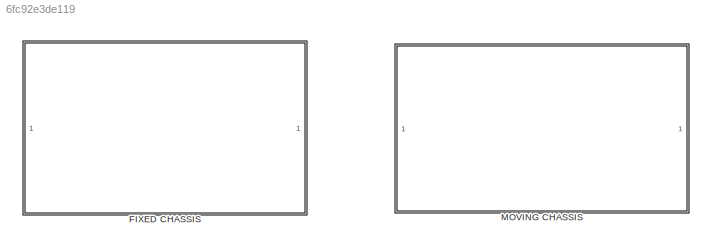
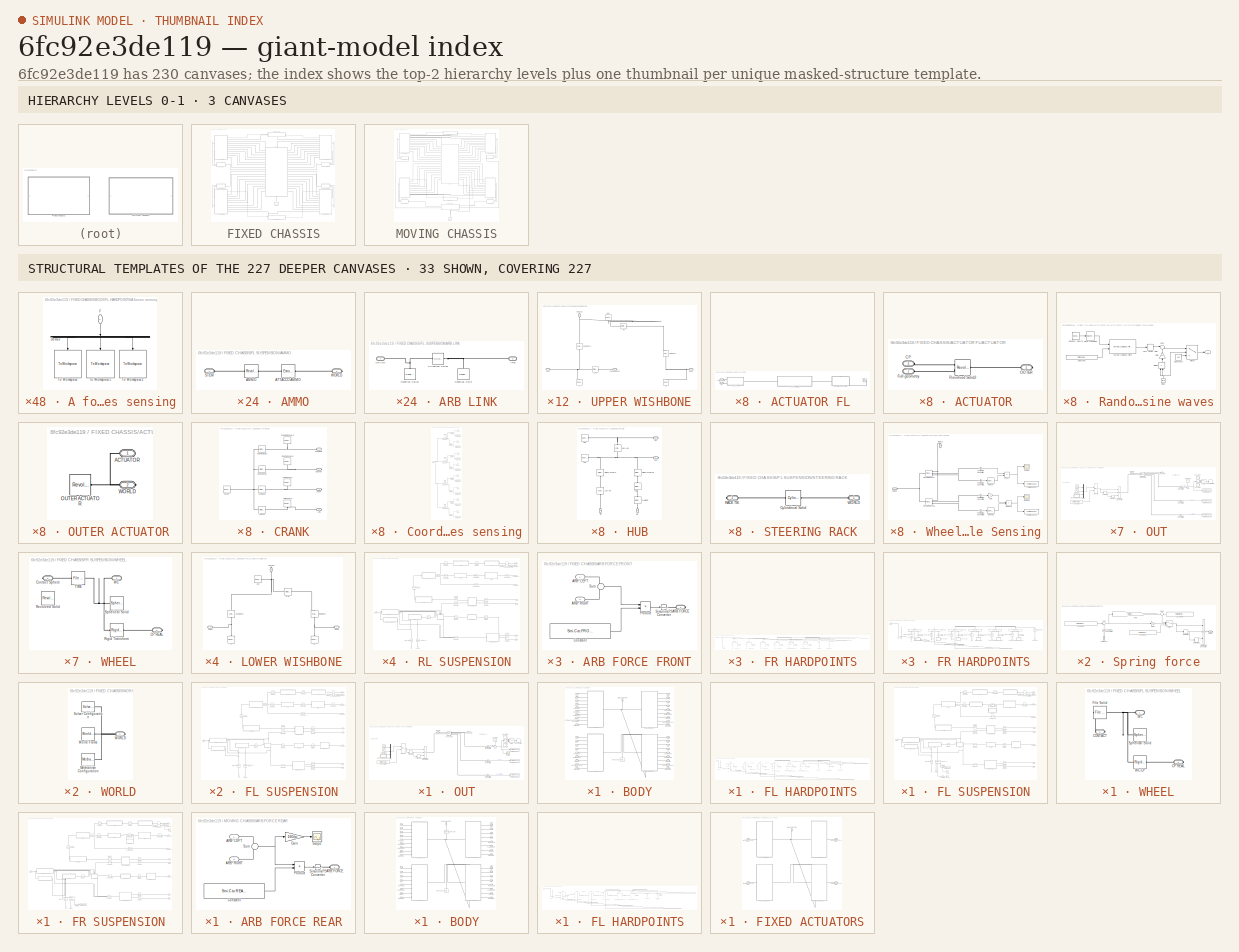
[diagram: thumbnail index - top-2 hierarchy levels (3 canvases) + 33 structural-template representatives of the remaining 227 canvases]
MODEL slx_6fc92e3de119
KIND model
CONFIG AbsTol = 1e-3
CONFIG EnableMultiTasking = on
CONFIG FixedStep = 0.001
CONFIG MaxStep = 0.001
CONFIG MinStep = auto
CONFIG RelTol = 1e-3
CONFIG SampleTimeConstraint = Unconstrained
CONFIG SolverName = VariableStepAuto
CONFIG StartTime = 0.0
CONFIG StopTime = Smi.general.simulation_time
BLOCK [SubSystem] FIXED CHASSIS
  Ports = []
  RequestExecContextInheritance = off
BLOCK [SubSystem] FIXED CHASSIS/ACTUATOR FL
  NameLocation = top
  Ports = [0, 0, 0, 0, 0, 2, 1]
  RequestExecContextInheritance = off
BLOCK [SubSystem] FIXED CHASSIS/ACTUATOR FL/ACTUATOR
  Ports = [0, 0, 0, 0, 0, 2, 1]
  RequestExecContextInheritance = off
BLOCK [SubSystem] FIXED CHASSIS/ACTUATOR FL/ACTUATOR IN//OUT
  Ports = [0, 0, 0, 0, 0, 1, 1]
  RequestExecContextInheritance = off
BLOCK [PMIOPort] FIXED CHASSIS/ACTUATOR FL/ACTUATOR IN//OUT/ACTUATOR
  NameLocation = top
  Side = Left
BLOCK [Abs] FIXED CHASSIS/ACTUATOR FL/ACTUATOR IN//OUT/Abs
  SaturateOnIntegerOverflow = off
BLOCK [Constant] FIXED CHASSIS/ACTUATOR FL/ACTUATOR IN//OUT/Constant
  NameLocation = left
  Value = 100
BLOCK [Constant] FIXED CHASSIS/ACTUATOR FL/ACTUATOR IN//OUT/Constant1
  Value = Smi.general.jounce_mode
BLOCK [Constant] FIXED CHASSIS/ACTUATOR FL/ACTUATOR IN//OUT/Constant2
BLOCK [Constant] FIXED CHASSIS/ACTUATOR FL/ACTUATOR IN//OUT/Constant3
  Value = 0
BLOCK [Derivative] FIXED CHASSIS/ACTUATOR FL/ACTUATOR IN//OUT/Derivative
BLOCK [Derivative] FIXED CHASSIS/ACTUATOR FL/ACTUATOR IN//OUT/Derivative1
BLOCK [Mux] FIXED CHASSIS/ACTUATOR FL/ACTUATOR IN//OUT/Mux
  DisplayOption = bar
  Inputs = 3
  Ports = [3, 1]
BLOCK [PMIOPort] FIXED CHASSIS/ACTUATOR FL/ACTUATOR IN//OUT/OUTER
  Port = 2
  Side = Right
BLOCK [Reference] FIXED CHASSIS/ACTUATOR FL/ACTUATOR IN//OUT/PS-Simulink Converter1  REF=nesl_utility/PS-Simulink
Converter
  Ports = [0, 1, 0, 0, 0, 1]
  SourceBlock = nesl_utility/PS-Simulink\nConverter
  SourceProductBaseCode = SS
  SourceType = PS-Simulink\nConverter
BLOCK [Reference] FIXED CHASSIS/ACTUATOR FL/ACTUATOR IN//OUT/PS-Simulink Converter2  REF=nesl_utility/PS-Simulink
Converter
  Ports = [0, 1, 0, 0, 0, 1]
  SourceBlock = nesl_utility/PS-Simulink\nConverter
  SourceProductBaseCode = SS
  SourceType = PS-Simulink\nConverter
BLOCK [Reference] FIXED CHASSIS/ACTUATOR FL/ACTUATOR IN//OUT/PS-Simulink Converter3  REF=nesl_utility/PS-Simulink
Converter
  Ports = [0, 1, 0, 0, 0, 1]
  SourceBlock = nesl_utility/PS-Simulink\nConverter
  SourceProductBaseCode = SS
  SourceType = PS-Simulink\nConverter
BLOCK [Reference] FIXED CHASSIS/ACTUATOR FL/ACTUATOR IN//OUT/Prismatic ACTUATOR  REF=sm_lib/Joints/Prismatic
Joint
  Ports = [0, 0, 0, 0, 0, 2, 4]
  SourceBlock = sm_lib/Joints/Prismatic\nJoint
  SourceProductBaseCode = MS
  SourceType = Prismatic\nJoint
BLOCK [Reference] FIXED CHASSIS/ACTUATOR FL/ACTUATOR IN//OUT/Ramp  REF=simulink/Sources/Ramp
  Ports = [0, 1]
  SourceBlock = simulink/Sources/Ramp
  SourceProductBaseCode = SL
  SourceType = Ramp
BLOCK [SubSystem] FIXED CHASSIS/ACTUATOR FL/ACTUATOR IN//OUT/Random sine waves
  Ports = [0, 1]
  RequestExecContextInheritance = off
BLOCK [Clock] FIXED CHASSIS/ACTUATOR FL/ACTUATOR IN//OUT/Random sine waves/Clock
  NameLocation = right
BLOCK [Constant] FIXED CHASSIS/ACTUATOR FL/ACTUATOR IN//OUT/Random sine waves/Constant
  Value = Smi.general.random_harshness
BLOCK [Constant] FIXED CHASSIS/ACTUATOR FL/ACTUATOR IN//OUT/Random sine waves/Constant1
  Value = -100
BLOCK [Product] FIXED CHASSIS/ACTUATOR FL/ACTUATOR IN//OUT/Random sine waves/Divide
  Inputs = */
  NameLocation = right
  Ports = [2, 1]
BLOCK [FirstOrderHold] FIXED CHASSIS/ACTUATOR FL/ACTUATOR IN//OUT/Random sine waves/First Order Hold
  AllowContinuousInput = on
  ErrorTolerance = 30
  InitialOutput = -100
BLOCK [Gain] FIXED CHASSIS/ACTUATOR FL/ACTUATOR IN//OUT/Random sine waves/Gain
  Gain = 100
  NameLocation = right
BLOCK [Reference] FIXED CHASSIS/ACTUATOR FL/ACTUATOR IN//OUT/Random sine waves/Random Source  REF=dspsrcs4/Random
Source
  Ports = [0, 1]
  SourceBlock = dspsrcs4/Random\nSource
  SourceProductBaseCode = DS
  SourceType = Random Source
  UserDataPersistent = on
BLOCK [RateTransition] FIXED CHASSIS/ACTUATOR FL/ACTUATOR IN//OUT/Random sine waves/Rate Transition
  OutPortSampleTime = 0
BLOCK [Sum] FIXED CHASSIS/ACTUATOR FL/ACTUATOR IN//OUT/Random sine waves/Sum
  Inputs = |+-
  Ports = [2, 1]
BLOCK [Switch] FIXED CHASSIS/ACTUATOR FL/ACTUATOR IN//OUT/Random sine waves/Switch
  Criteria = u2 ~= 0
  InputSameDT = off
  SaturateOnIntegerOverflow = off
BLOCK [Reference] FIXED CHASSIS/ACTUATOR FL/ACTUATOR IN//OUT/Random sine waves/Varying Lowpass Filter  REF=cstblocks/Linear Parameter Varying/Varying Lowpass Filter
  Ports = [2, 1]
  SourceBlock = cstblocks/Linear Parameter Varying/Varying Lowpass Filter
  SourceProductBaseCode = CT
  SourceType = Varying Lowpass Filter
BLOCK [Outport] FIXED CHASSIS/ACTUATOR FL/ACTUATOR IN//OUT/Random sine waves/f
BLOCK [Scope] FIXED CHASSIS/ACTUATOR FL/ACTUATOR IN//OUT/Scope
  Floating = off
  NumInputPorts = 1
  Ports = [1]
  ScopeSpecificationString = Simulink.scopes.TimeScopeBlockCfg('CurrentConfiguration', extmgr.ConfigurationSet(extmgr.Configuration('Core','General UI',true),extmgr.Configuration('Core','Source UI',true),extmgr.Configuration('Sources','WiredSimulink',true,'DataLoggingVariableName','ScopeData1'),extmgr.Configuration('Visuals','Time Domain',true,'SerializedDisplays',{struct('MinYLimReal','-50.00000','MaxYLimReal','50.00000','YL...<+1422ch>
BLOCK [Selector] FIXED CHASSIS/ACTUATOR FL/ACTUATOR IN//OUT/Selector
  IndexOptions = Index vector (port)
  Indices = [1 3]
  InputPortWidth = 3
  OutputSizes = 1
  Ports = [2, 1]
BLOCK [Reference] FIXED CHASSIS/ACTUATOR FL/ACTUATOR IN//OUT/Simulink-PS Converter  REF=nesl_utility/Simulink-PS
Converter
  Ports = [3, 0, 0, 0, 0, 0, 1]
  SourceBlock = nesl_utility/Simulink-PS\nConverter
  SourceProductBaseCode = SS
  SourceType = Simulink-PS\nConverter
BLOCK [Sin] FIXED CHASSIS/ACTUATOR FL/ACTUATOR IN//OUT/Sine Wave
  Amplitude = Smi.general.sine_amplitude
  Bias = -100
  Frequency = Smi.general.sine_frequency
  Ports = [0, 1]
  SampleTime = 0
BLOCK [Stop] FIXED CHASSIS/ACTUATOR FL/ACTUATOR IN//OUT/Stop Simulation
BLOCK [Sum] FIXED CHASSIS/ACTUATOR FL/ACTUATOR IN//OUT/Sum
  Inputs = ++|
  Ports = [2, 1]
BLOCK [Switch] FIXED CHASSIS/ACTUATOR FL/ACTUATOR IN//OUT/Switch
  Criteria = u2 > Threshold
  InputSameDT = off
  SaturateOnIntegerOverflow = off
  Threshold = 40
BLOCK [ToWorkspace] FIXED CHASSIS/ACTUATOR FL/ACTUATOR IN//OUT/To Workspace
  FixptAsFi = on
  MaxDataPoints = inf
  Ports = [1]
  SampleTime = -1
  SaveFormat = Timeseries
  VariableName = FL_jounce_pos
BLOCK [ToWorkspace] FIXED CHASSIS/ACTUATOR FL/ACTUATOR IN//OUT/To Workspace1
  FixptAsFi = on
  MaxDataPoints = inf
  Ports = [1]
  SampleTime = -1
  SaveFormat = Timeseries
  VariableName = FL_jounce_vel
BLOCK [ToWorkspace] FIXED CHASSIS/ACTUATOR FL/ACTUATOR IN//OUT/To Workspace2
  FixptAsFi = on
  MaxDataPoints = inf
  Ports = [1]
  SampleTime = -1
  SaveFormat = Timeseries
  VariableName = FL_jounce_acc
BLOCK [PMIOPort] FIXED CHASSIS/ACTUATOR FL/ACTUATOR/CP
  NameLocation = top
  Port = 3
  Side = Left
BLOCK [PMIOPort] FIXED CHASSIS/ACTUATOR FL/ACTUATOR/Full geometry
  Side = Left
BLOCK [PMIOPort] FIXED CHASSIS/ACTUATOR FL/ACTUATOR/OUTER 
  Port = 2
  Side = Right
BLOCK [Reference] FIXED CHASSIS/ACTUATOR FL/ACTUATOR/Revolved Solid2  REF=sm_lib/Body Elements/Revolved Solid
  Ports = [0, 0, 0, 0, 0, 2, 1]
  SourceBlock = sm_lib/Body Elements/Revolved Solid
  SourceProductBaseCode = MS
  SourceType = Revolved Solid
BLOCK [PMIOPort] FIXED CHASSIS/ACTUATOR FL/CP
  Port = 3
  Side = Left
BLOCK [PMIOPort] FIXED CHASSIS/ACTUATOR FL/Full geometry
  Side = Left
BLOCK [SubSystem] FIXED CHASSIS/ACTUATOR FL/OUTER ACTUATOR
  PortSchema = {"entries":[{"content":{"sides":[{"content":{"connectorIds":[]},"type":"ConnectorPlacement.EquallySpacedRectSide","uuid":"d7e62bfe-6450-4a39-85d3-bed3049c321c"},{"content":{"connectorIds":[],"side":"RIGHT"},"type":"ConnectorPlacement.EquallySpacedRectSide","uuid":"3cbc563a-0112-4986-bd57-0cf817b4d4bf"},{"content":{"connectorIds":["LConn1"],"side":"TOP"},"type":"ConnectorPlacement.EquallySpacedRect...<+533ch>  <repeated x8 — deduplicated; at blocks: OUTER ACTUATOR>
  Ports = [0, 0, 0, 0, 0, 1, 1]
  RequestExecContextInheritance = off
BLOCK [PMIOPort] FIXED CHASSIS/ACTUATOR FL/OUTER ACTUATOR/ACTUATOR
  Side = Left
BLOCK [Reference] FIXED CHASSIS/ACTUATOR FL/OUTER ACTUATOR/OUTER ACTUATOR  REF=sm_lib/Body Elements/Revolved Solid
  Ports = [0, 0, 0, 0, 0, 0, 1]
  SourceBlock = sm_lib/Body Elements/Revolved Solid
  SourceProductBaseCode = MS
  SourceType = Revolved Solid
BLOCK [PMIOPort] FIXED CHASSIS/ACTUATOR FL/OUTER ACTUATOR/WORLD
  Port = 2
  Side = Right
BLOCK [PMIOPort] FIXED CHASSIS/ACTUATOR FL/WORLD
  Port = 2
  Side = Right
BLOCK [SubSystem] FIXED CHASSIS/ACTUATOR FR
  Commented = on
  Ports = [0, 0, 0, 0, 0, 2, 1]
  RequestExecContextInheritance = off
BLOCK [SubSystem] FIXED CHASSIS/ACTUATOR FR/ACTUATOR
  Ports = [0, 0, 0, 0, 0, 2, 1]
  RequestExecContextInheritance = off
BLOCK [SubSystem] FIXED CHASSIS/ACTUATOR FR/ACTUATOR IN//OUT
  Ports = [0, 0, 0, 0, 0, 1, 1]
  RequestExecContextInheritance = off
BLOCK [PMIOPort] FIXED CHASSIS/ACTUATOR FR/ACTUATOR IN//OUT/ACTUATOR
  NameLocation = top
  Side = Left
BLOCK [Abs] FIXED CHASSIS/ACTUATOR FR/ACTUATOR IN//OUT/Abs
  SaturateOnIntegerOverflow = off
BLOCK [Constant] FIXED CHASSIS/ACTUATOR FR/ACTUATOR IN//OUT/Constant
  NameLocation = left
  Value = 100
BLOCK [Constant] FIXED CHASSIS/ACTUATOR FR/ACTUATOR IN//OUT/Constant1
  Value = Smi.general.jounce_mode
BLOCK [Constant] FIXED CHASSIS/ACTUATOR FR/ACTUATOR IN//OUT/Constant2
BLOCK [Constant] FIXED CHASSIS/ACTUATOR FR/ACTUATOR IN//OUT/Constant3
  Value = 0
BLOCK [Derivative] FIXED CHASSIS/ACTUATOR FR/ACTUATOR IN//OUT/Derivative
BLOCK [Derivative] FIXED CHASSIS/ACTUATOR FR/ACTUATOR IN//OUT/Derivative1
BLOCK [Mux] FIXED CHASSIS/ACTUATOR FR/ACTUATOR IN//OUT/Mux
  DisplayOption = bar
  Inputs = 3
  Ports = [3, 1]
BLOCK [PMIOPort] FIXED CHASSIS/ACTUATOR FR/ACTUATOR IN//OUT/OUTER
  Port = 2
  Side = Right
BLOCK [Reference] FIXED CHASSIS/ACTUATOR FR/ACTUATOR IN//OUT/PS-Simulink Converter1  REF=nesl_utility/PS-Simulink
Converter
  Ports = [0, 1, 0, 0, 0, 1]
  SourceBlock = nesl_utility/PS-Simulink\nConverter
  SourceProductBaseCode = SS
  SourceType = PS-Simulink\nConverter
BLOCK [Reference] FIXED CHASSIS/ACTUATOR FR/ACTUATOR IN//OUT/PS-Simulink Converter2  REF=nesl_utility/PS-Simulink
Converter
  Ports = [0, 1, 0, 0, 0, 1]
  SourceBlock = nesl_utility/PS-Simulink\nConverter
  SourceProductBaseCode = SS
  SourceType = PS-Simulink\nConverter
BLOCK [Reference] FIXED CHASSIS/ACTUATOR FR/ACTUATOR IN//OUT/PS-Simulink Converter3  REF=nesl_utility/PS-Simulink
Converter
  Ports = [0, 1, 0, 0, 0, 1]
  SourceBlock = nesl_utility/PS-Simulink\nConverter
  SourceProductBaseCode = SS
  SourceType = PS-Simulink\nConverter
BLOCK [Reference] FIXED CHASSIS/ACTUATOR FR/ACTUATOR IN//OUT/Prismatic ACTUATOR  REF=sm_lib/Joints/Prismatic
Joint
  Ports = [0, 0, 0, 0, 0, 2, 4]
  SourceBlock = sm_lib/Joints/Prismatic\nJoint
  SourceProductBaseCode = MS
  SourceType = Prismatic\nJoint
BLOCK [Reference] FIXED CHASSIS/ACTUATOR FR/ACTUATOR IN//OUT/Ramp  REF=simulink/Sources/Ramp
  Ports = [0, 1]
  SourceBlock = simulink/Sources/Ramp
  SourceProductBaseCode = SL
  SourceType = Ramp
BLOCK [SubSystem] FIXED CHASSIS/ACTUATOR FR/ACTUATOR IN//OUT/Random sine waves
  Ports = [0, 1]
  RequestExecContextInheritance = off
BLOCK [Clock] FIXED CHASSIS/ACTUATOR FR/ACTUATOR IN//OUT/Random sine waves/Clock
  NameLocation = right
BLOCK [Constant] FIXED CHASSIS/ACTUATOR FR/ACTUATOR IN//OUT/Random sine waves/Constant
  Value = Smi.general.random_harshness
BLOCK [Constant] FIXED CHASSIS/ACTUATOR FR/ACTUATOR IN//OUT/Random sine waves/Constant1
  Value = -100
BLOCK [Product] FIXED CHASSIS/ACTUATOR FR/ACTUATOR IN//OUT/Random sine waves/Divide
  Inputs = */
  NameLocation = right
  Ports = [2, 1]
BLOCK [FirstOrderHold] FIXED CHASSIS/ACTUATOR FR/ACTUATOR IN//OUT/Random sine waves/First Order Hold
  AllowContinuousInput = on
  ErrorTolerance = 30
  InitialOutput = -100
BLOCK [Gain] FIXED CHASSIS/ACTUATOR FR/ACTUATOR IN//OUT/Random sine waves/Gain
  Gain = 100
  NameLocation = right
BLOCK [Reference] FIXED CHASSIS/ACTUATOR FR/ACTUATOR IN//OUT/Random sine waves/Random Source  REF=dspsrcs4/Random
Source
  Ports = [0, 1]
  SourceBlock = dspsrcs4/Random\nSource
  SourceProductBaseCode = DS
  SourceType = Random Source
  UserDataPersistent = on
BLOCK [RateTransition] FIXED CHASSIS/ACTUATOR FR/ACTUATOR IN//OUT/Random sine waves/Rate Transition
  OutPortSampleTime = 0
BLOCK [Sum] FIXED CHASSIS/ACTUATOR FR/ACTUATOR IN//OUT/Random sine waves/Sum
  Inputs = |+-
  Ports = [2, 1]
BLOCK [Switch] FIXED CHASSIS/ACTUATOR FR/ACTUATOR IN//OUT/Random sine waves/Switch
  Criteria = u2 ~= 0
  InputSameDT = off
  SaturateOnIntegerOverflow = off
BLOCK [Reference] FIXED CHASSIS/ACTUATOR FR/ACTUATOR IN//OUT/Random sine waves/Varying Lowpass Filter  REF=cstblocks/Linear Parameter Varying/Varying Lowpass Filter
  Ports = [2, 1]
  SourceBlock = cstblocks/Linear Parameter Varying/Varying Lowpass Filter
  SourceProductBaseCode = CT
  SourceType = Varying Lowpass Filter
BLOCK [Outport] FIXED CHASSIS/ACTUATOR FR/ACTUATOR IN//OUT/Random sine waves/f
BLOCK [Selector] FIXED CHASSIS/ACTUATOR FR/ACTUATOR IN//OUT/Selector
  IndexOptions = Index vector (port)
  Indices = [1 3]
  InputPortWidth = 3
  OutputSizes = 1
  Ports = [2, 1]
BLOCK [Reference] FIXED CHASSIS/ACTUATOR FR/ACTUATOR IN//OUT/Simulink-PS Converter  REF=nesl_utility/Simulink-PS
Converter
  Ports = [3, 0, 0, 0, 0, 0, 1]
  SourceBlock = nesl_utility/Simulink-PS\nConverter
  SourceProductBaseCode = SS
  SourceType = Simulink-PS\nConverter
BLOCK [Sin] FIXED CHASSIS/ACTUATOR FR/ACTUATOR IN//OUT/Sine Wave
  Amplitude = Smi.general.sine_amplitude
  Bias = -100
  Frequency = Smi.general.sine_frequency
  Ports = [0, 1]
  SampleTime = 0
BLOCK [Stop] FIXED CHASSIS/ACTUATOR FR/ACTUATOR IN//OUT/Stop Simulation
BLOCK [Sum] FIXED CHASSIS/ACTUATOR FR/ACTUATOR IN//OUT/Sum
  Inputs = ++|
  Ports = [2, 1]
BLOCK [Switch] FIXED CHASSIS/ACTUATOR FR/ACTUATOR IN//OUT/Switch
  Criteria = u2 > Threshold
  InputSameDT = off
  SaturateOnIntegerOverflow = off
  Threshold = 80
BLOCK [ToWorkspace] FIXED CHASSIS/ACTUATOR FR/ACTUATOR IN//OUT/To Workspace
  FixptAsFi = on
  MaxDataPoints = inf
  Ports = [1]
  SampleTime = -1
  SaveFormat = Timeseries
  VariableName = FR_jounce_pos
BLOCK [ToWorkspace] FIXED CHASSIS/ACTUATOR FR/ACTUATOR IN//OUT/To Workspace1
  FixptAsFi = on
  MaxDataPoints = inf
  Ports = [1]
  SampleTime = -1
  SaveFormat = Timeseries
  VariableName = FR_jounce_vel
BLOCK [ToWorkspace] FIXED CHASSIS/ACTUATOR FR/ACTUATOR IN//OUT/To Workspace2
  FixptAsFi = on
  MaxDataPoints = inf
  Ports = [1]
  SampleTime = -1
  SaveFormat = Timeseries
  VariableName = FR_jounce_acc
BLOCK [PMIOPort] FIXED CHASSIS/ACTUATOR FR/ACTUATOR/CP
  NameLocation = top
  Port = 3
  Side = Left
BLOCK [PMIOPort] FIXED CHASSIS/ACTUATOR FR/ACTUATOR/Full geometry
  Side = Left
BLOCK [PMIOPort] FIXED CHASSIS/ACTUATOR FR/ACTUATOR/OUTER 
  Port = 2
  Side = Right
BLOCK [Reference] FIXED CHASSIS/ACTUATOR FR/ACTUATOR/Revolved Solid2  REF=sm_lib/Body Elements/Revolved Solid
  Ports = [0, 0, 0, 0, 0, 2, 1]
  SourceBlock = sm_lib/Body Elements/Revolved Solid
  SourceProductBaseCode = MS
  SourceType = Revolved Solid
BLOCK [PMIOPort] FIXED CHASSIS/ACTUATOR FR/CP
  Port = 3
  Side = Left
BLOCK [PMIOPort] FIXED CHASSIS/ACTUATOR FR/Full geometry
  Side = Left
BLOCK [SubSystem] FIXED CHASSIS/ACTUATOR FR/OUTER ACTUATOR
  Ports = [0, 0, 0, 0, 0, 1, 1]
  RequestExecContextInheritance = off
BLOCK [PMIOPort] FIXED CHASSIS/ACTUATOR FR/OUTER ACTUATOR/ACTUATOR
  Side = Left
BLOCK [Reference] FIXED CHASSIS/ACTUATOR FR/OUTER ACTUATOR/OUTER ACTUATOR  REF=sm_lib/Body Elements/Revolved Solid
  Ports = [0, 0, 0, 0, 0, 0, 1]
  SourceBlock = sm_lib/Body Elements/Revolved Solid
  SourceProductBaseCode = MS
  SourceType = Revolved Solid
BLOCK [PMIOPort] FIXED CHASSIS/ACTUATOR FR/OUTER ACTUATOR/WORLD
  Port = 2
  Side = Right
BLOCK [PMIOPort] FIXED CHASSIS/ACTUATOR FR/WORLD
  Port = 2
  Side = Right
BLOCK [SubSystem] FIXED CHASSIS/ACTUATOR RL
  Commented = on
  NameLocation = top
  Ports = [0, 0, 0, 0, 0, 2, 1]
  RequestExecContextInheritance = off
BLOCK [SubSystem] FIXED CHASSIS/ACTUATOR RL/ACTUATOR
  Ports = [0, 0, 0, 0, 0, 2, 1]
  RequestExecContextInheritance = off
BLOCK [SubSystem] FIXED CHASSIS/ACTUATOR RL/ACTUATOR IN//OUT
  Ports = [0, 0, 0, 0, 0, 1, 1]
  RequestExecContextInheritance = off
BLOCK [PMIOPort] FIXED CHASSIS/ACTUATOR RL/ACTUATOR IN//OUT/ACTUATOR
  NameLocation = top
  Side = Left
BLOCK [Abs] FIXED CHASSIS/ACTUATOR RL/ACTUATOR IN//OUT/Abs
  SaturateOnIntegerOverflow = off
BLOCK [Constant] FIXED CHASSIS/ACTUATOR RL/ACTUATOR IN//OUT/Constant
  NameLocation = left
  Value = 100
BLOCK [Constant] FIXED CHASSIS/ACTUATOR RL/ACTUATOR IN//OUT/Constant1
  Value = Smi.general.jounce_mode
BLOCK [Constant] FIXED CHASSIS/ACTUATOR RL/ACTUATOR IN//OUT/Constant2
BLOCK [Constant] FIXED CHASSIS/ACTUATOR RL/ACTUATOR IN//OUT/Constant3
  Value = 0
BLOCK [Derivative] FIXED CHASSIS/ACTUATOR RL/ACTUATOR IN//OUT/Derivative
BLOCK [Derivative] FIXED CHASSIS/ACTUATOR RL/ACTUATOR IN//OUT/Derivative1
BLOCK [Mux] FIXED CHASSIS/ACTUATOR RL/ACTUATOR IN//OUT/Mux
  DisplayOption = bar
  Inputs = 3
  Ports = [3, 1]
BLOCK [PMIOPort] FIXED CHASSIS/ACTUATOR RL/ACTUATOR IN//OUT/OUTER
  Port = 2
  Side = Right
BLOCK [Reference] FIXED CHASSIS/ACTUATOR RL/ACTUATOR IN//OUT/PS-Simulink Converter1  REF=nesl_utility/PS-Simulink
Converter
  Ports = [0, 1, 0, 0, 0, 1]
  SourceBlock = nesl_utility/PS-Simulink\nConverter
  SourceProductBaseCode = SS
  SourceType = PS-Simulink\nConverter
BLOCK [Reference] FIXED CHASSIS/ACTUATOR RL/ACTUATOR IN//OUT/PS-Simulink Converter2  REF=nesl_utility/PS-Simulink
Converter
  Ports = [0, 1, 0, 0, 0, 1]
  SourceBlock = nesl_utility/PS-Simulink\nConverter
  SourceProductBaseCode = SS
  SourceType = PS-Simulink\nConverter
BLOCK [Reference] FIXED CHASSIS/ACTUATOR RL/ACTUATOR IN//OUT/PS-Simulink Converter3  REF=nesl_utility/PS-Simulink
Converter
  Ports = [0, 1, 0, 0, 0, 1]
  SourceBlock = nesl_utility/PS-Simulink\nConverter
  SourceProductBaseCode = SS
  SourceType = PS-Simulink\nConverter
BLOCK [Reference] FIXED CHASSIS/ACTUATOR RL/ACTUATOR IN//OUT/Prismatic ACTUATOR  REF=sm_lib/Joints/Prismatic
Joint
  Ports = [0, 0, 0, 0, 0, 2, 4]
  SourceBlock = sm_lib/Joints/Prismatic\nJoint
  SourceProductBaseCode = MS
  SourceType = Prismatic\nJoint
BLOCK [Reference] FIXED CHASSIS/ACTUATOR RL/ACTUATOR IN//OUT/Ramp  REF=simulink/Sources/Ramp
  Ports = [0, 1]
  SourceBlock = simulink/Sources/Ramp
  SourceProductBaseCode = SL
  SourceType = Ramp
BLOCK [SubSystem] FIXED CHASSIS/ACTUATOR RL/ACTUATOR IN//OUT/Random sine waves
  Ports = [0, 1]
  RequestExecContextInheritance = off
BLOCK [Clock] FIXED CHASSIS/ACTUATOR RL/ACTUATOR IN//OUT/Random sine waves/Clock
  NameLocation = right
BLOCK [Constant] FIXED CHASSIS/ACTUATOR RL/ACTUATOR IN//OUT/Random sine waves/Constant
  Value = Smi.general.random_harshness
BLOCK [Constant] FIXED CHASSIS/ACTUATOR RL/ACTUATOR IN//OUT/Random sine waves/Constant1
  Value = -100
BLOCK [Product] FIXED CHASSIS/ACTUATOR RL/ACTUATOR IN//OUT/Random sine waves/Divide
  Inputs = */
  NameLocation = right
  Ports = [2, 1]
BLOCK [FirstOrderHold] FIXED CHASSIS/ACTUATOR RL/ACTUATOR IN//OUT/Random sine waves/First Order Hold
  AllowContinuousInput = on
  ErrorTolerance = 30
  InitialOutput = -100
BLOCK [Gain] FIXED CHASSIS/ACTUATOR RL/ACTUATOR IN//OUT/Random sine waves/Gain
  Gain = 100
  NameLocation = right
BLOCK [Reference] FIXED CHASSIS/ACTUATOR RL/ACTUATOR IN//OUT/Random sine waves/Random Source  REF=dspsrcs4/Random
Source
  Ports = [0, 1]
  SourceBlock = dspsrcs4/Random\nSource
  SourceProductBaseCode = DS
  SourceType = Random Source
  UserDataPersistent = on
BLOCK [RateTransition] FIXED CHASSIS/ACTUATOR RL/ACTUATOR IN//OUT/Random sine waves/Rate Transition
  OutPortSampleTime = 0
BLOCK [Sum] FIXED CHASSIS/ACTUATOR RL/ACTUATOR IN//OUT/Random sine waves/Sum
  Inputs = |+-
  Ports = [2, 1]
BLOCK [Switch] FIXED CHASSIS/ACTUATOR RL/ACTUATOR IN//OUT/Random sine waves/Switch
  Criteria = u2 ~= 0
  InputSameDT = off
  SaturateOnIntegerOverflow = off
BLOCK [Reference] FIXED CHASSIS/ACTUATOR RL/ACTUATOR IN//OUT/Random sine waves/Varying Lowpass Filter  REF=cstblocks/Linear Parameter Varying/Varying Lowpass Filter
  Ports = [2, 1]
  SourceBlock = cstblocks/Linear Parameter Varying/Varying Lowpass Filter
  SourceProductBaseCode = CT
  SourceType = Varying Lowpass Filter
BLOCK [Outport] FIXED CHASSIS/ACTUATOR RL/ACTUATOR IN//OUT/Random sine waves/f
BLOCK [Selector] FIXED CHASSIS/ACTUATOR RL/ACTUATOR IN//OUT/Selector
  IndexOptions = Index vector (port)
  Indices = [1 3]
  InputPortWidth = 3
  OutputSizes = 1
  Ports = [2, 1]
BLOCK [Reference] FIXED CHASSIS/ACTUATOR RL/ACTUATOR IN//OUT/Simulink-PS Converter  REF=nesl_utility/Simulink-PS
Converter
  Ports = [3, 0, 0, 0, 0, 0, 1]
  SourceBlock = nesl_utility/Simulink-PS\nConverter
  SourceProductBaseCode = SS
  SourceType = Simulink-PS\nConverter
BLOCK [Sin] FIXED CHASSIS/ACTUATOR RL/ACTUATOR IN//OUT/Sine Wave
  Amplitude = Smi.general.sine_amplitude
  Bias = -100
  Frequency = Smi.general.sine_frequency
  Ports = [0, 1]
  SampleTime = 0
BLOCK [Stop] FIXED CHASSIS/ACTUATOR RL/ACTUATOR IN//OUT/Stop Simulation
BLOCK [Sum] FIXED CHASSIS/ACTUATOR RL/ACTUATOR IN//OUT/Sum
  Inputs = ++|
  Ports = [2, 1]
BLOCK [Switch] FIXED CHASSIS/ACTUATOR RL/ACTUATOR IN//OUT/Switch
  Criteria = u2 > Threshold
  InputSameDT = off
  SaturateOnIntegerOverflow = off
  Threshold = 80
BLOCK [ToWorkspace] FIXED CHASSIS/ACTUATOR RL/ACTUATOR IN//OUT/To Workspace
  FixptAsFi = on
  MaxDataPoints = inf
  Ports = [1]
  SampleTime = -1
  SaveFormat = Timeseries
  VariableName = RL_jounce_pos
BLOCK [ToWorkspace] FIXED CHASSIS/ACTUATOR RL/ACTUATOR IN//OUT/To Workspace1
  FixptAsFi = on
  MaxDataPoints = inf
  Ports = [1]
  SampleTime = -1
  SaveFormat = Timeseries
  VariableName = RL_jounce_vel
BLOCK [ToWorkspace] FIXED CHASSIS/ACTUATOR RL/ACTUATOR IN//OUT/To Workspace2
  FixptAsFi = on
  MaxDataPoints = inf
  Ports = [1]
  SampleTime = -1
  SaveFormat = Timeseries
  VariableName = RL_jounce_acc
BLOCK [PMIOPort] FIXED CHASSIS/ACTUATOR RL/ACTUATOR/CP
  NameLocation = top
  Port = 3
  Side = Left
BLOCK [PMIOPort] FIXED CHASSIS/ACTUATOR RL/ACTUATOR/Full geometry
  Side = Left
BLOCK [PMIOPort] FIXED CHASSIS/ACTUATOR RL/ACTUATOR/OUTER 
  Port = 2
  Side = Right
BLOCK [Reference] FIXED CHASSIS/ACTUATOR RL/ACTUATOR/Revolved Solid2  REF=sm_lib/Body Elements/Revolved Solid
  Ports = [0, 0, 0, 0, 0, 2, 1]
  SourceBlock = sm_lib/Body Elements/Revolved Solid
  SourceProductBaseCode = MS
  SourceType = Revolved Solid
BLOCK [PMIOPort] FIXED CHASSIS/ACTUATOR RL/CP
  Side = Left
BLOCK [PMIOPort] FIXED CHASSIS/ACTUATOR RL/Full geometry
  Port = 2
  Side = Left
BLOCK [SubSystem] FIXED CHASSIS/ACTUATOR RL/OUTER ACTUATOR
  Ports = [0, 0, 0, 0, 0, 1, 1]
  RequestExecContextInheritance = off
BLOCK [PMIOPort] FIXED CHASSIS/ACTUATOR RL/OUTER ACTUATOR/ACTUATOR
  Side = Left
BLOCK [Reference] FIXED CHASSIS/ACTUATOR RL/OUTER ACTUATOR/OUTER ACTUATOR  REF=sm_lib/Body Elements/Revolved Solid
  Ports = [0, 0, 0, 0, 0, 0, 1]
  SourceBlock = sm_lib/Body Elements/Revolved Solid
  SourceProductBaseCode = MS
  SourceType = Revolved Solid
BLOCK [PMIOPort] FIXED CHASSIS/ACTUATOR RL/OUTER ACTUATOR/WORLD
  Port = 2
  Side = Right
BLOCK [PMIOPort] FIXED CHASSIS/ACTUATOR RL/WORLD
  Port = 3
  Side = Right
BLOCK [SubSystem] FIXED CHASSIS/ACTUATOR RR
  Commented = on
  NameLocation = top
  Ports = [0, 0, 0, 0, 0, 2, 1]
  RequestExecContextInheritance = off
BLOCK [SubSystem] FIXED CHASSIS/ACTUATOR RR/ACTUATOR
  Ports = [0, 0, 0, 0, 0, 2, 1]
  RequestExecContextInheritance = off
BLOCK [SubSystem] FIXED CHASSIS/ACTUATOR RR/ACTUATOR IN//OUT
  Ports = [0, 0, 0, 0, 0, 1, 1]
  RequestExecContextInheritance = off
BLOCK [PMIOPort] FIXED CHASSIS/ACTUATOR RR/ACTUATOR IN//OUT/ACTUATOR
  NameLocation = top
  Side = Left
BLOCK [Abs] FIXED CHASSIS/ACTUATOR RR/ACTUATOR IN//OUT/Abs
  SaturateOnIntegerOverflow = off
BLOCK [Constant] FIXED CHASSIS/ACTUATOR RR/ACTUATOR IN//OUT/Constant
  NameLocation = left
  Value = 100
BLOCK [Constant] FIXED CHASSIS/ACTUATOR RR/ACTUATOR IN//OUT/Constant1
  Value = Smi.general.jounce_mode
BLOCK [Constant] FIXED CHASSIS/ACTUATOR RR/ACTUATOR IN//OUT/Constant2
BLOCK [Constant] FIXED CHASSIS/ACTUATOR RR/ACTUATOR IN//OUT/Constant3
  Value = 0
BLOCK [Derivative] FIXED CHASSIS/ACTUATOR RR/ACTUATOR IN//OUT/Derivative
BLOCK [Derivative] FIXED CHASSIS/ACTUATOR RR/ACTUATOR IN//OUT/Derivative1
BLOCK [Mux] FIXED CHASSIS/ACTUATOR RR/ACTUATOR IN//OUT/Mux
  DisplayOption = bar
  Inputs = 3
  Ports = [3, 1]
BLOCK [PMIOPort] FIXED CHASSIS/ACTUATOR RR/ACTUATOR IN//OUT/OUTER
  Port = 2
  Side = Right
BLOCK [Reference] FIXED CHASSIS/ACTUATOR RR/ACTUATOR IN//OUT/PS-Simulink Converter1  REF=nesl_utility/PS-Simulink
Converter
  Ports = [0, 1, 0, 0, 0, 1]
  SourceBlock = nesl_utility/PS-Simulink\nConverter
  SourceProductBaseCode = SS
  SourceType = PS-Simulink\nConverter
BLOCK [Reference] FIXED CHASSIS/ACTUATOR RR/ACTUATOR IN//OUT/PS-Simulink Converter2  REF=nesl_utility/PS-Simulink
Converter
  Ports = [0, 1, 0, 0, 0, 1]
  SourceBlock = nesl_utility/PS-Simulink\nConverter
  SourceProductBaseCode = SS
  SourceType = PS-Simulink\nConverter
BLOCK [Reference] FIXED CHASSIS/ACTUATOR RR/ACTUATOR IN//OUT/PS-Simulink Converter3  REF=nesl_utility/PS-Simulink
Converter
  Ports = [0, 1, 0, 0, 0, 1]
  SourceBlock = nesl_utility/PS-Simulink\nConverter
  SourceProductBaseCode = SS
  SourceType = PS-Simulink\nConverter
BLOCK [Reference] FIXED CHASSIS/ACTUATOR RR/ACTUATOR IN//OUT/Prismatic ACTUATOR  REF=sm_lib/Joints/Prismatic
Joint
  Ports = [0, 0, 0, 0, 0, 2, 4]
  SourceBlock = sm_lib/Joints/Prismatic\nJoint
  SourceProductBaseCode = MS
  SourceType = Prismatic\nJoint
BLOCK [Reference] FIXED CHASSIS/ACTUATOR RR/ACTUATOR IN//OUT/Ramp  REF=simulink/Sources/Ramp
  Ports = [0, 1]
  SourceBlock = simulink/Sources/Ramp
  SourceProductBaseCode = SL
  SourceType = Ramp
BLOCK [SubSystem] FIXED CHASSIS/ACTUATOR RR/ACTUATOR IN//OUT/Random sine waves
  Ports = [0, 1]
  RequestExecContextInheritance = off
BLOCK [Clock] FIXED CHASSIS/ACTUATOR RR/ACTUATOR IN//OUT/Random sine waves/Clock
  NameLocation = right
BLOCK [Constant] FIXED CHASSIS/ACTUATOR RR/ACTUATOR IN//OUT/Random sine waves/Constant
  Value = Smi.general.random_harshness
BLOCK [Constant] FIXED CHASSIS/ACTUATOR RR/ACTUATOR IN//OUT/Random sine waves/Constant1
  Value = -100
BLOCK [Product] FIXED CHASSIS/ACTUATOR RR/ACTUATOR IN//OUT/Random sine waves/Divide
  Inputs = */
  NameLocation = right
  Ports = [2, 1]
BLOCK [FirstOrderHold] FIXED CHASSIS/ACTUATOR RR/ACTUATOR IN//OUT/Random sine waves/First Order Hold
  AllowContinuousInput = on
  ErrorTolerance = 30
  InitialOutput = -100
BLOCK [Gain] FIXED CHASSIS/ACTUATOR RR/ACTUATOR IN//OUT/Random sine waves/Gain
  Gain = 100
  NameLocation = right
BLOCK [Reference] FIXED CHASSIS/ACTUATOR RR/ACTUATOR IN//OUT/Random sine waves/Random Source  REF=dspsrcs4/Random
Source
  Ports = [0, 1]
  SourceBlock = dspsrcs4/Random\nSource
  SourceProductBaseCode = DS
  SourceType = Random Source
  UserDataPersistent = on
BLOCK [RateTransition] FIXED CHASSIS/ACTUATOR RR/ACTUATOR IN//OUT/Random sine waves/Rate Transition
  OutPortSampleTime = 0
BLOCK [Sum] FIXED CHASSIS/ACTUATOR RR/ACTUATOR IN//OUT/Random sine waves/Sum
  Inputs = |+-
  Ports = [2, 1]
BLOCK [Switch] FIXED CHASSIS/ACTUATOR RR/ACTUATOR IN//OUT/Random sine waves/Switch
  Criteria = u2 ~= 0
  InputSameDT = off
  SaturateOnIntegerOverflow = off
BLOCK [Reference] FIXED CHASSIS/ACTUATOR RR/ACTUATOR IN//OUT/Random sine waves/Varying Lowpass Filter  REF=cstblocks/Linear Parameter Varying/Varying Lowpass Filter
  Ports = [2, 1]
  SourceBlock = cstblocks/Linear Parameter Varying/Varying Lowpass Filter
  SourceProductBaseCode = CT
  SourceType = Varying Lowpass Filter
BLOCK [Outport] FIXED CHASSIS/ACTUATOR RR/ACTUATOR IN//OUT/Random sine waves/f
BLOCK [Selector] FIXED CHASSIS/ACTUATOR RR/ACTUATOR IN//OUT/Selector
  IndexOptions = Index vector (port)
  Indices = [1 3]
  InputPortWidth = 3
  OutputSizes = 1
  Ports = [2, 1]
BLOCK [Reference] FIXED CHASSIS/ACTUATOR RR/ACTUATOR IN//OUT/Simulink-PS Converter  REF=nesl_utility/Simulink-PS
Converter
  Ports = [3, 0, 0, 0, 0, 0, 1]
  SourceBlock = nesl_utility/Simulink-PS\nConverter
  SourceProductBaseCode = SS
  SourceType = Simulink-PS\nConverter
BLOCK [Sin] FIXED CHASSIS/ACTUATOR RR/ACTUATOR IN//OUT/Sine Wave
  Amplitude = Smi.general.sine_amplitude
  Bias = -100
  Frequency = Smi.general.sine_frequency
  Ports = [0, 1]
  SampleTime = 0
BLOCK [Stop] FIXED CHASSIS/ACTUATOR RR/ACTUATOR IN//OUT/Stop Simulation
BLOCK [Sum] FIXED CHASSIS/ACTUATOR RR/ACTUATOR IN//OUT/Sum
  Inputs = ++|
  Ports = [2, 1]
BLOCK [Switch] FIXED CHASSIS/ACTUATOR RR/ACTUATOR IN//OUT/Switch
  Criteria = u2 > Threshold
  InputSameDT = off
  SaturateOnIntegerOverflow = off
  Threshold = 80
BLOCK [ToWorkspace] FIXED CHASSIS/ACTUATOR RR/ACTUATOR IN//OUT/To Workspace
  FixptAsFi = on
  MaxDataPoints = inf
  Ports = [1]
  SampleTime = -1
  SaveFormat = Timeseries
  VariableName = RR_jounce_pos
BLOCK [ToWorkspace] FIXED CHASSIS/ACTUATOR RR/ACTUATOR IN//OUT/To Workspace1
  FixptAsFi = on
  MaxDataPoints = inf
  Ports = [1]
  SampleTime = -1
  SaveFormat = Timeseries
  VariableName = RR_jounce_vel
BLOCK [ToWorkspace] FIXED CHASSIS/ACTUATOR RR/ACTUATOR IN//OUT/To Workspace2
  FixptAsFi = on
  MaxDataPoints = inf
  Ports = [1]
  SampleTime = -1
  SaveFormat = Timeseries
  VariableName = RR_jounce_acc
BLOCK [PMIOPort] FIXED CHASSIS/ACTUATOR RR/ACTUATOR/CP
  NameLocation = top
  Port = 3
  Side = Left
BLOCK [PMIOPort] FIXED CHASSIS/ACTUATOR RR/ACTUATOR/Full geometry
  Side = Left
BLOCK [PMIOPort] FIXED CHASSIS/ACTUATOR RR/ACTUATOR/OUTER 
  Port = 2
  Side = Right
BLOCK [Reference] FIXED CHASSIS/ACTUATOR RR/ACTUATOR/Revolved Solid2  REF=sm_lib/Body Elements/Revolved Solid
  Ports = [0, 0, 0, 0, 0, 2, 1]
  SourceBlock = sm_lib/Body Elements/Revolved Solid
  SourceProductBaseCode = MS
  SourceType = Revolved Solid
BLOCK [PMIOPort] FIXED CHASSIS/ACTUATOR RR/CP
  Side = Left
BLOCK [PMIOPort] FIXED CHASSIS/ACTUATOR RR/Full geometry
  Port = 2
  Side = Left
BLOCK [SubSystem] FIXED CHASSIS/ACTUATOR RR/OUTER ACTUATOR
  Ports = [0, 0, 0, 0, 0, 1, 1]
  RequestExecContextInheritance = off
BLOCK [PMIOPort] FIXED CHASSIS/ACTUATOR RR/OUTER ACTUATOR/ACTUATOR
  Side = Left
BLOCK [Reference] FIXED CHASSIS/ACTUATOR RR/OUTER ACTUATOR/OUTER ACTUATOR  REF=sm_lib/Body Elements/Revolved Solid
  Ports = [0, 0, 0, 0, 0, 0, 1]
  SourceBlock = sm_lib/Body Elements/Revolved Solid
  SourceProductBaseCode = MS
  SourceType = Revolved Solid
BLOCK [PMIOPort] FIXED CHASSIS/ACTUATOR RR/OUTER ACTUATOR/WORLD
  Port = 2
  Side = Right
BLOCK [PMIOPort] FIXED CHASSIS/ACTUATOR RR/WORLD
  Port = 3
  Side = Right
BLOCK [SubSystem] FIXED CHASSIS/ARB FORCE FRONT
  NameLocation = top
  PortSchema = {"entries":[{"content":{"sides":[{"content":{"connectorIds":["In1"]},"type":"ConnectorPlacement.EquallySpacedRectSide","uuid":"f25b79aa-b224-4593-8684-6f41613af52b"},{"content":{"connectorIds":["In2"],"side":"RIGHT"},"type":"ConnectorPlacement.EquallySpacedRectSide","uuid":"26f4e7e1-091e-45ed-9f78-3987c8995f75"},{"content":{"connectorIds":[],"side":"TOP"},"type":"ConnectorPlacement.EquallySpacedRe...<+535ch>
  Ports = [2, 0, 0, 0, 0, 0, 1]
  RequestExecContextInheritance = off
BLOCK [PMIOPort] FIXED CHASSIS/ARB FORCE FRONT/ARB FORCE
  Side = Right
BLOCK [Inport] FIXED CHASSIS/ARB FORCE FRONT/ARB° LEFT
BLOCK [Inport] FIXED CHASSIS/ARB FORCE FRONT/ARB° RIGHT
  Port = 2
BLOCK [Constant] FIXED CHASSIS/ARB FORCE FRONT/Constant
  Value = Smi.Car.FRONT.elastic.ARB_stiffness
BLOCK [Product] FIXED CHASSIS/ARB FORCE FRONT/Product
  Ports = [2, 1]
BLOCK [Reference] FIXED CHASSIS/ARB FORCE FRONT/Simulink-PS Converter  REF=nesl_utility/Simulink-PS
Converter
  Ports = [1, 0, 0, 0, 0, 0, 1]
  SourceBlock = nesl_utility/Simulink-PS\nConverter
  SourceProductBaseCode = SS
  SourceType = Simulink-PS\nConverter
BLOCK [Sum] FIXED CHASSIS/ARB FORCE FRONT/Sum
  Inputs = +-
  Ports = [2, 1]
BLOCK [SubSystem] FIXED CHASSIS/ARB FORCE REAR
  Commented = on
  PortSchema = {"entries":[{"content":{"sides":[{"content":{"connectorIds":["In1"]},"type":"ConnectorPlacement.EquallySpacedRectSide","uuid":"f25b79aa-b224-4593-8684-6f41613af52b"},{"content":{"connectorIds":["In2"],"side":"RIGHT"},"type":"ConnectorPlacement.EquallySpacedRectSide","uuid":"26f4e7e1-091e-45ed-9f78-3987c8995f75"},{"content":{"connectorIds":["LConn1"],"side":"TOP"},"type":"ConnectorPlacement.Equally...<+535ch>
  Ports = [2, 0, 0, 0, 0, 1]
  RequestExecContextInheritance = off
BLOCK [PMIOPort] FIXED CHASSIS/ARB FORCE REAR/ARB FORCE
  Side = Left
BLOCK [Inport] FIXED CHASSIS/ARB FORCE REAR/ARB° LEFT
BLOCK [Inport] FIXED CHASSIS/ARB FORCE REAR/ARB° RIGHT
  Port = 2
BLOCK [Constant] FIXED CHASSIS/ARB FORCE REAR/Constant
  Value = Smi.Car.REAR.elastic.ARB_stiffness
BLOCK [Product] FIXED CHASSIS/ARB FORCE REAR/Product
  Ports = [2, 1]
BLOCK [Reference] FIXED CHASSIS/ARB FORCE REAR/Simulink-PS Converter  REF=nesl_utility/Simulink-PS
Converter
  Ports = [1, 0, 0, 0, 0, 0, 1]
  SourceBlock = nesl_utility/Simulink-PS\nConverter
  SourceProductBaseCode = SS
  SourceType = Simulink-PS\nConverter
BLOCK [Sum] FIXED CHASSIS/ARB FORCE REAR/Sum
  Inputs = +-
  Ports = [2, 1]
BLOCK [SubSystem] FIXED CHASSIS/BODY
  NameLocation = top
  PortSchema = {"entries":[{"content":{"sides":[{"content":{"connectorIds":["LConn1","LConn2","LConn3","LConn4","LConn5","LConn6","LConn7","LConn8","LConn9","LConn10","LConn11","LConn12","LConn13","LConn14","LConn15","LConn16","LConn17","LConn18"]},"type":"ConnectorPlacement.EquallySpacedRectSide","uuid":"4c2bbaf1-fbd8-4943-99e0-470de1938501"},{"content":{"connectorIds":["RConn1","RConn2","RConn3","RConn4","RCon...<+875ch>
  Ports = [0, 0, 0, 0, 0, 19, 19]
  RequestExecContextInheritance = off
BLOCK [PMIOPort] FIXED CHASSIS/BODY/A FL
  Side = Left
BLOCK [PMIOPort] FIXED CHASSIS/BODY/A FR
  Port = 20
  Side = Right
BLOCK [PMIOPort] FIXED CHASSIS/BODY/A RL
  Port = 11
  Side = Left
BLOCK [PMIOPort] FIXED CHASSIS/BODY/A RR
  Port = 30
  Side = Right
BLOCK [PMIOPort] FIXED CHASSIS/BODY/ARB C FL
  Port = 7
  Side = Left
BLOCK [PMIOPort] FIXED CHASSIS/BODY/ARB C FR
  Port = 26
  Side = Right
BLOCK [PMIOPort] FIXED CHASSIS/BODY/ARB C RL
  Port = 17
  Side = Left
BLOCK [PMIOPort] FIXED CHASSIS/BODY/ARB C RR
  Port = 36
  Side = Right
BLOCK [PMIOPort] FIXED CHASSIS/BODY/B FL
  Port = 2
  Side = Left
BLOCK [PMIOPort] FIXED CHASSIS/BODY/B FR
  Port = 21
  Side = Right
BLOCK [PMIOPort] FIXED CHASSIS/BODY/B RL
  Port = 12
  Side = Left
BLOCK [PMIOPort] FIXED CHASSIS/BODY/B RR
  Port = 31
  Side = Right
BLOCK [PMIOPort] FIXED CHASSIS/BODY/C FL
  Port = 3
  Side = Left
BLOCK [PMIOPort] FIXED CHASSIS/BODY/C FR
  Port = 22
  Side = Right
BLOCK [PMIOPort] FIXED CHASSIS/BODY/C RL
  Port = 13
  Side = Left
BLOCK [PMIOPort] FIXED CHASSIS/BODY/C RR
  Port = 32
  Side = Right
BLOCK [PMIOPort] FIXED CHASSIS/BODY/CRANK C FL
  Port = 5
  Side = Left
BLOCK [PMIOPort] FIXED CHASSIS/BODY/CRANK C FR
  Port = 24
  Side = Right
BLOCK [PMIOPort] FIXED CHASSIS/BODY/CRANK C RL
  Port = 15
  Side = Left
BLOCK [PMIOPort] FIXED CHASSIS/BODY/CRANK C RR
  Port = 34
  Side = Right
BLOCK [PMIOPort] FIXED CHASSIS/BODY/D FL
  Port = 4
  Side = Left
BLOCK [PMIOPort] FIXED CHASSIS/BODY/D FR
  Port = 23
  Side = Right
BLOCK [PMIOPort] FIXED CHASSIS/BODY/D RL
  Port = 14
  Side = Left
BLOCK [PMIOPort] FIXED CHASSIS/BODY/D RR
  Port = 33
  Side = Right
BLOCK [PMIOPort] FIXED CHASSIS/BODY/DAMPER C FL
  Port = 6
  Side = Left
BLOCK [PMIOPort] FIXED CHASSIS/BODY/DAMPER C FR
  Port = 25
  Side = Right
BLOCK [PMIOPort] FIXED CHASSIS/BODY/DAMPER C RL
  Port = 16
  Side = Left
BLOCK [PMIOPort] FIXED CHASSIS/BODY/DAMPER C RR
  Port = 35
  Side = Right
BLOCK [SubSystem] FIXED CHASSIS/BODY/FL HARDPOINTS
  Ports = [0, 0, 0, 0, 0, 10, 1]
  RequestExecContextInheritance = off
BLOCK [Reference] FIXED CHASSIS/BODY/FL HARDPOINTS/A  REF=sm_lib/Frames and
Transforms/Rigid
Transform
  NameLocation = left
  Ports = [0, 0, 0, 0, 0, 1, 1]
  SourceBlock = sm_lib/Frames and\nTransforms/Rigid\nTransform
  SourceProductBaseCode = MS
  SourceType = Rigid\nTransform
BLOCK [PMIOPort] FIXED CHASSIS/BODY/FL HARDPOINTS/A FIX
  Side = Left
BLOCK [SubSystem] FIXED CHASSIS/BODY/FL HARDPOINTS/A forces sensing
  Commented = on
  Ports = [1]
  RequestExecContextInheritance = off
BLOCK [Demux] FIXED CHASSIS/BODY/FL HARDPOINTS/A forces sensing/Demux
  NameLocation = left
  Outputs = 3
  Ports = [1, 3]
BLOCK [Inport] FIXED CHASSIS/BODY/FL HARDPOINTS/A forces sensing/F
  NameLocation = top
BLOCK [ToWorkspace] FIXED CHASSIS/BODY/FL HARDPOINTS/A forces sensing/To Workspace
  FixptAsFi = on
  MaxDataPoints = inf
  NameLocation = left
  Ports = [1]
  SampleTime = -1
  SaveFormat = Timeseries
  VariableName = FL_A_Fx
BLOCK [ToWorkspace] FIXED CHASSIS/BODY/FL HARDPOINTS/A forces sensing/To Workspace1
  FixptAsFi = on
  MaxDataPoints = inf
  NameLocation = left
  Ports = [1]
  SampleTime = -1
  SaveFormat = Timeseries
  VariableName = FL_A_Fy
BLOCK [ToWorkspace] FIXED CHASSIS/BODY/FL HARDPOINTS/A forces sensing/To Workspace2
  FixptAsFi = on
  MaxDataPoints = inf
  NameLocation = left
  Ports = [1]
  SampleTime = -1
  SaveFormat = Timeseries
  VariableName = FL_A_Fz
BLOCK [PMIOPort] FIXED CHASSIS/BODY/FL HARDPOINTS/ARB CENTER
  Port = 8
  Side = Left
BLOCK [Reference] FIXED CHASSIS/BODY/FL HARDPOINTS/B  REF=sm_lib/Frames and
Transforms/Rigid
Transform
  NameLocation = left
  Ports = [0, 0, 0, 0, 0, 1, 1]
  SourceBlock = sm_lib/Frames and\nTransforms/Rigid\nTransform
  SourceProductName = Multibody
  SourceType = Rigid\nTransform
BLOCK [PMIOPort] FIXED CHASSIS/BODY/FL HARDPOINTS/B FIX
  Port = 2
  Side = Left
BLOCK [SubSystem] FIXED CHASSIS/BODY/FL HARDPOINTS/B forces sensing
  Commented = on
  Ports = [1]
  RequestExecContextInheritance = off
BLOCK [Demux] FIXED CHASSIS/BODY/FL HARDPOINTS/B forces sensing/Demux
  NameLocation = left
  Outputs = 3
  Ports = [1, 3]
BLOCK [Inport] FIXED CHASSIS/BODY/FL HARDPOINTS/B forces sensing/F
  NameLocation = top
BLOCK [ToWorkspace] FIXED CHASSIS/BODY/FL HARDPOINTS/B forces sensing/To Workspace
  FixptAsFi = on
  MaxDataPoints = inf
  NameLocation = left
  Ports = [1]
  SampleTime = -1
  SaveFormat = Timeseries
  VariableName = FL_B_Fx
BLOCK [ToWorkspace] FIXED CHASSIS/BODY/FL HARDPOINTS/B forces sensing/To Workspace1
  FixptAsFi = on
  MaxDataPoints = inf
  NameLocation = left
  Ports = [1]
  SampleTime = -1
  SaveFormat = Timeseries
  VariableName = FL_B_Fy
BLOCK [ToWorkspace] FIXED CHASSIS/BODY/FL HARDPOINTS/B forces sensing/To Workspace2
  FixptAsFi = on
  MaxDataPoints = inf
  NameLocation = left
  Ports = [1]
  SampleTime = -1
  SaveFormat = Timeseries
  VariableName = FL_B_Fz
BLOCK [Reference] FIXED CHASSIS/BODY/FL HARDPOINTS/C  REF=sm_lib/Frames and
Transforms/Rigid
Transform
  NameLocation = left
  Ports = [0, 0, 0, 0, 0, 1, 1]
  SourceBlock = sm_lib/Frames and\nTransforms/Rigid\nTransform
  SourceProductName = Multibody
  SourceType = Rigid\nTransform
BLOCK [PMIOPort] FIXED CHASSIS/BODY/FL HARDPOINTS/C FIX
  Port = 3
  Side = Left
BLOCK [SubSystem] FIXED CHASSIS/BODY/FL HARDPOINTS/C forces sensing
  Commented = on
  Ports = [1]
  RequestExecContextInheritance = off
BLOCK [Demux] FIXED CHASSIS/BODY/FL HARDPOINTS/C forces sensing/Demux
  NameLocation = left
  Outputs = 3
  Ports = [1, 3]
BLOCK [Inport] FIXED CHASSIS/BODY/FL HARDPOINTS/C forces sensing/F
  NameLocation = top
BLOCK [ToWorkspace] FIXED CHASSIS/BODY/FL HARDPOINTS/C forces sensing/To Workspace
  FixptAsFi = on
  MaxDataPoints = inf
  NameLocation = left
  Ports = [1]
  SampleTime = -1
  SaveFormat = Timeseries
  VariableName = FL_C_Fx
BLOCK [ToWorkspace] FIXED CHASSIS/BODY/FL HARDPOINTS/C forces sensing/To Workspace1
  FixptAsFi = on
  MaxDataPoints = inf
  NameLocation = left
  Ports = [1]
  SampleTime = -1
  SaveFormat = Timeseries
  VariableName = FL_C_Fy
BLOCK [ToWorkspace] FIXED CHASSIS/BODY/FL HARDPOINTS/C forces sensing/To Workspace2
  FixptAsFi = on
  MaxDataPoints = inf
  NameLocation = left
  Ports = [1]
  SampleTime = -1
  SaveFormat = Timeseries
  VariableName = FL_C_Fz
BLOCK [PMIOPort] FIXED CHASSIS/BODY/FL HARDPOINTS/CRANK CENTER
  Port = 6
  Side = Left
BLOCK [Reference] FIXED CHASSIS/BODY/FL HARDPOINTS/D  REF=sm_lib/Frames and
Transforms/Rigid
Transform
  NameLocation = left
  Ports = [0, 0, 0, 0, 0, 1, 1]
  SourceBlock = sm_lib/Frames and\nTransforms/Rigid\nTransform
  SourceProductName = Multibody
  SourceType = Rigid\nTransform
BLOCK [PMIOPort] FIXED CHASSIS/BODY/FL HARDPOINTS/D FIX
  Port = 4
  Side = Left
BLOCK [SubSystem] FIXED CHASSIS/BODY/FL HARDPOINTS/D forces sensing
  Commented = on
  Ports = [1]
  RequestExecContextInheritance = off
BLOCK [Demux] FIXED CHASSIS/BODY/FL HARDPOINTS/D forces sensing/Demux
  NameLocation = left
  Outputs = 3
  Ports = [1, 3]
BLOCK [Inport] FIXED CHASSIS/BODY/FL HARDPOINTS/D forces sensing/F
  NameLocation = top
BLOCK [ToWorkspace] FIXED CHASSIS/BODY/FL HARDPOINTS/D forces sensing/To Workspace
  FixptAsFi = on
  MaxDataPoints = inf
  NameLocation = left
  Ports = [1]
  SampleTime = -1
  SaveFormat = Timeseries
  VariableName = FL_D_Fx
BLOCK [ToWorkspace] FIXED CHASSIS/BODY/FL HARDPOINTS/D forces sensing/To Workspace1
  FixptAsFi = on
  MaxDataPoints = inf
  NameLocation = left
  Ports = [1]
  SampleTime = -1
  SaveFormat = Timeseries
  VariableName = FL_D_Fy
BLOCK [ToWorkspace] FIXED CHASSIS/BODY/FL HARDPOINTS/D forces sensing/To Workspace2
  FixptAsFi = on
  MaxDataPoints = inf
  NameLocation = left
  Ports = [1]
  SampleTime = -1
  SaveFormat = Timeseries
  VariableName = FL_D_Fz
BLOCK [PMIOPort] FIXED CHASSIS/BODY/FL HARDPOINTS/DAMPER CENTER
  Port = 7
  Side = Left
BLOCK [Reference] FIXED CHASSIS/BODY/FL HARDPOINTS/IMPOSED STEERING  REF=sm_lib/Frames and
Transforms/Rigid
Transform
  NameLocation = right
  Ports = [0, 0, 0, 0, 0, 1, 1]
  SourceBlock = sm_lib/Frames and\nTransforms/Rigid\nTransform
  SourceProductBaseCode = MS
  SourceType = Rigid\nTransform
BLOCK [PMIOPort] FIXED CHASSIS/BODY/FL HARDPOINTS/OUTER ACTUATOR
  NameLocation = right
  Port = 9
  Side = Left
BLOCK [Reference] FIXED CHASSIS/BODY/FL HARDPOINTS/PS-Simulink Converter  REF=nesl_utility/PS-Simulink
Converter
  Commented = on
  NameLocation = left
  Ports = [0, 1, 0, 0, 0, 1]
  SourceBlock = nesl_utility/PS-Simulink\nConverter
  SourceProductBaseCode = SS
  SourceType = PS-Simulink\nConverter
BLOCK [Reference] FIXED CHASSIS/BODY/FL HARDPOINTS/PS-Simulink Converter1  REF=nesl_utility/PS-Simulink
Converter
  Commented = on
  NameLocation = left
  Ports = [0, 1, 0, 0, 0, 1]
  SourceBlock = nesl_utility/PS-Simulink\nConverter
  SourceProductBaseCode = SS
  SourceType = PS-Simulink\nConverter
BLOCK [Reference] FIXED CHASSIS/BODY/FL HARDPOINTS/PS-Simulink Converter2  REF=nesl_utility/PS-Simulink
Converter
  Commented = on
  NameLocation = left
  Ports = [0, 1, 0, 0, 0, 1]
  SourceBlock = nesl_utility/PS-Simulink\nConverter
  SourceProductBaseCode = SS
  SourceType = PS-Simulink\nConverter
BLOCK [Reference] FIXED CHASSIS/BODY/FL HARDPOINTS/PS-Simulink Converter3  REF=nesl_utility/PS-Simulink
Converter
  Commented = on
  NameLocation = left
  Ports = [0, 1, 0, 0, 0, 1]
  SourceBlock = nesl_utility/PS-Simulink\nConverter
  SourceProductBaseCode = SS
  SourceType = PS-Simulink\nConverter
BLOCK [Reference] FIXED CHASSIS/BODY/FL HARDPOINTS/PS-Simulink Converter4  REF=nesl_utility/PS-Simulink
Converter
  Commented = on
  NameLocation = left
  Ports = [0, 1, 0, 0, 0, 1]
  SourceBlock = nesl_utility/PS-Simulink\nConverter
  SourceProductBaseCode = SS
  SourceType = PS-Simulink\nConverter
BLOCK [Reference] FIXED CHASSIS/BODY/FL HARDPOINTS/PS-Simulink Converter5  REF=nesl_utility/PS-Simulink
Converter
  Commented = on
  NameLocation = left
  Ports = [0, 1, 0, 0, 0, 1]
  SourceBlock = nesl_utility/PS-Simulink\nConverter
  SourceProductBaseCode = SS
  SourceType = PS-Simulink\nConverter
BLOCK [PMIOPort] FIXED CHASSIS/BODY/FL HARDPOINTS/RACK CENTER FIX
  Port = 5
  Side = Left
BLOCK [Reference] FIXED CHASSIS/BODY/FL HARDPOINTS/Rigid Transform14  REF=sm_lib/Frames and
Transforms/Rigid
Transform
  NameLocation = left
  Ports = [0, 0, 0, 0, 0, 1, 1]
  SourceBlock = sm_lib/Frames and\nTransforms/Rigid\nTransform
  SourceProductName = Multibody
  SourceType = Rigid\nTransform
BLOCK [Reference] FIXED CHASSIS/BODY/FL HARDPOINTS/Rigid Transform9  REF=sm_lib/Frames and
Transforms/Rigid
Transform
  NameLocation = left
  Ports = [0, 0, 0, 0, 0, 1, 1]
  SourceBlock = sm_lib/Frames and\nTransforms/Rigid\nTransform
  SourceProductName = Multibody
  SourceType = Rigid\nTransform
BLOCK [PMIOPort] FIXED CHASSIS/BODY/FL HARDPOINTS/WORLD
  Port = 11
  Side = Right
BLOCK [PMIOPort] FIXED CHASSIS/BODY/FL HARDPOINTS/WORLD 
  Port = 10
  Side = Left
BLOCK [Reference] FIXED CHASSIS/BODY/FL HARDPOINTS/Weld Joint  REF=sm_lib/Joints/Weld Joint
  NameLocation = left
  Ports = [0, 0, 0, 0, 0, 1, 2]
  SourceBlock = sm_lib/Joints/Weld Joint
  SourceProductBaseCode = MS
  SourceType = Weld Joint
BLOCK [Reference] FIXED CHASSIS/BODY/FL HARDPOINTS/Weld Joint1  REF=sm_lib/Joints/Weld Joint
  NameLocation = left
  Ports = [0, 0, 0, 0, 0, 1, 2]
  SourceBlock = sm_lib/Joints/Weld Joint
  SourceProductBaseCode = MS
  SourceType = Weld Joint
BLOCK [Reference] FIXED CHASSIS/BODY/FL HARDPOINTS/Weld Joint2  REF=sm_lib/Joints/Weld Joint
  NameLocation = left
  Ports = [0, 0, 0, 0, 0, 1, 2]
  SourceBlock = sm_lib/Joints/Weld Joint
  SourceProductBaseCode = MS
  SourceType = Weld Joint
BLOCK [Reference] FIXED CHASSIS/BODY/FL HARDPOINTS/Weld Joint3  REF=sm_lib/Joints/Weld Joint
  NameLocation = left
  Ports = [0, 0, 0, 0, 0, 1, 2]
  SourceBlock = sm_lib/Joints/Weld Joint
  SourceProductBaseCode = MS
  SourceType = Weld Joint
BLOCK [Reference] FIXED CHASSIS/BODY/FL HARDPOINTS/Weld Joint4  REF=sm_lib/Joints/Weld Joint
  NameLocation = left
  Ports = [0, 0, 0, 0, 0, 1, 2]
  SourceBlock = sm_lib/Joints/Weld Joint
  SourceProductBaseCode = MS
  SourceType = Weld Joint
BLOCK [Reference] FIXED CHASSIS/BODY/FL HARDPOINTS/Weld Joint5  REF=sm_lib/Joints/Weld Joint
  NameLocation = left
  Ports = [0, 0, 0, 0, 0, 1, 2]
  SourceBlock = sm_lib/Joints/Weld Joint
  SourceProductBaseCode = MS
  SourceType = Weld Joint
BLOCK [Reference] FIXED CHASSIS/BODY/FL HARDPOINTS/arb  REF=sm_lib/Frames and
Transforms/Rigid
Transform
  NameLocation = left
  Ports = [0, 0, 0, 0, 0, 1, 1]
  SourceBlock = sm_lib/Frames and\nTransforms/Rigid\nTransform
  SourceProductName = Multibody
  SourceType = Rigid\nTransform
BLOCK [Reference] FIXED CHASSIS/BODY/FL HARDPOINTS/crank  REF=sm_lib/Frames and
Transforms/Rigid
Transform
  NameLocation = left
  Ports = [0, 0, 0, 0, 0, 1, 1]
  SourceBlock = sm_lib/Frames and\nTransforms/Rigid\nTransform
  SourceProductName = Multibody
  SourceType = Rigid\nTransform
BLOCK [SubSystem] FIXED CHASSIS/BODY/FL HARDPOINTS/crank forces sensing
  Commented = on
  Ports = [1]
  RequestExecContextInheritance = off
BLOCK [Demux] FIXED CHASSIS/BODY/FL HARDPOINTS/crank forces sensing/Demux
  NameLocation = left
  Outputs = 3
  Ports = [1, 3]
BLOCK [Inport] FIXED CHASSIS/BODY/FL HARDPOINTS/crank forces sensing/F
  NameLocation = top
BLOCK [ToWorkspace] FIXED CHASSIS/BODY/FL HARDPOINTS/crank forces sensing/To Workspace
  FixptAsFi = on
  MaxDataPoints = inf
  NameLocation = left
  Ports = [1]
  SampleTime = -1
  SaveFormat = Timeseries
  VariableName = FL_CRANK_Fx
BLOCK [ToWorkspace] FIXED CHASSIS/BODY/FL HARDPOINTS/crank forces sensing/To Workspace1
  FixptAsFi = on
  MaxDataPoints = inf
  NameLocation = left
  Ports = [1]
  SampleTime = -1
  SaveFormat = Timeseries
  VariableName = FL_CRANK_Fy
BLOCK [ToWorkspace] FIXED CHASSIS/BODY/FL HARDPOINTS/crank forces sensing/To Workspace2
  FixptAsFi = on
  MaxDataPoints = inf
  NameLocation = left
  Ports = [1]
  SampleTime = -1
  SaveFormat = Timeseries
  VariableName = FL_CRANK_Fz
BLOCK [Reference] FIXED CHASSIS/BODY/FL HARDPOINTS/damper  REF=sm_lib/Frames and
Transforms/Rigid
Transform
  NameLocation = left
  Ports = [0, 0, 0, 0, 0, 1, 1]
  SourceBlock = sm_lib/Frames and\nTransforms/Rigid\nTransform
  SourceProductName = Multibody
  SourceType = Rigid\nTransform
BLOCK [SubSystem] FIXED CHASSIS/BODY/FL HARDPOINTS/damper forces sensing
  Commented = on
  Ports = [1]
  RequestExecContextInheritance = off
BLOCK [Demux] FIXED CHASSIS/BODY/FL HARDPOINTS/damper forces sensing/Demux
  NameLocation = left
  Outputs = 3
  Ports = [1, 3]
BLOCK [Inport] FIXED CHASSIS/BODY/FL HARDPOINTS/damper forces sensing/F
  NameLocation = top
BLOCK [ToWorkspace] FIXED CHASSIS/BODY/FL HARDPOINTS/damper forces sensing/To Workspace
  FixptAsFi = on
  MaxDataPoints = inf
  NameLocation = left
  Ports = [1]
  SampleTime = -1
  SaveFormat = Timeseries
  VariableName = FL_AMMO_Fx
BLOCK [ToWorkspace] FIXED CHASSIS/BODY/FL HARDPOINTS/damper forces sensing/To Workspace1
  FixptAsFi = on
  MaxDataPoints = inf
  NameLocation = left
  Ports = [1]
  SampleTime = -1
  SaveFormat = Timeseries
  VariableName = FL_AMMO_Fy
BLOCK [ToWorkspace] FIXED CHASSIS/BODY/FL HARDPOINTS/damper forces sensing/To Workspace2
  FixptAsFi = on
  MaxDataPoints = inf
  NameLocation = left
  Ports = [1]
  SampleTime = -1
  SaveFormat = Timeseries
  VariableName = FL_AMMO_Fz
BLOCK [SubSystem] FIXED CHASSIS/BODY/FR HARDPOINTS
  Commented = on
  Ports = [0, 0, 0, 0, 0, 9, 1]
  RequestExecContextInheritance = off
BLOCK [Reference] FIXED CHASSIS/BODY/FR HARDPOINTS/A  REF=sm_lib/Frames and
Transforms/Rigid
Transform
  NameLocation = left
  Ports = [0, 0, 0, 0, 0, 1, 1]
  SourceBlock = sm_lib/Frames and\nTransforms/Rigid\nTransform
  SourceProductBaseCode = MS
  SourceType = Rigid\nTransform
BLOCK [PMIOPort] FIXED CHASSIS/BODY/FR HARDPOINTS/A FIX
  Side = Left
BLOCK [SubSystem] FIXED CHASSIS/BODY/FR HARDPOINTS/A forces sensing
  Commented = on
  Ports = [1]
  RequestExecContextInheritance = off
BLOCK [Demux] FIXED CHASSIS/BODY/FR HARDPOINTS/A forces sensing/Demux
  NameLocation = left
  Outputs = 3
  Ports = [1, 3]
BLOCK [Inport] FIXED CHASSIS/BODY/FR HARDPOINTS/A forces sensing/F
  NameLocation = top
BLOCK [ToWorkspace] FIXED CHASSIS/BODY/FR HARDPOINTS/A forces sensing/To Workspace
  FixptAsFi = on
  MaxDataPoints = inf
  NameLocation = left
  Ports = [1]
  SampleTime = -1
  SaveFormat = Timeseries
  VariableName = FR_A_Fx
BLOCK [ToWorkspace] FIXED CHASSIS/BODY/FR HARDPOINTS/A forces sensing/To Workspace1
  FixptAsFi = on
  MaxDataPoints = inf
  NameLocation = left
  Ports = [1]
  SampleTime = -1
  SaveFormat = Timeseries
  VariableName = FR_A_Fy
BLOCK [ToWorkspace] FIXED CHASSIS/BODY/FR HARDPOINTS/A forces sensing/To Workspace2
  FixptAsFi = on
  MaxDataPoints = inf
  NameLocation = left
  Ports = [1]
  SampleTime = -1
  SaveFormat = Timeseries
  VariableName = FR_A_Fz
BLOCK [PMIOPort] FIXED CHASSIS/BODY/FR HARDPOINTS/ARB CENTER
  Port = 7
  Side = Left
BLOCK [Reference] FIXED CHASSIS/BODY/FR HARDPOINTS/B  REF=sm_lib/Frames and
Transforms/Rigid
Transform
  NameLocation = left
  Ports = [0, 0, 0, 0, 0, 1, 1]
  SourceBlock = sm_lib/Frames and\nTransforms/Rigid\nTransform
  SourceProductName = Multibody
  SourceType = Rigid\nTransform
BLOCK [PMIOPort] FIXED CHASSIS/BODY/FR HARDPOINTS/B FIX
  Port = 2
  Side = Left
BLOCK [SubSystem] FIXED CHASSIS/BODY/FR HARDPOINTS/B forces sensing
  Commented = on
  Ports = [1]
  RequestExecContextInheritance = off
BLOCK [Demux] FIXED CHASSIS/BODY/FR HARDPOINTS/B forces sensing/Demux
  NameLocation = left
  Outputs = 3
  Ports = [1, 3]
BLOCK [Inport] FIXED CHASSIS/BODY/FR HARDPOINTS/B forces sensing/F
  NameLocation = top
BLOCK [ToWorkspace] FIXED CHASSIS/BODY/FR HARDPOINTS/B forces sensing/To Workspace
  FixptAsFi = on
  MaxDataPoints = inf
  NameLocation = left
  Ports = [1]
  SampleTime = -1
  SaveFormat = Timeseries
  VariableName = FR_B_Fx
BLOCK [ToWorkspace] FIXED CHASSIS/BODY/FR HARDPOINTS/B forces sensing/To Workspace1
  FixptAsFi = on
  MaxDataPoints = inf
  NameLocation = left
  Ports = [1]
  SampleTime = -1
  SaveFormat = Timeseries
  VariableName = FR_B_Fy
BLOCK [ToWorkspace] FIXED CHASSIS/BODY/FR HARDPOINTS/B forces sensing/To Workspace2
  FixptAsFi = on
  MaxDataPoints = inf
  NameLocation = left
  Ports = [1]
  SampleTime = -1
  SaveFormat = Timeseries
  VariableName = FR_B_Fz
BLOCK [Reference] FIXED CHASSIS/BODY/FR HARDPOINTS/C  REF=sm_lib/Frames and
Transforms/Rigid
Transform
  NameLocation = left
  Ports = [0, 0, 0, 0, 0, 1, 1]
  SourceBlock = sm_lib/Frames and\nTransforms/Rigid\nTransform
  SourceProductName = Multibody
  SourceType = Rigid\nTransform
BLOCK [PMIOPort] FIXED CHASSIS/BODY/FR HARDPOINTS/C FIX
  Port = 3
  Side = Left
BLOCK [SubSystem] FIXED CHASSIS/BODY/FR HARDPOINTS/C forces sensing
  Commented = on
  Ports = [1]
  RequestExecContextInheritance = off
BLOCK [Demux] FIXED CHASSIS/BODY/FR HARDPOINTS/C forces sensing/Demux
  NameLocation = left
  Outputs = 3
  Ports = [1, 3]
BLOCK [Inport] FIXED CHASSIS/BODY/FR HARDPOINTS/C forces sensing/F
  NameLocation = top
BLOCK [ToWorkspace] FIXED CHASSIS/BODY/FR HARDPOINTS/C forces sensing/To Workspace
  FixptAsFi = on
  MaxDataPoints = inf
  NameLocation = left
  Ports = [1]
  SampleTime = -1
  SaveFormat = Timeseries
  VariableName = FR_C_Fx
BLOCK [ToWorkspace] FIXED CHASSIS/BODY/FR HARDPOINTS/C forces sensing/To Workspace1
  FixptAsFi = on
  MaxDataPoints = inf
  NameLocation = left
  Ports = [1]
  SampleTime = -1
  SaveFormat = Timeseries
  VariableName = FR_C_Fy
BLOCK [ToWorkspace] FIXED CHASSIS/BODY/FR HARDPOINTS/C forces sensing/To Workspace2
  FixptAsFi = on
  MaxDataPoints = inf
  NameLocation = left
  Ports = [1]
  SampleTime = -1
  SaveFormat = Timeseries
  VariableName = FR_C_Fz
BLOCK [PMIOPort] FIXED CHASSIS/BODY/FR HARDPOINTS/CRANK CENTER
  Port = 5
  Side = Left
BLOCK [Reference] FIXED CHASSIS/BODY/FR HARDPOINTS/D  REF=sm_lib/Frames and
Transforms/Rigid
Transform
  NameLocation = left
  Ports = [0, 0, 0, 0, 0, 1, 1]
  SourceBlock = sm_lib/Frames and\nTransforms/Rigid\nTransform
  SourceProductName = Multibody
  SourceType = Rigid\nTransform
BLOCK [PMIOPort] FIXED CHASSIS/BODY/FR HARDPOINTS/D FIX
  Port = 4
  Side = Left
BLOCK [SubSystem] FIXED CHASSIS/BODY/FR HARDPOINTS/D forces sensing
  Commented = on
  Ports = [1]
  RequestExecContextInheritance = off
BLOCK [Demux] FIXED CHASSIS/BODY/FR HARDPOINTS/D forces sensing/Demux
  NameLocation = left
  Outputs = 3
  Ports = [1, 3]
BLOCK [Inport] FIXED CHASSIS/BODY/FR HARDPOINTS/D forces sensing/F
  NameLocation = top
BLOCK [ToWorkspace] FIXED CHASSIS/BODY/FR HARDPOINTS/D forces sensing/To Workspace
  FixptAsFi = on
  MaxDataPoints = inf
  NameLocation = left
  Ports = [1]
  SampleTime = -1
  SaveFormat = Timeseries
  VariableName = FR_D_Fx
BLOCK [ToWorkspace] FIXED CHASSIS/BODY/FR HARDPOINTS/D forces sensing/To Workspace1
  FixptAsFi = on
  MaxDataPoints = inf
  NameLocation = left
  Ports = [1]
  SampleTime = -1
  SaveFormat = Timeseries
  VariableName = FR_D_Fy
BLOCK [ToWorkspace] FIXED CHASSIS/BODY/FR HARDPOINTS/D forces sensing/To Workspace2
  FixptAsFi = on
  MaxDataPoints = inf
  NameLocation = left
  Ports = [1]
  SampleTime = -1
  SaveFormat = Timeseries
  VariableName = FR_D_Fz
BLOCK [PMIOPort] FIXED CHASSIS/BODY/FR HARDPOINTS/DAMPER CENTER
  Port = 6
  Side = Left
BLOCK [PMIOPort] FIXED CHASSIS/BODY/FR HARDPOINTS/OUTER ACTUATOR
  NameLocation = right
  Port = 8
  Side = Left
BLOCK [Reference] FIXED CHASSIS/BODY/FR HARDPOINTS/PS-Simulink Converter  REF=nesl_utility/PS-Simulink
Converter
  Commented = on
  NameLocation = left
  Ports = [0, 1, 0, 0, 0, 1]
  SourceBlock = nesl_utility/PS-Simulink\nConverter
  SourceProductBaseCode = SS
  SourceType = PS-Simulink\nConverter
BLOCK [Reference] FIXED CHASSIS/BODY/FR HARDPOINTS/PS-Simulink Converter1  REF=nesl_utility/PS-Simulink
Converter
  Commented = on
  NameLocation = left
  Ports = [0, 1, 0, 0, 0, 1]
  SourceBlock = nesl_utility/PS-Simulink\nConverter
  SourceProductBaseCode = SS
  SourceType = PS-Simulink\nConverter
BLOCK [Reference] FIXED CHASSIS/BODY/FR HARDPOINTS/PS-Simulink Converter2  REF=nesl_utility/PS-Simulink
Converter
  Commented = on
  NameLocation = left
  Ports = [0, 1, 0, 0, 0, 1]
  SourceBlock = nesl_utility/PS-Simulink\nConverter
  SourceProductBaseCode = SS
  SourceType = PS-Simulink\nConverter
BLOCK [Reference] FIXED CHASSIS/BODY/FR HARDPOINTS/PS-Simulink Converter3  REF=nesl_utility/PS-Simulink
Converter
  Commented = on
  NameLocation = left
  Ports = [0, 1, 0, 0, 0, 1]
  SourceBlock = nesl_utility/PS-Simulink\nConverter
  SourceProductBaseCode = SS
  SourceType = PS-Simulink\nConverter
BLOCK [Reference] FIXED CHASSIS/BODY/FR HARDPOINTS/PS-Simulink Converter4  REF=nesl_utility/PS-Simulink
Converter
  Commented = on
  NameLocation = left
  Ports = [0, 1, 0, 0, 0, 1]
  SourceBlock = nesl_utility/PS-Simulink\nConverter
  SourceProductBaseCode = SS
  SourceType = PS-Simulink\nConverter
BLOCK [Reference] FIXED CHASSIS/BODY/FR HARDPOINTS/PS-Simulink Converter5  REF=nesl_utility/PS-Simulink
Converter
  Commented = on
  NameLocation = left
  Ports = [0, 1, 0, 0, 0, 1]
  SourceBlock = nesl_utility/PS-Simulink\nConverter
  SourceProductBaseCode = SS
  SourceType = PS-Simulink\nConverter
BLOCK [Reference] FIXED CHASSIS/BODY/FR HARDPOINTS/Rigid Transform9  REF=sm_lib/Frames and
Transforms/Rigid
Transform
  NameLocation = left
  Ports = [0, 0, 0, 0, 0, 1, 1]
  SourceBlock = sm_lib/Frames and\nTransforms/Rigid\nTransform
  SourceProductName = Multibody
  SourceType = Rigid\nTransform
BLOCK [PMIOPort] FIXED CHASSIS/BODY/FR HARDPOINTS/WORLD
  Port = 10
  Side = Right
BLOCK [PMIOPort] FIXED CHASSIS/BODY/FR HARDPOINTS/WORLD 
  Port = 9
  Side = Left
BLOCK [Reference] FIXED CHASSIS/BODY/FR HARDPOINTS/Weld Joint  REF=sm_lib/Joints/Weld Joint
  NameLocation = left
  Ports = [0, 0, 0, 0, 0, 1, 2]
  SourceBlock = sm_lib/Joints/Weld Joint
  SourceProductBaseCode = MS
  SourceType = Weld Joint
BLOCK [Reference] FIXED CHASSIS/BODY/FR HARDPOINTS/Weld Joint1  REF=sm_lib/Joints/Weld Joint
  NameLocation = left
  Ports = [0, 0, 0, 0, 0, 1, 2]
  SourceBlock = sm_lib/Joints/Weld Joint
  SourceProductBaseCode = MS
  SourceType = Weld Joint
BLOCK [Reference] FIXED CHASSIS/BODY/FR HARDPOINTS/Weld Joint2  REF=sm_lib/Joints/Weld Joint
  NameLocation = left
  Ports = [0, 0, 0, 0, 0, 1, 2]
  SourceBlock = sm_lib/Joints/Weld Joint
  SourceProductBaseCode = MS
  SourceType = Weld Joint
BLOCK [Reference] FIXED CHASSIS/BODY/FR HARDPOINTS/Weld Joint3  REF=sm_lib/Joints/Weld Joint
  NameLocation = left
  Ports = [0, 0, 0, 0, 0, 1, 2]
  SourceBlock = sm_lib/Joints/Weld Joint
  SourceProductBaseCode = MS
  SourceType = Weld Joint
BLOCK [Reference] FIXED CHASSIS/BODY/FR HARDPOINTS/Weld Joint4  REF=sm_lib/Joints/Weld Joint
  NameLocation = left
  Ports = [0, 0, 0, 0, 0, 1, 2]
  SourceBlock = sm_lib/Joints/Weld Joint
  SourceProductBaseCode = MS
  SourceType = Weld Joint
BLOCK [Reference] FIXED CHASSIS/BODY/FR HARDPOINTS/Weld Joint5  REF=sm_lib/Joints/Weld Joint
  NameLocation = left
  Ports = [0, 0, 0, 0, 0, 1, 2]
  SourceBlock = sm_lib/Joints/Weld Joint
  SourceProductBaseCode = MS
  SourceType = Weld Joint
BLOCK [Reference] FIXED CHASSIS/BODY/FR HARDPOINTS/arb  REF=sm_lib/Frames and
Transforms/Rigid
Transform
  NameLocation = left
  Ports = [0, 0, 0, 0, 0, 1, 1]
  SourceBlock = sm_lib/Frames and\nTransforms/Rigid\nTransform
  SourceProductName = Multibody
  SourceType = Rigid\nTransform
BLOCK [Reference] FIXED CHASSIS/BODY/FR HARDPOINTS/crank  REF=sm_lib/Frames and
Transforms/Rigid
Transform
  NameLocation = left
  Ports = [0, 0, 0, 0, 0, 1, 1]
  SourceBlock = sm_lib/Frames and\nTransforms/Rigid\nTransform
  SourceProductName = Multibody
  SourceType = Rigid\nTransform
BLOCK [SubSystem] FIXED CHASSIS/BODY/FR HARDPOINTS/crank forces sensing
  Commented = on
  Ports = [1]
  RequestExecContextInheritance = off
BLOCK [Demux] FIXED CHASSIS/BODY/FR HARDPOINTS/crank forces sensing/Demux
  NameLocation = left
  Outputs = 3
  Ports = [1, 3]
BLOCK [Inport] FIXED CHASSIS/BODY/FR HARDPOINTS/crank forces sensing/F
  NameLocation = top
BLOCK [ToWorkspace] FIXED CHASSIS/BODY/FR HARDPOINTS/crank forces sensing/To Workspace
  FixptAsFi = on
  MaxDataPoints = inf
  NameLocation = left
  Ports = [1]
  SampleTime = -1
  SaveFormat = Timeseries
  VariableName = FR_CRANK_Fx
BLOCK [ToWorkspace] FIXED CHASSIS/BODY/FR HARDPOINTS/crank forces sensing/To Workspace1
  FixptAsFi = on
  MaxDataPoints = inf
  NameLocation = left
  Ports = [1]
  SampleTime = -1
  SaveFormat = Timeseries
  VariableName = FR_CRANK_Fy
BLOCK [ToWorkspace] FIXED CHASSIS/BODY/FR HARDPOINTS/crank forces sensing/To Workspace2
  FixptAsFi = on
  MaxDataPoints = inf
  NameLocation = left
  Ports = [1]
  SampleTime = -1
  SaveFormat = Timeseries
  VariableName = FR_CRANK_Fz
BLOCK [Reference] FIXED CHASSIS/BODY/FR HARDPOINTS/damper  REF=sm_lib/Frames and
Transforms/Rigid
Transform
  NameLocation = left
  Ports = [0, 0, 0, 0, 0, 1, 1]
  SourceBlock = sm_lib/Frames and\nTransforms/Rigid\nTransform
  SourceProductName = Multibody
  SourceType = Rigid\nTransform
BLOCK [SubSystem] FIXED CHASSIS/BODY/FR HARDPOINTS/damper forces sensing
  Commented = on
  Ports = [1]
  RequestExecContextInheritance = off
BLOCK [Demux] FIXED CHASSIS/BODY/FR HARDPOINTS/damper forces sensing/Demux
  NameLocation = left
  Outputs = 3
  Ports = [1, 3]
BLOCK [Inport] FIXED CHASSIS/BODY/FR HARDPOINTS/damper forces sensing/F
  NameLocation = top
BLOCK [ToWorkspace] FIXED CHASSIS/BODY/FR HARDPOINTS/damper forces sensing/To Workspace
  FixptAsFi = on
  MaxDataPoints = inf
  NameLocation = left
  Ports = [1]
  SampleTime = -1
  SaveFormat = Timeseries
  VariableName = FR_AMMO_Fx
BLOCK [ToWorkspace] FIXED CHASSIS/BODY/FR HARDPOINTS/damper forces sensing/To Workspace1
  FixptAsFi = on
  MaxDataPoints = inf
  NameLocation = left
  Ports = [1]
  SampleTime = -1
  SaveFormat = Timeseries
  VariableName = FR_AMMO_Fy
BLOCK [ToWorkspace] FIXED CHASSIS/BODY/FR HARDPOINTS/damper forces sensing/To Workspace2
  FixptAsFi = on
  MaxDataPoints = inf
  NameLocation = left
  Ports = [1]
  SampleTime = -1
  SaveFormat = Timeseries
  VariableName = FR_AMMO_Fz
BLOCK [Reference] FIXED CHASSIS/BODY/Monocoque  REF=sm_lib/Body Elements/File Solid
  Commented = on
  NameLocation = right
  Ports = [0, 0, 0, 0, 0, 0, 1]
  SourceBlock = sm_lib/Body Elements/File Solid
  SourceProductBaseCode = MS
  SourceType = File Solid
BLOCK [PMIOPort] FIXED CHASSIS/BODY/OUTER ACTUATOR FL
  Port = 9
  Side = Left
BLOCK [PMIOPort] FIXED CHASSIS/BODY/OUTER ACTUATOR FR
  Port = 28
  Side = Right
BLOCK [PMIOPort] FIXED CHASSIS/BODY/OUTER ACTUATOR RL
  Port = 10
  Side = Left
BLOCK [PMIOPort] FIXED CHASSIS/BODY/OUTER ACTUATOR RR
  Port = 29
  Side = Right
BLOCK [PMIOPort] FIXED CHASSIS/BODY/RACK C FL
  Port = 19
  Side = Left
BLOCK [SubSystem] FIXED CHASSIS/BODY/RL HARDPOINTS
  Commented = on
  Ports = [0, 0, 0, 0, 0, 9, 1]
  RequestExecContextInheritance = off
BLOCK [PMIOPort] FIXED CHASSIS/BODY/RL HARDPOINTS/A FIX
  Side = Left
BLOCK [SubSystem] FIXED CHASSIS/BODY/RL HARDPOINTS/A forces sensing
  Commented = on
  Ports = [1]
  RequestExecContextInheritance = off
BLOCK [Demux] FIXED CHASSIS/BODY/RL HARDPOINTS/A forces sensing/Demux
  NameLocation = left
  Outputs = 3
  Ports = [1, 3]
BLOCK [Inport] FIXED CHASSIS/BODY/RL HARDPOINTS/A forces sensing/F
  NameLocation = top
BLOCK [ToWorkspace] FIXED CHASSIS/BODY/RL HARDPOINTS/A forces sensing/To Workspace
  FixptAsFi = on
  MaxDataPoints = inf
  NameLocation = left
  Ports = [1]
  SampleTime = -1
  SaveFormat = Timeseries
  VariableName = RL_A_Fx
BLOCK [ToWorkspace] FIXED CHASSIS/BODY/RL HARDPOINTS/A forces sensing/To Workspace1
  FixptAsFi = on
  MaxDataPoints = inf
  NameLocation = left
  Ports = [1]
  SampleTime = -1
  SaveFormat = Timeseries
  VariableName = RL_A_Fy
BLOCK [ToWorkspace] FIXED CHASSIS/BODY/RL HARDPOINTS/A forces sensing/To Workspace2
  FixptAsFi = on
  MaxDataPoints = inf
  NameLocation = left
  Ports = [1]
  SampleTime = -1
  SaveFormat = Timeseries
  VariableName = RL_A_Fz
BLOCK [PMIOPort] FIXED CHASSIS/BODY/RL HARDPOINTS/ARB CENTER
  Port = 7
  Side = Left
BLOCK [PMIOPort] FIXED CHASSIS/BODY/RL HARDPOINTS/B FIX
  Port = 2
  Side = Left
BLOCK [SubSystem] FIXED CHASSIS/BODY/RL HARDPOINTS/B forces sensing
  Commented = on
  Ports = [1]
  RequestExecContextInheritance = off
BLOCK [Demux] FIXED CHASSIS/BODY/RL HARDPOINTS/B forces sensing/Demux
  NameLocation = left
  Outputs = 3
  Ports = [1, 3]
BLOCK [Inport] FIXED CHASSIS/BODY/RL HARDPOINTS/B forces sensing/F
  NameLocation = top
BLOCK [ToWorkspace] FIXED CHASSIS/BODY/RL HARDPOINTS/B forces sensing/To Workspace
  FixptAsFi = on
  MaxDataPoints = inf
  NameLocation = left
  Ports = [1]
  SampleTime = -1
  SaveFormat = Timeseries
  VariableName = RL_B_Fx
BLOCK [ToWorkspace] FIXED CHASSIS/BODY/RL HARDPOINTS/B forces sensing/To Workspace1
  FixptAsFi = on
  MaxDataPoints = inf
  NameLocation = left
  Ports = [1]
  SampleTime = -1
  SaveFormat = Timeseries
  VariableName = RL_B_Fy
BLOCK [ToWorkspace] FIXED CHASSIS/BODY/RL HARDPOINTS/B forces sensing/To Workspace2
  FixptAsFi = on
  MaxDataPoints = inf
  NameLocation = left
  Ports = [1]
  SampleTime = -1
  SaveFormat = Timeseries
  VariableName = RL_B_Fz
BLOCK [PMIOPort] FIXED CHASSIS/BODY/RL HARDPOINTS/C FIX
  Port = 3
  Side = Left
BLOCK [SubSystem] FIXED CHASSIS/BODY/RL HARDPOINTS/C forces sensing
  Commented = on
  Ports = [1]
  RequestExecContextInheritance = off
BLOCK [Demux] FIXED CHASSIS/BODY/RL HARDPOINTS/C forces sensing/Demux
  NameLocation = left
  Outputs = 3
  Ports = [1, 3]
BLOCK [Inport] FIXED CHASSIS/BODY/RL HARDPOINTS/C forces sensing/F
  NameLocation = top
BLOCK [ToWorkspace] FIXED CHASSIS/BODY/RL HARDPOINTS/C forces sensing/To Workspace
  FixptAsFi = on
  MaxDataPoints = inf
  NameLocation = left
  Ports = [1]
  SampleTime = -1
  SaveFormat = Timeseries
  VariableName = RL_C_Fx
BLOCK [ToWorkspace] FIXED CHASSIS/BODY/RL HARDPOINTS/C forces sensing/To Workspace1
  FixptAsFi = on
  MaxDataPoints = inf
  NameLocation = left
  Ports = [1]
  SampleTime = -1
  SaveFormat = Timeseries
  VariableName = RL_C_Fy
BLOCK [ToWorkspace] FIXED CHASSIS/BODY/RL HARDPOINTS/C forces sensing/To Workspace2
  FixptAsFi = on
  MaxDataPoints = inf
  NameLocation = left
  Ports = [1]
  SampleTime = -1
  SaveFormat = Timeseries
  VariableName = RL_C_Fz
BLOCK [PMIOPort] FIXED CHASSIS/BODY/RL HARDPOINTS/CRANK CENTER
  Port = 5
  Side = Left
BLOCK [PMIOPort] FIXED CHASSIS/BODY/RL HARDPOINTS/D FIX
  Port = 4
  Side = Left
BLOCK [SubSystem] FIXED CHASSIS/BODY/RL HARDPOINTS/D forces sensing
  Commented = on
  Ports = [1]
  RequestExecContextInheritance = off
BLOCK [Demux] FIXED CHASSIS/BODY/RL HARDPOINTS/D forces sensing/Demux
  NameLocation = left
  Outputs = 3
  Ports = [1, 3]
BLOCK [Inport] FIXED CHASSIS/BODY/RL HARDPOINTS/D forces sensing/F
  NameLocation = top
BLOCK [ToWorkspace] FIXED CHASSIS/BODY/RL HARDPOINTS/D forces sensing/To Workspace
  FixptAsFi = on
  MaxDataPoints = inf
  NameLocation = left
  Ports = [1]
  SampleTime = -1
  SaveFormat = Timeseries
  VariableName = RL_D_Fx
BLOCK [ToWorkspace] FIXED CHASSIS/BODY/RL HARDPOINTS/D forces sensing/To Workspace1
  FixptAsFi = on
  MaxDataPoints = inf
  NameLocation = left
  Ports = [1]
  SampleTime = -1
  SaveFormat = Timeseries
  VariableName = RL_D_Fy
BLOCK [ToWorkspace] FIXED CHASSIS/BODY/RL HARDPOINTS/D forces sensing/To Workspace2
  FixptAsFi = on
  MaxDataPoints = inf
  NameLocation = left
  Ports = [1]
  SampleTime = -1
  SaveFormat = Timeseries
  VariableName = RL_D_Fz
BLOCK [PMIOPort] FIXED CHASSIS/BODY/RL HARDPOINTS/DAMPER CENTER
  Port = 6
  Side = Left
BLOCK [PMIOPort] FIXED CHASSIS/BODY/RL HARDPOINTS/OUTER ACTUATOR
  NameLocation = right
  Port = 8
  Side = Left
BLOCK [Reference] FIXED CHASSIS/BODY/RL HARDPOINTS/PS-Simulink Converter  REF=nesl_utility/PS-Simulink
Converter
  Commented = on
  NameLocation = left
  Ports = [0, 1, 0, 0, 0, 1]
  SourceBlock = nesl_utility/PS-Simulink\nConverter
  SourceProductBaseCode = SS
  SourceType = PS-Simulink\nConverter
BLOCK [Reference] FIXED CHASSIS/BODY/RL HARDPOINTS/PS-Simulink Converter1  REF=nesl_utility/PS-Simulink
Converter
  Commented = on
  NameLocation = left
  Ports = [0, 1, 0, 0, 0, 1]
  SourceBlock = nesl_utility/PS-Simulink\nConverter
  SourceProductBaseCode = SS
  SourceType = PS-Simulink\nConverter
BLOCK [Reference] FIXED CHASSIS/BODY/RL HARDPOINTS/PS-Simulink Converter2  REF=nesl_utility/PS-Simulink
Converter
  Commented = on
  NameLocation = left
  Ports = [0, 1, 0, 0, 0, 1]
  SourceBlock = nesl_utility/PS-Simulink\nConverter
  SourceProductBaseCode = SS
  SourceType = PS-Simulink\nConverter
BLOCK [Reference] FIXED CHASSIS/BODY/RL HARDPOINTS/PS-Simulink Converter3  REF=nesl_utility/PS-Simulink
Converter
  Commented = on
  NameLocation = left
  Ports = [0, 1, 0, 0, 0, 1]
  SourceBlock = nesl_utility/PS-Simulink\nConverter
  SourceProductBaseCode = SS
  SourceType = PS-Simulink\nConverter
BLOCK [Reference] FIXED CHASSIS/BODY/RL HARDPOINTS/PS-Simulink Converter4  REF=nesl_utility/PS-Simulink
Converter
  Commented = on
  NameLocation = left
  Ports = [0, 1, 0, 0, 0, 1]
  SourceBlock = nesl_utility/PS-Simulink\nConverter
  SourceProductBaseCode = SS
  SourceType = PS-Simulink\nConverter
BLOCK [Reference] FIXED CHASSIS/BODY/RL HARDPOINTS/PS-Simulink Converter5  REF=nesl_utility/PS-Simulink
Converter
  Commented = on
  NameLocation = left
  Ports = [0, 1, 0, 0, 0, 1]
  SourceBlock = nesl_utility/PS-Simulink\nConverter
  SourceProductBaseCode = SS
  SourceType = PS-Simulink\nConverter
BLOCK [Reference] FIXED CHASSIS/BODY/RL HARDPOINTS/Rigid Transform1  REF=sm_lib/Frames and
Transforms/Rigid
Transform
  NameLocation = left
  Ports = [0, 0, 0, 0, 0, 1, 1]
  SourceBlock = sm_lib/Frames and\nTransforms/Rigid\nTransform
  SourceProductBaseCode = MS
  SourceType = Rigid\nTransform
BLOCK [Reference] FIXED CHASSIS/BODY/RL HARDPOINTS/Rigid Transform2  REF=sm_lib/Frames and
Transforms/Rigid
Transform
  NameLocation = left
  Ports = [0, 0, 0, 0, 0, 1, 1]
  SourceBlock = sm_lib/Frames and\nTransforms/Rigid\nTransform
  SourceProductName = Multibody
  SourceType = Rigid\nTransform
BLOCK [Reference] FIXED CHASSIS/BODY/RL HARDPOINTS/Rigid Transform3  REF=sm_lib/Frames and
Transforms/Rigid
Transform
  NameLocation = left
  Ports = [0, 0, 0, 0, 0, 1, 1]
  SourceBlock = sm_lib/Frames and\nTransforms/Rigid\nTransform
  SourceProductName = Multibody
  SourceType = Rigid\nTransform
BLOCK [Reference] FIXED CHASSIS/BODY/RL HARDPOINTS/Rigid Transform4  REF=sm_lib/Frames and
Transforms/Rigid
Transform
  NameLocation = left
  Ports = [0, 0, 0, 0, 0, 1, 1]
  SourceBlock = sm_lib/Frames and\nTransforms/Rigid\nTransform
  SourceProductName = Multibody
  SourceType = Rigid\nTransform
BLOCK [Reference] FIXED CHASSIS/BODY/RL HARDPOINTS/Rigid Transform6  REF=sm_lib/Frames and
Transforms/Rigid
Transform
  NameLocation = left
  Ports = [0, 0, 0, 0, 0, 1, 1]
  SourceBlock = sm_lib/Frames and\nTransforms/Rigid\nTransform
  SourceProductName = Multibody
  SourceType = Rigid\nTransform
BLOCK [Reference] FIXED CHASSIS/BODY/RL HARDPOINTS/Rigid Transform7  REF=sm_lib/Frames and
Transforms/Rigid
Transform
  NameLocation = left
  Ports = [0, 0, 0, 0, 0, 1, 1]
  SourceBlock = sm_lib/Frames and\nTransforms/Rigid\nTransform
  SourceProductName = Multibody
  SourceType = Rigid\nTransform
BLOCK [Reference] FIXED CHASSIS/BODY/RL HARDPOINTS/Rigid Transform8  REF=sm_lib/Frames and
Transforms/Rigid
Transform
  NameLocation = left
  Ports = [0, 0, 0, 0, 0, 1, 1]
  SourceBlock = sm_lib/Frames and\nTransforms/Rigid\nTransform
  SourceProductName = Multibody
  SourceType = Rigid\nTransform
BLOCK [Reference] FIXED CHASSIS/BODY/RL HARDPOINTS/Rigid Transform9  REF=sm_lib/Frames and
Transforms/Rigid
Transform
  NameLocation = left
  Ports = [0, 0, 0, 0, 0, 1, 1]
  SourceBlock = sm_lib/Frames and\nTransforms/Rigid\nTransform
  SourceProductName = Multibody
  SourceType = Rigid\nTransform
BLOCK [PMIOPort] FIXED CHASSIS/BODY/RL HARDPOINTS/WORLD
  Port = 10
  Side = Right
BLOCK [PMIOPort] FIXED CHASSIS/BODY/RL HARDPOINTS/WORLD 
  Port = 9
  Side = Left
BLOCK [Reference] FIXED CHASSIS/BODY/RL HARDPOINTS/Weld Joint  REF=sm_lib/Joints/Weld Joint
  NameLocation = left
  Ports = [0, 0, 0, 0, 0, 1, 2]
  SourceBlock = sm_lib/Joints/Weld Joint
  SourceProductBaseCode = MS
  SourceType = Weld Joint
BLOCK [Reference] FIXED CHASSIS/BODY/RL HARDPOINTS/Weld Joint1  REF=sm_lib/Joints/Weld Joint
  NameLocation = left
  Ports = [0, 0, 0, 0, 0, 1, 2]
  SourceBlock = sm_lib/Joints/Weld Joint
  SourceProductBaseCode = MS
  SourceType = Weld Joint
BLOCK [Reference] FIXED CHASSIS/BODY/RL HARDPOINTS/Weld Joint2  REF=sm_lib/Joints/Weld Joint
  NameLocation = left
  Ports = [0, 0, 0, 0, 0, 1, 2]
  SourceBlock = sm_lib/Joints/Weld Joint
  SourceProductBaseCode = MS
  SourceType = Weld Joint
BLOCK [Reference] FIXED CHASSIS/BODY/RL HARDPOINTS/Weld Joint3  REF=sm_lib/Joints/Weld Joint
  NameLocation = left
  Ports = [0, 0, 0, 0, 0, 1, 2]
  SourceBlock = sm_lib/Joints/Weld Joint
  SourceProductBaseCode = MS
  SourceType = Weld Joint
BLOCK [Reference] FIXED CHASSIS/BODY/RL HARDPOINTS/Weld Joint4  REF=sm_lib/Joints/Weld Joint
  NameLocation = left
  Ports = [0, 0, 0, 0, 0, 1, 2]
  SourceBlock = sm_lib/Joints/Weld Joint
  SourceProductBaseCode = MS
  SourceType = Weld Joint
BLOCK [Reference] FIXED CHASSIS/BODY/RL HARDPOINTS/Weld Joint5  REF=sm_lib/Joints/Weld Joint
  NameLocation = left
  Ports = [0, 0, 0, 0, 0, 1, 2]
  SourceBlock = sm_lib/Joints/Weld Joint
  SourceProductBaseCode = MS
  SourceType = Weld Joint
BLOCK [SubSystem] FIXED CHASSIS/BODY/RL HARDPOINTS/crank forces sensing
  Commented = on
  Ports = [1]
  RequestExecContextInheritance = off
BLOCK [Demux] FIXED CHASSIS/BODY/RL HARDPOINTS/crank forces sensing/Demux
  NameLocation = left
  Outputs = 3
  Ports = [1, 3]
BLOCK [Inport] FIXED CHASSIS/BODY/RL HARDPOINTS/crank forces sensing/F
  NameLocation = top
BLOCK [ToWorkspace] FIXED CHASSIS/BODY/RL HARDPOINTS/crank forces sensing/To Workspace
  FixptAsFi = on
  MaxDataPoints = inf
  NameLocation = left
  Ports = [1]
  SampleTime = -1
  SaveFormat = Timeseries
  VariableName = RL_CRANK_Fx
BLOCK [ToWorkspace] FIXED CHASSIS/BODY/RL HARDPOINTS/crank forces sensing/To Workspace1
  FixptAsFi = on
  MaxDataPoints = inf
  NameLocation = left
  Ports = [1]
  SampleTime = -1
  SaveFormat = Timeseries
  VariableName = RL_CRANK_Fy
BLOCK [ToWorkspace] FIXED CHASSIS/BODY/RL HARDPOINTS/crank forces sensing/To Workspace2
  FixptAsFi = on
  MaxDataPoints = inf
  NameLocation = left
  Ports = [1]
  SampleTime = -1
  SaveFormat = Timeseries
  VariableName = RL_CRANK_Fz
BLOCK [SubSystem] FIXED CHASSIS/BODY/RL HARDPOINTS/damper forces sensing
  Commented = on
  Ports = [1]
  RequestExecContextInheritance = off
BLOCK [Demux] FIXED CHASSIS/BODY/RL HARDPOINTS/damper forces sensing/Demux
  NameLocation = left
  Outputs = 3
  Ports = [1, 3]
BLOCK [Inport] FIXED CHASSIS/BODY/RL HARDPOINTS/damper forces sensing/F
  NameLocation = top
BLOCK [ToWorkspace] FIXED CHASSIS/BODY/RL HARDPOINTS/damper forces sensing/To Workspace
  FixptAsFi = on
  MaxDataPoints = inf
  NameLocation = left
  Ports = [1]
  SampleTime = -1
  SaveFormat = Timeseries
  VariableName = RL_AMMO_Fx
BLOCK [ToWorkspace] FIXED CHASSIS/BODY/RL HARDPOINTS/damper forces sensing/To Workspace1
  FixptAsFi = on
  MaxDataPoints = inf
  NameLocation = left
  Ports = [1]
  SampleTime = -1
  SaveFormat = Timeseries
  VariableName = RL_AMMO_Fy
BLOCK [ToWorkspace] FIXED CHASSIS/BODY/RL HARDPOINTS/damper forces sensing/To Workspace2
  FixptAsFi = on
  MaxDataPoints = inf
  NameLocation = left
  Ports = [1]
  SampleTime = -1
  SaveFormat = Timeseries
  VariableName = RL_AMMO_Fz
BLOCK [SubSystem] FIXED CHASSIS/BODY/RR HARDPOINTS
  Commented = on
  Ports = [0, 0, 0, 0, 0, 9, 1]
  RequestExecContextInheritance = off
BLOCK [PMIOPort] FIXED CHASSIS/BODY/RR HARDPOINTS/A FIX
  Side = Left
BLOCK [SubSystem] FIXED CHASSIS/BODY/RR HARDPOINTS/A forces sensing
  Commented = on
  Ports = [1]
  RequestExecContextInheritance = off
BLOCK [Demux] FIXED CHASSIS/BODY/RR HARDPOINTS/A forces sensing/Demux
  NameLocation = left
  Outputs = 3
  Ports = [1, 3]
BLOCK [Inport] FIXED CHASSIS/BODY/RR HARDPOINTS/A forces sensing/F
  NameLocation = top
BLOCK [ToWorkspace] FIXED CHASSIS/BODY/RR HARDPOINTS/A forces sensing/To Workspace
  FixptAsFi = on
  MaxDataPoints = inf
  NameLocation = left
  Ports = [1]
  SampleTime = -1
  SaveFormat = Timeseries
  VariableName = RR_A_Fx
BLOCK [ToWorkspace] FIXED CHASSIS/BODY/RR HARDPOINTS/A forces sensing/To Workspace1
  FixptAsFi = on
  MaxDataPoints = inf
  NameLocation = left
  Ports = [1]
  SampleTime = -1
  SaveFormat = Timeseries
  VariableName = RR_A_Fy
BLOCK [ToWorkspace] FIXED CHASSIS/BODY/RR HARDPOINTS/A forces sensing/To Workspace2
  FixptAsFi = on
  MaxDataPoints = inf
  NameLocation = left
  Ports = [1]
  SampleTime = -1
  SaveFormat = Timeseries
  VariableName = RR_A_Fz
BLOCK [PMIOPort] FIXED CHASSIS/BODY/RR HARDPOINTS/ARB CENTER
  Port = 7
  Side = Left
BLOCK [PMIOPort] FIXED CHASSIS/BODY/RR HARDPOINTS/B FIX
  Port = 2
  Side = Left
BLOCK [SubSystem] FIXED CHASSIS/BODY/RR HARDPOINTS/B forces sensing
  Commented = on
  Ports = [1]
  RequestExecContextInheritance = off
BLOCK [Demux] FIXED CHASSIS/BODY/RR HARDPOINTS/B forces sensing/Demux
  NameLocation = left
  Outputs = 3
  Ports = [1, 3]
BLOCK [Inport] FIXED CHASSIS/BODY/RR HARDPOINTS/B forces sensing/F
  NameLocation = top
BLOCK [ToWorkspace] FIXED CHASSIS/BODY/RR HARDPOINTS/B forces sensing/To Workspace
  FixptAsFi = on
  MaxDataPoints = inf
  NameLocation = left
  Ports = [1]
  SampleTime = -1
  SaveFormat = Timeseries
  VariableName = RR_B_Fx
BLOCK [ToWorkspace] FIXED CHASSIS/BODY/RR HARDPOINTS/B forces sensing/To Workspace1
  FixptAsFi = on
  MaxDataPoints = inf
  NameLocation = left
  Ports = [1]
  SampleTime = -1
  SaveFormat = Timeseries
  VariableName = RR_B_Fy
BLOCK [ToWorkspace] FIXED CHASSIS/BODY/RR HARDPOINTS/B forces sensing/To Workspace2
  FixptAsFi = on
  MaxDataPoints = inf
  NameLocation = left
  Ports = [1]
  SampleTime = -1
  SaveFormat = Timeseries
  VariableName = RR_B_Fz
BLOCK [PMIOPort] FIXED CHASSIS/BODY/RR HARDPOINTS/C FIX
  Port = 3
  Side = Left
BLOCK [SubSystem] FIXED CHASSIS/BODY/RR HARDPOINTS/C forces sensing
  Commented = on
  Ports = [1]
  RequestExecContextInheritance = off
BLOCK [Demux] FIXED CHASSIS/BODY/RR HARDPOINTS/C forces sensing/Demux
  NameLocation = left
  Outputs = 3
  Ports = [1, 3]
BLOCK [Inport] FIXED CHASSIS/BODY/RR HARDPOINTS/C forces sensing/F
  NameLocation = top
BLOCK [ToWorkspace] FIXED CHASSIS/BODY/RR HARDPOINTS/C forces sensing/To Workspace
  FixptAsFi = on
  MaxDataPoints = inf
  NameLocation = left
  Ports = [1]
  SampleTime = -1
  SaveFormat = Timeseries
  VariableName = RR_C_Fx
BLOCK [ToWorkspace] FIXED CHASSIS/BODY/RR HARDPOINTS/C forces sensing/To Workspace1
  FixptAsFi = on
  MaxDataPoints = inf
  NameLocation = left
  Ports = [1]
  SampleTime = -1
  SaveFormat = Timeseries
  VariableName = RR_C_Fy
BLOCK [ToWorkspace] FIXED CHASSIS/BODY/RR HARDPOINTS/C forces sensing/To Workspace2
  FixptAsFi = on
  MaxDataPoints = inf
  NameLocation = left
  Ports = [1]
  SampleTime = -1
  SaveFormat = Timeseries
  VariableName = RR_C_Fz
BLOCK [PMIOPort] FIXED CHASSIS/BODY/RR HARDPOINTS/CRANK CENTER
  Port = 5
  Side = Left
BLOCK [PMIOPort] FIXED CHASSIS/BODY/RR HARDPOINTS/D FIX
  Port = 4
  Side = Left
BLOCK [SubSystem] FIXED CHASSIS/BODY/RR HARDPOINTS/D forces sensing
  Commented = on
  Ports = [1]
  RequestExecContextInheritance = off
BLOCK [Demux] FIXED CHASSIS/BODY/RR HARDPOINTS/D forces sensing/Demux
  NameLocation = left
  Outputs = 3
  Ports = [1, 3]
BLOCK [Inport] FIXED CHASSIS/BODY/RR HARDPOINTS/D forces sensing/F
  NameLocation = top
BLOCK [ToWorkspace] FIXED CHASSIS/BODY/RR HARDPOINTS/D forces sensing/To Workspace
  FixptAsFi = on
  MaxDataPoints = inf
  NameLocation = left
  Ports = [1]
  SampleTime = -1
  SaveFormat = Timeseries
  VariableName = RR_D_Fx
BLOCK [ToWorkspace] FIXED CHASSIS/BODY/RR HARDPOINTS/D forces sensing/To Workspace1
  FixptAsFi = on
  MaxDataPoints = inf
  NameLocation = left
  Ports = [1]
  SampleTime = -1
  SaveFormat = Timeseries
  VariableName = RR_D_Fy
BLOCK [ToWorkspace] FIXED CHASSIS/BODY/RR HARDPOINTS/D forces sensing/To Workspace2
  FixptAsFi = on
  MaxDataPoints = inf
  NameLocation = left
  Ports = [1]
  SampleTime = -1
  SaveFormat = Timeseries
  VariableName = RR_D_Fz
BLOCK [PMIOPort] FIXED CHASSIS/BODY/RR HARDPOINTS/DAMPER CENTER
  Port = 6
  Side = Left
BLOCK [PMIOPort] FIXED CHASSIS/BODY/RR HARDPOINTS/OUTER ACTUATOR
  NameLocation = right
  Port = 8
  Side = Left
BLOCK [Reference] FIXED CHASSIS/BODY/RR HARDPOINTS/PS-Simulink Converter1  REF=nesl_utility/PS-Simulink
Converter
  Commented = on
  NameLocation = left
  Ports = [0, 1, 0, 0, 0, 1]
  SourceBlock = nesl_utility/PS-Simulink\nConverter
  SourceProductBaseCode = SS
  SourceType = PS-Simulink\nConverter
BLOCK [Reference] FIXED CHASSIS/BODY/RR HARDPOINTS/PS-Simulink Converter2  REF=nesl_utility/PS-Simulink
Converter
  Commented = on
  NameLocation = left
  Ports = [0, 1, 0, 0, 0, 1]
  SourceBlock = nesl_utility/PS-Simulink\nConverter
  SourceProductBaseCode = SS
  SourceType = PS-Simulink\nConverter
BLOCK [Reference] FIXED CHASSIS/BODY/RR HARDPOINTS/PS-Simulink Converter3  REF=nesl_utility/PS-Simulink
Converter
  Commented = on
  NameLocation = left
  Ports = [0, 1, 0, 0, 0, 1]
  SourceBlock = nesl_utility/PS-Simulink\nConverter
  SourceProductBaseCode = SS
  SourceType = PS-Simulink\nConverter
BLOCK [Reference] FIXED CHASSIS/BODY/RR HARDPOINTS/PS-Simulink Converter4  REF=nesl_utility/PS-Simulink
Converter
  Commented = on
  NameLocation = left
  Ports = [0, 1, 0, 0, 0, 1]
  SourceBlock = nesl_utility/PS-Simulink\nConverter
  SourceProductBaseCode = SS
  SourceType = PS-Simulink\nConverter
BLOCK [Reference] FIXED CHASSIS/BODY/RR HARDPOINTS/PS-Simulink Converter5  REF=nesl_utility/PS-Simulink
Converter
  Commented = on
  NameLocation = left
  Ports = [0, 1, 0, 0, 0, 1]
  SourceBlock = nesl_utility/PS-Simulink\nConverter
  SourceProductBaseCode = SS
  SourceType = PS-Simulink\nConverter
BLOCK [Reference] FIXED CHASSIS/BODY/RR HARDPOINTS/PS-Simulink Converter6  REF=nesl_utility/PS-Simulink
Converter
  Commented = on
  NameLocation = left
  Ports = [0, 1, 0, 0, 0, 1]
  SourceBlock = nesl_utility/PS-Simulink\nConverter
  SourceProductBaseCode = SS
  SourceType = PS-Simulink\nConverter
BLOCK [Reference] FIXED CHASSIS/BODY/RR HARDPOINTS/Rigid Transform1  REF=sm_lib/Frames and
Transforms/Rigid
Transform
  NameLocation = left
  Ports = [0, 0, 0, 0, 0, 1, 1]
  SourceBlock = sm_lib/Frames and\nTransforms/Rigid\nTransform
  SourceProductBaseCode = MS
  SourceType = Rigid\nTransform
BLOCK [Reference] FIXED CHASSIS/BODY/RR HARDPOINTS/Rigid Transform2  REF=sm_lib/Frames and
Transforms/Rigid
Transform
  NameLocation = left
  Ports = [0, 0, 0, 0, 0, 1, 1]
  SourceBlock = sm_lib/Frames and\nTransforms/Rigid\nTransform
  SourceProductName = Multibody
  SourceType = Rigid\nTransform
BLOCK [Reference] FIXED CHASSIS/BODY/RR HARDPOINTS/Rigid Transform3  REF=sm_lib/Frames and
Transforms/Rigid
Transform
  NameLocation = left
  Ports = [0, 0, 0, 0, 0, 1, 1]
  SourceBlock = sm_lib/Frames and\nTransforms/Rigid\nTransform
  SourceProductName = Multibody
  SourceType = Rigid\nTransform
BLOCK [Reference] FIXED CHASSIS/BODY/RR HARDPOINTS/Rigid Transform4  REF=sm_lib/Frames and
Transforms/Rigid
Transform
  NameLocation = left
  Ports = [0, 0, 0, 0, 0, 1, 1]
  SourceBlock = sm_lib/Frames and\nTransforms/Rigid\nTransform
  SourceProductName = Multibody
  SourceType = Rigid\nTransform
BLOCK [Reference] FIXED CHASSIS/BODY/RR HARDPOINTS/Rigid Transform6  REF=sm_lib/Frames and
Transforms/Rigid
Transform
  NameLocation = left
  Ports = [0, 0, 0, 0, 0, 1, 1]
  SourceBlock = sm_lib/Frames and\nTransforms/Rigid\nTransform
  SourceProductName = Multibody
  SourceType = Rigid\nTransform
BLOCK [Reference] FIXED CHASSIS/BODY/RR HARDPOINTS/Rigid Transform7  REF=sm_lib/Frames and
Transforms/Rigid
Transform
  NameLocation = left
  Ports = [0, 0, 0, 0, 0, 1, 1]
  SourceBlock = sm_lib/Frames and\nTransforms/Rigid\nTransform
  SourceProductName = Multibody
  SourceType = Rigid\nTransform
BLOCK [Reference] FIXED CHASSIS/BODY/RR HARDPOINTS/Rigid Transform8  REF=sm_lib/Frames and
Transforms/Rigid
Transform
  NameLocation = left
  Ports = [0, 0, 0, 0, 0, 1, 1]
  SourceBlock = sm_lib/Frames and\nTransforms/Rigid\nTransform
  SourceProductName = Multibody
  SourceType = Rigid\nTransform
BLOCK [Reference] FIXED CHASSIS/BODY/RR HARDPOINTS/Rigid Transform9  REF=sm_lib/Frames and
Transforms/Rigid
Transform
  NameLocation = left
  Ports = [0, 0, 0, 0, 0, 1, 1]
  SourceBlock = sm_lib/Frames and\nTransforms/Rigid\nTransform
  SourceProductName = Multibody
  SourceType = Rigid\nTransform
BLOCK [PMIOPort] FIXED CHASSIS/BODY/RR HARDPOINTS/WORLD
  Port = 10
  Side = Right
BLOCK [PMIOPort] FIXED CHASSIS/BODY/RR HARDPOINTS/WORLD 
  Port = 9
  Side = Left
BLOCK [Reference] FIXED CHASSIS/BODY/RR HARDPOINTS/Weld Joint1  REF=sm_lib/Joints/Weld Joint
  NameLocation = left
  Ports = [0, 0, 0, 0, 0, 1, 2]
  SourceBlock = sm_lib/Joints/Weld Joint
  SourceProductBaseCode = MS
  SourceType = Weld Joint
BLOCK [Reference] FIXED CHASSIS/BODY/RR HARDPOINTS/Weld Joint2  REF=sm_lib/Joints/Weld Joint
  NameLocation = left
  Ports = [0, 0, 0, 0, 0, 1, 2]
  SourceBlock = sm_lib/Joints/Weld Joint
  SourceProductBaseCode = MS
  SourceType = Weld Joint
BLOCK [Reference] FIXED CHASSIS/BODY/RR HARDPOINTS/Weld Joint3  REF=sm_lib/Joints/Weld Joint
  NameLocation = left
  Ports = [0, 0, 0, 0, 0, 1, 2]
  SourceBlock = sm_lib/Joints/Weld Joint
  SourceProductBaseCode = MS
  SourceType = Weld Joint
BLOCK [Reference] FIXED CHASSIS/BODY/RR HARDPOINTS/Weld Joint4  REF=sm_lib/Joints/Weld Joint
  NameLocation = left
  Ports = [0, 0, 0, 0, 0, 1, 2]
  SourceBlock = sm_lib/Joints/Weld Joint
  SourceProductBaseCode = MS
  SourceType = Weld Joint
BLOCK [Reference] FIXED CHASSIS/BODY/RR HARDPOINTS/Weld Joint5  REF=sm_lib/Joints/Weld Joint
  NameLocation = left
  Ports = [0, 0, 0, 0, 0, 1, 2]
  SourceBlock = sm_lib/Joints/Weld Joint
  SourceProductBaseCode = MS
  SourceType = Weld Joint
BLOCK [Reference] FIXED CHASSIS/BODY/RR HARDPOINTS/Weld Joint6  REF=sm_lib/Joints/Weld Joint
  NameLocation = left
  Ports = [0, 0, 0, 0, 0, 1, 2]
  SourceBlock = sm_lib/Joints/Weld Joint
  SourceProductBaseCode = MS
  SourceType = Weld Joint
BLOCK [SubSystem] FIXED CHASSIS/BODY/RR HARDPOINTS/crank forces sensing
  Commented = on
  Ports = [1]
  RequestExecContextInheritance = off
BLOCK [Demux] FIXED CHASSIS/BODY/RR HARDPOINTS/crank forces sensing/Demux
  NameLocation = left
  Outputs = 3
  Ports = [1, 3]
BLOCK [Inport] FIXED CHASSIS/BODY/RR HARDPOINTS/crank forces sensing/F
  NameLocation = top
BLOCK [ToWorkspace] FIXED CHASSIS/BODY/RR HARDPOINTS/crank forces sensing/To Workspace
  FixptAsFi = on
  MaxDataPoints = inf
  NameLocation = left
  Ports = [1]
  SampleTime = -1
  SaveFormat = Timeseries
  VariableName = RR_CRANK_Fx
BLOCK [ToWorkspace] FIXED CHASSIS/BODY/RR HARDPOINTS/crank forces sensing/To Workspace1
  FixptAsFi = on
  MaxDataPoints = inf
  NameLocation = left
  Ports = [1]
  SampleTime = -1
  SaveFormat = Timeseries
  VariableName = RR_CRANK_Fy
BLOCK [ToWorkspace] FIXED CHASSIS/BODY/RR HARDPOINTS/crank forces sensing/To Workspace2
  FixptAsFi = on
  MaxDataPoints = inf
  NameLocation = left
  Ports = [1]
  SampleTime = -1
  SaveFormat = Timeseries
  VariableName = RR_CRANK_Fz
BLOCK [SubSystem] FIXED CHASSIS/BODY/RR HARDPOINTS/damper forces sensing
  Commented = on
  Ports = [1]
  RequestExecContextInheritance = off
BLOCK [Demux] FIXED CHASSIS/BODY/RR HARDPOINTS/damper forces sensing/Demux
  NameLocation = left
  Outputs = 3
  Ports = [1, 3]
BLOCK [Inport] FIXED CHASSIS/BODY/RR HARDPOINTS/damper forces sensing/F
  NameLocation = top
BLOCK [ToWorkspace] FIXED CHASSIS/BODY/RR HARDPOINTS/damper forces sensing/To Workspace
  FixptAsFi = on
  MaxDataPoints = inf
  NameLocation = left
  Ports = [1]
  SampleTime = -1
  SaveFormat = Timeseries
  VariableName = RR_AMMO_Fx
BLOCK [ToWorkspace] FIXED CHASSIS/BODY/RR HARDPOINTS/damper forces sensing/To Workspace1
  FixptAsFi = on
  MaxDataPoints = inf
  NameLocation = left
  Ports = [1]
  SampleTime = -1
  SaveFormat = Timeseries
  VariableName = RR_AMMO_Fy
BLOCK [ToWorkspace] FIXED CHASSIS/BODY/RR HARDPOINTS/damper forces sensing/To Workspace2
  FixptAsFi = on
  MaxDataPoints = inf
  NameLocation = left
  Ports = [1]
  SampleTime = -1
  SaveFormat = Timeseries
  VariableName = RR_AMMO_Fz
BLOCK [PMIOPort] FIXED CHASSIS/BODY/WORLD CENTER
  NameLocation = left
  Port = 38
  Side = Right
BLOCK [PMIOPort] FIXED CHASSIS/BODY/WORLD FL
  Port = 8
  Side = Left
BLOCK [PMIOPort] FIXED CHASSIS/BODY/WORLD FR
  Port = 27
  Side = Right
BLOCK [PMIOPort] FIXED CHASSIS/BODY/WORLD RL
  Port = 18
  Side = Left
BLOCK [PMIOPort] FIXED CHASSIS/BODY/WORLD RR
  Port = 37
  Side = Right
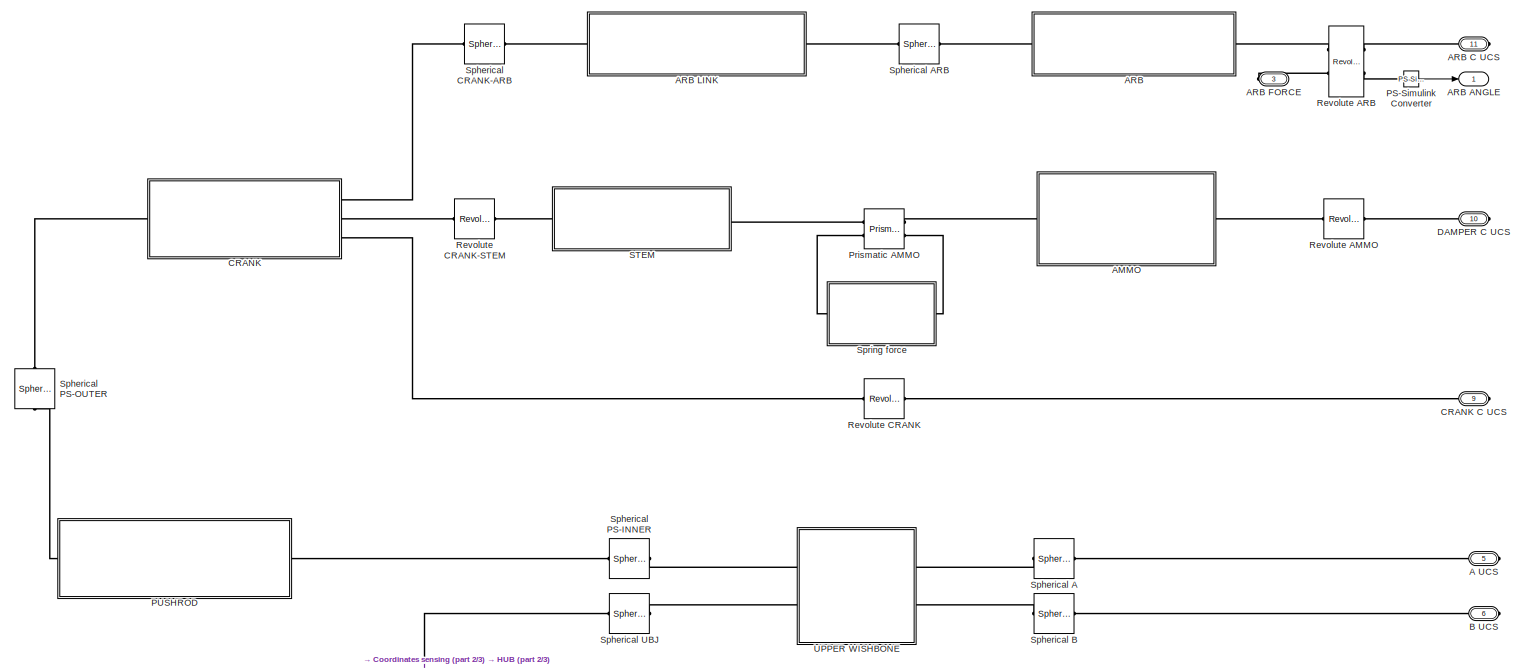
[diagram: FIXED CHASSIS/FL SUSPENSION - part 1/3, full width, top band]
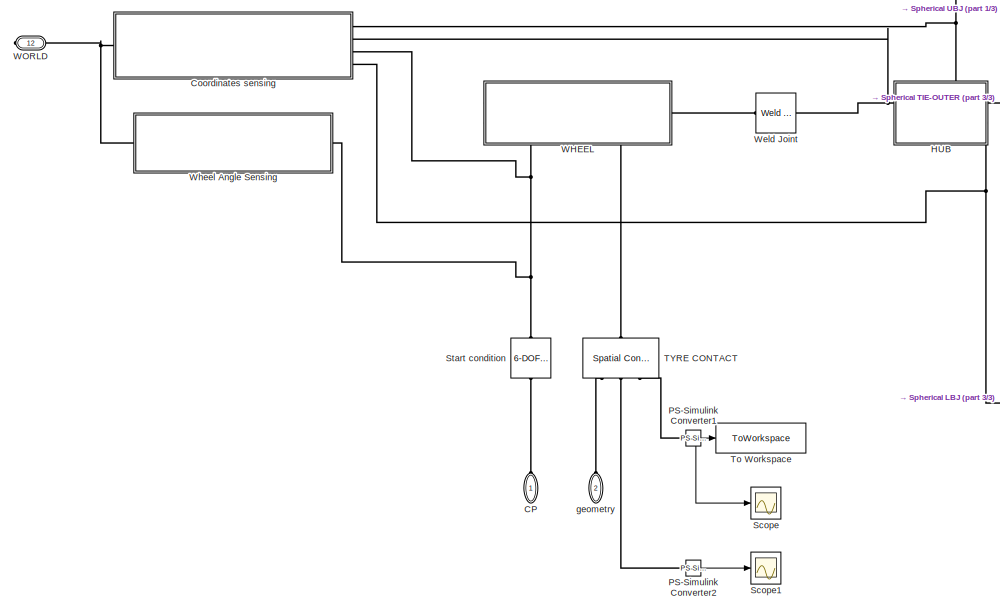
[diagram: FIXED CHASSIS/FL SUSPENSION - part 2/3, bottom left region]
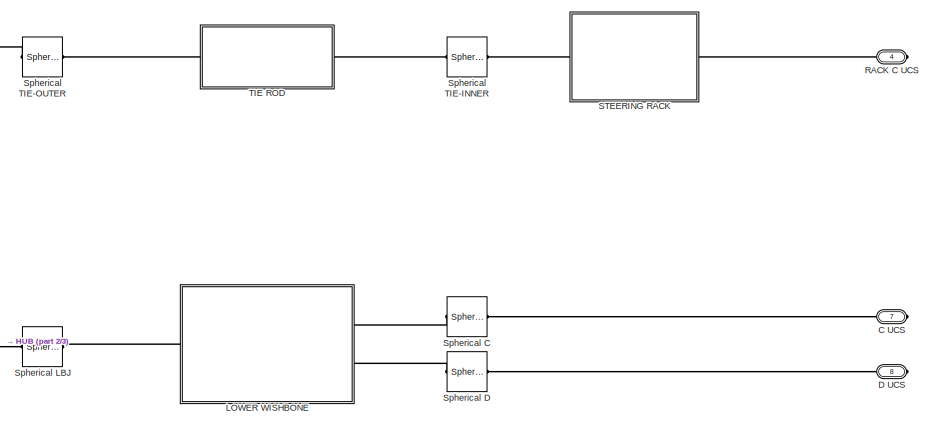
[diagram: FIXED CHASSIS/FL SUSPENSION - part 3/3, bottom right region]
BLOCK [SubSystem] FIXED CHASSIS/FL SUSPENSION
  Ports = [0, 1, 0, 0, 0, 2, 10]
  RequestExecContextInheritance = off
BLOCK [PMIOPort] FIXED CHASSIS/FL SUSPENSION/A UCS
  Port = 5
  Side = Right
BLOCK [SubSystem] FIXED CHASSIS/FL SUSPENSION/AMMO
  Ports = [0, 0, 0, 0, 0, 1, 1]
  RequestExecContextInheritance = off
BLOCK [Reference] FIXED CHASSIS/FL SUSPENSION/AMMO/AMMO  REF=sm_lib/Body Elements/Revolved Solid
  Ports = [0, 0, 0, 0, 0, 1, 1]
  SourceBlock = sm_lib/Body Elements/Revolved Solid
  SourceProductBaseCode = MS
  SourceType = Revolved Solid
BLOCK [Reference] FIXED CHASSIS/FL SUSPENSION/AMMO/ATTACCO AMMO  REF=sm_lib/Body Elements/Extruded Solid
  Ports = [0, 0, 0, 0, 0, 1, 1]
  SourceBlock = sm_lib/Body Elements/Extruded Solid
  SourceProductBaseCode = MS
  SourceType = Extruded Solid
BLOCK [PMIOPort] FIXED CHASSIS/FL SUSPENSION/AMMO/STEM
  Side = Left
BLOCK [PMIOPort] FIXED CHASSIS/FL SUSPENSION/AMMO/WORLD
  Port = 2
  Side = Right
BLOCK [SubSystem] FIXED CHASSIS/FL SUSPENSION/ARB
  Ports = [0, 0, 0, 0, 0, 1, 1]
  RequestExecContextInheritance = off
BLOCK [Outport] FIXED CHASSIS/FL SUSPENSION/ARB ANGLE
BLOCK [PMIOPort] FIXED CHASSIS/FL SUSPENSION/ARB C UCS
  Port = 11
  Side = Right
BLOCK [PMIOPort] FIXED CHASSIS/FL SUSPENSION/ARB FORCE
  Port = 3
  Side = Right
BLOCK [SubSystem] FIXED CHASSIS/FL SUSPENSION/ARB LINK
  Ports = [0, 0, 0, 0, 0, 1, 1]
  RequestExecContextInheritance = off
BLOCK [PMIOPort] FIXED CHASSIS/FL SUSPENSION/ARB LINK/ARB
  Port = 2
  Side = Right
BLOCK [PMIOPort] FIXED CHASSIS/FL SUSPENSION/ARB LINK/CRANK
  Side = Left
BLOCK [Reference] FIXED CHASSIS/FL SUSPENSION/ARB LINK/Cylindrical Solid1  REF=sm_lib/Body Elements/Cylindrical Solid
  Ports = [0, 0, 0, 0, 0, 1, 1]
  SourceBlock = sm_lib/Body Elements/Cylindrical Solid
  SourceProductBaseCode = MS
  SourceType = Cylindrical Solid
BLOCK [Reference] FIXED CHASSIS/FL SUSPENSION/ARB LINK/Spherical Solid  REF=sm_lib/Body Elements/Spherical Solid
  NameLocation = right
  Ports = [0, 0, 0, 0, 0, 0, 1]
  SourceBlock = sm_lib/Body Elements/Spherical Solid
  SourceProductBaseCode = MS
  SourceType = Spherical Solid
BLOCK [Reference] FIXED CHASSIS/FL SUSPENSION/ARB LINK/Spherical Solid1  REF=sm_lib/Body Elements/Spherical Solid
  NameLocation = right
  Ports = [0, 0, 0, 0, 0, 0, 1]
  SourceBlock = sm_lib/Body Elements/Spherical Solid
  SourceProductBaseCode = MS
  SourceType = Spherical Solid
BLOCK [PMIOPort] FIXED CHASSIS/FL SUSPENSION/ARB/ARB LINK
  Side = Right
BLOCK [Reference] FIXED CHASSIS/FL SUSPENSION/ARB/Cylindrical Solid  REF=sm_lib/Body Elements/Cylindrical Solid
  Ports = [0, 0, 0, 0, 0, 1, 1]
  SourceBlock = sm_lib/Body Elements/Cylindrical Solid
  SourceProductBaseCode = MS
  SourceType = Cylindrical Solid
BLOCK [Reference] FIXED CHASSIS/FL SUSPENSION/ARB/Extruded Solid  REF=sm_lib/Body Elements/Extruded Solid
  Ports = [0, 0, 0, 0, 0, 1, 1]
  SourceBlock = sm_lib/Body Elements/Extruded Solid
  SourceProductBaseCode = MS
  SourceType = Extruded Solid
BLOCK [PMIOPort] FIXED CHASSIS/FL SUSPENSION/ARB/WORLD
  Port = 2
  Side = Left
BLOCK [PMIOPort] FIXED CHASSIS/FL SUSPENSION/B UCS
  Port = 6
  Side = Right
BLOCK [PMIOPort] FIXED CHASSIS/FL SUSPENSION/C UCS
  Port = 7
  Side = Right
BLOCK [PMIOPort] FIXED CHASSIS/FL SUSPENSION/CP
  Side = Left
BLOCK [SubSystem] FIXED CHASSIS/FL SUSPENSION/CRANK
  NameLocation = top
  Ports = [0, 0, 0, 0, 0, 1, 3]
  RequestExecContextInheritance = off
BLOCK [PMIOPort] FIXED CHASSIS/FL SUSPENSION/CRANK C UCS
  Port = 9
  Side = Right
BLOCK [PMIOPort] FIXED CHASSIS/FL SUSPENSION/CRANK/ARB
  Port = 2
  Side = Right
BLOCK [Reference] FIXED CHASSIS/FL SUSPENSION/CRANK/ARB UCS  REF=sm_lib/Frames and
Transforms/Rigid
Transform
  Ports = [0, 0, 0, 0, 0, 1, 1]
  SourceBlock = sm_lib/Frames and\nTransforms/Rigid\nTransform
  SourceProductBaseCode = MS
  SourceType = Rigid\nTransform
BLOCK [Reference] FIXED CHASSIS/FL SUSPENSION/CRANK/ARB sphere  REF=sm_lib/Body Elements/Spherical Solid
  NameLocation = left
  Ports = [0, 0, 0, 0, 0, 0, 1]
  SourceBlock = sm_lib/Body Elements/Spherical Solid
  SourceProductBaseCode = MS
  SourceType = Spherical Solid
BLOCK [PMIOPort] FIXED CHASSIS/FL SUSPENSION/CRANK/CENTER
  Port = 4
  Side = Right
BLOCK [Reference] FIXED CHASSIS/FL SUSPENSION/CRANK/CENTER UCS  REF=sm_lib/Frames and
Transforms/Rigid
Transform
  Ports = [0, 0, 0, 0, 0, 1, 1]
  SourceBlock = sm_lib/Frames and\nTransforms/Rigid\nTransform
  SourceProductBaseCode = MS
  SourceType = Rigid\nTransform
BLOCK [Reference] FIXED CHASSIS/FL SUSPENSION/CRANK/CENTER sphere  REF=sm_lib/Body Elements/Spherical Solid
  NameLocation = left
  Ports = [0, 0, 0, 0, 0, 0, 1]
  SourceBlock = sm_lib/Body Elements/Spherical Solid
  SourceProductBaseCode = MS
  SourceType = Spherical Solid
BLOCK [Reference] FIXED CHASSIS/FL SUSPENSION/CRANK/CRANK  REF=sm_lib/Body Elements/Extruded Solid
  Ports = [0, 0, 0, 0, 0, 0, 1]
  SourceBlock = sm_lib/Body Elements/Extruded Solid
  SourceProductBaseCode = MS
  SourceType = Extruded Solid
BLOCK [PMIOPort] FIXED CHASSIS/FL SUSPENSION/CRANK/PUSHROD
  Side = Left
BLOCK [Reference] FIXED CHASSIS/FL SUSPENSION/CRANK/PUSHROD UCS  REF=sm_lib/Frames and
Transforms/Rigid
Transform
  Ports = [0, 0, 0, 0, 0, 1, 1]
  SourceBlock = sm_lib/Frames and\nTransforms/Rigid\nTransform
  SourceProductBaseCode = MS
  SourceType = Rigid\nTransform
BLOCK [Reference] FIXED CHASSIS/FL SUSPENSION/CRANK/PUSHROD sphere  REF=sm_lib/Body Elements/Spherical Solid
  NameLocation = left
  Ports = [0, 0, 0, 0, 0, 0, 1]
  SourceBlock = sm_lib/Body Elements/Spherical Solid
  SourceProductBaseCode = MS
  SourceType = Spherical Solid
BLOCK [PMIOPort] FIXED CHASSIS/FL SUSPENSION/CRANK/STEM
  Port = 3
  Side = Right
BLOCK [Reference] FIXED CHASSIS/FL SUSPENSION/CRANK/STEM UCS  REF=sm_lib/Frames and
Transforms/Rigid
Transform
  Ports = [0, 0, 0, 0, 0, 1, 1]
  SourceBlock = sm_lib/Frames and\nTransforms/Rigid\nTransform
  SourceProductBaseCode = MS
  SourceType = Rigid\nTransform
BLOCK [Reference] FIXED CHASSIS/FL SUSPENSION/CRANK/STEM sphere  REF=sm_lib/Body Elements/Spherical Solid
  NameLocation = left
  Ports = [0, 0, 0, 0, 0, 0, 1]
  SourceBlock = sm_lib/Body Elements/Spherical Solid
  SourceProductBaseCode = MS
  SourceType = Spherical Solid
BLOCK [SubSystem] FIXED CHASSIS/FL SUSPENSION/Coordinates sensing
  Ports = [0, 0, 0, 0, 0, 1, 4]
  RequestExecContextInheritance = off
BLOCK [PMIOPort] FIXED CHASSIS/FL SUSPENSION/Coordinates sensing/CP
  Port = 4
  Side = Right
BLOCK [PMIOPort] FIXED CHASSIS/FL SUSPENSION/Coordinates sensing/LBJ
  Port = 5
  Side = Right
BLOCK [Reference] FIXED CHASSIS/FL SUSPENSION/Coordinates sensing/PS-Simulink Converter  REF=nesl_utility/PS-Simulink
Converter
  Ports = [0, 1, 0, 0, 0, 1]
  SourceBlock = nesl_utility/PS-Simulink\nConverter
  SourceProductBaseCode = SS
  SourceType = PS-Simulink\nConverter
BLOCK [Reference] FIXED CHASSIS/FL SUSPENSION/Coordinates sensing/PS-Simulink Converter1  REF=nesl_utility/PS-Simulink
Converter
  Ports = [0, 1, 0, 0, 0, 1]
  SourceBlock = nesl_utility/PS-Simulink\nConverter
  SourceProductBaseCode = SS
  SourceType = PS-Simulink\nConverter
BLOCK [Reference] FIXED CHASSIS/FL SUSPENSION/Coordinates sensing/PS-Simulink Converter2  REF=nesl_utility/PS-Simulink
Converter
  Ports = [0, 1, 0, 0, 0, 1]
  SourceBlock = nesl_utility/PS-Simulink\nConverter
  SourceProductBaseCode = SS
  SourceType = PS-Simulink\nConverter
BLOCK [Reference] FIXED CHASSIS/FL SUSPENSION/Coordinates sensing/PS-Simulink Converter3  REF=nesl_utility/PS-Simulink
Converter
  Ports = [0, 1, 0, 0, 0, 1]
  SourceBlock = nesl_utility/PS-Simulink\nConverter
  SourceProductBaseCode = SS
  SourceType = PS-Simulink\nConverter
BLOCK [Reference] FIXED CHASSIS/FL SUSPENSION/Coordinates sensing/PS-Simulink Converter4  REF=nesl_utility/PS-Simulink
Converter
  Ports = [0, 1, 0, 0, 0, 1]
  SourceBlock = nesl_utility/PS-Simulink\nConverter
  SourceProductBaseCode = SS
  SourceType = PS-Simulink\nConverter
BLOCK [Reference] FIXED CHASSIS/FL SUSPENSION/Coordinates sensing/PS-Simulink Converter5  REF=nesl_utility/PS-Simulink
Converter
  Ports = [0, 1, 0, 0, 0, 1]
  SourceBlock = nesl_utility/PS-Simulink\nConverter
  SourceProductBaseCode = SS
  SourceType = PS-Simulink\nConverter
BLOCK [Reference] FIXED CHASSIS/FL SUSPENSION/Coordinates sensing/PS-Simulink Converter6  REF=nesl_utility/PS-Simulink
Converter
  Ports = [0, 1, 0, 0, 0, 1]
  SourceBlock = nesl_utility/PS-Simulink\nConverter
  SourceProductBaseCode = SS
  SourceType = PS-Simulink\nConverter
BLOCK [Reference] FIXED CHASSIS/FL SUSPENSION/Coordinates sensing/PS-Simulink Converter7  REF=nesl_utility/PS-Simulink
Converter
  Ports = [0, 1, 0, 0, 0, 1]
  SourceBlock = nesl_utility/PS-Simulink\nConverter
  SourceProductBaseCode = SS
  SourceType = PS-Simulink\nConverter
BLOCK [Scope] FIXED CHASSIS/FL SUSPENSION/Coordinates sensing/Scope
  Floating = off
  NumInputPorts = 1
  Ports = [1]
  ScopeSpecificationString = Simulink.scopes.TimeScopeBlockCfg('CurrentConfiguration', extmgr.ConfigurationSet(extmgr.Configuration('Core','General UI',true),extmgr.Configuration('Core','Source UI',true),extmgr.Configuration('Sources','WiredSimulink',true,'DataLoggingVariableName','ScopeData7'),extmgr.Configuration('Visuals','Time Domain',true,'SerializedDisplays',{struct('MinYLimReal','516.99546','MaxYLimReal','528.13983','Y...<+1582ch>  <repeated x8 — deduplicated; at blocks: Scope>
BLOCK [Scope] FIXED CHASSIS/FL SUSPENSION/Coordinates sensing/Scope1
  Floating = off
  NumInputPorts = 1
  Ports = [1]
  ScopeSpecificationString = Simulink.scopes.TimeScopeBlockCfg('CurrentConfiguration', extmgr.ConfigurationSet(extmgr.Configuration('Core','General UI',true),extmgr.Configuration('Core','Source UI',true),extmgr.Configuration('Sources','WiredSimulink',true,'DataLoggingVariableName','ScopeData1'),extmgr.Configuration('Visuals','Time Domain',true,'SerializedDisplays',{struct('MinYLimReal','559.52314','MaxYLimReal','563.72202','Y...<+1583ch>  <repeated x8 — deduplicated; at blocks: Scope1>
BLOCK [Scope] FIXED CHASSIS/FL SUSPENSION/Coordinates sensing/Scope2
  Floating = off
  NumInputPorts = 1
  Ports = [1]
  ScopeSpecificationString = Simulink.scopes.TimeScopeBlockCfg('CurrentConfiguration', extmgr.ConfigurationSet(extmgr.Configuration('Core','General UI',true),extmgr.Configuration('Core','Source UI',true),extmgr.Configuration('Sources','WiredSimulink',true,'DataLoggingVariableName','ScopeData1'),extmgr.Configuration('Visuals','Time Domain',true,'SerializedDisplays',{struct('MinYLimReal','516.99546','MaxYLimReal','528.13983','Y...<+1582ch>  <repeated x8 — deduplicated; at blocks: Scope2>
BLOCK [Scope] FIXED CHASSIS/FL SUSPENSION/Coordinates sensing/Scope3
  Floating = off
  NumInputPorts = 1
  Ports = [1]
  ScopeSpecificationString = Simulink.scopes.TimeScopeBlockCfg('CurrentConfiguration', extmgr.ConfigurationSet(extmgr.Configuration('Core','General UI',true),extmgr.Configuration('Core','Source UI',true),extmgr.Configuration('Sources','WiredSimulink',true,'DataLoggingVariableName','ScopeData2'),extmgr.Configuration('Visuals','Time Domain',true,'SerializedDisplays',{struct('MinYLimReal','344.28504','MaxYLimReal','390.42552','Y...<+1583ch>  <repeated x8 — deduplicated; at blocks: Scope3>
BLOCK [Scope] FIXED CHASSIS/FL SUSPENSION/Coordinates sensing/Scope4
  Floating = off
  NumInputPorts = 1
  Ports = [1]
  ScopeSpecificationString = Simulink.scopes.TimeScopeBlockCfg('CurrentConfiguration', extmgr.ConfigurationSet(extmgr.Configuration('Core','General UI',true),extmgr.Configuration('Core','Source UI',true),extmgr.Configuration('Sources','WiredSimulink',true,'DataLoggingVariableName','ScopeData1'),extmgr.Configuration('Visuals','Time Domain',true,'SerializedDisplays',{struct('MinYLimReal','344.28504','MaxYLimReal','390.42552','Y...<+1583ch>  <repeated x8 — deduplicated; at blocks: Scope4>
BLOCK [Scope] FIXED CHASSIS/FL SUSPENSION/Coordinates sensing/Scope5
  Floating = off
  NumInputPorts = 1
  Ports = [1]
  ScopeSpecificationString = Simulink.scopes.TimeScopeBlockCfg('CurrentConfiguration', extmgr.ConfigurationSet(extmgr.Configuration('Core','General UI',true),extmgr.Configuration('Core','Source UI',true),extmgr.Configuration('Sources','WiredSimulink',true,'DataLoggingVariableName','ScopeData3'),extmgr.Configuration('Visuals','Time Domain',true,'SerializedDisplays',{struct('MinYLimReal','143.41667','MaxYLimReal','191.44552','Y...<+1583ch>  <repeated x8 — deduplicated; at blocks: Scope5>
BLOCK [Scope] FIXED CHASSIS/FL SUSPENSION/Coordinates sensing/Scope6
  Floating = off
  NumInputPorts = 1
  Ports = [1]
  ScopeSpecificationString = Simulink.scopes.TimeScopeBlockCfg('CurrentConfiguration', extmgr.ConfigurationSet(extmgr.Configuration('Core','General UI',true),extmgr.Configuration('Core','Source UI',true),extmgr.Configuration('Sources','WiredSimulink',true,'DataLoggingVariableName','ScopeData1'),extmgr.Configuration('Visuals','Time Domain',true,'SerializedDisplays',{struct('MinYLimReal','124.23557','MaxYLimReal','172.66396','Y...<+1583ch>  <repeated x4 — deduplicated; at blocks: Scope6>
BLOCK [Scope] FIXED CHASSIS/FL SUSPENSION/Coordinates sensing/Scope7
  Floating = off
  NumInputPorts = 1
  Ports = [1]
  ScopeSpecificationString = Simulink.scopes.TimeScopeBlockCfg('CurrentConfiguration', extmgr.ConfigurationSet(extmgr.Configuration('Core','General UI',true),extmgr.Configuration('Core','Source UI',true),extmgr.Configuration('Sources','WiredSimulink',true,'DataLoggingVariableName','ScopeData2'),extmgr.Configuration('Visuals','Time Domain',true,'SerializedDisplays',{struct('MinYLimReal','229.9596','MaxYLimReal','279.82809','YL...<+1579ch>  <repeated x8 — deduplicated; at blocks: Scope7>
BLOCK [ToWorkspace] FIXED CHASSIS/FL SUSPENSION/Coordinates sensing/To Workspace1
  FixptAsFi = on
  MaxDataPoints = inf
  Ports = [1]
  SampleTime = -1
  SaveFormat = Timeseries
  VariableName = FL_UBJ_y
BLOCK [ToWorkspace] FIXED CHASSIS/FL SUSPENSION/Coordinates sensing/To Workspace2
  FixptAsFi = on
  MaxDataPoints = inf
  Ports = [1]
  SampleTime = -1
  SaveFormat = Timeseries
  VariableName = FL_LBJ_y
BLOCK [ToWorkspace] FIXED CHASSIS/FL SUSPENSION/Coordinates sensing/To Workspace3
  FixptAsFi = on
  MaxDataPoints = inf
  Ports = [1]
  SampleTime = -1
  SaveFormat = Timeseries
  VariableName = FL_CP_y
BLOCK [ToWorkspace] FIXED CHASSIS/FL SUSPENSION/Coordinates sensing/To Workspace4
  FixptAsFi = on
  MaxDataPoints = inf
  Ports = [1]
  SampleTime = -1
  SaveFormat = Timeseries
  VariableName = FL_UBJ_z
BLOCK [ToWorkspace] FIXED CHASSIS/FL SUSPENSION/Coordinates sensing/To Workspace5
  FixptAsFi = on
  MaxDataPoints = inf
  Ports = [1]
  SampleTime = -1
  SaveFormat = Timeseries
  VariableName = FL_LBJ_z
BLOCK [ToWorkspace] FIXED CHASSIS/FL SUSPENSION/Coordinates sensing/To Workspace6
  FixptAsFi = on
  MaxDataPoints = inf
  Ports = [1]
  SampleTime = -1
  SaveFormat = Timeseries
  VariableName = FL_WC_y
BLOCK [ToWorkspace] FIXED CHASSIS/FL SUSPENSION/Coordinates sensing/To Workspace7
  FixptAsFi = on
  MaxDataPoints = inf
  Ports = [1]
  SampleTime = -1
  SaveFormat = Timeseries
  VariableName = FL_WC_z
BLOCK [ToWorkspace] FIXED CHASSIS/FL SUSPENSION/Coordinates sensing/To Workspace8
  FixptAsFi = on
  MaxDataPoints = inf
  Ports = [1]
  SampleTime = -1
  SaveFormat = Timeseries
  VariableName = FL_CP_z
BLOCK [Reference] FIXED CHASSIS/FL SUSPENSION/Coordinates sensing/Transform Sensor  REF=sm_lib/Frames and
Transforms/Transform
Sensor
  Ports = [0, 0, 0, 0, 0, 1, 3]
  SourceBlock = sm_lib/Frames and\nTransforms/Transform\nSensor
  SourceProductBaseCode = MS
  SourceType = Transform\nSensor
BLOCK [Reference] FIXED CHASSIS/FL SUSPENSION/Coordinates sensing/Transform Sensor1  REF=sm_lib/Frames and
Transforms/Transform
Sensor
  Ports = [0, 0, 0, 0, 0, 1, 3]
  SourceBlock = sm_lib/Frames and\nTransforms/Transform\nSensor
  SourceProductBaseCode = MS
  SourceType = Transform\nSensor
BLOCK [Reference] FIXED CHASSIS/FL SUSPENSION/Coordinates sensing/Transform Sensor2  REF=sm_lib/Frames and
Transforms/Transform
Sensor
  Ports = [0, 0, 0, 0, 0, 1, 3]
  SourceBlock = sm_lib/Frames and\nTransforms/Transform\nSensor
  SourceProductBaseCode = MS
  SourceType = Transform\nSensor
BLOCK [Reference] FIXED CHASSIS/FL SUSPENSION/Coordinates sensing/Transform Sensor3  REF=sm_lib/Frames and
Transforms/Transform
Sensor
  Ports = [0, 0, 0, 0, 0, 1, 3]
  SourceBlock = sm_lib/Frames and\nTransforms/Transform\nSensor
  SourceProductBaseCode = MS
  SourceType = Transform\nSensor
BLOCK [PMIOPort] FIXED CHASSIS/FL SUSPENSION/Coordinates sensing/UBJ
  Port = 2
  Side = Right
BLOCK [PMIOPort] FIXED CHASSIS/FL SUSPENSION/Coordinates sensing/WC
  Port = 3
  Side = Right
BLOCK [PMIOPort] FIXED CHASSIS/FL SUSPENSION/Coordinates sensing/WORLD
  Side = Left
BLOCK [PMIOPort] FIXED CHASSIS/FL SUSPENSION/D UCS
  Port = 8
  Side = Right
BLOCK [PMIOPort] FIXED CHASSIS/FL SUSPENSION/DAMPER C UCS
  Port = 10
  Side = Right
BLOCK [SubSystem] FIXED CHASSIS/FL SUSPENSION/HUB
  NameLocation = top
  PortSchema = {"entries":[{"content":{"sides":[{"content":{"connectorIds":["LConn1"]},"type":"ConnectorPlacement.EquallySpacedRectSide","uuid":"9288c4a0-54c3-4908-8001-02af7126e1bd"},{"content":{"connectorIds":["RConn1"],"side":"RIGHT"},"type":"ConnectorPlacement.EquallySpacedRectSide","uuid":"0b9445fb-287d-43af-a603-ac8e03764a58"},{"content":{"connectorIds":["LConn2"],"side":"TOP"},"type":"ConnectorPlacement.E...<+549ch>  <repeated x8 — deduplicated; at blocks: HUB>
  Ports = [0, 0, 0, 0, 0, 2, 2]
  RequestExecContextInheritance = off
BLOCK [Reference] FIXED CHASSIS/FL SUSPENSION/HUB/ LBJ-TIE  REF=sm_lib/Body Elements/Cylindrical Solid
  NameLocation = right
  Ports = [0, 0, 0, 0, 0, 1, 1]
  SourceBlock = sm_lib/Body Elements/Cylindrical Solid
  SourceProductBaseCode = MS
  SourceType = Cylindrical Solid
BLOCK [Reference] FIXED CHASSIS/FL SUSPENSION/HUB/ UBJ  REF=sm_lib/Body Elements/Spherical Solid
  Ports = [0, 0, 0, 0, 0, 0, 1]
  SourceBlock = sm_lib/Body Elements/Spherical Solid
  SourceProductBaseCode = MS
  SourceType = Spherical Solid
BLOCK [Reference] FIXED CHASSIS/FL SUSPENSION/HUB/CAMBER  REF=sm_lib/Frames and
Transforms/Rigid
Transform
  NameLocation = right
  Ports = [0, 0, 0, 0, 0, 1, 1]
  SourceBlock = sm_lib/Frames and\nTransforms/Rigid\nTransform
  SourceProductBaseCode = MS
  SourceType = Rigid\nTransform
BLOCK [Reference] FIXED CHASSIS/FL SUSPENSION/HUB/LBJ  REF=sm_lib/Body Elements/Spherical Solid
  Ports = [0, 0, 0, 0, 0, 0, 1]
  SourceBlock = sm_lib/Body Elements/Spherical Solid
  SourceProductBaseCode = MS
  SourceType = Spherical Solid
BLOCK [PMIOPort] FIXED CHASSIS/FL SUSPENSION/HUB/LBJ 
  Port = 4
  Side = Right
BLOCK [Reference] FIXED CHASSIS/FL SUSPENSION/HUB/Rigid Transform  REF=sm_lib/Frames and
Transforms/Rigid
Transform
  NameLocation = left
  Ports = [0, 0, 0, 0, 0, 1, 1]
  SourceBlock = sm_lib/Frames and\nTransforms/Rigid\nTransform
  SourceProductBaseCode = MS
  SourceType = Rigid\nTransform
BLOCK [Reference] FIXED CHASSIS/FL SUSPENSION/HUB/Rigid Transform1  REF=sm_lib/Frames and
Transforms/Rigid
Transform
  NameLocation = left
  Ports = [0, 0, 0, 0, 0, 1, 1]
  SourceBlock = sm_lib/Frames and\nTransforms/Rigid\nTransform
  SourceProductBaseCode = MS
  SourceType = Rigid\nTransform
BLOCK [PMIOPort] FIXED CHASSIS/FL SUSPENSION/HUB/TIE
  NameLocation = left
  Port = 3
  Side = Right
BLOCK [Reference] FIXED CHASSIS/FL SUSPENSION/HUB/TOE  REF=sm_lib/Frames and
Transforms/Rigid
Transform
  NameLocation = right
  Ports = [0, 0, 0, 0, 0, 1, 1]
  SourceBlock = sm_lib/Frames and\nTransforms/Rigid\nTransform
  SourceProductBaseCode = MS
  SourceType = Rigid\nTransform
BLOCK [PMIOPort] FIXED CHASSIS/FL SUSPENSION/HUB/UBJ
  Port = 2
  Side = Left
BLOCK [Reference] FIXED CHASSIS/FL SUSPENSION/HUB/UBJ-LBJ  REF=sm_lib/Body Elements/Cylindrical Solid
  NameLocation = right
  Ports = [0, 0, 0, 0, 0, 1, 1]
  SourceBlock = sm_lib/Body Elements/Cylindrical Solid
  SourceProductBaseCode = MS
  SourceType = Cylindrical Solid
BLOCK [PMIOPort] FIXED CHASSIS/FL SUSPENSION/HUB/WC 
  NameLocation = left
  Side = Left
BLOCK [SubSystem] FIXED CHASSIS/FL SUSPENSION/LOWER WISHBONE
  NameLocation = top
  Ports = [0, 0, 0, 0, 0, 2, 1]
  RequestExecContextInheritance = off
BLOCK [Reference] FIXED CHASSIS/FL SUSPENSION/LOWER WISHBONE/C  REF=sm_lib/Body Elements/Spherical Solid
  NameLocation = right
  Ports = [0, 0, 0, 0, 0, 0, 1]
  SourceBlock = sm_lib/Body Elements/Spherical Solid
  SourceProductBaseCode = MS
  SourceType = Spherical Solid
BLOCK [PMIOPort] FIXED CHASSIS/FL SUSPENSION/LOWER WISHBONE/C UCS
  Side = Left
BLOCK [Reference] FIXED CHASSIS/FL SUSPENSION/LOWER WISHBONE/C-D  REF=sm_lib/Frames and
Transforms/Rigid
Transform
  Ports = [0, 0, 0, 0, 0, 1, 1]
  SourceBlock = sm_lib/Frames and\nTransforms/Rigid\nTransform
  SourceProductBaseCode = MS
  SourceType = Rigid\nTransform
BLOCK [Reference] FIXED CHASSIS/FL SUSPENSION/LOWER WISHBONE/D  REF=sm_lib/Body Elements/Spherical Solid
  NameLocation = right
  Ports = [0, 0, 0, 0, 0, 0, 1]
  SourceBlock = sm_lib/Body Elements/Spherical Solid
  SourceProductBaseCode = MS
  SourceType = Spherical Solid
BLOCK [PMIOPort] FIXED CHASSIS/FL SUSPENSION/LOWER WISHBONE/D UCS
  Port = 2
  Side = Left
BLOCK [Reference] FIXED CHASSIS/FL SUSPENSION/LOWER WISHBONE/INNER CYL  REF=sm_lib/Body Elements/Cylindrical Solid
  NameLocation = right
  Ports = [0, 0, 0, 0, 0, 1, 1]
  SourceBlock = sm_lib/Body Elements/Cylindrical Solid
  SourceProductBaseCode = MS
  SourceType = Cylindrical Solid
BLOCK [Reference] FIXED CHASSIS/FL SUSPENSION/LOWER WISHBONE/LBJ  REF=sm_lib/Body Elements/Spherical Solid
  Ports = [0, 0, 0, 0, 0, 0, 1]
  SourceBlock = sm_lib/Body Elements/Spherical Solid
  SourceProductBaseCode = MS
  SourceType = Spherical Solid
BLOCK [PMIOPort] FIXED CHASSIS/FL SUSPENSION/LOWER WISHBONE/LBJ UCS
  NameLocation = right
  Port = 3
  Side = Right
BLOCK [Reference] FIXED CHASSIS/FL SUSPENSION/LOWER WISHBONE/OUTER CYL  REF=sm_lib/Body Elements/Cylindrical Solid
  NameLocation = right
  Ports = [0, 0, 0, 0, 0, 1, 1]
  SourceBlock = sm_lib/Body Elements/Cylindrical Solid
  SourceProductBaseCode = MS
  SourceType = Cylindrical Solid
BLOCK [Reference] FIXED CHASSIS/FL SUSPENSION/PS-Simulink Converter  REF=nesl_utility/PS-Simulink
Converter
  Ports = [0, 1, 0, 0, 0, 1]
  SourceBlock = nesl_utility/PS-Simulink\nConverter
  SourceProductBaseCode = SS
  SourceType = PS-Simulink\nConverter
BLOCK [Reference] FIXED CHASSIS/FL SUSPENSION/PS-Simulink Converter1  REF=nesl_utility/PS-Simulink
Converter
  Ports = [0, 1, 0, 0, 0, 1]
  SourceBlock = nesl_utility/PS-Simulink\nConverter
  SourceProductBaseCode = SS
  SourceType = PS-Simulink\nConverter
BLOCK [Reference] FIXED CHASSIS/FL SUSPENSION/PS-Simulink Converter2  REF=nesl_utility/PS-Simulink
Converter
  Ports = [0, 1, 0, 0, 0, 1]
  SourceBlock = nesl_utility/PS-Simulink\nConverter
  SourceProductBaseCode = SS
  SourceType = PS-Simulink\nConverter
BLOCK [SubSystem] FIXED CHASSIS/FL SUSPENSION/PUSHROD
  Ports = [0, 0, 0, 0, 0, 1, 1]
  RequestExecContextInheritance = off
BLOCK [PMIOPort] FIXED CHASSIS/FL SUSPENSION/PUSHROD/CRANK
  Side = Left
BLOCK [Reference] FIXED CHASSIS/FL SUSPENSION/PUSHROD/Cylindrical Solid  REF=sm_lib/Body Elements/Cylindrical Solid
  Ports = [0, 0, 0, 0, 0, 1, 1]
  SourceBlock = sm_lib/Body Elements/Cylindrical Solid
  SourceProductBaseCode = MS
  SourceType = Cylindrical Solid
BLOCK [Reference] FIXED CHASSIS/FL SUSPENSION/PUSHROD/Spherical Solid  REF=sm_lib/Body Elements/Spherical Solid
  NameLocation = top
  Ports = [0, 0, 0, 0, 0, 0, 1]
  SourceBlock = sm_lib/Body Elements/Spherical Solid
  SourceProductBaseCode = MS
  SourceType = Spherical Solid
BLOCK [Reference] FIXED CHASSIS/FL SUSPENSION/PUSHROD/Spherical Solid1  REF=sm_lib/Body Elements/Spherical Solid
  NameLocation = top
  Ports = [0, 0, 0, 0, 0, 0, 1]
  SourceBlock = sm_lib/Body Elements/Spherical Solid
  SourceProductBaseCode = MS
  SourceType = Spherical Solid
BLOCK [PMIOPort] FIXED CHASSIS/FL SUSPENSION/PUSHROD/UPPER WISHBONE
  Port = 2
  Side = Right
BLOCK [Reference] FIXED CHASSIS/FL SUSPENSION/Prismatic AMMO  REF=sm_lib/Joints/Prismatic
Joint
  Ports = [0, 0, 0, 0, 0, 2, 2]
  SourceBlock = sm_lib/Joints/Prismatic\nJoint
  SourceProductBaseCode = MS
  SourceType = Prismatic\nJoint
BLOCK [PMIOPort] FIXED CHASSIS/FL SUSPENSION/RACK C UCS
  Port = 4
  Side = Right
BLOCK [Reference] FIXED CHASSIS/FL SUSPENSION/Revolute AMMO  REF=sm_lib/Joints/Revolute Joint
  Ports = [0, 0, 0, 0, 0, 1, 1]
  SourceBlock = sm_lib/Joints/Revolute Joint
  SourceProductBaseCode = MS
  SourceType = Revolute Joint
BLOCK [Reference] FIXED CHASSIS/FL SUSPENSION/Revolute ARB  REF=sm_lib/Joints/Revolute Joint
  Ports = [0, 0, 0, 0, 0, 2, 2]
  SourceBlock = sm_lib/Joints/Revolute Joint
  SourceProductBaseCode = MS
  SourceType = Revolute Joint
BLOCK [Reference] FIXED CHASSIS/FL SUSPENSION/Revolute CRANK  REF=sm_lib/Joints/Revolute Joint
  Ports = [0, 0, 0, 0, 0, 1, 1]
  SourceBlock = sm_lib/Joints/Revolute Joint
  SourceProductBaseCode = MS
  SourceType = Revolute Joint
BLOCK [Reference] FIXED CHASSIS/FL SUSPENSION/Revolute CRANK-STEM  REF=sm_lib/Joints/Revolute Joint
  Ports = [0, 0, 0, 0, 0, 1, 1]
  SourceBlock = sm_lib/Joints/Revolute Joint
  SourceProductBaseCode = MS
  SourceType = Revolute Joint
BLOCK [SubSystem] FIXED CHASSIS/FL SUSPENSION/STEERING RACK
  NameLocation = top
  Ports = [0, 0, 0, 0, 0, 1, 1]
  RequestExecContextInheritance = off
BLOCK [Reference] FIXED CHASSIS/FL SUSPENSION/STEERING RACK/Cylindrical Solid  REF=sm_lib/Body Elements/Cylindrical Solid
  Ports = [0, 0, 0, 0, 0, 1, 1]
  SourceBlock = sm_lib/Body Elements/Cylindrical Solid
  SourceProductBaseCode = MS
  SourceType = Cylindrical Solid
BLOCK [PMIOPort] FIXED CHASSIS/FL SUSPENSION/STEERING RACK/RACK TIE
  Port = 2
  Side = Right
BLOCK [PMIOPort] FIXED CHASSIS/FL SUSPENSION/STEERING RACK/WORLD
  Side = Left
BLOCK [SubSystem] FIXED CHASSIS/FL SUSPENSION/STEM
  Ports = [0, 0, 0, 0, 0, 1, 1]
  RequestExecContextInheritance = off
BLOCK [Reference] FIXED CHASSIS/FL SUSPENSION/STEM/ATTACCO STEM  REF=sm_lib/Body Elements/Extruded Solid
  Ports = [0, 0, 0, 0, 0, 1, 1]
  SourceBlock = sm_lib/Body Elements/Extruded Solid
  SourceProductBaseCode = MS
  SourceType = Extruded Solid
BLOCK [Reference] FIXED CHASSIS/FL SUSPENSION/STEM/STEM  REF=sm_lib/Body Elements/Revolved Solid
  Ports = [0, 0, 0, 0, 0, 1, 1]
  SourceBlock = sm_lib/Body Elements/Revolved Solid
  SourceProductBaseCode = MS
  SourceType = Revolved Solid
BLOCK [PMIOPort] FIXED CHASSIS/FL SUSPENSION/STEM/STEM TO AMMO
  Port = 2
  Side = Right
BLOCK [PMIOPort] FIXED CHASSIS/FL SUSPENSION/STEM/STEM TO CRANK
  Side = Left
BLOCK [Scope] FIXED CHASSIS/FL SUSPENSION/Scope
  Floating = off
  NumInputPorts = 1
  Ports = [1]
  ScopeSpecificationString = Simulink.scopes.TimeScopeBlockCfg('CurrentConfiguration', extmgr.ConfigurationSet(extmgr.Configuration('Core','General UI',true),extmgr.Configuration('Core','Source UI',true),extmgr.Configuration('Sources','WiredSimulink',true,'DataLoggingVariableName','ScopeData1'),extmgr.Configuration('Visuals','Time Domain',true,'SerializedDisplays',{struct('MinYLimReal','-460.91782','MaxYLimReal','4148.2604','...<+1446ch>
BLOCK [Scope] FIXED CHASSIS/FL SUSPENSION/Scope1
  Floating = off
  NumInputPorts = 1
  Ports = [1]
  ScopeSpecificationString = Simulink.scopes.TimeScopeBlockCfg('CurrentConfiguration', extmgr.ConfigurationSet(extmgr.Configuration('Core','General UI',true),extmgr.Configuration('Core','Source UI',true),extmgr.Configuration('Sources','WiredSimulink',true,'DataLoggingVariableName','ScopeData2'),extmgr.Configuration('Visuals','Time Domain',true,'SerializedDisplays',{struct('MinYLimReal','-40.34837','MaxYLimReal','47.9797','YLa...<+1434ch>
BLOCK [Reference] FIXED CHASSIS/FL SUSPENSION/Spherical A  REF=sm_lib/Joints/Spherical
Joint
  NameLocation = top
  Ports = [0, 0, 0, 0, 0, 1, 1]
  SourceBlock = sm_lib/Joints/Spherical\nJoint
  SourceProductBaseCode = MS
  SourceType = Spherical\nJoint
BLOCK [Reference] FIXED CHASSIS/FL SUSPENSION/Spherical ARB  REF=sm_lib/Joints/Spherical
Joint
  Ports = [0, 0, 0, 0, 0, 1, 1]
  SourceBlock = sm_lib/Joints/Spherical\nJoint
  SourceProductBaseCode = MS
  SourceType = Spherical\nJoint
BLOCK [Reference] FIXED CHASSIS/FL SUSPENSION/Spherical B  REF=sm_lib/Joints/Spherical
Joint
  Ports = [0, 0, 0, 0, 0, 1, 1]
  SourceBlock = sm_lib/Joints/Spherical\nJoint
  SourceProductBaseCode = MS
  SourceType = Spherical\nJoint
BLOCK [Reference] FIXED CHASSIS/FL SUSPENSION/Spherical C  REF=sm_lib/Joints/Spherical
Joint
  NameLocation = top
  Ports = [0, 0, 0, 0, 0, 1, 1]
  SourceBlock = sm_lib/Joints/Spherical\nJoint
  SourceProductBaseCode = MS
  SourceType = Spherical\nJoint
BLOCK [Reference] FIXED CHASSIS/FL SUSPENSION/Spherical CRANK-ARB  REF=sm_lib/Joints/Spherical
Joint
  Ports = [0, 0, 0, 0, 0, 1, 1]
  SourceBlock = sm_lib/Joints/Spherical\nJoint
  SourceProductBaseCode = MS
  SourceType = Spherical\nJoint
BLOCK [Reference] FIXED CHASSIS/FL SUSPENSION/Spherical D  REF=sm_lib/Joints/Spherical
Joint
  Ports = [0, 0, 0, 0, 0, 1, 1]
  SourceBlock = sm_lib/Joints/Spherical\nJoint
  SourceProductBaseCode = MS
  SourceType = Spherical\nJoint
BLOCK [Reference] FIXED CHASSIS/FL SUSPENSION/Spherical LBJ  REF=sm_lib/Joints/Spherical
Joint
  Ports = [0, 0, 0, 0, 0, 1, 1]
  SourceBlock = sm_lib/Joints/Spherical\nJoint
  SourceProductBaseCode = MS
  SourceType = Spherical\nJoint
BLOCK [Reference] FIXED CHASSIS/FL SUSPENSION/Spherical PS-INNER  REF=sm_lib/Joints/Spherical
Joint
  NameLocation = top
  Ports = [0, 0, 0, 0, 0, 1, 1]
  SourceBlock = sm_lib/Joints/Spherical\nJoint
  SourceProductBaseCode = MS
  SourceType = Spherical\nJoint
BLOCK [Reference] FIXED CHASSIS/FL SUSPENSION/Spherical PS-OUTER  REF=sm_lib/Joints/Spherical
Joint
  NameLocation = left
  Ports = [0, 0, 0, 0, 0, 1, 1]
  SourceBlock = sm_lib/Joints/Spherical\nJoint
  SourceProductBaseCode = MS
  SourceType = Spherical\nJoint
BLOCK [Reference] FIXED CHASSIS/FL SUSPENSION/Spherical TIE-INNER  REF=sm_lib/Joints/Spherical
Joint
  Ports = [0, 0, 0, 0, 0, 1, 1]
  SourceBlock = sm_lib/Joints/Spherical\nJoint
  SourceProductBaseCode = MS
  SourceType = Spherical\nJoint
BLOCK [Reference] FIXED CHASSIS/FL SUSPENSION/Spherical TIE-OUTER  REF=sm_lib/Joints/Spherical
Joint
  Ports = [0, 0, 0, 0, 0, 1, 1]
  SourceBlock = sm_lib/Joints/Spherical\nJoint
  SourceProductBaseCode = MS
  SourceType = Spherical\nJoint
BLOCK [Reference] FIXED CHASSIS/FL SUSPENSION/Spherical UBJ  REF=sm_lib/Joints/Spherical
Joint
  Ports = [0, 0, 0, 0, 0, 1, 1]
  SourceBlock = sm_lib/Joints/Spherical\nJoint
  SourceProductBaseCode = MS
  SourceType = Spherical\nJoint
BLOCK [SubSystem] FIXED CHASSIS/FL SUSPENSION/Spring force
  Ports = [0, 0, 0, 0, 0, 1, 1]
  RequestExecContextInheritance = off
BLOCK [PMIOPort] FIXED CHASSIS/FL SUSPENSION/Spring force/Ammo Pos
  Side = Left
BLOCK [Constant] FIXED CHASSIS/FL SUSPENSION/Spring force/Constant
  Value = Smi.Car.FRONT.elastic.ammo_static_force
BLOCK [Constant] FIXED CHASSIS/FL SUSPENSION/Spring force/Constant1
  Value = Smi.Car.FRONT.elastic.ammo_equilibrium_position
BLOCK [Constant] FIXED CHASSIS/FL SUSPENSION/Spring force/Constant3
  Value = Smi.Car.FRONT.elastic.ammo_static_force
BLOCK [Derivative] FIXED CHASSIS/FL SUSPENSION/Spring force/Derivative
BLOCK [Derivative] FIXED CHASSIS/FL SUSPENSION/Spring force/Derivative1
BLOCK [PMIOPort] FIXED CHASSIS/FL SUSPENSION/Spring force/Force
  Port = 2
  Side = Right
BLOCK [Gain] FIXED CHASSIS/FL SUSPENSION/Spring force/Gain
  Gain = -Smi.Car.FRONT.elastic.ammo_spring_stiffness/1000
BLOCK [Gain] FIXED CHASSIS/FL SUSPENSION/Spring force/Gain1
  Gain = -1
BLOCK [Reference] FIXED CHASSIS/FL SUSPENSION/Spring force/PS-Simulink Converter3  REF=nesl_utility/PS-Simulink
Converter
  NameLocation = left
  Ports = [0, 1, 0, 0, 0, 1]
  SourceBlock = nesl_utility/PS-Simulink\nConverter
  SourceProductBaseCode = SS
  SourceType = PS-Simulink\nConverter
BLOCK [Reference] FIXED CHASSIS/FL SUSPENSION/Spring force/Simulink-PS Converter  REF=nesl_utility/Simulink-PS
Converter
  Ports = [3, 0, 0, 0, 0, 0, 1]
  SourceBlock = nesl_utility/Simulink-PS\nConverter
  SourceProductBaseCode = SS
  SourceType = Simulink-PS\nConverter
BLOCK [Sum] FIXED CHASSIS/FL SUSPENSION/Spring force/Sum
  Inputs = |-+
  Ports = [2, 1]
BLOCK [Sum] FIXED CHASSIS/FL SUSPENSION/Spring force/Sum1
  NameLocation = left
  Ports = [2, 1]
BLOCK [Switch] FIXED CHASSIS/FL SUSPENSION/Spring force/Switch
  Criteria = u2 > Threshold
  InputSameDT = off
  SaturateOnIntegerOverflow = off
BLOCK [Reference] FIXED CHASSIS/FL SUSPENSION/Start condition  REF=sm_lib/Joints/6-DOF Joint
  NameLocation = left
  Ports = [0, 0, 0, 0, 0, 1, 1]
  SourceBlock = sm_lib/Joints/6-DOF Joint
  SourceProductBaseCode = MS
  SourceType = 6-DOF Joint
BLOCK [SubSystem] FIXED CHASSIS/FL SUSPENSION/TIE ROD
  Ports = [0, 0, 0, 0, 0, 1, 1]
  RequestExecContextInheritance = off
BLOCK [Reference] FIXED CHASSIS/FL SUSPENSION/TIE ROD/Cylindrical Solid  REF=sm_lib/Body Elements/Cylindrical Solid
  Ports = [0, 0, 0, 0, 0, 1, 1]
  SourceBlock = sm_lib/Body Elements/Cylindrical Solid
  SourceProductBaseCode = MS
  SourceType = Cylindrical Solid
BLOCK [Reference] FIXED CHASSIS/FL SUSPENSION/TIE ROD/Spherical Solid  REF=sm_lib/Body Elements/Spherical Solid
  NameLocation = top
  Ports = [0, 0, 0, 0, 0, 0, 1]
  SourceBlock = sm_lib/Body Elements/Spherical Solid
  SourceProductBaseCode = MS
  SourceType = Spherical Solid
BLOCK [Reference] FIXED CHASSIS/FL SUSPENSION/TIE ROD/Spherical Solid1  REF=sm_lib/Body Elements/Spherical Solid
  NameLocation = top
  Ports = [0, 0, 0, 0, 0, 0, 1]
  SourceBlock = sm_lib/Body Elements/Spherical Solid
  SourceProductBaseCode = MS
  SourceType = Spherical Solid
BLOCK [PMIOPort] FIXED CHASSIS/FL SUSPENSION/TIE ROD/TIE HUB
  Side = Left
BLOCK [PMIOPort] FIXED CHASSIS/FL SUSPENSION/TIE ROD/TIE RACK
  Port = 2
  Side = Right
BLOCK [Reference] FIXED CHASSIS/FL SUSPENSION/TYRE CONTACT  REF=sm_lib/Forces and
Torques/Spatial
Contact Force
  NameLocation = right
  Ports = [0, 0, 0, 0, 0, 1, 3]
  SourceBlock = sm_lib/Forces and\nTorques/Spatial\nContact Force
  SourceProductBaseCode = MS
  SourceType = Spatial\nContact Force
BLOCK [ToWorkspace] FIXED CHASSIS/FL SUSPENSION/To Workspace
  FixptAsFi = on
  MaxDataPoints = inf
  Ports = [1]
  SampleTime = -1
  SaveFormat = Timeseries
  VariableName = FL_WHEEL_LOAD
BLOCK [SubSystem] FIXED CHASSIS/FL SUSPENSION/UPPER WISHBONE
  NameLocation = top
  Ports = [0, 0, 0, 0, 0, 2, 2]
  RequestExecContextInheritance = off
BLOCK [Reference] FIXED CHASSIS/FL SUSPENSION/UPPER WISHBONE/A  REF=sm_lib/Body Elements/Spherical Solid
  NameLocation = right
  Ports = [0, 0, 0, 0, 0, 0, 1]
  SourceBlock = sm_lib/Body Elements/Spherical Solid
  SourceProductBaseCode = MS
  SourceType = Spherical Solid
BLOCK [PMIOPort] FIXED CHASSIS/FL SUSPENSION/UPPER WISHBONE/A UCS
  Side = Left
BLOCK [Reference] FIXED CHASSIS/FL SUSPENSION/UPPER WISHBONE/A-B  REF=sm_lib/Frames and
Transforms/Rigid
Transform
  Ports = [0, 0, 0, 0, 0, 1, 1]
  SourceBlock = sm_lib/Frames and\nTransforms/Rigid\nTransform
  SourceProductName = Multibody
  SourceType = Rigid\nTransform
BLOCK [Reference] FIXED CHASSIS/FL SUSPENSION/UPPER WISHBONE/A-PS  REF=sm_lib/Frames and
Transforms/Rigid
Transform
  Ports = [0, 0, 0, 0, 0, 1, 1]
  SourceBlock = sm_lib/Frames and\nTransforms/Rigid\nTransform
  SourceProductName = Multibody
  SourceType = Rigid\nTransform
BLOCK [Reference] FIXED CHASSIS/FL SUSPENSION/UPPER WISHBONE/B  REF=sm_lib/Body Elements/Spherical Solid
  NameLocation = right
  Ports = [0, 0, 0, 0, 0, 0, 1]
  SourceBlock = sm_lib/Body Elements/Spherical Solid
  SourceProductBaseCode = MS
  SourceType = Spherical Solid
BLOCK [PMIOPort] FIXED CHASSIS/FL SUSPENSION/UPPER WISHBONE/B UCS
  Port = 2
  Side = Left
BLOCK [Reference] FIXED CHASSIS/FL SUSPENSION/UPPER WISHBONE/INNER CYL  REF=sm_lib/Body Elements/Cylindrical Solid
  NameLocation = right
  Ports = [0, 0, 0, 0, 0, 1, 1]
  SourceBlock = sm_lib/Body Elements/Cylindrical Solid
  SourceProductBaseCode = MS
  SourceType = Cylindrical Solid
BLOCK [Reference] FIXED CHASSIS/FL SUSPENSION/UPPER WISHBONE/OUTER CYL  REF=sm_lib/Body Elements/Cylindrical Solid
  NameLocation = right
  Ports = [0, 0, 0, 0, 0, 1, 1]
  SourceBlock = sm_lib/Body Elements/Cylindrical Solid
  SourceProductBaseCode = MS
  SourceType = Cylindrical Solid
BLOCK [PMIOPort] FIXED CHASSIS/FL SUSPENSION/UPPER WISHBONE/PUSHROD UCS
  NameLocation = top
  Port = 3
  Side = Right
BLOCK [Reference] FIXED CHASSIS/FL SUSPENSION/UPPER WISHBONE/UBJ  REF=sm_lib/Body Elements/Spherical Solid
  NameLocation = left
  Ports = [0, 0, 0, 0, 0, 0, 1]
  SourceBlock = sm_lib/Body Elements/Spherical Solid
  SourceProductBaseCode = MS
  SourceType = Spherical Solid
BLOCK [PMIOPort] FIXED CHASSIS/FL SUSPENSION/UPPER WISHBONE/UBJ UCS
  NameLocation = right
  Port = 4
  Side = Right
BLOCK [SubSystem] FIXED CHASSIS/FL SUSPENSION/WHEEL
  NameLocation = top
  PortSchema = {"entries":[{"content":{"sides":[{"content":{"connectorIds":["LConn1"]},"type":"ConnectorPlacement.EquallySpacedRectSide","uuid":"9e5108b9-93b2-4bb6-86bb-2d1a66155a91"},{"content":{"connectorIds":[],"side":"RIGHT"},"type":"ConnectorPlacement.EquallySpacedRectSide","uuid":"d315e642-a34c-409c-bf23-e70fd4e15226"},{"content":{"connectorIds":[],"side":"TOP"},"type":"ConnectorPlacement.EquallySpacedRect...<+542ch>  <repeated x8 — deduplicated; at blocks: WHEEL>
  Ports = [0, 0, 0, 0, 0, 1, 2]
  RequestExecContextInheritance = off
BLOCK [PMIOPort] FIXED CHASSIS/FL SUSPENSION/WHEEL/CONTACT
  Port = 2
  Side = Right
BLOCK [PMIOPort] FIXED CHASSIS/FL SUSPENSION/WHEEL/CP REAL
  Port = 3
  Side = Right
BLOCK [Reference] FIXED CHASSIS/FL SUSPENSION/WHEEL/File Solid  REF=sm_lib/Body Elements/File Solid
  Ports = [0, 0, 0, 0, 0, 1, 1]
  SourceBlock = sm_lib/Body Elements/File Solid
  SourceProductBaseCode = MS
  SourceType = File Solid
BLOCK [Reference] FIXED CHASSIS/FL SUSPENSION/WHEEL/Spherical Solid  REF=sm_lib/Body Elements/Spherical Solid
  Commented = on
  NameLocation = top
  Ports = [0, 0, 0, 0, 0, 1, 1]
  SourceBlock = sm_lib/Body Elements/Spherical Solid
  SourceProductBaseCode = MS
  SourceType = Spherical Solid
BLOCK [PMIOPort] FIXED CHASSIS/FL SUSPENSION/WHEEL/WC
  Side = Left
BLOCK [Reference] FIXED CHASSIS/FL SUSPENSION/WHEEL/WC-CP  REF=sm_lib/Frames and
Transforms/Rigid
Transform
  Ports = [0, 0, 0, 0, 0, 1, 1]
  SourceBlock = sm_lib/Frames and\nTransforms/Rigid\nTransform
  SourceProductBaseCode = MS
  SourceType = Rigid\nTransform
BLOCK [PMIOPort] FIXED CHASSIS/FL SUSPENSION/WORLD
  Port = 12
  Side = Right
BLOCK [Reference] FIXED CHASSIS/FL SUSPENSION/Weld Joint  REF=sm_lib/Joints/Weld Joint
  Ports = [0, 0, 0, 0, 0, 1, 1]
  SourceBlock = sm_lib/Joints/Weld Joint
  SourceProductBaseCode = MS
  SourceType = Weld Joint
BLOCK [SubSystem] FIXED CHASSIS/FL SUSPENSION/Wheel Angle Sensing
  Ports = [0, 0, 0, 0, 0, 1, 1]
  RequestExecContextInheritance = off
BLOCK [Gain] FIXED CHASSIS/FL SUSPENSION/Wheel Angle Sensing/Gain
  Gain = -1
BLOCK [Reference] FIXED CHASSIS/FL SUSPENSION/Wheel Angle Sensing/PS-Simulink Converter  REF=nesl_utility/PS-Simulink
Converter
  Ports = [0, 1, 0, 0, 0, 1]
  SourceBlock = nesl_utility/PS-Simulink\nConverter
  SourceProductBaseCode = SS
  SourceType = PS-Simulink\nConverter
BLOCK [Reference] FIXED CHASSIS/FL SUSPENSION/Wheel Angle Sensing/PS-Simulink Converter1  REF=nesl_utility/PS-Simulink
Converter
  Ports = [0, 1, 0, 0, 0, 1]
  SourceBlock = nesl_utility/PS-Simulink\nConverter
  SourceProductBaseCode = SS
  SourceType = PS-Simulink\nConverter
BLOCK [Reference] FIXED CHASSIS/FL SUSPENSION/Wheel Angle Sensing/PS-Simulink Converter2  REF=nesl_utility/PS-Simulink
Converter
  Ports = [0, 1, 0, 0, 0, 1]
  SourceBlock = nesl_utility/PS-Simulink\nConverter
  SourceProductBaseCode = SS
  SourceType = PS-Simulink\nConverter
BLOCK [Reference] FIXED CHASSIS/FL SUSPENSION/Wheel Angle Sensing/PS-Simulink Converter3  REF=nesl_utility/PS-Simulink
Converter
  Ports = [0, 1, 0, 0, 0, 1]
  SourceBlock = nesl_utility/PS-Simulink\nConverter
  SourceProductBaseCode = SS
  SourceType = PS-Simulink\nConverter
BLOCK [Product] FIXED CHASSIS/FL SUSPENSION/Wheel Angle Sensing/Product
  Ports = [2, 1]
BLOCK [Product] FIXED CHASSIS/FL SUSPENSION/Wheel Angle Sensing/Product1
  Ports = [2, 1]
BLOCK [Scope] FIXED CHASSIS/FL SUSPENSION/Wheel Angle Sensing/Scope
  Floating = off
  NumInputPorts = 1
  Ports = [1]
  ScopeSpecificationString = Simulink.scopes.TimeScopeBlockCfg('CurrentConfiguration', extmgr.ConfigurationSet(extmgr.Configuration('Core','General UI',true),extmgr.Configuration('Core','Source UI',true),extmgr.Configuration('Sources','WiredSimulink',true,'DataLoggingVariableName','ScopeData1'),extmgr.Configuration('Visuals','Time Domain',true,'SerializedDisplays',{struct('MinYLimReal','-0.99777','MaxYLimReal','0.96553','YLab...<+1446ch>
BLOCK [Scope] FIXED CHASSIS/FL SUSPENSION/Wheel Angle Sensing/Scope1
  Floating = off
  NumInputPorts = 1
  Ports = [1]
  ScopeSpecificationString = Simulink.scopes.TimeScopeBlockCfg('CurrentConfiguration', extmgr.ConfigurationSet(extmgr.Configuration('Core','General UI',true),extmgr.Configuration('Core','Source UI',true),extmgr.Configuration('Sources','WiredSimulink',true,'DataLoggingVariableName','ScopeData2'),extmgr.Configuration('Visuals','Time Domain',true,'SerializedDisplays',{struct('MinYLimReal','0.08376','MaxYLimReal','0.08444','YLabe...<+1778ch>  <repeated x4 — deduplicated; at blocks: Scope1>
BLOCK [Selector] FIXED CHASSIS/FL SUSPENSION/Wheel Angle Sensing/Selector
  IndexOptions = Index vector (dialog)
  Indices = [1]
  InputPortWidth = 3
  OutputSizes = 1
  Ports = [1, 1]
BLOCK [Selector] FIXED CHASSIS/FL SUSPENSION/Wheel Angle Sensing/Selector1
  IndexOptions = Index vector (dialog)
  Indices = [3]
  InputPortWidth = 3
  OutputSizes = 1
  Ports = [1, 1]
BLOCK [ToWorkspace] FIXED CHASSIS/FL SUSPENSION/Wheel Angle Sensing/To Workspace
  FixptAsFi = on
  MaxDataPoints = inf
  Ports = [1]
  SampleTime = -1
  SaveFormat = Timeseries
  VariableName = FL_camber
BLOCK [ToWorkspace] FIXED CHASSIS/FL SUSPENSION/Wheel Angle Sensing/To Workspace1
  FixptAsFi = on
  MaxDataPoints = inf
  Ports = [1]
  SampleTime = -1
  SaveFormat = Timeseries
  VariableName = FL_toe
BLOCK [Reference] FIXED CHASSIS/FL SUSPENSION/Wheel Angle Sensing/Transform Sensor  REF=sm_lib/Frames and
Transforms/Transform
Sensor
  Ports = [0, 0, 0, 0, 0, 1, 3]
  SourceBlock = sm_lib/Frames and\nTransforms/Transform\nSensor
  SourceProductBaseCode = MS
  SourceType = Transform\nSensor
BLOCK [Reference] FIXED CHASSIS/FL SUSPENSION/Wheel Angle Sensing/Transform Sensor1  REF=sm_lib/Frames and
Transforms/Transform
Sensor
  Ports = [0, 0, 0, 0, 0, 1, 3]
  SourceBlock = sm_lib/Frames and\nTransforms/Transform\nSensor
  SourceProductBaseCode = MS
  SourceType = Transform\nSensor
BLOCK [PMIOPort] FIXED CHASSIS/FL SUSPENSION/Wheel Angle Sensing/WHEEL
  Side = Left
BLOCK [PMIOPort] FIXED CHASSIS/FL SUSPENSION/Wheel Angle Sensing/WORLD
  NameLocation = left
  Port = 2
  Side = Right
BLOCK [PMIOPort] FIXED CHASSIS/FL SUSPENSION/geometry
  Port = 2
  Side = Left
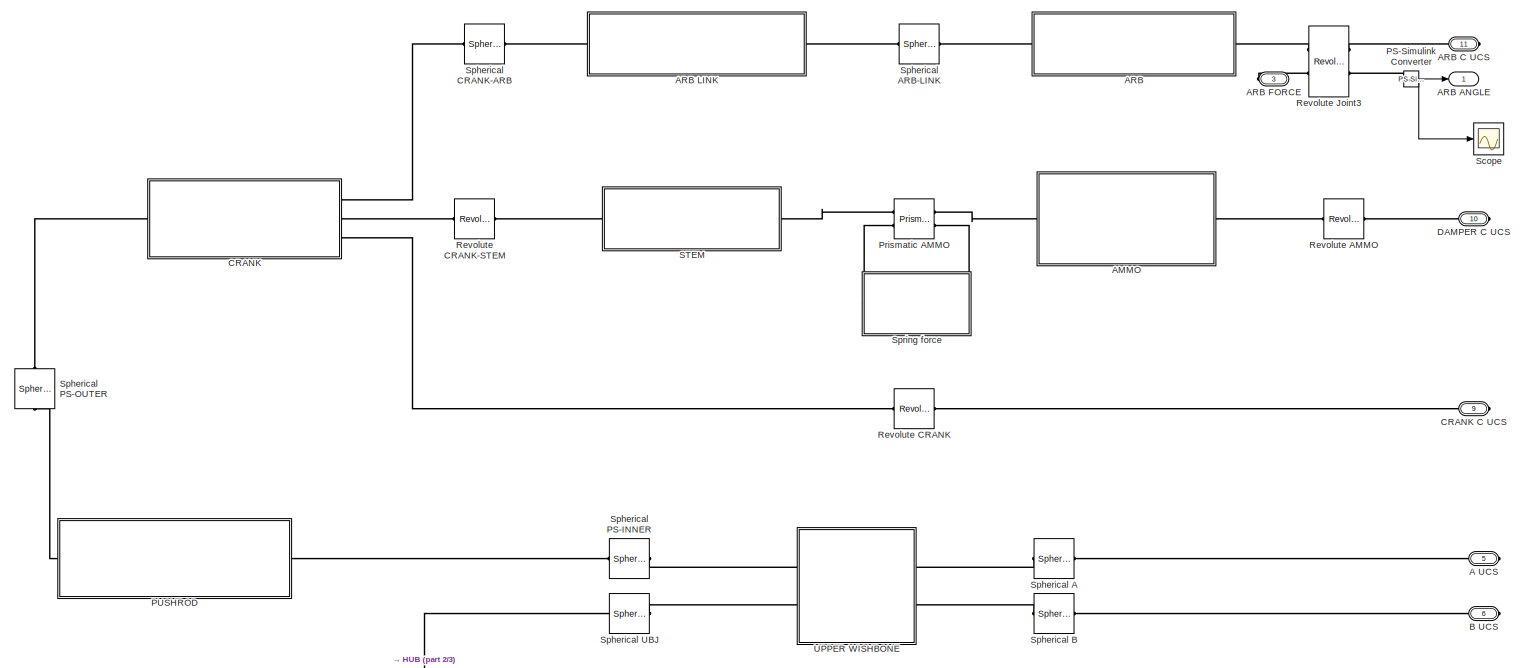
[diagram: FIXED CHASSIS/FR SUSPENSION - part 1/3, full width, top band]
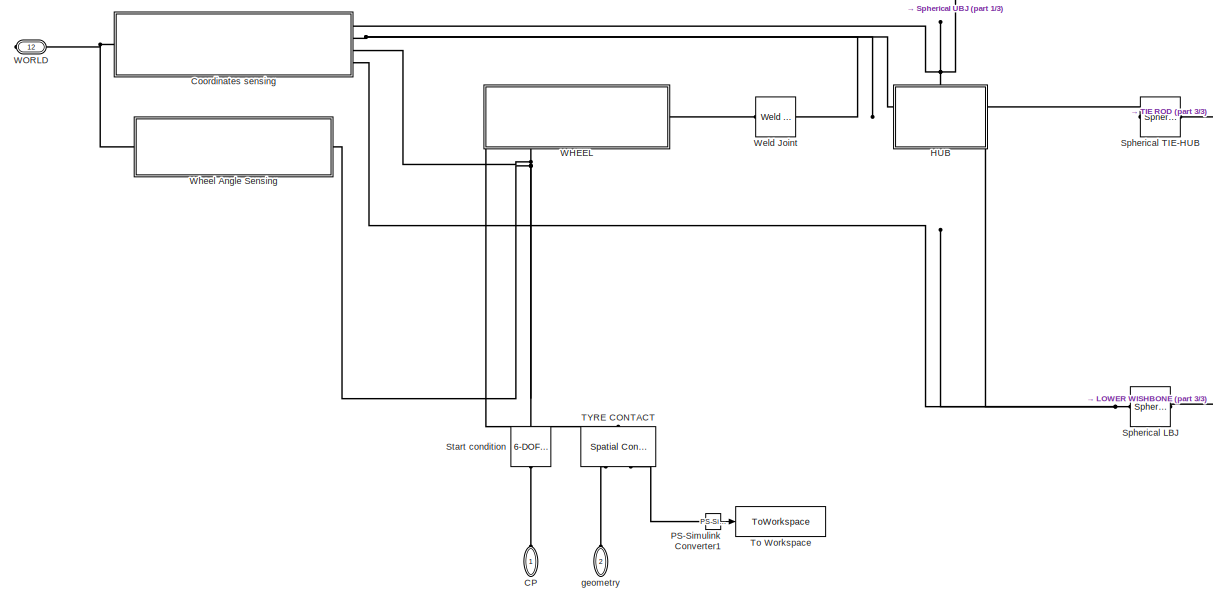
[diagram: FIXED CHASSIS/FR SUSPENSION - part 2/3, bottom left region]
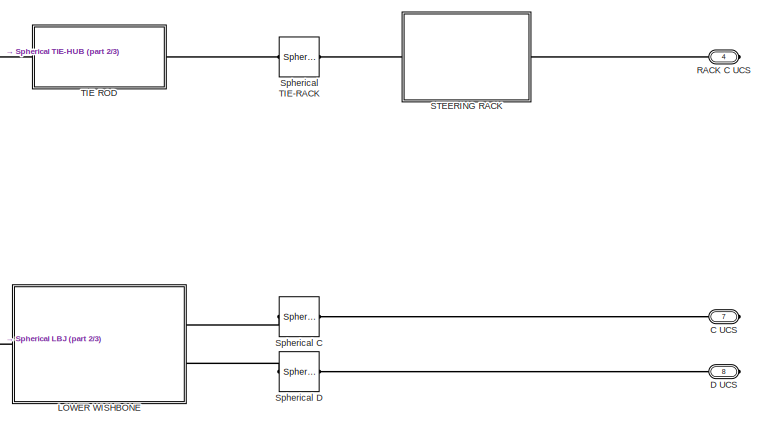
[diagram: FIXED CHASSIS/FR SUSPENSION - part 3/3, bottom right region]
BLOCK [SubSystem] FIXED CHASSIS/FR SUSPENSION
  Commented = on
  Ports = [0, 1, 0, 0, 0, 2, 10]
  RequestExecContextInheritance = off
BLOCK [PMIOPort] FIXED CHASSIS/FR SUSPENSION/A UCS
  Port = 5
  Side = Right
BLOCK [SubSystem] FIXED CHASSIS/FR SUSPENSION/AMMO
  Ports = [0, 0, 0, 0, 0, 1, 1]
  RequestExecContextInheritance = off
BLOCK [Reference] FIXED CHASSIS/FR SUSPENSION/AMMO/AMMO  REF=sm_lib/Body Elements/Revolved Solid
  Ports = [0, 0, 0, 0, 0, 1, 1]
  SourceBlock = sm_lib/Body Elements/Revolved Solid
  SourceProductBaseCode = MS
  SourceType = Revolved Solid
BLOCK [PMIOPort] FIXED CHASSIS/FR SUSPENSION/AMMO/AMMO TO STEM
  Side = Left
BLOCK [Reference] FIXED CHASSIS/FR SUSPENSION/AMMO/ATTACCO AMMO  REF=sm_lib/Body Elements/Extruded Solid
  Ports = [0, 0, 0, 0, 0, 1, 1]
  SourceBlock = sm_lib/Body Elements/Extruded Solid
  SourceProductBaseCode = MS
  SourceType = Extruded Solid
BLOCK [PMIOPort] FIXED CHASSIS/FR SUSPENSION/AMMO/WORLD
  Port = 2
  Side = Right
BLOCK [SubSystem] FIXED CHASSIS/FR SUSPENSION/ARB
  Ports = [0, 0, 0, 0, 0, 1, 1]
  RequestExecContextInheritance = off
BLOCK [Outport] FIXED CHASSIS/FR SUSPENSION/ARB ANGLE
BLOCK [PMIOPort] FIXED CHASSIS/FR SUSPENSION/ARB C UCS
  Port = 11
  Side = Right
BLOCK [PMIOPort] FIXED CHASSIS/FR SUSPENSION/ARB FORCE
  Port = 3
  Side = Right
BLOCK [SubSystem] FIXED CHASSIS/FR SUSPENSION/ARB LINK
  Ports = [0, 0, 0, 0, 0, 1, 1]
  RequestExecContextInheritance = off
BLOCK [PMIOPort] FIXED CHASSIS/FR SUSPENSION/ARB LINK/ARB
  Port = 2
  Side = Right
BLOCK [PMIOPort] FIXED CHASSIS/FR SUSPENSION/ARB LINK/CRANK
  Side = Left
BLOCK [Reference] FIXED CHASSIS/FR SUSPENSION/ARB LINK/Cylindrical Solid1  REF=sm_lib/Body Elements/Cylindrical Solid
  Ports = [0, 0, 0, 0, 0, 1, 1]
  SourceBlock = sm_lib/Body Elements/Cylindrical Solid
  SourceProductBaseCode = MS
  SourceType = Cylindrical Solid
BLOCK [Reference] FIXED CHASSIS/FR SUSPENSION/ARB LINK/Spherical Solid  REF=sm_lib/Body Elements/Spherical Solid
  NameLocation = right
  Ports = [0, 0, 0, 0, 0, 0, 1]
  SourceBlock = sm_lib/Body Elements/Spherical Solid
  SourceProductBaseCode = MS
  SourceType = Spherical Solid
BLOCK [Reference] FIXED CHASSIS/FR SUSPENSION/ARB LINK/Spherical Solid1  REF=sm_lib/Body Elements/Spherical Solid
  NameLocation = right
  Ports = [0, 0, 0, 0, 0, 0, 1]
  SourceBlock = sm_lib/Body Elements/Spherical Solid
  SourceProductBaseCode = MS
  SourceType = Spherical Solid
BLOCK [PMIOPort] FIXED CHASSIS/FR SUSPENSION/ARB/ARB LINK
  Side = Right
BLOCK [Reference] FIXED CHASSIS/FR SUSPENSION/ARB/Cylindrical Solid  REF=sm_lib/Body Elements/Cylindrical Solid
  Ports = [0, 0, 0, 0, 0, 1, 1]
  SourceBlock = sm_lib/Body Elements/Cylindrical Solid
  SourceProductBaseCode = MS
  SourceType = Cylindrical Solid
BLOCK [Reference] FIXED CHASSIS/FR SUSPENSION/ARB/Extruded Solid  REF=sm_lib/Body Elements/Extruded Solid
  Ports = [0, 0, 0, 0, 0, 1, 1]
  SourceBlock = sm_lib/Body Elements/Extruded Solid
  SourceProductBaseCode = MS
  SourceType = Extruded Solid
BLOCK [PMIOPort] FIXED CHASSIS/FR SUSPENSION/ARB/WORLD
  Port = 2
  Side = Left
BLOCK [PMIOPort] FIXED CHASSIS/FR SUSPENSION/B UCS
  Port = 6
  Side = Right
BLOCK [PMIOPort] FIXED CHASSIS/FR SUSPENSION/C UCS
  Port = 7
  Side = Right
BLOCK [PMIOPort] FIXED CHASSIS/FR SUSPENSION/CP
  Side = Left
BLOCK [SubSystem] FIXED CHASSIS/FR SUSPENSION/CRANK
  NameLocation = top
  Ports = [0, 0, 0, 0, 0, 1, 3]
  RequestExecContextInheritance = off
BLOCK [PMIOPort] FIXED CHASSIS/FR SUSPENSION/CRANK C UCS
  Port = 9
  Side = Right
BLOCK [PMIOPort] FIXED CHASSIS/FR SUSPENSION/CRANK/ARB
  Port = 2
  Side = Right
BLOCK [Reference] FIXED CHASSIS/FR SUSPENSION/CRANK/ARB UCS  REF=sm_lib/Frames and
Transforms/Rigid
Transform
  Ports = [0, 0, 0, 0, 0, 1, 1]
  SourceBlock = sm_lib/Frames and\nTransforms/Rigid\nTransform
  SourceProductBaseCode = MS
  SourceType = Rigid\nTransform
BLOCK [Reference] FIXED CHASSIS/FR SUSPENSION/CRANK/ARB sphere  REF=sm_lib/Body Elements/Spherical Solid
  NameLocation = left
  Ports = [0, 0, 0, 0, 0, 0, 1]
  SourceBlock = sm_lib/Body Elements/Spherical Solid
  SourceProductBaseCode = MS
  SourceType = Spherical Solid
BLOCK [PMIOPort] FIXED CHASSIS/FR SUSPENSION/CRANK/CENTER
  Port = 4
  Side = Right
BLOCK [Reference] FIXED CHASSIS/FR SUSPENSION/CRANK/CENTER UCS  REF=sm_lib/Frames and
Transforms/Rigid
Transform
  Ports = [0, 0, 0, 0, 0, 1, 1]
  SourceBlock = sm_lib/Frames and\nTransforms/Rigid\nTransform
  SourceProductBaseCode = MS
  SourceType = Rigid\nTransform
BLOCK [Reference] FIXED CHASSIS/FR SUSPENSION/CRANK/CENTER sphere  REF=sm_lib/Body Elements/Spherical Solid
  NameLocation = left
  Ports = [0, 0, 0, 0, 0, 0, 1]
  SourceBlock = sm_lib/Body Elements/Spherical Solid
  SourceProductBaseCode = MS
  SourceType = Spherical Solid
BLOCK [Reference] FIXED CHASSIS/FR SUSPENSION/CRANK/CRANK  REF=sm_lib/Body Elements/Extruded Solid
  Ports = [0, 0, 0, 0, 0, 0, 1]
  SourceBlock = sm_lib/Body Elements/Extruded Solid
  SourceProductBaseCode = MS
  SourceType = Extruded Solid
BLOCK [PMIOPort] FIXED CHASSIS/FR SUSPENSION/CRANK/PUSHROD
  Side = Left
BLOCK [Reference] FIXED CHASSIS/FR SUSPENSION/CRANK/PUSHROD UCS  REF=sm_lib/Frames and
Transforms/Rigid
Transform
  Ports = [0, 0, 0, 0, 0, 1, 1]
  SourceBlock = sm_lib/Frames and\nTransforms/Rigid\nTransform
  SourceProductBaseCode = MS
  SourceType = Rigid\nTransform
BLOCK [Reference] FIXED CHASSIS/FR SUSPENSION/CRANK/PUSHROD sphere  REF=sm_lib/Body Elements/Spherical Solid
  NameLocation = left
  Ports = [0, 0, 0, 0, 0, 0, 1]
  SourceBlock = sm_lib/Body Elements/Spherical Solid
  SourceProductBaseCode = MS
  SourceType = Spherical Solid
BLOCK [PMIOPort] FIXED CHASSIS/FR SUSPENSION/CRANK/STEM
  Port = 3
  Side = Right
BLOCK [Reference] FIXED CHASSIS/FR SUSPENSION/CRANK/STEM UCS  REF=sm_lib/Frames and
Transforms/Rigid
Transform
  Ports = [0, 0, 0, 0, 0, 1, 1]
  SourceBlock = sm_lib/Frames and\nTransforms/Rigid\nTransform
  SourceProductBaseCode = MS
  SourceType = Rigid\nTransform
BLOCK [Reference] FIXED CHASSIS/FR SUSPENSION/CRANK/STEM sphere  REF=sm_lib/Body Elements/Spherical Solid
  NameLocation = left
  Ports = [0, 0, 0, 0, 0, 0, 1]
  SourceBlock = sm_lib/Body Elements/Spherical Solid
  SourceProductBaseCode = MS
  SourceType = Spherical Solid
BLOCK [SubSystem] FIXED CHASSIS/FR SUSPENSION/Coordinates sensing
  Ports = [0, 0, 0, 0, 0, 1, 4]
  RequestExecContextInheritance = off
BLOCK [PMIOPort] FIXED CHASSIS/FR SUSPENSION/Coordinates sensing/CP
  Port = 4
  Side = Right
BLOCK [PMIOPort] FIXED CHASSIS/FR SUSPENSION/Coordinates sensing/LBJ
  Port = 5
  Side = Right
BLOCK [Reference] FIXED CHASSIS/FR SUSPENSION/Coordinates sensing/PS-Simulink Converter  REF=nesl_utility/PS-Simulink
Converter
  Ports = [0, 1, 0, 0, 0, 1]
  SourceBlock = nesl_utility/PS-Simulink\nConverter
  SourceProductBaseCode = SS
  SourceType = PS-Simulink\nConverter
BLOCK [Reference] FIXED CHASSIS/FR SUSPENSION/Coordinates sensing/PS-Simulink Converter1  REF=nesl_utility/PS-Simulink
Converter
  Ports = [0, 1, 0, 0, 0, 1]
  SourceBlock = nesl_utility/PS-Simulink\nConverter
  SourceProductBaseCode = SS
  SourceType = PS-Simulink\nConverter
BLOCK [Reference] FIXED CHASSIS/FR SUSPENSION/Coordinates sensing/PS-Simulink Converter2  REF=nesl_utility/PS-Simulink
Converter
  Ports = [0, 1, 0, 0, 0, 1]
  SourceBlock = nesl_utility/PS-Simulink\nConverter
  SourceProductBaseCode = SS
  SourceType = PS-Simulink\nConverter
BLOCK [Reference] FIXED CHASSIS/FR SUSPENSION/Coordinates sensing/PS-Simulink Converter3  REF=nesl_utility/PS-Simulink
Converter
  Ports = [0, 1, 0, 0, 0, 1]
  SourceBlock = nesl_utility/PS-Simulink\nConverter
  SourceProductBaseCode = SS
  SourceType = PS-Simulink\nConverter
BLOCK [Reference] FIXED CHASSIS/FR SUSPENSION/Coordinates sensing/PS-Simulink Converter4  REF=nesl_utility/PS-Simulink
Converter
  Ports = [0, 1, 0, 0, 0, 1]
  SourceBlock = nesl_utility/PS-Simulink\nConverter
  SourceProductBaseCode = SS
  SourceType = PS-Simulink\nConverter
BLOCK [Reference] FIXED CHASSIS/FR SUSPENSION/Coordinates sensing/PS-Simulink Converter5  REF=nesl_utility/PS-Simulink
Converter
  Ports = [0, 1, 0, 0, 0, 1]
  SourceBlock = nesl_utility/PS-Simulink\nConverter
  SourceProductBaseCode = SS
  SourceType = PS-Simulink\nConverter
BLOCK [Reference] FIXED CHASSIS/FR SUSPENSION/Coordinates sensing/PS-Simulink Converter6  REF=nesl_utility/PS-Simulink
Converter
  Ports = [0, 1, 0, 0, 0, 1]
  SourceBlock = nesl_utility/PS-Simulink\nConverter
  SourceProductBaseCode = SS
  SourceType = PS-Simulink\nConverter
BLOCK [Reference] FIXED CHASSIS/FR SUSPENSION/Coordinates sensing/PS-Simulink Converter7  REF=nesl_utility/PS-Simulink
Converter
  Ports = [0, 1, 0, 0, 0, 1]
  SourceBlock = nesl_utility/PS-Simulink\nConverter
  SourceProductBaseCode = SS
  SourceType = PS-Simulink\nConverter
BLOCK [Scope] FIXED CHASSIS/FR SUSPENSION/Coordinates sensing/Scope
  Floating = off
  NumInputPorts = 1
  Ports = [1]
BLOCK [Scope] FIXED CHASSIS/FR SUSPENSION/Coordinates sensing/Scope1
  Floating = off
  NumInputPorts = 1
  Ports = [1]
BLOCK [Scope] FIXED CHASSIS/FR SUSPENSION/Coordinates sensing/Scope2
  Floating = off
  NumInputPorts = 1
  Ports = [1]
BLOCK [Scope] FIXED CHASSIS/FR SUSPENSION/Coordinates sensing/Scope3
  Floating = off
  NumInputPorts = 1
  Ports = [1]
BLOCK [Scope] FIXED CHASSIS/FR SUSPENSION/Coordinates sensing/Scope4
  Floating = off
  NumInputPorts = 1
  Ports = [1]
BLOCK [Scope] FIXED CHASSIS/FR SUSPENSION/Coordinates sensing/Scope5
  Floating = off
  NumInputPorts = 1
  Ports = [1]
BLOCK [Scope] FIXED CHASSIS/FR SUSPENSION/Coordinates sensing/Scope6
  Floating = off
  NumInputPorts = 1
  Ports = [1]
BLOCK [Scope] FIXED CHASSIS/FR SUSPENSION/Coordinates sensing/Scope7
  Floating = off
  NumInputPorts = 1
  Ports = [1]
BLOCK [ToWorkspace] FIXED CHASSIS/FR SUSPENSION/Coordinates sensing/To Workspace1
  FixptAsFi = on
  MaxDataPoints = inf
  Ports = [1]
  SampleTime = -1
  SaveFormat = Timeseries
  VariableName = FR_UBJ_y
BLOCK [ToWorkspace] FIXED CHASSIS/FR SUSPENSION/Coordinates sensing/To Workspace2
  FixptAsFi = on
  MaxDataPoints = inf
  Ports = [1]
  SampleTime = -1
  SaveFormat = Timeseries
  VariableName = FR_LBJ_y
BLOCK [ToWorkspace] FIXED CHASSIS/FR SUSPENSION/Coordinates sensing/To Workspace3
  FixptAsFi = on
  MaxDataPoints = inf
  Ports = [1]
  SampleTime = -1
  SaveFormat = Timeseries
  VariableName = FR_CP_y
BLOCK [ToWorkspace] FIXED CHASSIS/FR SUSPENSION/Coordinates sensing/To Workspace4
  FixptAsFi = on
  MaxDataPoints = inf
  Ports = [1]
  SampleTime = -1
  SaveFormat = Timeseries
  VariableName = FR_UBJ_z
BLOCK [ToWorkspace] FIXED CHASSIS/FR SUSPENSION/Coordinates sensing/To Workspace5
  FixptAsFi = on
  MaxDataPoints = inf
  Ports = [1]
  SampleTime = -1
  SaveFormat = Timeseries
  VariableName = FR_LBJ_z
BLOCK [ToWorkspace] FIXED CHASSIS/FR SUSPENSION/Coordinates sensing/To Workspace6
  FixptAsFi = on
  MaxDataPoints = inf
  Ports = [1]
  SampleTime = -1
  SaveFormat = Timeseries
  VariableName = FR_WC_y
BLOCK [ToWorkspace] FIXED CHASSIS/FR SUSPENSION/Coordinates sensing/To Workspace7
  FixptAsFi = on
  MaxDataPoints = inf
  Ports = [1]
  SampleTime = -1
  SaveFormat = Timeseries
  VariableName = FR_WC_z
BLOCK [ToWorkspace] FIXED CHASSIS/FR SUSPENSION/Coordinates sensing/To Workspace8
  FixptAsFi = on
  MaxDataPoints = inf
  Ports = [1]
  SampleTime = -1
  SaveFormat = Timeseries
  VariableName = FR_CP_z
BLOCK [Reference] FIXED CHASSIS/FR SUSPENSION/Coordinates sensing/Transform Sensor  REF=sm_lib/Frames and
Transforms/Transform
Sensor
  Ports = [0, 0, 0, 0, 0, 1, 3]
  SourceBlock = sm_lib/Frames and\nTransforms/Transform\nSensor
  SourceProductBaseCode = MS
  SourceType = Transform\nSensor
BLOCK [Reference] FIXED CHASSIS/FR SUSPENSION/Coordinates sensing/Transform Sensor1  REF=sm_lib/Frames and
Transforms/Transform
Sensor
  Ports = [0, 0, 0, 0, 0, 1, 3]
  SourceBlock = sm_lib/Frames and\nTransforms/Transform\nSensor
  SourceProductBaseCode = MS
  SourceType = Transform\nSensor
BLOCK [Reference] FIXED CHASSIS/FR SUSPENSION/Coordinates sensing/Transform Sensor2  REF=sm_lib/Frames and
Transforms/Transform
Sensor
  Ports = [0, 0, 0, 0, 0, 1, 3]
  SourceBlock = sm_lib/Frames and\nTransforms/Transform\nSensor
  SourceProductBaseCode = MS
  SourceType = Transform\nSensor
BLOCK [Reference] FIXED CHASSIS/FR SUSPENSION/Coordinates sensing/Transform Sensor3  REF=sm_lib/Frames and
Transforms/Transform
Sensor
  Ports = [0, 0, 0, 0, 0, 1, 3]
  SourceBlock = sm_lib/Frames and\nTransforms/Transform\nSensor
  SourceProductBaseCode = MS
  SourceType = Transform\nSensor
BLOCK [PMIOPort] FIXED CHASSIS/FR SUSPENSION/Coordinates sensing/UBJ
  Port = 2
  Side = Right
BLOCK [PMIOPort] FIXED CHASSIS/FR SUSPENSION/Coordinates sensing/WC
  Port = 3
  Side = Right
BLOCK [PMIOPort] FIXED CHASSIS/FR SUSPENSION/Coordinates sensing/WORLD
  Side = Left
BLOCK [PMIOPort] FIXED CHASSIS/FR SUSPENSION/D UCS
  Port = 8
  Side = Right
BLOCK [PMIOPort] FIXED CHASSIS/FR SUSPENSION/DAMPER C UCS
  Port = 10
  Side = Right
BLOCK [SubSystem] FIXED CHASSIS/FR SUSPENSION/HUB
  NameLocation = top
  Ports = [0, 0, 0, 0, 0, 2, 2]
  RequestExecContextInheritance = off
BLOCK [Reference] FIXED CHASSIS/FR SUSPENSION/HUB/ LBJ-TIE  REF=sm_lib/Body Elements/Cylindrical Solid
  NameLocation = right
  Ports = [0, 0, 0, 0, 0, 1, 1]
  SourceBlock = sm_lib/Body Elements/Cylindrical Solid
  SourceProductBaseCode = MS
  SourceType = Cylindrical Solid
BLOCK [Reference] FIXED CHASSIS/FR SUSPENSION/HUB/ UBJ  REF=sm_lib/Body Elements/Spherical Solid
  Ports = [0, 0, 0, 0, 0, 0, 1]
  SourceBlock = sm_lib/Body Elements/Spherical Solid
  SourceProductBaseCode = MS
  SourceType = Spherical Solid
BLOCK [Reference] FIXED CHASSIS/FR SUSPENSION/HUB/CAMBER  REF=sm_lib/Frames and
Transforms/Rigid
Transform
  NameLocation = right
  Ports = [0, 0, 0, 0, 0, 1, 1]
  SourceBlock = sm_lib/Frames and\nTransforms/Rigid\nTransform
  SourceProductBaseCode = MS
  SourceType = Rigid\nTransform
BLOCK [Reference] FIXED CHASSIS/FR SUSPENSION/HUB/LBJ  REF=sm_lib/Body Elements/Spherical Solid
  Ports = [0, 0, 0, 0, 0, 0, 1]
  SourceBlock = sm_lib/Body Elements/Spherical Solid
  SourceProductBaseCode = MS
  SourceType = Spherical Solid
BLOCK [PMIOPort] FIXED CHASSIS/FR SUSPENSION/HUB/LBJ 
  Port = 4
  Side = Right
BLOCK [Reference] FIXED CHASSIS/FR SUSPENSION/HUB/Rigid Transform  REF=sm_lib/Frames and
Transforms/Rigid
Transform
  NameLocation = left
  Ports = [0, 0, 0, 0, 0, 1, 1]
  SourceBlock = sm_lib/Frames and\nTransforms/Rigid\nTransform
  SourceProductBaseCode = MS
  SourceType = Rigid\nTransform
BLOCK [Reference] FIXED CHASSIS/FR SUSPENSION/HUB/Rigid Transform1  REF=sm_lib/Frames and
Transforms/Rigid
Transform
  NameLocation = left
  Ports = [0, 0, 0, 0, 0, 1, 1]
  SourceBlock = sm_lib/Frames and\nTransforms/Rigid\nTransform
  SourceProductBaseCode = MS
  SourceType = Rigid\nTransform
BLOCK [PMIOPort] FIXED CHASSIS/FR SUSPENSION/HUB/TIE
  NameLocation = left
  Port = 3
  Side = Right
BLOCK [Reference] FIXED CHASSIS/FR SUSPENSION/HUB/TOE  REF=sm_lib/Frames and
Transforms/Rigid
Transform
  NameLocation = right
  Ports = [0, 0, 0, 0, 0, 1, 1]
  SourceBlock = sm_lib/Frames and\nTransforms/Rigid\nTransform
  SourceProductBaseCode = MS
  SourceType = Rigid\nTransform
BLOCK [PMIOPort] FIXED CHASSIS/FR SUSPENSION/HUB/UBJ
  Port = 2
  Side = Left
BLOCK [Reference] FIXED CHASSIS/FR SUSPENSION/HUB/UBJ_LBJ  REF=sm_lib/Body Elements/Cylindrical Solid
  NameLocation = right
  Ports = [0, 0, 0, 0, 0, 1, 1]
  SourceBlock = sm_lib/Body Elements/Cylindrical Solid
  SourceProductBaseCode = MS
  SourceType = Cylindrical Solid
BLOCK [PMIOPort] FIXED CHASSIS/FR SUSPENSION/HUB/WC 
  NameLocation = left
  Side = Left
BLOCK [SubSystem] FIXED CHASSIS/FR SUSPENSION/LOWER WISHBONE
  NameLocation = top
  Ports = [0, 0, 0, 0, 0, 2, 1]
  RequestExecContextInheritance = off
BLOCK [Reference] FIXED CHASSIS/FR SUSPENSION/LOWER WISHBONE/C  REF=sm_lib/Body Elements/Spherical Solid
  NameLocation = right
  Ports = [0, 0, 0, 0, 0, 0, 1]
  SourceBlock = sm_lib/Body Elements/Spherical Solid
  SourceProductBaseCode = MS
  SourceType = Spherical Solid
BLOCK [PMIOPort] FIXED CHASSIS/FR SUSPENSION/LOWER WISHBONE/C UCS
  Side = Left
BLOCK [Reference] FIXED CHASSIS/FR SUSPENSION/LOWER WISHBONE/C-D  REF=sm_lib/Frames and
Transforms/Rigid
Transform
  Ports = [0, 0, 0, 0, 0, 1, 1]
  SourceBlock = sm_lib/Frames and\nTransforms/Rigid\nTransform
  SourceProductBaseCode = MS
  SourceType = Rigid\nTransform
BLOCK [Reference] FIXED CHASSIS/FR SUSPENSION/LOWER WISHBONE/D  REF=sm_lib/Body Elements/Spherical Solid
  NameLocation = right
  Ports = [0, 0, 0, 0, 0, 0, 1]
  SourceBlock = sm_lib/Body Elements/Spherical Solid
  SourceProductBaseCode = MS
  SourceType = Spherical Solid
BLOCK [PMIOPort] FIXED CHASSIS/FR SUSPENSION/LOWER WISHBONE/D UCS
  Port = 2
  Side = Left
BLOCK [Reference] FIXED CHASSIS/FR SUSPENSION/LOWER WISHBONE/INNER CYL  REF=sm_lib/Body Elements/Cylindrical Solid
  NameLocation = right
  Ports = [0, 0, 0, 0, 0, 1, 1]
  SourceBlock = sm_lib/Body Elements/Cylindrical Solid
  SourceProductBaseCode = MS
  SourceType = Cylindrical Solid
BLOCK [Reference] FIXED CHASSIS/FR SUSPENSION/LOWER WISHBONE/LBJ  REF=sm_lib/Body Elements/Spherical Solid
  Ports = [0, 0, 0, 0, 0, 0, 1]
  SourceBlock = sm_lib/Body Elements/Spherical Solid
  SourceProductBaseCode = MS
  SourceType = Spherical Solid
BLOCK [PMIOPort] FIXED CHASSIS/FR SUSPENSION/LOWER WISHBONE/LBJ UCS
  NameLocation = right
  Port = 3
  Side = Right
BLOCK [Reference] FIXED CHASSIS/FR SUSPENSION/LOWER WISHBONE/OUTER CYL  REF=sm_lib/Body Elements/Cylindrical Solid
  NameLocation = right
  Ports = [0, 0, 0, 0, 0, 1, 1]
  SourceBlock = sm_lib/Body Elements/Cylindrical Solid
  SourceProductBaseCode = MS
  SourceType = Cylindrical Solid
BLOCK [Reference] FIXED CHASSIS/FR SUSPENSION/PS-Simulink Converter  REF=nesl_utility/PS-Simulink
Converter
  Ports = [0, 1, 0, 0, 0, 1]
  SourceBlock = nesl_utility/PS-Simulink\nConverter
  SourceProductBaseCode = SS
  SourceType = PS-Simulink\nConverter
BLOCK [Reference] FIXED CHASSIS/FR SUSPENSION/PS-Simulink Converter1  REF=nesl_utility/PS-Simulink
Converter
  Ports = [0, 1, 0, 0, 0, 1]
  SourceBlock = nesl_utility/PS-Simulink\nConverter
  SourceProductBaseCode = SS
  SourceType = PS-Simulink\nConverter
BLOCK [SubSystem] FIXED CHASSIS/FR SUSPENSION/PUSHROD
  Ports = [0, 0, 0, 0, 0, 1, 1]
  RequestExecContextInheritance = off
BLOCK [PMIOPort] FIXED CHASSIS/FR SUSPENSION/PUSHROD/CRANK
  Side = Left
BLOCK [Reference] FIXED CHASSIS/FR SUSPENSION/PUSHROD/Cylindrical Solid  REF=sm_lib/Body Elements/Cylindrical Solid
  Ports = [0, 0, 0, 0, 0, 1, 1]
  SourceBlock = sm_lib/Body Elements/Cylindrical Solid
  SourceProductBaseCode = MS
  SourceType = Cylindrical Solid
BLOCK [Reference] FIXED CHASSIS/FR SUSPENSION/PUSHROD/Spherical Solid  REF=sm_lib/Body Elements/Spherical Solid
  NameLocation = top
  Ports = [0, 0, 0, 0, 0, 0, 1]
  SourceBlock = sm_lib/Body Elements/Spherical Solid
  SourceProductBaseCode = MS
  SourceType = Spherical Solid
BLOCK [Reference] FIXED CHASSIS/FR SUSPENSION/PUSHROD/Spherical Solid1  REF=sm_lib/Body Elements/Spherical Solid
  NameLocation = top
  Ports = [0, 0, 0, 0, 0, 0, 1]
  SourceBlock = sm_lib/Body Elements/Spherical Solid
  SourceProductBaseCode = MS
  SourceType = Spherical Solid
BLOCK [PMIOPort] FIXED CHASSIS/FR SUSPENSION/PUSHROD/UPPER WISHBONE
  Port = 2
  Side = Right
BLOCK [Reference] FIXED CHASSIS/FR SUSPENSION/Prismatic AMMO  REF=sm_lib/Joints/Prismatic
Joint
  Ports = [0, 0, 0, 0, 0, 2, 2]
  SourceBlock = sm_lib/Joints/Prismatic\nJoint
  SourceProductBaseCode = MS
  SourceType = Prismatic\nJoint
BLOCK [PMIOPort] FIXED CHASSIS/FR SUSPENSION/RACK C UCS
  Port = 4
  Side = Right
BLOCK [Reference] FIXED CHASSIS/FR SUSPENSION/Revolute AMMO  REF=sm_lib/Joints/Revolute Joint
  Ports = [0, 0, 0, 0, 0, 1, 1]
  SourceBlock = sm_lib/Joints/Revolute Joint
  SourceProductBaseCode = MS
  SourceType = Revolute Joint
BLOCK [Reference] FIXED CHASSIS/FR SUSPENSION/Revolute CRANK  REF=sm_lib/Joints/Revolute Joint
  Ports = [0, 0, 0, 0, 0, 1, 1]
  SourceBlock = sm_lib/Joints/Revolute Joint
  SourceProductBaseCode = MS
  SourceType = Revolute Joint
BLOCK [Reference] FIXED CHASSIS/FR SUSPENSION/Revolute CRANK-STEM  REF=sm_lib/Joints/Revolute Joint
  Ports = [0, 0, 0, 0, 0, 1, 1]
  SourceBlock = sm_lib/Joints/Revolute Joint
  SourceProductBaseCode = MS
  SourceType = Revolute Joint
BLOCK [Reference] FIXED CHASSIS/FR SUSPENSION/Revolute Joint3  REF=sm_lib/Joints/Revolute Joint
  Ports = [0, 0, 0, 0, 0, 2, 2]
  SourceBlock = sm_lib/Joints/Revolute Joint
  SourceProductBaseCode = MS
  SourceType = Revolute Joint
BLOCK [SubSystem] FIXED CHASSIS/FR SUSPENSION/STEERING RACK
  NameLocation = top
  Ports = [0, 0, 0, 0, 0, 1, 1]
  RequestExecContextInheritance = off
BLOCK [Reference] FIXED CHASSIS/FR SUSPENSION/STEERING RACK/Cylindrical Solid  REF=sm_lib/Body Elements/Cylindrical Solid
  Ports = [0, 0, 0, 0, 0, 1, 1]
  SourceBlock = sm_lib/Body Elements/Cylindrical Solid
  SourceProductBaseCode = MS
  SourceType = Cylindrical Solid
BLOCK [PMIOPort] FIXED CHASSIS/FR SUSPENSION/STEERING RACK/RACK C UCS
  Side = Left
BLOCK [PMIOPort] FIXED CHASSIS/FR SUSPENSION/STEERING RACK/RACK TIE
  Port = 2
  Side = Right
BLOCK [SubSystem] FIXED CHASSIS/FR SUSPENSION/STEM
  Ports = [0, 0, 0, 0, 0, 1, 1]
  RequestExecContextInheritance = off
BLOCK [Reference] FIXED CHASSIS/FR SUSPENSION/STEM/ATTACCO STEM  REF=sm_lib/Body Elements/Extruded Solid
  Ports = [0, 0, 0, 0, 0, 1, 1]
  SourceBlock = sm_lib/Body Elements/Extruded Solid
  SourceProductBaseCode = MS
  SourceType = Extruded Solid
BLOCK [Reference] FIXED CHASSIS/FR SUSPENSION/STEM/STEM  REF=sm_lib/Body Elements/Revolved Solid
  Ports = [0, 0, 0, 0, 0, 1, 1]
  SourceBlock = sm_lib/Body Elements/Revolved Solid
  SourceProductBaseCode = MS
  SourceType = Revolved Solid
BLOCK [PMIOPort] FIXED CHASSIS/FR SUSPENSION/STEM/STEM TO AMMO
  Port = 2
  Side = Right
BLOCK [PMIOPort] FIXED CHASSIS/FR SUSPENSION/STEM/STEM TO CRANK
  Side = Left
BLOCK [Scope] FIXED CHASSIS/FR SUSPENSION/Scope
  Floating = off
  NumInputPorts = 1
  Ports = [1]
  ScopeSpecificationString = Simulink.scopes.TimeScopeBlockCfg('CurrentConfiguration', extmgr.ConfigurationSet(extmgr.Configuration('Core','General UI',true),extmgr.Configuration('Core','Source UI',true),extmgr.Configuration('Sources','WiredSimulink',true,'DataLoggingVariableName','ScopeData1'),extmgr.Configuration('Visuals','Time Domain',true,'SerializedDisplays',{struct('MinYLimReal','-0.31668','MaxYLimReal','0.31411','YLab...<+1405ch>
BLOCK [Reference] FIXED CHASSIS/FR SUSPENSION/Spherical A  REF=sm_lib/Joints/Spherical
Joint
  NameLocation = top
  Ports = [0, 0, 0, 0, 0, 1, 1]
  SourceBlock = sm_lib/Joints/Spherical\nJoint
  SourceProductBaseCode = MS
  SourceType = Spherical\nJoint
BLOCK [Reference] FIXED CHASSIS/FR SUSPENSION/Spherical ARB-LINK  REF=sm_lib/Joints/Spherical
Joint
  Ports = [0, 0, 0, 0, 0, 1, 1]
  SourceBlock = sm_lib/Joints/Spherical\nJoint
  SourceProductBaseCode = MS
  SourceType = Spherical\nJoint
BLOCK [Reference] FIXED CHASSIS/FR SUSPENSION/Spherical B  REF=sm_lib/Joints/Spherical
Joint
  Ports = [0, 0, 0, 0, 0, 1, 1]
  SourceBlock = sm_lib/Joints/Spherical\nJoint
  SourceProductBaseCode = MS
  SourceType = Spherical\nJoint
BLOCK [Reference] FIXED CHASSIS/FR SUSPENSION/Spherical C  REF=sm_lib/Joints/Spherical
Joint
  NameLocation = top
  Ports = [0, 0, 0, 0, 0, 1, 1]
  SourceBlock = sm_lib/Joints/Spherical\nJoint
  SourceProductBaseCode = MS
  SourceType = Spherical\nJoint
BLOCK [Reference] FIXED CHASSIS/FR SUSPENSION/Spherical CRANK-ARB  REF=sm_lib/Joints/Spherical
Joint
  Ports = [0, 0, 0, 0, 0, 1, 1]
  SourceBlock = sm_lib/Joints/Spherical\nJoint
  SourceProductBaseCode = MS
  SourceType = Spherical\nJoint
BLOCK [Reference] FIXED CHASSIS/FR SUSPENSION/Spherical D  REF=sm_lib/Joints/Spherical
Joint
  Ports = [0, 0, 0, 0, 0, 1, 1]
  SourceBlock = sm_lib/Joints/Spherical\nJoint
  SourceProductBaseCode = MS
  SourceType = Spherical\nJoint
BLOCK [Reference] FIXED CHASSIS/FR SUSPENSION/Spherical LBJ  REF=sm_lib/Joints/Spherical
Joint
  Ports = [0, 0, 0, 0, 0, 1, 1]
  SourceBlock = sm_lib/Joints/Spherical\nJoint
  SourceProductBaseCode = MS
  SourceType = Spherical\nJoint
BLOCK [Reference] FIXED CHASSIS/FR SUSPENSION/Spherical PS-INNER  REF=sm_lib/Joints/Spherical
Joint
  NameLocation = top
  Ports = [0, 0, 0, 0, 0, 1, 1]
  SourceBlock = sm_lib/Joints/Spherical\nJoint
  SourceProductBaseCode = MS
  SourceType = Spherical\nJoint
BLOCK [Reference] FIXED CHASSIS/FR SUSPENSION/Spherical PS-OUTER  REF=sm_lib/Joints/Spherical
Joint
  NameLocation = left
  Ports = [0, 0, 0, 0, 0, 1, 1]
  SourceBlock = sm_lib/Joints/Spherical\nJoint
  SourceProductBaseCode = MS
  SourceType = Spherical\nJoint
BLOCK [Reference] FIXED CHASSIS/FR SUSPENSION/Spherical TIE-HUB  REF=sm_lib/Joints/Spherical
Joint
  Ports = [0, 0, 0, 0, 0, 1, 1]
  SourceBlock = sm_lib/Joints/Spherical\nJoint
  SourceProductBaseCode = MS
  SourceType = Spherical\nJoint
BLOCK [Reference] FIXED CHASSIS/FR SUSPENSION/Spherical TIE-RACK  REF=sm_lib/Joints/Spherical
Joint
  Ports = [0, 0, 0, 0, 0, 1, 1]
  SourceBlock = sm_lib/Joints/Spherical\nJoint
  SourceProductBaseCode = MS
  SourceType = Spherical\nJoint
BLOCK [Reference] FIXED CHASSIS/FR SUSPENSION/Spherical UBJ  REF=sm_lib/Joints/Spherical
Joint
  Ports = [0, 0, 0, 0, 0, 1, 1]
  SourceBlock = sm_lib/Joints/Spherical\nJoint
  SourceProductBaseCode = MS
  SourceType = Spherical\nJoint
BLOCK [SubSystem] FIXED CHASSIS/FR SUSPENSION/Spring force
  Ports = [0, 0, 0, 0, 0, 1, 1]
  RequestExecContextInheritance = off
BLOCK [PMIOPort] FIXED CHASSIS/FR SUSPENSION/Spring force/Ammo Pos
  Side = Left
BLOCK [Constant] FIXED CHASSIS/FR SUSPENSION/Spring force/Constant
  Value = Smi.Car.FRONT.elastic.ammo_static_force
BLOCK [Constant] FIXED CHASSIS/FR SUSPENSION/Spring force/Constant1
  Value = Smi.Car.FRONT.elastic.ammo_equilibrium_position
BLOCK [Constant] FIXED CHASSIS/FR SUSPENSION/Spring force/Constant3
  Value = Smi.Car.FRONT.elastic.ammo_static_force
BLOCK [Derivative] FIXED CHASSIS/FR SUSPENSION/Spring force/Derivative
BLOCK [Derivative] FIXED CHASSIS/FR SUSPENSION/Spring force/Derivative1
BLOCK [PMIOPort] FIXED CHASSIS/FR SUSPENSION/Spring force/Force
  Port = 2
  Side = Right
BLOCK [Gain] FIXED CHASSIS/FR SUSPENSION/Spring force/Gain
  Gain = Smi.Car.FRONT.elastic.ammo_spring_stiffness/1000
BLOCK [Gain] FIXED CHASSIS/FR SUSPENSION/Spring force/Gain1
  Gain = -1
BLOCK [Reference] FIXED CHASSIS/FR SUSPENSION/Spring force/PS-Simulink Converter3  REF=nesl_utility/PS-Simulink
Converter
  NameLocation = left
  Ports = [0, 1, 0, 0, 0, 1]
  SourceBlock = nesl_utility/PS-Simulink\nConverter
  SourceProductBaseCode = SS
  SourceType = PS-Simulink\nConverter
BLOCK [Reference] FIXED CHASSIS/FR SUSPENSION/Spring force/Simulink-PS Converter  REF=nesl_utility/Simulink-PS
Converter
  Ports = [3, 0, 0, 0, 0, 0, 1]
  SourceBlock = nesl_utility/Simulink-PS\nConverter
  SourceProductBaseCode = SS
  SourceType = Simulink-PS\nConverter
BLOCK [Sum] FIXED CHASSIS/FR SUSPENSION/Spring force/Sum
  Inputs = |-+
  Ports = [2, 1]
BLOCK [Sum] FIXED CHASSIS/FR SUSPENSION/Spring force/Sum1
  NameLocation = left
  Ports = [2, 1]
BLOCK [Switch] FIXED CHASSIS/FR SUSPENSION/Spring force/Switch
  Criteria = u2 > Threshold
  InputSameDT = off
  SaturateOnIntegerOverflow = off
BLOCK [Reference] FIXED CHASSIS/FR SUSPENSION/Start condition  REF=sm_lib/Joints/6-DOF Joint
  NameLocation = left
  Ports = [0, 0, 0, 0, 0, 1, 1]
  SourceBlock = sm_lib/Joints/6-DOF Joint
  SourceProductBaseCode = MS
  SourceType = 6-DOF Joint
BLOCK [SubSystem] FIXED CHASSIS/FR SUSPENSION/TIE ROD
  Ports = [0, 0, 0, 0, 0, 1, 1]
  RequestExecContextInheritance = off
BLOCK [Reference] FIXED CHASSIS/FR SUSPENSION/TIE ROD/Cylindrical Solid  REF=sm_lib/Body Elements/Cylindrical Solid
  Ports = [0, 0, 0, 0, 0, 1, 1]
  SourceBlock = sm_lib/Body Elements/Cylindrical Solid
  SourceProductBaseCode = MS
  SourceType = Cylindrical Solid
BLOCK [Reference] FIXED CHASSIS/FR SUSPENSION/TIE ROD/Spherical Solid  REF=sm_lib/Body Elements/Spherical Solid
  NameLocation = top
  Ports = [0, 0, 0, 0, 0, 0, 1]
  SourceBlock = sm_lib/Body Elements/Spherical Solid
  SourceProductBaseCode = MS
  SourceType = Spherical Solid
BLOCK [Reference] FIXED CHASSIS/FR SUSPENSION/TIE ROD/Spherical Solid1  REF=sm_lib/Body Elements/Spherical Solid
  NameLocation = top
  Ports = [0, 0, 0, 0, 0, 0, 1]
  SourceBlock = sm_lib/Body Elements/Spherical Solid
  SourceProductBaseCode = MS
  SourceType = Spherical Solid
BLOCK [PMIOPort] FIXED CHASSIS/FR SUSPENSION/TIE ROD/TIE HUB
  Side = Left
BLOCK [PMIOPort] FIXED CHASSIS/FR SUSPENSION/TIE ROD/TIE RACK
  Port = 2
  Side = Right
BLOCK [Reference] FIXED CHASSIS/FR SUSPENSION/TYRE CONTACT  REF=sm_lib/Forces and
Torques/Spatial
Contact Force
  NameLocation = right
  Ports = [0, 0, 0, 0, 0, 1, 2]
  SourceBlock = sm_lib/Forces and\nTorques/Spatial\nContact Force
  SourceProductBaseCode = MS
  SourceType = Spatial\nContact Force
BLOCK [ToWorkspace] FIXED CHASSIS/FR SUSPENSION/To Workspace
  FixptAsFi = on
  MaxDataPoints = inf
  Ports = [1]
  SampleTime = -1
  SaveFormat = Timeseries
  VariableName = FR_WHEEL_LOAD
BLOCK [SubSystem] FIXED CHASSIS/FR SUSPENSION/UPPER WISHBONE
  NameLocation = top
  Ports = [0, 0, 0, 0, 0, 2, 2]
  RequestExecContextInheritance = off
BLOCK [Reference] FIXED CHASSIS/FR SUSPENSION/UPPER WISHBONE/A  REF=sm_lib/Body Elements/Spherical Solid
  NameLocation = right
  Ports = [0, 0, 0, 0, 0, 0, 1]
  SourceBlock = sm_lib/Body Elements/Spherical Solid
  SourceProductBaseCode = MS
  SourceType = Spherical Solid
BLOCK [PMIOPort] FIXED CHASSIS/FR SUSPENSION/UPPER WISHBONE/A UCS
  Side = Left
BLOCK [Reference] FIXED CHASSIS/FR SUSPENSION/UPPER WISHBONE/AAAAAA  REF=sm_lib/Frames and
Transforms/Rigid
Transform
  Ports = [0, 0, 0, 0, 0, 1, 1]
  SourceBlock = sm_lib/Frames and\nTransforms/Rigid\nTransform
  SourceProductName = Multibody
  SourceType = Rigid\nTransform
BLOCK [Reference] FIXED CHASSIS/FR SUSPENSION/UPPER WISHBONE/A_B  REF=sm_lib/Frames and
Transforms/Rigid
Transform
  Ports = [0, 0, 0, 0, 0, 1, 1]
  SourceBlock = sm_lib/Frames and\nTransforms/Rigid\nTransform
  SourceProductName = Multibody
  SourceType = Rigid\nTransform
BLOCK [Reference] FIXED CHASSIS/FR SUSPENSION/UPPER WISHBONE/B  REF=sm_lib/Body Elements/Spherical Solid
  NameLocation = right
  Ports = [0, 0, 0, 0, 0, 0, 1]
  SourceBlock = sm_lib/Body Elements/Spherical Solid
  SourceProductBaseCode = MS
  SourceType = Spherical Solid
BLOCK [PMIOPort] FIXED CHASSIS/FR SUSPENSION/UPPER WISHBONE/B UCS
  Port = 2
  Side = Left
BLOCK [Reference] FIXED CHASSIS/FR SUSPENSION/UPPER WISHBONE/B1  REF=sm_lib/Body Elements/Spherical Solid
  NameLocation = left
  Ports = [0, 0, 0, 0, 0, 0, 1]
  SourceBlock = sm_lib/Body Elements/Spherical Solid
  SourceProductBaseCode = MS
  SourceType = Spherical Solid
BLOCK [Reference] FIXED CHASSIS/FR SUSPENSION/UPPER WISHBONE/INNER CYL  REF=sm_lib/Body Elements/Cylindrical Solid
  NameLocation = right
  Ports = [0, 0, 0, 0, 0, 1, 1]
  SourceBlock = sm_lib/Body Elements/Cylindrical Solid
  SourceProductBaseCode = MS
  SourceType = Cylindrical Solid
BLOCK [Reference] FIXED CHASSIS/FR SUSPENSION/UPPER WISHBONE/OUTER CYL  REF=sm_lib/Body Elements/Cylindrical Solid
  NameLocation = right
  Ports = [0, 0, 0, 0, 0, 1, 1]
  SourceBlock = sm_lib/Body Elements/Cylindrical Solid
  SourceProductBaseCode = MS
  SourceType = Cylindrical Solid
BLOCK [PMIOPort] FIXED CHASSIS/FR SUSPENSION/UPPER WISHBONE/PUSHROD UCS
  NameLocation = top
  Port = 3
  Side = Right
BLOCK [PMIOPort] FIXED CHASSIS/FR SUSPENSION/UPPER WISHBONE/UBJ UCS
  NameLocation = right
  Port = 4
  Side = Right
BLOCK [SubSystem] FIXED CHASSIS/FR SUSPENSION/WHEEL
  NameLocation = top
  Ports = [0, 0, 0, 0, 0, 1, 2]
  RequestExecContextInheritance = off
BLOCK [PMIOPort] FIXED CHASSIS/FR SUSPENSION/WHEEL/CP REAL
  Port = 3
  Side = Right
BLOCK [PMIOPort] FIXED CHASSIS/FR SUSPENSION/WHEEL/Contact Sphere
  NameLocation = top
  Port = 2
  Side = Right
BLOCK [Reference] FIXED CHASSIS/FR SUSPENSION/WHEEL/Revolved Solid  REF=sm_lib/Body Elements/Revolved Solid
  Commented = on
  Ports = [0, 0, 0, 0, 0, 1]
  SourceBlock = sm_lib/Body Elements/Revolved Solid
  SourceProductBaseCode = MS
  SourceType = Revolved Solid
BLOCK [Reference] FIXED CHASSIS/FR SUSPENSION/WHEEL/Rigid Transform  REF=sm_lib/Frames and
Transforms/Rigid
Transform
  Ports = [0, 0, 0, 0, 0, 1, 1]
  SourceBlock = sm_lib/Frames and\nTransforms/Rigid\nTransform
  SourceProductBaseCode = MS
  SourceType = Rigid\nTransform
BLOCK [Reference] FIXED CHASSIS/FR SUSPENSION/WHEEL/Spherical Solid  REF=sm_lib/Body Elements/Spherical Solid
  Commented = on
  NameLocation = top
  Ports = [0, 0, 0, 0, 0, 1, 1]
  SourceBlock = sm_lib/Body Elements/Spherical Solid
  SourceProductBaseCode = MS
  SourceType = Spherical Solid
BLOCK [Reference] FIXED CHASSIS/FR SUSPENSION/WHEEL/TIRE  REF=sm_lib/Body Elements/File Solid
  Ports = [0, 0, 0, 0, 0, 1, 1]
  SourceBlock = sm_lib/Body Elements/File Solid
  SourceProductBaseCode = MS
  SourceType = File Solid
BLOCK [PMIOPort] FIXED CHASSIS/FR SUSPENSION/WHEEL/WC
  Side = Left
BLOCK [PMIOPort] FIXED CHASSIS/FR SUSPENSION/WORLD
  Port = 12
  Side = Right
BLOCK [Reference] FIXED CHASSIS/FR SUSPENSION/Weld Joint  REF=sm_lib/Joints/Weld Joint
  Ports = [0, 0, 0, 0, 0, 1, 1]
  SourceBlock = sm_lib/Joints/Weld Joint
  SourceProductBaseCode = MS
  SourceType = Weld Joint
BLOCK [SubSystem] FIXED CHASSIS/FR SUSPENSION/Wheel Angle Sensing
  Ports = [0, 0, 0, 0, 0, 1, 1]
  RequestExecContextInheritance = off
BLOCK [Gain] FIXED CHASSIS/FR SUSPENSION/Wheel Angle Sensing/Gain1
  Gain = -1
BLOCK [Reference] FIXED CHASSIS/FR SUSPENSION/Wheel Angle Sensing/PS-Simulink Converter  REF=nesl_utility/PS-Simulink
Converter
  Ports = [0, 1, 0, 0, 0, 1]
  SourceBlock = nesl_utility/PS-Simulink\nConverter
  SourceProductBaseCode = SS
  SourceType = PS-Simulink\nConverter
BLOCK [Reference] FIXED CHASSIS/FR SUSPENSION/Wheel Angle Sensing/PS-Simulink Converter1  REF=nesl_utility/PS-Simulink
Converter
  Ports = [0, 1, 0, 0, 0, 1]
  SourceBlock = nesl_utility/PS-Simulink\nConverter
  SourceProductBaseCode = SS
  SourceType = PS-Simulink\nConverter
BLOCK [Reference] FIXED CHASSIS/FR SUSPENSION/Wheel Angle Sensing/PS-Simulink Converter2  REF=nesl_utility/PS-Simulink
Converter
  Ports = [0, 1, 0, 0, 0, 1]
  SourceBlock = nesl_utility/PS-Simulink\nConverter
  SourceProductBaseCode = SS
  SourceType = PS-Simulink\nConverter
BLOCK [Reference] FIXED CHASSIS/FR SUSPENSION/Wheel Angle Sensing/PS-Simulink Converter3  REF=nesl_utility/PS-Simulink
Converter
  Ports = [0, 1, 0, 0, 0, 1]
  SourceBlock = nesl_utility/PS-Simulink\nConverter
  SourceProductBaseCode = SS
  SourceType = PS-Simulink\nConverter
BLOCK [Product] FIXED CHASSIS/FR SUSPENSION/Wheel Angle Sensing/Product
  Ports = [2, 1]
BLOCK [Product] FIXED CHASSIS/FR SUSPENSION/Wheel Angle Sensing/Product1
  Ports = [2, 1]
BLOCK [Scope] FIXED CHASSIS/FR SUSPENSION/Wheel Angle Sensing/Scope
  Floating = off
  NumInputPorts = 1
  Ports = [1]
  ScopeSpecificationString = Simulink.scopes.TimeScopeBlockCfg('CurrentConfiguration', extmgr.ConfigurationSet(extmgr.Configuration('Core','General UI',true),extmgr.Configuration('Core','Source UI',true),extmgr.Configuration('Sources','WiredSimulink',true,'DataLoggingVariableName','ScopeData1'),extmgr.Configuration('Visuals','Time Domain',true,'SerializedDisplays',{struct('MinYLimReal','-0.99777','MaxYLimReal','0.96553','YLab...<+1446ch>
BLOCK [Scope] FIXED CHASSIS/FR SUSPENSION/Wheel Angle Sensing/Scope1
  Floating = off
  NumInputPorts = 1
  Ports = [1]
BLOCK [Selector] FIXED CHASSIS/FR SUSPENSION/Wheel Angle Sensing/Selector
  IndexOptions = Index vector (dialog)
  Indices = [1]
  InputPortWidth = 3
  OutputSizes = 1
  Ports = [1, 1]
BLOCK [Selector] FIXED CHASSIS/FR SUSPENSION/Wheel Angle Sensing/Selector1
  IndexOptions = Index vector (dialog)
  Indices = [3]
  InputPortWidth = 3
  OutputSizes = 1
  Ports = [1, 1]
BLOCK [ToWorkspace] FIXED CHASSIS/FR SUSPENSION/Wheel Angle Sensing/To Workspace
  FixptAsFi = on
  MaxDataPoints = inf
  Ports = [1]
  SampleTime = -1
  SaveFormat = Timeseries
  VariableName = FR_camber
BLOCK [ToWorkspace] FIXED CHASSIS/FR SUSPENSION/Wheel Angle Sensing/To Workspace1
  FixptAsFi = on
  MaxDataPoints = inf
  Ports = [1]
  SampleTime = -1
  SaveFormat = Timeseries
  VariableName = FR_toe
BLOCK [Reference] FIXED CHASSIS/FR SUSPENSION/Wheel Angle Sensing/Transform Sensor  REF=sm_lib/Frames and
Transforms/Transform
Sensor
  Ports = [0, 0, 0, 0, 0, 1, 3]
  SourceBlock = sm_lib/Frames and\nTransforms/Transform\nSensor
  SourceProductBaseCode = MS
  SourceType = Transform\nSensor
BLOCK [Reference] FIXED CHASSIS/FR SUSPENSION/Wheel Angle Sensing/Transform Sensor1  REF=sm_lib/Frames and
Transforms/Transform
Sensor
  Ports = [0, 0, 0, 0, 0, 1, 3]
  SourceBlock = sm_lib/Frames and\nTransforms/Transform\nSensor
  SourceProductBaseCode = MS
  SourceType = Transform\nSensor
BLOCK [PMIOPort] FIXED CHASSIS/FR SUSPENSION/Wheel Angle Sensing/WHEEL
  Side = Left
BLOCK [PMIOPort] FIXED CHASSIS/FR SUSPENSION/Wheel Angle Sensing/WORLD
  NameLocation = left
  Port = 2
  Side = Right
BLOCK [PMIOPort] FIXED CHASSIS/FR SUSPENSION/geometry
  Port = 2
  Side = Left
BLOCK [SubSystem] FIXED CHASSIS/RL SUSPENSION
  Commented = on
  PortSchema = {"entries":[{"content":{"sides":[{"content":{"connectorIds":["LConn1","LConn2"]},"type":"ConnectorPlacement.EquallySpacedRectSide","uuid":"871081ea-2c24-4d21-832e-5640a25161e2"},{"content":{"connectorIds":["RConn1","RConn2","RConn3","RConn4","RConn5","RConn6","RConn7","RConn8","RConn9","Out1"],"side":"RIGHT"},"type":"ConnectorPlacement.EquallySpacedRectSide","uuid":"a664e2f3-4231-4f74-b53f-ae4988c...<+477ch>  <repeated x4 — deduplicated; at blocks: RL SUSPENSION, RR SUSPENSION>
  Ports = [0, 1, 0, 0, 0, 2, 9]
  RequestExecContextInheritance = off
BLOCK [PMIOPort] FIXED CHASSIS/RL SUSPENSION/A UCS
  Port = 3
  Side = Right
BLOCK [SubSystem] FIXED CHASSIS/RL SUSPENSION/AMMO
  Ports = [0, 0, 0, 0, 0, 1, 1]
  RequestExecContextInheritance = off
BLOCK [Reference] FIXED CHASSIS/RL SUSPENSION/AMMO/AMMO  REF=sm_lib/Body Elements/Revolved Solid
  Ports = [0, 0, 0, 0, 0, 1, 1]
  SourceBlock = sm_lib/Body Elements/Revolved Solid
  SourceProductBaseCode = MS
  SourceType = Revolved Solid
BLOCK [Reference] FIXED CHASSIS/RL SUSPENSION/AMMO/ATTACCO AMMO  REF=sm_lib/Body Elements/Extruded Solid
  Ports = [0, 0, 0, 0, 0, 1, 1]
  SourceBlock = sm_lib/Body Elements/Extruded Solid
  SourceProductBaseCode = MS
  SourceType = Extruded Solid
BLOCK [PMIOPort] FIXED CHASSIS/RL SUSPENSION/AMMO/STEM
  Side = Left
BLOCK [PMIOPort] FIXED CHASSIS/RL SUSPENSION/AMMO/WORLD
  Port = 2
  Side = Right
BLOCK [SubSystem] FIXED CHASSIS/RL SUSPENSION/ARB
  Ports = [0, 0, 0, 0, 0, 1, 1]
  RequestExecContextInheritance = off
BLOCK [Outport] FIXED CHASSIS/RL SUSPENSION/ARB ANGLE
BLOCK [PMIOPort] FIXED CHASSIS/RL SUSPENSION/ARB C UCS
  Port = 9
  Side = Right
BLOCK [PMIOPort] FIXED CHASSIS/RL SUSPENSION/ARB FORCE
  Port = 11
  Side = Right
BLOCK [SubSystem] FIXED CHASSIS/RL SUSPENSION/ARB LINK
  Ports = [0, 0, 0, 0, 0, 1, 1]
  RequestExecContextInheritance = off
BLOCK [Reference] FIXED CHASSIS/RL SUSPENSION/ARB LINK/Cylindrical Solid1  REF=sm_lib/Body Elements/Cylindrical Solid
  Ports = [0, 0, 0, 0, 0, 1, 1]
  SourceBlock = sm_lib/Body Elements/Cylindrical Solid
  SourceProductBaseCode = MS
  SourceType = Cylindrical Solid
BLOCK [PMIOPort] FIXED CHASSIS/RL SUSPENSION/ARB LINK/Cylindrical Solid2
  Side = Left
BLOCK [Reference] FIXED CHASSIS/RL SUSPENSION/ARB LINK/Spherical Solid  REF=sm_lib/Body Elements/Spherical Solid
  NameLocation = right
  Ports = [0, 0, 0, 0, 0, 0, 1]
  SourceBlock = sm_lib/Body Elements/Spherical Solid
  SourceProductBaseCode = MS
  SourceType = Spherical Solid
BLOCK [Reference] FIXED CHASSIS/RL SUSPENSION/ARB LINK/Spherical Solid1  REF=sm_lib/Body Elements/Spherical Solid
  NameLocation = right
  Ports = [0, 0, 0, 0, 0, 0, 1]
  SourceBlock = sm_lib/Body Elements/Spherical Solid
  SourceProductBaseCode = MS
  SourceType = Spherical Solid
BLOCK [PMIOPort] FIXED CHASSIS/RL SUSPENSION/ARB LINK/Spherical Solid2
  Port = 2
  Side = Right
BLOCK [PMIOPort] FIXED CHASSIS/RL SUSPENSION/ARB/ARB LINK
  Side = Right
BLOCK [Reference] FIXED CHASSIS/RL SUSPENSION/ARB/Cylindrical Solid  REF=sm_lib/Body Elements/Cylindrical Solid
  Ports = [0, 0, 0, 0, 0, 1, 1]
  SourceBlock = sm_lib/Body Elements/Cylindrical Solid
  SourceProductBaseCode = MS
  SourceType = Cylindrical Solid
BLOCK [Reference] FIXED CHASSIS/RL SUSPENSION/ARB/Extruded Solid  REF=sm_lib/Body Elements/Extruded Solid
  Ports = [0, 0, 0, 0, 0, 1, 1]
  SourceBlock = sm_lib/Body Elements/Extruded Solid
  SourceProductBaseCode = MS
  SourceType = Extruded Solid
BLOCK [PMIOPort] FIXED CHASSIS/RL SUSPENSION/ARB/WORLD
  Port = 2
  Side = Left
BLOCK [PMIOPort] FIXED CHASSIS/RL SUSPENSION/B UCS
  Port = 4
  Side = Right
BLOCK [PMIOPort] FIXED CHASSIS/RL SUSPENSION/C UCS
  Port = 5
  Side = Right
BLOCK [PMIOPort] FIXED CHASSIS/RL SUSPENSION/CP
  NameLocation = left
  Port = 2
  Side = Left
BLOCK [SubSystem] FIXED CHASSIS/RL SUSPENSION/CRANK
  NameLocation = top
  Ports = [0, 0, 0, 0, 0, 1, 3]
  RequestExecContextInheritance = off
BLOCK [PMIOPort] FIXED CHASSIS/RL SUSPENSION/CRANK C UCS
  Port = 7
  Side = Right
BLOCK [PMIOPort] FIXED CHASSIS/RL SUSPENSION/CRANK/ARB
  Port = 2
  Side = Right
BLOCK [Reference] FIXED CHASSIS/RL SUSPENSION/CRANK/ARB UCS  REF=sm_lib/Frames and
Transforms/Rigid
Transform
  Ports = [0, 0, 0, 0, 0, 1, 1]
  SourceBlock = sm_lib/Frames and\nTransforms/Rigid\nTransform
  SourceProductBaseCode = MS
  SourceType = Rigid\nTransform
BLOCK [Reference] FIXED CHASSIS/RL SUSPENSION/CRANK/ARB sphere  REF=sm_lib/Body Elements/Spherical Solid
  NameLocation = left
  Ports = [0, 0, 0, 0, 0, 0, 1]
  SourceBlock = sm_lib/Body Elements/Spherical Solid
  SourceProductBaseCode = MS
  SourceType = Spherical Solid
BLOCK [PMIOPort] FIXED CHASSIS/RL SUSPENSION/CRANK/CENTER
  Port = 4
  Side = Right
BLOCK [Reference] FIXED CHASSIS/RL SUSPENSION/CRANK/CENTER UCS  REF=sm_lib/Frames and
Transforms/Rigid
Transform
  Ports = [0, 0, 0, 0, 0, 1, 1]
  SourceBlock = sm_lib/Frames and\nTransforms/Rigid\nTransform
  SourceProductBaseCode = MS
  SourceType = Rigid\nTransform
BLOCK [Reference] FIXED CHASSIS/RL SUSPENSION/CRANK/CENTER sphere  REF=sm_lib/Body Elements/Spherical Solid
  NameLocation = left
  Ports = [0, 0, 0, 0, 0, 0, 1]
  SourceBlock = sm_lib/Body Elements/Spherical Solid
  SourceProductBaseCode = MS
  SourceType = Spherical Solid
BLOCK [Reference] FIXED CHASSIS/RL SUSPENSION/CRANK/CRANK  REF=sm_lib/Body Elements/Extruded Solid
  Ports = [0, 0, 0, 0, 0, 0, 1]
  SourceBlock = sm_lib/Body Elements/Extruded Solid
  SourceProductBaseCode = MS
  SourceType = Extruded Solid
BLOCK [PMIOPort] FIXED CHASSIS/RL SUSPENSION/CRANK/PUSHROD
  Side = Left
BLOCK [Reference] FIXED CHASSIS/RL SUSPENSION/CRANK/PUSHROD UCS  REF=sm_lib/Frames and
Transforms/Rigid
Transform
  Ports = [0, 0, 0, 0, 0, 1, 1]
  SourceBlock = sm_lib/Frames and\nTransforms/Rigid\nTransform
  SourceProductBaseCode = MS
  SourceType = Rigid\nTransform
BLOCK [Reference] FIXED CHASSIS/RL SUSPENSION/CRANK/PUSHROD sphere  REF=sm_lib/Body Elements/Spherical Solid
  NameLocation = left
  Ports = [0, 0, 0, 0, 0, 0, 1]
  SourceBlock = sm_lib/Body Elements/Spherical Solid
  SourceProductBaseCode = MS
  SourceType = Spherical Solid
BLOCK [PMIOPort] FIXED CHASSIS/RL SUSPENSION/CRANK/STEM
  Port = 3
  Side = Right
BLOCK [Reference] FIXED CHASSIS/RL SUSPENSION/CRANK/STEM UCS  REF=sm_lib/Frames and
Transforms/Rigid
Transform
  Ports = [0, 0, 0, 0, 0, 1, 1]
  SourceBlock = sm_lib/Frames and\nTransforms/Rigid\nTransform
  SourceProductBaseCode = MS
  SourceType = Rigid\nTransform
BLOCK [Reference] FIXED CHASSIS/RL SUSPENSION/CRANK/STEM sphere  REF=sm_lib/Body Elements/Spherical Solid
  NameLocation = left
  Ports = [0, 0, 0, 0, 0, 0, 1]
  SourceBlock = sm_lib/Body Elements/Spherical Solid
  SourceProductBaseCode = MS
  SourceType = Spherical Solid
BLOCK [SubSystem] FIXED CHASSIS/RL SUSPENSION/Coordinates sensing
  Ports = [0, 0, 0, 0, 0, 1, 4]
  RequestExecContextInheritance = off
BLOCK [PMIOPort] FIXED CHASSIS/RL SUSPENSION/Coordinates sensing/CP
  Port = 4
  Side = Right
BLOCK [PMIOPort] FIXED CHASSIS/RL SUSPENSION/Coordinates sensing/LBJ
  Port = 5
  Side = Right
BLOCK [Reference] FIXED CHASSIS/RL SUSPENSION/Coordinates sensing/PS-Simulink Converter  REF=nesl_utility/PS-Simulink
Converter
  Ports = [0, 1, 0, 0, 0, 1]
  SourceBlock = nesl_utility/PS-Simulink\nConverter
  SourceProductBaseCode = SS
  SourceType = PS-Simulink\nConverter
BLOCK [Reference] FIXED CHASSIS/RL SUSPENSION/Coordinates sensing/PS-Simulink Converter1  REF=nesl_utility/PS-Simulink
Converter
  Ports = [0, 1, 0, 0, 0, 1]
  SourceBlock = nesl_utility/PS-Simulink\nConverter
  SourceProductBaseCode = SS
  SourceType = PS-Simulink\nConverter
BLOCK [Reference] FIXED CHASSIS/RL SUSPENSION/Coordinates sensing/PS-Simulink Converter2  REF=nesl_utility/PS-Simulink
Converter
  Ports = [0, 1, 0, 0, 0, 1]
  SourceBlock = nesl_utility/PS-Simulink\nConverter
  SourceProductBaseCode = SS
  SourceType = PS-Simulink\nConverter
BLOCK [Reference] FIXED CHASSIS/RL SUSPENSION/Coordinates sensing/PS-Simulink Converter3  REF=nesl_utility/PS-Simulink
Converter
  Ports = [0, 1, 0, 0, 0, 1]
  SourceBlock = nesl_utility/PS-Simulink\nConverter
  SourceProductBaseCode = SS
  SourceType = PS-Simulink\nConverter
BLOCK [Reference] FIXED CHASSIS/RL SUSPENSION/Coordinates sensing/PS-Simulink Converter4  REF=nesl_utility/PS-Simulink
Converter
  Ports = [0, 1, 0, 0, 0, 1]
  SourceBlock = nesl_utility/PS-Simulink\nConverter
  SourceProductBaseCode = SS
  SourceType = PS-Simulink\nConverter
BLOCK [Reference] FIXED CHASSIS/RL SUSPENSION/Coordinates sensing/PS-Simulink Converter5  REF=nesl_utility/PS-Simulink
Converter
  Ports = [0, 1, 0, 0, 0, 1]
  SourceBlock = nesl_utility/PS-Simulink\nConverter
  SourceProductBaseCode = SS
  SourceType = PS-Simulink\nConverter
BLOCK [Reference] FIXED CHASSIS/RL SUSPENSION/Coordinates sensing/PS-Simulink Converter6  REF=nesl_utility/PS-Simulink
Converter
  Ports = [0, 1, 0, 0, 0, 1]
  SourceBlock = nesl_utility/PS-Simulink\nConverter
  SourceProductBaseCode = SS
  SourceType = PS-Simulink\nConverter
BLOCK [Reference] FIXED CHASSIS/RL SUSPENSION/Coordinates sensing/PS-Simulink Converter7  REF=nesl_utility/PS-Simulink
Converter
  Ports = [0, 1, 0, 0, 0, 1]
  SourceBlock = nesl_utility/PS-Simulink\nConverter
  SourceProductBaseCode = SS
  SourceType = PS-Simulink\nConverter
BLOCK [Scope] FIXED CHASSIS/RL SUSPENSION/Coordinates sensing/Scope
  Floating = off
  NumInputPorts = 1
  Ports = [1]
BLOCK [Scope] FIXED CHASSIS/RL SUSPENSION/Coordinates sensing/Scope1
  Floating = off
  NumInputPorts = 1
  Ports = [1]
BLOCK [Scope] FIXED CHASSIS/RL SUSPENSION/Coordinates sensing/Scope2
  Floating = off
  NumInputPorts = 1
  Ports = [1]
BLOCK [Scope] FIXED CHASSIS/RL SUSPENSION/Coordinates sensing/Scope3
  Floating = off
  NumInputPorts = 1
  Ports = [1]
BLOCK [Scope] FIXED CHASSIS/RL SUSPENSION/Coordinates sensing/Scope4
  Floating = off
  NumInputPorts = 1
  Ports = [1]
BLOCK [Scope] FIXED CHASSIS/RL SUSPENSION/Coordinates sensing/Scope5
  Floating = off
  NumInputPorts = 1
  Ports = [1]
BLOCK [Scope] FIXED CHASSIS/RL SUSPENSION/Coordinates sensing/Scope6
  Floating = off
  NumInputPorts = 1
  Ports = [1]
BLOCK [Scope] FIXED CHASSIS/RL SUSPENSION/Coordinates sensing/Scope7
  Floating = off
  NumInputPorts = 1
  Ports = [1]
BLOCK [ToWorkspace] FIXED CHASSIS/RL SUSPENSION/Coordinates sensing/To Workspace1
  FixptAsFi = on
  MaxDataPoints = inf
  Ports = [1]
  SampleTime = -1
  SaveFormat = Timeseries
  VariableName = RL_UBJ_y
BLOCK [ToWorkspace] FIXED CHASSIS/RL SUSPENSION/Coordinates sensing/To Workspace2
  FixptAsFi = on
  MaxDataPoints = inf
  Ports = [1]
  SampleTime = -1
  SaveFormat = Timeseries
  VariableName = RL_LBJ_y
BLOCK [ToWorkspace] FIXED CHASSIS/RL SUSPENSION/Coordinates sensing/To Workspace3
  FixptAsFi = on
  MaxDataPoints = inf
  Ports = [1]
  SampleTime = -1
  SaveFormat = Timeseries
  VariableName = RL_CP_y
BLOCK [ToWorkspace] FIXED CHASSIS/RL SUSPENSION/Coordinates sensing/To Workspace4
  FixptAsFi = on
  MaxDataPoints = inf
  Ports = [1]
  SampleTime = -1
  SaveFormat = Timeseries
  VariableName = RL_UBJ_z
BLOCK [ToWorkspace] FIXED CHASSIS/RL SUSPENSION/Coordinates sensing/To Workspace5
  FixptAsFi = on
  MaxDataPoints = inf
  Ports = [1]
  SampleTime = -1
  SaveFormat = Timeseries
  VariableName = RL_LBJ_z
BLOCK [ToWorkspace] FIXED CHASSIS/RL SUSPENSION/Coordinates sensing/To Workspace6
  FixptAsFi = on
  MaxDataPoints = inf
  Ports = [1]
  SampleTime = -1
  SaveFormat = Timeseries
  VariableName = RL_WC_y
BLOCK [ToWorkspace] FIXED CHASSIS/RL SUSPENSION/Coordinates sensing/To Workspace7
  FixptAsFi = on
  MaxDataPoints = inf
  Ports = [1]
  SampleTime = -1
  SaveFormat = Timeseries
  VariableName = RL_WC_z
BLOCK [ToWorkspace] FIXED CHASSIS/RL SUSPENSION/Coordinates sensing/To Workspace8
  FixptAsFi = on
  MaxDataPoints = inf
  Ports = [1]
  SampleTime = -1
  SaveFormat = Timeseries
  VariableName = RL_CP_z
BLOCK [Reference] FIXED CHASSIS/RL SUSPENSION/Coordinates sensing/Transform Sensor  REF=sm_lib/Frames and
Transforms/Transform
Sensor
  Ports = [0, 0, 0, 0, 0, 1, 3]
  SourceBlock = sm_lib/Frames and\nTransforms/Transform\nSensor
  SourceProductBaseCode = MS
  SourceType = Transform\nSensor
BLOCK [Reference] FIXED CHASSIS/RL SUSPENSION/Coordinates sensing/Transform Sensor1  REF=sm_lib/Frames and
Transforms/Transform
Sensor
  Ports = [0, 0, 0, 0, 0, 1, 3]
  SourceBlock = sm_lib/Frames and\nTransforms/Transform\nSensor
  SourceProductBaseCode = MS
  SourceType = Transform\nSensor
BLOCK [Reference] FIXED CHASSIS/RL SUSPENSION/Coordinates sensing/Transform Sensor2  REF=sm_lib/Frames and
Transforms/Transform
Sensor
  Ports = [0, 0, 0, 0, 0, 1, 3]
  SourceBlock = sm_lib/Frames and\nTransforms/Transform\nSensor
  SourceProductBaseCode = MS
  SourceType = Transform\nSensor
BLOCK [Reference] FIXED CHASSIS/RL SUSPENSION/Coordinates sensing/Transform Sensor3  REF=sm_lib/Frames and
Transforms/Transform
Sensor
  Ports = [0, 0, 0, 0, 0, 1, 3]
  SourceBlock = sm_lib/Frames and\nTransforms/Transform\nSensor
  SourceProductBaseCode = MS
  SourceType = Transform\nSensor
BLOCK [PMIOPort] FIXED CHASSIS/RL SUSPENSION/Coordinates sensing/UBJ
  Port = 2
  Side = Right
BLOCK [PMIOPort] FIXED CHASSIS/RL SUSPENSION/Coordinates sensing/WC
  Port = 3
  Side = Right
BLOCK [PMIOPort] FIXED CHASSIS/RL SUSPENSION/Coordinates sensing/WORLD
  Side = Left
BLOCK [PMIOPort] FIXED CHASSIS/RL SUSPENSION/D UCS
  Port = 6
  Side = Right
BLOCK [PMIOPort] FIXED CHASSIS/RL SUSPENSION/DAMPER C UCS
  Port = 8
  Side = Right
BLOCK [SubSystem] FIXED CHASSIS/RL SUSPENSION/HUB
  NameLocation = top
  Ports = [0, 0, 0, 0, 0, 2, 2]
  RequestExecContextInheritance = off
BLOCK [Reference] FIXED CHASSIS/RL SUSPENSION/HUB/ LBJ-TIE  REF=sm_lib/Body Elements/Cylindrical Solid
  NameLocation = right
  Ports = [0, 0, 0, 0, 0, 1, 1]
  SourceBlock = sm_lib/Body Elements/Cylindrical Solid
  SourceProductBaseCode = MS
  SourceType = Cylindrical Solid
BLOCK [Reference] FIXED CHASSIS/RL SUSPENSION/HUB/ UBJ  REF=sm_lib/Body Elements/Spherical Solid
  Ports = [0, 0, 0, 0, 0, 0, 1]
  SourceBlock = sm_lib/Body Elements/Spherical Solid
  SourceProductBaseCode = MS
  SourceType = Spherical Solid
BLOCK [Reference] FIXED CHASSIS/RL SUSPENSION/HUB/CAMBER  REF=sm_lib/Frames and
Transforms/Rigid
Transform
  NameLocation = right
  Ports = [0, 0, 0, 0, 0, 1, 1]
  SourceBlock = sm_lib/Frames and\nTransforms/Rigid\nTransform
  SourceProductBaseCode = MS
  SourceType = Rigid\nTransform
BLOCK [Reference] FIXED CHASSIS/RL SUSPENSION/HUB/LBJ  REF=sm_lib/Body Elements/Spherical Solid
  Ports = [0, 0, 0, 0, 0, 0, 1]
  SourceBlock = sm_lib/Body Elements/Spherical Solid
  SourceProductBaseCode = MS
  SourceType = Spherical Solid
BLOCK [PMIOPort] FIXED CHASSIS/RL SUSPENSION/HUB/LBJ 
  Port = 4
  Side = Right
BLOCK [Reference] FIXED CHASSIS/RL SUSPENSION/HUB/Rigid Transform  REF=sm_lib/Frames and
Transforms/Rigid
Transform
  NameLocation = left
  Ports = [0, 0, 0, 0, 0, 1, 1]
  SourceBlock = sm_lib/Frames and\nTransforms/Rigid\nTransform
  SourceProductBaseCode = MS
  SourceType = Rigid\nTransform
BLOCK [Reference] FIXED CHASSIS/RL SUSPENSION/HUB/Rigid Transform1  REF=sm_lib/Frames and
Transforms/Rigid
Transform
  NameLocation = left
  Ports = [0, 0, 0, 0, 0, 1, 1]
  SourceBlock = sm_lib/Frames and\nTransforms/Rigid\nTransform
  SourceProductBaseCode = MS
  SourceType = Rigid\nTransform
BLOCK [PMIOPort] FIXED CHASSIS/RL SUSPENSION/HUB/TIE
  NameLocation = left
  Port = 3
  Side = Right
BLOCK [Reference] FIXED CHASSIS/RL SUSPENSION/HUB/TOE  REF=sm_lib/Frames and
Transforms/Rigid
Transform
  NameLocation = right
  Ports = [0, 0, 0, 0, 0, 1, 1]
  SourceBlock = sm_lib/Frames and\nTransforms/Rigid\nTransform
  SourceProductBaseCode = MS
  SourceType = Rigid\nTransform
BLOCK [PMIOPort] FIXED CHASSIS/RL SUSPENSION/HUB/UBJ
  Port = 2
  Side = Left
BLOCK [Reference] FIXED CHASSIS/RL SUSPENSION/HUB/UBJ-LBJ  REF=sm_lib/Body Elements/Cylindrical Solid
  NameLocation = right
  Ports = [0, 0, 0, 0, 0, 1, 1]
  SourceBlock = sm_lib/Body Elements/Cylindrical Solid
  SourceProductBaseCode = MS
  SourceType = Cylindrical Solid
BLOCK [PMIOPort] FIXED CHASSIS/RL SUSPENSION/HUB/WC 
  NameLocation = left
  Side = Left
BLOCK [SubSystem] FIXED CHASSIS/RL SUSPENSION/LOWER WISHBONE
  PortSchema = {"entries":[{"content":{"sides":[{"content":{"connectorIds":["LConn1","LConn2"]},"type":"ConnectorPlacement.EquallySpacedRectSide","uuid":"b77072e6-4f53-4efa-913a-264540dc49fc"},{"content":{"connectorIds":["RConn1"],"side":"RIGHT"},"type":"ConnectorPlacement.EquallySpacedRectSide","uuid":"f99e7e73-c5c8-4897-8fef-23f8244e4540"},{"content":{"connectorIds":["LConn3"],"side":"TOP"},"type":"ConnectorPl...<+406ch>  <repeated x4 — deduplicated; at blocks: LOWER WISHBONE>
  Ports = [0, 0, 0, 0, 0, 3, 1]
  RequestExecContextInheritance = off
BLOCK [Reference] FIXED CHASSIS/RL SUSPENSION/LOWER WISHBONE/AAAAAA1  REF=sm_lib/Frames and
Transforms/Rigid
Transform
  Ports = [0, 0, 0, 0, 0, 1, 1]
  SourceBlock = sm_lib/Frames and\nTransforms/Rigid\nTransform
  SourceProductName = Multibody
  SourceType = Rigid\nTransform
BLOCK [Reference] FIXED CHASSIS/RL SUSPENSION/LOWER WISHBONE/C  REF=sm_lib/Body Elements/Spherical Solid
  NameLocation = right
  Ports = [0, 0, 0, 0, 0, 0, 1]
  SourceBlock = sm_lib/Body Elements/Spherical Solid
  SourceProductBaseCode = MS
  SourceType = Spherical Solid
BLOCK [PMIOPort] FIXED CHASSIS/RL SUSPENSION/LOWER WISHBONE/C UCS
  Side = Left
BLOCK [Reference] FIXED CHASSIS/RL SUSPENSION/LOWER WISHBONE/D  REF=sm_lib/Body Elements/Spherical Solid
  NameLocation = right
  Ports = [0, 0, 0, 0, 0, 0, 1]
  SourceBlock = sm_lib/Body Elements/Spherical Solid
  SourceProductBaseCode = MS
  SourceType = Spherical Solid
BLOCK [PMIOPort] FIXED CHASSIS/RL SUSPENSION/LOWER WISHBONE/D UCS
  Port = 2
  Side = Left
BLOCK [Reference] FIXED CHASSIS/RL SUSPENSION/LOWER WISHBONE/INNER CYL  REF=sm_lib/Body Elements/Cylindrical Solid
  NameLocation = right
  Ports = [0, 0, 0, 0, 0, 1, 1]
  SourceBlock = sm_lib/Body Elements/Cylindrical Solid
  SourceProductBaseCode = MS
  SourceType = Cylindrical Solid
BLOCK [Reference] FIXED CHASSIS/RL SUSPENSION/LOWER WISHBONE/LBJ  REF=sm_lib/Body Elements/Spherical Solid
  Ports = [0, 0, 0, 0, 0, 0, 1]
  SourceBlock = sm_lib/Body Elements/Spherical Solid
  SourceProductBaseCode = MS
  SourceType = Spherical Solid
BLOCK [PMIOPort] FIXED CHASSIS/RL SUSPENSION/LOWER WISHBONE/LBJ UCS
  NameLocation = right
  Port = 4
  Side = Right
BLOCK [Reference] FIXED CHASSIS/RL SUSPENSION/LOWER WISHBONE/OUTER CYL  REF=sm_lib/Body Elements/Cylindrical Solid
  NameLocation = right
  Ports = [0, 0, 0, 0, 0, 1, 1]
  SourceBlock = sm_lib/Body Elements/Cylindrical Solid
  SourceProductBaseCode = MS
  SourceType = Cylindrical Solid
BLOCK [Reference] FIXED CHASSIS/RL SUSPENSION/LOWER WISHBONE/Rigid Transform  REF=sm_lib/Frames and
Transforms/Rigid
Transform
  Ports = [0, 0, 0, 0, 0, 1, 1]
  SourceBlock = sm_lib/Frames and\nTransforms/Rigid\nTransform
  SourceProductBaseCode = MS
  SourceType = Rigid\nTransform
BLOCK [PMIOPort] FIXED CHASSIS/RL SUSPENSION/LOWER WISHBONE/TIE IN
  NameLocation = right
  Port = 3
  Side = Left
BLOCK [Reference] FIXED CHASSIS/RL SUSPENSION/PS-Simulink Converter  REF=nesl_utility/PS-Simulink
Converter
  Ports = [0, 1, 0, 0, 0, 1]
  SourceBlock = nesl_utility/PS-Simulink\nConverter
  SourceProductBaseCode = SS
  SourceType = PS-Simulink\nConverter
BLOCK [SubSystem] FIXED CHASSIS/RL SUSPENSION/PUSHROD
  Ports = [0, 0, 0, 0, 0, 1, 1]
  RequestExecContextInheritance = off
BLOCK [PMIOPort] FIXED CHASSIS/RL SUSPENSION/PUSHROD/CRANK
  Side = Left
BLOCK [Reference] FIXED CHASSIS/RL SUSPENSION/PUSHROD/Cylindrical Solid  REF=sm_lib/Body Elements/Cylindrical Solid
  Ports = [0, 0, 0, 0, 0, 1, 1]
  SourceBlock = sm_lib/Body Elements/Cylindrical Solid
  SourceProductBaseCode = MS
  SourceType = Cylindrical Solid
BLOCK [Reference] FIXED CHASSIS/RL SUSPENSION/PUSHROD/Spherical Solid  REF=sm_lib/Body Elements/Spherical Solid
  NameLocation = top
  Ports = [0, 0, 0, 0, 0, 0, 1]
  SourceBlock = sm_lib/Body Elements/Spherical Solid
  SourceProductBaseCode = MS
  SourceType = Spherical Solid
BLOCK [Reference] FIXED CHASSIS/RL SUSPENSION/PUSHROD/Spherical Solid1  REF=sm_lib/Body Elements/Spherical Solid
  NameLocation = top
  Ports = [0, 0, 0, 0, 0, 0, 1]
  SourceBlock = sm_lib/Body Elements/Spherical Solid
  SourceProductBaseCode = MS
  SourceType = Spherical Solid
BLOCK [PMIOPort] FIXED CHASSIS/RL SUSPENSION/PUSHROD/UPPER WISHBONE
  Port = 2
  Side = Right
BLOCK [Reference] FIXED CHASSIS/RL SUSPENSION/Prismatic AMMO  REF=sm_lib/Joints/Prismatic
Joint
  Ports = [0, 0, 0, 0, 0, 1, 1]
  SourceBlock = sm_lib/Joints/Prismatic\nJoint
  SourceProductBaseCode = MS
  SourceType = Prismatic\nJoint
BLOCK [Reference] FIXED CHASSIS/RL SUSPENSION/Revolute AMMO  REF=sm_lib/Joints/Revolute Joint
  Ports = [0, 0, 0, 0, 0, 1, 1]
  SourceBlock = sm_lib/Joints/Revolute Joint
  SourceProductBaseCode = MS
  SourceType = Revolute Joint
BLOCK [Reference] FIXED CHASSIS/RL SUSPENSION/Revolute CRANK  REF=sm_lib/Joints/Revolute Joint
  Ports = [0, 0, 0, 0, 0, 1, 1]
  SourceBlock = sm_lib/Joints/Revolute Joint
  SourceProductBaseCode = MS
  SourceType = Revolute Joint
BLOCK [Reference] FIXED CHASSIS/RL SUSPENSION/Revolute CRANK-AMMO  REF=sm_lib/Joints/Revolute Joint
  Ports = [0, 0, 0, 0, 0, 1, 1]
  SourceBlock = sm_lib/Joints/Revolute Joint
  SourceProductBaseCode = MS
  SourceType = Revolute Joint
BLOCK [Reference] FIXED CHASSIS/RL SUSPENSION/Revolute Joint3  REF=sm_lib/Joints/Revolute Joint
  Ports = [0, 0, 0, 0, 0, 2, 2]
  SourceBlock = sm_lib/Joints/Revolute Joint
  SourceProductBaseCode = MS
  SourceType = Revolute Joint
BLOCK [SubSystem] FIXED CHASSIS/RL SUSPENSION/STEM
  Ports = [0, 0, 0, 0, 0, 1, 1]
  RequestExecContextInheritance = off
BLOCK [Reference] FIXED CHASSIS/RL SUSPENSION/STEM/ATTACCO STEM  REF=sm_lib/Body Elements/Extruded Solid
  Ports = [0, 0, 0, 0, 0, 1, 1]
  SourceBlock = sm_lib/Body Elements/Extruded Solid
  SourceProductBaseCode = MS
  SourceType = Extruded Solid
BLOCK [Reference] FIXED CHASSIS/RL SUSPENSION/STEM/STEM  REF=sm_lib/Body Elements/Revolved Solid
  Ports = [0, 0, 0, 0, 0, 1, 1]
  SourceBlock = sm_lib/Body Elements/Revolved Solid
  SourceProductBaseCode = MS
  SourceType = Revolved Solid
BLOCK [PMIOPort] FIXED CHASSIS/RL SUSPENSION/STEM/STEM TO AMMO
  Port = 2
  Side = Right
BLOCK [PMIOPort] FIXED CHASSIS/RL SUSPENSION/STEM/STEM TO CRANK
  Side = Left
BLOCK [Reference] FIXED CHASSIS/RL SUSPENSION/Spherical A  REF=sm_lib/Joints/Spherical
Joint
  NameLocation = top
  Ports = [0, 0, 0, 0, 0, 1, 1]
  SourceBlock = sm_lib/Joints/Spherical\nJoint
  SourceProductBaseCode = MS
  SourceType = Spherical\nJoint
BLOCK [Reference] FIXED CHASSIS/RL SUSPENSION/Spherical ARB-LINK  REF=sm_lib/Joints/Spherical
Joint
  Ports = [0, 0, 0, 0, 0, 1, 1]
  SourceBlock = sm_lib/Joints/Spherical\nJoint
  SourceProductBaseCode = MS
  SourceType = Spherical\nJoint
BLOCK [Reference] FIXED CHASSIS/RL SUSPENSION/Spherical B  REF=sm_lib/Joints/Spherical
Joint
  Ports = [0, 0, 0, 0, 0, 1, 1]
  SourceBlock = sm_lib/Joints/Spherical\nJoint
  SourceProductBaseCode = MS
  SourceType = Spherical\nJoint
BLOCK [Reference] FIXED CHASSIS/RL SUSPENSION/Spherical C  REF=sm_lib/Joints/Spherical
Joint
  NameLocation = top
  Ports = [0, 0, 0, 0, 0, 1, 1]
  SourceBlock = sm_lib/Joints/Spherical\nJoint
  SourceProductBaseCode = MS
  SourceType = Spherical\nJoint
BLOCK [Reference] FIXED CHASSIS/RL SUSPENSION/Spherical CRANK-ARB  REF=sm_lib/Joints/Spherical
Joint
  Ports = [0, 0, 0, 0, 0, 1, 1]
  SourceBlock = sm_lib/Joints/Spherical\nJoint
  SourceProductBaseCode = MS
  SourceType = Spherical\nJoint
BLOCK [Reference] FIXED CHASSIS/RL SUSPENSION/Spherical D  REF=sm_lib/Joints/Spherical
Joint
  Ports = [0, 0, 0, 0, 0, 1, 1]
  SourceBlock = sm_lib/Joints/Spherical\nJoint
  SourceProductBaseCode = MS
  SourceType = Spherical\nJoint
BLOCK [Reference] FIXED CHASSIS/RL SUSPENSION/Spherical LBJ  REF=sm_lib/Joints/Spherical
Joint
  Ports = [0, 0, 0, 0, 0, 1, 1]
  SourceBlock = sm_lib/Joints/Spherical\nJoint
  SourceProductBaseCode = MS
  SourceType = Spherical\nJoint
BLOCK [Reference] FIXED CHASSIS/RL SUSPENSION/Spherical PS-INNER  REF=sm_lib/Joints/Spherical
Joint
  NameLocation = top
  Ports = [0, 0, 0, 0, 0, 1, 1]
  SourceBlock = sm_lib/Joints/Spherical\nJoint
  SourceProductBaseCode = MS
  SourceType = Spherical\nJoint
BLOCK [Reference] FIXED CHASSIS/RL SUSPENSION/Spherical PS-OUTER  REF=sm_lib/Joints/Spherical
Joint
  NameLocation = left
  Ports = [0, 0, 0, 0, 0, 1, 1]
  SourceBlock = sm_lib/Joints/Spherical\nJoint
  SourceProductBaseCode = MS
  SourceType = Spherical\nJoint
BLOCK [Reference] FIXED CHASSIS/RL SUSPENSION/Spherical TIE-INNER  REF=sm_lib/Joints/Spherical
Joint
  Ports = [0, 0, 0, 0, 0, 1, 1]
  SourceBlock = sm_lib/Joints/Spherical\nJoint
  SourceProductBaseCode = MS
  SourceType = Spherical\nJoint
BLOCK [Reference] FIXED CHASSIS/RL SUSPENSION/Spherical TIE-OUTER  REF=sm_lib/Joints/Spherical
Joint
  Ports = [0, 0, 0, 0, 0, 1, 1]
  SourceBlock = sm_lib/Joints/Spherical\nJoint
  SourceProductBaseCode = MS
  SourceType = Spherical\nJoint
BLOCK [Reference] FIXED CHASSIS/RL SUSPENSION/Spherical UBJ  REF=sm_lib/Joints/Spherical
Joint
  Ports = [0, 0, 0, 0, 0, 1, 1]
  SourceBlock = sm_lib/Joints/Spherical\nJoint
  SourceProductBaseCode = MS
  SourceType = Spherical\nJoint
BLOCK [Reference] FIXED CHASSIS/RL SUSPENSION/Start condition  REF=sm_lib/Joints/6-DOF Joint
  NameLocation = left
  Ports = [0, 0, 0, 0, 0, 1, 1]
  SourceBlock = sm_lib/Joints/6-DOF Joint
  SourceProductBaseCode = MS
  SourceType = 6-DOF Joint
BLOCK [SubSystem] FIXED CHASSIS/RL SUSPENSION/TIE ROD
  Ports = [0, 0, 0, 0, 0, 1, 1]
  RequestExecContextInheritance = off
BLOCK [Reference] FIXED CHASSIS/RL SUSPENSION/TIE ROD/Cylindrical Solid  REF=sm_lib/Body Elements/Cylindrical Solid
  Ports = [0, 0, 0, 0, 0, 1, 1]
  SourceBlock = sm_lib/Body Elements/Cylindrical Solid
  SourceProductBaseCode = MS
  SourceType = Cylindrical Solid
BLOCK [Reference] FIXED CHASSIS/RL SUSPENSION/TIE ROD/Spherical Solid  REF=sm_lib/Body Elements/Spherical Solid
  NameLocation = top
  Ports = [0, 0, 0, 0, 0, 0, 1]
  SourceBlock = sm_lib/Body Elements/Spherical Solid
  SourceProductBaseCode = MS
  SourceType = Spherical Solid
BLOCK [Reference] FIXED CHASSIS/RL SUSPENSION/TIE ROD/Spherical Solid1  REF=sm_lib/Body Elements/Spherical Solid
  NameLocation = top
  Ports = [0, 0, 0, 0, 0, 0, 1]
  SourceBlock = sm_lib/Body Elements/Spherical Solid
  SourceProductBaseCode = MS
  SourceType = Spherical Solid
BLOCK [PMIOPort] FIXED CHASSIS/RL SUSPENSION/TIE ROD/TIE HUB
  Side = Left
BLOCK [PMIOPort] FIXED CHASSIS/RL SUSPENSION/TIE ROD/TIE RACK
  Port = 2
  Side = Right
BLOCK [Reference] FIXED CHASSIS/RL SUSPENSION/TYRE CONTACT  REF=sm_lib/Forces and
Torques/Spatial
Contact Force
  NameLocation = right
  Ports = [0, 0, 0, 0, 0, 1, 1]
  SourceBlock = sm_lib/Forces and\nTorques/Spatial\nContact Force
  SourceProductBaseCode = MS
  SourceType = Spatial\nContact Force
BLOCK [SubSystem] FIXED CHASSIS/RL SUSPENSION/UPPER WISHBONE
  NameLocation = top
  Ports = [0, 0, 0, 0, 0, 2, 2]
  RequestExecContextInheritance = off
BLOCK [Reference] FIXED CHASSIS/RL SUSPENSION/UPPER WISHBONE/A  REF=sm_lib/Body Elements/Spherical Solid
  NameLocation = right
  Ports = [0, 0, 0, 0, 0, 0, 1]
  SourceBlock = sm_lib/Body Elements/Spherical Solid
  SourceProductBaseCode = MS
  SourceType = Spherical Solid
BLOCK [PMIOPort] FIXED CHASSIS/RL SUSPENSION/UPPER WISHBONE/A UCS
  Side = Left
BLOCK [Reference] FIXED CHASSIS/RL SUSPENSION/UPPER WISHBONE/AAAAAA  REF=sm_lib/Frames and
Transforms/Rigid
Transform
  Ports = [0, 0, 0, 0, 0, 1, 1]
  SourceBlock = sm_lib/Frames and\nTransforms/Rigid\nTransform
  SourceProductName = Multibody
  SourceType = Rigid\nTransform
BLOCK [Reference] FIXED CHASSIS/RL SUSPENSION/UPPER WISHBONE/A_B  REF=sm_lib/Frames and
Transforms/Rigid
Transform
  Ports = [0, 0, 0, 0, 0, 1, 1]
  SourceBlock = sm_lib/Frames and\nTransforms/Rigid\nTransform
  SourceProductName = Multibody
  SourceType = Rigid\nTransform
BLOCK [Reference] FIXED CHASSIS/RL SUSPENSION/UPPER WISHBONE/B  REF=sm_lib/Body Elements/Spherical Solid
  NameLocation = right
  Ports = [0, 0, 0, 0, 0, 0, 1]
  SourceBlock = sm_lib/Body Elements/Spherical Solid
  SourceProductBaseCode = MS
  SourceType = Spherical Solid
BLOCK [PMIOPort] FIXED CHASSIS/RL SUSPENSION/UPPER WISHBONE/B UCS
  Port = 2
  Side = Left
BLOCK [Reference] FIXED CHASSIS/RL SUSPENSION/UPPER WISHBONE/B1  REF=sm_lib/Body Elements/Spherical Solid
  NameLocation = left
  Ports = [0, 0, 0, 0, 0, 0, 1]
  SourceBlock = sm_lib/Body Elements/Spherical Solid
  SourceProductBaseCode = MS
  SourceType = Spherical Solid
BLOCK [Reference] FIXED CHASSIS/RL SUSPENSION/UPPER WISHBONE/INNER CYL  REF=sm_lib/Body Elements/Cylindrical Solid
  NameLocation = right
  Ports = [0, 0, 0, 0, 0, 1, 1]
  SourceBlock = sm_lib/Body Elements/Cylindrical Solid
  SourceProductBaseCode = MS
  SourceType = Cylindrical Solid
BLOCK [Reference] FIXED CHASSIS/RL SUSPENSION/UPPER WISHBONE/OUTER CYL  REF=sm_lib/Body Elements/Cylindrical Solid
  NameLocation = right
  Ports = [0, 0, 0, 0, 0, 1, 1]
  SourceBlock = sm_lib/Body Elements/Cylindrical Solid
  SourceProductBaseCode = MS
  SourceType = Cylindrical Solid
BLOCK [PMIOPort] FIXED CHASSIS/RL SUSPENSION/UPPER WISHBONE/PUSHROD UCS
  NameLocation = top
  Port = 3
  Side = Right
BLOCK [PMIOPort] FIXED CHASSIS/RL SUSPENSION/UPPER WISHBONE/UBJ UCS
  NameLocation = right
  Port = 4
  Side = Right
BLOCK [SubSystem] FIXED CHASSIS/RL SUSPENSION/WHEEL
  NameLocation = top
  Ports = [0, 0, 0, 0, 0, 1, 2]
  RequestExecContextInheritance = off
BLOCK [PMIOPort] FIXED CHASSIS/RL SUSPENSION/WHEEL/CP REAL
  Port = 3
  Side = Right
BLOCK [PMIOPort] FIXED CHASSIS/RL SUSPENSION/WHEEL/Contact Sphere
  Port = 2
  Side = Right
BLOCK [Reference] FIXED CHASSIS/RL SUSPENSION/WHEEL/Revolved Solid  REF=sm_lib/Body Elements/Revolved Solid
  Commented = on
  Ports = [0, 0, 0, 0, 0, 1]
  SourceBlock = sm_lib/Body Elements/Revolved Solid
  SourceProductBaseCode = MS
  SourceType = Revolved Solid
BLOCK [Reference] FIXED CHASSIS/RL SUSPENSION/WHEEL/Spherical Solid  REF=sm_lib/Body Elements/Spherical Solid
  Commented = on
  NameLocation = top
  Ports = [0, 0, 0, 0, 0, 1, 1]
  SourceBlock = sm_lib/Body Elements/Spherical Solid
  SourceProductBaseCode = MS
  SourceType = Spherical Solid
BLOCK [Reference] FIXED CHASSIS/RL SUSPENSION/WHEEL/TIRE  REF=sm_lib/Body Elements/File Solid
  Ports = [0, 0, 0, 0, 0, 1, 1]
  SourceBlock = sm_lib/Body Elements/File Solid
  SourceProductBaseCode = MS
  SourceType = File Solid
BLOCK [PMIOPort] FIXED CHASSIS/RL SUSPENSION/WHEEL/WC
  Side = Left
BLOCK [Reference] FIXED CHASSIS/RL SUSPENSION/WHEEL/WC-CP  REF=sm_lib/Frames and
Transforms/Rigid
Transform
  Ports = [0, 0, 0, 0, 0, 1, 1]
  SourceBlock = sm_lib/Frames and\nTransforms/Rigid\nTransform
  SourceProductBaseCode = MS
  SourceType = Rigid\nTransform
BLOCK [PMIOPort] FIXED CHASSIS/RL SUSPENSION/WORLD
  Port = 10
  Side = Right
BLOCK [Reference] FIXED CHASSIS/RL SUSPENSION/Weld Joint  REF=sm_lib/Joints/Weld Joint
  Ports = [0, 0, 0, 0, 0, 1, 1]
  SourceBlock = sm_lib/Joints/Weld Joint
  SourceProductBaseCode = MS
  SourceType = Weld Joint
BLOCK [SubSystem] FIXED CHASSIS/RL SUSPENSION/Wheel Angle Sensing
  Ports = [0, 0, 0, 0, 0, 1, 1]
  RequestExecContextInheritance = off
BLOCK [Gain] FIXED CHASSIS/RL SUSPENSION/Wheel Angle Sensing/Gain
  Gain = -1
BLOCK [Reference] FIXED CHASSIS/RL SUSPENSION/Wheel Angle Sensing/PS-Simulink Converter  REF=nesl_utility/PS-Simulink
Converter
  Ports = [0, 1, 0, 0, 0, 1]
  SourceBlock = nesl_utility/PS-Simulink\nConverter
  SourceProductBaseCode = SS
  SourceType = PS-Simulink\nConverter
BLOCK [Reference] FIXED CHASSIS/RL SUSPENSION/Wheel Angle Sensing/PS-Simulink Converter1  REF=nesl_utility/PS-Simulink
Converter
  Ports = [0, 1, 0, 0, 0, 1]
  SourceBlock = nesl_utility/PS-Simulink\nConverter
  SourceProductBaseCode = SS
  SourceType = PS-Simulink\nConverter
BLOCK [Reference] FIXED CHASSIS/RL SUSPENSION/Wheel Angle Sensing/PS-Simulink Converter2  REF=nesl_utility/PS-Simulink
Converter
  Ports = [0, 1, 0, 0, 0, 1]
  SourceBlock = nesl_utility/PS-Simulink\nConverter
  SourceProductBaseCode = SS
  SourceType = PS-Simulink\nConverter
BLOCK [Reference] FIXED CHASSIS/RL SUSPENSION/Wheel Angle Sensing/PS-Simulink Converter3  REF=nesl_utility/PS-Simulink
Converter
  Ports = [0, 1, 0, 0, 0, 1]
  SourceBlock = nesl_utility/PS-Simulink\nConverter
  SourceProductBaseCode = SS
  SourceType = PS-Simulink\nConverter
BLOCK [Product] FIXED CHASSIS/RL SUSPENSION/Wheel Angle Sensing/Product
  Ports = [2, 1]
BLOCK [Product] FIXED CHASSIS/RL SUSPENSION/Wheel Angle Sensing/Product1
  Ports = [2, 1]
BLOCK [Scope] FIXED CHASSIS/RL SUSPENSION/Wheel Angle Sensing/Scope
  Floating = off
  NumInputPorts = 1
  Ports = [1]
  ScopeSpecificationString = Simulink.scopes.TimeScopeBlockCfg('CurrentConfiguration', extmgr.ConfigurationSet(extmgr.Configuration('Core','General UI',true),extmgr.Configuration('Core','Source UI',true),extmgr.Configuration('Sources','WiredSimulink',true,'DataLoggingVariableName','ScopeData1'),extmgr.Configuration('Visuals','Time Domain',true,'SerializedDisplays',{struct('MinYLimReal','-0.18479','MaxYLimReal','-0.18121','YLa...<+1448ch>  <repeated x6 — deduplicated; at blocks: Scope>
BLOCK [Scope] FIXED CHASSIS/RL SUSPENSION/Wheel Angle Sensing/Scope1
  Floating = off
  NumInputPorts = 1
  Ports = [1]
BLOCK [Selector] FIXED CHASSIS/RL SUSPENSION/Wheel Angle Sensing/Selector
  IndexOptions = Index vector (dialog)
  Indices = [1]
  InputPortWidth = 3
  OutputSizes = 1
  Ports = [1, 1]
BLOCK [Selector] FIXED CHASSIS/RL SUSPENSION/Wheel Angle Sensing/Selector1
  IndexOptions = Index vector (dialog)
  Indices = [3]
  InputPortWidth = 3
  OutputSizes = 1
  Ports = [1, 1]
BLOCK [ToWorkspace] FIXED CHASSIS/RL SUSPENSION/Wheel Angle Sensing/To Workspace
  FixptAsFi = on
  MaxDataPoints = inf
  Ports = [1]
  SampleTime = -1
  SaveFormat = Timeseries
  VariableName = RL_camber
BLOCK [ToWorkspace] FIXED CHASSIS/RL SUSPENSION/Wheel Angle Sensing/To Workspace1
  FixptAsFi = on
  MaxDataPoints = inf
  Ports = [1]
  SampleTime = -1
  SaveFormat = Timeseries
  VariableName = RL_toe
BLOCK [Reference] FIXED CHASSIS/RL SUSPENSION/Wheel Angle Sensing/Transform Sensor  REF=sm_lib/Frames and
Transforms/Transform
Sensor
  Ports = [0, 0, 0, 0, 0, 1, 3]
  SourceBlock = sm_lib/Frames and\nTransforms/Transform\nSensor
  SourceProductBaseCode = MS
  SourceType = Transform\nSensor
BLOCK [Reference] FIXED CHASSIS/RL SUSPENSION/Wheel Angle Sensing/Transform Sensor1  REF=sm_lib/Frames and
Transforms/Transform
Sensor
  Ports = [0, 0, 0, 0, 0, 1, 3]
  SourceBlock = sm_lib/Frames and\nTransforms/Transform\nSensor
  SourceProductBaseCode = MS
  SourceType = Transform\nSensor
BLOCK [PMIOPort] FIXED CHASSIS/RL SUSPENSION/Wheel Angle Sensing/WHEEL
  Side = Left
BLOCK [PMIOPort] FIXED CHASSIS/RL SUSPENSION/Wheel Angle Sensing/WORLD
  NameLocation = left
  Port = 2
  Side = Right
BLOCK [PMIOPort] FIXED CHASSIS/RL SUSPENSION/geometry
  NameLocation = left
  Side = Left
BLOCK [SubSystem] FIXED CHASSIS/RR SUSPENSION
  Commented = on
  Ports = [0, 1, 0, 0, 0, 2, 9]
  RequestExecContextInheritance = off
BLOCK [PMIOPort] FIXED CHASSIS/RR SUSPENSION/A UCS
  Port = 3
  Side = Right
BLOCK [SubSystem] FIXED CHASSIS/RR SUSPENSION/AMMO
  Ports = [0, 0, 0, 0, 0, 1, 1]
  RequestExecContextInheritance = off
BLOCK [Reference] FIXED CHASSIS/RR SUSPENSION/AMMO/AMMO  REF=sm_lib/Body Elements/Revolved Solid
  Ports = [0, 0, 0, 0, 0, 1, 1]
  SourceBlock = sm_lib/Body Elements/Revolved Solid
  SourceProductBaseCode = MS
  SourceType = Revolved Solid
BLOCK [Reference] FIXED CHASSIS/RR SUSPENSION/AMMO/ATTACCO AMMO  REF=sm_lib/Body Elements/Extruded Solid
  Ports = [0, 0, 0, 0, 0, 1, 1]
  SourceBlock = sm_lib/Body Elements/Extruded Solid
  SourceProductBaseCode = MS
  SourceType = Extruded Solid
BLOCK [PMIOPort] FIXED CHASSIS/RR SUSPENSION/AMMO/STEM
  Side = Left
BLOCK [PMIOPort] FIXED CHASSIS/RR SUSPENSION/AMMO/WORLD
  Port = 2
  Side = Right
BLOCK [SubSystem] FIXED CHASSIS/RR SUSPENSION/ARB
  Ports = [0, 0, 0, 0, 0, 1, 1]
  RequestExecContextInheritance = off
BLOCK [Outport] FIXED CHASSIS/RR SUSPENSION/ARB ANGLE
BLOCK [PMIOPort] FIXED CHASSIS/RR SUSPENSION/ARB C UCS
  Port = 9
  Side = Right
BLOCK [PMIOPort] FIXED CHASSIS/RR SUSPENSION/ARB FORCE
  Port = 11
  Side = Right
BLOCK [SubSystem] FIXED CHASSIS/RR SUSPENSION/ARB LINK
  Ports = [0, 0, 0, 0, 0, 1, 1]
  RequestExecContextInheritance = off
BLOCK [PMIOPort] FIXED CHASSIS/RR SUSPENSION/ARB LINK/ARB
  Port = 2
  Side = Right
BLOCK [PMIOPort] FIXED CHASSIS/RR SUSPENSION/ARB LINK/CRANK
  Side = Left
BLOCK [Reference] FIXED CHASSIS/RR SUSPENSION/ARB LINK/Cylindrical Solid1  REF=sm_lib/Body Elements/Cylindrical Solid
  Ports = [0, 0, 0, 0, 0, 1, 1]
  SourceBlock = sm_lib/Body Elements/Cylindrical Solid
  SourceProductBaseCode = MS
  SourceType = Cylindrical Solid
BLOCK [Reference] FIXED CHASSIS/RR SUSPENSION/ARB LINK/Spherical Solid  REF=sm_lib/Body Elements/Spherical Solid
  NameLocation = right
  Ports = [0, 0, 0, 0, 0, 0, 1]
  SourceBlock = sm_lib/Body Elements/Spherical Solid
  SourceProductBaseCode = MS
  SourceType = Spherical Solid
BLOCK [Reference] FIXED CHASSIS/RR SUSPENSION/ARB LINK/Spherical Solid1  REF=sm_lib/Body Elements/Spherical Solid
  NameLocation = right
  Ports = [0, 0, 0, 0, 0, 0, 1]
  SourceBlock = sm_lib/Body Elements/Spherical Solid
  SourceProductBaseCode = MS
  SourceType = Spherical Solid
BLOCK [PMIOPort] FIXED CHASSIS/RR SUSPENSION/ARB/ARB LINK
  Side = Right
BLOCK [Reference] FIXED CHASSIS/RR SUSPENSION/ARB/Cylindrical Solid  REF=sm_lib/Body Elements/Cylindrical Solid
  Ports = [0, 0, 0, 0, 0, 1, 1]
  SourceBlock = sm_lib/Body Elements/Cylindrical Solid
  SourceProductBaseCode = MS
  SourceType = Cylindrical Solid
BLOCK [Reference] FIXED CHASSIS/RR SUSPENSION/ARB/Extruded Solid  REF=sm_lib/Body Elements/Extruded Solid
  Ports = [0, 0, 0, 0, 0, 1, 1]
  SourceBlock = sm_lib/Body Elements/Extruded Solid
  SourceProductBaseCode = MS
  SourceType = Extruded Solid
BLOCK [PMIOPort] FIXED CHASSIS/RR SUSPENSION/ARB/WORLD
  Port = 2
  Side = Left
BLOCK [PMIOPort] FIXED CHASSIS/RR SUSPENSION/B UCS
  Port = 4
  Side = Right
BLOCK [PMIOPort] FIXED CHASSIS/RR SUSPENSION/C UCS
  Port = 5
  Side = Right
BLOCK [PMIOPort] FIXED CHASSIS/RR SUSPENSION/CP
  NameLocation = left
  Port = 2
  Side = Left
BLOCK [SubSystem] FIXED CHASSIS/RR SUSPENSION/CRANK
  NameLocation = top
  Ports = [0, 0, 0, 0, 0, 1, 3]
  RequestExecContextInheritance = off
BLOCK [PMIOPort] FIXED CHASSIS/RR SUSPENSION/CRANK C UCS
  Port = 7
  Side = Right
BLOCK [PMIOPort] FIXED CHASSIS/RR SUSPENSION/CRANK/ARB
  Port = 2
  Side = Right
BLOCK [Reference] FIXED CHASSIS/RR SUSPENSION/CRANK/ARB UCS  REF=sm_lib/Frames and
Transforms/Rigid
Transform
  Ports = [0, 0, 0, 0, 0, 1, 1]
  SourceBlock = sm_lib/Frames and\nTransforms/Rigid\nTransform
  SourceProductBaseCode = MS
  SourceType = Rigid\nTransform
BLOCK [Reference] FIXED CHASSIS/RR SUSPENSION/CRANK/ARB sphere  REF=sm_lib/Body Elements/Spherical Solid
  NameLocation = left
  Ports = [0, 0, 0, 0, 0, 0, 1]
  SourceBlock = sm_lib/Body Elements/Spherical Solid
  SourceProductBaseCode = MS
  SourceType = Spherical Solid
BLOCK [PMIOPort] FIXED CHASSIS/RR SUSPENSION/CRANK/CENTER
  Port = 4
  Side = Right
BLOCK [Reference] FIXED CHASSIS/RR SUSPENSION/CRANK/CENTER UCS  REF=sm_lib/Frames and
Transforms/Rigid
Transform
  Ports = [0, 0, 0, 0, 0, 1, 1]
  SourceBlock = sm_lib/Frames and\nTransforms/Rigid\nTransform
  SourceProductBaseCode = MS
  SourceType = Rigid\nTransform
BLOCK [Reference] FIXED CHASSIS/RR SUSPENSION/CRANK/CENTER sphere  REF=sm_lib/Body Elements/Spherical Solid
  NameLocation = left
  Ports = [0, 0, 0, 0, 0, 0, 1]
  SourceBlock = sm_lib/Body Elements/Spherical Solid
  SourceProductBaseCode = MS
  SourceType = Spherical Solid
BLOCK [Reference] FIXED CHASSIS/RR SUSPENSION/CRANK/CRANK  REF=sm_lib/Body Elements/Extruded Solid
  Ports = [0, 0, 0, 0, 0, 0, 1]
  SourceBlock = sm_lib/Body Elements/Extruded Solid
  SourceProductBaseCode = MS
  SourceType = Extruded Solid
BLOCK [PMIOPort] FIXED CHASSIS/RR SUSPENSION/CRANK/PUSHROD
  Side = Left
BLOCK [Reference] FIXED CHASSIS/RR SUSPENSION/CRANK/PUSHROD UCS  REF=sm_lib/Frames and
Transforms/Rigid
Transform
  Ports = [0, 0, 0, 0, 0, 1, 1]
  SourceBlock = sm_lib/Frames and\nTransforms/Rigid\nTransform
  SourceProductBaseCode = MS
  SourceType = Rigid\nTransform
BLOCK [Reference] FIXED CHASSIS/RR SUSPENSION/CRANK/PUSHROD sphere  REF=sm_lib/Body Elements/Spherical Solid
  NameLocation = left
  Ports = [0, 0, 0, 0, 0, 0, 1]
  SourceBlock = sm_lib/Body Elements/Spherical Solid
  SourceProductBaseCode = MS
  SourceType = Spherical Solid
BLOCK [PMIOPort] FIXED CHASSIS/RR SUSPENSION/CRANK/STEM
  Port = 3
  Side = Right
BLOCK [Reference] FIXED CHASSIS/RR SUSPENSION/CRANK/STEM UCS  REF=sm_lib/Frames and
Transforms/Rigid
Transform
  Ports = [0, 0, 0, 0, 0, 1, 1]
  SourceBlock = sm_lib/Frames and\nTransforms/Rigid\nTransform
  SourceProductBaseCode = MS
  SourceType = Rigid\nTransform
BLOCK [Reference] FIXED CHASSIS/RR SUSPENSION/CRANK/STEM sphere  REF=sm_lib/Body Elements/Spherical Solid
  NameLocation = left
  Ports = [0, 0, 0, 0, 0, 0, 1]
  SourceBlock = sm_lib/Body Elements/Spherical Solid
  SourceProductBaseCode = MS
  SourceType = Spherical Solid
BLOCK [SubSystem] FIXED CHASSIS/RR SUSPENSION/Coordinates sensing
  Ports = [0, 0, 0, 0, 0, 1, 4]
  RequestExecContextInheritance = off
BLOCK [PMIOPort] FIXED CHASSIS/RR SUSPENSION/Coordinates sensing/CP
  Port = 4
  Side = Right
BLOCK [PMIOPort] FIXED CHASSIS/RR SUSPENSION/Coordinates sensing/LBJ
  Port = 5
  Side = Right
BLOCK [Reference] FIXED CHASSIS/RR SUSPENSION/Coordinates sensing/PS-Simulink Converter  REF=nesl_utility/PS-Simulink
Converter
  Ports = [0, 1, 0, 0, 0, 1]
  SourceBlock = nesl_utility/PS-Simulink\nConverter
  SourceProductBaseCode = SS
  SourceType = PS-Simulink\nConverter
BLOCK [Reference] FIXED CHASSIS/RR SUSPENSION/Coordinates sensing/PS-Simulink Converter1  REF=nesl_utility/PS-Simulink
Converter
  Ports = [0, 1, 0, 0, 0, 1]
  SourceBlock = nesl_utility/PS-Simulink\nConverter
  SourceProductBaseCode = SS
  SourceType = PS-Simulink\nConverter
BLOCK [Reference] FIXED CHASSIS/RR SUSPENSION/Coordinates sensing/PS-Simulink Converter2  REF=nesl_utility/PS-Simulink
Converter
  Ports = [0, 1, 0, 0, 0, 1]
  SourceBlock = nesl_utility/PS-Simulink\nConverter
  SourceProductBaseCode = SS
  SourceType = PS-Simulink\nConverter
BLOCK [Reference] FIXED CHASSIS/RR SUSPENSION/Coordinates sensing/PS-Simulink Converter3  REF=nesl_utility/PS-Simulink
Converter
  Ports = [0, 1, 0, 0, 0, 1]
  SourceBlock = nesl_utility/PS-Simulink\nConverter
  SourceProductBaseCode = SS
  SourceType = PS-Simulink\nConverter
BLOCK [Reference] FIXED CHASSIS/RR SUSPENSION/Coordinates sensing/PS-Simulink Converter4  REF=nesl_utility/PS-Simulink
Converter
  Ports = [0, 1, 0, 0, 0, 1]
  SourceBlock = nesl_utility/PS-Simulink\nConverter
  SourceProductBaseCode = SS
  SourceType = PS-Simulink\nConverter
BLOCK [Reference] FIXED CHASSIS/RR SUSPENSION/Coordinates sensing/PS-Simulink Converter5  REF=nesl_utility/PS-Simulink
Converter
  Ports = [0, 1, 0, 0, 0, 1]
  SourceBlock = nesl_utility/PS-Simulink\nConverter
  SourceProductBaseCode = SS
  SourceType = PS-Simulink\nConverter
BLOCK [Reference] FIXED CHASSIS/RR SUSPENSION/Coordinates sensing/PS-Simulink Converter6  REF=nesl_utility/PS-Simulink
Converter
  Ports = [0, 1, 0, 0, 0, 1]
  SourceBlock = nesl_utility/PS-Simulink\nConverter
  SourceProductBaseCode = SS
  SourceType = PS-Simulink\nConverter
BLOCK [Reference] FIXED CHASSIS/RR SUSPENSION/Coordinates sensing/PS-Simulink Converter7  REF=nesl_utility/PS-Simulink
Converter
  Ports = [0, 1, 0, 0, 0, 1]
  SourceBlock = nesl_utility/PS-Simulink\nConverter
  SourceProductBaseCode = SS
  SourceType = PS-Simulink\nConverter
BLOCK [Scope] FIXED CHASSIS/RR SUSPENSION/Coordinates sensing/Scope
  Floating = off
  NumInputPorts = 1
  Ports = [1]
BLOCK [Scope] FIXED CHASSIS/RR SUSPENSION/Coordinates sensing/Scope1
  Floating = off
  NumInputPorts = 1
  Ports = [1]
BLOCK [Scope] FIXED CHASSIS/RR SUSPENSION/Coordinates sensing/Scope2
  Floating = off
  NumInputPorts = 1
  Ports = [1]
BLOCK [Scope] FIXED CHASSIS/RR SUSPENSION/Coordinates sensing/Scope3
  Floating = off
  NumInputPorts = 1
  Ports = [1]
BLOCK [Scope] FIXED CHASSIS/RR SUSPENSION/Coordinates sensing/Scope4
  Floating = off
  NumInputPorts = 1
  Ports = [1]
BLOCK [Scope] FIXED CHASSIS/RR SUSPENSION/Coordinates sensing/Scope5
  Floating = off
  NumInputPorts = 1
  Ports = [1]
BLOCK [Scope] FIXED CHASSIS/RR SUSPENSION/Coordinates sensing/Scope6
  Floating = off
  NumInputPorts = 1
  Ports = [1]
BLOCK [Scope] FIXED CHASSIS/RR SUSPENSION/Coordinates sensing/Scope7
  Floating = off
  NumInputPorts = 1
  Ports = [1]
BLOCK [ToWorkspace] FIXED CHASSIS/RR SUSPENSION/Coordinates sensing/To Workspace1
  FixptAsFi = on
  MaxDataPoints = inf
  Ports = [1]
  SampleTime = -1
  SaveFormat = Timeseries
  VariableName = RR_UBJ_y
BLOCK [ToWorkspace] FIXED CHASSIS/RR SUSPENSION/Coordinates sensing/To Workspace2
  FixptAsFi = on
  MaxDataPoints = inf
  Ports = [1]
  SampleTime = -1
  SaveFormat = Timeseries
  VariableName = RR_LBJ_y
BLOCK [ToWorkspace] FIXED CHASSIS/RR SUSPENSION/Coordinates sensing/To Workspace3
  FixptAsFi = on
  MaxDataPoints = inf
  Ports = [1]
  SampleTime = -1
  SaveFormat = Timeseries
  VariableName = RR_CP_y
BLOCK [ToWorkspace] FIXED CHASSIS/RR SUSPENSION/Coordinates sensing/To Workspace4
  FixptAsFi = on
  MaxDataPoints = inf
  Ports = [1]
  SampleTime = -1
  SaveFormat = Timeseries
  VariableName = RR_UBJ_z
BLOCK [ToWorkspace] FIXED CHASSIS/RR SUSPENSION/Coordinates sensing/To Workspace5
  FixptAsFi = on
  MaxDataPoints = inf
  Ports = [1]
  SampleTime = -1
  SaveFormat = Timeseries
  VariableName = RR_LBJ_z
BLOCK [ToWorkspace] FIXED CHASSIS/RR SUSPENSION/Coordinates sensing/To Workspace6
  FixptAsFi = on
  MaxDataPoints = inf
  Ports = [1]
  SampleTime = -1
  SaveFormat = Timeseries
  VariableName = RR_WC_y
BLOCK [ToWorkspace] FIXED CHASSIS/RR SUSPENSION/Coordinates sensing/To Workspace7
  FixptAsFi = on
  MaxDataPoints = inf
  Ports = [1]
  SampleTime = -1
  SaveFormat = Timeseries
  VariableName = RR_WC_z
BLOCK [ToWorkspace] FIXED CHASSIS/RR SUSPENSION/Coordinates sensing/To Workspace8
  FixptAsFi = on
  MaxDataPoints = inf
  Ports = [1]
  SampleTime = -1
  SaveFormat = Timeseries
  VariableName = RR_CP_z
BLOCK [Reference] FIXED CHASSIS/RR SUSPENSION/Coordinates sensing/Transform Sensor  REF=sm_lib/Frames and
Transforms/Transform
Sensor
  Ports = [0, 0, 0, 0, 0, 1, 3]
  SourceBlock = sm_lib/Frames and\nTransforms/Transform\nSensor
  SourceProductBaseCode = MS
  SourceType = Transform\nSensor
BLOCK [Reference] FIXED CHASSIS/RR SUSPENSION/Coordinates sensing/Transform Sensor1  REF=sm_lib/Frames and
Transforms/Transform
Sensor
  Ports = [0, 0, 0, 0, 0, 1, 3]
  SourceBlock = sm_lib/Frames and\nTransforms/Transform\nSensor
  SourceProductBaseCode = MS
  SourceType = Transform\nSensor
BLOCK [Reference] FIXED CHASSIS/RR SUSPENSION/Coordinates sensing/Transform Sensor2  REF=sm_lib/Frames and
Transforms/Transform
Sensor
  Ports = [0, 0, 0, 0, 0, 1, 3]
  SourceBlock = sm_lib/Frames and\nTransforms/Transform\nSensor
  SourceProductBaseCode = MS
  SourceType = Transform\nSensor
BLOCK [Reference] FIXED CHASSIS/RR SUSPENSION/Coordinates sensing/Transform Sensor3  REF=sm_lib/Frames and
Transforms/Transform
Sensor
  Ports = [0, 0, 0, 0, 0, 1, 3]
  SourceBlock = sm_lib/Frames and\nTransforms/Transform\nSensor
  SourceProductBaseCode = MS
  SourceType = Transform\nSensor
BLOCK [PMIOPort] FIXED CHASSIS/RR SUSPENSION/Coordinates sensing/UBJ
  Port = 2
  Side = Right
BLOCK [PMIOPort] FIXED CHASSIS/RR SUSPENSION/Coordinates sensing/WC
  Port = 3
  Side = Right
BLOCK [PMIOPort] FIXED CHASSIS/RR SUSPENSION/Coordinates sensing/WORLD
  Side = Left
BLOCK [PMIOPort] FIXED CHASSIS/RR SUSPENSION/D UCS
  Port = 6
  Side = Right
BLOCK [PMIOPort] FIXED CHASSIS/RR SUSPENSION/DAMPER C UCS
  Port = 8
  Side = Right
BLOCK [SubSystem] FIXED CHASSIS/RR SUSPENSION/HUB
  NameLocation = top
  Ports = [0, 0, 0, 0, 0, 2, 2]
  RequestExecContextInheritance = off
BLOCK [Reference] FIXED CHASSIS/RR SUSPENSION/HUB/ LBJ-TIE  REF=sm_lib/Body Elements/Cylindrical Solid
  NameLocation = right
  Ports = [0, 0, 0, 0, 0, 1, 1]
  SourceBlock = sm_lib/Body Elements/Cylindrical Solid
  SourceProductBaseCode = MS
  SourceType = Cylindrical Solid
BLOCK [Reference] FIXED CHASSIS/RR SUSPENSION/HUB/ UBJ  REF=sm_lib/Body Elements/Spherical Solid
  Ports = [0, 0, 0, 0, 0, 0, 1]
  SourceBlock = sm_lib/Body Elements/Spherical Solid
  SourceProductBaseCode = MS
  SourceType = Spherical Solid
BLOCK [Reference] FIXED CHASSIS/RR SUSPENSION/HUB/CAMBER  REF=sm_lib/Frames and
Transforms/Rigid
Transform
  NameLocation = right
  Ports = [0, 0, 0, 0, 0, 1, 1]
  SourceBlock = sm_lib/Frames and\nTransforms/Rigid\nTransform
  SourceProductBaseCode = MS
  SourceType = Rigid\nTransform
BLOCK [Reference] FIXED CHASSIS/RR SUSPENSION/HUB/LBJ  REF=sm_lib/Body Elements/Spherical Solid
  Ports = [0, 0, 0, 0, 0, 0, 1]
  SourceBlock = sm_lib/Body Elements/Spherical Solid
  SourceProductBaseCode = MS
  SourceType = Spherical Solid
BLOCK [PMIOPort] FIXED CHASSIS/RR SUSPENSION/HUB/LBJ 
  Port = 4
  Side = Right
BLOCK [Reference] FIXED CHASSIS/RR SUSPENSION/HUB/Rigid Transform  REF=sm_lib/Frames and
Transforms/Rigid
Transform
  NameLocation = left
  Ports = [0, 0, 0, 0, 0, 1, 1]
  SourceBlock = sm_lib/Frames and\nTransforms/Rigid\nTransform
  SourceProductBaseCode = MS
  SourceType = Rigid\nTransform
BLOCK [Reference] FIXED CHASSIS/RR SUSPENSION/HUB/Rigid Transform1  REF=sm_lib/Frames and
Transforms/Rigid
Transform
  NameLocation = left
  Ports = [0, 0, 0, 0, 0, 1, 1]
  SourceBlock = sm_lib/Frames and\nTransforms/Rigid\nTransform
  SourceProductBaseCode = MS
  SourceType = Rigid\nTransform
BLOCK [PMIOPort] FIXED CHASSIS/RR SUSPENSION/HUB/TIE
  NameLocation = left
  Port = 3
  Side = Right
BLOCK [Reference] FIXED CHASSIS/RR SUSPENSION/HUB/TOE  REF=sm_lib/Frames and
Transforms/Rigid
Transform
  NameLocation = right
  Ports = [0, 0, 0, 0, 0, 1, 1]
  SourceBlock = sm_lib/Frames and\nTransforms/Rigid\nTransform
  SourceProductBaseCode = MS
  SourceType = Rigid\nTransform
BLOCK [PMIOPort] FIXED CHASSIS/RR SUSPENSION/HUB/UBJ
  Port = 2
  Side = Left
BLOCK [Reference] FIXED CHASSIS/RR SUSPENSION/HUB/UBJ_LBJ  REF=sm_lib/Body Elements/Cylindrical Solid
  NameLocation = right
  Ports = [0, 0, 0, 0, 0, 1, 1]
  SourceBlock = sm_lib/Body Elements/Cylindrical Solid
  SourceProductBaseCode = MS
  SourceType = Cylindrical Solid
BLOCK [PMIOPort] FIXED CHASSIS/RR SUSPENSION/HUB/WC 
  NameLocation = left
  Side = Left
BLOCK [SubSystem] FIXED CHASSIS/RR SUSPENSION/LOWER WISHBONE
  Ports = [0, 0, 0, 0, 0, 3, 1]
  RequestExecContextInheritance = off
BLOCK [Reference] FIXED CHASSIS/RR SUSPENSION/LOWER WISHBONE/C  REF=sm_lib/Body Elements/Spherical Solid
  NameLocation = right
  Ports = [0, 0, 0, 0, 0, 0, 1]
  SourceBlock = sm_lib/Body Elements/Spherical Solid
  SourceProductBaseCode = MS
  SourceType = Spherical Solid
BLOCK [PMIOPort] FIXED CHASSIS/RR SUSPENSION/LOWER WISHBONE/C UCS
  Side = Left
BLOCK [Reference] FIXED CHASSIS/RR SUSPENSION/LOWER WISHBONE/C-D  REF=sm_lib/Frames and
Transforms/Rigid
Transform
  Ports = [0, 0, 0, 0, 0, 1, 1]
  SourceBlock = sm_lib/Frames and\nTransforms/Rigid\nTransform
  SourceProductBaseCode = MS
  SourceType = Rigid\nTransform
BLOCK [Reference] FIXED CHASSIS/RR SUSPENSION/LOWER WISHBONE/C-TIE  REF=sm_lib/Frames and
Transforms/Rigid
Transform
  Ports = [0, 0, 0, 0, 0, 1, 1]
  SourceBlock = sm_lib/Frames and\nTransforms/Rigid\nTransform
  SourceProductName = Multibody
  SourceType = Rigid\nTransform
BLOCK [Reference] FIXED CHASSIS/RR SUSPENSION/LOWER WISHBONE/D  REF=sm_lib/Body Elements/Spherical Solid
  NameLocation = right
  Ports = [0, 0, 0, 0, 0, 0, 1]
  SourceBlock = sm_lib/Body Elements/Spherical Solid
  SourceProductBaseCode = MS
  SourceType = Spherical Solid
BLOCK [PMIOPort] FIXED CHASSIS/RR SUSPENSION/LOWER WISHBONE/D UCS
  Port = 2
  Side = Left
BLOCK [Reference] FIXED CHASSIS/RR SUSPENSION/LOWER WISHBONE/INNER CYL  REF=sm_lib/Body Elements/Cylindrical Solid
  NameLocation = right
  Ports = [0, 0, 0, 0, 0, 1, 1]
  SourceBlock = sm_lib/Body Elements/Cylindrical Solid
  SourceProductBaseCode = MS
  SourceType = Cylindrical Solid
BLOCK [Reference] FIXED CHASSIS/RR SUSPENSION/LOWER WISHBONE/LBJ  REF=sm_lib/Body Elements/Spherical Solid
  Ports = [0, 0, 0, 0, 0, 0, 1]
  SourceBlock = sm_lib/Body Elements/Spherical Solid
  SourceProductBaseCode = MS
  SourceType = Spherical Solid
BLOCK [PMIOPort] FIXED CHASSIS/RR SUSPENSION/LOWER WISHBONE/LBJ UCS
  NameLocation = right
  Port = 4
  Side = Right
BLOCK [Reference] FIXED CHASSIS/RR SUSPENSION/LOWER WISHBONE/OUTER CYL  REF=sm_lib/Body Elements/Cylindrical Solid
  NameLocation = right
  Ports = [0, 0, 0, 0, 0, 1, 1]
  SourceBlock = sm_lib/Body Elements/Cylindrical Solid
  SourceProductBaseCode = MS
  SourceType = Cylindrical Solid
BLOCK [PMIOPort] FIXED CHASSIS/RR SUSPENSION/LOWER WISHBONE/TIE IN
  NameLocation = top
  Port = 3
  Side = Left
BLOCK [Reference] FIXED CHASSIS/RR SUSPENSION/PS-Simulink Converter  REF=nesl_utility/PS-Simulink
Converter
  Ports = [0, 1, 0, 0, 0, 1]
  SourceBlock = nesl_utility/PS-Simulink\nConverter
  SourceProductBaseCode = SS
  SourceType = PS-Simulink\nConverter
BLOCK [SubSystem] FIXED CHASSIS/RR SUSPENSION/PUSHROD
  Ports = [0, 0, 0, 0, 0, 1, 1]
  RequestExecContextInheritance = off
BLOCK [PMIOPort] FIXED CHASSIS/RR SUSPENSION/PUSHROD/CRANK
  Side = Left
BLOCK [Reference] FIXED CHASSIS/RR SUSPENSION/PUSHROD/Cylindrical Solid  REF=sm_lib/Body Elements/Cylindrical Solid
  Ports = [0, 0, 0, 0, 0, 1, 1]
  SourceBlock = sm_lib/Body Elements/Cylindrical Solid
  SourceProductBaseCode = MS
  SourceType = Cylindrical Solid
BLOCK [Reference] FIXED CHASSIS/RR SUSPENSION/PUSHROD/Spherical Solid  REF=sm_lib/Body Elements/Spherical Solid
  NameLocation = top
  Ports = [0, 0, 0, 0, 0, 0, 1]
  SourceBlock = sm_lib/Body Elements/Spherical Solid
  SourceProductBaseCode = MS
  SourceType = Spherical Solid
BLOCK [Reference] FIXED CHASSIS/RR SUSPENSION/PUSHROD/Spherical Solid1  REF=sm_lib/Body Elements/Spherical Solid
  NameLocation = top
  Ports = [0, 0, 0, 0, 0, 0, 1]
  SourceBlock = sm_lib/Body Elements/Spherical Solid
  SourceProductBaseCode = MS
  SourceType = Spherical Solid
BLOCK [PMIOPort] FIXED CHASSIS/RR SUSPENSION/PUSHROD/UPPER WISHBONE
  Port = 2
  Side = Right
BLOCK [Reference] FIXED CHASSIS/RR SUSPENSION/Prismatic AMMO  REF=sm_lib/Joints/Prismatic
Joint
  Ports = [0, 0, 0, 0, 0, 1, 1]
  SourceBlock = sm_lib/Joints/Prismatic\nJoint
  SourceProductBaseCode = MS
  SourceType = Prismatic\nJoint
BLOCK [Reference] FIXED CHASSIS/RR SUSPENSION/Revolute AMMO  REF=sm_lib/Joints/Revolute Joint
  Ports = [0, 0, 0, 0, 0, 1, 1]
  SourceBlock = sm_lib/Joints/Revolute Joint
  SourceProductBaseCode = MS
  SourceType = Revolute Joint
BLOCK [Reference] FIXED CHASSIS/RR SUSPENSION/Revolute CRANK  REF=sm_lib/Joints/Revolute Joint
  Ports = [0, 0, 0, 0, 0, 1, 1]
  SourceBlock = sm_lib/Joints/Revolute Joint
  SourceProductBaseCode = MS
  SourceType = Revolute Joint
BLOCK [Reference] FIXED CHASSIS/RR SUSPENSION/Revolute CRANK-AMMO  REF=sm_lib/Joints/Revolute Joint
  Ports = [0, 0, 0, 0, 0, 1, 1]
  SourceBlock = sm_lib/Joints/Revolute Joint
  SourceProductBaseCode = MS
  SourceType = Revolute Joint
BLOCK [Reference] FIXED CHASSIS/RR SUSPENSION/Revolute Joint3  REF=sm_lib/Joints/Revolute Joint
  Ports = [0, 0, 0, 0, 0, 2, 2]
  SourceBlock = sm_lib/Joints/Revolute Joint
  SourceProductBaseCode = MS
  SourceType = Revolute Joint
BLOCK [SubSystem] FIXED CHASSIS/RR SUSPENSION/STEM
  Ports = [0, 0, 0, 0, 0, 1, 1]
  RequestExecContextInheritance = off
BLOCK [PMIOPort] FIXED CHASSIS/RR SUSPENSION/STEM/AMMO
  Port = 2
  Side = Right
BLOCK [Reference] FIXED CHASSIS/RR SUSPENSION/STEM/ATTACCO STEM  REF=sm_lib/Body Elements/Extruded Solid
  Ports = [0, 0, 0, 0, 0, 1, 1]
  SourceBlock = sm_lib/Body Elements/Extruded Solid
  SourceProductBaseCode = MS
  SourceType = Extruded Solid
BLOCK [PMIOPort] FIXED CHASSIS/RR SUSPENSION/STEM/CRANK
  Side = Left
BLOCK [Reference] FIXED CHASSIS/RR SUSPENSION/STEM/STEM  REF=sm_lib/Body Elements/Revolved Solid
  Ports = [0, 0, 0, 0, 0, 1, 1]
  SourceBlock = sm_lib/Body Elements/Revolved Solid
  SourceProductBaseCode = MS
  SourceType = Revolved Solid
BLOCK [Reference] FIXED CHASSIS/RR SUSPENSION/Spherical A  REF=sm_lib/Joints/Spherical
Joint
  NameLocation = top
  Ports = [0, 0, 0, 0, 0, 1, 1]
  SourceBlock = sm_lib/Joints/Spherical\nJoint
  SourceProductBaseCode = MS
  SourceType = Spherical\nJoint
BLOCK [Reference] FIXED CHASSIS/RR SUSPENSION/Spherical ARB-LINK  REF=sm_lib/Joints/Spherical
Joint
  Ports = [0, 0, 0, 0, 0, 1, 1]
  SourceBlock = sm_lib/Joints/Spherical\nJoint
  SourceProductBaseCode = MS
  SourceType = Spherical\nJoint
BLOCK [Reference] FIXED CHASSIS/RR SUSPENSION/Spherical B  REF=sm_lib/Joints/Spherical
Joint
  Ports = [0, 0, 0, 0, 0, 1, 1]
  SourceBlock = sm_lib/Joints/Spherical\nJoint
  SourceProductBaseCode = MS
  SourceType = Spherical\nJoint
BLOCK [Reference] FIXED CHASSIS/RR SUSPENSION/Spherical C  REF=sm_lib/Joints/Spherical
Joint
  NameLocation = top
  Ports = [0, 0, 0, 0, 0, 1, 1]
  SourceBlock = sm_lib/Joints/Spherical\nJoint
  SourceProductBaseCode = MS
  SourceType = Spherical\nJoint
BLOCK [Reference] FIXED CHASSIS/RR SUSPENSION/Spherical CRANK-ARB  REF=sm_lib/Joints/Spherical
Joint
  Ports = [0, 0, 0, 0, 0, 1, 1]
  SourceBlock = sm_lib/Joints/Spherical\nJoint
  SourceProductBaseCode = MS
  SourceType = Spherical\nJoint
BLOCK [Reference] FIXED CHASSIS/RR SUSPENSION/Spherical D  REF=sm_lib/Joints/Spherical
Joint
  Ports = [0, 0, 0, 0, 0, 1, 1]
  SourceBlock = sm_lib/Joints/Spherical\nJoint
  SourceProductBaseCode = MS
  SourceType = Spherical\nJoint
BLOCK [Reference] FIXED CHASSIS/RR SUSPENSION/Spherical LBJ  REF=sm_lib/Joints/Spherical
Joint
  Ports = [0, 0, 0, 0, 0, 1, 1]
  SourceBlock = sm_lib/Joints/Spherical\nJoint
  SourceProductBaseCode = MS
  SourceType = Spherical\nJoint
BLOCK [Reference] FIXED CHASSIS/RR SUSPENSION/Spherical PS-INNER  REF=sm_lib/Joints/Spherical
Joint
  NameLocation = top
  Ports = [0, 0, 0, 0, 0, 1, 1]
  SourceBlock = sm_lib/Joints/Spherical\nJoint
  SourceProductBaseCode = MS
  SourceType = Spherical\nJoint
BLOCK [Reference] FIXED CHASSIS/RR SUSPENSION/Spherical PS-OUTER  REF=sm_lib/Joints/Spherical
Joint
  NameLocation = left
  Ports = [0, 0, 0, 0, 0, 1, 1]
  SourceBlock = sm_lib/Joints/Spherical\nJoint
  SourceProductBaseCode = MS
  SourceType = Spherical\nJoint
BLOCK [Reference] FIXED CHASSIS/RR SUSPENSION/Spherical TIE-INNER  REF=sm_lib/Joints/Spherical
Joint
  Ports = [0, 0, 0, 0, 0, 1, 1]
  SourceBlock = sm_lib/Joints/Spherical\nJoint
  SourceProductBaseCode = MS
  SourceType = Spherical\nJoint
BLOCK [Reference] FIXED CHASSIS/RR SUSPENSION/Spherical TIE-OUTER  REF=sm_lib/Joints/Spherical
Joint
  Ports = [0, 0, 0, 0, 0, 1, 1]
  SourceBlock = sm_lib/Joints/Spherical\nJoint
  SourceProductBaseCode = MS
  SourceType = Spherical\nJoint
BLOCK [Reference] FIXED CHASSIS/RR SUSPENSION/Spherical UBJ  REF=sm_lib/Joints/Spherical
Joint
  Ports = [0, 0, 0, 0, 0, 1, 1]
  SourceBlock = sm_lib/Joints/Spherical\nJoint
  SourceProductBaseCode = MS
  SourceType = Spherical\nJoint
BLOCK [Reference] FIXED CHASSIS/RR SUSPENSION/Start condition  REF=sm_lib/Joints/6-DOF Joint
  NameLocation = left
  Ports = [0, 0, 0, 0, 0, 1, 1]
  SourceBlock = sm_lib/Joints/6-DOF Joint
  SourceProductBaseCode = MS
  SourceType = 6-DOF Joint
BLOCK [SubSystem] FIXED CHASSIS/RR SUSPENSION/TIE ROD
  Ports = [0, 0, 0, 0, 0, 1, 1]
  RequestExecContextInheritance = off
BLOCK [Reference] FIXED CHASSIS/RR SUSPENSION/TIE ROD/Cylindrical Solid  REF=sm_lib/Body Elements/Cylindrical Solid
  Ports = [0, 0, 0, 0, 0, 1, 1]
  SourceBlock = sm_lib/Body Elements/Cylindrical Solid
  SourceProductBaseCode = MS
  SourceType = Cylindrical Solid
BLOCK [Reference] FIXED CHASSIS/RR SUSPENSION/TIE ROD/Spherical Solid  REF=sm_lib/Body Elements/Spherical Solid
  NameLocation = top
  Ports = [0, 0, 0, 0, 0, 0, 1]
  SourceBlock = sm_lib/Body Elements/Spherical Solid
  SourceProductBaseCode = MS
  SourceType = Spherical Solid
BLOCK [Reference] FIXED CHASSIS/RR SUSPENSION/TIE ROD/Spherical Solid1  REF=sm_lib/Body Elements/Spherical Solid
  NameLocation = top
  Ports = [0, 0, 0, 0, 0, 0, 1]
  SourceBlock = sm_lib/Body Elements/Spherical Solid
  SourceProductBaseCode = MS
  SourceType = Spherical Solid
BLOCK [PMIOPort] FIXED CHASSIS/RR SUSPENSION/TIE ROD/TIE HUB
  Side = Left
BLOCK [PMIOPort] FIXED CHASSIS/RR SUSPENSION/TIE ROD/TIE RACK
  Port = 2
  Side = Right
BLOCK [Reference] FIXED CHASSIS/RR SUSPENSION/TYRE CONTACT  REF=sm_lib/Forces and
Torques/Spatial
Contact Force
  NameLocation = right
  Ports = [0, 0, 0, 0, 0, 1, 1]
  SourceBlock = sm_lib/Forces and\nTorques/Spatial\nContact Force
  SourceProductBaseCode = MS
  SourceType = Spatial\nContact Force
BLOCK [SubSystem] FIXED CHASSIS/RR SUSPENSION/UPPER WISHBONE
  NameLocation = top
  Ports = [0, 0, 0, 0, 0, 2, 2]
  RequestExecContextInheritance = off
BLOCK [Reference] FIXED CHASSIS/RR SUSPENSION/UPPER WISHBONE/A  REF=sm_lib/Body Elements/Spherical Solid
  NameLocation = right
  Ports = [0, 0, 0, 0, 0, 0, 1]
  SourceBlock = sm_lib/Body Elements/Spherical Solid
  SourceProductBaseCode = MS
  SourceType = Spherical Solid
BLOCK [PMIOPort] FIXED CHASSIS/RR SUSPENSION/UPPER WISHBONE/A UCS
  Side = Left
BLOCK [Reference] FIXED CHASSIS/RR SUSPENSION/UPPER WISHBONE/A-B  REF=sm_lib/Frames and
Transforms/Rigid
Transform
  Ports = [0, 0, 0, 0, 0, 1, 1]
  SourceBlock = sm_lib/Frames and\nTransforms/Rigid\nTransform
  SourceProductName = Multibody
  SourceType = Rigid\nTransform
BLOCK [Reference] FIXED CHASSIS/RR SUSPENSION/UPPER WISHBONE/A-PS  REF=sm_lib/Frames and
Transforms/Rigid
Transform
  Ports = [0, 0, 0, 0, 0, 1, 1]
  SourceBlock = sm_lib/Frames and\nTransforms/Rigid\nTransform
  SourceProductName = Multibody
  SourceType = Rigid\nTransform
BLOCK [Reference] FIXED CHASSIS/RR SUSPENSION/UPPER WISHBONE/B  REF=sm_lib/Body Elements/Spherical Solid
  NameLocation = right
  Ports = [0, 0, 0, 0, 0, 0, 1]
  SourceBlock = sm_lib/Body Elements/Spherical Solid
  SourceProductBaseCode = MS
  SourceType = Spherical Solid
BLOCK [PMIOPort] FIXED CHASSIS/RR SUSPENSION/UPPER WISHBONE/B UCS
  Port = 2
  Side = Left
BLOCK [Reference] FIXED CHASSIS/RR SUSPENSION/UPPER WISHBONE/INNER CYL  REF=sm_lib/Body Elements/Cylindrical Solid
  NameLocation = right
  Ports = [0, 0, 0, 0, 0, 1, 1]
  SourceBlock = sm_lib/Body Elements/Cylindrical Solid
  SourceProductBaseCode = MS
  SourceType = Cylindrical Solid
BLOCK [Reference] FIXED CHASSIS/RR SUSPENSION/UPPER WISHBONE/OUTER CYL  REF=sm_lib/Body Elements/Cylindrical Solid
  NameLocation = right
  Ports = [0, 0, 0, 0, 0, 1, 1]
  SourceBlock = sm_lib/Body Elements/Cylindrical Solid
  SourceProductBaseCode = MS
  SourceType = Cylindrical Solid
BLOCK [PMIOPort] FIXED CHASSIS/RR SUSPENSION/UPPER WISHBONE/PUSHROD UCS
  NameLocation = top
  Port = 3
  Side = Right
BLOCK [Reference] FIXED CHASSIS/RR SUSPENSION/UPPER WISHBONE/UBJ  REF=sm_lib/Body Elements/Spherical Solid
  Ports = [0, 0, 0, 0, 0, 0, 1]
  SourceBlock = sm_lib/Body Elements/Spherical Solid
  SourceProductBaseCode = MS
  SourceType = Spherical Solid
BLOCK [PMIOPort] FIXED CHASSIS/RR SUSPENSION/UPPER WISHBONE/UBJ UCS
  NameLocation = right
  Port = 4
  Side = Right
BLOCK [SubSystem] FIXED CHASSIS/RR SUSPENSION/WHEEL
  NameLocation = top
  Ports = [0, 0, 0, 0, 0, 1, 2]
  RequestExecContextInheritance = off
BLOCK [PMIOPort] FIXED CHASSIS/RR SUSPENSION/WHEEL/CP REAL
  Port = 3
  Side = Right
BLOCK [PMIOPort] FIXED CHASSIS/RR SUSPENSION/WHEEL/Contact Sphere
  Port = 2
  Side = Right
BLOCK [Reference] FIXED CHASSIS/RR SUSPENSION/WHEEL/Revolved Solid  REF=sm_lib/Body Elements/Revolved Solid
  Ports = [0, 0, 0, 0, 0, 1]
  SourceBlock = sm_lib/Body Elements/Revolved Solid
  SourceProductBaseCode = MS
  SourceType = Revolved Solid
BLOCK [Reference] FIXED CHASSIS/RR SUSPENSION/WHEEL/Rigid Transform  REF=sm_lib/Frames and
Transforms/Rigid
Transform
  Ports = [0, 0, 0, 0, 0, 1, 1]
  SourceBlock = sm_lib/Frames and\nTransforms/Rigid\nTransform
  SourceProductBaseCode = MS
  SourceType = Rigid\nTransform
BLOCK [Reference] FIXED CHASSIS/RR SUSPENSION/WHEEL/Spherical Solid  REF=sm_lib/Body Elements/Spherical Solid
  Commented = on
  NameLocation = top
  Ports = [0, 0, 0, 0, 0, 1, 1]
  SourceBlock = sm_lib/Body Elements/Spherical Solid
  SourceProductBaseCode = MS
  SourceType = Spherical Solid
BLOCK [Reference] FIXED CHASSIS/RR SUSPENSION/WHEEL/TIRE  REF=sm_lib/Body Elements/File Solid
  Ports = [0, 0, 0, 0, 0, 1, 1]
  SourceBlock = sm_lib/Body Elements/File Solid
  SourceProductBaseCode = MS
  SourceType = File Solid
BLOCK [PMIOPort] FIXED CHASSIS/RR SUSPENSION/WHEEL/WC
  Side = Left
BLOCK [PMIOPort] FIXED CHASSIS/RR SUSPENSION/WORLD
  Port = 10
  Side = Right
BLOCK [Reference] FIXED CHASSIS/RR SUSPENSION/Weld Joint  REF=sm_lib/Joints/Weld Joint
  Ports = [0, 0, 0, 0, 0, 1, 1]
  SourceBlock = sm_lib/Joints/Weld Joint
  SourceProductBaseCode = MS
  SourceType = Weld Joint
BLOCK [SubSystem] FIXED CHASSIS/RR SUSPENSION/Wheel Angle Sensing
  Ports = [0, 0, 0, 0, 0, 1, 1]
  RequestExecContextInheritance = off
BLOCK [Gain] FIXED CHASSIS/RR SUSPENSION/Wheel Angle Sensing/Gain
  Gain = -1
BLOCK [Reference] FIXED CHASSIS/RR SUSPENSION/Wheel Angle Sensing/PS-Simulink Converter  REF=nesl_utility/PS-Simulink
Converter
  Ports = [0, 1, 0, 0, 0, 1]
  SourceBlock = nesl_utility/PS-Simulink\nConverter
  SourceProductBaseCode = SS
  SourceType = PS-Simulink\nConverter
BLOCK [Reference] FIXED CHASSIS/RR SUSPENSION/Wheel Angle Sensing/PS-Simulink Converter1  REF=nesl_utility/PS-Simulink
Converter
  Ports = [0, 1, 0, 0, 0, 1]
  SourceBlock = nesl_utility/PS-Simulink\nConverter
  SourceProductBaseCode = SS
  SourceType = PS-Simulink\nConverter
BLOCK [Reference] FIXED CHASSIS/RR SUSPENSION/Wheel Angle Sensing/PS-Simulink Converter2  REF=nesl_utility/PS-Simulink
Converter
  Ports = [0, 1, 0, 0, 0, 1]
  SourceBlock = nesl_utility/PS-Simulink\nConverter
  SourceProductBaseCode = SS
  SourceType = PS-Simulink\nConverter
BLOCK [Reference] FIXED CHASSIS/RR SUSPENSION/Wheel Angle Sensing/PS-Simulink Converter3  REF=nesl_utility/PS-Simulink
Converter
  Ports = [0, 1, 0, 0, 0, 1]
  SourceBlock = nesl_utility/PS-Simulink\nConverter
  SourceProductBaseCode = SS
  SourceType = PS-Simulink\nConverter
BLOCK [Product] FIXED CHASSIS/RR SUSPENSION/Wheel Angle Sensing/Product
  Ports = [2, 1]
BLOCK [Product] FIXED CHASSIS/RR SUSPENSION/Wheel Angle Sensing/Product1
  Ports = [2, 1]
BLOCK [Scope] FIXED CHASSIS/RR SUSPENSION/Wheel Angle Sensing/Scope
  Floating = off
  NumInputPorts = 1
  Ports = [1]
BLOCK [Scope] FIXED CHASSIS/RR SUSPENSION/Wheel Angle Sensing/Scope1
  Floating = off
  NumInputPorts = 1
  Ports = [1]
BLOCK [Selector] FIXED CHASSIS/RR SUSPENSION/Wheel Angle Sensing/Selector
  IndexOptions = Index vector (dialog)
  Indices = [1]
  InputPortWidth = 3
  OutputSizes = 1
  Ports = [1, 1]
BLOCK [Selector] FIXED CHASSIS/RR SUSPENSION/Wheel Angle Sensing/Selector1
  IndexOptions = Index vector (dialog)
  Indices = [3]
  InputPortWidth = 3
  OutputSizes = 1
  Ports = [1, 1]
BLOCK [ToWorkspace] FIXED CHASSIS/RR SUSPENSION/Wheel Angle Sensing/To Workspace
  FixptAsFi = on
  MaxDataPoints = inf
  Ports = [1]
  SampleTime = -1
  SaveFormat = Timeseries
  VariableName = RR_camber
BLOCK [ToWorkspace] FIXED CHASSIS/RR SUSPENSION/Wheel Angle Sensing/To Workspace1
  FixptAsFi = on
  MaxDataPoints = inf
  Ports = [1]
  SampleTime = -1
  SaveFormat = Timeseries
  VariableName = RR_toe
BLOCK [Reference] FIXED CHASSIS/RR SUSPENSION/Wheel Angle Sensing/Transform Sensor  REF=sm_lib/Frames and
Transforms/Transform
Sensor
  Ports = [0, 0, 0, 0, 0, 1, 3]
  SourceBlock = sm_lib/Frames and\nTransforms/Transform\nSensor
  SourceProductBaseCode = MS
  SourceType = Transform\nSensor
BLOCK [Reference] FIXED CHASSIS/RR SUSPENSION/Wheel Angle Sensing/Transform Sensor1  REF=sm_lib/Frames and
Transforms/Transform
Sensor
  Ports = [0, 0, 0, 0, 0, 1, 3]
  SourceBlock = sm_lib/Frames and\nTransforms/Transform\nSensor
  SourceProductBaseCode = MS
  SourceType = Transform\nSensor
BLOCK [PMIOPort] FIXED CHASSIS/RR SUSPENSION/Wheel Angle Sensing/WHEEL
  Side = Left
BLOCK [PMIOPort] FIXED CHASSIS/RR SUSPENSION/Wheel Angle Sensing/WORLD
  NameLocation = left
  Port = 2
  Side = Right
BLOCK [PMIOPort] FIXED CHASSIS/RR SUSPENSION/geometry
  NameLocation = left
  Side = Left
BLOCK [SubSystem] FIXED CHASSIS/WORLD
  Ports = [0, 0, 0, 0, 0, 0, 1]
  RequestExecContextInheritance = off
BLOCK [Reference] FIXED CHASSIS/WORLD/Mechanism Configuration  REF=sm_lib/Utilities/Mechanism
Configuration
  Ports = [0, 0, 0, 0, 0, 0, 1]
  SourceBlock = sm_lib/Utilities/Mechanism\nConfiguration
  SourceProductName = Multibody
  SourceType = Mechanism\nConfiguration
BLOCK [Reference] FIXED CHASSIS/WORLD/Solver Configuration  REF=nesl_utility/Solver
Configuration
  Ports = [0, 0, 0, 0, 0, 0, 1]
  SourceBlock = nesl_utility/Solver\nConfiguration
  SourceProductName = Utilities
  SourceType = Solver\nConfiguration
BLOCK [PMIOPort] FIXED CHASSIS/WORLD/WORLD
  Side = Right
BLOCK [Reference] FIXED CHASSIS/WORLD/World Frame  REF=sm_lib/Frames and
Transforms/World Frame
  Ports = [0, 0, 0, 0, 0, 0, 1]
  SourceBlock = sm_lib/Frames and\nTransforms/World Frame
  SourceProductName = Multibody
  SourceType = World Frame
BLOCK [SubSystem] MOVING CHASSIS
  Commented = on
  Ports = []
  RequestExecContextInheritance = off
BLOCK [SubSystem] MOVING CHASSIS/ACTUATOR FL
  Ports = [0, 0, 0, 0, 0, 2, 1]
  RequestExecContextInheritance = off
BLOCK [SubSystem] MOVING CHASSIS/ACTUATOR FL/ACTUATOR
  Ports = [0, 0, 0, 0, 0, 2, 1]
  RequestExecContextInheritance = off
BLOCK [SubSystem] MOVING CHASSIS/ACTUATOR FL/ACTUATOR IN//OUT
  Ports = [0, 0, 0, 0, 0, 1, 1]
  RequestExecContextInheritance = off
BLOCK [PMIOPort] MOVING CHASSIS/ACTUATOR FL/ACTUATOR IN//OUT/ACTUATOR
  NameLocation = top
  Side = Left
BLOCK [Abs] MOVING CHASSIS/ACTUATOR FL/ACTUATOR IN//OUT/Abs
  SaturateOnIntegerOverflow = off
BLOCK [Constant] MOVING CHASSIS/ACTUATOR FL/ACTUATOR IN//OUT/Constant
  NameLocation = left
  Value = 100
BLOCK [Constant] MOVING CHASSIS/ACTUATOR FL/ACTUATOR IN//OUT/Constant1
  Value = Smi.general.jounce_mode
BLOCK [Constant] MOVING CHASSIS/ACTUATOR FL/ACTUATOR IN//OUT/Constant2
BLOCK [Constant] MOVING CHASSIS/ACTUATOR FL/ACTUATOR IN//OUT/Constant3
  Value = 0
BLOCK [Derivative] MOVING CHASSIS/ACTUATOR FL/ACTUATOR IN//OUT/Derivative
BLOCK [Derivative] MOVING CHASSIS/ACTUATOR FL/ACTUATOR IN//OUT/Derivative1
BLOCK [Mux] MOVING CHASSIS/ACTUATOR FL/ACTUATOR IN//OUT/Mux
  DisplayOption = bar
  Inputs = 3
  Ports = [3, 1]
BLOCK [PMIOPort] MOVING CHASSIS/ACTUATOR FL/ACTUATOR IN//OUT/OUTER
  Port = 2
  Side = Right
BLOCK [Reference] MOVING CHASSIS/ACTUATOR FL/ACTUATOR IN//OUT/PS-Simulink Converter1  REF=nesl_utility/PS-Simulink
Converter
  Ports = [0, 1, 0, 0, 0, 1]
  SourceBlock = nesl_utility/PS-Simulink\nConverter
  SourceProductBaseCode = SS
  SourceType = PS-Simulink\nConverter
BLOCK [Reference] MOVING CHASSIS/ACTUATOR FL/ACTUATOR IN//OUT/PS-Simulink Converter2  REF=nesl_utility/PS-Simulink
Converter
  Ports = [0, 1, 0, 0, 0, 1]
  SourceBlock = nesl_utility/PS-Simulink\nConverter
  SourceProductBaseCode = SS
  SourceType = PS-Simulink\nConverter
BLOCK [Reference] MOVING CHASSIS/ACTUATOR FL/ACTUATOR IN//OUT/PS-Simulink Converter3  REF=nesl_utility/PS-Simulink
Converter
  Ports = [0, 1, 0, 0, 0, 1]
  SourceBlock = nesl_utility/PS-Simulink\nConverter
  SourceProductBaseCode = SS
  SourceType = PS-Simulink\nConverter
BLOCK [Reference] MOVING CHASSIS/ACTUATOR FL/ACTUATOR IN//OUT/Prismatic ACTUATOR  REF=sm_lib/Joints/Prismatic
Joint
  Ports = [0, 0, 0, 0, 0, 2, 4]
  SourceBlock = sm_lib/Joints/Prismatic\nJoint
  SourceProductBaseCode = MS
  SourceType = Prismatic\nJoint
BLOCK [Reference] MOVING CHASSIS/ACTUATOR FL/ACTUATOR IN//OUT/Ramp  REF=simulink/Sources/Ramp
  Ports = [0, 1]
  SourceBlock = simulink/Sources/Ramp
  SourceProductBaseCode = SL
  SourceType = Ramp
BLOCK [SubSystem] MOVING CHASSIS/ACTUATOR FL/ACTUATOR IN//OUT/Random sine waves
  Ports = [0, 1]
  RequestExecContextInheritance = off
BLOCK [Clock] MOVING CHASSIS/ACTUATOR FL/ACTUATOR IN//OUT/Random sine waves/Clock
  NameLocation = right
BLOCK [Constant] MOVING CHASSIS/ACTUATOR FL/ACTUATOR IN//OUT/Random sine waves/Constant
  Value = Smi.general.random_harshness
BLOCK [Constant] MOVING CHASSIS/ACTUATOR FL/ACTUATOR IN//OUT/Random sine waves/Constant1
  Value = -100
BLOCK [Product] MOVING CHASSIS/ACTUATOR FL/ACTUATOR IN//OUT/Random sine waves/Divide
  Inputs = */
  NameLocation = right
  Ports = [2, 1]
BLOCK [FirstOrderHold] MOVING CHASSIS/ACTUATOR FL/ACTUATOR IN//OUT/Random sine waves/First Order Hold
  AllowContinuousInput = on
  ErrorTolerance = 30
  InitialOutput = -100
BLOCK [Gain] MOVING CHASSIS/ACTUATOR FL/ACTUATOR IN//OUT/Random sine waves/Gain
  Gain = 100
  NameLocation = right
BLOCK [Reference] MOVING CHASSIS/ACTUATOR FL/ACTUATOR IN//OUT/Random sine waves/Random Source  REF=dspsrcs4/Random
Source
  Ports = [0, 1]
  SourceBlock = dspsrcs4/Random\nSource
  SourceProductBaseCode = DS
  SourceType = Random Source
  UserDataPersistent = on
BLOCK [RateTransition] MOVING CHASSIS/ACTUATOR FL/ACTUATOR IN//OUT/Random sine waves/Rate Transition
  OutPortSampleTime = 0
BLOCK [Sum] MOVING CHASSIS/ACTUATOR FL/ACTUATOR IN//OUT/Random sine waves/Sum
  Inputs = |+-
  Ports = [2, 1]
BLOCK [Switch] MOVING CHASSIS/ACTUATOR FL/ACTUATOR IN//OUT/Random sine waves/Switch
  Criteria = u2 ~= 0
  InputSameDT = off
  SaturateOnIntegerOverflow = off
BLOCK [Reference] MOVING CHASSIS/ACTUATOR FL/ACTUATOR IN//OUT/Random sine waves/Varying Lowpass Filter  REF=cstblocks/Linear Parameter Varying/Varying Lowpass Filter
  Ports = [2, 1]
  SourceBlock = cstblocks/Linear Parameter Varying/Varying Lowpass Filter
  SourceProductBaseCode = CT
  SourceType = Varying Lowpass Filter
BLOCK [Outport] MOVING CHASSIS/ACTUATOR FL/ACTUATOR IN//OUT/Random sine waves/f
BLOCK [Selector] MOVING CHASSIS/ACTUATOR FL/ACTUATOR IN//OUT/Selector
  IndexOptions = Index vector (port)
  Indices = [1 3]
  InputPortWidth = 3
  OutputSizes = 1
  Ports = [2, 1]
BLOCK [Reference] MOVING CHASSIS/ACTUATOR FL/ACTUATOR IN//OUT/Simulink-PS Converter  REF=nesl_utility/Simulink-PS
Converter
  Ports = [3, 0, 0, 0, 0, 0, 1]
  SourceBlock = nesl_utility/Simulink-PS\nConverter
  SourceProductBaseCode = SS
  SourceType = Simulink-PS\nConverter
BLOCK [Sin] MOVING CHASSIS/ACTUATOR FL/ACTUATOR IN//OUT/Sine Wave
  Amplitude = Smi.general.sine_amplitude
  Bias = -100
  Frequency = Smi.general.sine_frequency
  Ports = [0, 1]
  SampleTime = 0
BLOCK [Stop] MOVING CHASSIS/ACTUATOR FL/ACTUATOR IN//OUT/Stop Simulation
BLOCK [Sum] MOVING CHASSIS/ACTUATOR FL/ACTUATOR IN//OUT/Sum
  Inputs = ++|
  Ports = [2, 1]
BLOCK [Switch] MOVING CHASSIS/ACTUATOR FL/ACTUATOR IN//OUT/Switch
  Criteria = u2 > Threshold
  InputSameDT = off
  SaturateOnIntegerOverflow = off
  Threshold = 80
BLOCK [ToWorkspace] MOVING CHASSIS/ACTUATOR FL/ACTUATOR IN//OUT/To Workspace
  FixptAsFi = on
  MaxDataPoints = inf
  Ports = [1]
  SampleTime = -1
  SaveFormat = Timeseries
  VariableName = FL_jounce_pos
BLOCK [ToWorkspace] MOVING CHASSIS/ACTUATOR FL/ACTUATOR IN//OUT/To Workspace1
  FixptAsFi = on
  MaxDataPoints = inf
  Ports = [1]
  SampleTime = -1
  SaveFormat = Timeseries
  VariableName = FL_jounce_vel
BLOCK [ToWorkspace] MOVING CHASSIS/ACTUATOR FL/ACTUATOR IN//OUT/To Workspace2
  FixptAsFi = on
  MaxDataPoints = inf
  Ports = [1]
  SampleTime = -1
  SaveFormat = Timeseries
  VariableName = FL_jounce_acc
BLOCK [PMIOPort] MOVING CHASSIS/ACTUATOR FL/ACTUATOR/CP
  NameLocation = top
  Port = 3
  Side = Left
BLOCK [PMIOPort] MOVING CHASSIS/ACTUATOR FL/ACTUATOR/Full geometry
  Side = Left
BLOCK [PMIOPort] MOVING CHASSIS/ACTUATOR FL/ACTUATOR/OUTER 
  Port = 2
  Side = Right
BLOCK [Reference] MOVING CHASSIS/ACTUATOR FL/ACTUATOR/Revolved Solid2  REF=sm_lib/Body Elements/Revolved Solid
  Ports = [0, 0, 0, 0, 0, 2, 1]
  SourceBlock = sm_lib/Body Elements/Revolved Solid
  SourceProductBaseCode = MS
  SourceType = Revolved Solid
BLOCK [PMIOPort] MOVING CHASSIS/ACTUATOR FL/CP
  Port = 3
  Side = Left
BLOCK [PMIOPort] MOVING CHASSIS/ACTUATOR FL/Full geometry
  Side = Left
BLOCK [SubSystem] MOVING CHASSIS/ACTUATOR FL/OUTER ACTUATOR
  Ports = [0, 0, 0, 0, 0, 1, 1]
  RequestExecContextInheritance = off
BLOCK [PMIOPort] MOVING CHASSIS/ACTUATOR FL/OUTER ACTUATOR/ACTUATOR
  Side = Left
BLOCK [Reference] MOVING CHASSIS/ACTUATOR FL/OUTER ACTUATOR/OUTER ACTUATOR  REF=sm_lib/Body Elements/Revolved Solid
  Ports = [0, 0, 0, 0, 0, 0, 1]
  SourceBlock = sm_lib/Body Elements/Revolved Solid
  SourceProductBaseCode = MS
  SourceType = Revolved Solid
BLOCK [PMIOPort] MOVING CHASSIS/ACTUATOR FL/OUTER ACTUATOR/WORLD
  Port = 2
  Side = Right
BLOCK [PMIOPort] MOVING CHASSIS/ACTUATOR FL/WORLD
  Port = 2
  Side = Right
BLOCK [SubSystem] MOVING CHASSIS/ACTUATOR FR
  Ports = [0, 0, 0, 0, 0, 2, 1]
  RequestExecContextInheritance = off
BLOCK [SubSystem] MOVING CHASSIS/ACTUATOR FR/ACTUATOR
  Ports = [0, 0, 0, 0, 0, 2, 1]
  RequestExecContextInheritance = off
BLOCK [SubSystem] MOVING CHASSIS/ACTUATOR FR/ACTUATOR IN//OUT
  Ports = [0, 0, 0, 0, 0, 1, 1]
  RequestExecContextInheritance = off
BLOCK [PMIOPort] MOVING CHASSIS/ACTUATOR FR/ACTUATOR IN//OUT/ACTUATOR
  NameLocation = top
  Side = Left
BLOCK [Abs] MOVING CHASSIS/ACTUATOR FR/ACTUATOR IN//OUT/Abs
  SaturateOnIntegerOverflow = off
BLOCK [Constant] MOVING CHASSIS/ACTUATOR FR/ACTUATOR IN//OUT/Constant
  NameLocation = left
  Value = 100
BLOCK [Constant] MOVING CHASSIS/ACTUATOR FR/ACTUATOR IN//OUT/Constant1
  Value = Smi.general.jounce_mode
BLOCK [Constant] MOVING CHASSIS/ACTUATOR FR/ACTUATOR IN//OUT/Constant2
BLOCK [Constant] MOVING CHASSIS/ACTUATOR FR/ACTUATOR IN//OUT/Constant3
  Value = 0
BLOCK [Derivative] MOVING CHASSIS/ACTUATOR FR/ACTUATOR IN//OUT/Derivative
BLOCK [Derivative] MOVING CHASSIS/ACTUATOR FR/ACTUATOR IN//OUT/Derivative1
BLOCK [Mux] MOVING CHASSIS/ACTUATOR FR/ACTUATOR IN//OUT/Mux
  DisplayOption = bar
  Inputs = 3
  Ports = [3, 1]
BLOCK [PMIOPort] MOVING CHASSIS/ACTUATOR FR/ACTUATOR IN//OUT/OUTER
  Port = 2
  Side = Right
BLOCK [Reference] MOVING CHASSIS/ACTUATOR FR/ACTUATOR IN//OUT/PS-Simulink Converter1  REF=nesl_utility/PS-Simulink
Converter
  Ports = [0, 1, 0, 0, 0, 1]
  SourceBlock = nesl_utility/PS-Simulink\nConverter
  SourceProductBaseCode = SS
  SourceType = PS-Simulink\nConverter
BLOCK [Reference] MOVING CHASSIS/ACTUATOR FR/ACTUATOR IN//OUT/PS-Simulink Converter2  REF=nesl_utility/PS-Simulink
Converter
  Ports = [0, 1, 0, 0, 0, 1]
  SourceBlock = nesl_utility/PS-Simulink\nConverter
  SourceProductBaseCode = SS
  SourceType = PS-Simulink\nConverter
BLOCK [Reference] MOVING CHASSIS/ACTUATOR FR/ACTUATOR IN//OUT/PS-Simulink Converter3  REF=nesl_utility/PS-Simulink
Converter
  Ports = [0, 1, 0, 0, 0, 1]
  SourceBlock = nesl_utility/PS-Simulink\nConverter
  SourceProductBaseCode = SS
  SourceType = PS-Simulink\nConverter
BLOCK [Reference] MOVING CHASSIS/ACTUATOR FR/ACTUATOR IN//OUT/Prismatic ACTUATOR  REF=sm_lib/Joints/Prismatic
Joint
  Ports = [0, 0, 0, 0, 0, 2, 4]
  SourceBlock = sm_lib/Joints/Prismatic\nJoint
  SourceProductBaseCode = MS
  SourceType = Prismatic\nJoint
BLOCK [Reference] MOVING CHASSIS/ACTUATOR FR/ACTUATOR IN//OUT/Ramp  REF=simulink/Sources/Ramp
  Ports = [0, 1]
  SourceBlock = simulink/Sources/Ramp
  SourceProductBaseCode = SL
  SourceType = Ramp
BLOCK [SubSystem] MOVING CHASSIS/ACTUATOR FR/ACTUATOR IN//OUT/Random sine waves
  Ports = [0, 1]
  RequestExecContextInheritance = off
BLOCK [Clock] MOVING CHASSIS/ACTUATOR FR/ACTUATOR IN//OUT/Random sine waves/Clock
  NameLocation = right
BLOCK [Constant] MOVING CHASSIS/ACTUATOR FR/ACTUATOR IN//OUT/Random sine waves/Constant
  Value = Smi.general.random_harshness
BLOCK [Constant] MOVING CHASSIS/ACTUATOR FR/ACTUATOR IN//OUT/Random sine waves/Constant1
  Value = -100
BLOCK [Product] MOVING CHASSIS/ACTUATOR FR/ACTUATOR IN//OUT/Random sine waves/Divide
  Inputs = */
  NameLocation = right
  Ports = [2, 1]
BLOCK [FirstOrderHold] MOVING CHASSIS/ACTUATOR FR/ACTUATOR IN//OUT/Random sine waves/First Order Hold
  AllowContinuousInput = on
  ErrorTolerance = 30
  InitialOutput = -100
BLOCK [Gain] MOVING CHASSIS/ACTUATOR FR/ACTUATOR IN//OUT/Random sine waves/Gain
  Gain = 100
  NameLocation = right
BLOCK [Reference] MOVING CHASSIS/ACTUATOR FR/ACTUATOR IN//OUT/Random sine waves/Random Source  REF=dspsrcs4/Random
Source
  Ports = [0, 1]
  SourceBlock = dspsrcs4/Random\nSource
  SourceProductBaseCode = DS
  SourceType = Random Source
  UserDataPersistent = on
BLOCK [RateTransition] MOVING CHASSIS/ACTUATOR FR/ACTUATOR IN//OUT/Random sine waves/Rate Transition
  OutPortSampleTime = 0
BLOCK [Sum] MOVING CHASSIS/ACTUATOR FR/ACTUATOR IN//OUT/Random sine waves/Sum
  Inputs = |+-
  Ports = [2, 1]
BLOCK [Switch] MOVING CHASSIS/ACTUATOR FR/ACTUATOR IN//OUT/Random sine waves/Switch
  Criteria = u2 ~= 0
  InputSameDT = off
  SaturateOnIntegerOverflow = off
BLOCK [Reference] MOVING CHASSIS/ACTUATOR FR/ACTUATOR IN//OUT/Random sine waves/Varying Lowpass Filter  REF=cstblocks/Linear Parameter Varying/Varying Lowpass Filter
  Ports = [2, 1]
  SourceBlock = cstblocks/Linear Parameter Varying/Varying Lowpass Filter
  SourceProductBaseCode = CT
  SourceType = Varying Lowpass Filter
BLOCK [Outport] MOVING CHASSIS/ACTUATOR FR/ACTUATOR IN//OUT/Random sine waves/f
BLOCK [Selector] MOVING CHASSIS/ACTUATOR FR/ACTUATOR IN//OUT/Selector
  IndexOptions = Index vector (port)
  Indices = [1 3]
  InputPortWidth = 3
  OutputSizes = 1
  Ports = [2, 1]
BLOCK [Reference] MOVING CHASSIS/ACTUATOR FR/ACTUATOR IN//OUT/Simulink-PS Converter  REF=nesl_utility/Simulink-PS
Converter
  Ports = [3, 0, 0, 0, 0, 0, 1]
  SourceBlock = nesl_utility/Simulink-PS\nConverter
  SourceProductBaseCode = SS
  SourceType = Simulink-PS\nConverter
BLOCK [Sin] MOVING CHASSIS/ACTUATOR FR/ACTUATOR IN//OUT/Sine Wave
  Amplitude = Smi.general.sine_amplitude
  Bias = -100
  Frequency = Smi.general.sine_frequency
  Ports = [0, 1]
  SampleTime = 0
BLOCK [Stop] MOVING CHASSIS/ACTUATOR FR/ACTUATOR IN//OUT/Stop Simulation
BLOCK [Sum] MOVING CHASSIS/ACTUATOR FR/ACTUATOR IN//OUT/Sum
  Inputs = ++|
  Ports = [2, 1]
BLOCK [Switch] MOVING CHASSIS/ACTUATOR FR/ACTUATOR IN//OUT/Switch
  InputSameDT = off
  SaturateOnIntegerOverflow = off
  Threshold = 80
BLOCK [ToWorkspace] MOVING CHASSIS/ACTUATOR FR/ACTUATOR IN//OUT/To Workspace
  FixptAsFi = on
  MaxDataPoints = inf
  Ports = [1]
  SampleTime = -1
  SaveFormat = Timeseries
  VariableName = FR_jounce_pos
BLOCK [ToWorkspace] MOVING CHASSIS/ACTUATOR FR/ACTUATOR IN//OUT/To Workspace1
  FixptAsFi = on
  MaxDataPoints = inf
  Ports = [1]
  SampleTime = -1
  SaveFormat = Timeseries
  VariableName = FR_jounce_vel
BLOCK [ToWorkspace] MOVING CHASSIS/ACTUATOR FR/ACTUATOR IN//OUT/To Workspace2
  FixptAsFi = on
  MaxDataPoints = inf
  Ports = [1]
  SampleTime = -1
  SaveFormat = Timeseries
  VariableName = FR_jounce_acc
BLOCK [PMIOPort] MOVING CHASSIS/ACTUATOR FR/ACTUATOR/CP
  NameLocation = top
  Port = 3
  Side = Left
BLOCK [PMIOPort] MOVING CHASSIS/ACTUATOR FR/ACTUATOR/Full geometry
  Side = Left
BLOCK [PMIOPort] MOVING CHASSIS/ACTUATOR FR/ACTUATOR/OUTER 
  Port = 2
  Side = Right
BLOCK [Reference] MOVING CHASSIS/ACTUATOR FR/ACTUATOR/Revolved Solid2  REF=sm_lib/Body Elements/Revolved Solid
  Ports = [0, 0, 0, 0, 0, 2, 1]
  SourceBlock = sm_lib/Body Elements/Revolved Solid
  SourceProductBaseCode = MS
  SourceType = Revolved Solid
BLOCK [PMIOPort] MOVING CHASSIS/ACTUATOR FR/CP
  Port = 3
  Side = Left
BLOCK [PMIOPort] MOVING CHASSIS/ACTUATOR FR/Full geometry
  Side = Left
BLOCK [SubSystem] MOVING CHASSIS/ACTUATOR FR/OUTER ACTUATOR
  Ports = [0, 0, 0, 0, 0, 1, 1]
  RequestExecContextInheritance = off
BLOCK [PMIOPort] MOVING CHASSIS/ACTUATOR FR/OUTER ACTUATOR/ACTUATOR
  Side = Left
BLOCK [Reference] MOVING CHASSIS/ACTUATOR FR/OUTER ACTUATOR/OUTER ACTUATOR  REF=sm_lib/Body Elements/Revolved Solid
  Ports = [0, 0, 0, 0, 0, 0, 1]
  SourceBlock = sm_lib/Body Elements/Revolved Solid
  SourceProductBaseCode = MS
  SourceType = Revolved Solid
BLOCK [PMIOPort] MOVING CHASSIS/ACTUATOR FR/OUTER ACTUATOR/WORLD
  Port = 2
  Side = Right
BLOCK [PMIOPort] MOVING CHASSIS/ACTUATOR FR/WORLD
  Port = 2
  Side = Right
BLOCK [SubSystem] MOVING CHASSIS/ACTUATOR RL
  Ports = [0, 0, 0, 0, 0, 2, 1]
  RequestExecContextInheritance = off
BLOCK [SubSystem] MOVING CHASSIS/ACTUATOR RL/ACTUATOR
  Ports = [0, 0, 0, 0, 0, 2, 1]
  RequestExecContextInheritance = off
BLOCK [SubSystem] MOVING CHASSIS/ACTUATOR RL/ACTUATOR IN//OUT
  Ports = [0, 0, 0, 0, 0, 1, 1]
  RequestExecContextInheritance = off
BLOCK [PMIOPort] MOVING CHASSIS/ACTUATOR RL/ACTUATOR IN//OUT/ACTUATOR
  NameLocation = top
  Side = Left
BLOCK [Abs] MOVING CHASSIS/ACTUATOR RL/ACTUATOR IN//OUT/Abs
  SaturateOnIntegerOverflow = off
BLOCK [Constant] MOVING CHASSIS/ACTUATOR RL/ACTUATOR IN//OUT/Constant
  NameLocation = left
  Value = 100
BLOCK [Constant] MOVING CHASSIS/ACTUATOR RL/ACTUATOR IN//OUT/Constant1
  Value = Smi.general.jounce_mode
BLOCK [Constant] MOVING CHASSIS/ACTUATOR RL/ACTUATOR IN//OUT/Constant2
BLOCK [Constant] MOVING CHASSIS/ACTUATOR RL/ACTUATOR IN//OUT/Constant3
  Value = 0
BLOCK [Derivative] MOVING CHASSIS/ACTUATOR RL/ACTUATOR IN//OUT/Derivative
BLOCK [Derivative] MOVING CHASSIS/ACTUATOR RL/ACTUATOR IN//OUT/Derivative1
BLOCK [Mux] MOVING CHASSIS/ACTUATOR RL/ACTUATOR IN//OUT/Mux
  DisplayOption = bar
  Inputs = 3
  Ports = [3, 1]
BLOCK [PMIOPort] MOVING CHASSIS/ACTUATOR RL/ACTUATOR IN//OUT/OUTER
  Port = 2
  Side = Right
BLOCK [Reference] MOVING CHASSIS/ACTUATOR RL/ACTUATOR IN//OUT/PS-Simulink Converter1  REF=nesl_utility/PS-Simulink
Converter
  Ports = [0, 1, 0, 0, 0, 1]
  SourceBlock = nesl_utility/PS-Simulink\nConverter
  SourceProductBaseCode = SS
  SourceType = PS-Simulink\nConverter
BLOCK [Reference] MOVING CHASSIS/ACTUATOR RL/ACTUATOR IN//OUT/PS-Simulink Converter2  REF=nesl_utility/PS-Simulink
Converter
  Ports = [0, 1, 0, 0, 0, 1]
  SourceBlock = nesl_utility/PS-Simulink\nConverter
  SourceProductBaseCode = SS
  SourceType = PS-Simulink\nConverter
BLOCK [Reference] MOVING CHASSIS/ACTUATOR RL/ACTUATOR IN//OUT/PS-Simulink Converter3  REF=nesl_utility/PS-Simulink
Converter
  Ports = [0, 1, 0, 0, 0, 1]
  SourceBlock = nesl_utility/PS-Simulink\nConverter
  SourceProductBaseCode = SS
  SourceType = PS-Simulink\nConverter
BLOCK [Reference] MOVING CHASSIS/ACTUATOR RL/ACTUATOR IN//OUT/Prismatic ACTUATOR  REF=sm_lib/Joints/Prismatic
Joint
  Ports = [0, 0, 0, 0, 0, 2, 4]
  SourceBlock = sm_lib/Joints/Prismatic\nJoint
  SourceProductBaseCode = MS
  SourceType = Prismatic\nJoint
BLOCK [Reference] MOVING CHASSIS/ACTUATOR RL/ACTUATOR IN//OUT/Ramp  REF=simulink/Sources/Ramp
  Ports = [0, 1]
  SourceBlock = simulink/Sources/Ramp
  SourceProductBaseCode = SL
  SourceType = Ramp
BLOCK [SubSystem] MOVING CHASSIS/ACTUATOR RL/ACTUATOR IN//OUT/Random sine waves
  Ports = [0, 1]
  RequestExecContextInheritance = off
BLOCK [Clock] MOVING CHASSIS/ACTUATOR RL/ACTUATOR IN//OUT/Random sine waves/Clock
  NameLocation = right
BLOCK [Constant] MOVING CHASSIS/ACTUATOR RL/ACTUATOR IN//OUT/Random sine waves/Constant
  Value = Smi.general.random_harshness
BLOCK [Constant] MOVING CHASSIS/ACTUATOR RL/ACTUATOR IN//OUT/Random sine waves/Constant1
  Value = -100
BLOCK [Product] MOVING CHASSIS/ACTUATOR RL/ACTUATOR IN//OUT/Random sine waves/Divide
  Inputs = */
  NameLocation = right
  Ports = [2, 1]
BLOCK [FirstOrderHold] MOVING CHASSIS/ACTUATOR RL/ACTUATOR IN//OUT/Random sine waves/First Order Hold
  AllowContinuousInput = on
  ErrorTolerance = 30
  InitialOutput = -100
BLOCK [Gain] MOVING CHASSIS/ACTUATOR RL/ACTUATOR IN//OUT/Random sine waves/Gain
  Gain = 100
  NameLocation = right
BLOCK [Reference] MOVING CHASSIS/ACTUATOR RL/ACTUATOR IN//OUT/Random sine waves/Random Source  REF=dspsrcs4/Random
Source
  Ports = [0, 1]
  SourceBlock = dspsrcs4/Random\nSource
  SourceProductBaseCode = DS
  SourceType = Random Source
  UserDataPersistent = on
BLOCK [RateTransition] MOVING CHASSIS/ACTUATOR RL/ACTUATOR IN//OUT/Random sine waves/Rate Transition
  OutPortSampleTime = 0
BLOCK [Sum] MOVING CHASSIS/ACTUATOR RL/ACTUATOR IN//OUT/Random sine waves/Sum
  Inputs = |+-
  Ports = [2, 1]
BLOCK [Switch] MOVING CHASSIS/ACTUATOR RL/ACTUATOR IN//OUT/Random sine waves/Switch
  Criteria = u2 ~= 0
  InputSameDT = off
  SaturateOnIntegerOverflow = off
BLOCK [Reference] MOVING CHASSIS/ACTUATOR RL/ACTUATOR IN//OUT/Random sine waves/Varying Lowpass Filter  REF=cstblocks/Linear Parameter Varying/Varying Lowpass Filter
  Ports = [2, 1]
  SourceBlock = cstblocks/Linear Parameter Varying/Varying Lowpass Filter
  SourceProductBaseCode = CT
  SourceType = Varying Lowpass Filter
BLOCK [Outport] MOVING CHASSIS/ACTUATOR RL/ACTUATOR IN//OUT/Random sine waves/f
BLOCK [Selector] MOVING CHASSIS/ACTUATOR RL/ACTUATOR IN//OUT/Selector
  IndexOptions = Index vector (port)
  Indices = [1 3]
  InputPortWidth = 3
  OutputSizes = 1
  Ports = [2, 1]
BLOCK [Reference] MOVING CHASSIS/ACTUATOR RL/ACTUATOR IN//OUT/Simulink-PS Converter  REF=nesl_utility/Simulink-PS
Converter
  Ports = [3, 0, 0, 0, 0, 0, 1]
  SourceBlock = nesl_utility/Simulink-PS\nConverter
  SourceProductBaseCode = SS
  SourceType = Simulink-PS\nConverter
BLOCK [Sin] MOVING CHASSIS/ACTUATOR RL/ACTUATOR IN//OUT/Sine Wave
  Amplitude = Smi.general.sine_amplitude
  Bias = -100
  Frequency = Smi.general.sine_frequency
  Ports = [0, 1]
  SampleTime = 0
BLOCK [Stop] MOVING CHASSIS/ACTUATOR RL/ACTUATOR IN//OUT/Stop Simulation
BLOCK [Sum] MOVING CHASSIS/ACTUATOR RL/ACTUATOR IN//OUT/Sum
  Inputs = ++|
  Ports = [2, 1]
BLOCK [Switch] MOVING CHASSIS/ACTUATOR RL/ACTUATOR IN//OUT/Switch
  Criteria = u2 > Threshold
  InputSameDT = off
  SaturateOnIntegerOverflow = off
  Threshold = 80
BLOCK [ToWorkspace] MOVING CHASSIS/ACTUATOR RL/ACTUATOR IN//OUT/To Workspace
  FixptAsFi = on
  MaxDataPoints = inf
  Ports = [1]
  SampleTime = -1
  SaveFormat = Timeseries
  VariableName = RL_jounce_pos
BLOCK [ToWorkspace] MOVING CHASSIS/ACTUATOR RL/ACTUATOR IN//OUT/To Workspace1
  FixptAsFi = on
  MaxDataPoints = inf
  Ports = [1]
  SampleTime = -1
  SaveFormat = Timeseries
  VariableName = RL_jounce_vel
BLOCK [ToWorkspace] MOVING CHASSIS/ACTUATOR RL/ACTUATOR IN//OUT/To Workspace2
  FixptAsFi = on
  MaxDataPoints = inf
  Ports = [1]
  SampleTime = -1
  SaveFormat = Timeseries
  VariableName = RL_jounce_acc
BLOCK [PMIOPort] MOVING CHASSIS/ACTUATOR RL/ACTUATOR/CP
  NameLocation = top
  Port = 3
  Side = Left
BLOCK [PMIOPort] MOVING CHASSIS/ACTUATOR RL/ACTUATOR/Full geometry
  Side = Left
BLOCK [PMIOPort] MOVING CHASSIS/ACTUATOR RL/ACTUATOR/OUTER 
  Port = 2
  Side = Right
BLOCK [Reference] MOVING CHASSIS/ACTUATOR RL/ACTUATOR/Revolved Solid2  REF=sm_lib/Body Elements/Revolved Solid
  Ports = [0, 0, 0, 0, 0, 2, 1]
  SourceBlock = sm_lib/Body Elements/Revolved Solid
  SourceProductBaseCode = MS
  SourceType = Revolved Solid
BLOCK [PMIOPort] MOVING CHASSIS/ACTUATOR RL/CP
  Port = 3
  Side = Left
BLOCK [PMIOPort] MOVING CHASSIS/ACTUATOR RL/Full geometry
  Side = Left
BLOCK [SubSystem] MOVING CHASSIS/ACTUATOR RL/OUTER ACTUATOR
  Ports = [0, 0, 0, 0, 0, 1, 1]
  RequestExecContextInheritance = off
BLOCK [PMIOPort] MOVING CHASSIS/ACTUATOR RL/OUTER ACTUATOR/ACTUATOR
  Side = Left
BLOCK [Reference] MOVING CHASSIS/ACTUATOR RL/OUTER ACTUATOR/OUTER ACTUATOR  REF=sm_lib/Body Elements/Revolved Solid
  Ports = [0, 0, 0, 0, 0, 0, 1]
  SourceBlock = sm_lib/Body Elements/Revolved Solid
  SourceProductBaseCode = MS
  SourceType = Revolved Solid
BLOCK [PMIOPort] MOVING CHASSIS/ACTUATOR RL/OUTER ACTUATOR/WORLD
  Port = 2
  Side = Right
BLOCK [PMIOPort] MOVING CHASSIS/ACTUATOR RL/WORLD
  Port = 2
  Side = Right
BLOCK [SubSystem] MOVING CHASSIS/ACTUATOR RR
  Ports = [0, 0, 0, 0, 0, 2, 1]
  RequestExecContextInheritance = off
BLOCK [SubSystem] MOVING CHASSIS/ACTUATOR RR/ACTUATOR
  Ports = [0, 0, 0, 0, 0, 2, 1]
  RequestExecContextInheritance = off
BLOCK [SubSystem] MOVING CHASSIS/ACTUATOR RR/ACTUATOR IN//OUT
  Ports = [0, 0, 0, 0, 0, 1, 1]
  RequestExecContextInheritance = off
BLOCK [PMIOPort] MOVING CHASSIS/ACTUATOR RR/ACTUATOR IN//OUT/ACTUATOR
  NameLocation = top
  Side = Left
BLOCK [Abs] MOVING CHASSIS/ACTUATOR RR/ACTUATOR IN//OUT/Abs
  SaturateOnIntegerOverflow = off
BLOCK [Constant] MOVING CHASSIS/ACTUATOR RR/ACTUATOR IN//OUT/Constant
  NameLocation = left
  Value = 100
BLOCK [Constant] MOVING CHASSIS/ACTUATOR RR/ACTUATOR IN//OUT/Constant1
  Value = Smi.general.jounce_mode
BLOCK [Constant] MOVING CHASSIS/ACTUATOR RR/ACTUATOR IN//OUT/Constant2
BLOCK [Constant] MOVING CHASSIS/ACTUATOR RR/ACTUATOR IN//OUT/Constant3
  Value = 0
BLOCK [Derivative] MOVING CHASSIS/ACTUATOR RR/ACTUATOR IN//OUT/Derivative
BLOCK [Derivative] MOVING CHASSIS/ACTUATOR RR/ACTUATOR IN//OUT/Derivative1
BLOCK [Mux] MOVING CHASSIS/ACTUATOR RR/ACTUATOR IN//OUT/Mux
  DisplayOption = bar
  Inputs = 3
  Ports = [3, 1]
BLOCK [PMIOPort] MOVING CHASSIS/ACTUATOR RR/ACTUATOR IN//OUT/OUTER
  NameLocation = top
  Port = 2
  Side = Right
BLOCK [Reference] MOVING CHASSIS/ACTUATOR RR/ACTUATOR IN//OUT/PS-Simulink Converter1  REF=nesl_utility/PS-Simulink
Converter
  Ports = [0, 1, 0, 0, 0, 1]
  SourceBlock = nesl_utility/PS-Simulink\nConverter
  SourceProductBaseCode = SS
  SourceType = PS-Simulink\nConverter
BLOCK [Reference] MOVING CHASSIS/ACTUATOR RR/ACTUATOR IN//OUT/PS-Simulink Converter2  REF=nesl_utility/PS-Simulink
Converter
  Ports = [0, 1, 0, 0, 0, 1]
  SourceBlock = nesl_utility/PS-Simulink\nConverter
  SourceProductBaseCode = SS
  SourceType = PS-Simulink\nConverter
BLOCK [Reference] MOVING CHASSIS/ACTUATOR RR/ACTUATOR IN//OUT/PS-Simulink Converter3  REF=nesl_utility/PS-Simulink
Converter
  Ports = [0, 1, 0, 0, 0, 1]
  SourceBlock = nesl_utility/PS-Simulink\nConverter
  SourceProductBaseCode = SS
  SourceType = PS-Simulink\nConverter
BLOCK [Reference] MOVING CHASSIS/ACTUATOR RR/ACTUATOR IN//OUT/Prismatic ACTUATOR  REF=sm_lib/Joints/Prismatic
Joint
  Ports = [0, 0, 0, 0, 0, 2, 4]
  SourceBlock = sm_lib/Joints/Prismatic\nJoint
  SourceProductBaseCode = MS
  SourceType = Prismatic\nJoint
BLOCK [Reference] MOVING CHASSIS/ACTUATOR RR/ACTUATOR IN//OUT/Ramp  REF=simulink/Sources/Ramp
  Ports = [0, 1]
  SourceBlock = simulink/Sources/Ramp
  SourceProductBaseCode = SL
  SourceType = Ramp
BLOCK [SubSystem] MOVING CHASSIS/ACTUATOR RR/ACTUATOR IN//OUT/Random sine waves
  Ports = [0, 1]
  RequestExecContextInheritance = off
BLOCK [Clock] MOVING CHASSIS/ACTUATOR RR/ACTUATOR IN//OUT/Random sine waves/Clock
  NameLocation = right
BLOCK [Constant] MOVING CHASSIS/ACTUATOR RR/ACTUATOR IN//OUT/Random sine waves/Constant
  Value = Smi.general.random_harshness
BLOCK [Constant] MOVING CHASSIS/ACTUATOR RR/ACTUATOR IN//OUT/Random sine waves/Constant1
  Value = -100
BLOCK [Product] MOVING CHASSIS/ACTUATOR RR/ACTUATOR IN//OUT/Random sine waves/Divide
  Inputs = */
  NameLocation = right
  Ports = [2, 1]
BLOCK [FirstOrderHold] MOVING CHASSIS/ACTUATOR RR/ACTUATOR IN//OUT/Random sine waves/First Order Hold
  AllowContinuousInput = on
  ErrorTolerance = 30
  InitialOutput = -100
BLOCK [Gain] MOVING CHASSIS/ACTUATOR RR/ACTUATOR IN//OUT/Random sine waves/Gain
  Gain = 100
  NameLocation = right
BLOCK [Reference] MOVING CHASSIS/ACTUATOR RR/ACTUATOR IN//OUT/Random sine waves/Random Source  REF=dspsrcs4/Random
Source
  Ports = [0, 1]
  SourceBlock = dspsrcs4/Random\nSource
  SourceProductBaseCode = DS
  SourceType = Random Source
  UserDataPersistent = on
BLOCK [RateTransition] MOVING CHASSIS/ACTUATOR RR/ACTUATOR IN//OUT/Random sine waves/Rate Transition
  OutPortSampleTime = 0
BLOCK [Sum] MOVING CHASSIS/ACTUATOR RR/ACTUATOR IN//OUT/Random sine waves/Sum
  Inputs = |+-
  Ports = [2, 1]
BLOCK [Switch] MOVING CHASSIS/ACTUATOR RR/ACTUATOR IN//OUT/Random sine waves/Switch
  Criteria = u2 ~= 0
  InputSameDT = off
  SaturateOnIntegerOverflow = off
BLOCK [Reference] MOVING CHASSIS/ACTUATOR RR/ACTUATOR IN//OUT/Random sine waves/Varying Lowpass Filter  REF=cstblocks/Linear Parameter Varying/Varying Lowpass Filter
  Ports = [2, 1]
  SourceBlock = cstblocks/Linear Parameter Varying/Varying Lowpass Filter
  SourceProductBaseCode = CT
  SourceType = Varying Lowpass Filter
BLOCK [Outport] MOVING CHASSIS/ACTUATOR RR/ACTUATOR IN//OUT/Random sine waves/f
BLOCK [Selector] MOVING CHASSIS/ACTUATOR RR/ACTUATOR IN//OUT/Selector
  IndexOptions = Index vector (port)
  Indices = [1 3]
  InputPortWidth = 3
  OutputSizes = 1
  Ports = [2, 1]
BLOCK [Reference] MOVING CHASSIS/ACTUATOR RR/ACTUATOR IN//OUT/Simulink-PS Converter  REF=nesl_utility/Simulink-PS
Converter
  Ports = [3, 0, 0, 0, 0, 0, 1]
  SourceBlock = nesl_utility/Simulink-PS\nConverter
  SourceProductBaseCode = SS
  SourceType = Simulink-PS\nConverter
BLOCK [Sin] MOVING CHASSIS/ACTUATOR RR/ACTUATOR IN//OUT/Sine Wave
  Amplitude = Smi.general.sine_amplitude
  Bias = -100
  Frequency = Smi.general.sine_frequency
  Ports = [0, 1]
  SampleTime = 0
BLOCK [Stop] MOVING CHASSIS/ACTUATOR RR/ACTUATOR IN//OUT/Stop Simulation
BLOCK [Sum] MOVING CHASSIS/ACTUATOR RR/ACTUATOR IN//OUT/Sum
  Inputs = ++|
  Ports = [2, 1]
BLOCK [Switch] MOVING CHASSIS/ACTUATOR RR/ACTUATOR IN//OUT/Switch
  Criteria = u2 > Threshold
  InputSameDT = off
  SaturateOnIntegerOverflow = off
  Threshold = 80
BLOCK [ToWorkspace] MOVING CHASSIS/ACTUATOR RR/ACTUATOR IN//OUT/To Workspace
  FixptAsFi = on
  MaxDataPoints = inf
  Ports = [1]
  SampleTime = -1
  SaveFormat = Timeseries
  VariableName = RR_jounce_pos
BLOCK [ToWorkspace] MOVING CHASSIS/ACTUATOR RR/ACTUATOR IN//OUT/To Workspace1
  FixptAsFi = on
  MaxDataPoints = inf
  Ports = [1]
  SampleTime = -1
  SaveFormat = Timeseries
  VariableName = RR_jounce_vel
BLOCK [ToWorkspace] MOVING CHASSIS/ACTUATOR RR/ACTUATOR IN//OUT/To Workspace2
  FixptAsFi = on
  MaxDataPoints = inf
  Ports = [1]
  SampleTime = -1
  SaveFormat = Timeseries
  VariableName = RR_jounce_acc
BLOCK [PMIOPort] MOVING CHASSIS/ACTUATOR RR/ACTUATOR/CP
  NameLocation = top
  Port = 3
  Side = Left
BLOCK [PMIOPort] MOVING CHASSIS/ACTUATOR RR/ACTUATOR/Full geometry
  Side = Left
BLOCK [PMIOPort] MOVING CHASSIS/ACTUATOR RR/ACTUATOR/OUTER 
  Port = 2
  Side = Right
BLOCK [Reference] MOVING CHASSIS/ACTUATOR RR/ACTUATOR/Revolved Solid2  REF=sm_lib/Body Elements/Revolved Solid
  Ports = [0, 0, 0, 0, 0, 2, 1]
  SourceBlock = sm_lib/Body Elements/Revolved Solid
  SourceProductBaseCode = MS
  SourceType = Revolved Solid
BLOCK [PMIOPort] MOVING CHASSIS/ACTUATOR RR/CP
  Port = 3
  Side = Left
BLOCK [PMIOPort] MOVING CHASSIS/ACTUATOR RR/Full geometry
  Side = Left
BLOCK [SubSystem] MOVING CHASSIS/ACTUATOR RR/OUTER ACTUATOR
  Ports = [0, 0, 0, 0, 0, 1, 1]
  RequestExecContextInheritance = off
BLOCK [PMIOPort] MOVING CHASSIS/ACTUATOR RR/OUTER ACTUATOR/ACTUATOR
  Side = Left
BLOCK [Reference] MOVING CHASSIS/ACTUATOR RR/OUTER ACTUATOR/OUTER ACTUATOR  REF=sm_lib/Body Elements/Revolved Solid
  Ports = [0, 0, 0, 0, 0, 0, 1]
  SourceBlock = sm_lib/Body Elements/Revolved Solid
  SourceProductBaseCode = MS
  SourceType = Revolved Solid
BLOCK [PMIOPort] MOVING CHASSIS/ACTUATOR RR/OUTER ACTUATOR/WORLD
  Port = 2
  Side = Right
BLOCK [PMIOPort] MOVING CHASSIS/ACTUATOR RR/WORLD
  Port = 2
  Side = Right
BLOCK [SubSystem] MOVING CHASSIS/ARB FORCE FRONT1
  NameLocation = top
  PortSchema = {"entries":[{"content":{"sides":[{"content":{"connectorIds":["In1"]},"type":"ConnectorPlacement.EquallySpacedRectSide","uuid":"f25b79aa-b224-4593-8684-6f41613af52b"},{"content":{"connectorIds":["In2"],"side":"RIGHT"},"type":"ConnectorPlacement.EquallySpacedRectSide","uuid":"26f4e7e1-091e-45ed-9f78-3987c8995f75"},{"content":{"connectorIds":[],"side":"TOP"},"type":"ConnectorPlacement.EquallySpacedRe...<+535ch>
  Ports = [2, 0, 0, 0, 0, 0, 1]
  RequestExecContextInheritance = off
BLOCK [PMIOPort] MOVING CHASSIS/ARB FORCE FRONT1/ARB FORCE
  Side = Right
BLOCK [Inport] MOVING CHASSIS/ARB FORCE FRONT1/ARB° LEFT
BLOCK [Inport] MOVING CHASSIS/ARB FORCE FRONT1/ARB° RIGHT
  Port = 2
BLOCK [Constant] MOVING CHASSIS/ARB FORCE FRONT1/Constant
  Value = Smi.Car.FRONT.elastic.ARB_stiffness
BLOCK [Product] MOVING CHASSIS/ARB FORCE FRONT1/Product
  Ports = [2, 1]
BLOCK [Reference] MOVING CHASSIS/ARB FORCE FRONT1/Simulink-PS Converter  REF=nesl_utility/Simulink-PS
Converter
  Ports = [1, 0, 0, 0, 0, 0, 1]
  SourceBlock = nesl_utility/Simulink-PS\nConverter
  SourceProductBaseCode = SS
  SourceType = Simulink-PS\nConverter
BLOCK [Sum] MOVING CHASSIS/ARB FORCE FRONT1/Sum
  Inputs = +-
  Ports = [2, 1]
BLOCK [SubSystem] MOVING CHASSIS/ARB FORCE REAR
  PortSchema = {"entries":[{"content":{"sides":[{"content":{"connectorIds":["In1"]},"type":"ConnectorPlacement.EquallySpacedRectSide","uuid":"f25b79aa-b224-4593-8684-6f41613af52b"},{"content":{"connectorIds":["In2"],"side":"RIGHT"},"type":"ConnectorPlacement.EquallySpacedRectSide","uuid":"26f4e7e1-091e-45ed-9f78-3987c8995f75"},{"content":{"connectorIds":["LConn1"],"side":"TOP"},"type":"ConnectorPlacement.Equally...<+535ch>
  Ports = [2, 0, 0, 0, 0, 1]
  RequestExecContextInheritance = off
BLOCK [PMIOPort] MOVING CHASSIS/ARB FORCE REAR/ARB FORCE
  Side = Left
BLOCK [Inport] MOVING CHASSIS/ARB FORCE REAR/ARB° LEFT
BLOCK [Inport] MOVING CHASSIS/ARB FORCE REAR/ARB° RIGHT
  Port = 2
BLOCK [Constant] MOVING CHASSIS/ARB FORCE REAR/Constant
  Value = Smi.Car.REAR.elastic.ARB_stiffness
BLOCK [Gain] MOVING CHASSIS/ARB FORCE REAR/Gain
  Gain = 180/pi
BLOCK [Product] MOVING CHASSIS/ARB FORCE REAR/Product
  Ports = [2, 1]
BLOCK [Scope] MOVING CHASSIS/ARB FORCE REAR/Scope
  Floating = off
  NumInputPorts = 1
  Ports = [1]
  ScopeSpecificationString = Simulink.scopes.TimeScopeBlockCfg('CurrentConfiguration', extmgr.ConfigurationSet(extmgr.Configuration('Core','General UI',true),extmgr.Configuration('Core','Source UI',true),extmgr.Configuration('Sources','WiredSimulink',true,'DataLoggingVariableName','ScopeData1'),extmgr.Configuration('Visuals','Time Domain',true,'SerializedDisplays',{struct('MinYLimReal','-1.11982','MaxYLimReal','1.06509','YLab...<+1382ch>
BLOCK [Reference] MOVING CHASSIS/ARB FORCE REAR/Simulink-PS Converter  REF=nesl_utility/Simulink-PS
Converter
  Ports = [1, 0, 0, 0, 0, 0, 1]
  SourceBlock = nesl_utility/Simulink-PS\nConverter
  SourceProductBaseCode = SS
  SourceType = Simulink-PS\nConverter
BLOCK [Sum] MOVING CHASSIS/ARB FORCE REAR/Sum
  Inputs = +-
  Ports = [2, 1]
BLOCK [SubSystem] MOVING CHASSIS/BODY
  NameLocation = top
  PortSchema = {"entries":[{"content":{"sides":[{"content":{"connectorIds":["LConn1","LConn2","LConn3","LConn4","LConn5","LConn6","LConn7","LConn8","LConn9","LConn10","LConn11","LConn12","LConn13","LConn14","LConn15","LConn16"]},"type":"ConnectorPlacement.EquallySpacedRectSide","uuid":"4c2bbaf1-fbd8-4943-99e0-470de1938501"},{"content":{"connectorIds":["RConn1","RConn2","RConn3","RConn4","RConn5","RConn6","RConn7...<+835ch>
  Ports = [0, 0, 0, 0, 0, 17, 17]
  RequestExecContextInheritance = off
BLOCK [Reference] MOVING CHASSIS/BODY/6-DOF Joint  REF=sm_lib/Joints/6-DOF Joint
  NameLocation = left
  Ports = [0, 0, 0, 0, 0, 1, 1]
  SourceBlock = sm_lib/Joints/6-DOF Joint
  SourceProductBaseCode = MS
  SourceType = 6-DOF Joint
BLOCK [PMIOPort] MOVING CHASSIS/BODY/A FL
  Side = Left
BLOCK [PMIOPort] MOVING CHASSIS/BODY/A FR
  Port = 18
  Side = Right
BLOCK [PMIOPort] MOVING CHASSIS/BODY/A RL
  Port = 9
  Side = Left
BLOCK [PMIOPort] MOVING CHASSIS/BODY/A RR
  Port = 26
  Side = Right
BLOCK [PMIOPort] MOVING CHASSIS/BODY/ARB C FL
  Port = 7
  Side = Left
BLOCK [PMIOPort] MOVING CHASSIS/BODY/ARB C FR
  Port = 24
  Side = Right
BLOCK [PMIOPort] MOVING CHASSIS/BODY/ARB C RL
  Port = 15
  Side = Left
BLOCK [PMIOPort] MOVING CHASSIS/BODY/ARB C RR
  Port = 32
  Side = Right
BLOCK [PMIOPort] MOVING CHASSIS/BODY/B FL
  Port = 2
  Side = Left
BLOCK [PMIOPort] MOVING CHASSIS/BODY/B FR
  Port = 19
  Side = Right
BLOCK [PMIOPort] MOVING CHASSIS/BODY/B RL
  Port = 10
  Side = Left
BLOCK [PMIOPort] MOVING CHASSIS/BODY/B RR
  Port = 27
  Side = Right
BLOCK [PMIOPort] MOVING CHASSIS/BODY/C FL
  Port = 3
  Side = Left
BLOCK [PMIOPort] MOVING CHASSIS/BODY/C FR
  Port = 20
  Side = Right
BLOCK [PMIOPort] MOVING CHASSIS/BODY/C RL
  Port = 11
  Side = Left
BLOCK [PMIOPort] MOVING CHASSIS/BODY/C RR
  Port = 28
  Side = Right
BLOCK [PMIOPort] MOVING CHASSIS/BODY/CRANK C FL
  Port = 5
  Side = Left
BLOCK [PMIOPort] MOVING CHASSIS/BODY/CRANK C FR
  Port = 22
  Side = Right
BLOCK [PMIOPort] MOVING CHASSIS/BODY/CRANK C RL
  Port = 13
  Side = Left
BLOCK [PMIOPort] MOVING CHASSIS/BODY/CRANK C RR
  Port = 30
  Side = Right
BLOCK [PMIOPort] MOVING CHASSIS/BODY/D FL
  Port = 4
  Side = Left
BLOCK [PMIOPort] MOVING CHASSIS/BODY/D FR
  Port = 21
  Side = Right
BLOCK [PMIOPort] MOVING CHASSIS/BODY/D RL
  Port = 12
  Side = Left
BLOCK [PMIOPort] MOVING CHASSIS/BODY/D RR
  Port = 29
  Side = Right
BLOCK [PMIOPort] MOVING CHASSIS/BODY/DAMPER C FL
  Port = 6
  Side = Left
BLOCK [PMIOPort] MOVING CHASSIS/BODY/DAMPER C FR
  Port = 23
  Side = Right
BLOCK [PMIOPort] MOVING CHASSIS/BODY/DAMPER C RL
  Port = 14
  Side = Left
BLOCK [PMIOPort] MOVING CHASSIS/BODY/DAMPER C RR
  Port = 31
  Side = Right
BLOCK [SubSystem] MOVING CHASSIS/BODY/FL HARDPOINTS
  Ports = [0, 0, 0, 0, 0, 9, 1]
  RequestExecContextInheritance = off
BLOCK [PMIOPort] MOVING CHASSIS/BODY/FL HARDPOINTS/A FIX
  Side = Left
BLOCK [SubSystem] MOVING CHASSIS/BODY/FL HARDPOINTS/A forces sensing
  Commented = on
  Ports = [1]
  RequestExecContextInheritance = off
BLOCK [Demux] MOVING CHASSIS/BODY/FL HARDPOINTS/A forces sensing/Demux
  NameLocation = left
  Outputs = 3
  Ports = [1, 3]
BLOCK [Inport] MOVING CHASSIS/BODY/FL HARDPOINTS/A forces sensing/F
  NameLocation = top
BLOCK [ToWorkspace] MOVING CHASSIS/BODY/FL HARDPOINTS/A forces sensing/To Workspace
  FixptAsFi = on
  MaxDataPoints = inf
  NameLocation = left
  Ports = [1]
  SampleTime = -1
  SaveFormat = Timeseries
  VariableName = FL_A_Fx
BLOCK [ToWorkspace] MOVING CHASSIS/BODY/FL HARDPOINTS/A forces sensing/To Workspace1
  FixptAsFi = on
  MaxDataPoints = inf
  NameLocation = left
  Ports = [1]
  SampleTime = -1
  SaveFormat = Timeseries
  VariableName = FL_A_Fy
BLOCK [ToWorkspace] MOVING CHASSIS/BODY/FL HARDPOINTS/A forces sensing/To Workspace2
  FixptAsFi = on
  MaxDataPoints = inf
  NameLocation = left
  Ports = [1]
  SampleTime = -1
  SaveFormat = Timeseries
  VariableName = FL_A_Fz
BLOCK [PMIOPort] MOVING CHASSIS/BODY/FL HARDPOINTS/ARB CENTER
  Port = 9
  Side = Left
BLOCK [PMIOPort] MOVING CHASSIS/BODY/FL HARDPOINTS/B FIX
  Port = 2
  Side = Left
BLOCK [SubSystem] MOVING CHASSIS/BODY/FL HARDPOINTS/B forces sensing
  Commented = on
  Ports = [1]
  RequestExecContextInheritance = off
BLOCK [Demux] MOVING CHASSIS/BODY/FL HARDPOINTS/B forces sensing/Demux
  NameLocation = left
  Outputs = 3
  Ports = [1, 3]
BLOCK [Inport] MOVING CHASSIS/BODY/FL HARDPOINTS/B forces sensing/F
  NameLocation = top
BLOCK [ToWorkspace] MOVING CHASSIS/BODY/FL HARDPOINTS/B forces sensing/To Workspace
  FixptAsFi = on
  MaxDataPoints = inf
  NameLocation = left
  Ports = [1]
  SampleTime = -1
  SaveFormat = Timeseries
  VariableName = FL_B_Fx
BLOCK [ToWorkspace] MOVING CHASSIS/BODY/FL HARDPOINTS/B forces sensing/To Workspace1
  FixptAsFi = on
  MaxDataPoints = inf
  NameLocation = left
  Ports = [1]
  SampleTime = -1
  SaveFormat = Timeseries
  VariableName = FL_B_Fy
BLOCK [ToWorkspace] MOVING CHASSIS/BODY/FL HARDPOINTS/B forces sensing/To Workspace2
  FixptAsFi = on
  MaxDataPoints = inf
  NameLocation = left
  Ports = [1]
  SampleTime = -1
  SaveFormat = Timeseries
  VariableName = FL_B_Fz
BLOCK [PMIOPort] MOVING CHASSIS/BODY/FL HARDPOINTS/C FIX
  Port = 3
  Side = Left
BLOCK [SubSystem] MOVING CHASSIS/BODY/FL HARDPOINTS/C forces sensing
  Commented = on
  Ports = [1]
  RequestExecContextInheritance = off
BLOCK [Demux] MOVING CHASSIS/BODY/FL HARDPOINTS/C forces sensing/Demux
  NameLocation = left
  Outputs = 3
  Ports = [1, 3]
BLOCK [Inport] MOVING CHASSIS/BODY/FL HARDPOINTS/C forces sensing/F
  NameLocation = top
BLOCK [ToWorkspace] MOVING CHASSIS/BODY/FL HARDPOINTS/C forces sensing/To Workspace
  FixptAsFi = on
  MaxDataPoints = inf
  NameLocation = left
  Ports = [1]
  SampleTime = -1
  SaveFormat = Timeseries
  VariableName = FL_C_Fx
BLOCK [ToWorkspace] MOVING CHASSIS/BODY/FL HARDPOINTS/C forces sensing/To Workspace1
  FixptAsFi = on
  MaxDataPoints = inf
  NameLocation = left
  Ports = [1]
  SampleTime = -1
  SaveFormat = Timeseries
  VariableName = FL_C_Fy
BLOCK [ToWorkspace] MOVING CHASSIS/BODY/FL HARDPOINTS/C forces sensing/To Workspace2
  FixptAsFi = on
  MaxDataPoints = inf
  NameLocation = left
  Ports = [1]
  SampleTime = -1
  SaveFormat = Timeseries
  VariableName = FL_C_Fz
BLOCK [PMIOPort] MOVING CHASSIS/BODY/FL HARDPOINTS/CRANK CENTER
  Port = 7
  Side = Left
BLOCK [PMIOPort] MOVING CHASSIS/BODY/FL HARDPOINTS/D FIX
  Port = 4
  Side = Left
BLOCK [SubSystem] MOVING CHASSIS/BODY/FL HARDPOINTS/D forces sensing
  Commented = on
  Ports = [1]
  RequestExecContextInheritance = off
BLOCK [Demux] MOVING CHASSIS/BODY/FL HARDPOINTS/D forces sensing/Demux
  NameLocation = left
  Outputs = 3
  Ports = [1, 3]
BLOCK [Inport] MOVING CHASSIS/BODY/FL HARDPOINTS/D forces sensing/F
  NameLocation = top
BLOCK [ToWorkspace] MOVING CHASSIS/BODY/FL HARDPOINTS/D forces sensing/To Workspace
  FixptAsFi = on
  MaxDataPoints = inf
  NameLocation = left
  Ports = [1]
  SampleTime = -1
  SaveFormat = Timeseries
  VariableName = FL_D_Fx
BLOCK [ToWorkspace] MOVING CHASSIS/BODY/FL HARDPOINTS/D forces sensing/To Workspace1
  FixptAsFi = on
  MaxDataPoints = inf
  NameLocation = left
  Ports = [1]
  SampleTime = -1
  SaveFormat = Timeseries
  VariableName = FL_D_Fy
BLOCK [ToWorkspace] MOVING CHASSIS/BODY/FL HARDPOINTS/D forces sensing/To Workspace2
  FixptAsFi = on
  MaxDataPoints = inf
  NameLocation = left
  Ports = [1]
  SampleTime = -1
  SaveFormat = Timeseries
  VariableName = FL_D_Fz
BLOCK [PMIOPort] MOVING CHASSIS/BODY/FL HARDPOINTS/DAMPER CENTER
  Port = 8
  Side = Left
BLOCK [Reference] MOVING CHASSIS/BODY/FL HARDPOINTS/IMPOSED STEERING  REF=sm_lib/Frames and
Transforms/Rigid
Transform
  NameLocation = right
  Ports = [0, 0, 0, 0, 0, 1, 1]
  SourceBlock = sm_lib/Frames and\nTransforms/Rigid\nTransform
  SourceProductBaseCode = MS
  SourceType = Rigid\nTransform
BLOCK [Reference] MOVING CHASSIS/BODY/FL HARDPOINTS/PS-Simulink Converter  REF=nesl_utility/PS-Simulink
Converter
  NameLocation = left
  Ports = [0, 1, 0, 0, 0, 1]
  SourceBlock = nesl_utility/PS-Simulink\nConverter
  SourceProductBaseCode = SS
  SourceType = PS-Simulink\nConverter
BLOCK [Reference] MOVING CHASSIS/BODY/FL HARDPOINTS/PS-Simulink Converter1  REF=nesl_utility/PS-Simulink
Converter
  NameLocation = left
  Ports = [0, 1, 0, 0, 0, 1]
  SourceBlock = nesl_utility/PS-Simulink\nConverter
  SourceProductBaseCode = SS
  SourceType = PS-Simulink\nConverter
BLOCK [Reference] MOVING CHASSIS/BODY/FL HARDPOINTS/PS-Simulink Converter2  REF=nesl_utility/PS-Simulink
Converter
  NameLocation = left
  Ports = [0, 1, 0, 0, 0, 1]
  SourceBlock = nesl_utility/PS-Simulink\nConverter
  SourceProductBaseCode = SS
  SourceType = PS-Simulink\nConverter
BLOCK [Reference] MOVING CHASSIS/BODY/FL HARDPOINTS/PS-Simulink Converter3  REF=nesl_utility/PS-Simulink
Converter
  NameLocation = left
  Ports = [0, 1, 0, 0, 0, 1]
  SourceBlock = nesl_utility/PS-Simulink\nConverter
  SourceProductBaseCode = SS
  SourceType = PS-Simulink\nConverter
BLOCK [Reference] MOVING CHASSIS/BODY/FL HARDPOINTS/PS-Simulink Converter4  REF=nesl_utility/PS-Simulink
Converter
  NameLocation = left
  Ports = [0, 1, 0, 0, 0, 1]
  SourceBlock = nesl_utility/PS-Simulink\nConverter
  SourceProductBaseCode = SS
  SourceType = PS-Simulink\nConverter
BLOCK [Reference] MOVING CHASSIS/BODY/FL HARDPOINTS/PS-Simulink Converter5  REF=nesl_utility/PS-Simulink
Converter
  NameLocation = left
  Ports = [0, 1, 0, 0, 0, 1]
  SourceBlock = nesl_utility/PS-Simulink\nConverter
  SourceProductBaseCode = SS
  SourceType = PS-Simulink\nConverter
BLOCK [PMIOPort] MOVING CHASSIS/BODY/FL HARDPOINTS/RACK CENTER FIX
  Port = 6
  Side = Left
BLOCK [Reference] MOVING CHASSIS/BODY/FL HARDPOINTS/Rigid Transform1  REF=sm_lib/Frames and
Transforms/Rigid
Transform
  NameLocation = left
  Ports = [0, 0, 0, 0, 0, 1, 1]
  SourceBlock = sm_lib/Frames and\nTransforms/Rigid\nTransform
  SourceProductBaseCode = MS
  SourceType = Rigid\nTransform
BLOCK [Reference] MOVING CHASSIS/BODY/FL HARDPOINTS/Rigid Transform2  REF=sm_lib/Frames and
Transforms/Rigid
Transform
  NameLocation = left
  Ports = [0, 0, 0, 0, 0, 1, 1]
  SourceBlock = sm_lib/Frames and\nTransforms/Rigid\nTransform
  SourceProductName = Multibody
  SourceType = Rigid\nTransform
BLOCK [Reference] MOVING CHASSIS/BODY/FL HARDPOINTS/Rigid Transform3  REF=sm_lib/Frames and
Transforms/Rigid
Transform
  NameLocation = left
  Ports = [0, 0, 0, 0, 0, 1, 1]
  SourceBlock = sm_lib/Frames and\nTransforms/Rigid\nTransform
  SourceProductName = Multibody
  SourceType = Rigid\nTransform
BLOCK [Reference] MOVING CHASSIS/BODY/FL HARDPOINTS/Rigid Transform4  REF=sm_lib/Frames and
Transforms/Rigid
Transform
  NameLocation = left
  Ports = [0, 0, 0, 0, 0, 1, 1]
  SourceBlock = sm_lib/Frames and\nTransforms/Rigid\nTransform
  SourceProductName = Multibody
  SourceType = Rigid\nTransform
BLOCK [Reference] MOVING CHASSIS/BODY/FL HARDPOINTS/Rigid Transform5  REF=sm_lib/Frames and
Transforms/Rigid
Transform
  NameLocation = left
  Ports = [0, 0, 0, 0, 0, 1, 1]
  SourceBlock = sm_lib/Frames and\nTransforms/Rigid\nTransform
  SourceProductName = Multibody
  SourceType = Rigid\nTransform
BLOCK [Reference] MOVING CHASSIS/BODY/FL HARDPOINTS/Rigid Transform6  REF=sm_lib/Frames and
Transforms/Rigid
Transform
  NameLocation = left
  Ports = [0, 0, 0, 0, 0, 1, 1]
  SourceBlock = sm_lib/Frames and\nTransforms/Rigid\nTransform
  SourceProductName = Multibody
  SourceType = Rigid\nTransform
BLOCK [Reference] MOVING CHASSIS/BODY/FL HARDPOINTS/Rigid Transform7  REF=sm_lib/Frames and
Transforms/Rigid
Transform
  NameLocation = left
  Ports = [0, 0, 0, 0, 0, 1, 1]
  SourceBlock = sm_lib/Frames and\nTransforms/Rigid\nTransform
  SourceProductName = Multibody
  SourceType = Rigid\nTransform
BLOCK [Reference] MOVING CHASSIS/BODY/FL HARDPOINTS/Rigid Transform8  REF=sm_lib/Frames and
Transforms/Rigid
Transform
  NameLocation = left
  Ports = [0, 0, 0, 0, 0, 1, 1]
  SourceBlock = sm_lib/Frames and\nTransforms/Rigid\nTransform
  SourceProductName = Multibody
  SourceType = Rigid\nTransform
BLOCK [PMIOPort] MOVING CHASSIS/BODY/FL HARDPOINTS/WORLD
  Port = 5
  Side = Right
BLOCK [PMIOPort] MOVING CHASSIS/BODY/FL HARDPOINTS/WORLD 
  Port = 10
  Side = Left
BLOCK [Reference] MOVING CHASSIS/BODY/FL HARDPOINTS/Weld Joint  REF=sm_lib/Joints/Weld Joint
  NameLocation = left
  Ports = [0, 0, 0, 0, 0, 1, 2]
  SourceBlock = sm_lib/Joints/Weld Joint
  SourceProductBaseCode = MS
  SourceType = Weld Joint
BLOCK [Reference] MOVING CHASSIS/BODY/FL HARDPOINTS/Weld Joint1  REF=sm_lib/Joints/Weld Joint
  NameLocation = left
  Ports = [0, 0, 0, 0, 0, 1, 2]
  SourceBlock = sm_lib/Joints/Weld Joint
  SourceProductBaseCode = MS
  SourceType = Weld Joint
BLOCK [Reference] MOVING CHASSIS/BODY/FL HARDPOINTS/Weld Joint2  REF=sm_lib/Joints/Weld Joint
  NameLocation = left
  Ports = [0, 0, 0, 0, 0, 1, 2]
  SourceBlock = sm_lib/Joints/Weld Joint
  SourceProductBaseCode = MS
  SourceType = Weld Joint
BLOCK [Reference] MOVING CHASSIS/BODY/FL HARDPOINTS/Weld Joint3  REF=sm_lib/Joints/Weld Joint
  NameLocation = left
  Ports = [0, 0, 0, 0, 0, 1, 2]
  SourceBlock = sm_lib/Joints/Weld Joint
  SourceProductBaseCode = MS
  SourceType = Weld Joint
BLOCK [Reference] MOVING CHASSIS/BODY/FL HARDPOINTS/Weld Joint4  REF=sm_lib/Joints/Weld Joint
  NameLocation = left
  Ports = [0, 0, 0, 0, 0, 1, 2]
  SourceBlock = sm_lib/Joints/Weld Joint
  SourceProductBaseCode = MS
  SourceType = Weld Joint
BLOCK [Reference] MOVING CHASSIS/BODY/FL HARDPOINTS/Weld Joint5  REF=sm_lib/Joints/Weld Joint
  NameLocation = left
  Ports = [0, 0, 0, 0, 0, 1, 2]
  SourceBlock = sm_lib/Joints/Weld Joint
  SourceProductBaseCode = MS
  SourceType = Weld Joint
BLOCK [SubSystem] MOVING CHASSIS/BODY/FL HARDPOINTS/crank forces sensing
  Commented = on
  Ports = [1]
  RequestExecContextInheritance = off
BLOCK [Demux] MOVING CHASSIS/BODY/FL HARDPOINTS/crank forces sensing/Demux
  NameLocation = left
  Outputs = 3
  Ports = [1, 3]
BLOCK [Inport] MOVING CHASSIS/BODY/FL HARDPOINTS/crank forces sensing/F
  NameLocation = top
BLOCK [ToWorkspace] MOVING CHASSIS/BODY/FL HARDPOINTS/crank forces sensing/To Workspace
  FixptAsFi = on
  MaxDataPoints = inf
  NameLocation = left
  Ports = [1]
  SampleTime = -1
  SaveFormat = Timeseries
  VariableName = FL_CRANK_Fx
BLOCK [ToWorkspace] MOVING CHASSIS/BODY/FL HARDPOINTS/crank forces sensing/To Workspace1
  FixptAsFi = on
  MaxDataPoints = inf
  NameLocation = left
  Ports = [1]
  SampleTime = -1
  SaveFormat = Timeseries
  VariableName = FL_CRANK_Fy
BLOCK [ToWorkspace] MOVING CHASSIS/BODY/FL HARDPOINTS/crank forces sensing/To Workspace2
  FixptAsFi = on
  MaxDataPoints = inf
  NameLocation = left
  Ports = [1]
  SampleTime = -1
  SaveFormat = Timeseries
  VariableName = FL_CRANK_Fz
BLOCK [SubSystem] MOVING CHASSIS/BODY/FL HARDPOINTS/damper forces sensing
  Commented = on
  Ports = [1]
  RequestExecContextInheritance = off
BLOCK [Demux] MOVING CHASSIS/BODY/FL HARDPOINTS/damper forces sensing/Demux
  NameLocation = left
  Outputs = 3
  Ports = [1, 3]
BLOCK [Inport] MOVING CHASSIS/BODY/FL HARDPOINTS/damper forces sensing/F
  NameLocation = top
BLOCK [ToWorkspace] MOVING CHASSIS/BODY/FL HARDPOINTS/damper forces sensing/To Workspace
  FixptAsFi = on
  MaxDataPoints = inf
  NameLocation = left
  Ports = [1]
  SampleTime = -1
  SaveFormat = Timeseries
  VariableName = FL_AMMO_Fx
BLOCK [ToWorkspace] MOVING CHASSIS/BODY/FL HARDPOINTS/damper forces sensing/To Workspace1
  FixptAsFi = on
  MaxDataPoints = inf
  NameLocation = left
  Ports = [1]
  SampleTime = -1
  SaveFormat = Timeseries
  VariableName = FL_AMMO_Fy
BLOCK [ToWorkspace] MOVING CHASSIS/BODY/FL HARDPOINTS/damper forces sensing/To Workspace2
  FixptAsFi = on
  MaxDataPoints = inf
  NameLocation = left
  Ports = [1]
  SampleTime = -1
  SaveFormat = Timeseries
  VariableName = FL_AMMO_Fz
BLOCK [SubSystem] MOVING CHASSIS/BODY/FR HARDPOINTS
  Ports = [0, 0, 0, 0, 0, 8, 1]
  RequestExecContextInheritance = off
BLOCK [PMIOPort] MOVING CHASSIS/BODY/FR HARDPOINTS/A FIX
  Side = Left
BLOCK [SubSystem] MOVING CHASSIS/BODY/FR HARDPOINTS/A forces sensing
  Commented = on
  Ports = [1]
  RequestExecContextInheritance = off
BLOCK [Demux] MOVING CHASSIS/BODY/FR HARDPOINTS/A forces sensing/Demux
  NameLocation = left
  Outputs = 3
  Ports = [1, 3]
BLOCK [Inport] MOVING CHASSIS/BODY/FR HARDPOINTS/A forces sensing/F
  NameLocation = top
BLOCK [ToWorkspace] MOVING CHASSIS/BODY/FR HARDPOINTS/A forces sensing/To Workspace
  FixptAsFi = on
  MaxDataPoints = inf
  NameLocation = left
  Ports = [1]
  SampleTime = -1
  SaveFormat = Timeseries
  VariableName = FR_A_Fx
BLOCK [ToWorkspace] MOVING CHASSIS/BODY/FR HARDPOINTS/A forces sensing/To Workspace1
  FixptAsFi = on
  MaxDataPoints = inf
  NameLocation = left
  Ports = [1]
  SampleTime = -1
  SaveFormat = Timeseries
  VariableName = FR_A_Fy
BLOCK [ToWorkspace] MOVING CHASSIS/BODY/FR HARDPOINTS/A forces sensing/To Workspace2
  FixptAsFi = on
  MaxDataPoints = inf
  NameLocation = left
  Ports = [1]
  SampleTime = -1
  SaveFormat = Timeseries
  VariableName = FR_A_Fz
BLOCK [PMIOPort] MOVING CHASSIS/BODY/FR HARDPOINTS/ARB CENTER
  Port = 8
  Side = Left
BLOCK [PMIOPort] MOVING CHASSIS/BODY/FR HARDPOINTS/B FIX
  Port = 2
  Side = Left
BLOCK [SubSystem] MOVING CHASSIS/BODY/FR HARDPOINTS/B forces sensing
  Commented = on
  Ports = [1]
  RequestExecContextInheritance = off
BLOCK [Demux] MOVING CHASSIS/BODY/FR HARDPOINTS/B forces sensing/Demux
  NameLocation = left
  Outputs = 3
  Ports = [1, 3]
BLOCK [Inport] MOVING CHASSIS/BODY/FR HARDPOINTS/B forces sensing/F
  NameLocation = top
BLOCK [ToWorkspace] MOVING CHASSIS/BODY/FR HARDPOINTS/B forces sensing/To Workspace
  FixptAsFi = on
  MaxDataPoints = inf
  NameLocation = left
  Ports = [1]
  SampleTime = -1
  SaveFormat = Timeseries
  VariableName = FR_B_Fx
BLOCK [ToWorkspace] MOVING CHASSIS/BODY/FR HARDPOINTS/B forces sensing/To Workspace1
  FixptAsFi = on
  MaxDataPoints = inf
  NameLocation = left
  Ports = [1]
  SampleTime = -1
  SaveFormat = Timeseries
  VariableName = FR_B_Fy
BLOCK [ToWorkspace] MOVING CHASSIS/BODY/FR HARDPOINTS/B forces sensing/To Workspace2
  FixptAsFi = on
  MaxDataPoints = inf
  NameLocation = left
  Ports = [1]
  SampleTime = -1
  SaveFormat = Timeseries
  VariableName = FR_B_Fz
BLOCK [PMIOPort] MOVING CHASSIS/BODY/FR HARDPOINTS/C FIX
  Port = 3
  Side = Left
BLOCK [SubSystem] MOVING CHASSIS/BODY/FR HARDPOINTS/C forces sensing
  Commented = on
  Ports = [1]
  RequestExecContextInheritance = off
BLOCK [Demux] MOVING CHASSIS/BODY/FR HARDPOINTS/C forces sensing/Demux
  NameLocation = left
  Outputs = 3
  Ports = [1, 3]
BLOCK [Inport] MOVING CHASSIS/BODY/FR HARDPOINTS/C forces sensing/F
  NameLocation = top
BLOCK [ToWorkspace] MOVING CHASSIS/BODY/FR HARDPOINTS/C forces sensing/To Workspace
  FixptAsFi = on
  MaxDataPoints = inf
  NameLocation = left
  Ports = [1]
  SampleTime = -1
  SaveFormat = Timeseries
  VariableName = FR_C_Fx
BLOCK [ToWorkspace] MOVING CHASSIS/BODY/FR HARDPOINTS/C forces sensing/To Workspace1
  FixptAsFi = on
  MaxDataPoints = inf
  NameLocation = left
  Ports = [1]
  SampleTime = -1
  SaveFormat = Timeseries
  VariableName = FR_C_Fy
BLOCK [ToWorkspace] MOVING CHASSIS/BODY/FR HARDPOINTS/C forces sensing/To Workspace2
  FixptAsFi = on
  MaxDataPoints = inf
  NameLocation = left
  Ports = [1]
  SampleTime = -1
  SaveFormat = Timeseries
  VariableName = FR_C_Fz
BLOCK [PMIOPort] MOVING CHASSIS/BODY/FR HARDPOINTS/CRANK CENTER
  Port = 6
  Side = Left
BLOCK [PMIOPort] MOVING CHASSIS/BODY/FR HARDPOINTS/D FIX
  Port = 4
  Side = Left
BLOCK [SubSystem] MOVING CHASSIS/BODY/FR HARDPOINTS/D forces sensing
  Commented = on
  Ports = [1]
  RequestExecContextInheritance = off
BLOCK [Demux] MOVING CHASSIS/BODY/FR HARDPOINTS/D forces sensing/Demux
  NameLocation = left
  Outputs = 3
  Ports = [1, 3]
BLOCK [Inport] MOVING CHASSIS/BODY/FR HARDPOINTS/D forces sensing/F
  NameLocation = top
BLOCK [ToWorkspace] MOVING CHASSIS/BODY/FR HARDPOINTS/D forces sensing/To Workspace
  FixptAsFi = on
  MaxDataPoints = inf
  NameLocation = left
  Ports = [1]
  SampleTime = -1
  SaveFormat = Timeseries
  VariableName = FR_D_Fx
BLOCK [ToWorkspace] MOVING CHASSIS/BODY/FR HARDPOINTS/D forces sensing/To Workspace1
  FixptAsFi = on
  MaxDataPoints = inf
  NameLocation = left
  Ports = [1]
  SampleTime = -1
  SaveFormat = Timeseries
  VariableName = FR_D_Fy
BLOCK [ToWorkspace] MOVING CHASSIS/BODY/FR HARDPOINTS/D forces sensing/To Workspace2
  FixptAsFi = on
  MaxDataPoints = inf
  NameLocation = left
  Ports = [1]
  SampleTime = -1
  SaveFormat = Timeseries
  VariableName = FR_D_Fz
BLOCK [PMIOPort] MOVING CHASSIS/BODY/FR HARDPOINTS/DAMPER CENTER
  Port = 7
  Side = Left
BLOCK [Reference] MOVING CHASSIS/BODY/FR HARDPOINTS/PS-Simulink Converter  REF=nesl_utility/PS-Simulink
Converter
  NameLocation = left
  Ports = [0, 1, 0, 0, 0, 1]
  SourceBlock = nesl_utility/PS-Simulink\nConverter
  SourceProductBaseCode = SS
  SourceType = PS-Simulink\nConverter
BLOCK [Reference] MOVING CHASSIS/BODY/FR HARDPOINTS/PS-Simulink Converter1  REF=nesl_utility/PS-Simulink
Converter
  NameLocation = left
  Ports = [0, 1, 0, 0, 0, 1]
  SourceBlock = nesl_utility/PS-Simulink\nConverter
  SourceProductBaseCode = SS
  SourceType = PS-Simulink\nConverter
BLOCK [Reference] MOVING CHASSIS/BODY/FR HARDPOINTS/PS-Simulink Converter2  REF=nesl_utility/PS-Simulink
Converter
  NameLocation = left
  Ports = [0, 1, 0, 0, 0, 1]
  SourceBlock = nesl_utility/PS-Simulink\nConverter
  SourceProductBaseCode = SS
  SourceType = PS-Simulink\nConverter
BLOCK [Reference] MOVING CHASSIS/BODY/FR HARDPOINTS/PS-Simulink Converter3  REF=nesl_utility/PS-Simulink
Converter
  NameLocation = left
  Ports = [0, 1, 0, 0, 0, 1]
  SourceBlock = nesl_utility/PS-Simulink\nConverter
  SourceProductBaseCode = SS
  SourceType = PS-Simulink\nConverter
BLOCK [Reference] MOVING CHASSIS/BODY/FR HARDPOINTS/PS-Simulink Converter4  REF=nesl_utility/PS-Simulink
Converter
  NameLocation = left
  Ports = [0, 1, 0, 0, 0, 1]
  SourceBlock = nesl_utility/PS-Simulink\nConverter
  SourceProductBaseCode = SS
  SourceType = PS-Simulink\nConverter
BLOCK [Reference] MOVING CHASSIS/BODY/FR HARDPOINTS/PS-Simulink Converter5  REF=nesl_utility/PS-Simulink
Converter
  NameLocation = left
  Ports = [0, 1, 0, 0, 0, 1]
  SourceBlock = nesl_utility/PS-Simulink\nConverter
  SourceProductBaseCode = SS
  SourceType = PS-Simulink\nConverter
BLOCK [Reference] MOVING CHASSIS/BODY/FR HARDPOINTS/Rigid Transform1  REF=sm_lib/Frames and
Transforms/Rigid
Transform
  NameLocation = left
  Ports = [0, 0, 0, 0, 0, 1, 1]
  SourceBlock = sm_lib/Frames and\nTransforms/Rigid\nTransform
  SourceProductBaseCode = MS
  SourceType = Rigid\nTransform
BLOCK [Reference] MOVING CHASSIS/BODY/FR HARDPOINTS/Rigid Transform2  REF=sm_lib/Frames and
Transforms/Rigid
Transform
  NameLocation = left
  Ports = [0, 0, 0, 0, 0, 1, 1]
  SourceBlock = sm_lib/Frames and\nTransforms/Rigid\nTransform
  SourceProductName = Multibody
  SourceType = Rigid\nTransform
BLOCK [Reference] MOVING CHASSIS/BODY/FR HARDPOINTS/Rigid Transform3  REF=sm_lib/Frames and
Transforms/Rigid
Transform
  NameLocation = left
  Ports = [0, 0, 0, 0, 0, 1, 1]
  SourceBlock = sm_lib/Frames and\nTransforms/Rigid\nTransform
  SourceProductName = Multibody
  SourceType = Rigid\nTransform
BLOCK [Reference] MOVING CHASSIS/BODY/FR HARDPOINTS/Rigid Transform4  REF=sm_lib/Frames and
Transforms/Rigid
Transform
  NameLocation = left
  Ports = [0, 0, 0, 0, 0, 1, 1]
  SourceBlock = sm_lib/Frames and\nTransforms/Rigid\nTransform
  SourceProductName = Multibody
  SourceType = Rigid\nTransform
BLOCK [Reference] MOVING CHASSIS/BODY/FR HARDPOINTS/Rigid Transform6  REF=sm_lib/Frames and
Transforms/Rigid
Transform
  NameLocation = left
  Ports = [0, 0, 0, 0, 0, 1, 1]
  SourceBlock = sm_lib/Frames and\nTransforms/Rigid\nTransform
  SourceProductName = Multibody
  SourceType = Rigid\nTransform
BLOCK [Reference] MOVING CHASSIS/BODY/FR HARDPOINTS/Rigid Transform7  REF=sm_lib/Frames and
Transforms/Rigid
Transform
  NameLocation = left
  Ports = [0, 0, 0, 0, 0, 1, 1]
  SourceBlock = sm_lib/Frames and\nTransforms/Rigid\nTransform
  SourceProductName = Multibody
  SourceType = Rigid\nTransform
BLOCK [Reference] MOVING CHASSIS/BODY/FR HARDPOINTS/Rigid Transform8  REF=sm_lib/Frames and
Transforms/Rigid
Transform
  NameLocation = left
  Ports = [0, 0, 0, 0, 0, 1, 1]
  SourceBlock = sm_lib/Frames and\nTransforms/Rigid\nTransform
  SourceProductName = Multibody
  SourceType = Rigid\nTransform
BLOCK [PMIOPort] MOVING CHASSIS/BODY/FR HARDPOINTS/WORLD
  Port = 5
  Side = Right
BLOCK [PMIOPort] MOVING CHASSIS/BODY/FR HARDPOINTS/WORLD 
  Port = 9
  Side = Left
BLOCK [Reference] MOVING CHASSIS/BODY/FR HARDPOINTS/Weld Joint  REF=sm_lib/Joints/Weld Joint
  NameLocation = left
  Ports = [0, 0, 0, 0, 0, 1, 2]
  SourceBlock = sm_lib/Joints/Weld Joint
  SourceProductBaseCode = MS
  SourceType = Weld Joint
BLOCK [Reference] MOVING CHASSIS/BODY/FR HARDPOINTS/Weld Joint1  REF=sm_lib/Joints/Weld Joint
  NameLocation = left
  Ports = [0, 0, 0, 0, 0, 1, 2]
  SourceBlock = sm_lib/Joints/Weld Joint
  SourceProductBaseCode = MS
  SourceType = Weld Joint
BLOCK [Reference] MOVING CHASSIS/BODY/FR HARDPOINTS/Weld Joint2  REF=sm_lib/Joints/Weld Joint
  NameLocation = left
  Ports = [0, 0, 0, 0, 0, 1, 2]
  SourceBlock = sm_lib/Joints/Weld Joint
  SourceProductBaseCode = MS
  SourceType = Weld Joint
BLOCK [Reference] MOVING CHASSIS/BODY/FR HARDPOINTS/Weld Joint3  REF=sm_lib/Joints/Weld Joint
  NameLocation = left
  Ports = [0, 0, 0, 0, 0, 1, 2]
  SourceBlock = sm_lib/Joints/Weld Joint
  SourceProductBaseCode = MS
  SourceType = Weld Joint
BLOCK [Reference] MOVING CHASSIS/BODY/FR HARDPOINTS/Weld Joint4  REF=sm_lib/Joints/Weld Joint
  NameLocation = left
  Ports = [0, 0, 0, 0, 0, 1, 2]
  SourceBlock = sm_lib/Joints/Weld Joint
  SourceProductBaseCode = MS
  SourceType = Weld Joint
BLOCK [Reference] MOVING CHASSIS/BODY/FR HARDPOINTS/Weld Joint5  REF=sm_lib/Joints/Weld Joint
  NameLocation = left
  Ports = [0, 0, 0, 0, 0, 1, 2]
  SourceBlock = sm_lib/Joints/Weld Joint
  SourceProductBaseCode = MS
  SourceType = Weld Joint
BLOCK [SubSystem] MOVING CHASSIS/BODY/FR HARDPOINTS/crank forces sensing
  Commented = on
  Ports = [1]
  RequestExecContextInheritance = off
BLOCK [Demux] MOVING CHASSIS/BODY/FR HARDPOINTS/crank forces sensing/Demux
  NameLocation = left
  Outputs = 3
  Ports = [1, 3]
BLOCK [Inport] MOVING CHASSIS/BODY/FR HARDPOINTS/crank forces sensing/F
  NameLocation = top
BLOCK [ToWorkspace] MOVING CHASSIS/BODY/FR HARDPOINTS/crank forces sensing/To Workspace
  FixptAsFi = on
  MaxDataPoints = inf
  NameLocation = left
  Ports = [1]
  SampleTime = -1
  SaveFormat = Timeseries
  VariableName = FR_CRANK_Fx
BLOCK [ToWorkspace] MOVING CHASSIS/BODY/FR HARDPOINTS/crank forces sensing/To Workspace1
  FixptAsFi = on
  MaxDataPoints = inf
  NameLocation = left
  Ports = [1]
  SampleTime = -1
  SaveFormat = Timeseries
  VariableName = FR_CRANK_Fy
BLOCK [ToWorkspace] MOVING CHASSIS/BODY/FR HARDPOINTS/crank forces sensing/To Workspace2
  FixptAsFi = on
  MaxDataPoints = inf
  NameLocation = left
  Ports = [1]
  SampleTime = -1
  SaveFormat = Timeseries
  VariableName = FR_CRANK_Fz
BLOCK [SubSystem] MOVING CHASSIS/BODY/FR HARDPOINTS/damper forces sensing
  Commented = on
  Ports = [1]
  RequestExecContextInheritance = off
BLOCK [Demux] MOVING CHASSIS/BODY/FR HARDPOINTS/damper forces sensing/Demux
  NameLocation = left
  Outputs = 3
  Ports = [1, 3]
BLOCK [Inport] MOVING CHASSIS/BODY/FR HARDPOINTS/damper forces sensing/F
  NameLocation = top
BLOCK [ToWorkspace] MOVING CHASSIS/BODY/FR HARDPOINTS/damper forces sensing/To Workspace
  FixptAsFi = on
  MaxDataPoints = inf
  NameLocation = left
  Ports = [1]
  SampleTime = -1
  SaveFormat = Timeseries
  VariableName = FR_AMMO_Fx
BLOCK [ToWorkspace] MOVING CHASSIS/BODY/FR HARDPOINTS/damper forces sensing/To Workspace1
  FixptAsFi = on
  MaxDataPoints = inf
  NameLocation = left
  Ports = [1]
  SampleTime = -1
  SaveFormat = Timeseries
  VariableName = FR_AMMO_Fy
BLOCK [ToWorkspace] MOVING CHASSIS/BODY/FR HARDPOINTS/damper forces sensing/To Workspace2
  FixptAsFi = on
  MaxDataPoints = inf
  NameLocation = left
  Ports = [1]
  SampleTime = -1
  SaveFormat = Timeseries
  VariableName = FR_AMMO_Fz
BLOCK [Reference] MOVING CHASSIS/BODY/Monocoque  REF=sm_lib/Body Elements/File Solid
  NameLocation = right
  Ports = [0, 0, 0, 0, 0, 0, 1]
  SourceBlock = sm_lib/Body Elements/File Solid
  SourceProductBaseCode = MS
  SourceType = File Solid
BLOCK [PMIOPort] MOVING CHASSIS/BODY/RACK C FL
  Port = 17
  Side = Left
BLOCK [SubSystem] MOVING CHASSIS/BODY/RL HARDPOINTS
  Ports = [0, 0, 0, 0, 0, 8, 1]
  RequestExecContextInheritance = off
BLOCK [PMIOPort] MOVING CHASSIS/BODY/RL HARDPOINTS/A FIX
  Side = Left
BLOCK [SubSystem] MOVING CHASSIS/BODY/RL HARDPOINTS/A forces sensing
  Commented = on
  Ports = [1]
  RequestExecContextInheritance = off
BLOCK [Demux] MOVING CHASSIS/BODY/RL HARDPOINTS/A forces sensing/Demux
  NameLocation = left
  Outputs = 3
  Ports = [1, 3]
BLOCK [Inport] MOVING CHASSIS/BODY/RL HARDPOINTS/A forces sensing/F
  NameLocation = top
BLOCK [ToWorkspace] MOVING CHASSIS/BODY/RL HARDPOINTS/A forces sensing/To Workspace
  FixptAsFi = on
  MaxDataPoints = inf
  NameLocation = left
  Ports = [1]
  SampleTime = -1
  SaveFormat = Timeseries
  VariableName = RL_A_Fx
BLOCK [ToWorkspace] MOVING CHASSIS/BODY/RL HARDPOINTS/A forces sensing/To Workspace1
  FixptAsFi = on
  MaxDataPoints = inf
  NameLocation = left
  Ports = [1]
  SampleTime = -1
  SaveFormat = Timeseries
  VariableName = RL_A_Fy
BLOCK [ToWorkspace] MOVING CHASSIS/BODY/RL HARDPOINTS/A forces sensing/To Workspace2
  FixptAsFi = on
  MaxDataPoints = inf
  NameLocation = left
  Ports = [1]
  SampleTime = -1
  SaveFormat = Timeseries
  VariableName = RL_A_Fz
BLOCK [PMIOPort] MOVING CHASSIS/BODY/RL HARDPOINTS/ARB CENTER
  Port = 8
  Side = Left
BLOCK [PMIOPort] MOVING CHASSIS/BODY/RL HARDPOINTS/B FIX
  Port = 2
  Side = Left
BLOCK [SubSystem] MOVING CHASSIS/BODY/RL HARDPOINTS/B forces sensing
  Commented = on
  Ports = [1]
  RequestExecContextInheritance = off
BLOCK [Demux] MOVING CHASSIS/BODY/RL HARDPOINTS/B forces sensing/Demux
  NameLocation = left
  Outputs = 3
  Ports = [1, 3]
BLOCK [Inport] MOVING CHASSIS/BODY/RL HARDPOINTS/B forces sensing/F
  NameLocation = top
BLOCK [ToWorkspace] MOVING CHASSIS/BODY/RL HARDPOINTS/B forces sensing/To Workspace
  FixptAsFi = on
  MaxDataPoints = inf
  NameLocation = left
  Ports = [1]
  SampleTime = -1
  SaveFormat = Timeseries
  VariableName = RL_B_Fx
BLOCK [ToWorkspace] MOVING CHASSIS/BODY/RL HARDPOINTS/B forces sensing/To Workspace1
  FixptAsFi = on
  MaxDataPoints = inf
  NameLocation = left
  Ports = [1]
  SampleTime = -1
  SaveFormat = Timeseries
  VariableName = RL_B_Fy
BLOCK [ToWorkspace] MOVING CHASSIS/BODY/RL HARDPOINTS/B forces sensing/To Workspace2
  FixptAsFi = on
  MaxDataPoints = inf
  NameLocation = left
  Ports = [1]
  SampleTime = -1
  SaveFormat = Timeseries
  VariableName = RL_B_Fz
BLOCK [PMIOPort] MOVING CHASSIS/BODY/RL HARDPOINTS/C FIX
  Port = 3
  Side = Left
BLOCK [SubSystem] MOVING CHASSIS/BODY/RL HARDPOINTS/C forces sensing
  Commented = on
  Ports = [1]
  RequestExecContextInheritance = off
BLOCK [Demux] MOVING CHASSIS/BODY/RL HARDPOINTS/C forces sensing/Demux
  NameLocation = left
  Outputs = 3
  Ports = [1, 3]
BLOCK [Inport] MOVING CHASSIS/BODY/RL HARDPOINTS/C forces sensing/F
  NameLocation = top
BLOCK [ToWorkspace] MOVING CHASSIS/BODY/RL HARDPOINTS/C forces sensing/To Workspace
  FixptAsFi = on
  MaxDataPoints = inf
  NameLocation = left
  Ports = [1]
  SampleTime = -1
  SaveFormat = Timeseries
  VariableName = RL_C_Fx
BLOCK [ToWorkspace] MOVING CHASSIS/BODY/RL HARDPOINTS/C forces sensing/To Workspace1
  FixptAsFi = on
  MaxDataPoints = inf
  NameLocation = left
  Ports = [1]
  SampleTime = -1
  SaveFormat = Timeseries
  VariableName = RL_C_Fy
BLOCK [ToWorkspace] MOVING CHASSIS/BODY/RL HARDPOINTS/C forces sensing/To Workspace2
  FixptAsFi = on
  MaxDataPoints = inf
  NameLocation = left
  Ports = [1]
  SampleTime = -1
  SaveFormat = Timeseries
  VariableName = RL_C_Fz
BLOCK [PMIOPort] MOVING CHASSIS/BODY/RL HARDPOINTS/CRANK CENTER
  Port = 6
  Side = Left
BLOCK [PMIOPort] MOVING CHASSIS/BODY/RL HARDPOINTS/D FIX
  Port = 4
  Side = Left
BLOCK [SubSystem] MOVING CHASSIS/BODY/RL HARDPOINTS/D forces sensing
  Commented = on
  Ports = [1]
  RequestExecContextInheritance = off
BLOCK [Demux] MOVING CHASSIS/BODY/RL HARDPOINTS/D forces sensing/Demux
  NameLocation = left
  Outputs = 3
  Ports = [1, 3]
BLOCK [Inport] MOVING CHASSIS/BODY/RL HARDPOINTS/D forces sensing/F
  NameLocation = top
BLOCK [ToWorkspace] MOVING CHASSIS/BODY/RL HARDPOINTS/D forces sensing/To Workspace
  FixptAsFi = on
  MaxDataPoints = inf
  NameLocation = left
  Ports = [1]
  SampleTime = -1
  SaveFormat = Timeseries
  VariableName = RL_D_Fx
BLOCK [ToWorkspace] MOVING CHASSIS/BODY/RL HARDPOINTS/D forces sensing/To Workspace1
  FixptAsFi = on
  MaxDataPoints = inf
  NameLocation = left
  Ports = [1]
  SampleTime = -1
  SaveFormat = Timeseries
  VariableName = RL_D_Fy
BLOCK [ToWorkspace] MOVING CHASSIS/BODY/RL HARDPOINTS/D forces sensing/To Workspace2
  FixptAsFi = on
  MaxDataPoints = inf
  NameLocation = left
  Ports = [1]
  SampleTime = -1
  SaveFormat = Timeseries
  VariableName = RL_D_Fz
BLOCK [PMIOPort] MOVING CHASSIS/BODY/RL HARDPOINTS/DAMPER CENTER
  Port = 7
  Side = Left
BLOCK [Reference] MOVING CHASSIS/BODY/RL HARDPOINTS/PS-Simulink Converter  REF=nesl_utility/PS-Simulink
Converter
  NameLocation = left
  Ports = [0, 1, 0, 0, 0, 1]
  SourceBlock = nesl_utility/PS-Simulink\nConverter
  SourceProductBaseCode = SS
  SourceType = PS-Simulink\nConverter
BLOCK [Reference] MOVING CHASSIS/BODY/RL HARDPOINTS/PS-Simulink Converter1  REF=nesl_utility/PS-Simulink
Converter
  NameLocation = left
  Ports = [0, 1, 0, 0, 0, 1]
  SourceBlock = nesl_utility/PS-Simulink\nConverter
  SourceProductBaseCode = SS
  SourceType = PS-Simulink\nConverter
BLOCK [Reference] MOVING CHASSIS/BODY/RL HARDPOINTS/PS-Simulink Converter2  REF=nesl_utility/PS-Simulink
Converter
  NameLocation = left
  Ports = [0, 1, 0, 0, 0, 1]
  SourceBlock = nesl_utility/PS-Simulink\nConverter
  SourceProductBaseCode = SS
  SourceType = PS-Simulink\nConverter
BLOCK [Reference] MOVING CHASSIS/BODY/RL HARDPOINTS/PS-Simulink Converter3  REF=nesl_utility/PS-Simulink
Converter
  NameLocation = left
  Ports = [0, 1, 0, 0, 0, 1]
  SourceBlock = nesl_utility/PS-Simulink\nConverter
  SourceProductBaseCode = SS
  SourceType = PS-Simulink\nConverter
BLOCK [Reference] MOVING CHASSIS/BODY/RL HARDPOINTS/PS-Simulink Converter4  REF=nesl_utility/PS-Simulink
Converter
  NameLocation = left
  Ports = [0, 1, 0, 0, 0, 1]
  SourceBlock = nesl_utility/PS-Simulink\nConverter
  SourceProductBaseCode = SS
  SourceType = PS-Simulink\nConverter
BLOCK [Reference] MOVING CHASSIS/BODY/RL HARDPOINTS/PS-Simulink Converter5  REF=nesl_utility/PS-Simulink
Converter
  NameLocation = left
  Ports = [0, 1, 0, 0, 0, 1]
  SourceBlock = nesl_utility/PS-Simulink\nConverter
  SourceProductBaseCode = SS
  SourceType = PS-Simulink\nConverter
BLOCK [Reference] MOVING CHASSIS/BODY/RL HARDPOINTS/Rigid Transform1  REF=sm_lib/Frames and
Transforms/Rigid
Transform
  NameLocation = left
  Ports = [0, 0, 0, 0, 0, 1, 1]
  SourceBlock = sm_lib/Frames and\nTransforms/Rigid\nTransform
  SourceProductBaseCode = MS
  SourceType = Rigid\nTransform
BLOCK [Reference] MOVING CHASSIS/BODY/RL HARDPOINTS/Rigid Transform2  REF=sm_lib/Frames and
Transforms/Rigid
Transform
  NameLocation = left
  Ports = [0, 0, 0, 0, 0, 1, 1]
  SourceBlock = sm_lib/Frames and\nTransforms/Rigid\nTransform
  SourceProductName = Multibody
  SourceType = Rigid\nTransform
BLOCK [Reference] MOVING CHASSIS/BODY/RL HARDPOINTS/Rigid Transform3  REF=sm_lib/Frames and
Transforms/Rigid
Transform
  NameLocation = left
  Ports = [0, 0, 0, 0, 0, 1, 1]
  SourceBlock = sm_lib/Frames and\nTransforms/Rigid\nTransform
  SourceProductName = Multibody
  SourceType = Rigid\nTransform
BLOCK [Reference] MOVING CHASSIS/BODY/RL HARDPOINTS/Rigid Transform4  REF=sm_lib/Frames and
Transforms/Rigid
Transform
  NameLocation = left
  Ports = [0, 0, 0, 0, 0, 1, 1]
  SourceBlock = sm_lib/Frames and\nTransforms/Rigid\nTransform
  SourceProductName = Multibody
  SourceType = Rigid\nTransform
BLOCK [Reference] MOVING CHASSIS/BODY/RL HARDPOINTS/Rigid Transform6  REF=sm_lib/Frames and
Transforms/Rigid
Transform
  NameLocation = left
  Ports = [0, 0, 0, 0, 0, 1, 1]
  SourceBlock = sm_lib/Frames and\nTransforms/Rigid\nTransform
  SourceProductName = Multibody
  SourceType = Rigid\nTransform
BLOCK [Reference] MOVING CHASSIS/BODY/RL HARDPOINTS/Rigid Transform7  REF=sm_lib/Frames and
Transforms/Rigid
Transform
  NameLocation = left
  Ports = [0, 0, 0, 0, 0, 1, 1]
  SourceBlock = sm_lib/Frames and\nTransforms/Rigid\nTransform
  SourceProductName = Multibody
  SourceType = Rigid\nTransform
BLOCK [Reference] MOVING CHASSIS/BODY/RL HARDPOINTS/Rigid Transform8  REF=sm_lib/Frames and
Transforms/Rigid
Transform
  NameLocation = left
  Ports = [0, 0, 0, 0, 0, 1, 1]
  SourceBlock = sm_lib/Frames and\nTransforms/Rigid\nTransform
  SourceProductName = Multibody
  SourceType = Rigid\nTransform
BLOCK [PMIOPort] MOVING CHASSIS/BODY/RL HARDPOINTS/WORLD
  Port = 5
  Side = Right
BLOCK [PMIOPort] MOVING CHASSIS/BODY/RL HARDPOINTS/WORLD 
  Port = 9
  Side = Left
BLOCK [Reference] MOVING CHASSIS/BODY/RL HARDPOINTS/Weld Joint  REF=sm_lib/Joints/Weld Joint
  NameLocation = left
  Ports = [0, 0, 0, 0, 0, 1, 2]
  SourceBlock = sm_lib/Joints/Weld Joint
  SourceProductBaseCode = MS
  SourceType = Weld Joint
BLOCK [Reference] MOVING CHASSIS/BODY/RL HARDPOINTS/Weld Joint1  REF=sm_lib/Joints/Weld Joint
  NameLocation = left
  Ports = [0, 0, 0, 0, 0, 1, 2]
  SourceBlock = sm_lib/Joints/Weld Joint
  SourceProductBaseCode = MS
  SourceType = Weld Joint
BLOCK [Reference] MOVING CHASSIS/BODY/RL HARDPOINTS/Weld Joint2  REF=sm_lib/Joints/Weld Joint
  NameLocation = left
  Ports = [0, 0, 0, 0, 0, 1, 2]
  SourceBlock = sm_lib/Joints/Weld Joint
  SourceProductBaseCode = MS
  SourceType = Weld Joint
BLOCK [Reference] MOVING CHASSIS/BODY/RL HARDPOINTS/Weld Joint3  REF=sm_lib/Joints/Weld Joint
  NameLocation = left
  Ports = [0, 0, 0, 0, 0, 1, 2]
  SourceBlock = sm_lib/Joints/Weld Joint
  SourceProductBaseCode = MS
  SourceType = Weld Joint
BLOCK [Reference] MOVING CHASSIS/BODY/RL HARDPOINTS/Weld Joint4  REF=sm_lib/Joints/Weld Joint
  NameLocation = left
  Ports = [0, 0, 0, 0, 0, 1, 2]
  SourceBlock = sm_lib/Joints/Weld Joint
  SourceProductBaseCode = MS
  SourceType = Weld Joint
BLOCK [Reference] MOVING CHASSIS/BODY/RL HARDPOINTS/Weld Joint5  REF=sm_lib/Joints/Weld Joint
  NameLocation = left
  Ports = [0, 0, 0, 0, 0, 1, 2]
  SourceBlock = sm_lib/Joints/Weld Joint
  SourceProductBaseCode = MS
  SourceType = Weld Joint
BLOCK [SubSystem] MOVING CHASSIS/BODY/RL HARDPOINTS/crank forces sensing
  Commented = on
  Ports = [1]
  RequestExecContextInheritance = off
BLOCK [Demux] MOVING CHASSIS/BODY/RL HARDPOINTS/crank forces sensing/Demux
  NameLocation = left
  Outputs = 3
  Ports = [1, 3]
BLOCK [Inport] MOVING CHASSIS/BODY/RL HARDPOINTS/crank forces sensing/F
  NameLocation = top
BLOCK [ToWorkspace] MOVING CHASSIS/BODY/RL HARDPOINTS/crank forces sensing/To Workspace
  FixptAsFi = on
  MaxDataPoints = inf
  NameLocation = left
  Ports = [1]
  SampleTime = -1
  SaveFormat = Timeseries
  VariableName = RL_CRANK_Fx
BLOCK [ToWorkspace] MOVING CHASSIS/BODY/RL HARDPOINTS/crank forces sensing/To Workspace1
  FixptAsFi = on
  MaxDataPoints = inf
  NameLocation = left
  Ports = [1]
  SampleTime = -1
  SaveFormat = Timeseries
  VariableName = RL_CRANK_Fy
BLOCK [ToWorkspace] MOVING CHASSIS/BODY/RL HARDPOINTS/crank forces sensing/To Workspace2
  FixptAsFi = on
  MaxDataPoints = inf
  NameLocation = left
  Ports = [1]
  SampleTime = -1
  SaveFormat = Timeseries
  VariableName = RL_CRANK_Fz
BLOCK [SubSystem] MOVING CHASSIS/BODY/RL HARDPOINTS/damper forces sensing
  Commented = on
  Ports = [1]
  RequestExecContextInheritance = off
BLOCK [Demux] MOVING CHASSIS/BODY/RL HARDPOINTS/damper forces sensing/Demux
  NameLocation = left
  Outputs = 3
  Ports = [1, 3]
BLOCK [Inport] MOVING CHASSIS/BODY/RL HARDPOINTS/damper forces sensing/F
  NameLocation = top
BLOCK [ToWorkspace] MOVING CHASSIS/BODY/RL HARDPOINTS/damper forces sensing/To Workspace
  FixptAsFi = on
  MaxDataPoints = inf
  NameLocation = left
  Ports = [1]
  SampleTime = -1
  SaveFormat = Timeseries
  VariableName = RL_AMMO_Fx
BLOCK [ToWorkspace] MOVING CHASSIS/BODY/RL HARDPOINTS/damper forces sensing/To Workspace1
  FixptAsFi = on
  MaxDataPoints = inf
  NameLocation = left
  Ports = [1]
  SampleTime = -1
  SaveFormat = Timeseries
  VariableName = RL_AMMO_Fy
BLOCK [ToWorkspace] MOVING CHASSIS/BODY/RL HARDPOINTS/damper forces sensing/To Workspace2
  FixptAsFi = on
  MaxDataPoints = inf
  NameLocation = left
  Ports = [1]
  SampleTime = -1
  SaveFormat = Timeseries
  VariableName = RL_AMMO_Fz
BLOCK [SubSystem] MOVING CHASSIS/BODY/RR HARDPOINTS
  Ports = [0, 0, 0, 0, 0, 8, 1]
  RequestExecContextInheritance = off
BLOCK [PMIOPort] MOVING CHASSIS/BODY/RR HARDPOINTS/A FIX
  Side = Left
BLOCK [SubSystem] MOVING CHASSIS/BODY/RR HARDPOINTS/A forces sensing
  Commented = on
  Ports = [1]
  RequestExecContextInheritance = off
BLOCK [Demux] MOVING CHASSIS/BODY/RR HARDPOINTS/A forces sensing/Demux
  NameLocation = left
  Outputs = 3
  Ports = [1, 3]
BLOCK [Inport] MOVING CHASSIS/BODY/RR HARDPOINTS/A forces sensing/F
  NameLocation = top
BLOCK [ToWorkspace] MOVING CHASSIS/BODY/RR HARDPOINTS/A forces sensing/To Workspace
  FixptAsFi = on
  MaxDataPoints = inf
  NameLocation = left
  Ports = [1]
  SampleTime = -1
  SaveFormat = Timeseries
  VariableName = RR_A_Fx
BLOCK [ToWorkspace] MOVING CHASSIS/BODY/RR HARDPOINTS/A forces sensing/To Workspace1
  FixptAsFi = on
  MaxDataPoints = inf
  NameLocation = left
  Ports = [1]
  SampleTime = -1
  SaveFormat = Timeseries
  VariableName = RR_A_Fy
BLOCK [ToWorkspace] MOVING CHASSIS/BODY/RR HARDPOINTS/A forces sensing/To Workspace2
  FixptAsFi = on
  MaxDataPoints = inf
  NameLocation = left
  Ports = [1]
  SampleTime = -1
  SaveFormat = Timeseries
  VariableName = RR_A_Fz
BLOCK [PMIOPort] MOVING CHASSIS/BODY/RR HARDPOINTS/ARB CENTER
  Port = 8
  Side = Left
BLOCK [PMIOPort] MOVING CHASSIS/BODY/RR HARDPOINTS/B FIX
  Port = 2
  Side = Left
BLOCK [SubSystem] MOVING CHASSIS/BODY/RR HARDPOINTS/B forces sensing
  Commented = on
  Ports = [1]
  RequestExecContextInheritance = off
BLOCK [Demux] MOVING CHASSIS/BODY/RR HARDPOINTS/B forces sensing/Demux
  NameLocation = left
  Outputs = 3
  Ports = [1, 3]
BLOCK [Inport] MOVING CHASSIS/BODY/RR HARDPOINTS/B forces sensing/F
  NameLocation = top
BLOCK [ToWorkspace] MOVING CHASSIS/BODY/RR HARDPOINTS/B forces sensing/To Workspace
  FixptAsFi = on
  MaxDataPoints = inf
  NameLocation = left
  Ports = [1]
  SampleTime = -1
  SaveFormat = Timeseries
  VariableName = RR_B_Fx
BLOCK [ToWorkspace] MOVING CHASSIS/BODY/RR HARDPOINTS/B forces sensing/To Workspace1
  FixptAsFi = on
  MaxDataPoints = inf
  NameLocation = left
  Ports = [1]
  SampleTime = -1
  SaveFormat = Timeseries
  VariableName = RR_B_Fy
BLOCK [ToWorkspace] MOVING CHASSIS/BODY/RR HARDPOINTS/B forces sensing/To Workspace2
  FixptAsFi = on
  MaxDataPoints = inf
  NameLocation = left
  Ports = [1]
  SampleTime = -1
  SaveFormat = Timeseries
  VariableName = RR_B_Fz
BLOCK [PMIOPort] MOVING CHASSIS/BODY/RR HARDPOINTS/C FIX
  Port = 3
  Side = Left
BLOCK [SubSystem] MOVING CHASSIS/BODY/RR HARDPOINTS/C forces sensing
  Commented = on
  Ports = [1]
  RequestExecContextInheritance = off
BLOCK [Demux] MOVING CHASSIS/BODY/RR HARDPOINTS/C forces sensing/Demux
  NameLocation = left
  Outputs = 3
  Ports = [1, 3]
BLOCK [Inport] MOVING CHASSIS/BODY/RR HARDPOINTS/C forces sensing/F
  NameLocation = top
BLOCK [ToWorkspace] MOVING CHASSIS/BODY/RR HARDPOINTS/C forces sensing/To Workspace
  FixptAsFi = on
  MaxDataPoints = inf
  NameLocation = left
  Ports = [1]
  SampleTime = -1
  SaveFormat = Timeseries
  VariableName = RR_C_Fx
BLOCK [ToWorkspace] MOVING CHASSIS/BODY/RR HARDPOINTS/C forces sensing/To Workspace1
  FixptAsFi = on
  MaxDataPoints = inf
  NameLocation = left
  Ports = [1]
  SampleTime = -1
  SaveFormat = Timeseries
  VariableName = RR_C_Fy
BLOCK [ToWorkspace] MOVING CHASSIS/BODY/RR HARDPOINTS/C forces sensing/To Workspace2
  FixptAsFi = on
  MaxDataPoints = inf
  NameLocation = left
  Ports = [1]
  SampleTime = -1
  SaveFormat = Timeseries
  VariableName = RR_C_Fz
BLOCK [PMIOPort] MOVING CHASSIS/BODY/RR HARDPOINTS/CRANK CENTER
  Port = 6
  Side = Left
BLOCK [PMIOPort] MOVING CHASSIS/BODY/RR HARDPOINTS/D FIX
  Port = 4
  Side = Left
BLOCK [SubSystem] MOVING CHASSIS/BODY/RR HARDPOINTS/D forces sensing
  Commented = on
  Ports = [1]
  RequestExecContextInheritance = off
BLOCK [Demux] MOVING CHASSIS/BODY/RR HARDPOINTS/D forces sensing/Demux
  NameLocation = left
  Outputs = 3
  Ports = [1, 3]
BLOCK [Inport] MOVING CHASSIS/BODY/RR HARDPOINTS/D forces sensing/F
  NameLocation = top
BLOCK [ToWorkspace] MOVING CHASSIS/BODY/RR HARDPOINTS/D forces sensing/To Workspace
  FixptAsFi = on
  MaxDataPoints = inf
  NameLocation = left
  Ports = [1]
  SampleTime = -1
  SaveFormat = Timeseries
  VariableName = RR_D_Fx
BLOCK [ToWorkspace] MOVING CHASSIS/BODY/RR HARDPOINTS/D forces sensing/To Workspace1
  FixptAsFi = on
  MaxDataPoints = inf
  NameLocation = left
  Ports = [1]
  SampleTime = -1
  SaveFormat = Timeseries
  VariableName = RR_D_Fy
BLOCK [ToWorkspace] MOVING CHASSIS/BODY/RR HARDPOINTS/D forces sensing/To Workspace2
  FixptAsFi = on
  MaxDataPoints = inf
  NameLocation = left
  Ports = [1]
  SampleTime = -1
  SaveFormat = Timeseries
  VariableName = RR_D_Fz
BLOCK [PMIOPort] MOVING CHASSIS/BODY/RR HARDPOINTS/DAMPER CENTER
  Port = 7
  Side = Left
BLOCK [Reference] MOVING CHASSIS/BODY/RR HARDPOINTS/PS-Simulink Converter1  REF=nesl_utility/PS-Simulink
Converter
  NameLocation = left
  Ports = [0, 1, 0, 0, 0, 1]
  SourceBlock = nesl_utility/PS-Simulink\nConverter
  SourceProductBaseCode = SS
  SourceType = PS-Simulink\nConverter
BLOCK [Reference] MOVING CHASSIS/BODY/RR HARDPOINTS/PS-Simulink Converter2  REF=nesl_utility/PS-Simulink
Converter
  NameLocation = left
  Ports = [0, 1, 0, 0, 0, 1]
  SourceBlock = nesl_utility/PS-Simulink\nConverter
  SourceProductBaseCode = SS
  SourceType = PS-Simulink\nConverter
BLOCK [Reference] MOVING CHASSIS/BODY/RR HARDPOINTS/PS-Simulink Converter3  REF=nesl_utility/PS-Simulink
Converter
  NameLocation = left
  Ports = [0, 1, 0, 0, 0, 1]
  SourceBlock = nesl_utility/PS-Simulink\nConverter
  SourceProductBaseCode = SS
  SourceType = PS-Simulink\nConverter
BLOCK [Reference] MOVING CHASSIS/BODY/RR HARDPOINTS/PS-Simulink Converter4  REF=nesl_utility/PS-Simulink
Converter
  NameLocation = left
  Ports = [0, 1, 0, 0, 0, 1]
  SourceBlock = nesl_utility/PS-Simulink\nConverter
  SourceProductBaseCode = SS
  SourceType = PS-Simulink\nConverter
BLOCK [Reference] MOVING CHASSIS/BODY/RR HARDPOINTS/PS-Simulink Converter5  REF=nesl_utility/PS-Simulink
Converter
  NameLocation = left
  Ports = [0, 1, 0, 0, 0, 1]
  SourceBlock = nesl_utility/PS-Simulink\nConverter
  SourceProductBaseCode = SS
  SourceType = PS-Simulink\nConverter
BLOCK [Reference] MOVING CHASSIS/BODY/RR HARDPOINTS/PS-Simulink Converter6  REF=nesl_utility/PS-Simulink
Converter
  NameLocation = left
  Ports = [0, 1, 0, 0, 0, 1]
  SourceBlock = nesl_utility/PS-Simulink\nConverter
  SourceProductBaseCode = SS
  SourceType = PS-Simulink\nConverter
BLOCK [Reference] MOVING CHASSIS/BODY/RR HARDPOINTS/Rigid Transform1  REF=sm_lib/Frames and
Transforms/Rigid
Transform
  NameLocation = left
  Ports = [0, 0, 0, 0, 0, 1, 1]
  SourceBlock = sm_lib/Frames and\nTransforms/Rigid\nTransform
  SourceProductBaseCode = MS
  SourceType = Rigid\nTransform
BLOCK [Reference] MOVING CHASSIS/BODY/RR HARDPOINTS/Rigid Transform2  REF=sm_lib/Frames and
Transforms/Rigid
Transform
  NameLocation = left
  Ports = [0, 0, 0, 0, 0, 1, 1]
  SourceBlock = sm_lib/Frames and\nTransforms/Rigid\nTransform
  SourceProductName = Multibody
  SourceType = Rigid\nTransform
BLOCK [Reference] MOVING CHASSIS/BODY/RR HARDPOINTS/Rigid Transform3  REF=sm_lib/Frames and
Transforms/Rigid
Transform
  NameLocation = left
  Ports = [0, 0, 0, 0, 0, 1, 1]
  SourceBlock = sm_lib/Frames and\nTransforms/Rigid\nTransform
  SourceProductName = Multibody
  SourceType = Rigid\nTransform
BLOCK [Reference] MOVING CHASSIS/BODY/RR HARDPOINTS/Rigid Transform4  REF=sm_lib/Frames and
Transforms/Rigid
Transform
  NameLocation = left
  Ports = [0, 0, 0, 0, 0, 1, 1]
  SourceBlock = sm_lib/Frames and\nTransforms/Rigid\nTransform
  SourceProductName = Multibody
  SourceType = Rigid\nTransform
BLOCK [Reference] MOVING CHASSIS/BODY/RR HARDPOINTS/Rigid Transform6  REF=sm_lib/Frames and
Transforms/Rigid
Transform
  NameLocation = left
  Ports = [0, 0, 0, 0, 0, 1, 1]
  SourceBlock = sm_lib/Frames and\nTransforms/Rigid\nTransform
  SourceProductName = Multibody
  SourceType = Rigid\nTransform
BLOCK [Reference] MOVING CHASSIS/BODY/RR HARDPOINTS/Rigid Transform7  REF=sm_lib/Frames and
Transforms/Rigid
Transform
  NameLocation = left
  Ports = [0, 0, 0, 0, 0, 1, 1]
  SourceBlock = sm_lib/Frames and\nTransforms/Rigid\nTransform
  SourceProductName = Multibody
  SourceType = Rigid\nTransform
BLOCK [Reference] MOVING CHASSIS/BODY/RR HARDPOINTS/Rigid Transform8  REF=sm_lib/Frames and
Transforms/Rigid
Transform
  NameLocation = left
  Ports = [0, 0, 0, 0, 0, 1, 1]
  SourceBlock = sm_lib/Frames and\nTransforms/Rigid\nTransform
  SourceProductName = Multibody
  SourceType = Rigid\nTransform
BLOCK [PMIOPort] MOVING CHASSIS/BODY/RR HARDPOINTS/WORLD
  Port = 5
  Side = Right
BLOCK [PMIOPort] MOVING CHASSIS/BODY/RR HARDPOINTS/WORLD 
  Port = 9
  Side = Left
BLOCK [Reference] MOVING CHASSIS/BODY/RR HARDPOINTS/Weld Joint1  REF=sm_lib/Joints/Weld Joint
  NameLocation = left
  Ports = [0, 0, 0, 0, 0, 1, 2]
  SourceBlock = sm_lib/Joints/Weld Joint
  SourceProductBaseCode = MS
  SourceType = Weld Joint
BLOCK [Reference] MOVING CHASSIS/BODY/RR HARDPOINTS/Weld Joint2  REF=sm_lib/Joints/Weld Joint
  NameLocation = left
  Ports = [0, 0, 0, 0, 0, 1, 2]
  SourceBlock = sm_lib/Joints/Weld Joint
  SourceProductBaseCode = MS
  SourceType = Weld Joint
BLOCK [Reference] MOVING CHASSIS/BODY/RR HARDPOINTS/Weld Joint3  REF=sm_lib/Joints/Weld Joint
  NameLocation = left
  Ports = [0, 0, 0, 0, 0, 1, 2]
  SourceBlock = sm_lib/Joints/Weld Joint
  SourceProductBaseCode = MS
  SourceType = Weld Joint
BLOCK [Reference] MOVING CHASSIS/BODY/RR HARDPOINTS/Weld Joint4  REF=sm_lib/Joints/Weld Joint
  NameLocation = left
  Ports = [0, 0, 0, 0, 0, 1, 2]
  SourceBlock = sm_lib/Joints/Weld Joint
  SourceProductBaseCode = MS
  SourceType = Weld Joint
BLOCK [Reference] MOVING CHASSIS/BODY/RR HARDPOINTS/Weld Joint5  REF=sm_lib/Joints/Weld Joint
  NameLocation = left
  Ports = [0, 0, 0, 0, 0, 1, 2]
  SourceBlock = sm_lib/Joints/Weld Joint
  SourceProductBaseCode = MS
  SourceType = Weld Joint
BLOCK [Reference] MOVING CHASSIS/BODY/RR HARDPOINTS/Weld Joint6  REF=sm_lib/Joints/Weld Joint
  NameLocation = left
  Ports = [0, 0, 0, 0, 0, 1, 2]
  SourceBlock = sm_lib/Joints/Weld Joint
  SourceProductBaseCode = MS
  SourceType = Weld Joint
BLOCK [SubSystem] MOVING CHASSIS/BODY/RR HARDPOINTS/crank forces sensing
  Commented = on
  Ports = [1]
  RequestExecContextInheritance = off
BLOCK [Demux] MOVING CHASSIS/BODY/RR HARDPOINTS/crank forces sensing/Demux
  NameLocation = left
  Outputs = 3
  Ports = [1, 3]
BLOCK [Inport] MOVING CHASSIS/BODY/RR HARDPOINTS/crank forces sensing/F
  NameLocation = top
BLOCK [ToWorkspace] MOVING CHASSIS/BODY/RR HARDPOINTS/crank forces sensing/To Workspace
  FixptAsFi = on
  MaxDataPoints = inf
  NameLocation = left
  Ports = [1]
  SampleTime = -1
  SaveFormat = Timeseries
  VariableName = RR_CRANK_Fx
BLOCK [ToWorkspace] MOVING CHASSIS/BODY/RR HARDPOINTS/crank forces sensing/To Workspace1
  FixptAsFi = on
  MaxDataPoints = inf
  NameLocation = left
  Ports = [1]
  SampleTime = -1
  SaveFormat = Timeseries
  VariableName = RR_CRANK_Fy
BLOCK [ToWorkspace] MOVING CHASSIS/BODY/RR HARDPOINTS/crank forces sensing/To Workspace2
  FixptAsFi = on
  MaxDataPoints = inf
  NameLocation = left
  Ports = [1]
  SampleTime = -1
  SaveFormat = Timeseries
  VariableName = RR_CRANK_Fz
BLOCK [SubSystem] MOVING CHASSIS/BODY/RR HARDPOINTS/damper forces sensing
  Commented = on
  Ports = [1]
  RequestExecContextInheritance = off
BLOCK [Demux] MOVING CHASSIS/BODY/RR HARDPOINTS/damper forces sensing/Demux
  NameLocation = left
  Outputs = 3
  Ports = [1, 3]
BLOCK [Inport] MOVING CHASSIS/BODY/RR HARDPOINTS/damper forces sensing/F
  NameLocation = top
BLOCK [ToWorkspace] MOVING CHASSIS/BODY/RR HARDPOINTS/damper forces sensing/To Workspace
  FixptAsFi = on
  MaxDataPoints = inf
  NameLocation = left
  Ports = [1]
  SampleTime = -1
  SaveFormat = Timeseries
  VariableName = RR_AMMO_Fx
BLOCK [ToWorkspace] MOVING CHASSIS/BODY/RR HARDPOINTS/damper forces sensing/To Workspace1
  FixptAsFi = on
  MaxDataPoints = inf
  NameLocation = left
  Ports = [1]
  SampleTime = -1
  SaveFormat = Timeseries
  VariableName = RR_AMMO_Fy
BLOCK [ToWorkspace] MOVING CHASSIS/BODY/RR HARDPOINTS/damper forces sensing/To Workspace2
  FixptAsFi = on
  MaxDataPoints = inf
  NameLocation = left
  Ports = [1]
  SampleTime = -1
  SaveFormat = Timeseries
  VariableName = RR_AMMO_Fz
BLOCK [PMIOPort] MOVING CHASSIS/BODY/WORLD CENTER
  NameLocation = top
  Port = 34
  Side = Right
BLOCK [PMIOPort] MOVING CHASSIS/BODY/WORLD FL
  Port = 8
  Side = Left
BLOCK [PMIOPort] MOVING CHASSIS/BODY/WORLD FR
  Port = 25
  Side = Right
BLOCK [PMIOPort] MOVING CHASSIS/BODY/WORLD RL
  Port = 16
  Side = Left
BLOCK [PMIOPort] MOVING CHASSIS/BODY/WORLD RR
  Port = 33
  Side = Right
BLOCK [SubSystem] MOVING CHASSIS/FIXED ACTUATORS
  NameLocation = top
  PortSchema = {"entries":[{"content":{"sides":[{"content":{"connectorIds":["LConn1","LConn2"]},"type":"ConnectorPlacement.EquallySpacedRectSide","uuid":"4c2bbaf1-fbd8-4943-99e0-470de1938501"},{"content":{"connectorIds":["RConn1","RConn2"],"side":"RIGHT"},"type":"ConnectorPlacement.EquallySpacedRectSide","uuid":"782ff682-1e99-4a86-9ae1-6b10d64c2634"},{"content":{"connectorIds":[],"side":"TOP"},"type":"ConnectorP...<+559ch>
  Ports = [0, 0, 0, 0, 0, 2, 3]
  RequestExecContextInheritance = off
BLOCK [SubSystem] MOVING CHASSIS/FIXED ACTUATORS/FL HARDPOINTS
  Ports = [0, 0, 0, 0, 0, 1, 1]
  RequestExecContextInheritance = off
BLOCK [PMIOPort] MOVING CHASSIS/FIXED ACTUATORS/FL HARDPOINTS/OUTER ACTUATOR
  NameLocation = right
  Port = 2
  Side = Left
BLOCK [Reference] MOVING CHASSIS/FIXED ACTUATORS/FL HARDPOINTS/Rigid Transform9  REF=sm_lib/Frames and
Transforms/Rigid
Transform
  NameLocation = left
  Ports = [0, 0, 0, 0, 0, 1, 1]
  SourceBlock = sm_lib/Frames and\nTransforms/Rigid\nTransform
  SourceProductName = Multibody
  SourceType = Rigid\nTransform
BLOCK [PMIOPort] MOVING CHASSIS/FIXED ACTUATORS/FL HARDPOINTS/WORLD
  Side = Right
BLOCK [SubSystem] MOVING CHASSIS/FIXED ACTUATORS/FR HARDPOINTS
  Ports = [0, 0, 0, 0, 0, 1, 1]
  RequestExecContextInheritance = off
BLOCK [PMIOPort] MOVING CHASSIS/FIXED ACTUATORS/FR HARDPOINTS/OUTER ACTUATOR
  NameLocation = right
  Port = 2
  Side = Left
BLOCK [Reference] MOVING CHASSIS/FIXED ACTUATORS/FR HARDPOINTS/Rigid Transform9  REF=sm_lib/Frames and
Transforms/Rigid
Transform
  NameLocation = left
  Ports = [0, 0, 0, 0, 0, 1, 1]
  SourceBlock = sm_lib/Frames and\nTransforms/Rigid\nTransform
  SourceProductName = Multibody
  SourceType = Rigid\nTransform
BLOCK [PMIOPort] MOVING CHASSIS/FIXED ACTUATORS/FR HARDPOINTS/WORLD
  Side = Right
BLOCK [PMIOPort] MOVING CHASSIS/FIXED ACTUATORS/OUTER ACTUATOR FL
  Port = 2
  Side = Left
BLOCK [PMIOPort] MOVING CHASSIS/FIXED ACTUATORS/OUTER ACTUATOR FR
  Port = 4
  Side = Right
BLOCK [PMIOPort] MOVING CHASSIS/FIXED ACTUATORS/OUTER ACTUATOR RL
  Side = Left
BLOCK [PMIOPort] MOVING CHASSIS/FIXED ACTUATORS/OUTER ACTUATOR RR
  Port = 3
  Side = Right
BLOCK [SubSystem] MOVING CHASSIS/FIXED ACTUATORS/RL HARDPOINTS
  Ports = [0, 0, 0, 0, 0, 1, 1]
  RequestExecContextInheritance = off
BLOCK [PMIOPort] MOVING CHASSIS/FIXED ACTUATORS/RL HARDPOINTS/OUTER ACTUATOR
  NameLocation = right
  Port = 2
  Side = Left
BLOCK [Reference] MOVING CHASSIS/FIXED ACTUATORS/RL HARDPOINTS/Rigid Transform9  REF=sm_lib/Frames and
Transforms/Rigid
Transform
  NameLocation = left
  Ports = [0, 0, 0, 0, 0, 1, 1]
  SourceBlock = sm_lib/Frames and\nTransforms/Rigid\nTransform
  SourceProductName = Multibody
  SourceType = Rigid\nTransform
BLOCK [PMIOPort] MOVING CHASSIS/FIXED ACTUATORS/RL HARDPOINTS/WORLD
  Side = Right
BLOCK [SubSystem] MOVING CHASSIS/FIXED ACTUATORS/RR HARDPOINTS
  Ports = [0, 0, 0, 0, 0, 1, 1]
  RequestExecContextInheritance = off
BLOCK [PMIOPort] MOVING CHASSIS/FIXED ACTUATORS/RR HARDPOINTS/OUTER ACTUATOR
  NameLocation = right
  Port = 2
  Side = Left
BLOCK [Reference] MOVING CHASSIS/FIXED ACTUATORS/RR HARDPOINTS/Rigid Transform9  REF=sm_lib/Frames and
Transforms/Rigid
Transform
  NameLocation = left
  Ports = [0, 0, 0, 0, 0, 1, 1]
  SourceBlock = sm_lib/Frames and\nTransforms/Rigid\nTransform
  SourceProductName = Multibody
  SourceType = Rigid\nTransform
BLOCK [PMIOPort] MOVING CHASSIS/FIXED ACTUATORS/RR HARDPOINTS/WORLD
  Side = Right
BLOCK [PMIOPort] MOVING CHASSIS/FIXED ACTUATORS/WORLD CENTER
  NameLocation = left
  Port = 5
  Side = Right
BLOCK [SubSystem] MOVING CHASSIS/FL SUSPENSION
  Ports = [0, 1, 0, 0, 0, 2, 10]
  RequestExecContextInheritance = off
BLOCK [PMIOPort] MOVING CHASSIS/FL SUSPENSION/A UCS
  Port = 5
  Side = Right
BLOCK [SubSystem] MOVING CHASSIS/FL SUSPENSION/AMMO
  Ports = [0, 0, 0, 0, 0, 1, 1]
  RequestExecContextInheritance = off
BLOCK [Reference] MOVING CHASSIS/FL SUSPENSION/AMMO/AMMO  REF=sm_lib/Body Elements/Revolved Solid
  Ports = [0, 0, 0, 0, 0, 1, 1]
  SourceBlock = sm_lib/Body Elements/Revolved Solid
  SourceProductBaseCode = MS
  SourceType = Revolved Solid
BLOCK [Reference] MOVING CHASSIS/FL SUSPENSION/AMMO/ATTACCO AMMO  REF=sm_lib/Body Elements/Extruded Solid
  Ports = [0, 0, 0, 0, 0, 1, 1]
  SourceBlock = sm_lib/Body Elements/Extruded Solid
  SourceProductBaseCode = MS
  SourceType = Extruded Solid
BLOCK [PMIOPort] MOVING CHASSIS/FL SUSPENSION/AMMO/STEM
  Side = Left
BLOCK [PMIOPort] MOVING CHASSIS/FL SUSPENSION/AMMO/WORLD
  Port = 2
  Side = Right
BLOCK [SubSystem] MOVING CHASSIS/FL SUSPENSION/ARB
  Ports = [0, 0, 0, 0, 0, 1, 1]
  RequestExecContextInheritance = off
BLOCK [Outport] MOVING CHASSIS/FL SUSPENSION/ARB ANGLE
BLOCK [PMIOPort] MOVING CHASSIS/FL SUSPENSION/ARB C UCS
  Port = 11
  Side = Right
BLOCK [PMIOPort] MOVING CHASSIS/FL SUSPENSION/ARB FORCE
  Port = 3
  Side = Right
BLOCK [SubSystem] MOVING CHASSIS/FL SUSPENSION/ARB LINK
  Ports = [0, 0, 0, 0, 0, 1, 1]
  RequestExecContextInheritance = off
BLOCK [PMIOPort] MOVING CHASSIS/FL SUSPENSION/ARB LINK/ARB
  Port = 2
  Side = Right
BLOCK [PMIOPort] MOVING CHASSIS/FL SUSPENSION/ARB LINK/CRANK
  Side = Left
BLOCK [Reference] MOVING CHASSIS/FL SUSPENSION/ARB LINK/Cylindrical Solid1  REF=sm_lib/Body Elements/Cylindrical Solid
  Ports = [0, 0, 0, 0, 0, 1, 1]
  SourceBlock = sm_lib/Body Elements/Cylindrical Solid
  SourceProductBaseCode = MS
  SourceType = Cylindrical Solid
BLOCK [Reference] MOVING CHASSIS/FL SUSPENSION/ARB LINK/Spherical Solid  REF=sm_lib/Body Elements/Spherical Solid
  NameLocation = right
  Ports = [0, 0, 0, 0, 0, 0, 1]
  SourceBlock = sm_lib/Body Elements/Spherical Solid
  SourceProductBaseCode = MS
  SourceType = Spherical Solid
BLOCK [Reference] MOVING CHASSIS/FL SUSPENSION/ARB LINK/Spherical Solid1  REF=sm_lib/Body Elements/Spherical Solid
  NameLocation = right
  Ports = [0, 0, 0, 0, 0, 0, 1]
  SourceBlock = sm_lib/Body Elements/Spherical Solid
  SourceProductBaseCode = MS
  SourceType = Spherical Solid
BLOCK [PMIOPort] MOVING CHASSIS/FL SUSPENSION/ARB/ARB LINK
  Side = Right
BLOCK [Reference] MOVING CHASSIS/FL SUSPENSION/ARB/Cylindrical Solid  REF=sm_lib/Body Elements/Cylindrical Solid
  Ports = [0, 0, 0, 0, 0, 1, 1]
  SourceBlock = sm_lib/Body Elements/Cylindrical Solid
  SourceProductBaseCode = MS
  SourceType = Cylindrical Solid
BLOCK [Reference] MOVING CHASSIS/FL SUSPENSION/ARB/Extruded Solid  REF=sm_lib/Body Elements/Extruded Solid
  Ports = [0, 0, 0, 0, 0, 1, 1]
  SourceBlock = sm_lib/Body Elements/Extruded Solid
  SourceProductBaseCode = MS
  SourceType = Extruded Solid
BLOCK [PMIOPort] MOVING CHASSIS/FL SUSPENSION/ARB/WORLD
  Port = 2
  Side = Left
BLOCK [PMIOPort] MOVING CHASSIS/FL SUSPENSION/B UCS
  Port = 6
  Side = Right
BLOCK [PMIOPort] MOVING CHASSIS/FL SUSPENSION/C UCS
  Port = 7
  Side = Right
BLOCK [PMIOPort] MOVING CHASSIS/FL SUSPENSION/CP
  NameLocation = left
  Side = Left
BLOCK [SubSystem] MOVING CHASSIS/FL SUSPENSION/CRANK
  NameLocation = top
  Ports = [0, 0, 0, 0, 0, 1, 3]
  RequestExecContextInheritance = off
BLOCK [PMIOPort] MOVING CHASSIS/FL SUSPENSION/CRANK C UCS
  Port = 9
  Side = Right
BLOCK [PMIOPort] MOVING CHASSIS/FL SUSPENSION/CRANK/ARB
  Port = 2
  Side = Right
BLOCK [Reference] MOVING CHASSIS/FL SUSPENSION/CRANK/ARB UCS  REF=sm_lib/Frames and
Transforms/Rigid
Transform
  Ports = [0, 0, 0, 0, 0, 1, 1]
  SourceBlock = sm_lib/Frames and\nTransforms/Rigid\nTransform
  SourceProductBaseCode = MS
  SourceType = Rigid\nTransform
BLOCK [Reference] MOVING CHASSIS/FL SUSPENSION/CRANK/ARB sphere  REF=sm_lib/Body Elements/Spherical Solid
  NameLocation = left
  Ports = [0, 0, 0, 0, 0, 0, 1]
  SourceBlock = sm_lib/Body Elements/Spherical Solid
  SourceProductBaseCode = MS
  SourceType = Spherical Solid
BLOCK [PMIOPort] MOVING CHASSIS/FL SUSPENSION/CRANK/CENTER
  Port = 4
  Side = Right
BLOCK [Reference] MOVING CHASSIS/FL SUSPENSION/CRANK/CENTER UCS  REF=sm_lib/Frames and
Transforms/Rigid
Transform
  Ports = [0, 0, 0, 0, 0, 1, 1]
  SourceBlock = sm_lib/Frames and\nTransforms/Rigid\nTransform
  SourceProductBaseCode = MS
  SourceType = Rigid\nTransform
BLOCK [Reference] MOVING CHASSIS/FL SUSPENSION/CRANK/CENTER sphere  REF=sm_lib/Body Elements/Spherical Solid
  NameLocation = left
  Ports = [0, 0, 0, 0, 0, 0, 1]
  SourceBlock = sm_lib/Body Elements/Spherical Solid
  SourceProductBaseCode = MS
  SourceType = Spherical Solid
BLOCK [Reference] MOVING CHASSIS/FL SUSPENSION/CRANK/CRANK  REF=sm_lib/Body Elements/Extruded Solid
  Ports = [0, 0, 0, 0, 0, 0, 1]
  SourceBlock = sm_lib/Body Elements/Extruded Solid
  SourceProductBaseCode = MS
  SourceType = Extruded Solid
BLOCK [PMIOPort] MOVING CHASSIS/FL SUSPENSION/CRANK/PUSHROD
  Side = Left
BLOCK [Reference] MOVING CHASSIS/FL SUSPENSION/CRANK/PUSHROD UCS  REF=sm_lib/Frames and
Transforms/Rigid
Transform
  Ports = [0, 0, 0, 0, 0, 1, 1]
  SourceBlock = sm_lib/Frames and\nTransforms/Rigid\nTransform
  SourceProductBaseCode = MS
  SourceType = Rigid\nTransform
BLOCK [Reference] MOVING CHASSIS/FL SUSPENSION/CRANK/PUSHROD sphere  REF=sm_lib/Body Elements/Spherical Solid
  NameLocation = left
  Ports = [0, 0, 0, 0, 0, 0, 1]
  SourceBlock = sm_lib/Body Elements/Spherical Solid
  SourceProductBaseCode = MS
  SourceType = Spherical Solid
BLOCK [PMIOPort] MOVING CHASSIS/FL SUSPENSION/CRANK/STEM
  Port = 3
  Side = Right
BLOCK [Reference] MOVING CHASSIS/FL SUSPENSION/CRANK/STEM UCS  REF=sm_lib/Frames and
Transforms/Rigid
Transform
  Ports = [0, 0, 0, 0, 0, 1, 1]
  SourceBlock = sm_lib/Frames and\nTransforms/Rigid\nTransform
  SourceProductBaseCode = MS
  SourceType = Rigid\nTransform
BLOCK [Reference] MOVING CHASSIS/FL SUSPENSION/CRANK/STEM sphere  REF=sm_lib/Body Elements/Spherical Solid
  NameLocation = left
  Ports = [0, 0, 0, 0, 0, 0, 1]
  SourceBlock = sm_lib/Body Elements/Spherical Solid
  SourceProductBaseCode = MS
  SourceType = Spherical Solid
BLOCK [SubSystem] MOVING CHASSIS/FL SUSPENSION/Coordinates sensing
  Ports = [0, 0, 0, 0, 0, 1, 4]
  RequestExecContextInheritance = off
BLOCK [PMIOPort] MOVING CHASSIS/FL SUSPENSION/Coordinates sensing/CP
  Port = 4
  Side = Right
BLOCK [PMIOPort] MOVING CHASSIS/FL SUSPENSION/Coordinates sensing/LBJ
  Port = 5
  Side = Right
BLOCK [Reference] MOVING CHASSIS/FL SUSPENSION/Coordinates sensing/PS-Simulink Converter  REF=nesl_utility/PS-Simulink
Converter
  Ports = [0, 1, 0, 0, 0, 1]
  SourceBlock = nesl_utility/PS-Simulink\nConverter
  SourceProductBaseCode = SS
  SourceType = PS-Simulink\nConverter
BLOCK [Reference] MOVING CHASSIS/FL SUSPENSION/Coordinates sensing/PS-Simulink Converter1  REF=nesl_utility/PS-Simulink
Converter
  Ports = [0, 1, 0, 0, 0, 1]
  SourceBlock = nesl_utility/PS-Simulink\nConverter
  SourceProductBaseCode = SS
  SourceType = PS-Simulink\nConverter
BLOCK [Reference] MOVING CHASSIS/FL SUSPENSION/Coordinates sensing/PS-Simulink Converter2  REF=nesl_utility/PS-Simulink
Converter
  Ports = [0, 1, 0, 0, 0, 1]
  SourceBlock = nesl_utility/PS-Simulink\nConverter
  SourceProductBaseCode = SS
  SourceType = PS-Simulink\nConverter
BLOCK [Reference] MOVING CHASSIS/FL SUSPENSION/Coordinates sensing/PS-Simulink Converter3  REF=nesl_utility/PS-Simulink
Converter
  Ports = [0, 1, 0, 0, 0, 1]
  SourceBlock = nesl_utility/PS-Simulink\nConverter
  SourceProductBaseCode = SS
  SourceType = PS-Simulink\nConverter
BLOCK [Reference] MOVING CHASSIS/FL SUSPENSION/Coordinates sensing/PS-Simulink Converter4  REF=nesl_utility/PS-Simulink
Converter
  Ports = [0, 1, 0, 0, 0, 1]
  SourceBlock = nesl_utility/PS-Simulink\nConverter
  SourceProductBaseCode = SS
  SourceType = PS-Simulink\nConverter
BLOCK [Reference] MOVING CHASSIS/FL SUSPENSION/Coordinates sensing/PS-Simulink Converter5  REF=nesl_utility/PS-Simulink
Converter
  Ports = [0, 1, 0, 0, 0, 1]
  SourceBlock = nesl_utility/PS-Simulink\nConverter
  SourceProductBaseCode = SS
  SourceType = PS-Simulink\nConverter
BLOCK [Reference] MOVING CHASSIS/FL SUSPENSION/Coordinates sensing/PS-Simulink Converter6  REF=nesl_utility/PS-Simulink
Converter
  Ports = [0, 1, 0, 0, 0, 1]
  SourceBlock = nesl_utility/PS-Simulink\nConverter
  SourceProductBaseCode = SS
  SourceType = PS-Simulink\nConverter
BLOCK [Reference] MOVING CHASSIS/FL SUSPENSION/Coordinates sensing/PS-Simulink Converter7  REF=nesl_utility/PS-Simulink
Converter
  Ports = [0, 1, 0, 0, 0, 1]
  SourceBlock = nesl_utility/PS-Simulink\nConverter
  SourceProductBaseCode = SS
  SourceType = PS-Simulink\nConverter
BLOCK [Scope] MOVING CHASSIS/FL SUSPENSION/Coordinates sensing/Scope
  Floating = off
  NumInputPorts = 1
  Ports = [1]
BLOCK [Scope] MOVING CHASSIS/FL SUSPENSION/Coordinates sensing/Scope1
  Floating = off
  NumInputPorts = 1
  Ports = [1]
BLOCK [Scope] MOVING CHASSIS/FL SUSPENSION/Coordinates sensing/Scope2
  Floating = off
  NumInputPorts = 1
  Ports = [1]
BLOCK [Scope] MOVING CHASSIS/FL SUSPENSION/Coordinates sensing/Scope3
  Floating = off
  NumInputPorts = 1
  Ports = [1]
BLOCK [Scope] MOVING CHASSIS/FL SUSPENSION/Coordinates sensing/Scope4
  Floating = off
  NumInputPorts = 1
  Ports = [1]
BLOCK [Scope] MOVING CHASSIS/FL SUSPENSION/Coordinates sensing/Scope5
  Floating = off
  NumInputPorts = 1
  Ports = [1]
BLOCK [Scope] MOVING CHASSIS/FL SUSPENSION/Coordinates sensing/Scope6
  Floating = off
  NumInputPorts = 1
  Ports = [1]
  ScopeSpecificationString = Simulink.scopes.TimeScopeBlockCfg('CurrentConfiguration', extmgr.ConfigurationSet(extmgr.Configuration('Core','General UI',true),extmgr.Configuration('Core','Source UI',true),extmgr.Configuration('Sources','WiredSimulink',true,'DataLoggingVariableName','ScopeData1'),extmgr.Configuration('Visuals','Time Domain',true,'SerializedDisplays',{struct('MinYLimReal','124.23557','MaxYLimReal','172.66396','Y...<+1558ch>  <repeated x4 — deduplicated; at blocks: Scope6>
BLOCK [Scope] MOVING CHASSIS/FL SUSPENSION/Coordinates sensing/Scope7
  Floating = off
  NumInputPorts = 1
  Ports = [1]
BLOCK [ToWorkspace] MOVING CHASSIS/FL SUSPENSION/Coordinates sensing/To Workspace1
  FixptAsFi = on
  MaxDataPoints = inf
  Ports = [1]
  SampleTime = -1
  SaveFormat = Timeseries
  VariableName = FL_UBJ_y
BLOCK [ToWorkspace] MOVING CHASSIS/FL SUSPENSION/Coordinates sensing/To Workspace2
  FixptAsFi = on
  MaxDataPoints = inf
  Ports = [1]
  SampleTime = -1
  SaveFormat = Timeseries
  VariableName = FL_LBJ_y
BLOCK [ToWorkspace] MOVING CHASSIS/FL SUSPENSION/Coordinates sensing/To Workspace3
  FixptAsFi = on
  MaxDataPoints = inf
  Ports = [1]
  SampleTime = -1
  SaveFormat = Timeseries
  VariableName = FL_CP_y
BLOCK [ToWorkspace] MOVING CHASSIS/FL SUSPENSION/Coordinates sensing/To Workspace4
  FixptAsFi = on
  MaxDataPoints = inf
  Ports = [1]
  SampleTime = -1
  SaveFormat = Timeseries
  VariableName = FL_UBJ_z
BLOCK [ToWorkspace] MOVING CHASSIS/FL SUSPENSION/Coordinates sensing/To Workspace5
  FixptAsFi = on
  MaxDataPoints = inf
  Ports = [1]
  SampleTime = -1
  SaveFormat = Timeseries
  VariableName = FL_LBJ_z
BLOCK [ToWorkspace] MOVING CHASSIS/FL SUSPENSION/Coordinates sensing/To Workspace6
  FixptAsFi = on
  MaxDataPoints = inf
  Ports = [1]
  SampleTime = -1
  SaveFormat = Timeseries
  VariableName = FL_WC_y
BLOCK [ToWorkspace] MOVING CHASSIS/FL SUSPENSION/Coordinates sensing/To Workspace7
  FixptAsFi = on
  MaxDataPoints = inf
  Ports = [1]
  SampleTime = -1
  SaveFormat = Timeseries
  VariableName = FL_WC_z
BLOCK [ToWorkspace] MOVING CHASSIS/FL SUSPENSION/Coordinates sensing/To Workspace8
  FixptAsFi = on
  MaxDataPoints = inf
  Ports = [1]
  SampleTime = -1
  SaveFormat = Timeseries
  VariableName = FL_CP_z
BLOCK [Reference] MOVING CHASSIS/FL SUSPENSION/Coordinates sensing/Transform Sensor  REF=sm_lib/Frames and
Transforms/Transform
Sensor
  Ports = [0, 0, 0, 0, 0, 1, 3]
  SourceBlock = sm_lib/Frames and\nTransforms/Transform\nSensor
  SourceProductBaseCode = MS
  SourceType = Transform\nSensor
BLOCK [Reference] MOVING CHASSIS/FL SUSPENSION/Coordinates sensing/Transform Sensor1  REF=sm_lib/Frames and
Transforms/Transform
Sensor
  Ports = [0, 0, 0, 0, 0, 1, 3]
  SourceBlock = sm_lib/Frames and\nTransforms/Transform\nSensor
  SourceProductBaseCode = MS
  SourceType = Transform\nSensor
BLOCK [Reference] MOVING CHASSIS/FL SUSPENSION/Coordinates sensing/Transform Sensor2  REF=sm_lib/Frames and
Transforms/Transform
Sensor
  Ports = [0, 0, 0, 0, 0, 1, 3]
  SourceBlock = sm_lib/Frames and\nTransforms/Transform\nSensor
  SourceProductBaseCode = MS
  SourceType = Transform\nSensor
BLOCK [Reference] MOVING CHASSIS/FL SUSPENSION/Coordinates sensing/Transform Sensor3  REF=sm_lib/Frames and
Transforms/Transform
Sensor
  Ports = [0, 0, 0, 0, 0, 1, 3]
  SourceBlock = sm_lib/Frames and\nTransforms/Transform\nSensor
  SourceProductBaseCode = MS
  SourceType = Transform\nSensor
BLOCK [PMIOPort] MOVING CHASSIS/FL SUSPENSION/Coordinates sensing/UBJ
  Port = 2
  Side = Right
BLOCK [PMIOPort] MOVING CHASSIS/FL SUSPENSION/Coordinates sensing/WC
  Port = 3
  Side = Right
BLOCK [PMIOPort] MOVING CHASSIS/FL SUSPENSION/Coordinates sensing/WORLD
  Side = Left
BLOCK [PMIOPort] MOVING CHASSIS/FL SUSPENSION/D UCS
  Port = 8
  Side = Right
BLOCK [PMIOPort] MOVING CHASSIS/FL SUSPENSION/DAMPER C UCS
  Port = 10
  Side = Right
BLOCK [SubSystem] MOVING CHASSIS/FL SUSPENSION/HUB
  NameLocation = top
  Ports = [0, 0, 0, 0, 0, 2, 2]
  RequestExecContextInheritance = off
BLOCK [Reference] MOVING CHASSIS/FL SUSPENSION/HUB/ LBJ-TIE  REF=sm_lib/Body Elements/Cylindrical Solid
  NameLocation = right
  Ports = [0, 0, 0, 0, 0, 1, 1]
  SourceBlock = sm_lib/Body Elements/Cylindrical Solid
  SourceProductBaseCode = MS
  SourceType = Cylindrical Solid
BLOCK [Reference] MOVING CHASSIS/FL SUSPENSION/HUB/ UBJ  REF=sm_lib/Body Elements/Spherical Solid
  Ports = [0, 0, 0, 0, 0, 0, 1]
  SourceBlock = sm_lib/Body Elements/Spherical Solid
  SourceProductBaseCode = MS
  SourceType = Spherical Solid
BLOCK [Reference] MOVING CHASSIS/FL SUSPENSION/HUB/CAMBER  REF=sm_lib/Frames and
Transforms/Rigid
Transform
  NameLocation = right
  Ports = [0, 0, 0, 0, 0, 1, 1]
  SourceBlock = sm_lib/Frames and\nTransforms/Rigid\nTransform
  SourceProductBaseCode = MS
  SourceType = Rigid\nTransform
BLOCK [Reference] MOVING CHASSIS/FL SUSPENSION/HUB/LBJ  REF=sm_lib/Body Elements/Spherical Solid
  Ports = [0, 0, 0, 0, 0, 0, 1]
  SourceBlock = sm_lib/Body Elements/Spherical Solid
  SourceProductBaseCode = MS
  SourceType = Spherical Solid
BLOCK [PMIOPort] MOVING CHASSIS/FL SUSPENSION/HUB/LBJ 
  Port = 4
  Side = Right
BLOCK [Reference] MOVING CHASSIS/FL SUSPENSION/HUB/Rigid Transform  REF=sm_lib/Frames and
Transforms/Rigid
Transform
  NameLocation = left
  Ports = [0, 0, 0, 0, 0, 1, 1]
  SourceBlock = sm_lib/Frames and\nTransforms/Rigid\nTransform
  SourceProductBaseCode = MS
  SourceType = Rigid\nTransform
BLOCK [Reference] MOVING CHASSIS/FL SUSPENSION/HUB/Rigid Transform1  REF=sm_lib/Frames and
Transforms/Rigid
Transform
  NameLocation = left
  Ports = [0, 0, 0, 0, 0, 1, 1]
  SourceBlock = sm_lib/Frames and\nTransforms/Rigid\nTransform
  SourceProductBaseCode = MS
  SourceType = Rigid\nTransform
BLOCK [PMIOPort] MOVING CHASSIS/FL SUSPENSION/HUB/TIE
  NameLocation = left
  Port = 3
  Side = Right
BLOCK [Reference] MOVING CHASSIS/FL SUSPENSION/HUB/TOE  REF=sm_lib/Frames and
Transforms/Rigid
Transform
  NameLocation = right
  Ports = [0, 0, 0, 0, 0, 1, 1]
  SourceBlock = sm_lib/Frames and\nTransforms/Rigid\nTransform
  SourceProductBaseCode = MS
  SourceType = Rigid\nTransform
BLOCK [PMIOPort] MOVING CHASSIS/FL SUSPENSION/HUB/UBJ
  Port = 2
  Side = Left
BLOCK [Reference] MOVING CHASSIS/FL SUSPENSION/HUB/UBJ-LBJ  REF=sm_lib/Body Elements/Cylindrical Solid
  NameLocation = right
  Ports = [0, 0, 0, 0, 0, 1, 1]
  SourceBlock = sm_lib/Body Elements/Cylindrical Solid
  SourceProductBaseCode = MS
  SourceType = Cylindrical Solid
BLOCK [PMIOPort] MOVING CHASSIS/FL SUSPENSION/HUB/WC 
  NameLocation = left
  Side = Left
BLOCK [SubSystem] MOVING CHASSIS/FL SUSPENSION/LOWER WISHBONE
  NameLocation = top
  Ports = [0, 0, 0, 0, 0, 2, 1]
  RequestExecContextInheritance = off
BLOCK [Reference] MOVING CHASSIS/FL SUSPENSION/LOWER WISHBONE/C  REF=sm_lib/Body Elements/Spherical Solid
  NameLocation = right
  Ports = [0, 0, 0, 0, 0, 0, 1]
  SourceBlock = sm_lib/Body Elements/Spherical Solid
  SourceProductBaseCode = MS
  SourceType = Spherical Solid
BLOCK [PMIOPort] MOVING CHASSIS/FL SUSPENSION/LOWER WISHBONE/C UCS
  Side = Left
BLOCK [Reference] MOVING CHASSIS/FL SUSPENSION/LOWER WISHBONE/C-D  REF=sm_lib/Frames and
Transforms/Rigid
Transform
  Ports = [0, 0, 0, 0, 0, 1, 1]
  SourceBlock = sm_lib/Frames and\nTransforms/Rigid\nTransform
  SourceProductBaseCode = MS
  SourceType = Rigid\nTransform
BLOCK [Reference] MOVING CHASSIS/FL SUSPENSION/LOWER WISHBONE/D  REF=sm_lib/Body Elements/Spherical Solid
  NameLocation = right
  Ports = [0, 0, 0, 0, 0, 0, 1]
  SourceBlock = sm_lib/Body Elements/Spherical Solid
  SourceProductBaseCode = MS
  SourceType = Spherical Solid
BLOCK [PMIOPort] MOVING CHASSIS/FL SUSPENSION/LOWER WISHBONE/D UCS
  Port = 2
  Side = Left
BLOCK [Reference] MOVING CHASSIS/FL SUSPENSION/LOWER WISHBONE/INNER CYL  REF=sm_lib/Body Elements/Cylindrical Solid
  NameLocation = right
  Ports = [0, 0, 0, 0, 0, 1, 1]
  SourceBlock = sm_lib/Body Elements/Cylindrical Solid
  SourceProductBaseCode = MS
  SourceType = Cylindrical Solid
BLOCK [Reference] MOVING CHASSIS/FL SUSPENSION/LOWER WISHBONE/LBJ  REF=sm_lib/Body Elements/Spherical Solid
  Ports = [0, 0, 0, 0, 0, 0, 1]
  SourceBlock = sm_lib/Body Elements/Spherical Solid
  SourceProductBaseCode = MS
  SourceType = Spherical Solid
BLOCK [PMIOPort] MOVING CHASSIS/FL SUSPENSION/LOWER WISHBONE/LBJ UCS
  NameLocation = right
  Port = 3
  Side = Right
BLOCK [Reference] MOVING CHASSIS/FL SUSPENSION/LOWER WISHBONE/OUTER CYL  REF=sm_lib/Body Elements/Cylindrical Solid
  NameLocation = right
  Ports = [0, 0, 0, 0, 0, 1, 1]
  SourceBlock = sm_lib/Body Elements/Cylindrical Solid
  SourceProductBaseCode = MS
  SourceType = Cylindrical Solid
BLOCK [Reference] MOVING CHASSIS/FL SUSPENSION/PS-Simulink Converter  REF=nesl_utility/PS-Simulink
Converter
  Ports = [0, 1, 0, 0, 0, 1]
  SourceBlock = nesl_utility/PS-Simulink\nConverter
  SourceProductBaseCode = SS
  SourceType = PS-Simulink\nConverter
BLOCK [SubSystem] MOVING CHASSIS/FL SUSPENSION/PUSHROD
  Ports = [0, 0, 0, 0, 0, 1, 1]
  RequestExecContextInheritance = off
BLOCK [PMIOPort] MOVING CHASSIS/FL SUSPENSION/PUSHROD/CRANK
  Side = Left
BLOCK [Reference] MOVING CHASSIS/FL SUSPENSION/PUSHROD/Cylindrical Solid  REF=sm_lib/Body Elements/Cylindrical Solid
  Ports = [0, 0, 0, 0, 0, 1, 1]
  SourceBlock = sm_lib/Body Elements/Cylindrical Solid
  SourceProductBaseCode = MS
  SourceType = Cylindrical Solid
BLOCK [Reference] MOVING CHASSIS/FL SUSPENSION/PUSHROD/Spherical Solid  REF=sm_lib/Body Elements/Spherical Solid
  NameLocation = top
  Ports = [0, 0, 0, 0, 0, 0, 1]
  SourceBlock = sm_lib/Body Elements/Spherical Solid
  SourceProductBaseCode = MS
  SourceType = Spherical Solid
BLOCK [Reference] MOVING CHASSIS/FL SUSPENSION/PUSHROD/Spherical Solid1  REF=sm_lib/Body Elements/Spherical Solid
  NameLocation = top
  Ports = [0, 0, 0, 0, 0, 0, 1]
  SourceBlock = sm_lib/Body Elements/Spherical Solid
  SourceProductBaseCode = MS
  SourceType = Spherical Solid
BLOCK [PMIOPort] MOVING CHASSIS/FL SUSPENSION/PUSHROD/UPPER WISHBONE
  Port = 2
  Side = Right
BLOCK [Reference] MOVING CHASSIS/FL SUSPENSION/Prismatic AMMO  REF=sm_lib/Joints/Prismatic
Joint
  Ports = [0, 0, 0, 0, 0, 1, 1]
  SourceBlock = sm_lib/Joints/Prismatic\nJoint
  SourceProductBaseCode = MS
  SourceType = Prismatic\nJoint
BLOCK [PMIOPort] MOVING CHASSIS/FL SUSPENSION/RACK C UCS
  Port = 4
  Side = Right
BLOCK [Reference] MOVING CHASSIS/FL SUSPENSION/Revolute AMMO  REF=sm_lib/Joints/Revolute Joint
  Ports = [0, 0, 0, 0, 0, 1, 1]
  SourceBlock = sm_lib/Joints/Revolute Joint
  SourceProductBaseCode = MS
  SourceType = Revolute Joint
BLOCK [Reference] MOVING CHASSIS/FL SUSPENSION/Revolute ARB  REF=sm_lib/Joints/Revolute Joint
  Ports = [0, 0, 0, 0, 0, 2, 2]
  SourceBlock = sm_lib/Joints/Revolute Joint
  SourceProductBaseCode = MS
  SourceType = Revolute Joint
BLOCK [Reference] MOVING CHASSIS/FL SUSPENSION/Revolute CRANK  REF=sm_lib/Joints/Revolute Joint
  Ports = [0, 0, 0, 0, 0, 1, 1]
  SourceBlock = sm_lib/Joints/Revolute Joint
  SourceProductBaseCode = MS
  SourceType = Revolute Joint
BLOCK [Reference] MOVING CHASSIS/FL SUSPENSION/Revolute CRANK-STEM  REF=sm_lib/Joints/Revolute Joint
  Ports = [0, 0, 0, 0, 0, 1, 1]
  SourceBlock = sm_lib/Joints/Revolute Joint
  SourceProductBaseCode = MS
  SourceType = Revolute Joint
BLOCK [SubSystem] MOVING CHASSIS/FL SUSPENSION/STEERING RACK
  NameLocation = top
  Ports = [0, 0, 0, 0, 0, 1, 1]
  RequestExecContextInheritance = off
BLOCK [Reference] MOVING CHASSIS/FL SUSPENSION/STEERING RACK/Cylindrical Solid  REF=sm_lib/Body Elements/Cylindrical Solid
  Ports = [0, 0, 0, 0, 0, 1, 1]
  SourceBlock = sm_lib/Body Elements/Cylindrical Solid
  SourceProductBaseCode = MS
  SourceType = Cylindrical Solid
BLOCK [PMIOPort] MOVING CHASSIS/FL SUSPENSION/STEERING RACK/RACK TIE
  Port = 2
  Side = Right
BLOCK [PMIOPort] MOVING CHASSIS/FL SUSPENSION/STEERING RACK/WORLD
  Side = Left
BLOCK [SubSystem] MOVING CHASSIS/FL SUSPENSION/STEM
  Ports = [0, 0, 0, 0, 0, 1, 1]
  RequestExecContextInheritance = off
BLOCK [Reference] MOVING CHASSIS/FL SUSPENSION/STEM/ATTACCO STEM  REF=sm_lib/Body Elements/Extruded Solid
  Ports = [0, 0, 0, 0, 0, 1, 1]
  SourceBlock = sm_lib/Body Elements/Extruded Solid
  SourceProductBaseCode = MS
  SourceType = Extruded Solid
BLOCK [Reference] MOVING CHASSIS/FL SUSPENSION/STEM/STEM  REF=sm_lib/Body Elements/Revolved Solid
  Ports = [0, 0, 0, 0, 0, 1, 1]
  SourceBlock = sm_lib/Body Elements/Revolved Solid
  SourceProductBaseCode = MS
  SourceType = Revolved Solid
BLOCK [PMIOPort] MOVING CHASSIS/FL SUSPENSION/STEM/STEM TO AMMO
  Port = 2
  Side = Right
BLOCK [PMIOPort] MOVING CHASSIS/FL SUSPENSION/STEM/STEM TO CRANK
  Side = Left
BLOCK [Reference] MOVING CHASSIS/FL SUSPENSION/Spatial Contact Force1  REF=sm_lib/Forces and
Torques/Spatial
Contact Force
  NameLocation = left
  Ports = [0, 0, 0, 0, 0, 1, 1]
  SourceBlock = sm_lib/Forces and\nTorques/Spatial\nContact Force
  SourceProductBaseCode = MS
  SourceType = Spatial\nContact Force
BLOCK [Reference] MOVING CHASSIS/FL SUSPENSION/Spherical A  REF=sm_lib/Joints/Spherical
Joint
  NameLocation = top
  Ports = [0, 0, 0, 0, 0, 1, 1]
  SourceBlock = sm_lib/Joints/Spherical\nJoint
  SourceProductBaseCode = MS
  SourceType = Spherical\nJoint
BLOCK [Reference] MOVING CHASSIS/FL SUSPENSION/Spherical ARB  REF=sm_lib/Joints/Spherical
Joint
  Ports = [0, 0, 0, 0, 0, 1, 1]
  SourceBlock = sm_lib/Joints/Spherical\nJoint
  SourceProductBaseCode = MS
  SourceType = Spherical\nJoint
BLOCK [Reference] MOVING CHASSIS/FL SUSPENSION/Spherical B  REF=sm_lib/Joints/Spherical
Joint
  Ports = [0, 0, 0, 0, 0, 1, 1]
  SourceBlock = sm_lib/Joints/Spherical\nJoint
  SourceProductBaseCode = MS
  SourceType = Spherical\nJoint
BLOCK [Reference] MOVING CHASSIS/FL SUSPENSION/Spherical C  REF=sm_lib/Joints/Spherical
Joint
  NameLocation = top
  Ports = [0, 0, 0, 0, 0, 1, 1]
  SourceBlock = sm_lib/Joints/Spherical\nJoint
  SourceProductBaseCode = MS
  SourceType = Spherical\nJoint
BLOCK [Reference] MOVING CHASSIS/FL SUSPENSION/Spherical CRANK-ARB  REF=sm_lib/Joints/Spherical
Joint
  Ports = [0, 0, 0, 0, 0, 1, 1]
  SourceBlock = sm_lib/Joints/Spherical\nJoint
  SourceProductBaseCode = MS
  SourceType = Spherical\nJoint
BLOCK [Reference] MOVING CHASSIS/FL SUSPENSION/Spherical D  REF=sm_lib/Joints/Spherical
Joint
  Ports = [0, 0, 0, 0, 0, 1, 1]
  SourceBlock = sm_lib/Joints/Spherical\nJoint
  SourceProductBaseCode = MS
  SourceType = Spherical\nJoint
BLOCK [Reference] MOVING CHASSIS/FL SUSPENSION/Spherical LBJ  REF=sm_lib/Joints/Spherical
Joint
  Ports = [0, 0, 0, 0, 0, 1, 1]
  SourceBlock = sm_lib/Joints/Spherical\nJoint
  SourceProductBaseCode = MS
  SourceType = Spherical\nJoint
BLOCK [Reference] MOVING CHASSIS/FL SUSPENSION/Spherical PS-INNER  REF=sm_lib/Joints/Spherical
Joint
  NameLocation = top
  Ports = [0, 0, 0, 0, 0, 1, 1]
  SourceBlock = sm_lib/Joints/Spherical\nJoint
  SourceProductBaseCode = MS
  SourceType = Spherical\nJoint
BLOCK [Reference] MOVING CHASSIS/FL SUSPENSION/Spherical PS-OUTER  REF=sm_lib/Joints/Spherical
Joint
  NameLocation = left
  Ports = [0, 0, 0, 0, 0, 1, 1]
  SourceBlock = sm_lib/Joints/Spherical\nJoint
  SourceProductBaseCode = MS
  SourceType = Spherical\nJoint
BLOCK [Reference] MOVING CHASSIS/FL SUSPENSION/Spherical TIE-INNER  REF=sm_lib/Joints/Spherical
Joint
  Ports = [0, 0, 0, 0, 0, 1, 1]
  SourceBlock = sm_lib/Joints/Spherical\nJoint
  SourceProductBaseCode = MS
  SourceType = Spherical\nJoint
BLOCK [Reference] MOVING CHASSIS/FL SUSPENSION/Spherical TIE-OUTER  REF=sm_lib/Joints/Spherical
Joint
  Ports = [0, 0, 0, 0, 0, 1, 1]
  SourceBlock = sm_lib/Joints/Spherical\nJoint
  SourceProductBaseCode = MS
  SourceType = Spherical\nJoint
BLOCK [Reference] MOVING CHASSIS/FL SUSPENSION/Spherical UBJ  REF=sm_lib/Joints/Spherical
Joint
  Ports = [0, 0, 0, 0, 0, 1, 1]
  SourceBlock = sm_lib/Joints/Spherical\nJoint
  SourceProductBaseCode = MS
  SourceType = Spherical\nJoint
BLOCK [Reference] MOVING CHASSIS/FL SUSPENSION/Start condition  REF=sm_lib/Joints/6-DOF Joint
  NameLocation = left
  Ports = [0, 0, 0, 0, 0, 1, 1]
  SourceBlock = sm_lib/Joints/6-DOF Joint
  SourceProductBaseCode = MS
  SourceType = 6-DOF Joint
BLOCK [SubSystem] MOVING CHASSIS/FL SUSPENSION/TIE ROD
  Ports = [0, 0, 0, 0, 0, 1, 1]
  RequestExecContextInheritance = off
BLOCK [Reference] MOVING CHASSIS/FL SUSPENSION/TIE ROD/Cylindrical Solid  REF=sm_lib/Body Elements/Cylindrical Solid
  Ports = [0, 0, 0, 0, 0, 1, 1]
  SourceBlock = sm_lib/Body Elements/Cylindrical Solid
  SourceProductBaseCode = MS
  SourceType = Cylindrical Solid
BLOCK [Reference] MOVING CHASSIS/FL SUSPENSION/TIE ROD/Spherical Solid  REF=sm_lib/Body Elements/Spherical Solid
  NameLocation = top
  Ports = [0, 0, 0, 0, 0, 0, 1]
  SourceBlock = sm_lib/Body Elements/Spherical Solid
  SourceProductBaseCode = MS
  SourceType = Spherical Solid
BLOCK [Reference] MOVING CHASSIS/FL SUSPENSION/TIE ROD/Spherical Solid1  REF=sm_lib/Body Elements/Spherical Solid
  NameLocation = top
  Ports = [0, 0, 0, 0, 0, 0, 1]
  SourceBlock = sm_lib/Body Elements/Spherical Solid
  SourceProductBaseCode = MS
  SourceType = Spherical Solid
BLOCK [PMIOPort] MOVING CHASSIS/FL SUSPENSION/TIE ROD/TIE HUB
  Side = Left
BLOCK [PMIOPort] MOVING CHASSIS/FL SUSPENSION/TIE ROD/TIE RACK
  Port = 2
  Side = Right
BLOCK [SubSystem] MOVING CHASSIS/FL SUSPENSION/UPPER WISHBONE
  NameLocation = top
  Ports = [0, 0, 0, 0, 0, 2, 2]
  RequestExecContextInheritance = off
BLOCK [Reference] MOVING CHASSIS/FL SUSPENSION/UPPER WISHBONE/A  REF=sm_lib/Body Elements/Spherical Solid
  NameLocation = right
  Ports = [0, 0, 0, 0, 0, 0, 1]
  SourceBlock = sm_lib/Body Elements/Spherical Solid
  SourceProductBaseCode = MS
  SourceType = Spherical Solid
BLOCK [PMIOPort] MOVING CHASSIS/FL SUSPENSION/UPPER WISHBONE/A UCS
  Side = Left
BLOCK [Reference] MOVING CHASSIS/FL SUSPENSION/UPPER WISHBONE/A-B  REF=sm_lib/Frames and
Transforms/Rigid
Transform
  Ports = [0, 0, 0, 0, 0, 1, 1]
  SourceBlock = sm_lib/Frames and\nTransforms/Rigid\nTransform
  SourceProductName = Multibody
  SourceType = Rigid\nTransform
BLOCK [Reference] MOVING CHASSIS/FL SUSPENSION/UPPER WISHBONE/A-PS  REF=sm_lib/Frames and
Transforms/Rigid
Transform
  Ports = [0, 0, 0, 0, 0, 1, 1]
  SourceBlock = sm_lib/Frames and\nTransforms/Rigid\nTransform
  SourceProductName = Multibody
  SourceType = Rigid\nTransform
BLOCK [Reference] MOVING CHASSIS/FL SUSPENSION/UPPER WISHBONE/B  REF=sm_lib/Body Elements/Spherical Solid
  NameLocation = right
  Ports = [0, 0, 0, 0, 0, 0, 1]
  SourceBlock = sm_lib/Body Elements/Spherical Solid
  SourceProductBaseCode = MS
  SourceType = Spherical Solid
BLOCK [PMIOPort] MOVING CHASSIS/FL SUSPENSION/UPPER WISHBONE/B UCS
  Port = 2
  Side = Left
BLOCK [Reference] MOVING CHASSIS/FL SUSPENSION/UPPER WISHBONE/INNER CYL  REF=sm_lib/Body Elements/Cylindrical Solid
  NameLocation = right
  Ports = [0, 0, 0, 0, 0, 1, 1]
  SourceBlock = sm_lib/Body Elements/Cylindrical Solid
  SourceProductBaseCode = MS
  SourceType = Cylindrical Solid
BLOCK [Reference] MOVING CHASSIS/FL SUSPENSION/UPPER WISHBONE/OUTER CYL  REF=sm_lib/Body Elements/Cylindrical Solid
  NameLocation = right
  Ports = [0, 0, 0, 0, 0, 1, 1]
  SourceBlock = sm_lib/Body Elements/Cylindrical Solid
  SourceProductBaseCode = MS
  SourceType = Cylindrical Solid
BLOCK [PMIOPort] MOVING CHASSIS/FL SUSPENSION/UPPER WISHBONE/PUSHROD UCS
  NameLocation = top
  Port = 3
  Side = Right
BLOCK [Reference] MOVING CHASSIS/FL SUSPENSION/UPPER WISHBONE/UBJ  REF=sm_lib/Body Elements/Spherical Solid
  NameLocation = left
  Ports = [0, 0, 0, 0, 0, 0, 1]
  SourceBlock = sm_lib/Body Elements/Spherical Solid
  SourceProductBaseCode = MS
  SourceType = Spherical Solid
BLOCK [PMIOPort] MOVING CHASSIS/FL SUSPENSION/UPPER WISHBONE/UBJ UCS
  NameLocation = right
  Port = 4
  Side = Right
BLOCK [SubSystem] MOVING CHASSIS/FL SUSPENSION/WHEEL
  NameLocation = top
  Ports = [0, 0, 0, 0, 0, 1, 2]
  RequestExecContextInheritance = off
BLOCK [PMIOPort] MOVING CHASSIS/FL SUSPENSION/WHEEL/CONTACT
  Port = 2
  Side = Right
BLOCK [PMIOPort] MOVING CHASSIS/FL SUSPENSION/WHEEL/CP REAL
  Port = 3
  Side = Right
BLOCK [Reference] MOVING CHASSIS/FL SUSPENSION/WHEEL/Revolved Solid  REF=sm_lib/Body Elements/Revolved Solid
  Commented = on
  Ports = [0, 0, 0, 0, 0, 1]
  SourceBlock = sm_lib/Body Elements/Revolved Solid
  SourceProductBaseCode = MS
  SourceType = Revolved Solid
BLOCK [Reference] MOVING CHASSIS/FL SUSPENSION/WHEEL/Rigid Transform  REF=sm_lib/Frames and
Transforms/Rigid
Transform
  Ports = [0, 0, 0, 0, 0, 1, 1]
  SourceBlock = sm_lib/Frames and\nTransforms/Rigid\nTransform
  SourceProductBaseCode = MS
  SourceType = Rigid\nTransform
BLOCK [Reference] MOVING CHASSIS/FL SUSPENSION/WHEEL/Spherical Solid  REF=sm_lib/Body Elements/Spherical Solid
  Commented = on
  NameLocation = top
  Ports = [0, 0, 0, 0, 0, 1, 1]
  SourceBlock = sm_lib/Body Elements/Spherical Solid
  SourceProductBaseCode = MS
  SourceType = Spherical Solid
BLOCK [Reference] MOVING CHASSIS/FL SUSPENSION/WHEEL/TIRE  REF=sm_lib/Body Elements/File Solid
  Ports = [0, 0, 0, 0, 0, 1, 1]
  SourceBlock = sm_lib/Body Elements/File Solid
  SourceProductBaseCode = MS
  SourceType = File Solid
BLOCK [PMIOPort] MOVING CHASSIS/FL SUSPENSION/WHEEL/WC
  Side = Left
BLOCK [PMIOPort] MOVING CHASSIS/FL SUSPENSION/WORLD
  Port = 12
  Side = Right
BLOCK [Reference] MOVING CHASSIS/FL SUSPENSION/Weld Joint  REF=sm_lib/Joints/Weld Joint
  Ports = [0, 0, 0, 0, 0, 1, 1]
  SourceBlock = sm_lib/Joints/Weld Joint
  SourceProductBaseCode = MS
  SourceType = Weld Joint
BLOCK [SubSystem] MOVING CHASSIS/FL SUSPENSION/Wheel Angle Sensing
  Ports = [0, 0, 0, 0, 0, 1, 1]
  RequestExecContextInheritance = off
BLOCK [Gain] MOVING CHASSIS/FL SUSPENSION/Wheel Angle Sensing/Gain
  Gain = -1
BLOCK [Reference] MOVING CHASSIS/FL SUSPENSION/Wheel Angle Sensing/PS-Simulink Converter  REF=nesl_utility/PS-Simulink
Converter
  Ports = [0, 1, 0, 0, 0, 1]
  SourceBlock = nesl_utility/PS-Simulink\nConverter
  SourceProductBaseCode = SS
  SourceType = PS-Simulink\nConverter
BLOCK [Reference] MOVING CHASSIS/FL SUSPENSION/Wheel Angle Sensing/PS-Simulink Converter1  REF=nesl_utility/PS-Simulink
Converter
  Ports = [0, 1, 0, 0, 0, 1]
  SourceBlock = nesl_utility/PS-Simulink\nConverter
  SourceProductBaseCode = SS
  SourceType = PS-Simulink\nConverter
BLOCK [Reference] MOVING CHASSIS/FL SUSPENSION/Wheel Angle Sensing/PS-Simulink Converter2  REF=nesl_utility/PS-Simulink
Converter
  Ports = [0, 1, 0, 0, 0, 1]
  SourceBlock = nesl_utility/PS-Simulink\nConverter
  SourceProductBaseCode = SS
  SourceType = PS-Simulink\nConverter
BLOCK [Reference] MOVING CHASSIS/FL SUSPENSION/Wheel Angle Sensing/PS-Simulink Converter3  REF=nesl_utility/PS-Simulink
Converter
  Ports = [0, 1, 0, 0, 0, 1]
  SourceBlock = nesl_utility/PS-Simulink\nConverter
  SourceProductBaseCode = SS
  SourceType = PS-Simulink\nConverter
BLOCK [Product] MOVING CHASSIS/FL SUSPENSION/Wheel Angle Sensing/Product
  Ports = [2, 1]
BLOCK [Product] MOVING CHASSIS/FL SUSPENSION/Wheel Angle Sensing/Product1
  Ports = [2, 1]
BLOCK [Scope] MOVING CHASSIS/FL SUSPENSION/Wheel Angle Sensing/Scope
  Floating = off
  NumInputPorts = 1
  Ports = [1]
BLOCK [Scope] MOVING CHASSIS/FL SUSPENSION/Wheel Angle Sensing/Scope1
  Floating = off
  NumInputPorts = 1
  Ports = [1]
  ScopeSpecificationString = Simulink.scopes.TimeScopeBlockCfg('CurrentConfiguration', extmgr.ConfigurationSet(extmgr.Configuration('Core','General UI',true),extmgr.Configuration('Core','Source UI',true),extmgr.Configuration('Sources','WiredSimulink',true,'DataLoggingVariableName','ScopeData2'),extmgr.Configuration('Visuals','Time Domain',true,'SerializedDisplays',{struct('MinYLimReal','0.08376','MaxYLimReal','0.08444','YLabe...<+1753ch>  <repeated x4 — deduplicated; at blocks: Scope1>
BLOCK [Selector] MOVING CHASSIS/FL SUSPENSION/Wheel Angle Sensing/Selector
  IndexOptions = Index vector (dialog)
  Indices = [1]
  InputPortWidth = 3
  OutputSizes = 1
  Ports = [1, 1]
BLOCK [Selector] MOVING CHASSIS/FL SUSPENSION/Wheel Angle Sensing/Selector1
  IndexOptions = Index vector (dialog)
  Indices = [3]
  InputPortWidth = 3
  OutputSizes = 1
  Ports = [1, 1]
BLOCK [ToWorkspace] MOVING CHASSIS/FL SUSPENSION/Wheel Angle Sensing/To Workspace
  FixptAsFi = on
  MaxDataPoints = inf
  Ports = [1]
  SampleTime = -1
  SaveFormat = Timeseries
  VariableName = FL_camber
BLOCK [ToWorkspace] MOVING CHASSIS/FL SUSPENSION/Wheel Angle Sensing/To Workspace1
  FixptAsFi = on
  MaxDataPoints = inf
  Ports = [1]
  SampleTime = -1
  SaveFormat = Timeseries
  VariableName = FL_toe
BLOCK [Reference] MOVING CHASSIS/FL SUSPENSION/Wheel Angle Sensing/Transform Sensor  REF=sm_lib/Frames and
Transforms/Transform
Sensor
  Ports = [0, 0, 0, 0, 0, 1, 3]
  SourceBlock = sm_lib/Frames and\nTransforms/Transform\nSensor
  SourceProductBaseCode = MS
  SourceType = Transform\nSensor
BLOCK [Reference] MOVING CHASSIS/FL SUSPENSION/Wheel Angle Sensing/Transform Sensor1  REF=sm_lib/Frames and
Transforms/Transform
Sensor
  Ports = [0, 0, 0, 0, 0, 1, 3]
  SourceBlock = sm_lib/Frames and\nTransforms/Transform\nSensor
  SourceProductBaseCode = MS
  SourceType = Transform\nSensor
BLOCK [PMIOPort] MOVING CHASSIS/FL SUSPENSION/Wheel Angle Sensing/WHEEL
  Side = Left
BLOCK [PMIOPort] MOVING CHASSIS/FL SUSPENSION/Wheel Angle Sensing/WORLD
  NameLocation = left
  Port = 2
  Side = Right
BLOCK [PMIOPort] MOVING CHASSIS/FL SUSPENSION/geometry
  NameLocation = left
  Port = 2
  Side = Left
BLOCK [SubSystem] MOVING CHASSIS/FR SUSPENSION
  Ports = [0, 1, 0, 0, 0, 2, 10]
  RequestExecContextInheritance = off
BLOCK [PMIOPort] MOVING CHASSIS/FR SUSPENSION/A UCS
  Port = 5
  Side = Right
BLOCK [SubSystem] MOVING CHASSIS/FR SUSPENSION/AMMO
  Ports = [0, 0, 0, 0, 0, 1, 1]
  RequestExecContextInheritance = off
BLOCK [Reference] MOVING CHASSIS/FR SUSPENSION/AMMO/AMMO  REF=sm_lib/Body Elements/Revolved Solid
  Ports = [0, 0, 0, 0, 0, 1, 1]
  SourceBlock = sm_lib/Body Elements/Revolved Solid
  SourceProductBaseCode = MS
  SourceType = Revolved Solid
BLOCK [PMIOPort] MOVING CHASSIS/FR SUSPENSION/AMMO/AMMO TO STEM
  Side = Left
BLOCK [Reference] MOVING CHASSIS/FR SUSPENSION/AMMO/ATTACCO AMMO  REF=sm_lib/Body Elements/Extruded Solid
  Ports = [0, 0, 0, 0, 0, 1, 1]
  SourceBlock = sm_lib/Body Elements/Extruded Solid
  SourceProductBaseCode = MS
  SourceType = Extruded Solid
BLOCK [PMIOPort] MOVING CHASSIS/FR SUSPENSION/AMMO/WORLD
  Port = 2
  Side = Right
BLOCK [SubSystem] MOVING CHASSIS/FR SUSPENSION/ARB
  Ports = [0, 0, 0, 0, 0, 1, 1]
  RequestExecContextInheritance = off
BLOCK [Outport] MOVING CHASSIS/FR SUSPENSION/ARB ANGLE
BLOCK [PMIOPort] MOVING CHASSIS/FR SUSPENSION/ARB C UCS
  Port = 11
  Side = Right
BLOCK [PMIOPort] MOVING CHASSIS/FR SUSPENSION/ARB FORCE
  Port = 3
  Side = Right
BLOCK [SubSystem] MOVING CHASSIS/FR SUSPENSION/ARB LINK
  Ports = [0, 0, 0, 0, 0, 1, 1]
  RequestExecContextInheritance = off
BLOCK [PMIOPort] MOVING CHASSIS/FR SUSPENSION/ARB LINK/ARB
  Port = 2
  Side = Right
BLOCK [PMIOPort] MOVING CHASSIS/FR SUSPENSION/ARB LINK/CRANK
  Side = Left
BLOCK [Reference] MOVING CHASSIS/FR SUSPENSION/ARB LINK/Cylindrical Solid1  REF=sm_lib/Body Elements/Cylindrical Solid
  Ports = [0, 0, 0, 0, 0, 1, 1]
  SourceBlock = sm_lib/Body Elements/Cylindrical Solid
  SourceProductBaseCode = MS
  SourceType = Cylindrical Solid
BLOCK [Reference] MOVING CHASSIS/FR SUSPENSION/ARB LINK/Spherical Solid  REF=sm_lib/Body Elements/Spherical Solid
  NameLocation = right
  Ports = [0, 0, 0, 0, 0, 0, 1]
  SourceBlock = sm_lib/Body Elements/Spherical Solid
  SourceProductBaseCode = MS
  SourceType = Spherical Solid
BLOCK [Reference] MOVING CHASSIS/FR SUSPENSION/ARB LINK/Spherical Solid1  REF=sm_lib/Body Elements/Spherical Solid
  NameLocation = right
  Ports = [0, 0, 0, 0, 0, 0, 1]
  SourceBlock = sm_lib/Body Elements/Spherical Solid
  SourceProductBaseCode = MS
  SourceType = Spherical Solid
BLOCK [PMIOPort] MOVING CHASSIS/FR SUSPENSION/ARB/ARB LINK
  Side = Right
BLOCK [Reference] MOVING CHASSIS/FR SUSPENSION/ARB/Cylindrical Solid  REF=sm_lib/Body Elements/Cylindrical Solid
  Ports = [0, 0, 0, 0, 0, 1, 1]
  SourceBlock = sm_lib/Body Elements/Cylindrical Solid
  SourceProductBaseCode = MS
  SourceType = Cylindrical Solid
BLOCK [Reference] MOVING CHASSIS/FR SUSPENSION/ARB/Extruded Solid  REF=sm_lib/Body Elements/Extruded Solid
  Ports = [0, 0, 0, 0, 0, 1, 1]
  SourceBlock = sm_lib/Body Elements/Extruded Solid
  SourceProductBaseCode = MS
  SourceType = Extruded Solid
BLOCK [PMIOPort] MOVING CHASSIS/FR SUSPENSION/ARB/WORLD
  Port = 2
  Side = Left
BLOCK [PMIOPort] MOVING CHASSIS/FR SUSPENSION/B UCS
  Port = 6
  Side = Right
BLOCK [PMIOPort] MOVING CHASSIS/FR SUSPENSION/C UCS
  Port = 7
  Side = Right
BLOCK [PMIOPort] MOVING CHASSIS/FR SUSPENSION/CP
  NameLocation = left
  Side = Left
BLOCK [SubSystem] MOVING CHASSIS/FR SUSPENSION/CRANK
  NameLocation = top
  Ports = [0, 0, 0, 0, 0, 1, 3]
  RequestExecContextInheritance = off
BLOCK [PMIOPort] MOVING CHASSIS/FR SUSPENSION/CRANK C UCS
  Port = 9
  Side = Right
BLOCK [PMIOPort] MOVING CHASSIS/FR SUSPENSION/CRANK/ARB
  Port = 2
  Side = Right
BLOCK [Reference] MOVING CHASSIS/FR SUSPENSION/CRANK/ARB UCS  REF=sm_lib/Frames and
Transforms/Rigid
Transform
  Ports = [0, 0, 0, 0, 0, 1, 1]
  SourceBlock = sm_lib/Frames and\nTransforms/Rigid\nTransform
  SourceProductBaseCode = MS
  SourceType = Rigid\nTransform
BLOCK [Reference] MOVING CHASSIS/FR SUSPENSION/CRANK/ARB sphere  REF=sm_lib/Body Elements/Spherical Solid
  NameLocation = left
  Ports = [0, 0, 0, 0, 0, 0, 1]
  SourceBlock = sm_lib/Body Elements/Spherical Solid
  SourceProductBaseCode = MS
  SourceType = Spherical Solid
BLOCK [PMIOPort] MOVING CHASSIS/FR SUSPENSION/CRANK/CENTER
  Port = 4
  Side = Right
BLOCK [Reference] MOVING CHASSIS/FR SUSPENSION/CRANK/CENTER UCS  REF=sm_lib/Frames and
Transforms/Rigid
Transform
  Ports = [0, 0, 0, 0, 0, 1, 1]
  SourceBlock = sm_lib/Frames and\nTransforms/Rigid\nTransform
  SourceProductBaseCode = MS
  SourceType = Rigid\nTransform
BLOCK [Reference] MOVING CHASSIS/FR SUSPENSION/CRANK/CENTER sphere  REF=sm_lib/Body Elements/Spherical Solid
  NameLocation = left
  Ports = [0, 0, 0, 0, 0, 0, 1]
  SourceBlock = sm_lib/Body Elements/Spherical Solid
  SourceProductBaseCode = MS
  SourceType = Spherical Solid
BLOCK [Reference] MOVING CHASSIS/FR SUSPENSION/CRANK/CRANK  REF=sm_lib/Body Elements/Extruded Solid
  Ports = [0, 0, 0, 0, 0, 0, 1]
  SourceBlock = sm_lib/Body Elements/Extruded Solid
  SourceProductBaseCode = MS
  SourceType = Extruded Solid
BLOCK [PMIOPort] MOVING CHASSIS/FR SUSPENSION/CRANK/PUSHROD
  Side = Left
BLOCK [Reference] MOVING CHASSIS/FR SUSPENSION/CRANK/PUSHROD UCS  REF=sm_lib/Frames and
Transforms/Rigid
Transform
  Ports = [0, 0, 0, 0, 0, 1, 1]
  SourceBlock = sm_lib/Frames and\nTransforms/Rigid\nTransform
  SourceProductBaseCode = MS
  SourceType = Rigid\nTransform
BLOCK [Reference] MOVING CHASSIS/FR SUSPENSION/CRANK/PUSHROD sphere  REF=sm_lib/Body Elements/Spherical Solid
  NameLocation = left
  Ports = [0, 0, 0, 0, 0, 0, 1]
  SourceBlock = sm_lib/Body Elements/Spherical Solid
  SourceProductBaseCode = MS
  SourceType = Spherical Solid
BLOCK [PMIOPort] MOVING CHASSIS/FR SUSPENSION/CRANK/STEM
  Port = 3
  Side = Right
BLOCK [Reference] MOVING CHASSIS/FR SUSPENSION/CRANK/STEM UCS  REF=sm_lib/Frames and
Transforms/Rigid
Transform
  Ports = [0, 0, 0, 0, 0, 1, 1]
  SourceBlock = sm_lib/Frames and\nTransforms/Rigid\nTransform
  SourceProductBaseCode = MS
  SourceType = Rigid\nTransform
BLOCK [Reference] MOVING CHASSIS/FR SUSPENSION/CRANK/STEM sphere  REF=sm_lib/Body Elements/Spherical Solid
  NameLocation = left
  Ports = [0, 0, 0, 0, 0, 0, 1]
  SourceBlock = sm_lib/Body Elements/Spherical Solid
  SourceProductBaseCode = MS
  SourceType = Spherical Solid
BLOCK [SubSystem] MOVING CHASSIS/FR SUSPENSION/Coordinates sensing
  Ports = [0, 0, 0, 0, 0, 1, 4]
  RequestExecContextInheritance = off
BLOCK [PMIOPort] MOVING CHASSIS/FR SUSPENSION/Coordinates sensing/CP
  Port = 4
  Side = Right
BLOCK [PMIOPort] MOVING CHASSIS/FR SUSPENSION/Coordinates sensing/LBJ
  Port = 5
  Side = Right
BLOCK [Reference] MOVING CHASSIS/FR SUSPENSION/Coordinates sensing/PS-Simulink Converter  REF=nesl_utility/PS-Simulink
Converter
  Ports = [0, 1, 0, 0, 0, 1]
  SourceBlock = nesl_utility/PS-Simulink\nConverter
  SourceProductBaseCode = SS
  SourceType = PS-Simulink\nConverter
BLOCK [Reference] MOVING CHASSIS/FR SUSPENSION/Coordinates sensing/PS-Simulink Converter1  REF=nesl_utility/PS-Simulink
Converter
  Ports = [0, 1, 0, 0, 0, 1]
  SourceBlock = nesl_utility/PS-Simulink\nConverter
  SourceProductBaseCode = SS
  SourceType = PS-Simulink\nConverter
BLOCK [Reference] MOVING CHASSIS/FR SUSPENSION/Coordinates sensing/PS-Simulink Converter2  REF=nesl_utility/PS-Simulink
Converter
  Ports = [0, 1, 0, 0, 0, 1]
  SourceBlock = nesl_utility/PS-Simulink\nConverter
  SourceProductBaseCode = SS
  SourceType = PS-Simulink\nConverter
BLOCK [Reference] MOVING CHASSIS/FR SUSPENSION/Coordinates sensing/PS-Simulink Converter3  REF=nesl_utility/PS-Simulink
Converter
  Ports = [0, 1, 0, 0, 0, 1]
  SourceBlock = nesl_utility/PS-Simulink\nConverter
  SourceProductBaseCode = SS
  SourceType = PS-Simulink\nConverter
BLOCK [Reference] MOVING CHASSIS/FR SUSPENSION/Coordinates sensing/PS-Simulink Converter4  REF=nesl_utility/PS-Simulink
Converter
  Ports = [0, 1, 0, 0, 0, 1]
  SourceBlock = nesl_utility/PS-Simulink\nConverter
  SourceProductBaseCode = SS
  SourceType = PS-Simulink\nConverter
BLOCK [Reference] MOVING CHASSIS/FR SUSPENSION/Coordinates sensing/PS-Simulink Converter5  REF=nesl_utility/PS-Simulink
Converter
  Ports = [0, 1, 0, 0, 0, 1]
  SourceBlock = nesl_utility/PS-Simulink\nConverter
  SourceProductBaseCode = SS
  SourceType = PS-Simulink\nConverter
BLOCK [Reference] MOVING CHASSIS/FR SUSPENSION/Coordinates sensing/PS-Simulink Converter6  REF=nesl_utility/PS-Simulink
Converter
  Ports = [0, 1, 0, 0, 0, 1]
  SourceBlock = nesl_utility/PS-Simulink\nConverter
  SourceProductBaseCode = SS
  SourceType = PS-Simulink\nConverter
BLOCK [Reference] MOVING CHASSIS/FR SUSPENSION/Coordinates sensing/PS-Simulink Converter7  REF=nesl_utility/PS-Simulink
Converter
  Ports = [0, 1, 0, 0, 0, 1]
  SourceBlock = nesl_utility/PS-Simulink\nConverter
  SourceProductBaseCode = SS
  SourceType = PS-Simulink\nConverter
BLOCK [Scope] MOVING CHASSIS/FR SUSPENSION/Coordinates sensing/Scope
  Floating = off
  NumInputPorts = 1
  Ports = [1]
BLOCK [Scope] MOVING CHASSIS/FR SUSPENSION/Coordinates sensing/Scope1
  Floating = off
  NumInputPorts = 1
  Ports = [1]
BLOCK [Scope] MOVING CHASSIS/FR SUSPENSION/Coordinates sensing/Scope2
  Floating = off
  NumInputPorts = 1
  Ports = [1]
BLOCK [Scope] MOVING CHASSIS/FR SUSPENSION/Coordinates sensing/Scope3
  Floating = off
  NumInputPorts = 1
  Ports = [1]
BLOCK [Scope] MOVING CHASSIS/FR SUSPENSION/Coordinates sensing/Scope4
  Floating = off
  NumInputPorts = 1
  Ports = [1]
BLOCK [Scope] MOVING CHASSIS/FR SUSPENSION/Coordinates sensing/Scope5
  Floating = off
  NumInputPorts = 1
  Ports = [1]
BLOCK [Scope] MOVING CHASSIS/FR SUSPENSION/Coordinates sensing/Scope6
  Floating = off
  NumInputPorts = 1
  Ports = [1]
BLOCK [Scope] MOVING CHASSIS/FR SUSPENSION/Coordinates sensing/Scope7
  Floating = off
  NumInputPorts = 1
  Ports = [1]
BLOCK [ToWorkspace] MOVING CHASSIS/FR SUSPENSION/Coordinates sensing/To Workspace1
  FixptAsFi = on
  MaxDataPoints = inf
  Ports = [1]
  SampleTime = -1
  SaveFormat = Timeseries
  VariableName = FR_UBJ_y
BLOCK [ToWorkspace] MOVING CHASSIS/FR SUSPENSION/Coordinates sensing/To Workspace2
  FixptAsFi = on
  MaxDataPoints = inf
  Ports = [1]
  SampleTime = -1
  SaveFormat = Timeseries
  VariableName = FR_LBJ_y
BLOCK [ToWorkspace] MOVING CHASSIS/FR SUSPENSION/Coordinates sensing/To Workspace3
  FixptAsFi = on
  MaxDataPoints = inf
  Ports = [1]
  SampleTime = -1
  SaveFormat = Timeseries
  VariableName = FR_CP_y
BLOCK [ToWorkspace] MOVING CHASSIS/FR SUSPENSION/Coordinates sensing/To Workspace4
  FixptAsFi = on
  MaxDataPoints = inf
  Ports = [1]
  SampleTime = -1
  SaveFormat = Timeseries
  VariableName = FR_UBJ_z
BLOCK [ToWorkspace] MOVING CHASSIS/FR SUSPENSION/Coordinates sensing/To Workspace5
  FixptAsFi = on
  MaxDataPoints = inf
  Ports = [1]
  SampleTime = -1
  SaveFormat = Timeseries
  VariableName = FR_LBJ_z
BLOCK [ToWorkspace] MOVING CHASSIS/FR SUSPENSION/Coordinates sensing/To Workspace6
  FixptAsFi = on
  MaxDataPoints = inf
  Ports = [1]
  SampleTime = -1
  SaveFormat = Timeseries
  VariableName = FR_WC_y
BLOCK [ToWorkspace] MOVING CHASSIS/FR SUSPENSION/Coordinates sensing/To Workspace7
  FixptAsFi = on
  MaxDataPoints = inf
  Ports = [1]
  SampleTime = -1
  SaveFormat = Timeseries
  VariableName = FR_WC_z
BLOCK [ToWorkspace] MOVING CHASSIS/FR SUSPENSION/Coordinates sensing/To Workspace8
  FixptAsFi = on
  MaxDataPoints = inf
  Ports = [1]
  SampleTime = -1
  SaveFormat = Timeseries
  VariableName = FR_CP_z
BLOCK [Reference] MOVING CHASSIS/FR SUSPENSION/Coordinates sensing/Transform Sensor  REF=sm_lib/Frames and
Transforms/Transform
Sensor
  Ports = [0, 0, 0, 0, 0, 1, 3]
  SourceBlock = sm_lib/Frames and\nTransforms/Transform\nSensor
  SourceProductBaseCode = MS
  SourceType = Transform\nSensor
BLOCK [Reference] MOVING CHASSIS/FR SUSPENSION/Coordinates sensing/Transform Sensor1  REF=sm_lib/Frames and
Transforms/Transform
Sensor
  Ports = [0, 0, 0, 0, 0, 1, 3]
  SourceBlock = sm_lib/Frames and\nTransforms/Transform\nSensor
  SourceProductBaseCode = MS
  SourceType = Transform\nSensor
BLOCK [Reference] MOVING CHASSIS/FR SUSPENSION/Coordinates sensing/Transform Sensor2  REF=sm_lib/Frames and
Transforms/Transform
Sensor
  Ports = [0, 0, 0, 0, 0, 1, 3]
  SourceBlock = sm_lib/Frames and\nTransforms/Transform\nSensor
  SourceProductBaseCode = MS
  SourceType = Transform\nSensor
BLOCK [Reference] MOVING CHASSIS/FR SUSPENSION/Coordinates sensing/Transform Sensor3  REF=sm_lib/Frames and
Transforms/Transform
Sensor
  Ports = [0, 0, 0, 0, 0, 1, 3]
  SourceBlock = sm_lib/Frames and\nTransforms/Transform\nSensor
  SourceProductBaseCode = MS
  SourceType = Transform\nSensor
BLOCK [PMIOPort] MOVING CHASSIS/FR SUSPENSION/Coordinates sensing/UBJ
  Port = 2
  Side = Right
BLOCK [PMIOPort] MOVING CHASSIS/FR SUSPENSION/Coordinates sensing/WC
  Port = 3
  Side = Right
BLOCK [PMIOPort] MOVING CHASSIS/FR SUSPENSION/Coordinates sensing/WORLD
  Side = Left
BLOCK [PMIOPort] MOVING CHASSIS/FR SUSPENSION/D UCS
  Port = 8
  Side = Right
BLOCK [PMIOPort] MOVING CHASSIS/FR SUSPENSION/DAMPER C UCS
  Port = 10
  Side = Right
BLOCK [PMIOPort] MOVING CHASSIS/FR SUSPENSION/Geometry
  NameLocation = left
  Port = 2
  Side = Left
BLOCK [SubSystem] MOVING CHASSIS/FR SUSPENSION/HUB
  NameLocation = top
  Ports = [0, 0, 0, 0, 0, 2, 2]
  RequestExecContextInheritance = off
BLOCK [Reference] MOVING CHASSIS/FR SUSPENSION/HUB/ LBJ-TIE  REF=sm_lib/Body Elements/Cylindrical Solid
  NameLocation = right
  Ports = [0, 0, 0, 0, 0, 1, 1]
  SourceBlock = sm_lib/Body Elements/Cylindrical Solid
  SourceProductBaseCode = MS
  SourceType = Cylindrical Solid
BLOCK [Reference] MOVING CHASSIS/FR SUSPENSION/HUB/ UBJ  REF=sm_lib/Body Elements/Spherical Solid
  Ports = [0, 0, 0, 0, 0, 0, 1]
  SourceBlock = sm_lib/Body Elements/Spherical Solid
  SourceProductBaseCode = MS
  SourceType = Spherical Solid
BLOCK [Reference] MOVING CHASSIS/FR SUSPENSION/HUB/CAMBER  REF=sm_lib/Frames and
Transforms/Rigid
Transform
  NameLocation = right
  Ports = [0, 0, 0, 0, 0, 1, 1]
  SourceBlock = sm_lib/Frames and\nTransforms/Rigid\nTransform
  SourceProductBaseCode = MS
  SourceType = Rigid\nTransform
BLOCK [Reference] MOVING CHASSIS/FR SUSPENSION/HUB/LBJ  REF=sm_lib/Body Elements/Spherical Solid
  Ports = [0, 0, 0, 0, 0, 0, 1]
  SourceBlock = sm_lib/Body Elements/Spherical Solid
  SourceProductBaseCode = MS
  SourceType = Spherical Solid
BLOCK [PMIOPort] MOVING CHASSIS/FR SUSPENSION/HUB/LBJ 
  Port = 4
  Side = Right
BLOCK [Reference] MOVING CHASSIS/FR SUSPENSION/HUB/Rigid Transform  REF=sm_lib/Frames and
Transforms/Rigid
Transform
  NameLocation = left
  Ports = [0, 0, 0, 0, 0, 1, 1]
  SourceBlock = sm_lib/Frames and\nTransforms/Rigid\nTransform
  SourceProductBaseCode = MS
  SourceType = Rigid\nTransform
BLOCK [Reference] MOVING CHASSIS/FR SUSPENSION/HUB/Rigid Transform1  REF=sm_lib/Frames and
Transforms/Rigid
Transform
  NameLocation = left
  Ports = [0, 0, 0, 0, 0, 1, 1]
  SourceBlock = sm_lib/Frames and\nTransforms/Rigid\nTransform
  SourceProductBaseCode = MS
  SourceType = Rigid\nTransform
BLOCK [PMIOPort] MOVING CHASSIS/FR SUSPENSION/HUB/TIE
  NameLocation = left
  Port = 3
  Side = Right
BLOCK [Reference] MOVING CHASSIS/FR SUSPENSION/HUB/TOE  REF=sm_lib/Frames and
Transforms/Rigid
Transform
  NameLocation = right
  Ports = [0, 0, 0, 0, 0, 1, 1]
  SourceBlock = sm_lib/Frames and\nTransforms/Rigid\nTransform
  SourceProductBaseCode = MS
  SourceType = Rigid\nTransform
BLOCK [PMIOPort] MOVING CHASSIS/FR SUSPENSION/HUB/UBJ
  Port = 2
  Side = Left
BLOCK [Reference] MOVING CHASSIS/FR SUSPENSION/HUB/UBJ_LBJ  REF=sm_lib/Body Elements/Cylindrical Solid
  NameLocation = right
  Ports = [0, 0, 0, 0, 0, 1, 1]
  SourceBlock = sm_lib/Body Elements/Cylindrical Solid
  SourceProductBaseCode = MS
  SourceType = Cylindrical Solid
BLOCK [PMIOPort] MOVING CHASSIS/FR SUSPENSION/HUB/WC 
  NameLocation = left
  Side = Left
BLOCK [SubSystem] MOVING CHASSIS/FR SUSPENSION/LOWER WISHBONE
  NameLocation = top
  Ports = [0, 0, 0, 0, 0, 2, 1]
  RequestExecContextInheritance = off
BLOCK [Reference] MOVING CHASSIS/FR SUSPENSION/LOWER WISHBONE/C  REF=sm_lib/Body Elements/Spherical Solid
  NameLocation = right
  Ports = [0, 0, 0, 0, 0, 0, 1]
  SourceBlock = sm_lib/Body Elements/Spherical Solid
  SourceProductBaseCode = MS
  SourceType = Spherical Solid
BLOCK [PMIOPort] MOVING CHASSIS/FR SUSPENSION/LOWER WISHBONE/C UCS
  Side = Left
BLOCK [Reference] MOVING CHASSIS/FR SUSPENSION/LOWER WISHBONE/C-D  REF=sm_lib/Frames and
Transforms/Rigid
Transform
  Ports = [0, 0, 0, 0, 0, 1, 1]
  SourceBlock = sm_lib/Frames and\nTransforms/Rigid\nTransform
  SourceProductBaseCode = MS
  SourceType = Rigid\nTransform
BLOCK [Reference] MOVING CHASSIS/FR SUSPENSION/LOWER WISHBONE/D  REF=sm_lib/Body Elements/Spherical Solid
  NameLocation = right
  Ports = [0, 0, 0, 0, 0, 0, 1]
  SourceBlock = sm_lib/Body Elements/Spherical Solid
  SourceProductBaseCode = MS
  SourceType = Spherical Solid
BLOCK [PMIOPort] MOVING CHASSIS/FR SUSPENSION/LOWER WISHBONE/D UCS
  Port = 2
  Side = Left
BLOCK [Reference] MOVING CHASSIS/FR SUSPENSION/LOWER WISHBONE/INNER CYL  REF=sm_lib/Body Elements/Cylindrical Solid
  NameLocation = right
  Ports = [0, 0, 0, 0, 0, 1, 1]
  SourceBlock = sm_lib/Body Elements/Cylindrical Solid
  SourceProductBaseCode = MS
  SourceType = Cylindrical Solid
BLOCK [Reference] MOVING CHASSIS/FR SUSPENSION/LOWER WISHBONE/LBJ  REF=sm_lib/Body Elements/Spherical Solid
  Ports = [0, 0, 0, 0, 0, 0, 1]
  SourceBlock = sm_lib/Body Elements/Spherical Solid
  SourceProductBaseCode = MS
  SourceType = Spherical Solid
BLOCK [PMIOPort] MOVING CHASSIS/FR SUSPENSION/LOWER WISHBONE/LBJ UCS
  NameLocation = right
  Port = 3
  Side = Right
BLOCK [Reference] MOVING CHASSIS/FR SUSPENSION/LOWER WISHBONE/OUTER CYL  REF=sm_lib/Body Elements/Cylindrical Solid
  NameLocation = right
  Ports = [0, 0, 0, 0, 0, 1, 1]
  SourceBlock = sm_lib/Body Elements/Cylindrical Solid
  SourceProductBaseCode = MS
  SourceType = Cylindrical Solid
BLOCK [Reference] MOVING CHASSIS/FR SUSPENSION/PS-Simulink Converter  REF=nesl_utility/PS-Simulink
Converter
  Ports = [0, 1, 0, 0, 0, 1]
  SourceBlock = nesl_utility/PS-Simulink\nConverter
  SourceProductBaseCode = SS
  SourceType = PS-Simulink\nConverter
BLOCK [SubSystem] MOVING CHASSIS/FR SUSPENSION/PUSHROD
  Ports = [0, 0, 0, 0, 0, 1, 1]
  RequestExecContextInheritance = off
BLOCK [PMIOPort] MOVING CHASSIS/FR SUSPENSION/PUSHROD/CRANK
  Side = Left
BLOCK [Reference] MOVING CHASSIS/FR SUSPENSION/PUSHROD/Cylindrical Solid  REF=sm_lib/Body Elements/Cylindrical Solid
  Ports = [0, 0, 0, 0, 0, 1, 1]
  SourceBlock = sm_lib/Body Elements/Cylindrical Solid
  SourceProductBaseCode = MS
  SourceType = Cylindrical Solid
BLOCK [Reference] MOVING CHASSIS/FR SUSPENSION/PUSHROD/Spherical Solid  REF=sm_lib/Body Elements/Spherical Solid
  NameLocation = top
  Ports = [0, 0, 0, 0, 0, 0, 1]
  SourceBlock = sm_lib/Body Elements/Spherical Solid
  SourceProductBaseCode = MS
  SourceType = Spherical Solid
BLOCK [Reference] MOVING CHASSIS/FR SUSPENSION/PUSHROD/Spherical Solid1  REF=sm_lib/Body Elements/Spherical Solid
  NameLocation = top
  Ports = [0, 0, 0, 0, 0, 0, 1]
  SourceBlock = sm_lib/Body Elements/Spherical Solid
  SourceProductBaseCode = MS
  SourceType = Spherical Solid
BLOCK [PMIOPort] MOVING CHASSIS/FR SUSPENSION/PUSHROD/UPPER WISHBONE
  Port = 2
  Side = Right
BLOCK [Reference] MOVING CHASSIS/FR SUSPENSION/Prismatic AMMO  REF=sm_lib/Joints/Prismatic
Joint
  Ports = [0, 0, 0, 0, 0, 1, 1]
  SourceBlock = sm_lib/Joints/Prismatic\nJoint
  SourceProductBaseCode = MS
  SourceType = Prismatic\nJoint
BLOCK [PMIOPort] MOVING CHASSIS/FR SUSPENSION/RACK C UCS
  Port = 4
  Side = Right
BLOCK [Reference] MOVING CHASSIS/FR SUSPENSION/Revolute AMMO  REF=sm_lib/Joints/Revolute Joint
  Ports = [0, 0, 0, 0, 0, 1, 1]
  SourceBlock = sm_lib/Joints/Revolute Joint
  SourceProductBaseCode = MS
  SourceType = Revolute Joint
BLOCK [Reference] MOVING CHASSIS/FR SUSPENSION/Revolute CRANK  REF=sm_lib/Joints/Revolute Joint
  Ports = [0, 0, 0, 0, 0, 1, 1]
  SourceBlock = sm_lib/Joints/Revolute Joint
  SourceProductBaseCode = MS
  SourceType = Revolute Joint
BLOCK [Reference] MOVING CHASSIS/FR SUSPENSION/Revolute CRANK-STEM  REF=sm_lib/Joints/Revolute Joint
  Ports = [0, 0, 0, 0, 0, 1, 1]
  SourceBlock = sm_lib/Joints/Revolute Joint
  SourceProductBaseCode = MS
  SourceType = Revolute Joint
BLOCK [Reference] MOVING CHASSIS/FR SUSPENSION/Revolute Joint3  REF=sm_lib/Joints/Revolute Joint
  Ports = [0, 0, 0, 0, 0, 2, 2]
  SourceBlock = sm_lib/Joints/Revolute Joint
  SourceProductBaseCode = MS
  SourceType = Revolute Joint
BLOCK [SubSystem] MOVING CHASSIS/FR SUSPENSION/STEERING RACK
  NameLocation = top
  Ports = [0, 0, 0, 0, 0, 1, 1]
  RequestExecContextInheritance = off
BLOCK [Reference] MOVING CHASSIS/FR SUSPENSION/STEERING RACK/Cylindrical Solid  REF=sm_lib/Body Elements/Cylindrical Solid
  Ports = [0, 0, 0, 0, 0, 1, 1]
  SourceBlock = sm_lib/Body Elements/Cylindrical Solid
  SourceProductBaseCode = MS
  SourceType = Cylindrical Solid
BLOCK [PMIOPort] MOVING CHASSIS/FR SUSPENSION/STEERING RACK/RACK C UCS
  Side = Left
BLOCK [PMIOPort] MOVING CHASSIS/FR SUSPENSION/STEERING RACK/RACK TIE
  Port = 2
  Side = Right
BLOCK [SubSystem] MOVING CHASSIS/FR SUSPENSION/STEM
  Ports = [0, 0, 0, 0, 0, 1, 1]
  RequestExecContextInheritance = off
BLOCK [Reference] MOVING CHASSIS/FR SUSPENSION/STEM/ATTACCO STEM  REF=sm_lib/Body Elements/Extruded Solid
  Ports = [0, 0, 0, 0, 0, 1, 1]
  SourceBlock = sm_lib/Body Elements/Extruded Solid
  SourceProductBaseCode = MS
  SourceType = Extruded Solid
BLOCK [Reference] MOVING CHASSIS/FR SUSPENSION/STEM/STEM  REF=sm_lib/Body Elements/Revolved Solid
  Ports = [0, 0, 0, 0, 0, 1, 1]
  SourceBlock = sm_lib/Body Elements/Revolved Solid
  SourceProductBaseCode = MS
  SourceType = Revolved Solid
BLOCK [PMIOPort] MOVING CHASSIS/FR SUSPENSION/STEM/STEM TO AMMO
  Port = 2
  Side = Right
BLOCK [PMIOPort] MOVING CHASSIS/FR SUSPENSION/STEM/STEM TO CRANK
  Side = Left
BLOCK [Reference] MOVING CHASSIS/FR SUSPENSION/Spatial Contact Force1  REF=sm_lib/Forces and
Torques/Spatial
Contact Force
  NameLocation = left
  Ports = [0, 0, 0, 0, 0, 1, 1]
  SourceBlock = sm_lib/Forces and\nTorques/Spatial\nContact Force
  SourceProductBaseCode = MS
  SourceType = Spatial\nContact Force
BLOCK [Reference] MOVING CHASSIS/FR SUSPENSION/Spherical A  REF=sm_lib/Joints/Spherical
Joint
  NameLocation = top
  Ports = [0, 0, 0, 0, 0, 1, 1]
  SourceBlock = sm_lib/Joints/Spherical\nJoint
  SourceProductBaseCode = MS
  SourceType = Spherical\nJoint
BLOCK [Reference] MOVING CHASSIS/FR SUSPENSION/Spherical ARB-LINK  REF=sm_lib/Joints/Spherical
Joint
  Ports = [0, 0, 0, 0, 0, 1, 1]
  SourceBlock = sm_lib/Joints/Spherical\nJoint
  SourceProductBaseCode = MS
  SourceType = Spherical\nJoint
BLOCK [Reference] MOVING CHASSIS/FR SUSPENSION/Spherical B  REF=sm_lib/Joints/Spherical
Joint
  Ports = [0, 0, 0, 0, 0, 1, 1]
  SourceBlock = sm_lib/Joints/Spherical\nJoint
  SourceProductBaseCode = MS
  SourceType = Spherical\nJoint
BLOCK [Reference] MOVING CHASSIS/FR SUSPENSION/Spherical C  REF=sm_lib/Joints/Spherical
Joint
  NameLocation = top
  Ports = [0, 0, 0, 0, 0, 1, 1]
  SourceBlock = sm_lib/Joints/Spherical\nJoint
  SourceProductBaseCode = MS
  SourceType = Spherical\nJoint
BLOCK [Reference] MOVING CHASSIS/FR SUSPENSION/Spherical CRANK-ARB  REF=sm_lib/Joints/Spherical
Joint
  Ports = [0, 0, 0, 0, 0, 1, 1]
  SourceBlock = sm_lib/Joints/Spherical\nJoint
  SourceProductBaseCode = MS
  SourceType = Spherical\nJoint
BLOCK [Reference] MOVING CHASSIS/FR SUSPENSION/Spherical D  REF=sm_lib/Joints/Spherical
Joint
  Ports = [0, 0, 0, 0, 0, 1, 1]
  SourceBlock = sm_lib/Joints/Spherical\nJoint
  SourceProductBaseCode = MS
  SourceType = Spherical\nJoint
BLOCK [Reference] MOVING CHASSIS/FR SUSPENSION/Spherical LBJ  REF=sm_lib/Joints/Spherical
Joint
  Ports = [0, 0, 0, 0, 0, 1, 1]
  SourceBlock = sm_lib/Joints/Spherical\nJoint
  SourceProductBaseCode = MS
  SourceType = Spherical\nJoint
BLOCK [Reference] MOVING CHASSIS/FR SUSPENSION/Spherical PS-INNER  REF=sm_lib/Joints/Spherical
Joint
  NameLocation = top
  Ports = [0, 0, 0, 0, 0, 1, 1]
  SourceBlock = sm_lib/Joints/Spherical\nJoint
  SourceProductBaseCode = MS
  SourceType = Spherical\nJoint
BLOCK [Reference] MOVING CHASSIS/FR SUSPENSION/Spherical PS-OUTER  REF=sm_lib/Joints/Spherical
Joint
  NameLocation = left
  Ports = [0, 0, 0, 0, 0, 1, 1]
  SourceBlock = sm_lib/Joints/Spherical\nJoint
  SourceProductBaseCode = MS
  SourceType = Spherical\nJoint
BLOCK [Reference] MOVING CHASSIS/FR SUSPENSION/Spherical TIE-HUB  REF=sm_lib/Joints/Spherical
Joint
  Ports = [0, 0, 0, 0, 0, 1, 1]
  SourceBlock = sm_lib/Joints/Spherical\nJoint
  SourceProductBaseCode = MS
  SourceType = Spherical\nJoint
BLOCK [Reference] MOVING CHASSIS/FR SUSPENSION/Spherical TIE-RACK  REF=sm_lib/Joints/Spherical
Joint
  Ports = [0, 0, 0, 0, 0, 1, 1]
  SourceBlock = sm_lib/Joints/Spherical\nJoint
  SourceProductBaseCode = MS
  SourceType = Spherical\nJoint
BLOCK [Reference] MOVING CHASSIS/FR SUSPENSION/Spherical UBJ  REF=sm_lib/Joints/Spherical
Joint
  Ports = [0, 0, 0, 0, 0, 1, 1]
  SourceBlock = sm_lib/Joints/Spherical\nJoint
  SourceProductBaseCode = MS
  SourceType = Spherical\nJoint
BLOCK [Reference] MOVING CHASSIS/FR SUSPENSION/Start condition  REF=sm_lib/Joints/6-DOF Joint
  NameLocation = left
  Ports = [0, 0, 0, 0, 0, 1, 1]
  SourceBlock = sm_lib/Joints/6-DOF Joint
  SourceProductBaseCode = MS
  SourceType = 6-DOF Joint
BLOCK [SubSystem] MOVING CHASSIS/FR SUSPENSION/TIE ROD
  Ports = [0, 0, 0, 0, 0, 1, 1]
  RequestExecContextInheritance = off
BLOCK [Reference] MOVING CHASSIS/FR SUSPENSION/TIE ROD/Cylindrical Solid  REF=sm_lib/Body Elements/Cylindrical Solid
  Ports = [0, 0, 0, 0, 0, 1, 1]
  SourceBlock = sm_lib/Body Elements/Cylindrical Solid
  SourceProductBaseCode = MS
  SourceType = Cylindrical Solid
BLOCK [Reference] MOVING CHASSIS/FR SUSPENSION/TIE ROD/Spherical Solid  REF=sm_lib/Body Elements/Spherical Solid
  NameLocation = top
  Ports = [0, 0, 0, 0, 0, 0, 1]
  SourceBlock = sm_lib/Body Elements/Spherical Solid
  SourceProductBaseCode = MS
  SourceType = Spherical Solid
BLOCK [Reference] MOVING CHASSIS/FR SUSPENSION/TIE ROD/Spherical Solid1  REF=sm_lib/Body Elements/Spherical Solid
  NameLocation = top
  Ports = [0, 0, 0, 0, 0, 0, 1]
  SourceBlock = sm_lib/Body Elements/Spherical Solid
  SourceProductBaseCode = MS
  SourceType = Spherical Solid
BLOCK [PMIOPort] MOVING CHASSIS/FR SUSPENSION/TIE ROD/TIE HUB
  Side = Left
BLOCK [PMIOPort] MOVING CHASSIS/FR SUSPENSION/TIE ROD/TIE RACK
  Port = 2
  Side = Right
BLOCK [SubSystem] MOVING CHASSIS/FR SUSPENSION/UPPER WISHBONE
  NameLocation = top
  Ports = [0, 0, 0, 0, 0, 2, 2]
  RequestExecContextInheritance = off
BLOCK [Reference] MOVING CHASSIS/FR SUSPENSION/UPPER WISHBONE/A  REF=sm_lib/Body Elements/Spherical Solid
  NameLocation = right
  Ports = [0, 0, 0, 0, 0, 0, 1]
  SourceBlock = sm_lib/Body Elements/Spherical Solid
  SourceProductBaseCode = MS
  SourceType = Spherical Solid
BLOCK [PMIOPort] MOVING CHASSIS/FR SUSPENSION/UPPER WISHBONE/A UCS
  Side = Left
BLOCK [Reference] MOVING CHASSIS/FR SUSPENSION/UPPER WISHBONE/AAAAAA  REF=sm_lib/Frames and
Transforms/Rigid
Transform
  Ports = [0, 0, 0, 0, 0, 1, 1]
  SourceBlock = sm_lib/Frames and\nTransforms/Rigid\nTransform
  SourceProductName = Multibody
  SourceType = Rigid\nTransform
BLOCK [Reference] MOVING CHASSIS/FR SUSPENSION/UPPER WISHBONE/A_B  REF=sm_lib/Frames and
Transforms/Rigid
Transform
  Ports = [0, 0, 0, 0, 0, 1, 1]
  SourceBlock = sm_lib/Frames and\nTransforms/Rigid\nTransform
  SourceProductName = Multibody
  SourceType = Rigid\nTransform
BLOCK [Reference] MOVING CHASSIS/FR SUSPENSION/UPPER WISHBONE/B  REF=sm_lib/Body Elements/Spherical Solid
  NameLocation = right
  Ports = [0, 0, 0, 0, 0, 0, 1]
  SourceBlock = sm_lib/Body Elements/Spherical Solid
  SourceProductBaseCode = MS
  SourceType = Spherical Solid
BLOCK [PMIOPort] MOVING CHASSIS/FR SUSPENSION/UPPER WISHBONE/B UCS
  Port = 2
  Side = Left
BLOCK [Reference] MOVING CHASSIS/FR SUSPENSION/UPPER WISHBONE/B1  REF=sm_lib/Body Elements/Spherical Solid
  NameLocation = left
  Ports = [0, 0, 0, 0, 0, 0, 1]
  SourceBlock = sm_lib/Body Elements/Spherical Solid
  SourceProductBaseCode = MS
  SourceType = Spherical Solid
BLOCK [Reference] MOVING CHASSIS/FR SUSPENSION/UPPER WISHBONE/INNER CYL  REF=sm_lib/Body Elements/Cylindrical Solid
  NameLocation = right
  Ports = [0, 0, 0, 0, 0, 1, 1]
  SourceBlock = sm_lib/Body Elements/Cylindrical Solid
  SourceProductBaseCode = MS
  SourceType = Cylindrical Solid
BLOCK [Reference] MOVING CHASSIS/FR SUSPENSION/UPPER WISHBONE/OUTER CYL  REF=sm_lib/Body Elements/Cylindrical Solid
  NameLocation = right
  Ports = [0, 0, 0, 0, 0, 1, 1]
  SourceBlock = sm_lib/Body Elements/Cylindrical Solid
  SourceProductBaseCode = MS
  SourceType = Cylindrical Solid
BLOCK [PMIOPort] MOVING CHASSIS/FR SUSPENSION/UPPER WISHBONE/PUSHROD UCS
  NameLocation = top
  Port = 3
  Side = Right
BLOCK [PMIOPort] MOVING CHASSIS/FR SUSPENSION/UPPER WISHBONE/UBJ UCS
  NameLocation = right
  Port = 4
  Side = Right
BLOCK [SubSystem] MOVING CHASSIS/FR SUSPENSION/WHEEL
  NameLocation = top
  Ports = [0, 0, 0, 0, 0, 1, 2]
  RequestExecContextInheritance = off
BLOCK [PMIOPort] MOVING CHASSIS/FR SUSPENSION/WHEEL/CP REAL
  Port = 3
  Side = Right
BLOCK [PMIOPort] MOVING CHASSIS/FR SUSPENSION/WHEEL/Contact Sphere
  Port = 2
  Side = Right
BLOCK [Reference] MOVING CHASSIS/FR SUSPENSION/WHEEL/Revolved Solid  REF=sm_lib/Body Elements/Revolved Solid
  Commented = on
  Ports = [0, 0, 0, 0, 0, 1]
  SourceBlock = sm_lib/Body Elements/Revolved Solid
  SourceProductBaseCode = MS
  SourceType = Revolved Solid
BLOCK [Reference] MOVING CHASSIS/FR SUSPENSION/WHEEL/Rigid Transform  REF=sm_lib/Frames and
Transforms/Rigid
Transform
  Ports = [0, 0, 0, 0, 0, 1, 1]
  SourceBlock = sm_lib/Frames and\nTransforms/Rigid\nTransform
  SourceProductBaseCode = MS
  SourceType = Rigid\nTransform
BLOCK [Reference] MOVING CHASSIS/FR SUSPENSION/WHEEL/Spherical Solid  REF=sm_lib/Body Elements/Spherical Solid
  Commented = on
  NameLocation = top
  Ports = [0, 0, 0, 0, 0, 1, 1]
  SourceBlock = sm_lib/Body Elements/Spherical Solid
  SourceProductBaseCode = MS
  SourceType = Spherical Solid
BLOCK [Reference] MOVING CHASSIS/FR SUSPENSION/WHEEL/TIRE  REF=sm_lib/Body Elements/File Solid
  Ports = [0, 0, 0, 0, 0, 1, 1]
  SourceBlock = sm_lib/Body Elements/File Solid
  SourceProductBaseCode = MS
  SourceType = File Solid
BLOCK [PMIOPort] MOVING CHASSIS/FR SUSPENSION/WHEEL/WC
  Side = Left
BLOCK [PMIOPort] MOVING CHASSIS/FR SUSPENSION/WORLD
  Port = 12
  Side = Right
BLOCK [Reference] MOVING CHASSIS/FR SUSPENSION/Weld Joint  REF=sm_lib/Joints/Weld Joint
  Ports = [0, 0, 0, 0, 0, 1, 1]
  SourceBlock = sm_lib/Joints/Weld Joint
  SourceProductBaseCode = MS
  SourceType = Weld Joint
BLOCK [SubSystem] MOVING CHASSIS/FR SUSPENSION/Wheel Angle Sensing
  Ports = [0, 0, 0, 0, 0, 1, 1]
  RequestExecContextInheritance = off
BLOCK [Gain] MOVING CHASSIS/FR SUSPENSION/Wheel Angle Sensing/Gain1
  Gain = -1
BLOCK [Reference] MOVING CHASSIS/FR SUSPENSION/Wheel Angle Sensing/PS-Simulink Converter  REF=nesl_utility/PS-Simulink
Converter
  Ports = [0, 1, 0, 0, 0, 1]
  SourceBlock = nesl_utility/PS-Simulink\nConverter
  SourceProductBaseCode = SS
  SourceType = PS-Simulink\nConverter
BLOCK [Reference] MOVING CHASSIS/FR SUSPENSION/Wheel Angle Sensing/PS-Simulink Converter1  REF=nesl_utility/PS-Simulink
Converter
  Ports = [0, 1, 0, 0, 0, 1]
  SourceBlock = nesl_utility/PS-Simulink\nConverter
  SourceProductBaseCode = SS
  SourceType = PS-Simulink\nConverter
BLOCK [Reference] MOVING CHASSIS/FR SUSPENSION/Wheel Angle Sensing/PS-Simulink Converter2  REF=nesl_utility/PS-Simulink
Converter
  Ports = [0, 1, 0, 0, 0, 1]
  SourceBlock = nesl_utility/PS-Simulink\nConverter
  SourceProductBaseCode = SS
  SourceType = PS-Simulink\nConverter
BLOCK [Reference] MOVING CHASSIS/FR SUSPENSION/Wheel Angle Sensing/PS-Simulink Converter3  REF=nesl_utility/PS-Simulink
Converter
  Ports = [0, 1, 0, 0, 0, 1]
  SourceBlock = nesl_utility/PS-Simulink\nConverter
  SourceProductBaseCode = SS
  SourceType = PS-Simulink\nConverter
BLOCK [Product] MOVING CHASSIS/FR SUSPENSION/Wheel Angle Sensing/Product
  Ports = [2, 1]
BLOCK [Product] MOVING CHASSIS/FR SUSPENSION/Wheel Angle Sensing/Product1
  Ports = [2, 1]
BLOCK [Scope] MOVING CHASSIS/FR SUSPENSION/Wheel Angle Sensing/Scope
  Floating = off
  NumInputPorts = 1
  Ports = [1]
BLOCK [Scope] MOVING CHASSIS/FR SUSPENSION/Wheel Angle Sensing/Scope1
  Floating = off
  NumInputPorts = 1
  Ports = [1]
BLOCK [Selector] MOVING CHASSIS/FR SUSPENSION/Wheel Angle Sensing/Selector
  IndexOptions = Index vector (dialog)
  Indices = [1]
  InputPortWidth = 3
  OutputSizes = 1
  Ports = [1, 1]
BLOCK [Selector] MOVING CHASSIS/FR SUSPENSION/Wheel Angle Sensing/Selector1
  IndexOptions = Index vector (dialog)
  Indices = [3]
  InputPortWidth = 3
  OutputSizes = 1
  Ports = [1, 1]
BLOCK [ToWorkspace] MOVING CHASSIS/FR SUSPENSION/Wheel Angle Sensing/To Workspace
  FixptAsFi = on
  MaxDataPoints = inf
  Ports = [1]
  SampleTime = -1
  SaveFormat = Timeseries
  VariableName = FR_camber
BLOCK [ToWorkspace] MOVING CHASSIS/FR SUSPENSION/Wheel Angle Sensing/To Workspace1
  FixptAsFi = on
  MaxDataPoints = inf
  Ports = [1]
  SampleTime = -1
  SaveFormat = Timeseries
  VariableName = FR_toe
BLOCK [Reference] MOVING CHASSIS/FR SUSPENSION/Wheel Angle Sensing/Transform Sensor  REF=sm_lib/Frames and
Transforms/Transform
Sensor
  Ports = [0, 0, 0, 0, 0, 1, 3]
  SourceBlock = sm_lib/Frames and\nTransforms/Transform\nSensor
  SourceProductBaseCode = MS
  SourceType = Transform\nSensor
BLOCK [Reference] MOVING CHASSIS/FR SUSPENSION/Wheel Angle Sensing/Transform Sensor1  REF=sm_lib/Frames and
Transforms/Transform
Sensor
  Ports = [0, 0, 0, 0, 0, 1, 3]
  SourceBlock = sm_lib/Frames and\nTransforms/Transform\nSensor
  SourceProductBaseCode = MS
  SourceType = Transform\nSensor
BLOCK [PMIOPort] MOVING CHASSIS/FR SUSPENSION/Wheel Angle Sensing/WHEEL
  Side = Left
BLOCK [PMIOPort] MOVING CHASSIS/FR SUSPENSION/Wheel Angle Sensing/WORLD
  NameLocation = left
  Port = 2
  Side = Right
BLOCK [SubSystem] MOVING CHASSIS/RL SUSPENSION
  Ports = [0, 1, 0, 0, 0, 2, 9]
  RequestExecContextInheritance = off
BLOCK [PMIOPort] MOVING CHASSIS/RL SUSPENSION/A UCS
  Port = 3
  Side = Right
BLOCK [SubSystem] MOVING CHASSIS/RL SUSPENSION/AMMO
  Ports = [0, 0, 0, 0, 0, 1, 1]
  RequestExecContextInheritance = off
BLOCK [Reference] MOVING CHASSIS/RL SUSPENSION/AMMO/AMMO  REF=sm_lib/Body Elements/Revolved Solid
  Ports = [0, 0, 0, 0, 0, 1, 1]
  SourceBlock = sm_lib/Body Elements/Revolved Solid
  SourceProductBaseCode = MS
  SourceType = Revolved Solid
BLOCK [Reference] MOVING CHASSIS/RL SUSPENSION/AMMO/ATTACCO AMMO  REF=sm_lib/Body Elements/Extruded Solid
  Ports = [0, 0, 0, 0, 0, 1, 1]
  SourceBlock = sm_lib/Body Elements/Extruded Solid
  SourceProductBaseCode = MS
  SourceType = Extruded Solid
BLOCK [PMIOPort] MOVING CHASSIS/RL SUSPENSION/AMMO/STEM
  Side = Left
BLOCK [PMIOPort] MOVING CHASSIS/RL SUSPENSION/AMMO/WORLD
  Port = 2
  Side = Right
BLOCK [SubSystem] MOVING CHASSIS/RL SUSPENSION/ARB
  Ports = [0, 0, 0, 0, 0, 1, 1]
  RequestExecContextInheritance = off
BLOCK [Outport] MOVING CHASSIS/RL SUSPENSION/ARB ANGLE
BLOCK [PMIOPort] MOVING CHASSIS/RL SUSPENSION/ARB C UCS
  Port = 9
  Side = Right
BLOCK [PMIOPort] MOVING CHASSIS/RL SUSPENSION/ARB FORCE
  Port = 11
  Side = Right
BLOCK [SubSystem] MOVING CHASSIS/RL SUSPENSION/ARB LINK
  Ports = [0, 0, 0, 0, 0, 1, 1]
  RequestExecContextInheritance = off
BLOCK [Reference] MOVING CHASSIS/RL SUSPENSION/ARB LINK/Cylindrical Solid1  REF=sm_lib/Body Elements/Cylindrical Solid
  Ports = [0, 0, 0, 0, 0, 1, 1]
  SourceBlock = sm_lib/Body Elements/Cylindrical Solid
  SourceProductBaseCode = MS
  SourceType = Cylindrical Solid
BLOCK [PMIOPort] MOVING CHASSIS/RL SUSPENSION/ARB LINK/Cylindrical Solid2
  Side = Left
BLOCK [Reference] MOVING CHASSIS/RL SUSPENSION/ARB LINK/Spherical Solid  REF=sm_lib/Body Elements/Spherical Solid
  NameLocation = right
  Ports = [0, 0, 0, 0, 0, 0, 1]
  SourceBlock = sm_lib/Body Elements/Spherical Solid
  SourceProductBaseCode = MS
  SourceType = Spherical Solid
BLOCK [Reference] MOVING CHASSIS/RL SUSPENSION/ARB LINK/Spherical Solid1  REF=sm_lib/Body Elements/Spherical Solid
  NameLocation = right
  Ports = [0, 0, 0, 0, 0, 0, 1]
  SourceBlock = sm_lib/Body Elements/Spherical Solid
  SourceProductBaseCode = MS
  SourceType = Spherical Solid
BLOCK [PMIOPort] MOVING CHASSIS/RL SUSPENSION/ARB LINK/Spherical Solid2
  Port = 2
  Side = Right
BLOCK [PMIOPort] MOVING CHASSIS/RL SUSPENSION/ARB/ARB LINK
  Side = Right
BLOCK [Reference] MOVING CHASSIS/RL SUSPENSION/ARB/Cylindrical Solid  REF=sm_lib/Body Elements/Cylindrical Solid
  Ports = [0, 0, 0, 0, 0, 1, 1]
  SourceBlock = sm_lib/Body Elements/Cylindrical Solid
  SourceProductBaseCode = MS
  SourceType = Cylindrical Solid
BLOCK [Reference] MOVING CHASSIS/RL SUSPENSION/ARB/Extruded Solid  REF=sm_lib/Body Elements/Extruded Solid
  Ports = [0, 0, 0, 0, 0, 1, 1]
  SourceBlock = sm_lib/Body Elements/Extruded Solid
  SourceProductBaseCode = MS
  SourceType = Extruded Solid
BLOCK [PMIOPort] MOVING CHASSIS/RL SUSPENSION/ARB/WORLD
  Port = 2
  Side = Left
BLOCK [PMIOPort] MOVING CHASSIS/RL SUSPENSION/B UCS
  Port = 4
  Side = Right
BLOCK [PMIOPort] MOVING CHASSIS/RL SUSPENSION/C UCS
  Port = 5
  Side = Right
BLOCK [PMIOPort] MOVING CHASSIS/RL SUSPENSION/CP
  NameLocation = left
  Side = Left
BLOCK [SubSystem] MOVING CHASSIS/RL SUSPENSION/CRANK
  NameLocation = top
  Ports = [0, 0, 0, 0, 0, 1, 3]
  RequestExecContextInheritance = off
BLOCK [PMIOPort] MOVING CHASSIS/RL SUSPENSION/CRANK C UCS
  Port = 7
  Side = Right
BLOCK [PMIOPort] MOVING CHASSIS/RL SUSPENSION/CRANK/ARB
  Port = 2
  Side = Right
BLOCK [Reference] MOVING CHASSIS/RL SUSPENSION/CRANK/ARB UCS  REF=sm_lib/Frames and
Transforms/Rigid
Transform
  Ports = [0, 0, 0, 0, 0, 1, 1]
  SourceBlock = sm_lib/Frames and\nTransforms/Rigid\nTransform
  SourceProductBaseCode = MS
  SourceType = Rigid\nTransform
BLOCK [Reference] MOVING CHASSIS/RL SUSPENSION/CRANK/ARB sphere  REF=sm_lib/Body Elements/Spherical Solid
  NameLocation = left
  Ports = [0, 0, 0, 0, 0, 0, 1]
  SourceBlock = sm_lib/Body Elements/Spherical Solid
  SourceProductBaseCode = MS
  SourceType = Spherical Solid
BLOCK [PMIOPort] MOVING CHASSIS/RL SUSPENSION/CRANK/CENTER
  Port = 4
  Side = Right
BLOCK [Reference] MOVING CHASSIS/RL SUSPENSION/CRANK/CENTER UCS  REF=sm_lib/Frames and
Transforms/Rigid
Transform
  Ports = [0, 0, 0, 0, 0, 1, 1]
  SourceBlock = sm_lib/Frames and\nTransforms/Rigid\nTransform
  SourceProductBaseCode = MS
  SourceType = Rigid\nTransform
BLOCK [Reference] MOVING CHASSIS/RL SUSPENSION/CRANK/CENTER sphere  REF=sm_lib/Body Elements/Spherical Solid
  NameLocation = left
  Ports = [0, 0, 0, 0, 0, 0, 1]
  SourceBlock = sm_lib/Body Elements/Spherical Solid
  SourceProductBaseCode = MS
  SourceType = Spherical Solid
BLOCK [Reference] MOVING CHASSIS/RL SUSPENSION/CRANK/CRANK  REF=sm_lib/Body Elements/Extruded Solid
  Ports = [0, 0, 0, 0, 0, 0, 1]
  SourceBlock = sm_lib/Body Elements/Extruded Solid
  SourceProductBaseCode = MS
  SourceType = Extruded Solid
BLOCK [PMIOPort] MOVING CHASSIS/RL SUSPENSION/CRANK/PUSHROD
  Side = Left
BLOCK [Reference] MOVING CHASSIS/RL SUSPENSION/CRANK/PUSHROD UCS  REF=sm_lib/Frames and
Transforms/Rigid
Transform
  Ports = [0, 0, 0, 0, 0, 1, 1]
  SourceBlock = sm_lib/Frames and\nTransforms/Rigid\nTransform
  SourceProductBaseCode = MS
  SourceType = Rigid\nTransform
BLOCK [Reference] MOVING CHASSIS/RL SUSPENSION/CRANK/PUSHROD sphere  REF=sm_lib/Body Elements/Spherical Solid
  NameLocation = left
  Ports = [0, 0, 0, 0, 0, 0, 1]
  SourceBlock = sm_lib/Body Elements/Spherical Solid
  SourceProductBaseCode = MS
  SourceType = Spherical Solid
BLOCK [PMIOPort] MOVING CHASSIS/RL SUSPENSION/CRANK/STEM
  Port = 3
  Side = Right
BLOCK [Reference] MOVING CHASSIS/RL SUSPENSION/CRANK/STEM UCS  REF=sm_lib/Frames and
Transforms/Rigid
Transform
  Ports = [0, 0, 0, 0, 0, 1, 1]
  SourceBlock = sm_lib/Frames and\nTransforms/Rigid\nTransform
  SourceProductBaseCode = MS
  SourceType = Rigid\nTransform
BLOCK [Reference] MOVING CHASSIS/RL SUSPENSION/CRANK/STEM sphere  REF=sm_lib/Body Elements/Spherical Solid
  NameLocation = left
  Ports = [0, 0, 0, 0, 0, 0, 1]
  SourceBlock = sm_lib/Body Elements/Spherical Solid
  SourceProductBaseCode = MS
  SourceType = Spherical Solid
BLOCK [SubSystem] MOVING CHASSIS/RL SUSPENSION/Coordinates sensing
  Ports = [0, 0, 0, 0, 0, 1, 4]
  RequestExecContextInheritance = off
BLOCK [PMIOPort] MOVING CHASSIS/RL SUSPENSION/Coordinates sensing/CP
  Port = 4
  Side = Right
BLOCK [PMIOPort] MOVING CHASSIS/RL SUSPENSION/Coordinates sensing/LBJ
  Port = 5
  Side = Right
BLOCK [Reference] MOVING CHASSIS/RL SUSPENSION/Coordinates sensing/PS-Simulink Converter  REF=nesl_utility/PS-Simulink
Converter
  Ports = [0, 1, 0, 0, 0, 1]
  SourceBlock = nesl_utility/PS-Simulink\nConverter
  SourceProductBaseCode = SS
  SourceType = PS-Simulink\nConverter
BLOCK [Reference] MOVING CHASSIS/RL SUSPENSION/Coordinates sensing/PS-Simulink Converter1  REF=nesl_utility/PS-Simulink
Converter
  Ports = [0, 1, 0, 0, 0, 1]
  SourceBlock = nesl_utility/PS-Simulink\nConverter
  SourceProductBaseCode = SS
  SourceType = PS-Simulink\nConverter
BLOCK [Reference] MOVING CHASSIS/RL SUSPENSION/Coordinates sensing/PS-Simulink Converter2  REF=nesl_utility/PS-Simulink
Converter
  Ports = [0, 1, 0, 0, 0, 1]
  SourceBlock = nesl_utility/PS-Simulink\nConverter
  SourceProductBaseCode = SS
  SourceType = PS-Simulink\nConverter
BLOCK [Reference] MOVING CHASSIS/RL SUSPENSION/Coordinates sensing/PS-Simulink Converter3  REF=nesl_utility/PS-Simulink
Converter
  Ports = [0, 1, 0, 0, 0, 1]
  SourceBlock = nesl_utility/PS-Simulink\nConverter
  SourceProductBaseCode = SS
  SourceType = PS-Simulink\nConverter
BLOCK [Reference] MOVING CHASSIS/RL SUSPENSION/Coordinates sensing/PS-Simulink Converter4  REF=nesl_utility/PS-Simulink
Converter
  Ports = [0, 1, 0, 0, 0, 1]
  SourceBlock = nesl_utility/PS-Simulink\nConverter
  SourceProductBaseCode = SS
  SourceType = PS-Simulink\nConverter
BLOCK [Reference] MOVING CHASSIS/RL SUSPENSION/Coordinates sensing/PS-Simulink Converter5  REF=nesl_utility/PS-Simulink
Converter
  Ports = [0, 1, 0, 0, 0, 1]
  SourceBlock = nesl_utility/PS-Simulink\nConverter
  SourceProductBaseCode = SS
  SourceType = PS-Simulink\nConverter
BLOCK [Reference] MOVING CHASSIS/RL SUSPENSION/Coordinates sensing/PS-Simulink Converter6  REF=nesl_utility/PS-Simulink
Converter
  Ports = [0, 1, 0, 0, 0, 1]
  SourceBlock = nesl_utility/PS-Simulink\nConverter
  SourceProductBaseCode = SS
  SourceType = PS-Simulink\nConverter
BLOCK [Reference] MOVING CHASSIS/RL SUSPENSION/Coordinates sensing/PS-Simulink Converter7  REF=nesl_utility/PS-Simulink
Converter
  Ports = [0, 1, 0, 0, 0, 1]
  SourceBlock = nesl_utility/PS-Simulink\nConverter
  SourceProductBaseCode = SS
  SourceType = PS-Simulink\nConverter
BLOCK [Scope] MOVING CHASSIS/RL SUSPENSION/Coordinates sensing/Scope
  Floating = off
  NumInputPorts = 1
  Ports = [1]
BLOCK [Scope] MOVING CHASSIS/RL SUSPENSION/Coordinates sensing/Scope1
  Floating = off
  NumInputPorts = 1
  Ports = [1]
BLOCK [Scope] MOVING CHASSIS/RL SUSPENSION/Coordinates sensing/Scope2
  Floating = off
  NumInputPorts = 1
  Ports = [1]
BLOCK [Scope] MOVING CHASSIS/RL SUSPENSION/Coordinates sensing/Scope3
  Floating = off
  NumInputPorts = 1
  Ports = [1]
BLOCK [Scope] MOVING CHASSIS/RL SUSPENSION/Coordinates sensing/Scope4
  Floating = off
  NumInputPorts = 1
  Ports = [1]
BLOCK [Scope] MOVING CHASSIS/RL SUSPENSION/Coordinates sensing/Scope5
  Floating = off
  NumInputPorts = 1
  Ports = [1]
BLOCK [Scope] MOVING CHASSIS/RL SUSPENSION/Coordinates sensing/Scope6
  Floating = off
  NumInputPorts = 1
  Ports = [1]
BLOCK [Scope] MOVING CHASSIS/RL SUSPENSION/Coordinates sensing/Scope7
  Floating = off
  NumInputPorts = 1
  Ports = [1]
BLOCK [ToWorkspace] MOVING CHASSIS/RL SUSPENSION/Coordinates sensing/To Workspace1
  FixptAsFi = on
  MaxDataPoints = inf
  Ports = [1]
  SampleTime = -1
  SaveFormat = Timeseries
  VariableName = RL_UBJ_y
BLOCK [ToWorkspace] MOVING CHASSIS/RL SUSPENSION/Coordinates sensing/To Workspace2
  FixptAsFi = on
  MaxDataPoints = inf
  Ports = [1]
  SampleTime = -1
  SaveFormat = Timeseries
  VariableName = RL_LBJ_y
BLOCK [ToWorkspace] MOVING CHASSIS/RL SUSPENSION/Coordinates sensing/To Workspace3
  FixptAsFi = on
  MaxDataPoints = inf
  Ports = [1]
  SampleTime = -1
  SaveFormat = Timeseries
  VariableName = RL_CP_y
BLOCK [ToWorkspace] MOVING CHASSIS/RL SUSPENSION/Coordinates sensing/To Workspace4
  FixptAsFi = on
  MaxDataPoints = inf
  Ports = [1]
  SampleTime = -1
  SaveFormat = Timeseries
  VariableName = RL_UBJ_z
BLOCK [ToWorkspace] MOVING CHASSIS/RL SUSPENSION/Coordinates sensing/To Workspace5
  FixptAsFi = on
  MaxDataPoints = inf
  Ports = [1]
  SampleTime = -1
  SaveFormat = Timeseries
  VariableName = RL_LBJ_z
BLOCK [ToWorkspace] MOVING CHASSIS/RL SUSPENSION/Coordinates sensing/To Workspace6
  FixptAsFi = on
  MaxDataPoints = inf
  Ports = [1]
  SampleTime = -1
  SaveFormat = Timeseries
  VariableName = RL_WC_y
BLOCK [ToWorkspace] MOVING CHASSIS/RL SUSPENSION/Coordinates sensing/To Workspace7
  FixptAsFi = on
  MaxDataPoints = inf
  Ports = [1]
  SampleTime = -1
  SaveFormat = Timeseries
  VariableName = RL_WC_z
BLOCK [ToWorkspace] MOVING CHASSIS/RL SUSPENSION/Coordinates sensing/To Workspace8
  FixptAsFi = on
  MaxDataPoints = inf
  Ports = [1]
  SampleTime = -1
  SaveFormat = Timeseries
  VariableName = RL_CP_z
BLOCK [Reference] MOVING CHASSIS/RL SUSPENSION/Coordinates sensing/Transform Sensor  REF=sm_lib/Frames and
Transforms/Transform
Sensor
  Ports = [0, 0, 0, 0, 0, 1, 3]
  SourceBlock = sm_lib/Frames and\nTransforms/Transform\nSensor
  SourceProductBaseCode = MS
  SourceType = Transform\nSensor
BLOCK [Reference] MOVING CHASSIS/RL SUSPENSION/Coordinates sensing/Transform Sensor1  REF=sm_lib/Frames and
Transforms/Transform
Sensor
  Ports = [0, 0, 0, 0, 0, 1, 3]
  SourceBlock = sm_lib/Frames and\nTransforms/Transform\nSensor
  SourceProductBaseCode = MS
  SourceType = Transform\nSensor
BLOCK [Reference] MOVING CHASSIS/RL SUSPENSION/Coordinates sensing/Transform Sensor2  REF=sm_lib/Frames and
Transforms/Transform
Sensor
  Ports = [0, 0, 0, 0, 0, 1, 3]
  SourceBlock = sm_lib/Frames and\nTransforms/Transform\nSensor
  SourceProductBaseCode = MS
  SourceType = Transform\nSensor
BLOCK [Reference] MOVING CHASSIS/RL SUSPENSION/Coordinates sensing/Transform Sensor3  REF=sm_lib/Frames and
Transforms/Transform
Sensor
  Ports = [0, 0, 0, 0, 0, 1, 3]
  SourceBlock = sm_lib/Frames and\nTransforms/Transform\nSensor
  SourceProductBaseCode = MS
  SourceType = Transform\nSensor
BLOCK [PMIOPort] MOVING CHASSIS/RL SUSPENSION/Coordinates sensing/UBJ
  Port = 2
  Side = Right
BLOCK [PMIOPort] MOVING CHASSIS/RL SUSPENSION/Coordinates sensing/WC
  Port = 3
  Side = Right
BLOCK [PMIOPort] MOVING CHASSIS/RL SUSPENSION/Coordinates sensing/WORLD
  Side = Left
BLOCK [PMIOPort] MOVING CHASSIS/RL SUSPENSION/D UCS
  Port = 6
  Side = Right
BLOCK [PMIOPort] MOVING CHASSIS/RL SUSPENSION/DAMPER C UCS
  Port = 8
  Side = Right
BLOCK [SubSystem] MOVING CHASSIS/RL SUSPENSION/HUB
  NameLocation = top
  Ports = [0, 0, 0, 0, 0, 2, 2]
  RequestExecContextInheritance = off
BLOCK [Reference] MOVING CHASSIS/RL SUSPENSION/HUB/ LBJ-TIE  REF=sm_lib/Body Elements/Cylindrical Solid
  NameLocation = right
  Ports = [0, 0, 0, 0, 0, 1, 1]
  SourceBlock = sm_lib/Body Elements/Cylindrical Solid
  SourceProductBaseCode = MS
  SourceType = Cylindrical Solid
BLOCK [Reference] MOVING CHASSIS/RL SUSPENSION/HUB/ UBJ  REF=sm_lib/Body Elements/Spherical Solid
  Ports = [0, 0, 0, 0, 0, 0, 1]
  SourceBlock = sm_lib/Body Elements/Spherical Solid
  SourceProductBaseCode = MS
  SourceType = Spherical Solid
BLOCK [Reference] MOVING CHASSIS/RL SUSPENSION/HUB/CAMBER  REF=sm_lib/Frames and
Transforms/Rigid
Transform
  NameLocation = right
  Ports = [0, 0, 0, 0, 0, 1, 1]
  SourceBlock = sm_lib/Frames and\nTransforms/Rigid\nTransform
  SourceProductBaseCode = MS
  SourceType = Rigid\nTransform
BLOCK [Reference] MOVING CHASSIS/RL SUSPENSION/HUB/LBJ  REF=sm_lib/Body Elements/Spherical Solid
  Ports = [0, 0, 0, 0, 0, 0, 1]
  SourceBlock = sm_lib/Body Elements/Spherical Solid
  SourceProductBaseCode = MS
  SourceType = Spherical Solid
BLOCK [PMIOPort] MOVING CHASSIS/RL SUSPENSION/HUB/LBJ 
  Port = 4
  Side = Right
BLOCK [Reference] MOVING CHASSIS/RL SUSPENSION/HUB/Rigid Transform  REF=sm_lib/Frames and
Transforms/Rigid
Transform
  NameLocation = left
  Ports = [0, 0, 0, 0, 0, 1, 1]
  SourceBlock = sm_lib/Frames and\nTransforms/Rigid\nTransform
  SourceProductBaseCode = MS
  SourceType = Rigid\nTransform
BLOCK [Reference] MOVING CHASSIS/RL SUSPENSION/HUB/Rigid Transform1  REF=sm_lib/Frames and
Transforms/Rigid
Transform
  NameLocation = left
  Ports = [0, 0, 0, 0, 0, 1, 1]
  SourceBlock = sm_lib/Frames and\nTransforms/Rigid\nTransform
  SourceProductBaseCode = MS
  SourceType = Rigid\nTransform
BLOCK [PMIOPort] MOVING CHASSIS/RL SUSPENSION/HUB/TIE
  NameLocation = left
  Port = 3
  Side = Right
BLOCK [Reference] MOVING CHASSIS/RL SUSPENSION/HUB/TOE  REF=sm_lib/Frames and
Transforms/Rigid
Transform
  NameLocation = right
  Ports = [0, 0, 0, 0, 0, 1, 1]
  SourceBlock = sm_lib/Frames and\nTransforms/Rigid\nTransform
  SourceProductBaseCode = MS
  SourceType = Rigid\nTransform
BLOCK [PMIOPort] MOVING CHASSIS/RL SUSPENSION/HUB/UBJ
  Port = 2
  Side = Left
BLOCK [Reference] MOVING CHASSIS/RL SUSPENSION/HUB/UBJ-LBJ  REF=sm_lib/Body Elements/Cylindrical Solid
  NameLocation = right
  Ports = [0, 0, 0, 0, 0, 1, 1]
  SourceBlock = sm_lib/Body Elements/Cylindrical Solid
  SourceProductBaseCode = MS
  SourceType = Cylindrical Solid
BLOCK [PMIOPort] MOVING CHASSIS/RL SUSPENSION/HUB/WC 
  NameLocation = left
  Side = Left
BLOCK [SubSystem] MOVING CHASSIS/RL SUSPENSION/LOWER WISHBONE
  Ports = [0, 0, 0, 0, 0, 3, 1]
  RequestExecContextInheritance = off
BLOCK [Reference] MOVING CHASSIS/RL SUSPENSION/LOWER WISHBONE/AAAAAA1  REF=sm_lib/Frames and
Transforms/Rigid
Transform
  Ports = [0, 0, 0, 0, 0, 1, 1]
  SourceBlock = sm_lib/Frames and\nTransforms/Rigid\nTransform
  SourceProductName = Multibody
  SourceType = Rigid\nTransform
BLOCK [Reference] MOVING CHASSIS/RL SUSPENSION/LOWER WISHBONE/C  REF=sm_lib/Body Elements/Spherical Solid
  NameLocation = right
  Ports = [0, 0, 0, 0, 0, 0, 1]
  SourceBlock = sm_lib/Body Elements/Spherical Solid
  SourceProductBaseCode = MS
  SourceType = Spherical Solid
BLOCK [PMIOPort] MOVING CHASSIS/RL SUSPENSION/LOWER WISHBONE/C UCS
  Side = Left
BLOCK [Reference] MOVING CHASSIS/RL SUSPENSION/LOWER WISHBONE/D  REF=sm_lib/Body Elements/Spherical Solid
  NameLocation = right
  Ports = [0, 0, 0, 0, 0, 0, 1]
  SourceBlock = sm_lib/Body Elements/Spherical Solid
  SourceProductBaseCode = MS
  SourceType = Spherical Solid
BLOCK [PMIOPort] MOVING CHASSIS/RL SUSPENSION/LOWER WISHBONE/D UCS
  Port = 2
  Side = Left
BLOCK [Reference] MOVING CHASSIS/RL SUSPENSION/LOWER WISHBONE/INNER CYL  REF=sm_lib/Body Elements/Cylindrical Solid
  NameLocation = right
  Ports = [0, 0, 0, 0, 0, 1, 1]
  SourceBlock = sm_lib/Body Elements/Cylindrical Solid
  SourceProductBaseCode = MS
  SourceType = Cylindrical Solid
BLOCK [Reference] MOVING CHASSIS/RL SUSPENSION/LOWER WISHBONE/LBJ  REF=sm_lib/Body Elements/Spherical Solid
  Ports = [0, 0, 0, 0, 0, 0, 1]
  SourceBlock = sm_lib/Body Elements/Spherical Solid
  SourceProductBaseCode = MS
  SourceType = Spherical Solid
BLOCK [PMIOPort] MOVING CHASSIS/RL SUSPENSION/LOWER WISHBONE/LBJ UCS
  NameLocation = right
  Port = 4
  Side = Right
BLOCK [Reference] MOVING CHASSIS/RL SUSPENSION/LOWER WISHBONE/OUTER CYL  REF=sm_lib/Body Elements/Cylindrical Solid
  NameLocation = right
  Ports = [0, 0, 0, 0, 0, 1, 1]
  SourceBlock = sm_lib/Body Elements/Cylindrical Solid
  SourceProductBaseCode = MS
  SourceType = Cylindrical Solid
BLOCK [Reference] MOVING CHASSIS/RL SUSPENSION/LOWER WISHBONE/Rigid Transform  REF=sm_lib/Frames and
Transforms/Rigid
Transform
  Ports = [0, 0, 0, 0, 0, 1, 1]
  SourceBlock = sm_lib/Frames and\nTransforms/Rigid\nTransform
  SourceProductBaseCode = MS
  SourceType = Rigid\nTransform
BLOCK [PMIOPort] MOVING CHASSIS/RL SUSPENSION/LOWER WISHBONE/TIE IN
  NameLocation = right
  Port = 3
  Side = Left
BLOCK [Reference] MOVING CHASSIS/RL SUSPENSION/PS-Simulink Converter  REF=nesl_utility/PS-Simulink
Converter
  Ports = [0, 1, 0, 0, 0, 1]
  SourceBlock = nesl_utility/PS-Simulink\nConverter
  SourceProductBaseCode = SS
  SourceType = PS-Simulink\nConverter
BLOCK [SubSystem] MOVING CHASSIS/RL SUSPENSION/PUSHROD
  Ports = [0, 0, 0, 0, 0, 1, 1]
  RequestExecContextInheritance = off
BLOCK [PMIOPort] MOVING CHASSIS/RL SUSPENSION/PUSHROD/CRANK
  Side = Left
BLOCK [Reference] MOVING CHASSIS/RL SUSPENSION/PUSHROD/Cylindrical Solid  REF=sm_lib/Body Elements/Cylindrical Solid
  Ports = [0, 0, 0, 0, 0, 1, 1]
  SourceBlock = sm_lib/Body Elements/Cylindrical Solid
  SourceProductBaseCode = MS
  SourceType = Cylindrical Solid
BLOCK [Reference] MOVING CHASSIS/RL SUSPENSION/PUSHROD/Spherical Solid  REF=sm_lib/Body Elements/Spherical Solid
  NameLocation = top
  Ports = [0, 0, 0, 0, 0, 0, 1]
  SourceBlock = sm_lib/Body Elements/Spherical Solid
  SourceProductBaseCode = MS
  SourceType = Spherical Solid
BLOCK [Reference] MOVING CHASSIS/RL SUSPENSION/PUSHROD/Spherical Solid1  REF=sm_lib/Body Elements/Spherical Solid
  NameLocation = top
  Ports = [0, 0, 0, 0, 0, 0, 1]
  SourceBlock = sm_lib/Body Elements/Spherical Solid
  SourceProductBaseCode = MS
  SourceType = Spherical Solid
BLOCK [PMIOPort] MOVING CHASSIS/RL SUSPENSION/PUSHROD/UPPER WISHBONE
  Port = 2
  Side = Right
BLOCK [Reference] MOVING CHASSIS/RL SUSPENSION/Prismatic AMMO  REF=sm_lib/Joints/Prismatic
Joint
  Ports = [0, 0, 0, 0, 0, 1, 1]
  SourceBlock = sm_lib/Joints/Prismatic\nJoint
  SourceProductBaseCode = MS
  SourceType = Prismatic\nJoint
BLOCK [Reference] MOVING CHASSIS/RL SUSPENSION/Revolute AMMO  REF=sm_lib/Joints/Revolute Joint
  Ports = [0, 0, 0, 0, 0, 1, 1]
  SourceBlock = sm_lib/Joints/Revolute Joint
  SourceProductBaseCode = MS
  SourceType = Revolute Joint
BLOCK [Reference] MOVING CHASSIS/RL SUSPENSION/Revolute CRANK  REF=sm_lib/Joints/Revolute Joint
  Ports = [0, 0, 0, 0, 0, 1, 1]
  SourceBlock = sm_lib/Joints/Revolute Joint
  SourceProductBaseCode = MS
  SourceType = Revolute Joint
BLOCK [Reference] MOVING CHASSIS/RL SUSPENSION/Revolute CRANK-AMMO  REF=sm_lib/Joints/Revolute Joint
  Ports = [0, 0, 0, 0, 0, 1, 1]
  SourceBlock = sm_lib/Joints/Revolute Joint
  SourceProductBaseCode = MS
  SourceType = Revolute Joint
BLOCK [Reference] MOVING CHASSIS/RL SUSPENSION/Revolute Joint3  REF=sm_lib/Joints/Revolute Joint
  Ports = [0, 0, 0, 0, 0, 2, 2]
  SourceBlock = sm_lib/Joints/Revolute Joint
  SourceProductBaseCode = MS
  SourceType = Revolute Joint
BLOCK [SubSystem] MOVING CHASSIS/RL SUSPENSION/STEM
  Ports = [0, 0, 0, 0, 0, 1, 1]
  RequestExecContextInheritance = off
BLOCK [Reference] MOVING CHASSIS/RL SUSPENSION/STEM/ATTACCO STEM  REF=sm_lib/Body Elements/Extruded Solid
  Ports = [0, 0, 0, 0, 0, 1, 1]
  SourceBlock = sm_lib/Body Elements/Extruded Solid
  SourceProductBaseCode = MS
  SourceType = Extruded Solid
BLOCK [Reference] MOVING CHASSIS/RL SUSPENSION/STEM/STEM  REF=sm_lib/Body Elements/Revolved Solid
  Ports = [0, 0, 0, 0, 0, 1, 1]
  SourceBlock = sm_lib/Body Elements/Revolved Solid
  SourceProductBaseCode = MS
  SourceType = Revolved Solid
BLOCK [PMIOPort] MOVING CHASSIS/RL SUSPENSION/STEM/STEM TO AMMO
  Port = 2
  Side = Right
BLOCK [PMIOPort] MOVING CHASSIS/RL SUSPENSION/STEM/STEM TO CRANK
  Side = Left
BLOCK [Reference] MOVING CHASSIS/RL SUSPENSION/Spatial Contact Force1  REF=sm_lib/Forces and
Torques/Spatial
Contact Force
  NameLocation = left
  Ports = [0, 0, 0, 0, 0, 1, 1]
  SourceBlock = sm_lib/Forces and\nTorques/Spatial\nContact Force
  SourceProductBaseCode = MS
  SourceType = Spatial\nContact Force
BLOCK [Reference] MOVING CHASSIS/RL SUSPENSION/Spherical A  REF=sm_lib/Joints/Spherical
Joint
  NameLocation = top
  Ports = [0, 0, 0, 0, 0, 1, 1]
  SourceBlock = sm_lib/Joints/Spherical\nJoint
  SourceProductBaseCode = MS
  SourceType = Spherical\nJoint
BLOCK [Reference] MOVING CHASSIS/RL SUSPENSION/Spherical ARB-LINK  REF=sm_lib/Joints/Spherical
Joint
  Ports = [0, 0, 0, 0, 0, 1, 1]
  SourceBlock = sm_lib/Joints/Spherical\nJoint
  SourceProductBaseCode = MS
  SourceType = Spherical\nJoint
BLOCK [Reference] MOVING CHASSIS/RL SUSPENSION/Spherical B  REF=sm_lib/Joints/Spherical
Joint
  Ports = [0, 0, 0, 0, 0, 1, 1]
  SourceBlock = sm_lib/Joints/Spherical\nJoint
  SourceProductBaseCode = MS
  SourceType = Spherical\nJoint
BLOCK [Reference] MOVING CHASSIS/RL SUSPENSION/Spherical C  REF=sm_lib/Joints/Spherical
Joint
  NameLocation = top
  Ports = [0, 0, 0, 0, 0, 1, 1]
  SourceBlock = sm_lib/Joints/Spherical\nJoint
  SourceProductBaseCode = MS
  SourceType = Spherical\nJoint
BLOCK [Reference] MOVING CHASSIS/RL SUSPENSION/Spherical CRANK-ARB  REF=sm_lib/Joints/Spherical
Joint
  Ports = [0, 0, 0, 0, 0, 1, 1]
  SourceBlock = sm_lib/Joints/Spherical\nJoint
  SourceProductBaseCode = MS
  SourceType = Spherical\nJoint
BLOCK [Reference] MOVING CHASSIS/RL SUSPENSION/Spherical D  REF=sm_lib/Joints/Spherical
Joint
  Ports = [0, 0, 0, 0, 0, 1, 1]
  SourceBlock = sm_lib/Joints/Spherical\nJoint
  SourceProductBaseCode = MS
  SourceType = Spherical\nJoint
BLOCK [Reference] MOVING CHASSIS/RL SUSPENSION/Spherical LBJ  REF=sm_lib/Joints/Spherical
Joint
  Ports = [0, 0, 0, 0, 0, 1, 1]
  SourceBlock = sm_lib/Joints/Spherical\nJoint
  SourceProductBaseCode = MS
  SourceType = Spherical\nJoint
BLOCK [Reference] MOVING CHASSIS/RL SUSPENSION/Spherical PS-INNER  REF=sm_lib/Joints/Spherical
Joint
  NameLocation = top
  Ports = [0, 0, 0, 0, 0, 1, 1]
  SourceBlock = sm_lib/Joints/Spherical\nJoint
  SourceProductBaseCode = MS
  SourceType = Spherical\nJoint
BLOCK [Reference] MOVING CHASSIS/RL SUSPENSION/Spherical PS-OUTER  REF=sm_lib/Joints/Spherical
Joint
  NameLocation = left
  Ports = [0, 0, 0, 0, 0, 1, 1]
  SourceBlock = sm_lib/Joints/Spherical\nJoint
  SourceProductBaseCode = MS
  SourceType = Spherical\nJoint
BLOCK [Reference] MOVING CHASSIS/RL SUSPENSION/Spherical TIE-INNER  REF=sm_lib/Joints/Spherical
Joint
  Ports = [0, 0, 0, 0, 0, 1, 1]
  SourceBlock = sm_lib/Joints/Spherical\nJoint
  SourceProductBaseCode = MS
  SourceType = Spherical\nJoint
BLOCK [Reference] MOVING CHASSIS/RL SUSPENSION/Spherical TIE-OUTER  REF=sm_lib/Joints/Spherical
Joint
  Ports = [0, 0, 0, 0, 0, 1, 1]
  SourceBlock = sm_lib/Joints/Spherical\nJoint
  SourceProductBaseCode = MS
  SourceType = Spherical\nJoint
BLOCK [Reference] MOVING CHASSIS/RL SUSPENSION/Spherical UBJ  REF=sm_lib/Joints/Spherical
Joint
  Ports = [0, 0, 0, 0, 0, 1, 1]
  SourceBlock = sm_lib/Joints/Spherical\nJoint
  SourceProductBaseCode = MS
  SourceType = Spherical\nJoint
BLOCK [Reference] MOVING CHASSIS/RL SUSPENSION/Start condition  REF=sm_lib/Joints/6-DOF Joint
  NameLocation = left
  Ports = [0, 0, 0, 0, 0, 1, 1]
  SourceBlock = sm_lib/Joints/6-DOF Joint
  SourceProductBaseCode = MS
  SourceType = 6-DOF Joint
BLOCK [SubSystem] MOVING CHASSIS/RL SUSPENSION/TIE ROD
  Ports = [0, 0, 0, 0, 0, 1, 1]
  RequestExecContextInheritance = off
BLOCK [Reference] MOVING CHASSIS/RL SUSPENSION/TIE ROD/Cylindrical Solid  REF=sm_lib/Body Elements/Cylindrical Solid
  Ports = [0, 0, 0, 0, 0, 1, 1]
  SourceBlock = sm_lib/Body Elements/Cylindrical Solid
  SourceProductBaseCode = MS
  SourceType = Cylindrical Solid
BLOCK [Reference] MOVING CHASSIS/RL SUSPENSION/TIE ROD/Spherical Solid  REF=sm_lib/Body Elements/Spherical Solid
  NameLocation = top
  Ports = [0, 0, 0, 0, 0, 0, 1]
  SourceBlock = sm_lib/Body Elements/Spherical Solid
  SourceProductBaseCode = MS
  SourceType = Spherical Solid
BLOCK [Reference] MOVING CHASSIS/RL SUSPENSION/TIE ROD/Spherical Solid1  REF=sm_lib/Body Elements/Spherical Solid
  NameLocation = top
  Ports = [0, 0, 0, 0, 0, 0, 1]
  SourceBlock = sm_lib/Body Elements/Spherical Solid
  SourceProductBaseCode = MS
  SourceType = Spherical Solid
BLOCK [PMIOPort] MOVING CHASSIS/RL SUSPENSION/TIE ROD/TIE HUB
  Side = Left
BLOCK [PMIOPort] MOVING CHASSIS/RL SUSPENSION/TIE ROD/TIE RACK
  Port = 2
  Side = Right
BLOCK [SubSystem] MOVING CHASSIS/RL SUSPENSION/UPPER WISHBONE
  NameLocation = top
  Ports = [0, 0, 0, 0, 0, 2, 2]
  RequestExecContextInheritance = off
BLOCK [Reference] MOVING CHASSIS/RL SUSPENSION/UPPER WISHBONE/A  REF=sm_lib/Body Elements/Spherical Solid
  NameLocation = right
  Ports = [0, 0, 0, 0, 0, 0, 1]
  SourceBlock = sm_lib/Body Elements/Spherical Solid
  SourceProductBaseCode = MS
  SourceType = Spherical Solid
BLOCK [PMIOPort] MOVING CHASSIS/RL SUSPENSION/UPPER WISHBONE/A UCS
  Side = Left
BLOCK [Reference] MOVING CHASSIS/RL SUSPENSION/UPPER WISHBONE/AAAAAA  REF=sm_lib/Frames and
Transforms/Rigid
Transform
  Ports = [0, 0, 0, 0, 0, 1, 1]
  SourceBlock = sm_lib/Frames and\nTransforms/Rigid\nTransform
  SourceProductName = Multibody
  SourceType = Rigid\nTransform
BLOCK [Reference] MOVING CHASSIS/RL SUSPENSION/UPPER WISHBONE/A_B  REF=sm_lib/Frames and
Transforms/Rigid
Transform
  Ports = [0, 0, 0, 0, 0, 1, 1]
  SourceBlock = sm_lib/Frames and\nTransforms/Rigid\nTransform
  SourceProductName = Multibody
  SourceType = Rigid\nTransform
BLOCK [Reference] MOVING CHASSIS/RL SUSPENSION/UPPER WISHBONE/B  REF=sm_lib/Body Elements/Spherical Solid
  NameLocation = right
  Ports = [0, 0, 0, 0, 0, 0, 1]
  SourceBlock = sm_lib/Body Elements/Spherical Solid
  SourceProductBaseCode = MS
  SourceType = Spherical Solid
BLOCK [PMIOPort] MOVING CHASSIS/RL SUSPENSION/UPPER WISHBONE/B UCS
  Port = 2
  Side = Left
BLOCK [Reference] MOVING CHASSIS/RL SUSPENSION/UPPER WISHBONE/B1  REF=sm_lib/Body Elements/Spherical Solid
  NameLocation = left
  Ports = [0, 0, 0, 0, 0, 0, 1]
  SourceBlock = sm_lib/Body Elements/Spherical Solid
  SourceProductBaseCode = MS
  SourceType = Spherical Solid
BLOCK [Reference] MOVING CHASSIS/RL SUSPENSION/UPPER WISHBONE/INNER CYL  REF=sm_lib/Body Elements/Cylindrical Solid
  NameLocation = right
  Ports = [0, 0, 0, 0, 0, 1, 1]
  SourceBlock = sm_lib/Body Elements/Cylindrical Solid
  SourceProductBaseCode = MS
  SourceType = Cylindrical Solid
BLOCK [Reference] MOVING CHASSIS/RL SUSPENSION/UPPER WISHBONE/OUTER CYL  REF=sm_lib/Body Elements/Cylindrical Solid
  NameLocation = right
  Ports = [0, 0, 0, 0, 0, 1, 1]
  SourceBlock = sm_lib/Body Elements/Cylindrical Solid
  SourceProductBaseCode = MS
  SourceType = Cylindrical Solid
BLOCK [PMIOPort] MOVING CHASSIS/RL SUSPENSION/UPPER WISHBONE/PUSHROD UCS
  NameLocation = top
  Port = 3
  Side = Right
BLOCK [PMIOPort] MOVING CHASSIS/RL SUSPENSION/UPPER WISHBONE/UBJ UCS
  NameLocation = right
  Port = 4
  Side = Right
BLOCK [SubSystem] MOVING CHASSIS/RL SUSPENSION/WHEEL
  NameLocation = top
  Ports = [0, 0, 0, 0, 0, 1, 2]
  RequestExecContextInheritance = off
BLOCK [PMIOPort] MOVING CHASSIS/RL SUSPENSION/WHEEL/CP REAL
  Port = 3
  Side = Right
BLOCK [PMIOPort] MOVING CHASSIS/RL SUSPENSION/WHEEL/Contact Sphere
  Port = 2
  Side = Right
BLOCK [Reference] MOVING CHASSIS/RL SUSPENSION/WHEEL/Revolved Solid  REF=sm_lib/Body Elements/Revolved Solid
  Commented = on
  Ports = [0, 0, 0, 0, 0, 1]
  SourceBlock = sm_lib/Body Elements/Revolved Solid
  SourceProductBaseCode = MS
  SourceType = Revolved Solid
BLOCK [Reference] MOVING CHASSIS/RL SUSPENSION/WHEEL/Spherical Solid  REF=sm_lib/Body Elements/Spherical Solid
  Commented = on
  NameLocation = top
  Ports = [0, 0, 0, 0, 0, 1, 1]
  SourceBlock = sm_lib/Body Elements/Spherical Solid
  SourceProductBaseCode = MS
  SourceType = Spherical Solid
BLOCK [Reference] MOVING CHASSIS/RL SUSPENSION/WHEEL/TIRE  REF=sm_lib/Body Elements/File Solid
  Ports = [0, 0, 0, 0, 0, 1, 1]
  SourceBlock = sm_lib/Body Elements/File Solid
  SourceProductBaseCode = MS
  SourceType = File Solid
BLOCK [PMIOPort] MOVING CHASSIS/RL SUSPENSION/WHEEL/WC
  Side = Left
BLOCK [Reference] MOVING CHASSIS/RL SUSPENSION/WHEEL/WC-CP  REF=sm_lib/Frames and
Transforms/Rigid
Transform
  Ports = [0, 0, 0, 0, 0, 1, 1]
  SourceBlock = sm_lib/Frames and\nTransforms/Rigid\nTransform
  SourceProductBaseCode = MS
  SourceType = Rigid\nTransform
BLOCK [PMIOPort] MOVING CHASSIS/RL SUSPENSION/WORLD
  Port = 10
  Side = Right
BLOCK [Reference] MOVING CHASSIS/RL SUSPENSION/Weld Joint  REF=sm_lib/Joints/Weld Joint
  Ports = [0, 0, 0, 0, 0, 1, 1]
  SourceBlock = sm_lib/Joints/Weld Joint
  SourceProductBaseCode = MS
  SourceType = Weld Joint
BLOCK [SubSystem] MOVING CHASSIS/RL SUSPENSION/Wheel Angle Sensing
  Ports = [0, 0, 0, 0, 0, 1, 1]
  RequestExecContextInheritance = off
BLOCK [Gain] MOVING CHASSIS/RL SUSPENSION/Wheel Angle Sensing/Gain
  Gain = -1
BLOCK [Reference] MOVING CHASSIS/RL SUSPENSION/Wheel Angle Sensing/PS-Simulink Converter  REF=nesl_utility/PS-Simulink
Converter
  Ports = [0, 1, 0, 0, 0, 1]
  SourceBlock = nesl_utility/PS-Simulink\nConverter
  SourceProductBaseCode = SS
  SourceType = PS-Simulink\nConverter
BLOCK [Reference] MOVING CHASSIS/RL SUSPENSION/Wheel Angle Sensing/PS-Simulink Converter1  REF=nesl_utility/PS-Simulink
Converter
  Ports = [0, 1, 0, 0, 0, 1]
  SourceBlock = nesl_utility/PS-Simulink\nConverter
  SourceProductBaseCode = SS
  SourceType = PS-Simulink\nConverter
BLOCK [Reference] MOVING CHASSIS/RL SUSPENSION/Wheel Angle Sensing/PS-Simulink Converter2  REF=nesl_utility/PS-Simulink
Converter
  Ports = [0, 1, 0, 0, 0, 1]
  SourceBlock = nesl_utility/PS-Simulink\nConverter
  SourceProductBaseCode = SS
  SourceType = PS-Simulink\nConverter
BLOCK [Reference] MOVING CHASSIS/RL SUSPENSION/Wheel Angle Sensing/PS-Simulink Converter3  REF=nesl_utility/PS-Simulink
Converter
  Ports = [0, 1, 0, 0, 0, 1]
  SourceBlock = nesl_utility/PS-Simulink\nConverter
  SourceProductBaseCode = SS
  SourceType = PS-Simulink\nConverter
BLOCK [Product] MOVING CHASSIS/RL SUSPENSION/Wheel Angle Sensing/Product
  Ports = [2, 1]
BLOCK [Product] MOVING CHASSIS/RL SUSPENSION/Wheel Angle Sensing/Product1
  Ports = [2, 1]
BLOCK [Scope] MOVING CHASSIS/RL SUSPENSION/Wheel Angle Sensing/Scope
  Floating = off
  NumInputPorts = 1
  Ports = [1]
BLOCK [Scope] MOVING CHASSIS/RL SUSPENSION/Wheel Angle Sensing/Scope1
  Floating = off
  NumInputPorts = 1
  Ports = [1]
BLOCK [Selector] MOVING CHASSIS/RL SUSPENSION/Wheel Angle Sensing/Selector
  IndexOptions = Index vector (dialog)
  Indices = [1]
  InputPortWidth = 3
  OutputSizes = 1
  Ports = [1, 1]
BLOCK [Selector] MOVING CHASSIS/RL SUSPENSION/Wheel Angle Sensing/Selector1
  IndexOptions = Index vector (dialog)
  Indices = [3]
  InputPortWidth = 3
  OutputSizes = 1
  Ports = [1, 1]
BLOCK [ToWorkspace] MOVING CHASSIS/RL SUSPENSION/Wheel Angle Sensing/To Workspace
  FixptAsFi = on
  MaxDataPoints = inf
  Ports = [1]
  SampleTime = -1
  SaveFormat = Timeseries
  VariableName = RL_camber
BLOCK [ToWorkspace] MOVING CHASSIS/RL SUSPENSION/Wheel Angle Sensing/To Workspace1
  FixptAsFi = on
  MaxDataPoints = inf
  Ports = [1]
  SampleTime = -1
  SaveFormat = Timeseries
  VariableName = RL_toe
BLOCK [Reference] MOVING CHASSIS/RL SUSPENSION/Wheel Angle Sensing/Transform Sensor  REF=sm_lib/Frames and
Transforms/Transform
Sensor
  Ports = [0, 0, 0, 0, 0, 1, 3]
  SourceBlock = sm_lib/Frames and\nTransforms/Transform\nSensor
  SourceProductBaseCode = MS
  SourceType = Transform\nSensor
BLOCK [Reference] MOVING CHASSIS/RL SUSPENSION/Wheel Angle Sensing/Transform Sensor1  REF=sm_lib/Frames and
Transforms/Transform
Sensor
  Ports = [0, 0, 0, 0, 0, 1, 3]
  SourceBlock = sm_lib/Frames and\nTransforms/Transform\nSensor
  SourceProductBaseCode = MS
  SourceType = Transform\nSensor
BLOCK [PMIOPort] MOVING CHASSIS/RL SUSPENSION/Wheel Angle Sensing/WHEEL
  Side = Left
BLOCK [PMIOPort] MOVING CHASSIS/RL SUSPENSION/Wheel Angle Sensing/WORLD
  NameLocation = left
  Port = 2
  Side = Right
BLOCK [PMIOPort] MOVING CHASSIS/RL SUSPENSION/geometry
  NameLocation = left
  Port = 2
  Side = Left
BLOCK [SubSystem] MOVING CHASSIS/RR SUSPENSION
  Ports = [0, 1, 0, 0, 0, 2, 9]
  RequestExecContextInheritance = off
BLOCK [PMIOPort] MOVING CHASSIS/RR SUSPENSION/A UCS
  Side = Right
BLOCK [SubSystem] MOVING CHASSIS/RR SUSPENSION/AMMO
  Ports = [0, 0, 0, 0, 0, 1, 1]
  RequestExecContextInheritance = off
BLOCK [Reference] MOVING CHASSIS/RR SUSPENSION/AMMO/AMMO  REF=sm_lib/Body Elements/Revolved Solid
  Ports = [0, 0, 0, 0, 0, 1, 1]
  SourceBlock = sm_lib/Body Elements/Revolved Solid
  SourceProductBaseCode = MS
  SourceType = Revolved Solid
BLOCK [Reference] MOVING CHASSIS/RR SUSPENSION/AMMO/ATTACCO AMMO  REF=sm_lib/Body Elements/Extruded Solid
  Ports = [0, 0, 0, 0, 0, 1, 1]
  SourceBlock = sm_lib/Body Elements/Extruded Solid
  SourceProductBaseCode = MS
  SourceType = Extruded Solid
BLOCK [PMIOPort] MOVING CHASSIS/RR SUSPENSION/AMMO/STEM
  Side = Left
BLOCK [PMIOPort] MOVING CHASSIS/RR SUSPENSION/AMMO/WORLD
  Port = 2
  Side = Right
BLOCK [SubSystem] MOVING CHASSIS/RR SUSPENSION/ARB
  Ports = [0, 0, 0, 0, 0, 1, 1]
  RequestExecContextInheritance = off
BLOCK [Outport] MOVING CHASSIS/RR SUSPENSION/ARB ANGLE
BLOCK [PMIOPort] MOVING CHASSIS/RR SUSPENSION/ARB C UCS
  Port = 7
  Side = Right
BLOCK [PMIOPort] MOVING CHASSIS/RR SUSPENSION/ARB FORCE
  Port = 9
  Side = Right
BLOCK [SubSystem] MOVING CHASSIS/RR SUSPENSION/ARB LINK
  Ports = [0, 0, 0, 0, 0, 1, 1]
  RequestExecContextInheritance = off
BLOCK [PMIOPort] MOVING CHASSIS/RR SUSPENSION/ARB LINK/ARB
  Port = 2
  Side = Right
BLOCK [PMIOPort] MOVING CHASSIS/RR SUSPENSION/ARB LINK/CRANK
  Side = Left
BLOCK [Reference] MOVING CHASSIS/RR SUSPENSION/ARB LINK/Cylindrical Solid1  REF=sm_lib/Body Elements/Cylindrical Solid
  Ports = [0, 0, 0, 0, 0, 1, 1]
  SourceBlock = sm_lib/Body Elements/Cylindrical Solid
  SourceProductBaseCode = MS
  SourceType = Cylindrical Solid
BLOCK [Reference] MOVING CHASSIS/RR SUSPENSION/ARB LINK/Spherical Solid  REF=sm_lib/Body Elements/Spherical Solid
  NameLocation = right
  Ports = [0, 0, 0, 0, 0, 0, 1]
  SourceBlock = sm_lib/Body Elements/Spherical Solid
  SourceProductBaseCode = MS
  SourceType = Spherical Solid
BLOCK [Reference] MOVING CHASSIS/RR SUSPENSION/ARB LINK/Spherical Solid1  REF=sm_lib/Body Elements/Spherical Solid
  NameLocation = right
  Ports = [0, 0, 0, 0, 0, 0, 1]
  SourceBlock = sm_lib/Body Elements/Spherical Solid
  SourceProductBaseCode = MS
  SourceType = Spherical Solid
BLOCK [PMIOPort] MOVING CHASSIS/RR SUSPENSION/ARB/ARB LINK
  Side = Right
BLOCK [Reference] MOVING CHASSIS/RR SUSPENSION/ARB/Cylindrical Solid  REF=sm_lib/Body Elements/Cylindrical Solid
  Ports = [0, 0, 0, 0, 0, 1, 1]
  SourceBlock = sm_lib/Body Elements/Cylindrical Solid
  SourceProductBaseCode = MS
  SourceType = Cylindrical Solid
BLOCK [Reference] MOVING CHASSIS/RR SUSPENSION/ARB/Extruded Solid  REF=sm_lib/Body Elements/Extruded Solid
  Ports = [0, 0, 0, 0, 0, 1, 1]
  SourceBlock = sm_lib/Body Elements/Extruded Solid
  SourceProductBaseCode = MS
  SourceType = Extruded Solid
BLOCK [PMIOPort] MOVING CHASSIS/RR SUSPENSION/ARB/WORLD
  Port = 2
  Side = Left
BLOCK [PMIOPort] MOVING CHASSIS/RR SUSPENSION/B UCS
  Port = 2
  Side = Right
BLOCK [PMIOPort] MOVING CHASSIS/RR SUSPENSION/C UCS
  Port = 3
  Side = Right
BLOCK [PMIOPort] MOVING CHASSIS/RR SUSPENSION/CP
  NameLocation = left
  Port = 10
  Side = Left
BLOCK [SubSystem] MOVING CHASSIS/RR SUSPENSION/CRANK
  NameLocation = top
  Ports = [0, 0, 0, 0, 0, 1, 3]
  RequestExecContextInheritance = off
BLOCK [PMIOPort] MOVING CHASSIS/RR SUSPENSION/CRANK C UCS
  Port = 5
  Side = Right
BLOCK [PMIOPort] MOVING CHASSIS/RR SUSPENSION/CRANK/ARB
  Port = 2
  Side = Right
BLOCK [Reference] MOVING CHASSIS/RR SUSPENSION/CRANK/ARB UCS  REF=sm_lib/Frames and
Transforms/Rigid
Transform
  Ports = [0, 0, 0, 0, 0, 1, 1]
  SourceBlock = sm_lib/Frames and\nTransforms/Rigid\nTransform
  SourceProductBaseCode = MS
  SourceType = Rigid\nTransform
BLOCK [Reference] MOVING CHASSIS/RR SUSPENSION/CRANK/ARB sphere  REF=sm_lib/Body Elements/Spherical Solid
  NameLocation = left
  Ports = [0, 0, 0, 0, 0, 0, 1]
  SourceBlock = sm_lib/Body Elements/Spherical Solid
  SourceProductBaseCode = MS
  SourceType = Spherical Solid
BLOCK [PMIOPort] MOVING CHASSIS/RR SUSPENSION/CRANK/CENTER
  Port = 4
  Side = Right
BLOCK [Reference] MOVING CHASSIS/RR SUSPENSION/CRANK/CENTER UCS  REF=sm_lib/Frames and
Transforms/Rigid
Transform
  Ports = [0, 0, 0, 0, 0, 1, 1]
  SourceBlock = sm_lib/Frames and\nTransforms/Rigid\nTransform
  SourceProductBaseCode = MS
  SourceType = Rigid\nTransform
BLOCK [Reference] MOVING CHASSIS/RR SUSPENSION/CRANK/CENTER sphere  REF=sm_lib/Body Elements/Spherical Solid
  NameLocation = left
  Ports = [0, 0, 0, 0, 0, 0, 1]
  SourceBlock = sm_lib/Body Elements/Spherical Solid
  SourceProductBaseCode = MS
  SourceType = Spherical Solid
BLOCK [Reference] MOVING CHASSIS/RR SUSPENSION/CRANK/CRANK  REF=sm_lib/Body Elements/Extruded Solid
  Ports = [0, 0, 0, 0, 0, 0, 1]
  SourceBlock = sm_lib/Body Elements/Extruded Solid
  SourceProductBaseCode = MS
  SourceType = Extruded Solid
BLOCK [PMIOPort] MOVING CHASSIS/RR SUSPENSION/CRANK/PUSHROD
  Side = Left
BLOCK [Reference] MOVING CHASSIS/RR SUSPENSION/CRANK/PUSHROD UCS  REF=sm_lib/Frames and
Transforms/Rigid
Transform
  Ports = [0, 0, 0, 0, 0, 1, 1]
  SourceBlock = sm_lib/Frames and\nTransforms/Rigid\nTransform
  SourceProductBaseCode = MS
  SourceType = Rigid\nTransform
BLOCK [Reference] MOVING CHASSIS/RR SUSPENSION/CRANK/PUSHROD sphere  REF=sm_lib/Body Elements/Spherical Solid
  NameLocation = left
  Ports = [0, 0, 0, 0, 0, 0, 1]
  SourceBlock = sm_lib/Body Elements/Spherical Solid
  SourceProductBaseCode = MS
  SourceType = Spherical Solid
BLOCK [PMIOPort] MOVING CHASSIS/RR SUSPENSION/CRANK/STEM
  Port = 3
  Side = Right
BLOCK [Reference] MOVING CHASSIS/RR SUSPENSION/CRANK/STEM UCS  REF=sm_lib/Frames and
Transforms/Rigid
Transform
  Ports = [0, 0, 0, 0, 0, 1, 1]
  SourceBlock = sm_lib/Frames and\nTransforms/Rigid\nTransform
  SourceProductBaseCode = MS
  SourceType = Rigid\nTransform
BLOCK [Reference] MOVING CHASSIS/RR SUSPENSION/CRANK/STEM sphere  REF=sm_lib/Body Elements/Spherical Solid
  NameLocation = left
  Ports = [0, 0, 0, 0, 0, 0, 1]
  SourceBlock = sm_lib/Body Elements/Spherical Solid
  SourceProductBaseCode = MS
  SourceType = Spherical Solid
BLOCK [SubSystem] MOVING CHASSIS/RR SUSPENSION/Coordinates sensing
  Ports = [0, 0, 0, 0, 0, 1, 4]
  RequestExecContextInheritance = off
BLOCK [PMIOPort] MOVING CHASSIS/RR SUSPENSION/Coordinates sensing/CP
  Port = 4
  Side = Right
BLOCK [PMIOPort] MOVING CHASSIS/RR SUSPENSION/Coordinates sensing/LBJ
  Port = 5
  Side = Right
BLOCK [Reference] MOVING CHASSIS/RR SUSPENSION/Coordinates sensing/PS-Simulink Converter  REF=nesl_utility/PS-Simulink
Converter
  Ports = [0, 1, 0, 0, 0, 1]
  SourceBlock = nesl_utility/PS-Simulink\nConverter
  SourceProductBaseCode = SS
  SourceType = PS-Simulink\nConverter
BLOCK [Reference] MOVING CHASSIS/RR SUSPENSION/Coordinates sensing/PS-Simulink Converter1  REF=nesl_utility/PS-Simulink
Converter
  Ports = [0, 1, 0, 0, 0, 1]
  SourceBlock = nesl_utility/PS-Simulink\nConverter
  SourceProductBaseCode = SS
  SourceType = PS-Simulink\nConverter
BLOCK [Reference] MOVING CHASSIS/RR SUSPENSION/Coordinates sensing/PS-Simulink Converter2  REF=nesl_utility/PS-Simulink
Converter
  Ports = [0, 1, 0, 0, 0, 1]
  SourceBlock = nesl_utility/PS-Simulink\nConverter
  SourceProductBaseCode = SS
  SourceType = PS-Simulink\nConverter
BLOCK [Reference] MOVING CHASSIS/RR SUSPENSION/Coordinates sensing/PS-Simulink Converter3  REF=nesl_utility/PS-Simulink
Converter
  Ports = [0, 1, 0, 0, 0, 1]
  SourceBlock = nesl_utility/PS-Simulink\nConverter
  SourceProductBaseCode = SS
  SourceType = PS-Simulink\nConverter
BLOCK [Reference] MOVING CHASSIS/RR SUSPENSION/Coordinates sensing/PS-Simulink Converter4  REF=nesl_utility/PS-Simulink
Converter
  Ports = [0, 1, 0, 0, 0, 1]
  SourceBlock = nesl_utility/PS-Simulink\nConverter
  SourceProductBaseCode = SS
  SourceType = PS-Simulink\nConverter
BLOCK [Reference] MOVING CHASSIS/RR SUSPENSION/Coordinates sensing/PS-Simulink Converter5  REF=nesl_utility/PS-Simulink
Converter
  Ports = [0, 1, 0, 0, 0, 1]
  SourceBlock = nesl_utility/PS-Simulink\nConverter
  SourceProductBaseCode = SS
  SourceType = PS-Simulink\nConverter
BLOCK [Reference] MOVING CHASSIS/RR SUSPENSION/Coordinates sensing/PS-Simulink Converter6  REF=nesl_utility/PS-Simulink
Converter
  Ports = [0, 1, 0, 0, 0, 1]
  SourceBlock = nesl_utility/PS-Simulink\nConverter
  SourceProductBaseCode = SS
  SourceType = PS-Simulink\nConverter
BLOCK [Reference] MOVING CHASSIS/RR SUSPENSION/Coordinates sensing/PS-Simulink Converter7  REF=nesl_utility/PS-Simulink
Converter
  Ports = [0, 1, 0, 0, 0, 1]
  SourceBlock = nesl_utility/PS-Simulink\nConverter
  SourceProductBaseCode = SS
  SourceType = PS-Simulink\nConverter
BLOCK [Scope] MOVING CHASSIS/RR SUSPENSION/Coordinates sensing/Scope
  Floating = off
  NumInputPorts = 1
  Ports = [1]
BLOCK [Scope] MOVING CHASSIS/RR SUSPENSION/Coordinates sensing/Scope1
  Floating = off
  NumInputPorts = 1
  Ports = [1]
BLOCK [Scope] MOVING CHASSIS/RR SUSPENSION/Coordinates sensing/Scope2
  Floating = off
  NumInputPorts = 1
  Ports = [1]
BLOCK [Scope] MOVING CHASSIS/RR SUSPENSION/Coordinates sensing/Scope3
  Floating = off
  NumInputPorts = 1
  Ports = [1]
BLOCK [Scope] MOVING CHASSIS/RR SUSPENSION/Coordinates sensing/Scope4
  Floating = off
  NumInputPorts = 1
  Ports = [1]
BLOCK [Scope] MOVING CHASSIS/RR SUSPENSION/Coordinates sensing/Scope5
  Floating = off
  NumInputPorts = 1
  Ports = [1]
BLOCK [Scope] MOVING CHASSIS/RR SUSPENSION/Coordinates sensing/Scope6
  Floating = off
  NumInputPorts = 1
  Ports = [1]
BLOCK [Scope] MOVING CHASSIS/RR SUSPENSION/Coordinates sensing/Scope7
  Floating = off
  NumInputPorts = 1
  Ports = [1]
BLOCK [ToWorkspace] MOVING CHASSIS/RR SUSPENSION/Coordinates sensing/To Workspace1
  FixptAsFi = on
  MaxDataPoints = inf
  Ports = [1]
  SampleTime = -1
  SaveFormat = Timeseries
  VariableName = RR_UBJ_y
BLOCK [ToWorkspace] MOVING CHASSIS/RR SUSPENSION/Coordinates sensing/To Workspace2
  FixptAsFi = on
  MaxDataPoints = inf
  Ports = [1]
  SampleTime = -1
  SaveFormat = Timeseries
  VariableName = RR_LBJ_y
BLOCK [ToWorkspace] MOVING CHASSIS/RR SUSPENSION/Coordinates sensing/To Workspace3
  FixptAsFi = on
  MaxDataPoints = inf
  Ports = [1]
  SampleTime = -1
  SaveFormat = Timeseries
  VariableName = RR_CP_y
BLOCK [ToWorkspace] MOVING CHASSIS/RR SUSPENSION/Coordinates sensing/To Workspace4
  FixptAsFi = on
  MaxDataPoints = inf
  Ports = [1]
  SampleTime = -1
  SaveFormat = Timeseries
  VariableName = RR_UBJ_z
BLOCK [ToWorkspace] MOVING CHASSIS/RR SUSPENSION/Coordinates sensing/To Workspace5
  FixptAsFi = on
  MaxDataPoints = inf
  Ports = [1]
  SampleTime = -1
  SaveFormat = Timeseries
  VariableName = RR_LBJ_z
BLOCK [ToWorkspace] MOVING CHASSIS/RR SUSPENSION/Coordinates sensing/To Workspace6
  FixptAsFi = on
  MaxDataPoints = inf
  Ports = [1]
  SampleTime = -1
  SaveFormat = Timeseries
  VariableName = RR_WC_y
BLOCK [ToWorkspace] MOVING CHASSIS/RR SUSPENSION/Coordinates sensing/To Workspace7
  FixptAsFi = on
  MaxDataPoints = inf
  Ports = [1]
  SampleTime = -1
  SaveFormat = Timeseries
  VariableName = RR_WC_z
BLOCK [ToWorkspace] MOVING CHASSIS/RR SUSPENSION/Coordinates sensing/To Workspace8
  FixptAsFi = on
  MaxDataPoints = inf
  Ports = [1]
  SampleTime = -1
  SaveFormat = Timeseries
  VariableName = RR_CP_z
BLOCK [Reference] MOVING CHASSIS/RR SUSPENSION/Coordinates sensing/Transform Sensor  REF=sm_lib/Frames and
Transforms/Transform
Sensor
  Ports = [0, 0, 0, 0, 0, 1, 3]
  SourceBlock = sm_lib/Frames and\nTransforms/Transform\nSensor
  SourceProductBaseCode = MS
  SourceType = Transform\nSensor
BLOCK [Reference] MOVING CHASSIS/RR SUSPENSION/Coordinates sensing/Transform Sensor1  REF=sm_lib/Frames and
Transforms/Transform
Sensor
  Ports = [0, 0, 0, 0, 0, 1, 3]
  SourceBlock = sm_lib/Frames and\nTransforms/Transform\nSensor
  SourceProductBaseCode = MS
  SourceType = Transform\nSensor
BLOCK [Reference] MOVING CHASSIS/RR SUSPENSION/Coordinates sensing/Transform Sensor2  REF=sm_lib/Frames and
Transforms/Transform
Sensor
  Ports = [0, 0, 0, 0, 0, 1, 3]
  SourceBlock = sm_lib/Frames and\nTransforms/Transform\nSensor
  SourceProductBaseCode = MS
  SourceType = Transform\nSensor
BLOCK [Reference] MOVING CHASSIS/RR SUSPENSION/Coordinates sensing/Transform Sensor3  REF=sm_lib/Frames and
Transforms/Transform
Sensor
  Ports = [0, 0, 0, 0, 0, 1, 3]
  SourceBlock = sm_lib/Frames and\nTransforms/Transform\nSensor
  SourceProductBaseCode = MS
  SourceType = Transform\nSensor
BLOCK [PMIOPort] MOVING CHASSIS/RR SUSPENSION/Coordinates sensing/UBJ
  Port = 2
  Side = Right
BLOCK [PMIOPort] MOVING CHASSIS/RR SUSPENSION/Coordinates sensing/WC
  Port = 3
  Side = Right
BLOCK [PMIOPort] MOVING CHASSIS/RR SUSPENSION/Coordinates sensing/WORLD
  Side = Left
BLOCK [PMIOPort] MOVING CHASSIS/RR SUSPENSION/D UCS
  Port = 4
  Side = Right
BLOCK [PMIOPort] MOVING CHASSIS/RR SUSPENSION/DAMPER C UCS
  Port = 6
  Side = Right
BLOCK [SubSystem] MOVING CHASSIS/RR SUSPENSION/HUB
  NameLocation = top
  Ports = [0, 0, 0, 0, 0, 2, 2]
  RequestExecContextInheritance = off
BLOCK [Reference] MOVING CHASSIS/RR SUSPENSION/HUB/ LBJ-TIE  REF=sm_lib/Body Elements/Cylindrical Solid
  NameLocation = right
  Ports = [0, 0, 0, 0, 0, 1, 1]
  SourceBlock = sm_lib/Body Elements/Cylindrical Solid
  SourceProductBaseCode = MS
  SourceType = Cylindrical Solid
BLOCK [Reference] MOVING CHASSIS/RR SUSPENSION/HUB/ UBJ  REF=sm_lib/Body Elements/Spherical Solid
  Ports = [0, 0, 0, 0, 0, 0, 1]
  SourceBlock = sm_lib/Body Elements/Spherical Solid
  SourceProductBaseCode = MS
  SourceType = Spherical Solid
BLOCK [Reference] MOVING CHASSIS/RR SUSPENSION/HUB/CAMBER  REF=sm_lib/Frames and
Transforms/Rigid
Transform
  NameLocation = right
  Ports = [0, 0, 0, 0, 0, 1, 1]
  SourceBlock = sm_lib/Frames and\nTransforms/Rigid\nTransform
  SourceProductBaseCode = MS
  SourceType = Rigid\nTransform
BLOCK [Reference] MOVING CHASSIS/RR SUSPENSION/HUB/LBJ  REF=sm_lib/Body Elements/Spherical Solid
  Ports = [0, 0, 0, 0, 0, 0, 1]
  SourceBlock = sm_lib/Body Elements/Spherical Solid
  SourceProductBaseCode = MS
  SourceType = Spherical Solid
BLOCK [PMIOPort] MOVING CHASSIS/RR SUSPENSION/HUB/LBJ 
  Port = 4
  Side = Right
BLOCK [Reference] MOVING CHASSIS/RR SUSPENSION/HUB/Rigid Transform  REF=sm_lib/Frames and
Transforms/Rigid
Transform
  NameLocation = left
  Ports = [0, 0, 0, 0, 0, 1, 1]
  SourceBlock = sm_lib/Frames and\nTransforms/Rigid\nTransform
  SourceProductBaseCode = MS
  SourceType = Rigid\nTransform
BLOCK [Reference] MOVING CHASSIS/RR SUSPENSION/HUB/Rigid Transform1  REF=sm_lib/Frames and
Transforms/Rigid
Transform
  NameLocation = left
  Ports = [0, 0, 0, 0, 0, 1, 1]
  SourceBlock = sm_lib/Frames and\nTransforms/Rigid\nTransform
  SourceProductBaseCode = MS
  SourceType = Rigid\nTransform
BLOCK [PMIOPort] MOVING CHASSIS/RR SUSPENSION/HUB/TIE
  NameLocation = left
  Port = 3
  Side = Right
BLOCK [Reference] MOVING CHASSIS/RR SUSPENSION/HUB/TOE  REF=sm_lib/Frames and
Transforms/Rigid
Transform
  NameLocation = right
  Ports = [0, 0, 0, 0, 0, 1, 1]
  SourceBlock = sm_lib/Frames and\nTransforms/Rigid\nTransform
  SourceProductBaseCode = MS
  SourceType = Rigid\nTransform
BLOCK [PMIOPort] MOVING CHASSIS/RR SUSPENSION/HUB/UBJ
  Port = 2
  Side = Left
BLOCK [Reference] MOVING CHASSIS/RR SUSPENSION/HUB/UBJ_LBJ  REF=sm_lib/Body Elements/Cylindrical Solid
  NameLocation = right
  Ports = [0, 0, 0, 0, 0, 1, 1]
  SourceBlock = sm_lib/Body Elements/Cylindrical Solid
  SourceProductBaseCode = MS
  SourceType = Cylindrical Solid
BLOCK [PMIOPort] MOVING CHASSIS/RR SUSPENSION/HUB/WC 
  NameLocation = left
  Side = Left
BLOCK [SubSystem] MOVING CHASSIS/RR SUSPENSION/LOWER WISHBONE
  Ports = [0, 0, 0, 0, 0, 3, 1]
  RequestExecContextInheritance = off
BLOCK [Reference] MOVING CHASSIS/RR SUSPENSION/LOWER WISHBONE/C  REF=sm_lib/Body Elements/Spherical Solid
  NameLocation = right
  Ports = [0, 0, 0, 0, 0, 0, 1]
  SourceBlock = sm_lib/Body Elements/Spherical Solid
  SourceProductBaseCode = MS
  SourceType = Spherical Solid
BLOCK [PMIOPort] MOVING CHASSIS/RR SUSPENSION/LOWER WISHBONE/C UCS
  Side = Left
BLOCK [Reference] MOVING CHASSIS/RR SUSPENSION/LOWER WISHBONE/C-D  REF=sm_lib/Frames and
Transforms/Rigid
Transform
  Ports = [0, 0, 0, 0, 0, 1, 1]
  SourceBlock = sm_lib/Frames and\nTransforms/Rigid\nTransform
  SourceProductBaseCode = MS
  SourceType = Rigid\nTransform
BLOCK [Reference] MOVING CHASSIS/RR SUSPENSION/LOWER WISHBONE/C-TIE  REF=sm_lib/Frames and
Transforms/Rigid
Transform
  Ports = [0, 0, 0, 0, 0, 1, 1]
  SourceBlock = sm_lib/Frames and\nTransforms/Rigid\nTransform
  SourceProductName = Multibody
  SourceType = Rigid\nTransform
BLOCK [Reference] MOVING CHASSIS/RR SUSPENSION/LOWER WISHBONE/D  REF=sm_lib/Body Elements/Spherical Solid
  NameLocation = right
  Ports = [0, 0, 0, 0, 0, 0, 1]
  SourceBlock = sm_lib/Body Elements/Spherical Solid
  SourceProductBaseCode = MS
  SourceType = Spherical Solid
BLOCK [PMIOPort] MOVING CHASSIS/RR SUSPENSION/LOWER WISHBONE/D UCS
  Port = 2
  Side = Left
BLOCK [Reference] MOVING CHASSIS/RR SUSPENSION/LOWER WISHBONE/INNER CYL  REF=sm_lib/Body Elements/Cylindrical Solid
  NameLocation = right
  Ports = [0, 0, 0, 0, 0, 1, 1]
  SourceBlock = sm_lib/Body Elements/Cylindrical Solid
  SourceProductBaseCode = MS
  SourceType = Cylindrical Solid
BLOCK [Reference] MOVING CHASSIS/RR SUSPENSION/LOWER WISHBONE/LBJ  REF=sm_lib/Body Elements/Spherical Solid
  Ports = [0, 0, 0, 0, 0, 0, 1]
  SourceBlock = sm_lib/Body Elements/Spherical Solid
  SourceProductBaseCode = MS
  SourceType = Spherical Solid
BLOCK [PMIOPort] MOVING CHASSIS/RR SUSPENSION/LOWER WISHBONE/LBJ UCS
  NameLocation = right
  Port = 4
  Side = Right
BLOCK [Reference] MOVING CHASSIS/RR SUSPENSION/LOWER WISHBONE/OUTER CYL  REF=sm_lib/Body Elements/Cylindrical Solid
  NameLocation = right
  Ports = [0, 0, 0, 0, 0, 1, 1]
  SourceBlock = sm_lib/Body Elements/Cylindrical Solid
  SourceProductBaseCode = MS
  SourceType = Cylindrical Solid
BLOCK [PMIOPort] MOVING CHASSIS/RR SUSPENSION/LOWER WISHBONE/TIE IN
  NameLocation = top
  Port = 3
  Side = Left
BLOCK [Reference] MOVING CHASSIS/RR SUSPENSION/PS-Simulink Converter  REF=nesl_utility/PS-Simulink
Converter
  Ports = [0, 1, 0, 0, 0, 1]
  SourceBlock = nesl_utility/PS-Simulink\nConverter
  SourceProductBaseCode = SS
  SourceType = PS-Simulink\nConverter
BLOCK [SubSystem] MOVING CHASSIS/RR SUSPENSION/PUSHROD
  Ports = [0, 0, 0, 0, 0, 1, 1]
  RequestExecContextInheritance = off
BLOCK [PMIOPort] MOVING CHASSIS/RR SUSPENSION/PUSHROD/CRANK
  Side = Left
BLOCK [Reference] MOVING CHASSIS/RR SUSPENSION/PUSHROD/Cylindrical Solid  REF=sm_lib/Body Elements/Cylindrical Solid
  Ports = [0, 0, 0, 0, 0, 1, 1]
  SourceBlock = sm_lib/Body Elements/Cylindrical Solid
  SourceProductBaseCode = MS
  SourceType = Cylindrical Solid
BLOCK [Reference] MOVING CHASSIS/RR SUSPENSION/PUSHROD/Spherical Solid  REF=sm_lib/Body Elements/Spherical Solid
  NameLocation = top
  Ports = [0, 0, 0, 0, 0, 0, 1]
  SourceBlock = sm_lib/Body Elements/Spherical Solid
  SourceProductBaseCode = MS
  SourceType = Spherical Solid
BLOCK [Reference] MOVING CHASSIS/RR SUSPENSION/PUSHROD/Spherical Solid1  REF=sm_lib/Body Elements/Spherical Solid
  NameLocation = top
  Ports = [0, 0, 0, 0, 0, 0, 1]
  SourceBlock = sm_lib/Body Elements/Spherical Solid
  SourceProductBaseCode = MS
  SourceType = Spherical Solid
BLOCK [PMIOPort] MOVING CHASSIS/RR SUSPENSION/PUSHROD/UPPER WISHBONE
  Port = 2
  Side = Right
BLOCK [Reference] MOVING CHASSIS/RR SUSPENSION/Prismatic AMMO  REF=sm_lib/Joints/Prismatic
Joint
  Ports = [0, 0, 0, 0, 0, 1, 1]
  SourceBlock = sm_lib/Joints/Prismatic\nJoint
  SourceProductBaseCode = MS
  SourceType = Prismatic\nJoint
BLOCK [Reference] MOVING CHASSIS/RR SUSPENSION/Revolute AMMO  REF=sm_lib/Joints/Revolute Joint
  Ports = [0, 0, 0, 0, 0, 1, 1]
  SourceBlock = sm_lib/Joints/Revolute Joint
  SourceProductBaseCode = MS
  SourceType = Revolute Joint
BLOCK [Reference] MOVING CHASSIS/RR SUSPENSION/Revolute CRANK  REF=sm_lib/Joints/Revolute Joint
  Ports = [0, 0, 0, 0, 0, 1, 1]
  SourceBlock = sm_lib/Joints/Revolute Joint
  SourceProductBaseCode = MS
  SourceType = Revolute Joint
BLOCK [Reference] MOVING CHASSIS/RR SUSPENSION/Revolute CRANK-AMMO  REF=sm_lib/Joints/Revolute Joint
  Ports = [0, 0, 0, 0, 0, 1, 1]
  SourceBlock = sm_lib/Joints/Revolute Joint
  SourceProductBaseCode = MS
  SourceType = Revolute Joint
BLOCK [Reference] MOVING CHASSIS/RR SUSPENSION/Revolute Joint3  REF=sm_lib/Joints/Revolute Joint
  Ports = [0, 0, 0, 0, 0, 2, 2]
  SourceBlock = sm_lib/Joints/Revolute Joint
  SourceProductBaseCode = MS
  SourceType = Revolute Joint
BLOCK [SubSystem] MOVING CHASSIS/RR SUSPENSION/STEM
  Ports = [0, 0, 0, 0, 0, 1, 1]
  RequestExecContextInheritance = off
BLOCK [PMIOPort] MOVING CHASSIS/RR SUSPENSION/STEM/AMMO
  Port = 2
  Side = Right
BLOCK [Reference] MOVING CHASSIS/RR SUSPENSION/STEM/ATTACCO STEM  REF=sm_lib/Body Elements/Extruded Solid
  Ports = [0, 0, 0, 0, 0, 1, 1]
  SourceBlock = sm_lib/Body Elements/Extruded Solid
  SourceProductBaseCode = MS
  SourceType = Extruded Solid
BLOCK [PMIOPort] MOVING CHASSIS/RR SUSPENSION/STEM/CRANK
  Side = Left
BLOCK [Reference] MOVING CHASSIS/RR SUSPENSION/STEM/STEM  REF=sm_lib/Body Elements/Revolved Solid
  Ports = [0, 0, 0, 0, 0, 1, 1]
  SourceBlock = sm_lib/Body Elements/Revolved Solid
  SourceProductBaseCode = MS
  SourceType = Revolved Solid
BLOCK [Reference] MOVING CHASSIS/RR SUSPENSION/Spatial Contact Force1  REF=sm_lib/Forces and
Torques/Spatial
Contact Force
  NameLocation = left
  Ports = [0, 0, 0, 0, 0, 1, 1]
  SourceBlock = sm_lib/Forces and\nTorques/Spatial\nContact Force
  SourceProductBaseCode = MS
  SourceType = Spatial\nContact Force
BLOCK [Reference] MOVING CHASSIS/RR SUSPENSION/Spherical A  REF=sm_lib/Joints/Spherical
Joint
  NameLocation = top
  Ports = [0, 0, 0, 0, 0, 1, 1]
  SourceBlock = sm_lib/Joints/Spherical\nJoint
  SourceProductBaseCode = MS
  SourceType = Spherical\nJoint
BLOCK [Reference] MOVING CHASSIS/RR SUSPENSION/Spherical ARB-LINK  REF=sm_lib/Joints/Spherical
Joint
  Ports = [0, 0, 0, 0, 0, 1, 1]
  SourceBlock = sm_lib/Joints/Spherical\nJoint
  SourceProductBaseCode = MS
  SourceType = Spherical\nJoint
BLOCK [Reference] MOVING CHASSIS/RR SUSPENSION/Spherical B  REF=sm_lib/Joints/Spherical
Joint
  Ports = [0, 0, 0, 0, 0, 1, 1]
  SourceBlock = sm_lib/Joints/Spherical\nJoint
  SourceProductBaseCode = MS
  SourceType = Spherical\nJoint
BLOCK [Reference] MOVING CHASSIS/RR SUSPENSION/Spherical C  REF=sm_lib/Joints/Spherical
Joint
  NameLocation = top
  Ports = [0, 0, 0, 0, 0, 1, 1]
  SourceBlock = sm_lib/Joints/Spherical\nJoint
  SourceProductBaseCode = MS
  SourceType = Spherical\nJoint
BLOCK [Reference] MOVING CHASSIS/RR SUSPENSION/Spherical CRANK-ARB  REF=sm_lib/Joints/Spherical
Joint
  Ports = [0, 0, 0, 0, 0, 1, 1]
  SourceBlock = sm_lib/Joints/Spherical\nJoint
  SourceProductBaseCode = MS
  SourceType = Spherical\nJoint
BLOCK [Reference] MOVING CHASSIS/RR SUSPENSION/Spherical D  REF=sm_lib/Joints/Spherical
Joint
  Ports = [0, 0, 0, 0, 0, 1, 1]
  SourceBlock = sm_lib/Joints/Spherical\nJoint
  SourceProductBaseCode = MS
  SourceType = Spherical\nJoint
BLOCK [Reference] MOVING CHASSIS/RR SUSPENSION/Spherical LBJ  REF=sm_lib/Joints/Spherical
Joint
  Ports = [0, 0, 0, 0, 0, 1, 1]
  SourceBlock = sm_lib/Joints/Spherical\nJoint
  SourceProductBaseCode = MS
  SourceType = Spherical\nJoint
BLOCK [Reference] MOVING CHASSIS/RR SUSPENSION/Spherical PS-INNER  REF=sm_lib/Joints/Spherical
Joint
  NameLocation = top
  Ports = [0, 0, 0, 0, 0, 1, 1]
  SourceBlock = sm_lib/Joints/Spherical\nJoint
  SourceProductBaseCode = MS
  SourceType = Spherical\nJoint
BLOCK [Reference] MOVING CHASSIS/RR SUSPENSION/Spherical PS-OUTER  REF=sm_lib/Joints/Spherical
Joint
  NameLocation = left
  Ports = [0, 0, 0, 0, 0, 1, 1]
  SourceBlock = sm_lib/Joints/Spherical\nJoint
  SourceProductBaseCode = MS
  SourceType = Spherical\nJoint
BLOCK [Reference] MOVING CHASSIS/RR SUSPENSION/Spherical TIE-INNER  REF=sm_lib/Joints/Spherical
Joint
  Ports = [0, 0, 0, 0, 0, 1, 1]
  SourceBlock = sm_lib/Joints/Spherical\nJoint
  SourceProductBaseCode = MS
  SourceType = Spherical\nJoint
BLOCK [Reference] MOVING CHASSIS/RR SUSPENSION/Spherical TIE-OUTER  REF=sm_lib/Joints/Spherical
Joint
  Ports = [0, 0, 0, 0, 0, 1, 1]
  SourceBlock = sm_lib/Joints/Spherical\nJoint
  SourceProductBaseCode = MS
  SourceType = Spherical\nJoint
BLOCK [Reference] MOVING CHASSIS/RR SUSPENSION/Spherical UBJ  REF=sm_lib/Joints/Spherical
Joint
  Ports = [0, 0, 0, 0, 0, 1, 1]
  SourceBlock = sm_lib/Joints/Spherical\nJoint
  SourceProductBaseCode = MS
  SourceType = Spherical\nJoint
BLOCK [Reference] MOVING CHASSIS/RR SUSPENSION/Start condition  REF=sm_lib/Joints/6-DOF Joint
  NameLocation = left
  Ports = [0, 0, 0, 0, 0, 1, 1]
  SourceBlock = sm_lib/Joints/6-DOF Joint
  SourceProductBaseCode = MS
  SourceType = 6-DOF Joint
BLOCK [SubSystem] MOVING CHASSIS/RR SUSPENSION/TIE ROD
  Ports = [0, 0, 0, 0, 0, 1, 1]
  RequestExecContextInheritance = off
BLOCK [Reference] MOVING CHASSIS/RR SUSPENSION/TIE ROD/Cylindrical Solid  REF=sm_lib/Body Elements/Cylindrical Solid
  Ports = [0, 0, 0, 0, 0, 1, 1]
  SourceBlock = sm_lib/Body Elements/Cylindrical Solid
  SourceProductBaseCode = MS
  SourceType = Cylindrical Solid
BLOCK [Reference] MOVING CHASSIS/RR SUSPENSION/TIE ROD/Spherical Solid  REF=sm_lib/Body Elements/Spherical Solid
  NameLocation = top
  Ports = [0, 0, 0, 0, 0, 0, 1]
  SourceBlock = sm_lib/Body Elements/Spherical Solid
  SourceProductBaseCode = MS
  SourceType = Spherical Solid
BLOCK [Reference] MOVING CHASSIS/RR SUSPENSION/TIE ROD/Spherical Solid1  REF=sm_lib/Body Elements/Spherical Solid
  NameLocation = top
  Ports = [0, 0, 0, 0, 0, 0, 1]
  SourceBlock = sm_lib/Body Elements/Spherical Solid
  SourceProductBaseCode = MS
  SourceType = Spherical Solid
BLOCK [PMIOPort] MOVING CHASSIS/RR SUSPENSION/TIE ROD/TIE HUB
  Side = Left
BLOCK [PMIOPort] MOVING CHASSIS/RR SUSPENSION/TIE ROD/TIE RACK
  Port = 2
  Side = Right
BLOCK [SubSystem] MOVING CHASSIS/RR SUSPENSION/UPPER WISHBONE
  NameLocation = top
  Ports = [0, 0, 0, 0, 0, 2, 2]
  RequestExecContextInheritance = off
BLOCK [Reference] MOVING CHASSIS/RR SUSPENSION/UPPER WISHBONE/A  REF=sm_lib/Body Elements/Spherical Solid
  NameLocation = right
  Ports = [0, 0, 0, 0, 0, 0, 1]
  SourceBlock = sm_lib/Body Elements/Spherical Solid
  SourceProductBaseCode = MS
  SourceType = Spherical Solid
BLOCK [PMIOPort] MOVING CHASSIS/RR SUSPENSION/UPPER WISHBONE/A UCS
  Side = Left
BLOCK [Reference] MOVING CHASSIS/RR SUSPENSION/UPPER WISHBONE/A-B  REF=sm_lib/Frames and
Transforms/Rigid
Transform
  Ports = [0, 0, 0, 0, 0, 1, 1]
  SourceBlock = sm_lib/Frames and\nTransforms/Rigid\nTransform
  SourceProductName = Multibody
  SourceType = Rigid\nTransform
BLOCK [Reference] MOVING CHASSIS/RR SUSPENSION/UPPER WISHBONE/A-PS  REF=sm_lib/Frames and
Transforms/Rigid
Transform
  Ports = [0, 0, 0, 0, 0, 1, 1]
  SourceBlock = sm_lib/Frames and\nTransforms/Rigid\nTransform
  SourceProductName = Multibody
  SourceType = Rigid\nTransform
BLOCK [Reference] MOVING CHASSIS/RR SUSPENSION/UPPER WISHBONE/B  REF=sm_lib/Body Elements/Spherical Solid
  NameLocation = right
  Ports = [0, 0, 0, 0, 0, 0, 1]
  SourceBlock = sm_lib/Body Elements/Spherical Solid
  SourceProductBaseCode = MS
  SourceType = Spherical Solid
BLOCK [PMIOPort] MOVING CHASSIS/RR SUSPENSION/UPPER WISHBONE/B UCS
  Port = 2
  Side = Left
BLOCK [Reference] MOVING CHASSIS/RR SUSPENSION/UPPER WISHBONE/INNER CYL  REF=sm_lib/Body Elements/Cylindrical Solid
  NameLocation = right
  Ports = [0, 0, 0, 0, 0, 1, 1]
  SourceBlock = sm_lib/Body Elements/Cylindrical Solid
  SourceProductBaseCode = MS
  SourceType = Cylindrical Solid
BLOCK [Reference] MOVING CHASSIS/RR SUSPENSION/UPPER WISHBONE/OUTER CYL  REF=sm_lib/Body Elements/Cylindrical Solid
  NameLocation = right
  Ports = [0, 0, 0, 0, 0, 1, 1]
  SourceBlock = sm_lib/Body Elements/Cylindrical Solid
  SourceProductBaseCode = MS
  SourceType = Cylindrical Solid
BLOCK [PMIOPort] MOVING CHASSIS/RR SUSPENSION/UPPER WISHBONE/PUSHROD UCS
  NameLocation = top
  Port = 3
  Side = Right
BLOCK [Reference] MOVING CHASSIS/RR SUSPENSION/UPPER WISHBONE/UBJ  REF=sm_lib/Body Elements/Spherical Solid
  Ports = [0, 0, 0, 0, 0, 0, 1]
  SourceBlock = sm_lib/Body Elements/Spherical Solid
  SourceProductBaseCode = MS
  SourceType = Spherical Solid
BLOCK [PMIOPort] MOVING CHASSIS/RR SUSPENSION/UPPER WISHBONE/UBJ UCS
  NameLocation = right
  Port = 4
  Side = Right
BLOCK [SubSystem] MOVING CHASSIS/RR SUSPENSION/WHEEL
  NameLocation = top
  Ports = [0, 0, 0, 0, 0, 1, 2]
  RequestExecContextInheritance = off
BLOCK [PMIOPort] MOVING CHASSIS/RR SUSPENSION/WHEEL/CP REAL
  Port = 3
  Side = Right
BLOCK [PMIOPort] MOVING CHASSIS/RR SUSPENSION/WHEEL/Contact Sphere
  Port = 2
  Side = Right
BLOCK [Reference] MOVING CHASSIS/RR SUSPENSION/WHEEL/Revolved Solid  REF=sm_lib/Body Elements/Revolved Solid
  Commented = on
  Ports = [0, 0, 0, 0, 0, 1]
  SourceBlock = sm_lib/Body Elements/Revolved Solid
  SourceProductBaseCode = MS
  SourceType = Revolved Solid
BLOCK [Reference] MOVING CHASSIS/RR SUSPENSION/WHEEL/Rigid Transform  REF=sm_lib/Frames and
Transforms/Rigid
Transform
  Ports = [0, 0, 0, 0, 0, 1, 1]
  SourceBlock = sm_lib/Frames and\nTransforms/Rigid\nTransform
  SourceProductBaseCode = MS
  SourceType = Rigid\nTransform
BLOCK [Reference] MOVING CHASSIS/RR SUSPENSION/WHEEL/Spherical Solid  REF=sm_lib/Body Elements/Spherical Solid
  Commented = on
  NameLocation = top
  Ports = [0, 0, 0, 0, 0, 1, 1]
  SourceBlock = sm_lib/Body Elements/Spherical Solid
  SourceProductBaseCode = MS
  SourceType = Spherical Solid
BLOCK [Reference] MOVING CHASSIS/RR SUSPENSION/WHEEL/TIRE  REF=sm_lib/Body Elements/File Solid
  Ports = [0, 0, 0, 0, 0, 1, 1]
  SourceBlock = sm_lib/Body Elements/File Solid
  SourceProductBaseCode = MS
  SourceType = File Solid
BLOCK [PMIOPort] MOVING CHASSIS/RR SUSPENSION/WHEEL/WC
  Side = Left
BLOCK [PMIOPort] MOVING CHASSIS/RR SUSPENSION/WORLD
  Port = 8
  Side = Right
BLOCK [Reference] MOVING CHASSIS/RR SUSPENSION/Weld Joint  REF=sm_lib/Joints/Weld Joint
  Ports = [0, 0, 0, 0, 0, 1, 1]
  SourceBlock = sm_lib/Joints/Weld Joint
  SourceProductBaseCode = MS
  SourceType = Weld Joint
BLOCK [SubSystem] MOVING CHASSIS/RR SUSPENSION/Wheel Angle Sensing
  Ports = [0, 0, 0, 0, 0, 1, 1]
  RequestExecContextInheritance = off
BLOCK [Gain] MOVING CHASSIS/RR SUSPENSION/Wheel Angle Sensing/Gain
  Gain = -1
BLOCK [Reference] MOVING CHASSIS/RR SUSPENSION/Wheel Angle Sensing/PS-Simulink Converter  REF=nesl_utility/PS-Simulink
Converter
  Ports = [0, 1, 0, 0, 0, 1]
  SourceBlock = nesl_utility/PS-Simulink\nConverter
  SourceProductBaseCode = SS
  SourceType = PS-Simulink\nConverter
BLOCK [Reference] MOVING CHASSIS/RR SUSPENSION/Wheel Angle Sensing/PS-Simulink Converter1  REF=nesl_utility/PS-Simulink
Converter
  Ports = [0, 1, 0, 0, 0, 1]
  SourceBlock = nesl_utility/PS-Simulink\nConverter
  SourceProductBaseCode = SS
  SourceType = PS-Simulink\nConverter
BLOCK [Reference] MOVING CHASSIS/RR SUSPENSION/Wheel Angle Sensing/PS-Simulink Converter2  REF=nesl_utility/PS-Simulink
Converter
  Ports = [0, 1, 0, 0, 0, 1]
  SourceBlock = nesl_utility/PS-Simulink\nConverter
  SourceProductBaseCode = SS
  SourceType = PS-Simulink\nConverter
BLOCK [Reference] MOVING CHASSIS/RR SUSPENSION/Wheel Angle Sensing/PS-Simulink Converter3  REF=nesl_utility/PS-Simulink
Converter
  Ports = [0, 1, 0, 0, 0, 1]
  SourceBlock = nesl_utility/PS-Simulink\nConverter
  SourceProductBaseCode = SS
  SourceType = PS-Simulink\nConverter
BLOCK [Product] MOVING CHASSIS/RR SUSPENSION/Wheel Angle Sensing/Product
  Ports = [2, 1]
BLOCK [Product] MOVING CHASSIS/RR SUSPENSION/Wheel Angle Sensing/Product1
  Ports = [2, 1]
BLOCK [Scope] MOVING CHASSIS/RR SUSPENSION/Wheel Angle Sensing/Scope
  Floating = off
  NumInputPorts = 1
  Ports = [1]
BLOCK [Scope] MOVING CHASSIS/RR SUSPENSION/Wheel Angle Sensing/Scope1
  Floating = off
  NumInputPorts = 1
  Ports = [1]
BLOCK [Selector] MOVING CHASSIS/RR SUSPENSION/Wheel Angle Sensing/Selector
  IndexOptions = Index vector (dialog)
  Indices = [1]
  InputPortWidth = 3
  OutputSizes = 1
  Ports = [1, 1]
BLOCK [Selector] MOVING CHASSIS/RR SUSPENSION/Wheel Angle Sensing/Selector1
  IndexOptions = Index vector (dialog)
  Indices = [3]
  InputPortWidth = 3
  OutputSizes = 1
  Ports = [1, 1]
BLOCK [ToWorkspace] MOVING CHASSIS/RR SUSPENSION/Wheel Angle Sensing/To Workspace
  FixptAsFi = on
  MaxDataPoints = inf
  Ports = [1]
  SampleTime = -1
  SaveFormat = Timeseries
  VariableName = RR_camber
BLOCK [ToWorkspace] MOVING CHASSIS/RR SUSPENSION/Wheel Angle Sensing/To Workspace1
  FixptAsFi = on
  MaxDataPoints = inf
  Ports = [1]
  SampleTime = -1
  SaveFormat = Timeseries
  VariableName = RR_toe
BLOCK [Reference] MOVING CHASSIS/RR SUSPENSION/Wheel Angle Sensing/Transform Sensor  REF=sm_lib/Frames and
Transforms/Transform
Sensor
  Ports = [0, 0, 0, 0, 0, 1, 3]
  SourceBlock = sm_lib/Frames and\nTransforms/Transform\nSensor
  SourceProductBaseCode = MS
  SourceType = Transform\nSensor
BLOCK [Reference] MOVING CHASSIS/RR SUSPENSION/Wheel Angle Sensing/Transform Sensor1  REF=sm_lib/Frames and
Transforms/Transform
Sensor
  Ports = [0, 0, 0, 0, 0, 1, 3]
  SourceBlock = sm_lib/Frames and\nTransforms/Transform\nSensor
  SourceProductBaseCode = MS
  SourceType = Transform\nSensor
BLOCK [PMIOPort] MOVING CHASSIS/RR SUSPENSION/Wheel Angle Sensing/WHEEL
  Side = Left
BLOCK [PMIOPort] MOVING CHASSIS/RR SUSPENSION/Wheel Angle Sensing/WORLD
  NameLocation = left
  Port = 2
  Side = Right
BLOCK [PMIOPort] MOVING CHASSIS/RR SUSPENSION/geometry
  NameLocation = left
  Port = 11
  Side = Left
BLOCK [SubSystem] MOVING CHASSIS/WORLD
  Ports = [0, 0, 0, 0, 0, 0, 1]
  RequestExecContextInheritance = off
BLOCK [Reference] MOVING CHASSIS/WORLD/Mechanism Configuration  REF=sm_lib/Utilities/Mechanism
Configuration
  Ports = [0, 0, 0, 0, 0, 0, 1]
  SourceBlock = sm_lib/Utilities/Mechanism\nConfiguration
  SourceProductName = Multibody
  SourceType = Mechanism\nConfiguration
BLOCK [Reference] MOVING CHASSIS/WORLD/Solver Configuration  REF=nesl_utility/Solver
Configuration
  Ports = [0, 0, 0, 0, 0, 0, 1]
  SourceBlock = nesl_utility/Solver\nConfiguration
  SourceProductName = Utilities
  SourceType = Solver\nConfiguration
BLOCK [PMIOPort] MOVING CHASSIS/WORLD/WORLD
  Side = Right
BLOCK [Reference] MOVING CHASSIS/WORLD/World Frame  REF=sm_lib/Frames and
Transforms/World Frame
  Ports = [0, 0, 0, 0, 0, 0, 1]
  SourceBlock = sm_lib/Frames and\nTransforms/World Frame
  SourceProductName = Multibody
  SourceType = World Frame
ANNOTATION FIXED CHASSIS/ACTUATOR FL/ACTUATOR IN//OUT: ACTUATOR
ANNOTATION FIXED CHASSIS/ACTUATOR FL/ACTUATOR IN//OUT: post-process
ANNOTATION FIXED CHASSIS/ACTUATOR FR/ACTUATOR IN//OUT: ACTUATOR
ANNOTATION FIXED CHASSIS/ACTUATOR FR/ACTUATOR IN//OUT: post-process
ANNOTATION FIXED CHASSIS/ACTUATOR RL/ACTUATOR IN//OUT: ACTUATOR
ANNOTATION FIXED CHASSIS/ACTUATOR RL/ACTUATOR IN//OUT: post-process
ANNOTATION FIXED CHASSIS/ACTUATOR RR/ACTUATOR IN//OUT: ACTUATOR
ANNOTATION FIXED CHASSIS/ACTUATOR RR/ACTUATOR IN//OUT: post-process
ANNOTATION MOVING CHASSIS/ACTUATOR FL/ACTUATOR IN//OUT: ACTUATOR
ANNOTATION MOVING CHASSIS/ACTUATOR FL/ACTUATOR IN//OUT: post-process
ANNOTATION MOVING CHASSIS/ACTUATOR FR/ACTUATOR IN//OUT: ACTUATOR
ANNOTATION MOVING CHASSIS/ACTUATOR FR/ACTUATOR IN//OUT: post-process
ANNOTATION MOVING CHASSIS/ACTUATOR RL/ACTUATOR IN//OUT: ACTUATOR
ANNOTATION MOVING CHASSIS/ACTUATOR RL/ACTUATOR IN//OUT: post-process
ANNOTATION MOVING CHASSIS/ACTUATOR RR/ACTUATOR IN//OUT: ACTUATOR
ANNOTATION MOVING CHASSIS/ACTUATOR RR/ACTUATOR IN//OUT: post-process
LINE FIXED CHASSIS/ACTUATOR FL/ACTUATOR IN//OUT/Abs:1 -> FIXED CHASSIS/ACTUATOR FL/ACTUATOR IN//OUT/Switch:2
LINE FIXED CHASSIS/ACTUATOR FL/ACTUATOR IN//OUT/Constant1:1 -> FIXED CHASSIS/ACTUATOR FL/ACTUATOR IN//OUT/Selector:2
LINE FIXED CHASSIS/ACTUATOR FL/ACTUATOR IN//OUT/Constant2:1 -> FIXED CHASSIS/ACTUATOR FL/ACTUATOR IN//OUT/Switch:1
LINE FIXED CHASSIS/ACTUATOR FL/ACTUATOR IN//OUT/Constant3:1 -> FIXED CHASSIS/ACTUATOR FL/ACTUATOR IN//OUT/Switch:3
LINE FIXED CHASSIS/ACTUATOR FL/ACTUATOR IN//OUT/Constant:1 -> FIXED CHASSIS/ACTUATOR FL/ACTUATOR IN//OUT/Sum:1
LINE FIXED CHASSIS/ACTUATOR FL/ACTUATOR IN//OUT/Derivative1:1 -> FIXED CHASSIS/ACTUATOR FL/ACTUATOR IN//OUT/Simulink-PS Converter:3
NET FIXED CHASSIS/ACTUATOR FL/ACTUATOR IN//OUT/Derivative:1 -> FIXED CHASSIS/ACTUATOR FL/ACTUATOR IN//OUT/Derivative1:1, FIXED CHASSIS/ACTUATOR FL/ACTUATOR IN//OUT/Simulink-PS Converter:2
LINE FIXED CHASSIS/ACTUATOR FL/ACTUATOR IN//OUT/Mux:1 -> FIXED CHASSIS/ACTUATOR FL/ACTUATOR IN//OUT/Selector:1
LINE FIXED CHASSIS/ACTUATOR FL/ACTUATOR IN//OUT/PS-Simulink Converter1:1 -> FIXED CHASSIS/ACTUATOR FL/ACTUATOR IN//OUT/To Workspace1:1
LINE FIXED CHASSIS/ACTUATOR FL/ACTUATOR IN//OUT/PS-Simulink Converter2:1 -> FIXED CHASSIS/ACTUATOR FL/ACTUATOR IN//OUT/Sum:2
LINE FIXED CHASSIS/ACTUATOR FL/ACTUATOR IN//OUT/PS-Simulink Converter3:1 -> FIXED CHASSIS/ACTUATOR FL/ACTUATOR IN//OUT/To Workspace2:1
LINE FIXED CHASSIS/ACTUATOR FL/ACTUATOR IN//OUT/Ramp:1 -> FIXED CHASSIS/ACTUATOR FL/ACTUATOR IN//OUT/Mux:1
NET FIXED CHASSIS/ACTUATOR FL/ACTUATOR IN//OUT/Random sine waves/Clock:1 -> FIXED CHASSIS/ACTUATOR FL/ACTUATOR IN//OUT/Random sine waves/Divide:1, FIXED CHASSIS/ACTUATOR FL/ACTUATOR IN//OUT/Random sine waves/Divide:2, FIXED CHASSIS/ACTUATOR FL/ACTUATOR IN//OUT/Random sine waves/Switch:2
LINE FIXED CHASSIS/ACTUATOR FL/ACTUATOR IN//OUT/Random sine waves/Constant1:1 -> FIXED CHASSIS/ACTUATOR FL/ACTUATOR IN//OUT/Random sine waves/Switch:3
LINE FIXED CHASSIS/ACTUATOR FL/ACTUATOR IN//OUT/Random sine waves/Constant:1 -> FIXED CHASSIS/ACTUATOR FL/ACTUATOR IN//OUT/Random sine waves/Varying Lowpass Filter:2
LINE FIXED CHASSIS/ACTUATOR FL/ACTUATOR IN//OUT/Random sine waves/Divide:1 -> FIXED CHASSIS/ACTUATOR FL/ACTUATOR IN//OUT/Random sine waves/Gain:1
LINE FIXED CHASSIS/ACTUATOR FL/ACTUATOR IN//OUT/Random sine waves/First Order Hold:1 -> FIXED CHASSIS/ACTUATOR FL/ACTUATOR IN//OUT/Random sine waves/Sum:1
LINE FIXED CHASSIS/ACTUATOR FL/ACTUATOR IN//OUT/Random sine waves/Gain:1 -> FIXED CHASSIS/ACTUATOR FL/ACTUATOR IN//OUT/Random sine waves/Sum:2
LINE FIXED CHASSIS/ACTUATOR FL/ACTUATOR IN//OUT/Random sine waves/Random Source:1 -> FIXED CHASSIS/ACTUATOR FL/ACTUATOR IN//OUT/Random sine waves/Rate Transition:1
LINE FIXED CHASSIS/ACTUATOR FL/ACTUATOR IN//OUT/Random sine waves/Rate Transition:1 -> FIXED CHASSIS/ACTUATOR FL/ACTUATOR IN//OUT/Random sine waves/Varying Lowpass Filter:1
LINE FIXED CHASSIS/ACTUATOR FL/ACTUATOR IN//OUT/Random sine waves/Sum:1 -> FIXED CHASSIS/ACTUATOR FL/ACTUATOR IN//OUT/Random sine waves/Switch:1
LINE FIXED CHASSIS/ACTUATOR FL/ACTUATOR IN//OUT/Random sine waves/Switch:1 -> FIXED CHASSIS/ACTUATOR FL/ACTUATOR IN//OUT/Random sine waves/f:1
LINE FIXED CHASSIS/ACTUATOR FL/ACTUATOR IN//OUT/Random sine waves/Varying Lowpass Filter:1 -> FIXED CHASSIS/ACTUATOR FL/ACTUATOR IN//OUT/Random sine waves/First Order Hold:1
LINE FIXED CHASSIS/ACTUATOR FL/ACTUATOR IN//OUT/Random sine waves:1 -> FIXED CHASSIS/ACTUATOR FL/ACTUATOR IN//OUT/Mux:3
NET FIXED CHASSIS/ACTUATOR FL/ACTUATOR IN//OUT/Selector:1 -> FIXED CHASSIS/ACTUATOR FL/ACTUATOR IN//OUT/Derivative:1, FIXED CHASSIS/ACTUATOR FL/ACTUATOR IN//OUT/Simulink-PS Converter:1
LINE FIXED CHASSIS/ACTUATOR FL/ACTUATOR IN//OUT/Sine Wave:1 -> FIXED CHASSIS/ACTUATOR FL/ACTUATOR IN//OUT/Mux:2
NET FIXED CHASSIS/ACTUATOR FL/ACTUATOR IN//OUT/Sum:1 -> FIXED CHASSIS/ACTUATOR FL/ACTUATOR IN//OUT/Abs:1, FIXED CHASSIS/ACTUATOR FL/ACTUATOR IN//OUT/Scope:1, FIXED CHASSIS/ACTUATOR FL/ACTUATOR IN//OUT/To Workspace:1
LINE FIXED CHASSIS/ACTUATOR FL/ACTUATOR IN//OUT/Switch:1 -> FIXED CHASSIS/ACTUATOR FL/ACTUATOR IN//OUT/Stop Simulation:1
LINE FIXED CHASSIS/ACTUATOR FR/ACTUATOR IN//OUT/Abs:1 -> FIXED CHASSIS/ACTUATOR FR/ACTUATOR IN//OUT/Switch:2
LINE FIXED CHASSIS/ACTUATOR FR/ACTUATOR IN//OUT/Constant1:1 -> FIXED CHASSIS/ACTUATOR FR/ACTUATOR IN//OUT/Selector:2
LINE FIXED CHASSIS/ACTUATOR FR/ACTUATOR IN//OUT/Constant2:1 -> FIXED CHASSIS/ACTUATOR FR/ACTUATOR IN//OUT/Switch:1
LINE FIXED CHASSIS/ACTUATOR FR/ACTUATOR IN//OUT/Constant3:1 -> FIXED CHASSIS/ACTUATOR FR/ACTUATOR IN//OUT/Switch:3
LINE FIXED CHASSIS/ACTUATOR FR/ACTUATOR IN//OUT/Constant:1 -> FIXED CHASSIS/ACTUATOR FR/ACTUATOR IN//OUT/Sum:1
LINE FIXED CHASSIS/ACTUATOR FR/ACTUATOR IN//OUT/Derivative1:1 -> FIXED CHASSIS/ACTUATOR FR/ACTUATOR IN//OUT/Simulink-PS Converter:3
NET FIXED CHASSIS/ACTUATOR FR/ACTUATOR IN//OUT/Derivative:1 -> FIXED CHASSIS/ACTUATOR FR/ACTUATOR IN//OUT/Derivative1:1, FIXED CHASSIS/ACTUATOR FR/ACTUATOR IN//OUT/Simulink-PS Converter:2
LINE FIXED CHASSIS/ACTUATOR FR/ACTUATOR IN//OUT/Mux:1 -> FIXED CHASSIS/ACTUATOR FR/ACTUATOR IN//OUT/Selector:1
LINE FIXED CHASSIS/ACTUATOR FR/ACTUATOR IN//OUT/PS-Simulink Converter1:1 -> FIXED CHASSIS/ACTUATOR FR/ACTUATOR IN//OUT/To Workspace1:1
LINE FIXED CHASSIS/ACTUATOR FR/ACTUATOR IN//OUT/PS-Simulink Converter2:1 -> FIXED CHASSIS/ACTUATOR FR/ACTUATOR IN//OUT/Sum:2
LINE FIXED CHASSIS/ACTUATOR FR/ACTUATOR IN//OUT/PS-Simulink Converter3:1 -> FIXED CHASSIS/ACTUATOR FR/ACTUATOR IN//OUT/To Workspace2:1
LINE FIXED CHASSIS/ACTUATOR FR/ACTUATOR IN//OUT/Ramp:1 -> FIXED CHASSIS/ACTUATOR FR/ACTUATOR IN//OUT/Mux:1
NET FIXED CHASSIS/ACTUATOR FR/ACTUATOR IN//OUT/Random sine waves/Clock:1 -> FIXED CHASSIS/ACTUATOR FR/ACTUATOR IN//OUT/Random sine waves/Divide:1, FIXED CHASSIS/ACTUATOR FR/ACTUATOR IN//OUT/Random sine waves/Divide:2, FIXED CHASSIS/ACTUATOR FR/ACTUATOR IN//OUT/Random sine waves/Switch:2
LINE FIXED CHASSIS/ACTUATOR FR/ACTUATOR IN//OUT/Random sine waves/Constant1:1 -> FIXED CHASSIS/ACTUATOR FR/ACTUATOR IN//OUT/Random sine waves/Switch:3
LINE FIXED CHASSIS/ACTUATOR FR/ACTUATOR IN//OUT/Random sine waves/Constant:1 -> FIXED CHASSIS/ACTUATOR FR/ACTUATOR IN//OUT/Random sine waves/Varying Lowpass Filter:2
LINE FIXED CHASSIS/ACTUATOR FR/ACTUATOR IN//OUT/Random sine waves/Divide:1 -> FIXED CHASSIS/ACTUATOR FR/ACTUATOR IN//OUT/Random sine waves/Gain:1
LINE FIXED CHASSIS/ACTUATOR FR/ACTUATOR IN//OUT/Random sine waves/First Order Hold:1 -> FIXED CHASSIS/ACTUATOR FR/ACTUATOR IN//OUT/Random sine waves/Sum:1
LINE FIXED CHASSIS/ACTUATOR FR/ACTUATOR IN//OUT/Random sine waves/Gain:1 -> FIXED CHASSIS/ACTUATOR FR/ACTUATOR IN//OUT/Random sine waves/Sum:2
LINE FIXED CHASSIS/ACTUATOR FR/ACTUATOR IN//OUT/Random sine waves/Random Source:1 -> FIXED CHASSIS/ACTUATOR FR/ACTUATOR IN//OUT/Random sine waves/Rate Transition:1
LINE FIXED CHASSIS/ACTUATOR FR/ACTUATOR IN//OUT/Random sine waves/Rate Transition:1 -> FIXED CHASSIS/ACTUATOR FR/ACTUATOR IN//OUT/Random sine waves/Varying Lowpass Filter:1
LINE FIXED CHASSIS/ACTUATOR FR/ACTUATOR IN//OUT/Random sine waves/Sum:1 -> FIXED CHASSIS/ACTUATOR FR/ACTUATOR IN//OUT/Random sine waves/Switch:1
LINE FIXED CHASSIS/ACTUATOR FR/ACTUATOR IN//OUT/Random sine waves/Switch:1 -> FIXED CHASSIS/ACTUATOR FR/ACTUATOR IN//OUT/Random sine waves/f:1
LINE FIXED CHASSIS/ACTUATOR FR/ACTUATOR IN//OUT/Random sine waves/Varying Lowpass Filter:1 -> FIXED CHASSIS/ACTUATOR FR/ACTUATOR IN//OUT/Random sine waves/First Order Hold:1
LINE FIXED CHASSIS/ACTUATOR FR/ACTUATOR IN//OUT/Random sine waves:1 -> FIXED CHASSIS/ACTUATOR FR/ACTUATOR IN//OUT/Mux:3
NET FIXED CHASSIS/ACTUATOR FR/ACTUATOR IN//OUT/Selector:1 -> FIXED CHASSIS/ACTUATOR FR/ACTUATOR IN//OUT/Derivative:1, FIXED CHASSIS/ACTUATOR FR/ACTUATOR IN//OUT/Simulink-PS Converter:1
LINE FIXED CHASSIS/ACTUATOR FR/ACTUATOR IN//OUT/Sine Wave:1 -> FIXED CHASSIS/ACTUATOR FR/ACTUATOR IN//OUT/Mux:2
NET FIXED CHASSIS/ACTUATOR FR/ACTUATOR IN//OUT/Sum:1 -> FIXED CHASSIS/ACTUATOR FR/ACTUATOR IN//OUT/Abs:1, FIXED CHASSIS/ACTUATOR FR/ACTUATOR IN//OUT/To Workspace:1
LINE FIXED CHASSIS/ACTUATOR FR/ACTUATOR IN//OUT/Switch:1 -> FIXED CHASSIS/ACTUATOR FR/ACTUATOR IN//OUT/Stop Simulation:1
LINE FIXED CHASSIS/ACTUATOR RL/ACTUATOR IN//OUT/Abs:1 -> FIXED CHASSIS/ACTUATOR RL/ACTUATOR IN//OUT/Switch:2
LINE FIXED CHASSIS/ACTUATOR RL/ACTUATOR IN//OUT/Constant1:1 -> FIXED CHASSIS/ACTUATOR RL/ACTUATOR IN//OUT/Selector:2
LINE FIXED CHASSIS/ACTUATOR RL/ACTUATOR IN//OUT/Constant2:1 -> FIXED CHASSIS/ACTUATOR RL/ACTUATOR IN//OUT/Switch:1
LINE FIXED CHASSIS/ACTUATOR RL/ACTUATOR IN//OUT/Constant3:1 -> FIXED CHASSIS/ACTUATOR RL/ACTUATOR IN//OUT/Switch:3
LINE FIXED CHASSIS/ACTUATOR RL/ACTUATOR IN//OUT/Constant:1 -> FIXED CHASSIS/ACTUATOR RL/ACTUATOR IN//OUT/Sum:1
LINE FIXED CHASSIS/ACTUATOR RL/ACTUATOR IN//OUT/Derivative1:1 -> FIXED CHASSIS/ACTUATOR RL/ACTUATOR IN//OUT/Simulink-PS Converter:3
NET FIXED CHASSIS/ACTUATOR RL/ACTUATOR IN//OUT/Derivative:1 -> FIXED CHASSIS/ACTUATOR RL/ACTUATOR IN//OUT/Derivative1:1, FIXED CHASSIS/ACTUATOR RL/ACTUATOR IN//OUT/Simulink-PS Converter:2
LINE FIXED CHASSIS/ACTUATOR RL/ACTUATOR IN//OUT/Mux:1 -> FIXED CHASSIS/ACTUATOR RL/ACTUATOR IN//OUT/Selector:1
LINE FIXED CHASSIS/ACTUATOR RL/ACTUATOR IN//OUT/PS-Simulink Converter1:1 -> FIXED CHASSIS/ACTUATOR RL/ACTUATOR IN//OUT/To Workspace1:1
LINE FIXED CHASSIS/ACTUATOR RL/ACTUATOR IN//OUT/PS-Simulink Converter2:1 -> FIXED CHASSIS/ACTUATOR RL/ACTUATOR IN//OUT/Sum:2
LINE FIXED CHASSIS/ACTUATOR RL/ACTUATOR IN//OUT/PS-Simulink Converter3:1 -> FIXED CHASSIS/ACTUATOR RL/ACTUATOR IN//OUT/To Workspace2:1
LINE FIXED CHASSIS/ACTUATOR RL/ACTUATOR IN//OUT/Ramp:1 -> FIXED CHASSIS/ACTUATOR RL/ACTUATOR IN//OUT/Mux:1
NET FIXED CHASSIS/ACTUATOR RL/ACTUATOR IN//OUT/Random sine waves/Clock:1 -> FIXED CHASSIS/ACTUATOR RL/ACTUATOR IN//OUT/Random sine waves/Divide:1, FIXED CHASSIS/ACTUATOR RL/ACTUATOR IN//OUT/Random sine waves/Divide:2, FIXED CHASSIS/ACTUATOR RL/ACTUATOR IN//OUT/Random sine waves/Switch:2
LINE FIXED CHASSIS/ACTUATOR RL/ACTUATOR IN//OUT/Random sine waves/Constant1:1 -> FIXED CHASSIS/ACTUATOR RL/ACTUATOR IN//OUT/Random sine waves/Switch:3
LINE FIXED CHASSIS/ACTUATOR RL/ACTUATOR IN//OUT/Random sine waves/Constant:1 -> FIXED CHASSIS/ACTUATOR RL/ACTUATOR IN//OUT/Random sine waves/Varying Lowpass Filter:2
LINE FIXED CHASSIS/ACTUATOR RL/ACTUATOR IN//OUT/Random sine waves/Divide:1 -> FIXED CHASSIS/ACTUATOR RL/ACTUATOR IN//OUT/Random sine waves/Gain:1
LINE FIXED CHASSIS/ACTUATOR RL/ACTUATOR IN//OUT/Random sine waves/First Order Hold:1 -> FIXED CHASSIS/ACTUATOR RL/ACTUATOR IN//OUT/Random sine waves/Sum:1
LINE FIXED CHASSIS/ACTUATOR RL/ACTUATOR IN//OUT/Random sine waves/Gain:1 -> FIXED CHASSIS/ACTUATOR RL/ACTUATOR IN//OUT/Random sine waves/Sum:2
LINE FIXED CHASSIS/ACTUATOR RL/ACTUATOR IN//OUT/Random sine waves/Random Source:1 -> FIXED CHASSIS/ACTUATOR RL/ACTUATOR IN//OUT/Random sine waves/Rate Transition:1
LINE FIXED CHASSIS/ACTUATOR RL/ACTUATOR IN//OUT/Random sine waves/Rate Transition:1 -> FIXED CHASSIS/ACTUATOR RL/ACTUATOR IN//OUT/Random sine waves/Varying Lowpass Filter:1
LINE FIXED CHASSIS/ACTUATOR RL/ACTUATOR IN//OUT/Random sine waves/Sum:1 -> FIXED CHASSIS/ACTUATOR RL/ACTUATOR IN//OUT/Random sine waves/Switch:1
LINE FIXED CHASSIS/ACTUATOR RL/ACTUATOR IN//OUT/Random sine waves/Switch:1 -> FIXED CHASSIS/ACTUATOR RL/ACTUATOR IN//OUT/Random sine waves/f:1
LINE FIXED CHASSIS/ACTUATOR RL/ACTUATOR IN//OUT/Random sine waves/Varying Lowpass Filter:1 -> FIXED CHASSIS/ACTUATOR RL/ACTUATOR IN//OUT/Random sine waves/First Order Hold:1
LINE FIXED CHASSIS/ACTUATOR RL/ACTUATOR IN//OUT/Random sine waves:1 -> FIXED CHASSIS/ACTUATOR RL/ACTUATOR IN//OUT/Mux:3
NET FIXED CHASSIS/ACTUATOR RL/ACTUATOR IN//OUT/Selector:1 -> FIXED CHASSIS/ACTUATOR RL/ACTUATOR IN//OUT/Derivative:1, FIXED CHASSIS/ACTUATOR RL/ACTUATOR IN//OUT/Simulink-PS Converter:1
LINE FIXED CHASSIS/ACTUATOR RL/ACTUATOR IN//OUT/Sine Wave:1 -> FIXED CHASSIS/ACTUATOR RL/ACTUATOR IN//OUT/Mux:2
NET FIXED CHASSIS/ACTUATOR RL/ACTUATOR IN//OUT/Sum:1 -> FIXED CHASSIS/ACTUATOR RL/ACTUATOR IN//OUT/Abs:1, FIXED CHASSIS/ACTUATOR RL/ACTUATOR IN//OUT/To Workspace:1
LINE FIXED CHASSIS/ACTUATOR RL/ACTUATOR IN//OUT/Switch:1 -> FIXED CHASSIS/ACTUATOR RL/ACTUATOR IN//OUT/Stop Simulation:1
LINE FIXED CHASSIS/ACTUATOR RR/ACTUATOR IN//OUT/Abs:1 -> FIXED CHASSIS/ACTUATOR RR/ACTUATOR IN//OUT/Switch:2
LINE FIXED CHASSIS/ACTUATOR RR/ACTUATOR IN//OUT/Constant1:1 -> FIXED CHASSIS/ACTUATOR RR/ACTUATOR IN//OUT/Selector:2
LINE FIXED CHASSIS/ACTUATOR RR/ACTUATOR IN//OUT/Constant2:1 -> FIXED CHASSIS/ACTUATOR RR/ACTUATOR IN//OUT/Switch:1
LINE FIXED CHASSIS/ACTUATOR RR/ACTUATOR IN//OUT/Constant3:1 -> FIXED CHASSIS/ACTUATOR RR/ACTUATOR IN//OUT/Switch:3
LINE FIXED CHASSIS/ACTUATOR RR/ACTUATOR IN//OUT/Constant:1 -> FIXED CHASSIS/ACTUATOR RR/ACTUATOR IN//OUT/Sum:1
LINE FIXED CHASSIS/ACTUATOR RR/ACTUATOR IN//OUT/Derivative1:1 -> FIXED CHASSIS/ACTUATOR RR/ACTUATOR IN//OUT/Simulink-PS Converter:3
NET FIXED CHASSIS/ACTUATOR RR/ACTUATOR IN//OUT/Derivative:1 -> FIXED CHASSIS/ACTUATOR RR/ACTUATOR IN//OUT/Derivative1:1, FIXED CHASSIS/ACTUATOR RR/ACTUATOR IN//OUT/Simulink-PS Converter:2
LINE FIXED CHASSIS/ACTUATOR RR/ACTUATOR IN//OUT/Mux:1 -> FIXED CHASSIS/ACTUATOR RR/ACTUATOR IN//OUT/Selector:1
LINE FIXED CHASSIS/ACTUATOR RR/ACTUATOR IN//OUT/PS-Simulink Converter1:1 -> FIXED CHASSIS/ACTUATOR RR/ACTUATOR IN//OUT/To Workspace1:1
LINE FIXED CHASSIS/ACTUATOR RR/ACTUATOR IN//OUT/PS-Simulink Converter2:1 -> FIXED CHASSIS/ACTUATOR RR/ACTUATOR IN//OUT/Sum:2
LINE FIXED CHASSIS/ACTUATOR RR/ACTUATOR IN//OUT/PS-Simulink Converter3:1 -> FIXED CHASSIS/ACTUATOR RR/ACTUATOR IN//OUT/To Workspace2:1
LINE FIXED CHASSIS/ACTUATOR RR/ACTUATOR IN//OUT/Ramp:1 -> FIXED CHASSIS/ACTUATOR RR/ACTUATOR IN//OUT/Mux:1
NET FIXED CHASSIS/ACTUATOR RR/ACTUATOR IN//OUT/Random sine waves/Clock:1 -> FIXED CHASSIS/ACTUATOR RR/ACTUATOR IN//OUT/Random sine waves/Divide:1, FIXED CHASSIS/ACTUATOR RR/ACTUATOR IN//OUT/Random sine waves/Divide:2, FIXED CHASSIS/ACTUATOR RR/ACTUATOR IN//OUT/Random sine waves/Switch:2
LINE FIXED CHASSIS/ACTUATOR RR/ACTUATOR IN//OUT/Random sine waves/Constant1:1 -> FIXED CHASSIS/ACTUATOR RR/ACTUATOR IN//OUT/Random sine waves/Switch:3
LINE FIXED CHASSIS/ACTUATOR RR/ACTUATOR IN//OUT/Random sine waves/Constant:1 -> FIXED CHASSIS/ACTUATOR RR/ACTUATOR IN//OUT/Random sine waves/Varying Lowpass Filter:2
LINE FIXED CHASSIS/ACTUATOR RR/ACTUATOR IN//OUT/Random sine waves/Divide:1 -> FIXED CHASSIS/ACTUATOR RR/ACTUATOR IN//OUT/Random sine waves/Gain:1
LINE FIXED CHASSIS/ACTUATOR RR/ACTUATOR IN//OUT/Random sine waves/First Order Hold:1 -> FIXED CHASSIS/ACTUATOR RR/ACTUATOR IN//OUT/Random sine waves/Sum:1
LINE FIXED CHASSIS/ACTUATOR RR/ACTUATOR IN//OUT/Random sine waves/Gain:1 -> FIXED CHASSIS/ACTUATOR RR/ACTUATOR IN//OUT/Random sine waves/Sum:2
LINE FIXED CHASSIS/ACTUATOR RR/ACTUATOR IN//OUT/Random sine waves/Random Source:1 -> FIXED CHASSIS/ACTUATOR RR/ACTUATOR IN//OUT/Random sine waves/Rate Transition:1
LINE FIXED CHASSIS/ACTUATOR RR/ACTUATOR IN//OUT/Random sine waves/Rate Transition:1 -> FIXED CHASSIS/ACTUATOR RR/ACTUATOR IN//OUT/Random sine waves/Varying Lowpass Filter:1
LINE FIXED CHASSIS/ACTUATOR RR/ACTUATOR IN//OUT/Random sine waves/Sum:1 -> FIXED CHASSIS/ACTUATOR RR/ACTUATOR IN//OUT/Random sine waves/Switch:1
LINE FIXED CHASSIS/ACTUATOR RR/ACTUATOR IN//OUT/Random sine waves/Switch:1 -> FIXED CHASSIS/ACTUATOR RR/ACTUATOR IN//OUT/Random sine waves/f:1
LINE FIXED CHASSIS/ACTUATOR RR/ACTUATOR IN//OUT/Random sine waves/Varying Lowpass Filter:1 -> FIXED CHASSIS/ACTUATOR RR/ACTUATOR IN//OUT/Random sine waves/First Order Hold:1
LINE FIXED CHASSIS/ACTUATOR RR/ACTUATOR IN//OUT/Random sine waves:1 -> FIXED CHASSIS/ACTUATOR RR/ACTUATOR IN//OUT/Mux:3
NET FIXED CHASSIS/ACTUATOR RR/ACTUATOR IN//OUT/Selector:1 -> FIXED CHASSIS/ACTUATOR RR/ACTUATOR IN//OUT/Derivative:1, FIXED CHASSIS/ACTUATOR RR/ACTUATOR IN//OUT/Simulink-PS Converter:1
LINE FIXED CHASSIS/ACTUATOR RR/ACTUATOR IN//OUT/Sine Wave:1 -> FIXED CHASSIS/ACTUATOR RR/ACTUATOR IN//OUT/Mux:2
NET FIXED CHASSIS/ACTUATOR RR/ACTUATOR IN//OUT/Sum:1 -> FIXED CHASSIS/ACTUATOR RR/ACTUATOR IN//OUT/Abs:1, FIXED CHASSIS/ACTUATOR RR/ACTUATOR IN//OUT/To Workspace:1
LINE FIXED CHASSIS/ACTUATOR RR/ACTUATOR IN//OUT/Switch:1 -> FIXED CHASSIS/ACTUATOR RR/ACTUATOR IN//OUT/Stop Simulation:1
LINE FIXED CHASSIS/ARB FORCE FRONT/ARB° LEFT:1 -> FIXED CHASSIS/ARB FORCE FRONT/Sum:1
LINE FIXED CHASSIS/ARB FORCE FRONT/ARB° RIGHT:1 -> FIXED CHASSIS/ARB FORCE FRONT/Sum:2
LINE FIXED CHASSIS/ARB FORCE FRONT/Constant:1 -> FIXED CHASSIS/ARB FORCE FRONT/Product:2
LINE FIXED CHASSIS/ARB FORCE FRONT/Product:1 -> FIXED CHASSIS/ARB FORCE FRONT/Simulink-PS Converter:1
LINE FIXED CHASSIS/ARB FORCE FRONT/Sum:1 -> FIXED CHASSIS/ARB FORCE FRONT/Product:1
LINE FIXED CHASSIS/ARB FORCE REAR/ARB° LEFT:1 -> FIXED CHASSIS/ARB FORCE REAR/Sum:1
LINE FIXED CHASSIS/ARB FORCE REAR/ARB° RIGHT:1 -> FIXED CHASSIS/ARB FORCE REAR/Sum:2
LINE FIXED CHASSIS/ARB FORCE REAR/Constant:1 -> FIXED CHASSIS/ARB FORCE REAR/Product:2
LINE FIXED CHASSIS/ARB FORCE REAR/Product:1 -> FIXED CHASSIS/ARB FORCE REAR/Simulink-PS Converter:1
LINE FIXED CHASSIS/ARB FORCE REAR/Sum:1 -> FIXED CHASSIS/ARB FORCE REAR/Product:1
LINE FIXED CHASSIS/BODY/FL HARDPOINTS/A forces sensing/Demux:1 -> FIXED CHASSIS/BODY/FL HARDPOINTS/A forces sensing/To Workspace:1
LINE FIXED CHASSIS/BODY/FL HARDPOINTS/A forces sensing/Demux:2 -> FIXED CHASSIS/BODY/FL HARDPOINTS/A forces sensing/To Workspace1:1
LINE FIXED CHASSIS/BODY/FL HARDPOINTS/A forces sensing/Demux:3 -> FIXED CHASSIS/BODY/FL HARDPOINTS/A forces sensing/To Workspace2:1
LINE FIXED CHASSIS/BODY/FL HARDPOINTS/A forces sensing/F:1 -> FIXED CHASSIS/BODY/FL HARDPOINTS/A forces sensing/Demux:1
LINE FIXED CHASSIS/BODY/FL HARDPOINTS/B forces sensing/Demux:1 -> FIXED CHASSIS/BODY/FL HARDPOINTS/B forces sensing/To Workspace:1
LINE FIXED CHASSIS/BODY/FL HARDPOINTS/B forces sensing/Demux:2 -> FIXED CHASSIS/BODY/FL HARDPOINTS/B forces sensing/To Workspace1:1
LINE FIXED CHASSIS/BODY/FL HARDPOINTS/B forces sensing/Demux:3 -> FIXED CHASSIS/BODY/FL HARDPOINTS/B forces sensing/To Workspace2:1
LINE FIXED CHASSIS/BODY/FL HARDPOINTS/B forces sensing/F:1 -> FIXED CHASSIS/BODY/FL HARDPOINTS/B forces sensing/Demux:1
LINE FIXED CHASSIS/BODY/FL HARDPOINTS/C forces sensing/Demux:1 -> FIXED CHASSIS/BODY/FL HARDPOINTS/C forces sensing/To Workspace:1
LINE FIXED CHASSIS/BODY/FL HARDPOINTS/C forces sensing/Demux:2 -> FIXED CHASSIS/BODY/FL HARDPOINTS/C forces sensing/To Workspace1:1
LINE FIXED CHASSIS/BODY/FL HARDPOINTS/C forces sensing/Demux:3 -> FIXED CHASSIS/BODY/FL HARDPOINTS/C forces sensing/To Workspace2:1
LINE FIXED CHASSIS/BODY/FL HARDPOINTS/C forces sensing/F:1 -> FIXED CHASSIS/BODY/FL HARDPOINTS/C forces sensing/Demux:1
LINE FIXED CHASSIS/BODY/FL HARDPOINTS/D forces sensing/Demux:1 -> FIXED CHASSIS/BODY/FL HARDPOINTS/D forces sensing/To Workspace:1
LINE FIXED CHASSIS/BODY/FL HARDPOINTS/D forces sensing/Demux:2 -> FIXED CHASSIS/BODY/FL HARDPOINTS/D forces sensing/To Workspace1:1
LINE FIXED CHASSIS/BODY/FL HARDPOINTS/D forces sensing/Demux:3 -> FIXED CHASSIS/BODY/FL HARDPOINTS/D forces sensing/To Workspace2:1
LINE FIXED CHASSIS/BODY/FL HARDPOINTS/D forces sensing/F:1 -> FIXED CHASSIS/BODY/FL HARDPOINTS/D forces sensing/Demux:1
LINE FIXED CHASSIS/BODY/FL HARDPOINTS/PS-Simulink Converter1:1 -> FIXED CHASSIS/BODY/FL HARDPOINTS/B forces sensing:1
LINE FIXED CHASSIS/BODY/FL HARDPOINTS/PS-Simulink Converter2:1 -> FIXED CHASSIS/BODY/FL HARDPOINTS/C forces sensing:1
LINE FIXED CHASSIS/BODY/FL HARDPOINTS/PS-Simulink Converter3:1 -> FIXED CHASSIS/BODY/FL HARDPOINTS/D forces sensing:1
LINE FIXED CHASSIS/BODY/FL HARDPOINTS/PS-Simulink Converter4:1 -> FIXED CHASSIS/BODY/FL HARDPOINTS/damper forces sensing:1
LINE FIXED CHASSIS/BODY/FL HARDPOINTS/PS-Simulink Converter5:1 -> FIXED CHASSIS/BODY/FL HARDPOINTS/crank forces sensing:1
LINE FIXED CHASSIS/BODY/FL HARDPOINTS/PS-Simulink Converter:1 -> FIXED CHASSIS/BODY/FL HARDPOINTS/A forces sensing:1
LINE FIXED CHASSIS/BODY/FL HARDPOINTS/crank forces sensing/Demux:1 -> FIXED CHASSIS/BODY/FL HARDPOINTS/crank forces sensing/To Workspace:1
LINE FIXED CHASSIS/BODY/FL HARDPOINTS/crank forces sensing/Demux:2 -> FIXED CHASSIS/BODY/FL HARDPOINTS/crank forces sensing/To Workspace1:1
LINE FIXED CHASSIS/BODY/FL HARDPOINTS/crank forces sensing/Demux:3 -> FIXED CHASSIS/BODY/FL HARDPOINTS/crank forces sensing/To Workspace2:1
LINE FIXED CHASSIS/BODY/FL HARDPOINTS/crank forces sensing/F:1 -> FIXED CHASSIS/BODY/FL HARDPOINTS/crank forces sensing/Demux:1
LINE FIXED CHASSIS/BODY/FL HARDPOINTS/damper forces sensing/Demux:1 -> FIXED CHASSIS/BODY/FL HARDPOINTS/damper forces sensing/To Workspace:1
LINE FIXED CHASSIS/BODY/FL HARDPOINTS/damper forces sensing/Demux:2 -> FIXED CHASSIS/BODY/FL HARDPOINTS/damper forces sensing/To Workspace1:1
LINE FIXED CHASSIS/BODY/FL HARDPOINTS/damper forces sensing/Demux:3 -> FIXED CHASSIS/BODY/FL HARDPOINTS/damper forces sensing/To Workspace2:1
LINE FIXED CHASSIS/BODY/FL HARDPOINTS/damper forces sensing/F:1 -> FIXED CHASSIS/BODY/FL HARDPOINTS/damper forces sensing/Demux:1
LINE FIXED CHASSIS/BODY/FR HARDPOINTS/A forces sensing/Demux:1 -> FIXED CHASSIS/BODY/FR HARDPOINTS/A forces sensing/To Workspace:1
LINE FIXED CHASSIS/BODY/FR HARDPOINTS/A forces sensing/Demux:2 -> FIXED CHASSIS/BODY/FR HARDPOINTS/A forces sensing/To Workspace1:1
LINE FIXED CHASSIS/BODY/FR HARDPOINTS/A forces sensing/Demux:3 -> FIXED CHASSIS/BODY/FR HARDPOINTS/A forces sensing/To Workspace2:1
LINE FIXED CHASSIS/BODY/FR HARDPOINTS/A forces sensing/F:1 -> FIXED CHASSIS/BODY/FR HARDPOINTS/A forces sensing/Demux:1
LINE FIXED CHASSIS/BODY/FR HARDPOINTS/B forces sensing/Demux:1 -> FIXED CHASSIS/BODY/FR HARDPOINTS/B forces sensing/To Workspace:1
LINE FIXED CHASSIS/BODY/FR HARDPOINTS/B forces sensing/Demux:2 -> FIXED CHASSIS/BODY/FR HARDPOINTS/B forces sensing/To Workspace1:1
LINE FIXED CHASSIS/BODY/FR HARDPOINTS/B forces sensing/Demux:3 -> FIXED CHASSIS/BODY/FR HARDPOINTS/B forces sensing/To Workspace2:1
LINE FIXED CHASSIS/BODY/FR HARDPOINTS/B forces sensing/F:1 -> FIXED CHASSIS/BODY/FR HARDPOINTS/B forces sensing/Demux:1
LINE FIXED CHASSIS/BODY/FR HARDPOINTS/C forces sensing/Demux:1 -> FIXED CHASSIS/BODY/FR HARDPOINTS/C forces sensing/To Workspace:1
LINE FIXED CHASSIS/BODY/FR HARDPOINTS/C forces sensing/Demux:2 -> FIXED CHASSIS/BODY/FR HARDPOINTS/C forces sensing/To Workspace1:1
LINE FIXED CHASSIS/BODY/FR HARDPOINTS/C forces sensing/Demux:3 -> FIXED CHASSIS/BODY/FR HARDPOINTS/C forces sensing/To Workspace2:1
LINE FIXED CHASSIS/BODY/FR HARDPOINTS/C forces sensing/F:1 -> FIXED CHASSIS/BODY/FR HARDPOINTS/C forces sensing/Demux:1
LINE FIXED CHASSIS/BODY/FR HARDPOINTS/D forces sensing/Demux:1 -> FIXED CHASSIS/BODY/FR HARDPOINTS/D forces sensing/To Workspace:1
LINE FIXED CHASSIS/BODY/FR HARDPOINTS/D forces sensing/Demux:2 -> FIXED CHASSIS/BODY/FR HARDPOINTS/D forces sensing/To Workspace1:1
LINE FIXED CHASSIS/BODY/FR HARDPOINTS/D forces sensing/Demux:3 -> FIXED CHASSIS/BODY/FR HARDPOINTS/D forces sensing/To Workspace2:1
LINE FIXED CHASSIS/BODY/FR HARDPOINTS/D forces sensing/F:1 -> FIXED CHASSIS/BODY/FR HARDPOINTS/D forces sensing/Demux:1
LINE FIXED CHASSIS/BODY/FR HARDPOINTS/PS-Simulink Converter1:1 -> FIXED CHASSIS/BODY/FR HARDPOINTS/B forces sensing:1
LINE FIXED CHASSIS/BODY/FR HARDPOINTS/PS-Simulink Converter2:1 -> FIXED CHASSIS/BODY/FR HARDPOINTS/C forces sensing:1
LINE FIXED CHASSIS/BODY/FR HARDPOINTS/PS-Simulink Converter3:1 -> FIXED CHASSIS/BODY/FR HARDPOINTS/D forces sensing:1
LINE FIXED CHASSIS/BODY/FR HARDPOINTS/PS-Simulink Converter4:1 -> FIXED CHASSIS/BODY/FR HARDPOINTS/crank forces sensing:1
LINE FIXED CHASSIS/BODY/FR HARDPOINTS/PS-Simulink Converter5:1 -> FIXED CHASSIS/BODY/FR HARDPOINTS/damper forces sensing:1
LINE FIXED CHASSIS/BODY/FR HARDPOINTS/PS-Simulink Converter:1 -> FIXED CHASSIS/BODY/FR HARDPOINTS/A forces sensing:1
LINE FIXED CHASSIS/BODY/FR HARDPOINTS/crank forces sensing/Demux:1 -> FIXED CHASSIS/BODY/FR HARDPOINTS/crank forces sensing/To Workspace:1
LINE FIXED CHASSIS/BODY/FR HARDPOINTS/crank forces sensing/Demux:2 -> FIXED CHASSIS/BODY/FR HARDPOINTS/crank forces sensing/To Workspace1:1
LINE FIXED CHASSIS/BODY/FR HARDPOINTS/crank forces sensing/Demux:3 -> FIXED CHASSIS/BODY/FR HARDPOINTS/crank forces sensing/To Workspace2:1
LINE FIXED CHASSIS/BODY/FR HARDPOINTS/crank forces sensing/F:1 -> FIXED CHASSIS/BODY/FR HARDPOINTS/crank forces sensing/Demux:1
LINE FIXED CHASSIS/BODY/FR HARDPOINTS/damper forces sensing/Demux:1 -> FIXED CHASSIS/BODY/FR HARDPOINTS/damper forces sensing/To Workspace:1
LINE FIXED CHASSIS/BODY/FR HARDPOINTS/damper forces sensing/Demux:2 -> FIXED CHASSIS/BODY/FR HARDPOINTS/damper forces sensing/To Workspace1:1
LINE FIXED CHASSIS/BODY/FR HARDPOINTS/damper forces sensing/Demux:3 -> FIXED CHASSIS/BODY/FR HARDPOINTS/damper forces sensing/To Workspace2:1
LINE FIXED CHASSIS/BODY/FR HARDPOINTS/damper forces sensing/F:1 -> FIXED CHASSIS/BODY/FR HARDPOINTS/damper forces sensing/Demux:1
LINE FIXED CHASSIS/BODY/RL HARDPOINTS/A forces sensing/Demux:1 -> FIXED CHASSIS/BODY/RL HARDPOINTS/A forces sensing/To Workspace:1
LINE FIXED CHASSIS/BODY/RL HARDPOINTS/A forces sensing/Demux:2 -> FIXED CHASSIS/BODY/RL HARDPOINTS/A forces sensing/To Workspace1:1
LINE FIXED CHASSIS/BODY/RL HARDPOINTS/A forces sensing/Demux:3 -> FIXED CHASSIS/BODY/RL HARDPOINTS/A forces sensing/To Workspace2:1
LINE FIXED CHASSIS/BODY/RL HARDPOINTS/A forces sensing/F:1 -> FIXED CHASSIS/BODY/RL HARDPOINTS/A forces sensing/Demux:1
LINE FIXED CHASSIS/BODY/RL HARDPOINTS/B forces sensing/Demux:1 -> FIXED CHASSIS/BODY/RL HARDPOINTS/B forces sensing/To Workspace:1
LINE FIXED CHASSIS/BODY/RL HARDPOINTS/B forces sensing/Demux:2 -> FIXED CHASSIS/BODY/RL HARDPOINTS/B forces sensing/To Workspace1:1
LINE FIXED CHASSIS/BODY/RL HARDPOINTS/B forces sensing/Demux:3 -> FIXED CHASSIS/BODY/RL HARDPOINTS/B forces sensing/To Workspace2:1
LINE FIXED CHASSIS/BODY/RL HARDPOINTS/B forces sensing/F:1 -> FIXED CHASSIS/BODY/RL HARDPOINTS/B forces sensing/Demux:1
LINE FIXED CHASSIS/BODY/RL HARDPOINTS/C forces sensing/Demux:1 -> FIXED CHASSIS/BODY/RL HARDPOINTS/C forces sensing/To Workspace:1
LINE FIXED CHASSIS/BODY/RL HARDPOINTS/C forces sensing/Demux:2 -> FIXED CHASSIS/BODY/RL HARDPOINTS/C forces sensing/To Workspace1:1
LINE FIXED CHASSIS/BODY/RL HARDPOINTS/C forces sensing/Demux:3 -> FIXED CHASSIS/BODY/RL HARDPOINTS/C forces sensing/To Workspace2:1
LINE FIXED CHASSIS/BODY/RL HARDPOINTS/C forces sensing/F:1 -> FIXED CHASSIS/BODY/RL HARDPOINTS/C forces sensing/Demux:1
LINE FIXED CHASSIS/BODY/RL HARDPOINTS/D forces sensing/Demux:1 -> FIXED CHASSIS/BODY/RL HARDPOINTS/D forces sensing/To Workspace:1
LINE FIXED CHASSIS/BODY/RL HARDPOINTS/D forces sensing/Demux:2 -> FIXED CHASSIS/BODY/RL HARDPOINTS/D forces sensing/To Workspace1:1
LINE FIXED CHASSIS/BODY/RL HARDPOINTS/D forces sensing/Demux:3 -> FIXED CHASSIS/BODY/RL HARDPOINTS/D forces sensing/To Workspace2:1
LINE FIXED CHASSIS/BODY/RL HARDPOINTS/D forces sensing/F:1 -> FIXED CHASSIS/BODY/RL HARDPOINTS/D forces sensing/Demux:1
LINE FIXED CHASSIS/BODY/RL HARDPOINTS/PS-Simulink Converter1:1 -> FIXED CHASSIS/BODY/RL HARDPOINTS/B forces sensing:1
LINE FIXED CHASSIS/BODY/RL HARDPOINTS/PS-Simulink Converter2:1 -> FIXED CHASSIS/BODY/RL HARDPOINTS/C forces sensing:1
LINE FIXED CHASSIS/BODY/RL HARDPOINTS/PS-Simulink Converter3:1 -> FIXED CHASSIS/BODY/RL HARDPOINTS/D forces sensing:1
LINE FIXED CHASSIS/BODY/RL HARDPOINTS/PS-Simulink Converter4:1 -> FIXED CHASSIS/BODY/RL HARDPOINTS/crank forces sensing:1
LINE FIXED CHASSIS/BODY/RL HARDPOINTS/PS-Simulink Converter5:1 -> FIXED CHASSIS/BODY/RL HARDPOINTS/damper forces sensing:1
LINE FIXED CHASSIS/BODY/RL HARDPOINTS/PS-Simulink Converter:1 -> FIXED CHASSIS/BODY/RL HARDPOINTS/A forces sensing:1
LINE FIXED CHASSIS/BODY/RL HARDPOINTS/crank forces sensing/Demux:1 -> FIXED CHASSIS/BODY/RL HARDPOINTS/crank forces sensing/To Workspace:1
LINE FIXED CHASSIS/BODY/RL HARDPOINTS/crank forces sensing/Demux:2 -> FIXED CHASSIS/BODY/RL HARDPOINTS/crank forces sensing/To Workspace1:1
LINE FIXED CHASSIS/BODY/RL HARDPOINTS/crank forces sensing/Demux:3 -> FIXED CHASSIS/BODY/RL HARDPOINTS/crank forces sensing/To Workspace2:1
LINE FIXED CHASSIS/BODY/RL HARDPOINTS/crank forces sensing/F:1 -> FIXED CHASSIS/BODY/RL HARDPOINTS/crank forces sensing/Demux:1
LINE FIXED CHASSIS/BODY/RL HARDPOINTS/damper forces sensing/Demux:1 -> FIXED CHASSIS/BODY/RL HARDPOINTS/damper forces sensing/To Workspace:1
LINE FIXED CHASSIS/BODY/RL HARDPOINTS/damper forces sensing/Demux:2 -> FIXED CHASSIS/BODY/RL HARDPOINTS/damper forces sensing/To Workspace1:1
LINE FIXED CHASSIS/BODY/RL HARDPOINTS/damper forces sensing/Demux:3 -> FIXED CHASSIS/BODY/RL HARDPOINTS/damper forces sensing/To Workspace2:1
LINE FIXED CHASSIS/BODY/RL HARDPOINTS/damper forces sensing/F:1 -> FIXED CHASSIS/BODY/RL HARDPOINTS/damper forces sensing/Demux:1
LINE FIXED CHASSIS/BODY/RR HARDPOINTS/A forces sensing/Demux:1 -> FIXED CHASSIS/BODY/RR HARDPOINTS/A forces sensing/To Workspace:1
LINE FIXED CHASSIS/BODY/RR HARDPOINTS/A forces sensing/Demux:2 -> FIXED CHASSIS/BODY/RR HARDPOINTS/A forces sensing/To Workspace1:1
LINE FIXED CHASSIS/BODY/RR HARDPOINTS/A forces sensing/Demux:3 -> FIXED CHASSIS/BODY/RR HARDPOINTS/A forces sensing/To Workspace2:1
LINE FIXED CHASSIS/BODY/RR HARDPOINTS/A forces sensing/F:1 -> FIXED CHASSIS/BODY/RR HARDPOINTS/A forces sensing/Demux:1
LINE FIXED CHASSIS/BODY/RR HARDPOINTS/B forces sensing/Demux:1 -> FIXED CHASSIS/BODY/RR HARDPOINTS/B forces sensing/To Workspace:1
LINE FIXED CHASSIS/BODY/RR HARDPOINTS/B forces sensing/Demux:2 -> FIXED CHASSIS/BODY/RR HARDPOINTS/B forces sensing/To Workspace1:1
LINE FIXED CHASSIS/BODY/RR HARDPOINTS/B forces sensing/Demux:3 -> FIXED CHASSIS/BODY/RR HARDPOINTS/B forces sensing/To Workspace2:1
LINE FIXED CHASSIS/BODY/RR HARDPOINTS/B forces sensing/F:1 -> FIXED CHASSIS/BODY/RR HARDPOINTS/B forces sensing/Demux:1
LINE FIXED CHASSIS/BODY/RR HARDPOINTS/C forces sensing/Demux:1 -> FIXED CHASSIS/BODY/RR HARDPOINTS/C forces sensing/To Workspace:1
LINE FIXED CHASSIS/BODY/RR HARDPOINTS/C forces sensing/Demux:2 -> FIXED CHASSIS/BODY/RR HARDPOINTS/C forces sensing/To Workspace1:1
LINE FIXED CHASSIS/BODY/RR HARDPOINTS/C forces sensing/Demux:3 -> FIXED CHASSIS/BODY/RR HARDPOINTS/C forces sensing/To Workspace2:1
LINE FIXED CHASSIS/BODY/RR HARDPOINTS/C forces sensing/F:1 -> FIXED CHASSIS/BODY/RR HARDPOINTS/C forces sensing/Demux:1
LINE FIXED CHASSIS/BODY/RR HARDPOINTS/D forces sensing/Demux:1 -> FIXED CHASSIS/BODY/RR HARDPOINTS/D forces sensing/To Workspace:1
LINE FIXED CHASSIS/BODY/RR HARDPOINTS/D forces sensing/Demux:2 -> FIXED CHASSIS/BODY/RR HARDPOINTS/D forces sensing/To Workspace1:1
LINE FIXED CHASSIS/BODY/RR HARDPOINTS/D forces sensing/Demux:3 -> FIXED CHASSIS/BODY/RR HARDPOINTS/D forces sensing/To Workspace2:1
LINE FIXED CHASSIS/BODY/RR HARDPOINTS/D forces sensing/F:1 -> FIXED CHASSIS/BODY/RR HARDPOINTS/D forces sensing/Demux:1
LINE FIXED CHASSIS/BODY/RR HARDPOINTS/PS-Simulink Converter1:1 -> FIXED CHASSIS/BODY/RR HARDPOINTS/B forces sensing:1
LINE FIXED CHASSIS/BODY/RR HARDPOINTS/PS-Simulink Converter2:1 -> FIXED CHASSIS/BODY/RR HARDPOINTS/C forces sensing:1
LINE FIXED CHASSIS/BODY/RR HARDPOINTS/PS-Simulink Converter3:1 -> FIXED CHASSIS/BODY/RR HARDPOINTS/A forces sensing:1
LINE FIXED CHASSIS/BODY/RR HARDPOINTS/PS-Simulink Converter4:1 -> FIXED CHASSIS/BODY/RR HARDPOINTS/D forces sensing:1
LINE FIXED CHASSIS/BODY/RR HARDPOINTS/PS-Simulink Converter5:1 -> FIXED CHASSIS/BODY/RR HARDPOINTS/crank forces sensing:1
LINE FIXED CHASSIS/BODY/RR HARDPOINTS/PS-Simulink Converter6:1 -> FIXED CHASSIS/BODY/RR HARDPOINTS/damper forces sensing:1
LINE FIXED CHASSIS/BODY/RR HARDPOINTS/crank forces sensing/Demux:1 -> FIXED CHASSIS/BODY/RR HARDPOINTS/crank forces sensing/To Workspace:1
LINE FIXED CHASSIS/BODY/RR HARDPOINTS/crank forces sensing/Demux:2 -> FIXED CHASSIS/BODY/RR HARDPOINTS/crank forces sensing/To Workspace1:1
LINE FIXED CHASSIS/BODY/RR HARDPOINTS/crank forces sensing/Demux:3 -> FIXED CHASSIS/BODY/RR HARDPOINTS/crank forces sensing/To Workspace2:1
LINE FIXED CHASSIS/BODY/RR HARDPOINTS/crank forces sensing/F:1 -> FIXED CHASSIS/BODY/RR HARDPOINTS/crank forces sensing/Demux:1
LINE FIXED CHASSIS/BODY/RR HARDPOINTS/damper forces sensing/Demux:1 -> FIXED CHASSIS/BODY/RR HARDPOINTS/damper forces sensing/To Workspace:1
LINE FIXED CHASSIS/BODY/RR HARDPOINTS/damper forces sensing/Demux:2 -> FIXED CHASSIS/BODY/RR HARDPOINTS/damper forces sensing/To Workspace1:1
LINE FIXED CHASSIS/BODY/RR HARDPOINTS/damper forces sensing/Demux:3 -> FIXED CHASSIS/BODY/RR HARDPOINTS/damper forces sensing/To Workspace2:1
LINE FIXED CHASSIS/BODY/RR HARDPOINTS/damper forces sensing/F:1 -> FIXED CHASSIS/BODY/RR HARDPOINTS/damper forces sensing/Demux:1
NET FIXED CHASSIS/FL SUSPENSION/Coordinates sensing/PS-Simulink Converter1:1 -> FIXED CHASSIS/FL SUSPENSION/Coordinates sensing/Scope1:1, FIXED CHASSIS/FL SUSPENSION/Coordinates sensing/To Workspace2:1
NET FIXED CHASSIS/FL SUSPENSION/Coordinates sensing/PS-Simulink Converter2:1 -> FIXED CHASSIS/FL SUSPENSION/Coordinates sensing/Scope2:1, FIXED CHASSIS/FL SUSPENSION/Coordinates sensing/To Workspace3:1
NET FIXED CHASSIS/FL SUSPENSION/Coordinates sensing/PS-Simulink Converter3:1 -> FIXED CHASSIS/FL SUSPENSION/Coordinates sensing/Scope3:1, FIXED CHASSIS/FL SUSPENSION/Coordinates sensing/To Workspace8:1
NET FIXED CHASSIS/FL SUSPENSION/Coordinates sensing/PS-Simulink Converter4:1 -> FIXED CHASSIS/FL SUSPENSION/Coordinates sensing/Scope4:1, FIXED CHASSIS/FL SUSPENSION/Coordinates sensing/To Workspace4:1
NET FIXED CHASSIS/FL SUSPENSION/Coordinates sensing/PS-Simulink Converter5:1 -> FIXED CHASSIS/FL SUSPENSION/Coordinates sensing/Scope5:1, FIXED CHASSIS/FL SUSPENSION/Coordinates sensing/To Workspace5:1
NET FIXED CHASSIS/FL SUSPENSION/Coordinates sensing/PS-Simulink Converter6:1 -> FIXED CHASSIS/FL SUSPENSION/Coordinates sensing/Scope6:1, FIXED CHASSIS/FL SUSPENSION/Coordinates sensing/To Workspace6:1
NET FIXED CHASSIS/FL SUSPENSION/Coordinates sensing/PS-Simulink Converter7:1 -> FIXED CHASSIS/FL SUSPENSION/Coordinates sensing/Scope7:1, FIXED CHASSIS/FL SUSPENSION/Coordinates sensing/To Workspace7:1
NET FIXED CHASSIS/FL SUSPENSION/Coordinates sensing/PS-Simulink Converter:1 -> FIXED CHASSIS/FL SUSPENSION/Coordinates sensing/Scope:1, FIXED CHASSIS/FL SUSPENSION/Coordinates sensing/To Workspace1:1
NET FIXED CHASSIS/FL SUSPENSION/PS-Simulink Converter1:1 -> FIXED CHASSIS/FL SUSPENSION/Scope:1, FIXED CHASSIS/FL SUSPENSION/To Workspace:1
LINE FIXED CHASSIS/FL SUSPENSION/PS-Simulink Converter2:1 -> FIXED CHASSIS/FL SUSPENSION/Scope1:1
LINE FIXED CHASSIS/FL SUSPENSION/PS-Simulink Converter:1 -> FIXED CHASSIS/FL SUSPENSION/ARB ANGLE:1
LINE FIXED CHASSIS/FL SUSPENSION/Spring force/Constant1:1 -> FIXED CHASSIS/FL SUSPENSION/Spring force/Sum:1
LINE FIXED CHASSIS/FL SUSPENSION/Spring force/Constant3:1 -> FIXED CHASSIS/FL SUSPENSION/Spring force/Sum1:2
LINE FIXED CHASSIS/FL SUSPENSION/Spring force/Constant:1 -> FIXED CHASSIS/FL SUSPENSION/Spring force/Switch:3
LINE FIXED CHASSIS/FL SUSPENSION/Spring force/Derivative1:1 -> FIXED CHASSIS/FL SUSPENSION/Spring force/Simulink-PS Converter:3
NET FIXED CHASSIS/FL SUSPENSION/Spring force/Derivative:1 -> FIXED CHASSIS/FL SUSPENSION/Spring force/Derivative1:1, FIXED CHASSIS/FL SUSPENSION/Spring force/Simulink-PS Converter:2
LINE FIXED CHASSIS/FL SUSPENSION/Spring force/Gain1:1 -> FIXED CHASSIS/FL SUSPENSION/Spring force/Switch:2
LINE FIXED CHASSIS/FL SUSPENSION/Spring force/Gain:1 -> FIXED CHASSIS/FL SUSPENSION/Spring force/Sum1:1
LINE FIXED CHASSIS/FL SUSPENSION/Spring force/PS-Simulink Converter3:1 -> FIXED CHASSIS/FL SUSPENSION/Spring force/Sum:2
LINE FIXED CHASSIS/FL SUSPENSION/Spring force/Sum1:1 -> FIXED CHASSIS/FL SUSPENSION/Spring force/Switch:1
NET FIXED CHASSIS/FL SUSPENSION/Spring force/Sum:1 -> FIXED CHASSIS/FL SUSPENSION/Spring force/Gain1:1, FIXED CHASSIS/FL SUSPENSION/Spring force/Gain:1
NET FIXED CHASSIS/FL SUSPENSION/Spring force/Switch:1 -> FIXED CHASSIS/FL SUSPENSION/Spring force/Derivative:1, FIXED CHASSIS/FL SUSPENSION/Spring force/Simulink-PS Converter:1
LINE FIXED CHASSIS/FL SUSPENSION/Wheel Angle Sensing/Gain:1 -> FIXED CHASSIS/FL SUSPENSION/Wheel Angle Sensing/Product1:1
LINE FIXED CHASSIS/FL SUSPENSION/Wheel Angle Sensing/PS-Simulink Converter1:1 -> FIXED CHASSIS/FL SUSPENSION/Wheel Angle Sensing/Selector:1
LINE FIXED CHASSIS/FL SUSPENSION/Wheel Angle Sensing/PS-Simulink Converter2:1 -> FIXED CHASSIS/FL SUSPENSION/Wheel Angle Sensing/Gain:1
LINE FIXED CHASSIS/FL SUSPENSION/Wheel Angle Sensing/PS-Simulink Converter3:1 -> FIXED CHASSIS/FL SUSPENSION/Wheel Angle Sensing/Selector1:1
LINE FIXED CHASSIS/FL SUSPENSION/Wheel Angle Sensing/PS-Simulink Converter:1 -> FIXED CHASSIS/FL SUSPENSION/Wheel Angle Sensing/Product:1
NET FIXED CHASSIS/FL SUSPENSION/Wheel Angle Sensing/Product1:1 -> FIXED CHASSIS/FL SUSPENSION/Wheel Angle Sensing/Scope1:1, FIXED CHASSIS/FL SUSPENSION/Wheel Angle Sensing/To Workspace1:1
NET FIXED CHASSIS/FL SUSPENSION/Wheel Angle Sensing/Product:1 -> FIXED CHASSIS/FL SUSPENSION/Wheel Angle Sensing/Scope:1, FIXED CHASSIS/FL SUSPENSION/Wheel Angle Sensing/To Workspace:1
LINE FIXED CHASSIS/FL SUSPENSION/Wheel Angle Sensing/Selector1:1 -> FIXED CHASSIS/FL SUSPENSION/Wheel Angle Sensing/Product1:2
LINE FIXED CHASSIS/FL SUSPENSION/Wheel Angle Sensing/Selector:1 -> FIXED CHASSIS/FL SUSPENSION/Wheel Angle Sensing/Product:2
LINE FIXED CHASSIS/FL SUSPENSION:1 -> FIXED CHASSIS/ARB FORCE FRONT:1
NET FIXED CHASSIS/FR SUSPENSION/Coordinates sensing/PS-Simulink Converter1:1 -> FIXED CHASSIS/FR SUSPENSION/Coordinates sensing/Scope1:1, FIXED CHASSIS/FR SUSPENSION/Coordinates sensing/To Workspace2:1
NET FIXED CHASSIS/FR SUSPENSION/Coordinates sensing/PS-Simulink Converter2:1 -> FIXED CHASSIS/FR SUSPENSION/Coordinates sensing/Scope2:1, FIXED CHASSIS/FR SUSPENSION/Coordinates sensing/To Workspace3:1
NET FIXED CHASSIS/FR SUSPENSION/Coordinates sensing/PS-Simulink Converter3:1 -> FIXED CHASSIS/FR SUSPENSION/Coordinates sensing/Scope3:1, FIXED CHASSIS/FR SUSPENSION/Coordinates sensing/To Workspace8:1
NET FIXED CHASSIS/FR SUSPENSION/Coordinates sensing/PS-Simulink Converter4:1 -> FIXED CHASSIS/FR SUSPENSION/Coordinates sensing/Scope4:1, FIXED CHASSIS/FR SUSPENSION/Coordinates sensing/To Workspace4:1
NET FIXED CHASSIS/FR SUSPENSION/Coordinates sensing/PS-Simulink Converter5:1 -> FIXED CHASSIS/FR SUSPENSION/Coordinates sensing/Scope5:1, FIXED CHASSIS/FR SUSPENSION/Coordinates sensing/To Workspace5:1
NET FIXED CHASSIS/FR SUSPENSION/Coordinates sensing/PS-Simulink Converter6:1 -> FIXED CHASSIS/FR SUSPENSION/Coordinates sensing/Scope6:1, FIXED CHASSIS/FR SUSPENSION/Coordinates sensing/To Workspace6:1
NET FIXED CHASSIS/FR SUSPENSION/Coordinates sensing/PS-Simulink Converter7:1 -> FIXED CHASSIS/FR SUSPENSION/Coordinates sensing/Scope7:1, FIXED CHASSIS/FR SUSPENSION/Coordinates sensing/To Workspace7:1
NET FIXED CHASSIS/FR SUSPENSION/Coordinates sensing/PS-Simulink Converter:1 -> FIXED CHASSIS/FR SUSPENSION/Coordinates sensing/Scope:1, FIXED CHASSIS/FR SUSPENSION/Coordinates sensing/To Workspace1:1
LINE FIXED CHASSIS/FR SUSPENSION/PS-Simulink Converter1:1 -> FIXED CHASSIS/FR SUSPENSION/To Workspace:1
NET FIXED CHASSIS/FR SUSPENSION/PS-Simulink Converter:1 -> FIXED CHASSIS/FR SUSPENSION/ARB ANGLE:1, FIXED CHASSIS/FR SUSPENSION/Scope:1
LINE FIXED CHASSIS/FR SUSPENSION/Spring force/Constant1:1 -> FIXED CHASSIS/FR SUSPENSION/Spring force/Sum:1
LINE FIXED CHASSIS/FR SUSPENSION/Spring force/Constant3:1 -> FIXED CHASSIS/FR SUSPENSION/Spring force/Sum1:2
LINE FIXED CHASSIS/FR SUSPENSION/Spring force/Constant:1 -> FIXED CHASSIS/FR SUSPENSION/Spring force/Switch:3
LINE FIXED CHASSIS/FR SUSPENSION/Spring force/Derivative1:1 -> FIXED CHASSIS/FR SUSPENSION/Spring force/Simulink-PS Converter:3
NET FIXED CHASSIS/FR SUSPENSION/Spring force/Derivative:1 -> FIXED CHASSIS/FR SUSPENSION/Spring force/Derivative1:1, FIXED CHASSIS/FR SUSPENSION/Spring force/Simulink-PS Converter:2
LINE FIXED CHASSIS/FR SUSPENSION/Spring force/Gain1:1 -> FIXED CHASSIS/FR SUSPENSION/Spring force/Switch:2
LINE FIXED CHASSIS/FR SUSPENSION/Spring force/Gain:1 -> FIXED CHASSIS/FR SUSPENSION/Spring force/Sum1:1
LINE FIXED CHASSIS/FR SUSPENSION/Spring force/PS-Simulink Converter3:1 -> FIXED CHASSIS/FR SUSPENSION/Spring force/Sum:2
LINE FIXED CHASSIS/FR SUSPENSION/Spring force/Sum1:1 -> FIXED CHASSIS/FR SUSPENSION/Spring force/Switch:1
NET FIXED CHASSIS/FR SUSPENSION/Spring force/Sum:1 -> FIXED CHASSIS/FR SUSPENSION/Spring force/Gain1:1, FIXED CHASSIS/FR SUSPENSION/Spring force/Gain:1
NET FIXED CHASSIS/FR SUSPENSION/Spring force/Switch:1 -> FIXED CHASSIS/FR SUSPENSION/Spring force/Derivative:1, FIXED CHASSIS/FR SUSPENSION/Spring force/Simulink-PS Converter:1
LINE FIXED CHASSIS/FR SUSPENSION/Wheel Angle Sensing/Gain1:1 -> FIXED CHASSIS/FR SUSPENSION/Wheel Angle Sensing/Product:1
LINE FIXED CHASSIS/FR SUSPENSION/Wheel Angle Sensing/PS-Simulink Converter1:1 -> FIXED CHASSIS/FR SUSPENSION/Wheel Angle Sensing/Selector:1
LINE FIXED CHASSIS/FR SUSPENSION/Wheel Angle Sensing/PS-Simulink Converter2:1 -> FIXED CHASSIS/FR SUSPENSION/Wheel Angle Sensing/Product1:1
LINE FIXED CHASSIS/FR SUSPENSION/Wheel Angle Sensing/PS-Simulink Converter3:1 -> FIXED CHASSIS/FR SUSPENSION/Wheel Angle Sensing/Selector1:1
LINE FIXED CHASSIS/FR SUSPENSION/Wheel Angle Sensing/PS-Simulink Converter:1 -> FIXED CHASSIS/FR SUSPENSION/Wheel Angle Sensing/Gain1:1
NET FIXED CHASSIS/FR SUSPENSION/Wheel Angle Sensing/Product1:1 -> FIXED CHASSIS/FR SUSPENSION/Wheel Angle Sensing/Scope1:1, FIXED CHASSIS/FR SUSPENSION/Wheel Angle Sensing/To Workspace1:1
NET FIXED CHASSIS/FR SUSPENSION/Wheel Angle Sensing/Product:1 -> FIXED CHASSIS/FR SUSPENSION/Wheel Angle Sensing/Scope:1, FIXED CHASSIS/FR SUSPENSION/Wheel Angle Sensing/To Workspace:1
LINE FIXED CHASSIS/FR SUSPENSION/Wheel Angle Sensing/Selector1:1 -> FIXED CHASSIS/FR SUSPENSION/Wheel Angle Sensing/Product1:2
LINE FIXED CHASSIS/FR SUSPENSION/Wheel Angle Sensing/Selector:1 -> FIXED CHASSIS/FR SUSPENSION/Wheel Angle Sensing/Product:2
LINE FIXED CHASSIS/FR SUSPENSION:1 -> FIXED CHASSIS/ARB FORCE FRONT:2
NET FIXED CHASSIS/RL SUSPENSION/Coordinates sensing/PS-Simulink Converter1:1 -> FIXED CHASSIS/RL SUSPENSION/Coordinates sensing/Scope1:1, FIXED CHASSIS/RL SUSPENSION/Coordinates sensing/To Workspace2:1
NET FIXED CHASSIS/RL SUSPENSION/Coordinates sensing/PS-Simulink Converter2:1 -> FIXED CHASSIS/RL SUSPENSION/Coordinates sensing/Scope2:1, FIXED CHASSIS/RL SUSPENSION/Coordinates sensing/To Workspace3:1
NET FIXED CHASSIS/RL SUSPENSION/Coordinates sensing/PS-Simulink Converter3:1 -> FIXED CHASSIS/RL SUSPENSION/Coordinates sensing/Scope3:1, FIXED CHASSIS/RL SUSPENSION/Coordinates sensing/To Workspace8:1
NET FIXED CHASSIS/RL SUSPENSION/Coordinates sensing/PS-Simulink Converter4:1 -> FIXED CHASSIS/RL SUSPENSION/Coordinates sensing/Scope4:1, FIXED CHASSIS/RL SUSPENSION/Coordinates sensing/To Workspace4:1
NET FIXED CHASSIS/RL SUSPENSION/Coordinates sensing/PS-Simulink Converter5:1 -> FIXED CHASSIS/RL SUSPENSION/Coordinates sensing/Scope5:1, FIXED CHASSIS/RL SUSPENSION/Coordinates sensing/To Workspace5:1
NET FIXED CHASSIS/RL SUSPENSION/Coordinates sensing/PS-Simulink Converter6:1 -> FIXED CHASSIS/RL SUSPENSION/Coordinates sensing/Scope6:1, FIXED CHASSIS/RL SUSPENSION/Coordinates sensing/To Workspace6:1
NET FIXED CHASSIS/RL SUSPENSION/Coordinates sensing/PS-Simulink Converter7:1 -> FIXED CHASSIS/RL SUSPENSION/Coordinates sensing/Scope7:1, FIXED CHASSIS/RL SUSPENSION/Coordinates sensing/To Workspace7:1
NET FIXED CHASSIS/RL SUSPENSION/Coordinates sensing/PS-Simulink Converter:1 -> FIXED CHASSIS/RL SUSPENSION/Coordinates sensing/Scope:1, FIXED CHASSIS/RL SUSPENSION/Coordinates sensing/To Workspace1:1
LINE FIXED CHASSIS/RL SUSPENSION/PS-Simulink Converter:1 -> FIXED CHASSIS/RL SUSPENSION/ARB ANGLE:1
LINE FIXED CHASSIS/RL SUSPENSION/Wheel Angle Sensing/Gain:1 -> FIXED CHASSIS/RL SUSPENSION/Wheel Angle Sensing/Product1:1
LINE FIXED CHASSIS/RL SUSPENSION/Wheel Angle Sensing/PS-Simulink Converter1:1 -> FIXED CHASSIS/RL SUSPENSION/Wheel Angle Sensing/Selector:1
LINE FIXED CHASSIS/RL SUSPENSION/Wheel Angle Sensing/PS-Simulink Converter2:1 -> FIXED CHASSIS/RL SUSPENSION/Wheel Angle Sensing/Gain:1
LINE FIXED CHASSIS/RL SUSPENSION/Wheel Angle Sensing/PS-Simulink Converter3:1 -> FIXED CHASSIS/RL SUSPENSION/Wheel Angle Sensing/Selector1:1
LINE FIXED CHASSIS/RL SUSPENSION/Wheel Angle Sensing/PS-Simulink Converter:1 -> FIXED CHASSIS/RL SUSPENSION/Wheel Angle Sensing/Product:1
NET FIXED CHASSIS/RL SUSPENSION/Wheel Angle Sensing/Product1:1 -> FIXED CHASSIS/RL SUSPENSION/Wheel Angle Sensing/Scope1:1, FIXED CHASSIS/RL SUSPENSION/Wheel Angle Sensing/To Workspace1:1
NET FIXED CHASSIS/RL SUSPENSION/Wheel Angle Sensing/Product:1 -> FIXED CHASSIS/RL SUSPENSION/Wheel Angle Sensing/Scope:1, FIXED CHASSIS/RL SUSPENSION/Wheel Angle Sensing/To Workspace:1
LINE FIXED CHASSIS/RL SUSPENSION/Wheel Angle Sensing/Selector1:1 -> FIXED CHASSIS/RL SUSPENSION/Wheel Angle Sensing/Product1:2
LINE FIXED CHASSIS/RL SUSPENSION/Wheel Angle Sensing/Selector:1 -> FIXED CHASSIS/RL SUSPENSION/Wheel Angle Sensing/Product:2
LINE FIXED CHASSIS/RL SUSPENSION:1 -> FIXED CHASSIS/ARB FORCE REAR:1
NET FIXED CHASSIS/RR SUSPENSION/Coordinates sensing/PS-Simulink Converter1:1 -> FIXED CHASSIS/RR SUSPENSION/Coordinates sensing/Scope1:1, FIXED CHASSIS/RR SUSPENSION/Coordinates sensing/To Workspace2:1
NET FIXED CHASSIS/RR SUSPENSION/Coordinates sensing/PS-Simulink Converter2:1 -> FIXED CHASSIS/RR SUSPENSION/Coordinates sensing/Scope2:1, FIXED CHASSIS/RR SUSPENSION/Coordinates sensing/To Workspace3:1
NET FIXED CHASSIS/RR SUSPENSION/Coordinates sensing/PS-Simulink Converter3:1 -> FIXED CHASSIS/RR SUSPENSION/Coordinates sensing/Scope3:1, FIXED CHASSIS/RR SUSPENSION/Coordinates sensing/To Workspace8:1
NET FIXED CHASSIS/RR SUSPENSION/Coordinates sensing/PS-Simulink Converter4:1 -> FIXED CHASSIS/RR SUSPENSION/Coordinates sensing/Scope4:1, FIXED CHASSIS/RR SUSPENSION/Coordinates sensing/To Workspace4:1
NET FIXED CHASSIS/RR SUSPENSION/Coordinates sensing/PS-Simulink Converter5:1 -> FIXED CHASSIS/RR SUSPENSION/Coordinates sensing/Scope5:1, FIXED CHASSIS/RR SUSPENSION/Coordinates sensing/To Workspace5:1
NET FIXED CHASSIS/RR SUSPENSION/Coordinates sensing/PS-Simulink Converter6:1 -> FIXED CHASSIS/RR SUSPENSION/Coordinates sensing/Scope6:1, FIXED CHASSIS/RR SUSPENSION/Coordinates sensing/To Workspace6:1
NET FIXED CHASSIS/RR SUSPENSION/Coordinates sensing/PS-Simulink Converter7:1 -> FIXED CHASSIS/RR SUSPENSION/Coordinates sensing/Scope7:1, FIXED CHASSIS/RR SUSPENSION/Coordinates sensing/To Workspace7:1
NET FIXED CHASSIS/RR SUSPENSION/Coordinates sensing/PS-Simulink Converter:1 -> FIXED CHASSIS/RR SUSPENSION/Coordinates sensing/Scope:1, FIXED CHASSIS/RR SUSPENSION/Coordinates sensing/To Workspace1:1
LINE FIXED CHASSIS/RR SUSPENSION/PS-Simulink Converter:1 -> FIXED CHASSIS/RR SUSPENSION/ARB ANGLE:1
LINE FIXED CHASSIS/RR SUSPENSION/Wheel Angle Sensing/Gain:1 -> FIXED CHASSIS/RR SUSPENSION/Wheel Angle Sensing/Product1:1
LINE FIXED CHASSIS/RR SUSPENSION/Wheel Angle Sensing/PS-Simulink Converter1:1 -> FIXED CHASSIS/RR SUSPENSION/Wheel Angle Sensing/Selector:1
LINE FIXED CHASSIS/RR SUSPENSION/Wheel Angle Sensing/PS-Simulink Converter2:1 -> FIXED CHASSIS/RR SUSPENSION/Wheel Angle Sensing/Gain:1
LINE FIXED CHASSIS/RR SUSPENSION/Wheel Angle Sensing/PS-Simulink Converter3:1 -> FIXED CHASSIS/RR SUSPENSION/Wheel Angle Sensing/Selector1:1
LINE FIXED CHASSIS/RR SUSPENSION/Wheel Angle Sensing/PS-Simulink Converter:1 -> FIXED CHASSIS/RR SUSPENSION/Wheel Angle Sensing/Product:1
NET FIXED CHASSIS/RR SUSPENSION/Wheel Angle Sensing/Product1:1 -> FIXED CHASSIS/RR SUSPENSION/Wheel Angle Sensing/Scope1:1, FIXED CHASSIS/RR SUSPENSION/Wheel Angle Sensing/To Workspace1:1
NET FIXED CHASSIS/RR SUSPENSION/Wheel Angle Sensing/Product:1 -> FIXED CHASSIS/RR SUSPENSION/Wheel Angle Sensing/Scope:1, FIXED CHASSIS/RR SUSPENSION/Wheel Angle Sensing/To Workspace:1
LINE FIXED CHASSIS/RR SUSPENSION/Wheel Angle Sensing/Selector1:1 -> FIXED CHASSIS/RR SUSPENSION/Wheel Angle Sensing/Product1:2
LINE FIXED CHASSIS/RR SUSPENSION/Wheel Angle Sensing/Selector:1 -> FIXED CHASSIS/RR SUSPENSION/Wheel Angle Sensing/Product:2
LINE FIXED CHASSIS/RR SUSPENSION:1 -> FIXED CHASSIS/ARB FORCE REAR:2
LINE MOVING CHASSIS/ACTUATOR FL/ACTUATOR IN//OUT/Abs:1 -> MOVING CHASSIS/ACTUATOR FL/ACTUATOR IN//OUT/Switch:2
LINE MOVING CHASSIS/ACTUATOR FL/ACTUATOR IN//OUT/Constant1:1 -> MOVING CHASSIS/ACTUATOR FL/ACTUATOR IN//OUT/Selector:2
LINE MOVING CHASSIS/ACTUATOR FL/ACTUATOR IN//OUT/Constant2:1 -> MOVING CHASSIS/ACTUATOR FL/ACTUATOR IN//OUT/Switch:1
LINE MOVING CHASSIS/ACTUATOR FL/ACTUATOR IN//OUT/Constant3:1 -> MOVING CHASSIS/ACTUATOR FL/ACTUATOR IN//OUT/Switch:3
LINE MOVING CHASSIS/ACTUATOR FL/ACTUATOR IN//OUT/Constant:1 -> MOVING CHASSIS/ACTUATOR FL/ACTUATOR IN//OUT/Sum:1
LINE MOVING CHASSIS/ACTUATOR FL/ACTUATOR IN//OUT/Derivative1:1 -> MOVING CHASSIS/ACTUATOR FL/ACTUATOR IN//OUT/Simulink-PS Converter:3
NET MOVING CHASSIS/ACTUATOR FL/ACTUATOR IN//OUT/Derivative:1 -> MOVING CHASSIS/ACTUATOR FL/ACTUATOR IN//OUT/Derivative1:1, MOVING CHASSIS/ACTUATOR FL/ACTUATOR IN//OUT/Simulink-PS Converter:2
LINE MOVING CHASSIS/ACTUATOR FL/ACTUATOR IN//OUT/Mux:1 -> MOVING CHASSIS/ACTUATOR FL/ACTUATOR IN//OUT/Selector:1
LINE MOVING CHASSIS/ACTUATOR FL/ACTUATOR IN//OUT/PS-Simulink Converter1:1 -> MOVING CHASSIS/ACTUATOR FL/ACTUATOR IN//OUT/To Workspace1:1
LINE MOVING CHASSIS/ACTUATOR FL/ACTUATOR IN//OUT/PS-Simulink Converter2:1 -> MOVING CHASSIS/ACTUATOR FL/ACTUATOR IN//OUT/Sum:2
LINE MOVING CHASSIS/ACTUATOR FL/ACTUATOR IN//OUT/PS-Simulink Converter3:1 -> MOVING CHASSIS/ACTUATOR FL/ACTUATOR IN//OUT/To Workspace2:1
LINE MOVING CHASSIS/ACTUATOR FL/ACTUATOR IN//OUT/Ramp:1 -> MOVING CHASSIS/ACTUATOR FL/ACTUATOR IN//OUT/Mux:1
NET MOVING CHASSIS/ACTUATOR FL/ACTUATOR IN//OUT/Random sine waves/Clock:1 -> MOVING CHASSIS/ACTUATOR FL/ACTUATOR IN//OUT/Random sine waves/Divide:1, MOVING CHASSIS/ACTUATOR FL/ACTUATOR IN//OUT/Random sine waves/Divide:2, MOVING CHASSIS/ACTUATOR FL/ACTUATOR IN//OUT/Random sine waves/Switch:2
LINE MOVING CHASSIS/ACTUATOR FL/ACTUATOR IN//OUT/Random sine waves/Constant1:1 -> MOVING CHASSIS/ACTUATOR FL/ACTUATOR IN//OUT/Random sine waves/Switch:3
LINE MOVING CHASSIS/ACTUATOR FL/ACTUATOR IN//OUT/Random sine waves/Constant:1 -> MOVING CHASSIS/ACTUATOR FL/ACTUATOR IN//OUT/Random sine waves/Varying Lowpass Filter:2
LINE MOVING CHASSIS/ACTUATOR FL/ACTUATOR IN//OUT/Random sine waves/Divide:1 -> MOVING CHASSIS/ACTUATOR FL/ACTUATOR IN//OUT/Random sine waves/Gain:1
LINE MOVING CHASSIS/ACTUATOR FL/ACTUATOR IN//OUT/Random sine waves/First Order Hold:1 -> MOVING CHASSIS/ACTUATOR FL/ACTUATOR IN//OUT/Random sine waves/Sum:1
LINE MOVING CHASSIS/ACTUATOR FL/ACTUATOR IN//OUT/Random sine waves/Gain:1 -> MOVING CHASSIS/ACTUATOR FL/ACTUATOR IN//OUT/Random sine waves/Sum:2
LINE MOVING CHASSIS/ACTUATOR FL/ACTUATOR IN//OUT/Random sine waves/Random Source:1 -> MOVING CHASSIS/ACTUATOR FL/ACTUATOR IN//OUT/Random sine waves/Rate Transition:1
LINE MOVING CHASSIS/ACTUATOR FL/ACTUATOR IN//OUT/Random sine waves/Rate Transition:1 -> MOVING CHASSIS/ACTUATOR FL/ACTUATOR IN//OUT/Random sine waves/Varying Lowpass Filter:1
LINE MOVING CHASSIS/ACTUATOR FL/ACTUATOR IN//OUT/Random sine waves/Sum:1 -> MOVING CHASSIS/ACTUATOR FL/ACTUATOR IN//OUT/Random sine waves/Switch:1
LINE MOVING CHASSIS/ACTUATOR FL/ACTUATOR IN//OUT/Random sine waves/Switch:1 -> MOVING CHASSIS/ACTUATOR FL/ACTUATOR IN//OUT/Random sine waves/f:1
LINE MOVING CHASSIS/ACTUATOR FL/ACTUATOR IN//OUT/Random sine waves/Varying Lowpass Filter:1 -> MOVING CHASSIS/ACTUATOR FL/ACTUATOR IN//OUT/Random sine waves/First Order Hold:1
LINE MOVING CHASSIS/ACTUATOR FL/ACTUATOR IN//OUT/Random sine waves:1 -> MOVING CHASSIS/ACTUATOR FL/ACTUATOR IN//OUT/Mux:3
NET MOVING CHASSIS/ACTUATOR FL/ACTUATOR IN//OUT/Selector:1 -> MOVING CHASSIS/ACTUATOR FL/ACTUATOR IN//OUT/Derivative:1, MOVING CHASSIS/ACTUATOR FL/ACTUATOR IN//OUT/Simulink-PS Converter:1
LINE MOVING CHASSIS/ACTUATOR FL/ACTUATOR IN//OUT/Sine Wave:1 -> MOVING CHASSIS/ACTUATOR FL/ACTUATOR IN//OUT/Mux:2
NET MOVING CHASSIS/ACTUATOR FL/ACTUATOR IN//OUT/Sum:1 -> MOVING CHASSIS/ACTUATOR FL/ACTUATOR IN//OUT/Abs:1, MOVING CHASSIS/ACTUATOR FL/ACTUATOR IN//OUT/To Workspace:1
LINE MOVING CHASSIS/ACTUATOR FL/ACTUATOR IN//OUT/Switch:1 -> MOVING CHASSIS/ACTUATOR FL/ACTUATOR IN//OUT/Stop Simulation:1
LINE MOVING CHASSIS/ACTUATOR FR/ACTUATOR IN//OUT/Abs:1 -> MOVING CHASSIS/ACTUATOR FR/ACTUATOR IN//OUT/Switch:2
LINE MOVING CHASSIS/ACTUATOR FR/ACTUATOR IN//OUT/Constant1:1 -> MOVING CHASSIS/ACTUATOR FR/ACTUATOR IN//OUT/Selector:2
LINE MOVING CHASSIS/ACTUATOR FR/ACTUATOR IN//OUT/Constant2:1 -> MOVING CHASSIS/ACTUATOR FR/ACTUATOR IN//OUT/Switch:1
LINE MOVING CHASSIS/ACTUATOR FR/ACTUATOR IN//OUT/Constant3:1 -> MOVING CHASSIS/ACTUATOR FR/ACTUATOR IN//OUT/Switch:3
LINE MOVING CHASSIS/ACTUATOR FR/ACTUATOR IN//OUT/Constant:1 -> MOVING CHASSIS/ACTUATOR FR/ACTUATOR IN//OUT/Sum:1
LINE MOVING CHASSIS/ACTUATOR FR/ACTUATOR IN//OUT/Derivative1:1 -> MOVING CHASSIS/ACTUATOR FR/ACTUATOR IN//OUT/Simulink-PS Converter:3
NET MOVING CHASSIS/ACTUATOR FR/ACTUATOR IN//OUT/Derivative:1 -> MOVING CHASSIS/ACTUATOR FR/ACTUATOR IN//OUT/Derivative1:1, MOVING CHASSIS/ACTUATOR FR/ACTUATOR IN//OUT/Simulink-PS Converter:2
LINE MOVING CHASSIS/ACTUATOR FR/ACTUATOR IN//OUT/Mux:1 -> MOVING CHASSIS/ACTUATOR FR/ACTUATOR IN//OUT/Selector:1
LINE MOVING CHASSIS/ACTUATOR FR/ACTUATOR IN//OUT/PS-Simulink Converter1:1 -> MOVING CHASSIS/ACTUATOR FR/ACTUATOR IN//OUT/To Workspace1:1
LINE MOVING CHASSIS/ACTUATOR FR/ACTUATOR IN//OUT/PS-Simulink Converter2:1 -> MOVING CHASSIS/ACTUATOR FR/ACTUATOR IN//OUT/Sum:2
LINE MOVING CHASSIS/ACTUATOR FR/ACTUATOR IN//OUT/PS-Simulink Converter3:1 -> MOVING CHASSIS/ACTUATOR FR/ACTUATOR IN//OUT/To Workspace2:1
LINE MOVING CHASSIS/ACTUATOR FR/ACTUATOR IN//OUT/Ramp:1 -> MOVING CHASSIS/ACTUATOR FR/ACTUATOR IN//OUT/Mux:1
NET MOVING CHASSIS/ACTUATOR FR/ACTUATOR IN//OUT/Random sine waves/Clock:1 -> MOVING CHASSIS/ACTUATOR FR/ACTUATOR IN//OUT/Random sine waves/Divide:1, MOVING CHASSIS/ACTUATOR FR/ACTUATOR IN//OUT/Random sine waves/Divide:2, MOVING CHASSIS/ACTUATOR FR/ACTUATOR IN//OUT/Random sine waves/Switch:2
LINE MOVING CHASSIS/ACTUATOR FR/ACTUATOR IN//OUT/Random sine waves/Constant1:1 -> MOVING CHASSIS/ACTUATOR FR/ACTUATOR IN//OUT/Random sine waves/Switch:3
LINE MOVING CHASSIS/ACTUATOR FR/ACTUATOR IN//OUT/Random sine waves/Constant:1 -> MOVING CHASSIS/ACTUATOR FR/ACTUATOR IN//OUT/Random sine waves/Varying Lowpass Filter:2
LINE MOVING CHASSIS/ACTUATOR FR/ACTUATOR IN//OUT/Random sine waves/Divide:1 -> MOVING CHASSIS/ACTUATOR FR/ACTUATOR IN//OUT/Random sine waves/Gain:1
LINE MOVING CHASSIS/ACTUATOR FR/ACTUATOR IN//OUT/Random sine waves/First Order Hold:1 -> MOVING CHASSIS/ACTUATOR FR/ACTUATOR IN//OUT/Random sine waves/Sum:1
LINE MOVING CHASSIS/ACTUATOR FR/ACTUATOR IN//OUT/Random sine waves/Gain:1 -> MOVING CHASSIS/ACTUATOR FR/ACTUATOR IN//OUT/Random sine waves/Sum:2
LINE MOVING CHASSIS/ACTUATOR FR/ACTUATOR IN//OUT/Random sine waves/Random Source:1 -> MOVING CHASSIS/ACTUATOR FR/ACTUATOR IN//OUT/Random sine waves/Rate Transition:1
LINE MOVING CHASSIS/ACTUATOR FR/ACTUATOR IN//OUT/Random sine waves/Rate Transition:1 -> MOVING CHASSIS/ACTUATOR FR/ACTUATOR IN//OUT/Random sine waves/Varying Lowpass Filter:1
LINE MOVING CHASSIS/ACTUATOR FR/ACTUATOR IN//OUT/Random sine waves/Sum:1 -> MOVING CHASSIS/ACTUATOR FR/ACTUATOR IN//OUT/Random sine waves/Switch:1
LINE MOVING CHASSIS/ACTUATOR FR/ACTUATOR IN//OUT/Random sine waves/Switch:1 -> MOVING CHASSIS/ACTUATOR FR/ACTUATOR IN//OUT/Random sine waves/f:1
LINE MOVING CHASSIS/ACTUATOR FR/ACTUATOR IN//OUT/Random sine waves/Varying Lowpass Filter:1 -> MOVING CHASSIS/ACTUATOR FR/ACTUATOR IN//OUT/Random sine waves/First Order Hold:1
LINE MOVING CHASSIS/ACTUATOR FR/ACTUATOR IN//OUT/Random sine waves:1 -> MOVING CHASSIS/ACTUATOR FR/ACTUATOR IN//OUT/Mux:3
NET MOVING CHASSIS/ACTUATOR FR/ACTUATOR IN//OUT/Selector:1 -> MOVING CHASSIS/ACTUATOR FR/ACTUATOR IN//OUT/Derivative:1, MOVING CHASSIS/ACTUATOR FR/ACTUATOR IN//OUT/Simulink-PS Converter:1
LINE MOVING CHASSIS/ACTUATOR FR/ACTUATOR IN//OUT/Sine Wave:1 -> MOVING CHASSIS/ACTUATOR FR/ACTUATOR IN//OUT/Mux:2
NET MOVING CHASSIS/ACTUATOR FR/ACTUATOR IN//OUT/Sum:1 -> MOVING CHASSIS/ACTUATOR FR/ACTUATOR IN//OUT/Abs:1, MOVING CHASSIS/ACTUATOR FR/ACTUATOR IN//OUT/To Workspace:1
LINE MOVING CHASSIS/ACTUATOR FR/ACTUATOR IN//OUT/Switch:1 -> MOVING CHASSIS/ACTUATOR FR/ACTUATOR IN//OUT/Stop Simulation:1
LINE MOVING CHASSIS/ACTUATOR RL/ACTUATOR IN//OUT/Abs:1 -> MOVING CHASSIS/ACTUATOR RL/ACTUATOR IN//OUT/Switch:2
LINE MOVING CHASSIS/ACTUATOR RL/ACTUATOR IN//OUT/Constant1:1 -> MOVING CHASSIS/ACTUATOR RL/ACTUATOR IN//OUT/Selector:2
LINE MOVING CHASSIS/ACTUATOR RL/ACTUATOR IN//OUT/Constant2:1 -> MOVING CHASSIS/ACTUATOR RL/ACTUATOR IN//OUT/Switch:1
LINE MOVING CHASSIS/ACTUATOR RL/ACTUATOR IN//OUT/Constant3:1 -> MOVING CHASSIS/ACTUATOR RL/ACTUATOR IN//OUT/Switch:3
LINE MOVING CHASSIS/ACTUATOR RL/ACTUATOR IN//OUT/Constant:1 -> MOVING CHASSIS/ACTUATOR RL/ACTUATOR IN//OUT/Sum:1
LINE MOVING CHASSIS/ACTUATOR RL/ACTUATOR IN//OUT/Derivative1:1 -> MOVING CHASSIS/ACTUATOR RL/ACTUATOR IN//OUT/Simulink-PS Converter:3
NET MOVING CHASSIS/ACTUATOR RL/ACTUATOR IN//OUT/Derivative:1 -> MOVING CHASSIS/ACTUATOR RL/ACTUATOR IN//OUT/Derivative1:1, MOVING CHASSIS/ACTUATOR RL/ACTUATOR IN//OUT/Simulink-PS Converter:2
LINE MOVING CHASSIS/ACTUATOR RL/ACTUATOR IN//OUT/Mux:1 -> MOVING CHASSIS/ACTUATOR RL/ACTUATOR IN//OUT/Selector:1
LINE MOVING CHASSIS/ACTUATOR RL/ACTUATOR IN//OUT/PS-Simulink Converter1:1 -> MOVING CHASSIS/ACTUATOR RL/ACTUATOR IN//OUT/To Workspace1:1
LINE MOVING CHASSIS/ACTUATOR RL/ACTUATOR IN//OUT/PS-Simulink Converter2:1 -> MOVING CHASSIS/ACTUATOR RL/ACTUATOR IN//OUT/Sum:2
LINE MOVING CHASSIS/ACTUATOR RL/ACTUATOR IN//OUT/PS-Simulink Converter3:1 -> MOVING CHASSIS/ACTUATOR RL/ACTUATOR IN//OUT/To Workspace2:1
LINE MOVING CHASSIS/ACTUATOR RL/ACTUATOR IN//OUT/Ramp:1 -> MOVING CHASSIS/ACTUATOR RL/ACTUATOR IN//OUT/Mux:1
NET MOVING CHASSIS/ACTUATOR RL/ACTUATOR IN//OUT/Random sine waves/Clock:1 -> MOVING CHASSIS/ACTUATOR RL/ACTUATOR IN//OUT/Random sine waves/Divide:1, MOVING CHASSIS/ACTUATOR RL/ACTUATOR IN//OUT/Random sine waves/Divide:2, MOVING CHASSIS/ACTUATOR RL/ACTUATOR IN//OUT/Random sine waves/Switch:2
LINE MOVING CHASSIS/ACTUATOR RL/ACTUATOR IN//OUT/Random sine waves/Constant1:1 -> MOVING CHASSIS/ACTUATOR RL/ACTUATOR IN//OUT/Random sine waves/Switch:3
LINE MOVING CHASSIS/ACTUATOR RL/ACTUATOR IN//OUT/Random sine waves/Constant:1 -> MOVING CHASSIS/ACTUATOR RL/ACTUATOR IN//OUT/Random sine waves/Varying Lowpass Filter:2
LINE MOVING CHASSIS/ACTUATOR RL/ACTUATOR IN//OUT/Random sine waves/Divide:1 -> MOVING CHASSIS/ACTUATOR RL/ACTUATOR IN//OUT/Random sine waves/Gain:1
LINE MOVING CHASSIS/ACTUATOR RL/ACTUATOR IN//OUT/Random sine waves/First Order Hold:1 -> MOVING CHASSIS/ACTUATOR RL/ACTUATOR IN//OUT/Random sine waves/Sum:1
LINE MOVING CHASSIS/ACTUATOR RL/ACTUATOR IN//OUT/Random sine waves/Gain:1 -> MOVING CHASSIS/ACTUATOR RL/ACTUATOR IN//OUT/Random sine waves/Sum:2
LINE MOVING CHASSIS/ACTUATOR RL/ACTUATOR IN//OUT/Random sine waves/Random Source:1 -> MOVING CHASSIS/ACTUATOR RL/ACTUATOR IN//OUT/Random sine waves/Rate Transition:1
LINE MOVING CHASSIS/ACTUATOR RL/ACTUATOR IN//OUT/Random sine waves/Rate Transition:1 -> MOVING CHASSIS/ACTUATOR RL/ACTUATOR IN//OUT/Random sine waves/Varying Lowpass Filter:1
LINE MOVING CHASSIS/ACTUATOR RL/ACTUATOR IN//OUT/Random sine waves/Sum:1 -> MOVING CHASSIS/ACTUATOR RL/ACTUATOR IN//OUT/Random sine waves/Switch:1
LINE MOVING CHASSIS/ACTUATOR RL/ACTUATOR IN//OUT/Random sine waves/Switch:1 -> MOVING CHASSIS/ACTUATOR RL/ACTUATOR IN//OUT/Random sine waves/f:1
LINE MOVING CHASSIS/ACTUATOR RL/ACTUATOR IN//OUT/Random sine waves/Varying Lowpass Filter:1 -> MOVING CHASSIS/ACTUATOR RL/ACTUATOR IN//OUT/Random sine waves/First Order Hold:1
LINE MOVING CHASSIS/ACTUATOR RL/ACTUATOR IN//OUT/Random sine waves:1 -> MOVING CHASSIS/ACTUATOR RL/ACTUATOR IN//OUT/Mux:3
NET MOVING CHASSIS/ACTUATOR RL/ACTUATOR IN//OUT/Selector:1 -> MOVING CHASSIS/ACTUATOR RL/ACTUATOR IN//OUT/Derivative:1, MOVING CHASSIS/ACTUATOR RL/ACTUATOR IN//OUT/Simulink-PS Converter:1
LINE MOVING CHASSIS/ACTUATOR RL/ACTUATOR IN//OUT/Sine Wave:1 -> MOVING CHASSIS/ACTUATOR RL/ACTUATOR IN//OUT/Mux:2
NET MOVING CHASSIS/ACTUATOR RL/ACTUATOR IN//OUT/Sum:1 -> MOVING CHASSIS/ACTUATOR RL/ACTUATOR IN//OUT/Abs:1, MOVING CHASSIS/ACTUATOR RL/ACTUATOR IN//OUT/To Workspace:1
LINE MOVING CHASSIS/ACTUATOR RL/ACTUATOR IN//OUT/Switch:1 -> MOVING CHASSIS/ACTUATOR RL/ACTUATOR IN//OUT/Stop Simulation:1
LINE MOVING CHASSIS/ACTUATOR RR/ACTUATOR IN//OUT/Abs:1 -> MOVING CHASSIS/ACTUATOR RR/ACTUATOR IN//OUT/Switch:2
LINE MOVING CHASSIS/ACTUATOR RR/ACTUATOR IN//OUT/Constant1:1 -> MOVING CHASSIS/ACTUATOR RR/ACTUATOR IN//OUT/Selector:2
LINE MOVING CHASSIS/ACTUATOR RR/ACTUATOR IN//OUT/Constant2:1 -> MOVING CHASSIS/ACTUATOR RR/ACTUATOR IN//OUT/Switch:1
LINE MOVING CHASSIS/ACTUATOR RR/ACTUATOR IN//OUT/Constant3:1 -> MOVING CHASSIS/ACTUATOR RR/ACTUATOR IN//OUT/Switch:3
LINE MOVING CHASSIS/ACTUATOR RR/ACTUATOR IN//OUT/Constant:1 -> MOVING CHASSIS/ACTUATOR RR/ACTUATOR IN//OUT/Sum:1
LINE MOVING CHASSIS/ACTUATOR RR/ACTUATOR IN//OUT/Derivative1:1 -> MOVING CHASSIS/ACTUATOR RR/ACTUATOR IN//OUT/Simulink-PS Converter:3
NET MOVING CHASSIS/ACTUATOR RR/ACTUATOR IN//OUT/Derivative:1 -> MOVING CHASSIS/ACTUATOR RR/ACTUATOR IN//OUT/Derivative1:1, MOVING CHASSIS/ACTUATOR RR/ACTUATOR IN//OUT/Simulink-PS Converter:2
LINE MOVING CHASSIS/ACTUATOR RR/ACTUATOR IN//OUT/Mux:1 -> MOVING CHASSIS/ACTUATOR RR/ACTUATOR IN//OUT/Selector:1
LINE MOVING CHASSIS/ACTUATOR RR/ACTUATOR IN//OUT/PS-Simulink Converter1:1 -> MOVING CHASSIS/ACTUATOR RR/ACTUATOR IN//OUT/To Workspace1:1
LINE MOVING CHASSIS/ACTUATOR RR/ACTUATOR IN//OUT/PS-Simulink Converter2:1 -> MOVING CHASSIS/ACTUATOR RR/ACTUATOR IN//OUT/Sum:2
LINE MOVING CHASSIS/ACTUATOR RR/ACTUATOR IN//OUT/PS-Simulink Converter3:1 -> MOVING CHASSIS/ACTUATOR RR/ACTUATOR IN//OUT/To Workspace2:1
LINE MOVING CHASSIS/ACTUATOR RR/ACTUATOR IN//OUT/Ramp:1 -> MOVING CHASSIS/ACTUATOR RR/ACTUATOR IN//OUT/Mux:1
NET MOVING CHASSIS/ACTUATOR RR/ACTUATOR IN//OUT/Random sine waves/Clock:1 -> MOVING CHASSIS/ACTUATOR RR/ACTUATOR IN//OUT/Random sine waves/Divide:1, MOVING CHASSIS/ACTUATOR RR/ACTUATOR IN//OUT/Random sine waves/Divide:2, MOVING CHASSIS/ACTUATOR RR/ACTUATOR IN//OUT/Random sine waves/Switch:2
LINE MOVING CHASSIS/ACTUATOR RR/ACTUATOR IN//OUT/Random sine waves/Constant1:1 -> MOVING CHASSIS/ACTUATOR RR/ACTUATOR IN//OUT/Random sine waves/Switch:3
LINE MOVING CHASSIS/ACTUATOR RR/ACTUATOR IN//OUT/Random sine waves/Constant:1 -> MOVING CHASSIS/ACTUATOR RR/ACTUATOR IN//OUT/Random sine waves/Varying Lowpass Filter:2
LINE MOVING CHASSIS/ACTUATOR RR/ACTUATOR IN//OUT/Random sine waves/Divide:1 -> MOVING CHASSIS/ACTUATOR RR/ACTUATOR IN//OUT/Random sine waves/Gain:1
LINE MOVING CHASSIS/ACTUATOR RR/ACTUATOR IN//OUT/Random sine waves/First Order Hold:1 -> MOVING CHASSIS/ACTUATOR RR/ACTUATOR IN//OUT/Random sine waves/Sum:1
LINE MOVING CHASSIS/ACTUATOR RR/ACTUATOR IN//OUT/Random sine waves/Gain:1 -> MOVING CHASSIS/ACTUATOR RR/ACTUATOR IN//OUT/Random sine waves/Sum:2
LINE MOVING CHASSIS/ACTUATOR RR/ACTUATOR IN//OUT/Random sine waves/Random Source:1 -> MOVING CHASSIS/ACTUATOR RR/ACTUATOR IN//OUT/Random sine waves/Rate Transition:1
LINE MOVING CHASSIS/ACTUATOR RR/ACTUATOR IN//OUT/Random sine waves/Rate Transition:1 -> MOVING CHASSIS/ACTUATOR RR/ACTUATOR IN//OUT/Random sine waves/Varying Lowpass Filter:1
LINE MOVING CHASSIS/ACTUATOR RR/ACTUATOR IN//OUT/Random sine waves/Sum:1 -> MOVING CHASSIS/ACTUATOR RR/ACTUATOR IN//OUT/Random sine waves/Switch:1
LINE MOVING CHASSIS/ACTUATOR RR/ACTUATOR IN//OUT/Random sine waves/Switch:1 -> MOVING CHASSIS/ACTUATOR RR/ACTUATOR IN//OUT/Random sine waves/f:1
LINE MOVING CHASSIS/ACTUATOR RR/ACTUATOR IN//OUT/Random sine waves/Varying Lowpass Filter:1 -> MOVING CHASSIS/ACTUATOR RR/ACTUATOR IN//OUT/Random sine waves/First Order Hold:1
LINE MOVING CHASSIS/ACTUATOR RR/ACTUATOR IN//OUT/Random sine waves:1 -> MOVING CHASSIS/ACTUATOR RR/ACTUATOR IN//OUT/Mux:3
NET MOVING CHASSIS/ACTUATOR RR/ACTUATOR IN//OUT/Selector:1 -> MOVING CHASSIS/ACTUATOR RR/ACTUATOR IN//OUT/Derivative:1, MOVING CHASSIS/ACTUATOR RR/ACTUATOR IN//OUT/Simulink-PS Converter:1
LINE MOVING CHASSIS/ACTUATOR RR/ACTUATOR IN//OUT/Sine Wave:1 -> MOVING CHASSIS/ACTUATOR RR/ACTUATOR IN//OUT/Mux:2
NET MOVING CHASSIS/ACTUATOR RR/ACTUATOR IN//OUT/Sum:1 -> MOVING CHASSIS/ACTUATOR RR/ACTUATOR IN//OUT/Abs:1, MOVING CHASSIS/ACTUATOR RR/ACTUATOR IN//OUT/To Workspace:1
LINE MOVING CHASSIS/ACTUATOR RR/ACTUATOR IN//OUT/Switch:1 -> MOVING CHASSIS/ACTUATOR RR/ACTUATOR IN//OUT/Stop Simulation:1
LINE MOVING CHASSIS/ARB FORCE FRONT1/ARB° LEFT:1 -> MOVING CHASSIS/ARB FORCE FRONT1/Sum:1
LINE MOVING CHASSIS/ARB FORCE FRONT1/ARB° RIGHT:1 -> MOVING CHASSIS/ARB FORCE FRONT1/Sum:2
LINE MOVING CHASSIS/ARB FORCE FRONT1/Constant:1 -> MOVING CHASSIS/ARB FORCE FRONT1/Product:2
LINE MOVING CHASSIS/ARB FORCE FRONT1/Product:1 -> MOVING CHASSIS/ARB FORCE FRONT1/Simulink-PS Converter:1
LINE MOVING CHASSIS/ARB FORCE FRONT1/Sum:1 -> MOVING CHASSIS/ARB FORCE FRONT1/Product:1
LINE MOVING CHASSIS/ARB FORCE REAR/ARB° LEFT:1 -> MOVING CHASSIS/ARB FORCE REAR/Sum:1
LINE MOVING CHASSIS/ARB FORCE REAR/ARB° RIGHT:1 -> MOVING CHASSIS/ARB FORCE REAR/Sum:2
LINE MOVING CHASSIS/ARB FORCE REAR/Constant:1 -> MOVING CHASSIS/ARB FORCE REAR/Product:2
LINE MOVING CHASSIS/ARB FORCE REAR/Gain:1 -> MOVING CHASSIS/ARB FORCE REAR/Scope:1
LINE MOVING CHASSIS/ARB FORCE REAR/Product:1 -> MOVING CHASSIS/ARB FORCE REAR/Simulink-PS Converter:1
NET MOVING CHASSIS/ARB FORCE REAR/Sum:1 -> MOVING CHASSIS/ARB FORCE REAR/Gain:1, MOVING CHASSIS/ARB FORCE REAR/Product:1
LINE MOVING CHASSIS/BODY/FL HARDPOINTS/A forces sensing/Demux:1 -> MOVING CHASSIS/BODY/FL HARDPOINTS/A forces sensing/To Workspace:1
LINE MOVING CHASSIS/BODY/FL HARDPOINTS/A forces sensing/Demux:2 -> MOVING CHASSIS/BODY/FL HARDPOINTS/A forces sensing/To Workspace1:1
LINE MOVING CHASSIS/BODY/FL HARDPOINTS/A forces sensing/Demux:3 -> MOVING CHASSIS/BODY/FL HARDPOINTS/A forces sensing/To Workspace2:1
LINE MOVING CHASSIS/BODY/FL HARDPOINTS/A forces sensing/F:1 -> MOVING CHASSIS/BODY/FL HARDPOINTS/A forces sensing/Demux:1
LINE MOVING CHASSIS/BODY/FL HARDPOINTS/B forces sensing/Demux:1 -> MOVING CHASSIS/BODY/FL HARDPOINTS/B forces sensing/To Workspace:1
LINE MOVING CHASSIS/BODY/FL HARDPOINTS/B forces sensing/Demux:2 -> MOVING CHASSIS/BODY/FL HARDPOINTS/B forces sensing/To Workspace1:1
LINE MOVING CHASSIS/BODY/FL HARDPOINTS/B forces sensing/Demux:3 -> MOVING CHASSIS/BODY/FL HARDPOINTS/B forces sensing/To Workspace2:1
LINE MOVING CHASSIS/BODY/FL HARDPOINTS/B forces sensing/F:1 -> MOVING CHASSIS/BODY/FL HARDPOINTS/B forces sensing/Demux:1
LINE MOVING CHASSIS/BODY/FL HARDPOINTS/C forces sensing/Demux:1 -> MOVING CHASSIS/BODY/FL HARDPOINTS/C forces sensing/To Workspace:1
LINE MOVING CHASSIS/BODY/FL HARDPOINTS/C forces sensing/Demux:2 -> MOVING CHASSIS/BODY/FL HARDPOINTS/C forces sensing/To Workspace1:1
LINE MOVING CHASSIS/BODY/FL HARDPOINTS/C forces sensing/Demux:3 -> MOVING CHASSIS/BODY/FL HARDPOINTS/C forces sensing/To Workspace2:1
LINE MOVING CHASSIS/BODY/FL HARDPOINTS/C forces sensing/F:1 -> MOVING CHASSIS/BODY/FL HARDPOINTS/C forces sensing/Demux:1
LINE MOVING CHASSIS/BODY/FL HARDPOINTS/D forces sensing/Demux:1 -> MOVING CHASSIS/BODY/FL HARDPOINTS/D forces sensing/To Workspace:1
LINE MOVING CHASSIS/BODY/FL HARDPOINTS/D forces sensing/Demux:2 -> MOVING CHASSIS/BODY/FL HARDPOINTS/D forces sensing/To Workspace1:1
LINE MOVING CHASSIS/BODY/FL HARDPOINTS/D forces sensing/Demux:3 -> MOVING CHASSIS/BODY/FL HARDPOINTS/D forces sensing/To Workspace2:1
LINE MOVING CHASSIS/BODY/FL HARDPOINTS/D forces sensing/F:1 -> MOVING CHASSIS/BODY/FL HARDPOINTS/D forces sensing/Demux:1
LINE MOVING CHASSIS/BODY/FL HARDPOINTS/PS-Simulink Converter1:1 -> MOVING CHASSIS/BODY/FL HARDPOINTS/B forces sensing:1
LINE MOVING CHASSIS/BODY/FL HARDPOINTS/PS-Simulink Converter2:1 -> MOVING CHASSIS/BODY/FL HARDPOINTS/C forces sensing:1
LINE MOVING CHASSIS/BODY/FL HARDPOINTS/PS-Simulink Converter3:1 -> MOVING CHASSIS/BODY/FL HARDPOINTS/D forces sensing:1
LINE MOVING CHASSIS/BODY/FL HARDPOINTS/PS-Simulink Converter4:1 -> MOVING CHASSIS/BODY/FL HARDPOINTS/damper forces sensing:1
LINE MOVING CHASSIS/BODY/FL HARDPOINTS/PS-Simulink Converter5:1 -> MOVING CHASSIS/BODY/FL HARDPOINTS/crank forces sensing:1
LINE MOVING CHASSIS/BODY/FL HARDPOINTS/PS-Simulink Converter:1 -> MOVING CHASSIS/BODY/FL HARDPOINTS/A forces sensing:1
LINE MOVING CHASSIS/BODY/FL HARDPOINTS/crank forces sensing/Demux:1 -> MOVING CHASSIS/BODY/FL HARDPOINTS/crank forces sensing/To Workspace:1
LINE MOVING CHASSIS/BODY/FL HARDPOINTS/crank forces sensing/Demux:2 -> MOVING CHASSIS/BODY/FL HARDPOINTS/crank forces sensing/To Workspace1:1
LINE MOVING CHASSIS/BODY/FL HARDPOINTS/crank forces sensing/Demux:3 -> MOVING CHASSIS/BODY/FL HARDPOINTS/crank forces sensing/To Workspace2:1
LINE MOVING CHASSIS/BODY/FL HARDPOINTS/crank forces sensing/F:1 -> MOVING CHASSIS/BODY/FL HARDPOINTS/crank forces sensing/Demux:1
LINE MOVING CHASSIS/BODY/FL HARDPOINTS/damper forces sensing/Demux:1 -> MOVING CHASSIS/BODY/FL HARDPOINTS/damper forces sensing/To Workspace:1
LINE MOVING CHASSIS/BODY/FL HARDPOINTS/damper forces sensing/Demux:2 -> MOVING CHASSIS/BODY/FL HARDPOINTS/damper forces sensing/To Workspace1:1
LINE MOVING CHASSIS/BODY/FL HARDPOINTS/damper forces sensing/Demux:3 -> MOVING CHASSIS/BODY/FL HARDPOINTS/damper forces sensing/To Workspace2:1
LINE MOVING CHASSIS/BODY/FL HARDPOINTS/damper forces sensing/F:1 -> MOVING CHASSIS/BODY/FL HARDPOINTS/damper forces sensing/Demux:1
LINE MOVING CHASSIS/BODY/FR HARDPOINTS/A forces sensing/Demux:1 -> MOVING CHASSIS/BODY/FR HARDPOINTS/A forces sensing/To Workspace:1
LINE MOVING CHASSIS/BODY/FR HARDPOINTS/A forces sensing/Demux:2 -> MOVING CHASSIS/BODY/FR HARDPOINTS/A forces sensing/To Workspace1:1
LINE MOVING CHASSIS/BODY/FR HARDPOINTS/A forces sensing/Demux:3 -> MOVING CHASSIS/BODY/FR HARDPOINTS/A forces sensing/To Workspace2:1
LINE MOVING CHASSIS/BODY/FR HARDPOINTS/A forces sensing/F:1 -> MOVING CHASSIS/BODY/FR HARDPOINTS/A forces sensing/Demux:1
LINE MOVING CHASSIS/BODY/FR HARDPOINTS/B forces sensing/Demux:1 -> MOVING CHASSIS/BODY/FR HARDPOINTS/B forces sensing/To Workspace:1
LINE MOVING CHASSIS/BODY/FR HARDPOINTS/B forces sensing/Demux:2 -> MOVING CHASSIS/BODY/FR HARDPOINTS/B forces sensing/To Workspace1:1
LINE MOVING CHASSIS/BODY/FR HARDPOINTS/B forces sensing/Demux:3 -> MOVING CHASSIS/BODY/FR HARDPOINTS/B forces sensing/To Workspace2:1
LINE MOVING CHASSIS/BODY/FR HARDPOINTS/B forces sensing/F:1 -> MOVING CHASSIS/BODY/FR HARDPOINTS/B forces sensing/Demux:1
LINE MOVING CHASSIS/BODY/FR HARDPOINTS/C forces sensing/Demux:1 -> MOVING CHASSIS/BODY/FR HARDPOINTS/C forces sensing/To Workspace:1
LINE MOVING CHASSIS/BODY/FR HARDPOINTS/C forces sensing/Demux:2 -> MOVING CHASSIS/BODY/FR HARDPOINTS/C forces sensing/To Workspace1:1
LINE MOVING CHASSIS/BODY/FR HARDPOINTS/C forces sensing/Demux:3 -> MOVING CHASSIS/BODY/FR HARDPOINTS/C forces sensing/To Workspace2:1
LINE MOVING CHASSIS/BODY/FR HARDPOINTS/C forces sensing/F:1 -> MOVING CHASSIS/BODY/FR HARDPOINTS/C forces sensing/Demux:1
LINE MOVING CHASSIS/BODY/FR HARDPOINTS/D forces sensing/Demux:1 -> MOVING CHASSIS/BODY/FR HARDPOINTS/D forces sensing/To Workspace:1
LINE MOVING CHASSIS/BODY/FR HARDPOINTS/D forces sensing/Demux:2 -> MOVING CHASSIS/BODY/FR HARDPOINTS/D forces sensing/To Workspace1:1
LINE MOVING CHASSIS/BODY/FR HARDPOINTS/D forces sensing/Demux:3 -> MOVING CHASSIS/BODY/FR HARDPOINTS/D forces sensing/To Workspace2:1
LINE MOVING CHASSIS/BODY/FR HARDPOINTS/D forces sensing/F:1 -> MOVING CHASSIS/BODY/FR HARDPOINTS/D forces sensing/Demux:1
LINE MOVING CHASSIS/BODY/FR HARDPOINTS/PS-Simulink Converter1:1 -> MOVING CHASSIS/BODY/FR HARDPOINTS/B forces sensing:1
LINE MOVING CHASSIS/BODY/FR HARDPOINTS/PS-Simulink Converter2:1 -> MOVING CHASSIS/BODY/FR HARDPOINTS/C forces sensing:1
LINE MOVING CHASSIS/BODY/FR HARDPOINTS/PS-Simulink Converter3:1 -> MOVING CHASSIS/BODY/FR HARDPOINTS/D forces sensing:1
LINE MOVING CHASSIS/BODY/FR HARDPOINTS/PS-Simulink Converter4:1 -> MOVING CHASSIS/BODY/FR HARDPOINTS/crank forces sensing:1
LINE MOVING CHASSIS/BODY/FR HARDPOINTS/PS-Simulink Converter5:1 -> MOVING CHASSIS/BODY/FR HARDPOINTS/damper forces sensing:1
LINE MOVING CHASSIS/BODY/FR HARDPOINTS/PS-Simulink Converter:1 -> MOVING CHASSIS/BODY/FR HARDPOINTS/A forces sensing:1
LINE MOVING CHASSIS/BODY/FR HARDPOINTS/crank forces sensing/Demux:1 -> MOVING CHASSIS/BODY/FR HARDPOINTS/crank forces sensing/To Workspace:1
LINE MOVING CHASSIS/BODY/FR HARDPOINTS/crank forces sensing/Demux:2 -> MOVING CHASSIS/BODY/FR HARDPOINTS/crank forces sensing/To Workspace1:1
LINE MOVING CHASSIS/BODY/FR HARDPOINTS/crank forces sensing/Demux:3 -> MOVING CHASSIS/BODY/FR HARDPOINTS/crank forces sensing/To Workspace2:1
LINE MOVING CHASSIS/BODY/FR HARDPOINTS/crank forces sensing/F:1 -> MOVING CHASSIS/BODY/FR HARDPOINTS/crank forces sensing/Demux:1
LINE MOVING CHASSIS/BODY/FR HARDPOINTS/damper forces sensing/Demux:1 -> MOVING CHASSIS/BODY/FR HARDPOINTS/damper forces sensing/To Workspace:1
LINE MOVING CHASSIS/BODY/FR HARDPOINTS/damper forces sensing/Demux:2 -> MOVING CHASSIS/BODY/FR HARDPOINTS/damper forces sensing/To Workspace1:1
LINE MOVING CHASSIS/BODY/FR HARDPOINTS/damper forces sensing/Demux:3 -> MOVING CHASSIS/BODY/FR HARDPOINTS/damper forces sensing/To Workspace2:1
LINE MOVING CHASSIS/BODY/FR HARDPOINTS/damper forces sensing/F:1 -> MOVING CHASSIS/BODY/FR HARDPOINTS/damper forces sensing/Demux:1
LINE MOVING CHASSIS/BODY/RL HARDPOINTS/A forces sensing/Demux:1 -> MOVING CHASSIS/BODY/RL HARDPOINTS/A forces sensing/To Workspace:1
LINE MOVING CHASSIS/BODY/RL HARDPOINTS/A forces sensing/Demux:2 -> MOVING CHASSIS/BODY/RL HARDPOINTS/A forces sensing/To Workspace1:1
LINE MOVING CHASSIS/BODY/RL HARDPOINTS/A forces sensing/Demux:3 -> MOVING CHASSIS/BODY/RL HARDPOINTS/A forces sensing/To Workspace2:1
LINE MOVING CHASSIS/BODY/RL HARDPOINTS/A forces sensing/F:1 -> MOVING CHASSIS/BODY/RL HARDPOINTS/A forces sensing/Demux:1
LINE MOVING CHASSIS/BODY/RL HARDPOINTS/B forces sensing/Demux:1 -> MOVING CHASSIS/BODY/RL HARDPOINTS/B forces sensing/To Workspace:1
LINE MOVING CHASSIS/BODY/RL HARDPOINTS/B forces sensing/Demux:2 -> MOVING CHASSIS/BODY/RL HARDPOINTS/B forces sensing/To Workspace1:1
LINE MOVING CHASSIS/BODY/RL HARDPOINTS/B forces sensing/Demux:3 -> MOVING CHASSIS/BODY/RL HARDPOINTS/B forces sensing/To Workspace2:1
LINE MOVING CHASSIS/BODY/RL HARDPOINTS/B forces sensing/F:1 -> MOVING CHASSIS/BODY/RL HARDPOINTS/B forces sensing/Demux:1
LINE MOVING CHASSIS/BODY/RL HARDPOINTS/C forces sensing/Demux:1 -> MOVING CHASSIS/BODY/RL HARDPOINTS/C forces sensing/To Workspace:1
LINE MOVING CHASSIS/BODY/RL HARDPOINTS/C forces sensing/Demux:2 -> MOVING CHASSIS/BODY/RL HARDPOINTS/C forces sensing/To Workspace1:1
LINE MOVING CHASSIS/BODY/RL HARDPOINTS/C forces sensing/Demux:3 -> MOVING CHASSIS/BODY/RL HARDPOINTS/C forces sensing/To Workspace2:1
LINE MOVING CHASSIS/BODY/RL HARDPOINTS/C forces sensing/F:1 -> MOVING CHASSIS/BODY/RL HARDPOINTS/C forces sensing/Demux:1
LINE MOVING CHASSIS/BODY/RL HARDPOINTS/D forces sensing/Demux:1 -> MOVING CHASSIS/BODY/RL HARDPOINTS/D forces sensing/To Workspace:1
LINE MOVING CHASSIS/BODY/RL HARDPOINTS/D forces sensing/Demux:2 -> MOVING CHASSIS/BODY/RL HARDPOINTS/D forces sensing/To Workspace1:1
LINE MOVING CHASSIS/BODY/RL HARDPOINTS/D forces sensing/Demux:3 -> MOVING CHASSIS/BODY/RL HARDPOINTS/D forces sensing/To Workspace2:1
LINE MOVING CHASSIS/BODY/RL HARDPOINTS/D forces sensing/F:1 -> MOVING CHASSIS/BODY/RL HARDPOINTS/D forces sensing/Demux:1
LINE MOVING CHASSIS/BODY/RL HARDPOINTS/PS-Simulink Converter1:1 -> MOVING CHASSIS/BODY/RL HARDPOINTS/B forces sensing:1
LINE MOVING CHASSIS/BODY/RL HARDPOINTS/PS-Simulink Converter2:1 -> MOVING CHASSIS/BODY/RL HARDPOINTS/C forces sensing:1
LINE MOVING CHASSIS/BODY/RL HARDPOINTS/PS-Simulink Converter3:1 -> MOVING CHASSIS/BODY/RL HARDPOINTS/D forces sensing:1
LINE MOVING CHASSIS/BODY/RL HARDPOINTS/PS-Simulink Converter4:1 -> MOVING CHASSIS/BODY/RL HARDPOINTS/crank forces sensing:1
LINE MOVING CHASSIS/BODY/RL HARDPOINTS/PS-Simulink Converter5:1 -> MOVING CHASSIS/BODY/RL HARDPOINTS/damper forces sensing:1
LINE MOVING CHASSIS/BODY/RL HARDPOINTS/PS-Simulink Converter:1 -> MOVING CHASSIS/BODY/RL HARDPOINTS/A forces sensing:1
LINE MOVING CHASSIS/BODY/RL HARDPOINTS/crank forces sensing/Demux:1 -> MOVING CHASSIS/BODY/RL HARDPOINTS/crank forces sensing/To Workspace:1
LINE MOVING CHASSIS/BODY/RL HARDPOINTS/crank forces sensing/Demux:2 -> MOVING CHASSIS/BODY/RL HARDPOINTS/crank forces sensing/To Workspace1:1
LINE MOVING CHASSIS/BODY/RL HARDPOINTS/crank forces sensing/Demux:3 -> MOVING CHASSIS/BODY/RL HARDPOINTS/crank forces sensing/To Workspace2:1
LINE MOVING CHASSIS/BODY/RL HARDPOINTS/crank forces sensing/F:1 -> MOVING CHASSIS/BODY/RL HARDPOINTS/crank forces sensing/Demux:1
LINE MOVING CHASSIS/BODY/RL HARDPOINTS/damper forces sensing/Demux:1 -> MOVING CHASSIS/BODY/RL HARDPOINTS/damper forces sensing/To Workspace:1
LINE MOVING CHASSIS/BODY/RL HARDPOINTS/damper forces sensing/Demux:2 -> MOVING CHASSIS/BODY/RL HARDPOINTS/damper forces sensing/To Workspace1:1
LINE MOVING CHASSIS/BODY/RL HARDPOINTS/damper forces sensing/Demux:3 -> MOVING CHASSIS/BODY/RL HARDPOINTS/damper forces sensing/To Workspace2:1
LINE MOVING CHASSIS/BODY/RL HARDPOINTS/damper forces sensing/F:1 -> MOVING CHASSIS/BODY/RL HARDPOINTS/damper forces sensing/Demux:1
LINE MOVING CHASSIS/BODY/RR HARDPOINTS/A forces sensing/Demux:1 -> MOVING CHASSIS/BODY/RR HARDPOINTS/A forces sensing/To Workspace:1
LINE MOVING CHASSIS/BODY/RR HARDPOINTS/A forces sensing/Demux:2 -> MOVING CHASSIS/BODY/RR HARDPOINTS/A forces sensing/To Workspace1:1
LINE MOVING CHASSIS/BODY/RR HARDPOINTS/A forces sensing/Demux:3 -> MOVING CHASSIS/BODY/RR HARDPOINTS/A forces sensing/To Workspace2:1
LINE MOVING CHASSIS/BODY/RR HARDPOINTS/A forces sensing/F:1 -> MOVING CHASSIS/BODY/RR HARDPOINTS/A forces sensing/Demux:1
LINE MOVING CHASSIS/BODY/RR HARDPOINTS/B forces sensing/Demux:1 -> MOVING CHASSIS/BODY/RR HARDPOINTS/B forces sensing/To Workspace:1
LINE MOVING CHASSIS/BODY/RR HARDPOINTS/B forces sensing/Demux:2 -> MOVING CHASSIS/BODY/RR HARDPOINTS/B forces sensing/To Workspace1:1
LINE MOVING CHASSIS/BODY/RR HARDPOINTS/B forces sensing/Demux:3 -> MOVING CHASSIS/BODY/RR HARDPOINTS/B forces sensing/To Workspace2:1
LINE MOVING CHASSIS/BODY/RR HARDPOINTS/B forces sensing/F:1 -> MOVING CHASSIS/BODY/RR HARDPOINTS/B forces sensing/Demux:1
LINE MOVING CHASSIS/BODY/RR HARDPOINTS/C forces sensing/Demux:1 -> MOVING CHASSIS/BODY/RR HARDPOINTS/C forces sensing/To Workspace:1
LINE MOVING CHASSIS/BODY/RR HARDPOINTS/C forces sensing/Demux:2 -> MOVING CHASSIS/BODY/RR HARDPOINTS/C forces sensing/To Workspace1:1
LINE MOVING CHASSIS/BODY/RR HARDPOINTS/C forces sensing/Demux:3 -> MOVING CHASSIS/BODY/RR HARDPOINTS/C forces sensing/To Workspace2:1
LINE MOVING CHASSIS/BODY/RR HARDPOINTS/C forces sensing/F:1 -> MOVING CHASSIS/BODY/RR HARDPOINTS/C forces sensing/Demux:1
LINE MOVING CHASSIS/BODY/RR HARDPOINTS/D forces sensing/Demux:1 -> MOVING CHASSIS/BODY/RR HARDPOINTS/D forces sensing/To Workspace:1
LINE MOVING CHASSIS/BODY/RR HARDPOINTS/D forces sensing/Demux:2 -> MOVING CHASSIS/BODY/RR HARDPOINTS/D forces sensing/To Workspace1:1
LINE MOVING CHASSIS/BODY/RR HARDPOINTS/D forces sensing/Demux:3 -> MOVING CHASSIS/BODY/RR HARDPOINTS/D forces sensing/To Workspace2:1
LINE MOVING CHASSIS/BODY/RR HARDPOINTS/D forces sensing/F:1 -> MOVING CHASSIS/BODY/RR HARDPOINTS/D forces sensing/Demux:1
LINE MOVING CHASSIS/BODY/RR HARDPOINTS/PS-Simulink Converter1:1 -> MOVING CHASSIS/BODY/RR HARDPOINTS/B forces sensing:1
LINE MOVING CHASSIS/BODY/RR HARDPOINTS/PS-Simulink Converter2:1 -> MOVING CHASSIS/BODY/RR HARDPOINTS/C forces sensing:1
LINE MOVING CHASSIS/BODY/RR HARDPOINTS/PS-Simulink Converter3:1 -> MOVING CHASSIS/BODY/RR HARDPOINTS/A forces sensing:1
LINE MOVING CHASSIS/BODY/RR HARDPOINTS/PS-Simulink Converter4:1 -> MOVING CHASSIS/BODY/RR HARDPOINTS/D forces sensing:1
LINE MOVING CHASSIS/BODY/RR HARDPOINTS/PS-Simulink Converter5:1 -> MOVING CHASSIS/BODY/RR HARDPOINTS/crank forces sensing:1
LINE MOVING CHASSIS/BODY/RR HARDPOINTS/PS-Simulink Converter6:1 -> MOVING CHASSIS/BODY/RR HARDPOINTS/damper forces sensing:1
LINE MOVING CHASSIS/BODY/RR HARDPOINTS/crank forces sensing/Demux:1 -> MOVING CHASSIS/BODY/RR HARDPOINTS/crank forces sensing/To Workspace:1
LINE MOVING CHASSIS/BODY/RR HARDPOINTS/crank forces sensing/Demux:2 -> MOVING CHASSIS/BODY/RR HARDPOINTS/crank forces sensing/To Workspace1:1
LINE MOVING CHASSIS/BODY/RR HARDPOINTS/crank forces sensing/Demux:3 -> MOVING CHASSIS/BODY/RR HARDPOINTS/crank forces sensing/To Workspace2:1
LINE MOVING CHASSIS/BODY/RR HARDPOINTS/crank forces sensing/F:1 -> MOVING CHASSIS/BODY/RR HARDPOINTS/crank forces sensing/Demux:1
LINE MOVING CHASSIS/BODY/RR HARDPOINTS/damper forces sensing/Demux:1 -> MOVING CHASSIS/BODY/RR HARDPOINTS/damper forces sensing/To Workspace:1
LINE MOVING CHASSIS/BODY/RR HARDPOINTS/damper forces sensing/Demux:2 -> MOVING CHASSIS/BODY/RR HARDPOINTS/damper forces sensing/To Workspace1:1
LINE MOVING CHASSIS/BODY/RR HARDPOINTS/damper forces sensing/Demux:3 -> MOVING CHASSIS/BODY/RR HARDPOINTS/damper forces sensing/To Workspace2:1
LINE MOVING CHASSIS/BODY/RR HARDPOINTS/damper forces sensing/F:1 -> MOVING CHASSIS/BODY/RR HARDPOINTS/damper forces sensing/Demux:1
NET MOVING CHASSIS/FL SUSPENSION/Coordinates sensing/PS-Simulink Converter1:1 -> MOVING CHASSIS/FL SUSPENSION/Coordinates sensing/Scope1:1, MOVING CHASSIS/FL SUSPENSION/Coordinates sensing/To Workspace2:1
NET MOVING CHASSIS/FL SUSPENSION/Coordinates sensing/PS-Simulink Converter2:1 -> MOVING CHASSIS/FL SUSPENSION/Coordinates sensing/Scope2:1, MOVING CHASSIS/FL SUSPENSION/Coordinates sensing/To Workspace3:1
NET MOVING CHASSIS/FL SUSPENSION/Coordinates sensing/PS-Simulink Converter3:1 -> MOVING CHASSIS/FL SUSPENSION/Coordinates sensing/Scope3:1, MOVING CHASSIS/FL SUSPENSION/Coordinates sensing/To Workspace8:1
NET MOVING CHASSIS/FL SUSPENSION/Coordinates sensing/PS-Simulink Converter4:1 -> MOVING CHASSIS/FL SUSPENSION/Coordinates sensing/Scope4:1, MOVING CHASSIS/FL SUSPENSION/Coordinates sensing/To Workspace4:1
NET MOVING CHASSIS/FL SUSPENSION/Coordinates sensing/PS-Simulink Converter5:1 -> MOVING CHASSIS/FL SUSPENSION/Coordinates sensing/Scope5:1, MOVING CHASSIS/FL SUSPENSION/Coordinates sensing/To Workspace5:1
NET MOVING CHASSIS/FL SUSPENSION/Coordinates sensing/PS-Simulink Converter6:1 -> MOVING CHASSIS/FL SUSPENSION/Coordinates sensing/Scope6:1, MOVING CHASSIS/FL SUSPENSION/Coordinates sensing/To Workspace6:1
NET MOVING CHASSIS/FL SUSPENSION/Coordinates sensing/PS-Simulink Converter7:1 -> MOVING CHASSIS/FL SUSPENSION/Coordinates sensing/Scope7:1, MOVING CHASSIS/FL SUSPENSION/Coordinates sensing/To Workspace7:1
NET MOVING CHASSIS/FL SUSPENSION/Coordinates sensing/PS-Simulink Converter:1 -> MOVING CHASSIS/FL SUSPENSION/Coordinates sensing/Scope:1, MOVING CHASSIS/FL SUSPENSION/Coordinates sensing/To Workspace1:1
LINE MOVING CHASSIS/FL SUSPENSION/PS-Simulink Converter:1 -> MOVING CHASSIS/FL SUSPENSION/ARB ANGLE:1
LINE MOVING CHASSIS/FL SUSPENSION/Wheel Angle Sensing/Gain:1 -> MOVING CHASSIS/FL SUSPENSION/Wheel Angle Sensing/Product1:1
LINE MOVING CHASSIS/FL SUSPENSION/Wheel Angle Sensing/PS-Simulink Converter1:1 -> MOVING CHASSIS/FL SUSPENSION/Wheel Angle Sensing/Selector:1
LINE MOVING CHASSIS/FL SUSPENSION/Wheel Angle Sensing/PS-Simulink Converter2:1 -> MOVING CHASSIS/FL SUSPENSION/Wheel Angle Sensing/Gain:1
LINE MOVING CHASSIS/FL SUSPENSION/Wheel Angle Sensing/PS-Simulink Converter3:1 -> MOVING CHASSIS/FL SUSPENSION/Wheel Angle Sensing/Selector1:1
LINE MOVING CHASSIS/FL SUSPENSION/Wheel Angle Sensing/PS-Simulink Converter:1 -> MOVING CHASSIS/FL SUSPENSION/Wheel Angle Sensing/Product:1
NET MOVING CHASSIS/FL SUSPENSION/Wheel Angle Sensing/Product1:1 -> MOVING CHASSIS/FL SUSPENSION/Wheel Angle Sensing/Scope1:1, MOVING CHASSIS/FL SUSPENSION/Wheel Angle Sensing/To Workspace1:1
NET MOVING CHASSIS/FL SUSPENSION/Wheel Angle Sensing/Product:1 -> MOVING CHASSIS/FL SUSPENSION/Wheel Angle Sensing/Scope:1, MOVING CHASSIS/FL SUSPENSION/Wheel Angle Sensing/To Workspace:1
LINE MOVING CHASSIS/FL SUSPENSION/Wheel Angle Sensing/Selector1:1 -> MOVING CHASSIS/FL SUSPENSION/Wheel Angle Sensing/Product1:2
LINE MOVING CHASSIS/FL SUSPENSION/Wheel Angle Sensing/Selector:1 -> MOVING CHASSIS/FL SUSPENSION/Wheel Angle Sensing/Product:2
LINE MOVING CHASSIS/FL SUSPENSION:1 -> MOVING CHASSIS/ARB FORCE FRONT1:1
NET MOVING CHASSIS/FR SUSPENSION/Coordinates sensing/PS-Simulink Converter1:1 -> MOVING CHASSIS/FR SUSPENSION/Coordinates sensing/Scope1:1, MOVING CHASSIS/FR SUSPENSION/Coordinates sensing/To Workspace2:1
NET MOVING CHASSIS/FR SUSPENSION/Coordinates sensing/PS-Simulink Converter2:1 -> MOVING CHASSIS/FR SUSPENSION/Coordinates sensing/Scope2:1, MOVING CHASSIS/FR SUSPENSION/Coordinates sensing/To Workspace3:1
NET MOVING CHASSIS/FR SUSPENSION/Coordinates sensing/PS-Simulink Converter3:1 -> MOVING CHASSIS/FR SUSPENSION/Coordinates sensing/Scope3:1, MOVING CHASSIS/FR SUSPENSION/Coordinates sensing/To Workspace8:1
NET MOVING CHASSIS/FR SUSPENSION/Coordinates sensing/PS-Simulink Converter4:1 -> MOVING CHASSIS/FR SUSPENSION/Coordinates sensing/Scope4:1, MOVING CHASSIS/FR SUSPENSION/Coordinates sensing/To Workspace4:1
NET MOVING CHASSIS/FR SUSPENSION/Coordinates sensing/PS-Simulink Converter5:1 -> MOVING CHASSIS/FR SUSPENSION/Coordinates sensing/Scope5:1, MOVING CHASSIS/FR SUSPENSION/Coordinates sensing/To Workspace5:1
NET MOVING CHASSIS/FR SUSPENSION/Coordinates sensing/PS-Simulink Converter6:1 -> MOVING CHASSIS/FR SUSPENSION/Coordinates sensing/Scope6:1, MOVING CHASSIS/FR SUSPENSION/Coordinates sensing/To Workspace6:1
NET MOVING CHASSIS/FR SUSPENSION/Coordinates sensing/PS-Simulink Converter7:1 -> MOVING CHASSIS/FR SUSPENSION/Coordinates sensing/Scope7:1, MOVING CHASSIS/FR SUSPENSION/Coordinates sensing/To Workspace7:1
NET MOVING CHASSIS/FR SUSPENSION/Coordinates sensing/PS-Simulink Converter:1 -> MOVING CHASSIS/FR SUSPENSION/Coordinates sensing/Scope:1, MOVING CHASSIS/FR SUSPENSION/Coordinates sensing/To Workspace1:1
LINE MOVING CHASSIS/FR SUSPENSION/PS-Simulink Converter:1 -> MOVING CHASSIS/FR SUSPENSION/ARB ANGLE:1
LINE MOVING CHASSIS/FR SUSPENSION/Wheel Angle Sensing/Gain1:1 -> MOVING CHASSIS/FR SUSPENSION/Wheel Angle Sensing/Product:1
LINE MOVING CHASSIS/FR SUSPENSION/Wheel Angle Sensing/PS-Simulink Converter1:1 -> MOVING CHASSIS/FR SUSPENSION/Wheel Angle Sensing/Selector:1
LINE MOVING CHASSIS/FR SUSPENSION/Wheel Angle Sensing/PS-Simulink Converter2:1 -> MOVING CHASSIS/FR SUSPENSION/Wheel Angle Sensing/Product1:1
LINE MOVING CHASSIS/FR SUSPENSION/Wheel Angle Sensing/PS-Simulink Converter3:1 -> MOVING CHASSIS/FR SUSPENSION/Wheel Angle Sensing/Selector1:1
LINE MOVING CHASSIS/FR SUSPENSION/Wheel Angle Sensing/PS-Simulink Converter:1 -> MOVING CHASSIS/FR SUSPENSION/Wheel Angle Sensing/Gain1:1
NET MOVING CHASSIS/FR SUSPENSION/Wheel Angle Sensing/Product1:1 -> MOVING CHASSIS/FR SUSPENSION/Wheel Angle Sensing/Scope1:1, MOVING CHASSIS/FR SUSPENSION/Wheel Angle Sensing/To Workspace1:1
NET MOVING CHASSIS/FR SUSPENSION/Wheel Angle Sensing/Product:1 -> MOVING CHASSIS/FR SUSPENSION/Wheel Angle Sensing/Scope:1, MOVING CHASSIS/FR SUSPENSION/Wheel Angle Sensing/To Workspace:1
LINE MOVING CHASSIS/FR SUSPENSION/Wheel Angle Sensing/Selector1:1 -> MOVING CHASSIS/FR SUSPENSION/Wheel Angle Sensing/Product1:2
LINE MOVING CHASSIS/FR SUSPENSION/Wheel Angle Sensing/Selector:1 -> MOVING CHASSIS/FR SUSPENSION/Wheel Angle Sensing/Product:2
LINE MOVING CHASSIS/FR SUSPENSION:1 -> MOVING CHASSIS/ARB FORCE FRONT1:2
NET MOVING CHASSIS/RL SUSPENSION/Coordinates sensing/PS-Simulink Converter1:1 -> MOVING CHASSIS/RL SUSPENSION/Coordinates sensing/Scope1:1, MOVING CHASSIS/RL SUSPENSION/Coordinates sensing/To Workspace2:1
NET MOVING CHASSIS/RL SUSPENSION/Coordinates sensing/PS-Simulink Converter2:1 -> MOVING CHASSIS/RL SUSPENSION/Coordinates sensing/Scope2:1, MOVING CHASSIS/RL SUSPENSION/Coordinates sensing/To Workspace3:1
NET MOVING CHASSIS/RL SUSPENSION/Coordinates sensing/PS-Simulink Converter3:1 -> MOVING CHASSIS/RL SUSPENSION/Coordinates sensing/Scope3:1, MOVING CHASSIS/RL SUSPENSION/Coordinates sensing/To Workspace8:1
NET MOVING CHASSIS/RL SUSPENSION/Coordinates sensing/PS-Simulink Converter4:1 -> MOVING CHASSIS/RL SUSPENSION/Coordinates sensing/Scope4:1, MOVING CHASSIS/RL SUSPENSION/Coordinates sensing/To Workspace4:1
NET MOVING CHASSIS/RL SUSPENSION/Coordinates sensing/PS-Simulink Converter5:1 -> MOVING CHASSIS/RL SUSPENSION/Coordinates sensing/Scope5:1, MOVING CHASSIS/RL SUSPENSION/Coordinates sensing/To Workspace5:1
NET MOVING CHASSIS/RL SUSPENSION/Coordinates sensing/PS-Simulink Converter6:1 -> MOVING CHASSIS/RL SUSPENSION/Coordinates sensing/Scope6:1, MOVING CHASSIS/RL SUSPENSION/Coordinates sensing/To Workspace6:1
NET MOVING CHASSIS/RL SUSPENSION/Coordinates sensing/PS-Simulink Converter7:1 -> MOVING CHASSIS/RL SUSPENSION/Coordinates sensing/Scope7:1, MOVING CHASSIS/RL SUSPENSION/Coordinates sensing/To Workspace7:1
NET MOVING CHASSIS/RL SUSPENSION/Coordinates sensing/PS-Simulink Converter:1 -> MOVING CHASSIS/RL SUSPENSION/Coordinates sensing/Scope:1, MOVING CHASSIS/RL SUSPENSION/Coordinates sensing/To Workspace1:1
LINE MOVING CHASSIS/RL SUSPENSION/PS-Simulink Converter:1 -> MOVING CHASSIS/RL SUSPENSION/ARB ANGLE:1
LINE MOVING CHASSIS/RL SUSPENSION/Wheel Angle Sensing/Gain:1 -> MOVING CHASSIS/RL SUSPENSION/Wheel Angle Sensing/Product1:1
LINE MOVING CHASSIS/RL SUSPENSION/Wheel Angle Sensing/PS-Simulink Converter1:1 -> MOVING CHASSIS/RL SUSPENSION/Wheel Angle Sensing/Selector:1
LINE MOVING CHASSIS/RL SUSPENSION/Wheel Angle Sensing/PS-Simulink Converter2:1 -> MOVING CHASSIS/RL SUSPENSION/Wheel Angle Sensing/Gain:1
LINE MOVING CHASSIS/RL SUSPENSION/Wheel Angle Sensing/PS-Simulink Converter3:1 -> MOVING CHASSIS/RL SUSPENSION/Wheel Angle Sensing/Selector1:1
LINE MOVING CHASSIS/RL SUSPENSION/Wheel Angle Sensing/PS-Simulink Converter:1 -> MOVING CHASSIS/RL SUSPENSION/Wheel Angle Sensing/Product:1
NET MOVING CHASSIS/RL SUSPENSION/Wheel Angle Sensing/Product1:1 -> MOVING CHASSIS/RL SUSPENSION/Wheel Angle Sensing/Scope1:1, MOVING CHASSIS/RL SUSPENSION/Wheel Angle Sensing/To Workspace1:1
NET MOVING CHASSIS/RL SUSPENSION/Wheel Angle Sensing/Product:1 -> MOVING CHASSIS/RL SUSPENSION/Wheel Angle Sensing/Scope:1, MOVING CHASSIS/RL SUSPENSION/Wheel Angle Sensing/To Workspace:1
LINE MOVING CHASSIS/RL SUSPENSION/Wheel Angle Sensing/Selector1:1 -> MOVING CHASSIS/RL SUSPENSION/Wheel Angle Sensing/Product1:2
LINE MOVING CHASSIS/RL SUSPENSION/Wheel Angle Sensing/Selector:1 -> MOVING CHASSIS/RL SUSPENSION/Wheel Angle Sensing/Product:2
LINE MOVING CHASSIS/RL SUSPENSION:1 -> MOVING CHASSIS/ARB FORCE REAR:1
NET MOVING CHASSIS/RR SUSPENSION/Coordinates sensing/PS-Simulink Converter1:1 -> MOVING CHASSIS/RR SUSPENSION/Coordinates sensing/Scope1:1, MOVING CHASSIS/RR SUSPENSION/Coordinates sensing/To Workspace2:1
NET MOVING CHASSIS/RR SUSPENSION/Coordinates sensing/PS-Simulink Converter2:1 -> MOVING CHASSIS/RR SUSPENSION/Coordinates sensing/Scope2:1, MOVING CHASSIS/RR SUSPENSION/Coordinates sensing/To Workspace3:1
NET MOVING CHASSIS/RR SUSPENSION/Coordinates sensing/PS-Simulink Converter3:1 -> MOVING CHASSIS/RR SUSPENSION/Coordinates sensing/Scope3:1, MOVING CHASSIS/RR SUSPENSION/Coordinates sensing/To Workspace8:1
NET MOVING CHASSIS/RR SUSPENSION/Coordinates sensing/PS-Simulink Converter4:1 -> MOVING CHASSIS/RR SUSPENSION/Coordinates sensing/Scope4:1, MOVING CHASSIS/RR SUSPENSION/Coordinates sensing/To Workspace4:1
NET MOVING CHASSIS/RR SUSPENSION/Coordinates sensing/PS-Simulink Converter5:1 -> MOVING CHASSIS/RR SUSPENSION/Coordinates sensing/Scope5:1, MOVING CHASSIS/RR SUSPENSION/Coordinates sensing/To Workspace5:1
NET MOVING CHASSIS/RR SUSPENSION/Coordinates sensing/PS-Simulink Converter6:1 -> MOVING CHASSIS/RR SUSPENSION/Coordinates sensing/Scope6:1, MOVING CHASSIS/RR SUSPENSION/Coordinates sensing/To Workspace6:1
NET MOVING CHASSIS/RR SUSPENSION/Coordinates sensing/PS-Simulink Converter7:1 -> MOVING CHASSIS/RR SUSPENSION/Coordinates sensing/Scope7:1, MOVING CHASSIS/RR SUSPENSION/Coordinates sensing/To Workspace7:1
NET MOVING CHASSIS/RR SUSPENSION/Coordinates sensing/PS-Simulink Converter:1 -> MOVING CHASSIS/RR SUSPENSION/Coordinates sensing/Scope:1, MOVING CHASSIS/RR SUSPENSION/Coordinates sensing/To Workspace1:1
LINE MOVING CHASSIS/RR SUSPENSION/PS-Simulink Converter:1 -> MOVING CHASSIS/RR SUSPENSION/ARB ANGLE:1
LINE MOVING CHASSIS/RR SUSPENSION/Wheel Angle Sensing/Gain:1 -> MOVING CHASSIS/RR SUSPENSION/Wheel Angle Sensing/Product1:1
LINE MOVING CHASSIS/RR SUSPENSION/Wheel Angle Sensing/PS-Simulink Converter1:1 -> MOVING CHASSIS/RR SUSPENSION/Wheel Angle Sensing/Selector:1
LINE MOVING CHASSIS/RR SUSPENSION/Wheel Angle Sensing/PS-Simulink Converter2:1 -> MOVING CHASSIS/RR SUSPENSION/Wheel Angle Sensing/Gain:1
LINE MOVING CHASSIS/RR SUSPENSION/Wheel Angle Sensing/PS-Simulink Converter3:1 -> MOVING CHASSIS/RR SUSPENSION/Wheel Angle Sensing/Selector1:1
LINE MOVING CHASSIS/RR SUSPENSION/Wheel Angle Sensing/PS-Simulink Converter:1 -> MOVING CHASSIS/RR SUSPENSION/Wheel Angle Sensing/Product:1
NET MOVING CHASSIS/RR SUSPENSION/Wheel Angle Sensing/Product1:1 -> MOVING CHASSIS/RR SUSPENSION/Wheel Angle Sensing/Scope1:1, MOVING CHASSIS/RR SUSPENSION/Wheel Angle Sensing/To Workspace1:1
NET MOVING CHASSIS/RR SUSPENSION/Wheel Angle Sensing/Product:1 -> MOVING CHASSIS/RR SUSPENSION/Wheel Angle Sensing/Scope:1, MOVING CHASSIS/RR SUSPENSION/Wheel Angle Sensing/To Workspace:1
LINE MOVING CHASSIS/RR SUSPENSION/Wheel Angle Sensing/Selector1:1 -> MOVING CHASSIS/RR SUSPENSION/Wheel Angle Sensing/Product1:2
LINE MOVING CHASSIS/RR SUSPENSION/Wheel Angle Sensing/Selector:1 -> MOVING CHASSIS/RR SUSPENSION/Wheel Angle Sensing/Product:2
LINE MOVING CHASSIS/RR SUSPENSION:1 -> MOVING CHASSIS/ARB FORCE REAR:2
PLINE FIXED CHASSIS/ACTUATOR FL/ACTUATOR IN//OUT/ACTUATOR:RConn1 -- FIXED CHASSIS/ACTUATOR FL/ACTUATOR IN//OUT/Prismatic ACTUATOR:RConn1
PLINE FIXED CHASSIS/ACTUATOR FL/ACTUATOR IN//OUT/OUTER:RConn1 -- FIXED CHASSIS/ACTUATOR FL/ACTUATOR IN//OUT/Prismatic ACTUATOR:LConn1
PLINE FIXED CHASSIS/ACTUATOR FL/ACTUATOR IN//OUT/PS-Simulink Converter1:LConn1 -- FIXED CHASSIS/ACTUATOR FL/ACTUATOR IN//OUT/Prismatic ACTUATOR:RConn3
PLINE FIXED CHASSIS/ACTUATOR FL/ACTUATOR IN//OUT/PS-Simulink Converter2:LConn1 -- FIXED CHASSIS/ACTUATOR FL/ACTUATOR IN//OUT/Prismatic ACTUATOR:RConn2
PLINE FIXED CHASSIS/ACTUATOR FL/ACTUATOR IN//OUT/PS-Simulink Converter3:LConn1 -- FIXED CHASSIS/ACTUATOR FL/ACTUATOR IN//OUT/Prismatic ACTUATOR:RConn4
PLINE FIXED CHASSIS/ACTUATOR FL/ACTUATOR IN//OUT/Prismatic ACTUATOR:LConn2 -- FIXED CHASSIS/ACTUATOR FL/ACTUATOR IN//OUT/Simulink-PS Converter:RConn1
PLINE FIXED CHASSIS/ACTUATOR FL/ACTUATOR IN//OUT:LConn1 -- FIXED CHASSIS/ACTUATOR FL/ACTUATOR:RConn1
PLINE FIXED CHASSIS/ACTUATOR FL/ACTUATOR IN//OUT:RConn1 -- FIXED CHASSIS/ACTUATOR FL/OUTER ACTUATOR:LConn1
PLINE FIXED CHASSIS/ACTUATOR FL/ACTUATOR/CP:RConn1 -- FIXED CHASSIS/ACTUATOR FL/ACTUATOR/Revolved Solid2:LConn1
PLINE FIXED CHASSIS/ACTUATOR FL/ACTUATOR/Full geometry:RConn1 -- FIXED CHASSIS/ACTUATOR FL/ACTUATOR/Revolved Solid2:LConn2
PLINE FIXED CHASSIS/ACTUATOR FL/ACTUATOR/OUTER :RConn1 -- FIXED CHASSIS/ACTUATOR FL/ACTUATOR/Revolved Solid2:RConn1
PLINE FIXED CHASSIS/ACTUATOR FL/ACTUATOR:LConn1 -- FIXED CHASSIS/ACTUATOR FL/Full geometry:RConn1
PLINE FIXED CHASSIS/ACTUATOR FL/ACTUATOR:LConn2 -- FIXED CHASSIS/ACTUATOR FL/CP:RConn1
PNET net1: FIXED CHASSIS/ACTUATOR FL/OUTER ACTUATOR/ACTUATOR:RConn1 -- FIXED CHASSIS/ACTUATOR FL/OUTER ACTUATOR/OUTER ACTUATOR:RConn1 -- FIXED CHASSIS/ACTUATOR FL/OUTER ACTUATOR/WORLD:RConn1
PLINE FIXED CHASSIS/ACTUATOR FL/OUTER ACTUATOR:RConn1 -- FIXED CHASSIS/ACTUATOR FL/WORLD:RConn1
PLINE FIXED CHASSIS/ACTUATOR FL:LConn1 -- FIXED CHASSIS/FL SUSPENSION:LConn2
PLINE FIXED CHASSIS/ACTUATOR FL:LConn2 -- FIXED CHASSIS/FL SUSPENSION:LConn1
PLINE FIXED CHASSIS/ACTUATOR FL:RConn1 -- FIXED CHASSIS/BODY:LConn9
PLINE FIXED CHASSIS/ACTUATOR FR/ACTUATOR IN//OUT/ACTUATOR:RConn1 -- FIXED CHASSIS/ACTUATOR FR/ACTUATOR IN//OUT/Prismatic ACTUATOR:RConn1
PLINE FIXED CHASSIS/ACTUATOR FR/ACTUATOR IN//OUT/OUTER:RConn1 -- FIXED CHASSIS/ACTUATOR FR/ACTUATOR IN//OUT/Prismatic ACTUATOR:LConn1
PLINE FIXED CHASSIS/ACTUATOR FR/ACTUATOR IN//OUT/PS-Simulink Converter1:LConn1 -- FIXED CHASSIS/ACTUATOR FR/ACTUATOR IN//OUT/Prismatic ACTUATOR:RConn3
PLINE FIXED CHASSIS/ACTUATOR FR/ACTUATOR IN//OUT/PS-Simulink Converter2:LConn1 -- FIXED CHASSIS/ACTUATOR FR/ACTUATOR IN//OUT/Prismatic ACTUATOR:RConn2
PLINE FIXED CHASSIS/ACTUATOR FR/ACTUATOR IN//OUT/PS-Simulink Converter3:LConn1 -- FIXED CHASSIS/ACTUATOR FR/ACTUATOR IN//OUT/Prismatic ACTUATOR:RConn4
PLINE FIXED CHASSIS/ACTUATOR FR/ACTUATOR IN//OUT/Prismatic ACTUATOR:LConn2 -- FIXED CHASSIS/ACTUATOR FR/ACTUATOR IN//OUT/Simulink-PS Converter:RConn1
PLINE FIXED CHASSIS/ACTUATOR FR/ACTUATOR IN//OUT:LConn1 -- FIXED CHASSIS/ACTUATOR FR/ACTUATOR:RConn1
PLINE FIXED CHASSIS/ACTUATOR FR/ACTUATOR IN//OUT:RConn1 -- FIXED CHASSIS/ACTUATOR FR/OUTER ACTUATOR:LConn1
PLINE FIXED CHASSIS/ACTUATOR FR/ACTUATOR/CP:RConn1 -- FIXED CHASSIS/ACTUATOR FR/ACTUATOR/Revolved Solid2:LConn1
PLINE FIXED CHASSIS/ACTUATOR FR/ACTUATOR/Full geometry:RConn1 -- FIXED CHASSIS/ACTUATOR FR/ACTUATOR/Revolved Solid2:LConn2
PLINE FIXED CHASSIS/ACTUATOR FR/ACTUATOR/OUTER :RConn1 -- FIXED CHASSIS/ACTUATOR FR/ACTUATOR/Revolved Solid2:RConn1
PLINE FIXED CHASSIS/ACTUATOR FR/ACTUATOR:LConn1 -- FIXED CHASSIS/ACTUATOR FR/Full geometry:RConn1
PLINE FIXED CHASSIS/ACTUATOR FR/ACTUATOR:LConn2 -- FIXED CHASSIS/ACTUATOR FR/CP:RConn1
PNET net2: FIXED CHASSIS/ACTUATOR FR/OUTER ACTUATOR/ACTUATOR:RConn1 -- FIXED CHASSIS/ACTUATOR FR/OUTER ACTUATOR/OUTER ACTUATOR:RConn1 -- FIXED CHASSIS/ACTUATOR FR/OUTER ACTUATOR/WORLD:RConn1
PLINE FIXED CHASSIS/ACTUATOR FR/OUTER ACTUATOR:RConn1 -- FIXED CHASSIS/ACTUATOR FR/WORLD:RConn1
PLINE FIXED CHASSIS/ACTUATOR FR:LConn1 -- FIXED CHASSIS/FR SUSPENSION:LConn2
PLINE FIXED CHASSIS/ACTUATOR FR:LConn2 -- FIXED CHASSIS/FR SUSPENSION:LConn1
PLINE FIXED CHASSIS/ACTUATOR FR:RConn1 -- FIXED CHASSIS/BODY:RConn9
PLINE FIXED CHASSIS/ACTUATOR RL/ACTUATOR IN//OUT/ACTUATOR:RConn1 -- FIXED CHASSIS/ACTUATOR RL/ACTUATOR IN//OUT/Prismatic ACTUATOR:RConn1
PLINE FIXED CHASSIS/ACTUATOR RL/ACTUATOR IN//OUT/OUTER:RConn1 -- FIXED CHASSIS/ACTUATOR RL/ACTUATOR IN//OUT/Prismatic ACTUATOR:LConn1
PLINE FIXED CHASSIS/ACTUATOR RL/ACTUATOR IN//OUT/PS-Simulink Converter1:LConn1 -- FIXED CHASSIS/ACTUATOR RL/ACTUATOR IN//OUT/Prismatic ACTUATOR:RConn3
PLINE FIXED CHASSIS/ACTUATOR RL/ACTUATOR IN//OUT/PS-Simulink Converter2:LConn1 -- FIXED CHASSIS/ACTUATOR RL/ACTUATOR IN//OUT/Prismatic ACTUATOR:RConn2
PLINE FIXED CHASSIS/ACTUATOR RL/ACTUATOR IN//OUT/PS-Simulink Converter3:LConn1 -- FIXED CHASSIS/ACTUATOR RL/ACTUATOR IN//OUT/Prismatic ACTUATOR:RConn4
PLINE FIXED CHASSIS/ACTUATOR RL/ACTUATOR IN//OUT/Prismatic ACTUATOR:LConn2 -- FIXED CHASSIS/ACTUATOR RL/ACTUATOR IN//OUT/Simulink-PS Converter:RConn1
PLINE FIXED CHASSIS/ACTUATOR RL/ACTUATOR IN//OUT:LConn1 -- FIXED CHASSIS/ACTUATOR RL/ACTUATOR:RConn1
PLINE FIXED CHASSIS/ACTUATOR RL/ACTUATOR IN//OUT:RConn1 -- FIXED CHASSIS/ACTUATOR RL/OUTER ACTUATOR:LConn1
PLINE FIXED CHASSIS/ACTUATOR RL/ACTUATOR/CP:RConn1 -- FIXED CHASSIS/ACTUATOR RL/ACTUATOR/Revolved Solid2:LConn1
PLINE FIXED CHASSIS/ACTUATOR RL/ACTUATOR/Full geometry:RConn1 -- FIXED CHASSIS/ACTUATOR RL/ACTUATOR/Revolved Solid2:LConn2
PLINE FIXED CHASSIS/ACTUATOR RL/ACTUATOR/OUTER :RConn1 -- FIXED CHASSIS/ACTUATOR RL/ACTUATOR/Revolved Solid2:RConn1
PLINE FIXED CHASSIS/ACTUATOR RL/ACTUATOR:LConn1 -- FIXED CHASSIS/ACTUATOR RL/Full geometry:RConn1
PLINE FIXED CHASSIS/ACTUATOR RL/ACTUATOR:LConn2 -- FIXED CHASSIS/ACTUATOR RL/CP:RConn1
PNET net3: FIXED CHASSIS/ACTUATOR RL/OUTER ACTUATOR/ACTUATOR:RConn1 -- FIXED CHASSIS/ACTUATOR RL/OUTER ACTUATOR/OUTER ACTUATOR:RConn1 -- FIXED CHASSIS/ACTUATOR RL/OUTER ACTUATOR/WORLD:RConn1
PLINE FIXED CHASSIS/ACTUATOR RL/OUTER ACTUATOR:RConn1 -- FIXED CHASSIS/ACTUATOR RL/WORLD:RConn1
PLINE FIXED CHASSIS/ACTUATOR RL:LConn1 -- FIXED CHASSIS/RL SUSPENSION:LConn2
PLINE FIXED CHASSIS/ACTUATOR RL:LConn2 -- FIXED CHASSIS/RL SUSPENSION:LConn1
PLINE FIXED CHASSIS/ACTUATOR RL:RConn1 -- FIXED CHASSIS/BODY:LConn10
PLINE FIXED CHASSIS/ACTUATOR RR/ACTUATOR IN//OUT/ACTUATOR:RConn1 -- FIXED CHASSIS/ACTUATOR RR/ACTUATOR IN//OUT/Prismatic ACTUATOR:RConn1
PLINE FIXED CHASSIS/ACTUATOR RR/ACTUATOR IN//OUT/OUTER:RConn1 -- FIXED CHASSIS/ACTUATOR RR/ACTUATOR IN//OUT/Prismatic ACTUATOR:LConn1
PLINE FIXED CHASSIS/ACTUATOR RR/ACTUATOR IN//OUT/PS-Simulink Converter1:LConn1 -- FIXED CHASSIS/ACTUATOR RR/ACTUATOR IN//OUT/Prismatic ACTUATOR:RConn3
PLINE FIXED CHASSIS/ACTUATOR RR/ACTUATOR IN//OUT/PS-Simulink Converter2:LConn1 -- FIXED CHASSIS/ACTUATOR RR/ACTUATOR IN//OUT/Prismatic ACTUATOR:RConn2
PLINE FIXED CHASSIS/ACTUATOR RR/ACTUATOR IN//OUT/PS-Simulink Converter3:LConn1 -- FIXED CHASSIS/ACTUATOR RR/ACTUATOR IN//OUT/Prismatic ACTUATOR:RConn4
PLINE FIXED CHASSIS/ACTUATOR RR/ACTUATOR IN//OUT/Prismatic ACTUATOR:LConn2 -- FIXED CHASSIS/ACTUATOR RR/ACTUATOR IN//OUT/Simulink-PS Converter:RConn1
PLINE FIXED CHASSIS/ACTUATOR RR/ACTUATOR IN//OUT:LConn1 -- FIXED CHASSIS/ACTUATOR RR/ACTUATOR:RConn1
PLINE FIXED CHASSIS/ACTUATOR RR/ACTUATOR IN//OUT:RConn1 -- FIXED CHASSIS/ACTUATOR RR/OUTER ACTUATOR:LConn1
PLINE FIXED CHASSIS/ACTUATOR RR/ACTUATOR/CP:RConn1 -- FIXED CHASSIS/ACTUATOR RR/ACTUATOR/Revolved Solid2:LConn1
PLINE FIXED CHASSIS/ACTUATOR RR/ACTUATOR/Full geometry:RConn1 -- FIXED CHASSIS/ACTUATOR RR/ACTUATOR/Revolved Solid2:LConn2
PLINE FIXED CHASSIS/ACTUATOR RR/ACTUATOR/OUTER :RConn1 -- FIXED CHASSIS/ACTUATOR RR/ACTUATOR/Revolved Solid2:RConn1
PLINE FIXED CHASSIS/ACTUATOR RR/ACTUATOR:LConn1 -- FIXED CHASSIS/ACTUATOR RR/Full geometry:RConn1
PLINE FIXED CHASSIS/ACTUATOR RR/ACTUATOR:LConn2 -- FIXED CHASSIS/ACTUATOR RR/CP:RConn1
PNET net4: FIXED CHASSIS/ACTUATOR RR/OUTER ACTUATOR/ACTUATOR:RConn1 -- FIXED CHASSIS/ACTUATOR RR/OUTER ACTUATOR/OUTER ACTUATOR:RConn1 -- FIXED CHASSIS/ACTUATOR RR/OUTER ACTUATOR/WORLD:RConn1
PLINE FIXED CHASSIS/ACTUATOR RR/OUTER ACTUATOR:RConn1 -- FIXED CHASSIS/ACTUATOR RR/WORLD:RConn1
PLINE FIXED CHASSIS/ACTUATOR RR:LConn1 -- FIXED CHASSIS/RR SUSPENSION:LConn2
PLINE FIXED CHASSIS/ACTUATOR RR:LConn2 -- FIXED CHASSIS/RR SUSPENSION:LConn1
PLINE FIXED CHASSIS/ACTUATOR RR:RConn1 -- FIXED CHASSIS/BODY:RConn10
PLINE FIXED CHASSIS/ARB FORCE FRONT/ARB FORCE:RConn1 -- FIXED CHASSIS/ARB FORCE FRONT/Simulink-PS Converter:RConn1
PNET net5: FIXED CHASSIS/ARB FORCE FRONT:RConn1 -- FIXED CHASSIS/FL SUSPENSION:RConn1 -- FIXED CHASSIS/FR SUSPENSION:RConn1
PLINE FIXED CHASSIS/ARB FORCE REAR/ARB FORCE:RConn1 -- FIXED CHASSIS/ARB FORCE REAR/Simulink-PS Converter:RConn1
PNET net6: FIXED CHASSIS/ARB FORCE REAR:LConn1 -- FIXED CHASSIS/RL SUSPENSION:RConn9 -- FIXED CHASSIS/RR SUSPENSION:RConn9
PLINE FIXED CHASSIS/BODY/A FL:RConn1 -- FIXED CHASSIS/BODY/FL HARDPOINTS:LConn1
PLINE FIXED CHASSIS/BODY/A FR:RConn1 -- FIXED CHASSIS/BODY/FR HARDPOINTS:LConn1
PLINE FIXED CHASSIS/BODY/A RL:RConn1 -- FIXED CHASSIS/BODY/RL HARDPOINTS:LConn1
PLINE FIXED CHASSIS/BODY/A RR:RConn1 -- FIXED CHASSIS/BODY/RR HARDPOINTS:LConn1
PLINE FIXED CHASSIS/BODY/ARB C FL:RConn1 -- FIXED CHASSIS/BODY/FL HARDPOINTS:LConn8
PLINE FIXED CHASSIS/BODY/ARB C FR:RConn1 -- FIXED CHASSIS/BODY/FR HARDPOINTS:LConn7
PLINE FIXED CHASSIS/BODY/ARB C RL:RConn1 -- FIXED CHASSIS/BODY/RL HARDPOINTS:LConn7
PLINE FIXED CHASSIS/BODY/ARB C RR:RConn1 -- FIXED CHASSIS/BODY/RR HARDPOINTS:LConn7
PLINE FIXED CHASSIS/BODY/B FL:RConn1 -- FIXED CHASSIS/BODY/FL HARDPOINTS:LConn2
PLINE FIXED CHASSIS/BODY/B FR:RConn1 -- FIXED CHASSIS/BODY/FR HARDPOINTS:LConn2
PLINE FIXED CHASSIS/BODY/B RL:RConn1 -- FIXED CHASSIS/BODY/RL HARDPOINTS:LConn2
PLINE FIXED CHASSIS/BODY/B RR:RConn1 -- FIXED CHASSIS/BODY/RR HARDPOINTS:LConn2
PLINE FIXED CHASSIS/BODY/C FL:RConn1 -- FIXED CHASSIS/BODY/FL HARDPOINTS:LConn3
PLINE FIXED CHASSIS/BODY/C FR:RConn1 -- FIXED CHASSIS/BODY/FR HARDPOINTS:LConn3
PLINE FIXED CHASSIS/BODY/C RL:RConn1 -- FIXED CHASSIS/BODY/RL HARDPOINTS:LConn3
PLINE FIXED CHASSIS/BODY/C RR:RConn1 -- FIXED CHASSIS/BODY/RR HARDPOINTS:LConn3
PLINE FIXED CHASSIS/BODY/CRANK C FL:RConn1 -- FIXED CHASSIS/BODY/FL HARDPOINTS:LConn6
PLINE FIXED CHASSIS/BODY/CRANK C FR:RConn1 -- FIXED CHASSIS/BODY/FR HARDPOINTS:LConn5
PLINE FIXED CHASSIS/BODY/CRANK C RL:RConn1 -- FIXED CHASSIS/BODY/RL HARDPOINTS:LConn5
PLINE FIXED CHASSIS/BODY/CRANK C RR:RConn1 -- FIXED CHASSIS/BODY/RR HARDPOINTS:LConn5
PLINE FIXED CHASSIS/BODY/D FL:RConn1 -- FIXED CHASSIS/BODY/FL HARDPOINTS:LConn4
PLINE FIXED CHASSIS/BODY/D FR:RConn1 -- FIXED CHASSIS/BODY/FR HARDPOINTS:LConn4
PLINE FIXED CHASSIS/BODY/D RL:RConn1 -- FIXED CHASSIS/BODY/RL HARDPOINTS:LConn4
PLINE FIXED CHASSIS/BODY/D RR:RConn1 -- FIXED CHASSIS/BODY/RR HARDPOINTS:LConn4
PLINE FIXED CHASSIS/BODY/DAMPER C FL:RConn1 -- FIXED CHASSIS/BODY/FL HARDPOINTS:LConn7
PLINE FIXED CHASSIS/BODY/DAMPER C FR:RConn1 -- FIXED CHASSIS/BODY/FR HARDPOINTS:LConn6
PLINE FIXED CHASSIS/BODY/DAMPER C RL:RConn1 -- FIXED CHASSIS/BODY/RL HARDPOINTS:LConn6
PLINE FIXED CHASSIS/BODY/DAMPER C RR:RConn1 -- FIXED CHASSIS/BODY/RR HARDPOINTS:LConn6
PLINE FIXED CHASSIS/BODY/FL HARDPOINTS/A FIX:RConn1 -- FIXED CHASSIS/BODY/FL HARDPOINTS/A:RConn1
PLINE FIXED CHASSIS/BODY/FL HARDPOINTS/A:LConn1 -- FIXED CHASSIS/BODY/FL HARDPOINTS/Weld Joint:RConn1
PLINE FIXED CHASSIS/BODY/FL HARDPOINTS/ARB CENTER:RConn1 -- FIXED CHASSIS/BODY/FL HARDPOINTS/arb:RConn1
PLINE FIXED CHASSIS/BODY/FL HARDPOINTS/B FIX:RConn1 -- FIXED CHASSIS/BODY/FL HARDPOINTS/B:RConn1
PLINE FIXED CHASSIS/BODY/FL HARDPOINTS/B:LConn1 -- FIXED CHASSIS/BODY/FL HARDPOINTS/Weld Joint1:RConn1
PLINE FIXED CHASSIS/BODY/FL HARDPOINTS/C FIX:RConn1 -- FIXED CHASSIS/BODY/FL HARDPOINTS/C:RConn1
PLINE FIXED CHASSIS/BODY/FL HARDPOINTS/C:LConn1 -- FIXED CHASSIS/BODY/FL HARDPOINTS/Weld Joint2:RConn1
PLINE FIXED CHASSIS/BODY/FL HARDPOINTS/CRANK CENTER:RConn1 -- FIXED CHASSIS/BODY/FL HARDPOINTS/crank:RConn1
PLINE FIXED CHASSIS/BODY/FL HARDPOINTS/D FIX:RConn1 -- FIXED CHASSIS/BODY/FL HARDPOINTS/D:RConn1
PLINE FIXED CHASSIS/BODY/FL HARDPOINTS/D:LConn1 -- FIXED CHASSIS/BODY/FL HARDPOINTS/Weld Joint3:RConn1
PLINE FIXED CHASSIS/BODY/FL HARDPOINTS/DAMPER CENTER:RConn1 -- FIXED CHASSIS/BODY/FL HARDPOINTS/damper:RConn1
PLINE FIXED CHASSIS/BODY/FL HARDPOINTS/IMPOSED STEERING:LConn1 -- FIXED CHASSIS/BODY/FL HARDPOINTS/Rigid Transform14:RConn1
PLINE FIXED CHASSIS/BODY/FL HARDPOINTS/IMPOSED STEERING:RConn1 -- FIXED CHASSIS/BODY/FL HARDPOINTS/RACK CENTER FIX:RConn1
PLINE FIXED CHASSIS/BODY/FL HARDPOINTS/OUTER ACTUATOR:RConn1 -- FIXED CHASSIS/BODY/FL HARDPOINTS/Rigid Transform9:RConn1
PLINE FIXED CHASSIS/BODY/FL HARDPOINTS/PS-Simulink Converter1:LConn1 -- FIXED CHASSIS/BODY/FL HARDPOINTS/Weld Joint1:RConn2
PLINE FIXED CHASSIS/BODY/FL HARDPOINTS/PS-Simulink Converter2:LConn1 -- FIXED CHASSIS/BODY/FL HARDPOINTS/Weld Joint2:RConn2
PLINE FIXED CHASSIS/BODY/FL HARDPOINTS/PS-Simulink Converter3:LConn1 -- FIXED CHASSIS/BODY/FL HARDPOINTS/Weld Joint3:RConn2
PLINE FIXED CHASSIS/BODY/FL HARDPOINTS/PS-Simulink Converter4:LConn1 -- FIXED CHASSIS/BODY/FL HARDPOINTS/Weld Joint4:RConn2
PLINE FIXED CHASSIS/BODY/FL HARDPOINTS/PS-Simulink Converter5:LConn1 -- FIXED CHASSIS/BODY/FL HARDPOINTS/Weld Joint5:RConn2
PLINE FIXED CHASSIS/BODY/FL HARDPOINTS/PS-Simulink Converter:LConn1 -- FIXED CHASSIS/BODY/FL HARDPOINTS/Weld Joint:RConn2
PNET net7: FIXED CHASSIS/BODY/FL HARDPOINTS/Rigid Transform14:LConn1 -- FIXED CHASSIS/BODY/FL HARDPOINTS/Rigid Transform9:LConn1 -- FIXED CHASSIS/BODY/FL HARDPOINTS/WORLD :RConn1 -- FIXED CHASSIS/BODY/FL HARDPOINTS/WORLD:RConn1 -- FIXED CHASSIS/BODY/FL HARDPOINTS/Weld Joint1:LConn1 -- FIXED CHASSIS/BODY/FL HARDPOINTS/Weld Joint2:LConn1 -- FIXED CHASSIS/BODY/FL HARDPOINTS/Weld Joint3:LConn1 -- FIXED CHASSIS/BODY/FL HARDPOINTS/Weld Joint4:LConn1 -- FIXED CHASSIS/BODY/FL HARDPOINTS/Weld Joint5:LConn1 -- FIXED CHASSIS/BODY/FL HARDPOINTS/Weld Joint:LConn1 -- FIXED CHASSIS/BODY/FL HARDPOINTS/arb:LConn1
PLINE FIXED CHASSIS/BODY/FL HARDPOINTS/Weld Joint4:RConn1 -- FIXED CHASSIS/BODY/FL HARDPOINTS/damper:LConn1
PLINE FIXED CHASSIS/BODY/FL HARDPOINTS/Weld Joint5:RConn1 -- FIXED CHASSIS/BODY/FL HARDPOINTS/crank:LConn1
PLINE FIXED CHASSIS/BODY/FL HARDPOINTS:LConn10 -- FIXED CHASSIS/BODY/WORLD FL:RConn1
PLINE FIXED CHASSIS/BODY/FL HARDPOINTS:LConn5 -- FIXED CHASSIS/BODY/RACK C FL:RConn1
PLINE FIXED CHASSIS/BODY/FL HARDPOINTS:LConn9 -- FIXED CHASSIS/BODY/OUTER ACTUATOR FL:RConn1
PNET net8: FIXED CHASSIS/BODY/FL HARDPOINTS:RConn1 -- FIXED CHASSIS/BODY/FR HARDPOINTS:RConn1 -- FIXED CHASSIS/BODY/Monocoque:RConn1 -- FIXED CHASSIS/BODY/RL HARDPOINTS:RConn1 -- FIXED CHASSIS/BODY/RR HARDPOINTS:RConn1 -- FIXED CHASSIS/BODY/WORLD CENTER:RConn1
PLINE FIXED CHASSIS/BODY/FR HARDPOINTS/A FIX:RConn1 -- FIXED CHASSIS/BODY/FR HARDPOINTS/A:RConn1
PLINE FIXED CHASSIS/BODY/FR HARDPOINTS/A:LConn1 -- FIXED CHASSIS/BODY/FR HARDPOINTS/Weld Joint:RConn1
PLINE FIXED CHASSIS/BODY/FR HARDPOINTS/ARB CENTER:RConn1 -- FIXED CHASSIS/BODY/FR HARDPOINTS/arb:RConn1
PLINE FIXED CHASSIS/BODY/FR HARDPOINTS/B FIX:RConn1 -- FIXED CHASSIS/BODY/FR HARDPOINTS/B:RConn1
PLINE FIXED CHASSIS/BODY/FR HARDPOINTS/B:LConn1 -- FIXED CHASSIS/BODY/FR HARDPOINTS/Weld Joint1:RConn1
PLINE FIXED CHASSIS/BODY/FR HARDPOINTS/C FIX:RConn1 -- FIXED CHASSIS/BODY/FR HARDPOINTS/C:RConn1
PLINE FIXED CHASSIS/BODY/FR HARDPOINTS/C:LConn1 -- FIXED CHASSIS/BODY/FR HARDPOINTS/Weld Joint2:RConn1
PLINE FIXED CHASSIS/BODY/FR HARDPOINTS/CRANK CENTER:RConn1 -- FIXED CHASSIS/BODY/FR HARDPOINTS/crank:RConn1
PLINE FIXED CHASSIS/BODY/FR HARDPOINTS/D FIX:RConn1 -- FIXED CHASSIS/BODY/FR HARDPOINTS/D:RConn1
PLINE FIXED CHASSIS/BODY/FR HARDPOINTS/D:LConn1 -- FIXED CHASSIS/BODY/FR HARDPOINTS/Weld Joint3:RConn1
PLINE FIXED CHASSIS/BODY/FR HARDPOINTS/DAMPER CENTER:RConn1 -- FIXED CHASSIS/BODY/FR HARDPOINTS/damper:RConn1
PLINE FIXED CHASSIS/BODY/FR HARDPOINTS/OUTER ACTUATOR:RConn1 -- FIXED CHASSIS/BODY/FR HARDPOINTS/Rigid Transform9:RConn1
PLINE FIXED CHASSIS/BODY/FR HARDPOINTS/PS-Simulink Converter1:LConn1 -- FIXED CHASSIS/BODY/FR HARDPOINTS/Weld Joint1:RConn2
PLINE FIXED CHASSIS/BODY/FR HARDPOINTS/PS-Simulink Converter2:LConn1 -- FIXED CHASSIS/BODY/FR HARDPOINTS/Weld Joint2:RConn2
PLINE FIXED CHASSIS/BODY/FR HARDPOINTS/PS-Simulink Converter3:LConn1 -- FIXED CHASSIS/BODY/FR HARDPOINTS/Weld Joint3:RConn2
PLINE FIXED CHASSIS/BODY/FR HARDPOINTS/PS-Simulink Converter4:LConn1 -- FIXED CHASSIS/BODY/FR HARDPOINTS/Weld Joint4:RConn2
PLINE FIXED CHASSIS/BODY/FR HARDPOINTS/PS-Simulink Converter5:LConn1 -- FIXED CHASSIS/BODY/FR HARDPOINTS/Weld Joint5:RConn2
PLINE FIXED CHASSIS/BODY/FR HARDPOINTS/PS-Simulink Converter:LConn1 -- FIXED CHASSIS/BODY/FR HARDPOINTS/Weld Joint:RConn2
PNET net9: FIXED CHASSIS/BODY/FR HARDPOINTS/Rigid Transform9:LConn1 -- FIXED CHASSIS/BODY/FR HARDPOINTS/WORLD :RConn1 -- FIXED CHASSIS/BODY/FR HARDPOINTS/WORLD:RConn1 -- FIXED CHASSIS/BODY/FR HARDPOINTS/Weld Joint1:LConn1 -- FIXED CHASSIS/BODY/FR HARDPOINTS/Weld Joint2:LConn1 -- FIXED CHASSIS/BODY/FR HARDPOINTS/Weld Joint3:LConn1 -- FIXED CHASSIS/BODY/FR HARDPOINTS/Weld Joint4:LConn1 -- FIXED CHASSIS/BODY/FR HARDPOINTS/Weld Joint5:LConn1 -- FIXED CHASSIS/BODY/FR HARDPOINTS/Weld Joint:LConn1 -- FIXED CHASSIS/BODY/FR HARDPOINTS/arb:LConn1
PLINE FIXED CHASSIS/BODY/FR HARDPOINTS/Weld Joint4:RConn1 -- FIXED CHASSIS/BODY/FR HARDPOINTS/crank:LConn1
PLINE FIXED CHASSIS/BODY/FR HARDPOINTS/Weld Joint5:RConn1 -- FIXED CHASSIS/BODY/FR HARDPOINTS/damper:LConn1
PLINE FIXED CHASSIS/BODY/FR HARDPOINTS:LConn8 -- FIXED CHASSIS/BODY/OUTER ACTUATOR FR:RConn1
PLINE FIXED CHASSIS/BODY/FR HARDPOINTS:LConn9 -- FIXED CHASSIS/BODY/WORLD FR:RConn1
PLINE FIXED CHASSIS/BODY/OUTER ACTUATOR RL:RConn1 -- FIXED CHASSIS/BODY/RL HARDPOINTS:LConn8
PLINE FIXED CHASSIS/BODY/OUTER ACTUATOR RR:RConn1 -- FIXED CHASSIS/BODY/RR HARDPOINTS:LConn8
PLINE FIXED CHASSIS/BODY/RL HARDPOINTS/A FIX:RConn1 -- FIXED CHASSIS/BODY/RL HARDPOINTS/Rigid Transform1:RConn1
PLINE FIXED CHASSIS/BODY/RL HARDPOINTS/ARB CENTER:RConn1 -- FIXED CHASSIS/BODY/RL HARDPOINTS/Rigid Transform7:RConn1
PLINE FIXED CHASSIS/BODY/RL HARDPOINTS/B FIX:RConn1 -- FIXED CHASSIS/BODY/RL HARDPOINTS/Rigid Transform3:RConn1
PLINE FIXED CHASSIS/BODY/RL HARDPOINTS/C FIX:RConn1 -- FIXED CHASSIS/BODY/RL HARDPOINTS/Rigid Transform2:RConn1
PLINE FIXED CHASSIS/BODY/RL HARDPOINTS/CRANK CENTER:RConn1 -- FIXED CHASSIS/BODY/RL HARDPOINTS/Rigid Transform6:RConn1
PLINE FIXED CHASSIS/BODY/RL HARDPOINTS/D FIX:RConn1 -- FIXED CHASSIS/BODY/RL HARDPOINTS/Rigid Transform4:RConn1
PLINE FIXED CHASSIS/BODY/RL HARDPOINTS/DAMPER CENTER:RConn1 -- FIXED CHASSIS/BODY/RL HARDPOINTS/Rigid Transform8:RConn1
PLINE FIXED CHASSIS/BODY/RL HARDPOINTS/OUTER ACTUATOR:RConn1 -- FIXED CHASSIS/BODY/RL HARDPOINTS/Rigid Transform9:RConn1
PLINE FIXED CHASSIS/BODY/RL HARDPOINTS/PS-Simulink Converter1:LConn1 -- FIXED CHASSIS/BODY/RL HARDPOINTS/Weld Joint1:RConn2
PLINE FIXED CHASSIS/BODY/RL HARDPOINTS/PS-Simulink Converter2:LConn1 -- FIXED CHASSIS/BODY/RL HARDPOINTS/Weld Joint2:RConn2
PLINE FIXED CHASSIS/BODY/RL HARDPOINTS/PS-Simulink Converter3:LConn1 -- FIXED CHASSIS/BODY/RL HARDPOINTS/Weld Joint3:RConn2
PLINE FIXED CHASSIS/BODY/RL HARDPOINTS/PS-Simulink Converter4:LConn1 -- FIXED CHASSIS/BODY/RL HARDPOINTS/Weld Joint4:RConn2
PLINE FIXED CHASSIS/BODY/RL HARDPOINTS/PS-Simulink Converter5:LConn1 -- FIXED CHASSIS/BODY/RL HARDPOINTS/Weld Joint5:RConn2
PLINE FIXED CHASSIS/BODY/RL HARDPOINTS/PS-Simulink Converter:LConn1 -- FIXED CHASSIS/BODY/RL HARDPOINTS/Weld Joint:RConn2
PLINE FIXED CHASSIS/BODY/RL HARDPOINTS/Rigid Transform1:LConn1 -- FIXED CHASSIS/BODY/RL HARDPOINTS/Weld Joint:RConn1
PLINE FIXED CHASSIS/BODY/RL HARDPOINTS/Rigid Transform2:LConn1 -- FIXED CHASSIS/BODY/RL HARDPOINTS/Weld Joint2:RConn1
PLINE FIXED CHASSIS/BODY/RL HARDPOINTS/Rigid Transform3:LConn1 -- FIXED CHASSIS/BODY/RL HARDPOINTS/Weld Joint1:RConn1
PLINE FIXED CHASSIS/BODY/RL HARDPOINTS/Rigid Transform4:LConn1 -- FIXED CHASSIS/BODY/RL HARDPOINTS/Weld Joint3:RConn1
PLINE FIXED CHASSIS/BODY/RL HARDPOINTS/Rigid Transform6:LConn1 -- FIXED CHASSIS/BODY/RL HARDPOINTS/Weld Joint4:RConn1
PNET net10: FIXED CHASSIS/BODY/RL HARDPOINTS/Rigid Transform7:LConn1 -- FIXED CHASSIS/BODY/RL HARDPOINTS/Rigid Transform9:LConn1 -- FIXED CHASSIS/BODY/RL HARDPOINTS/WORLD :RConn1 -- FIXED CHASSIS/BODY/RL HARDPOINTS/WORLD:RConn1 -- FIXED CHASSIS/BODY/RL HARDPOINTS/Weld Joint1:LConn1 -- FIXED CHASSIS/BODY/RL HARDPOINTS/Weld Joint2:LConn1 -- FIXED CHASSIS/BODY/RL HARDPOINTS/Weld Joint3:LConn1 -- FIXED CHASSIS/BODY/RL HARDPOINTS/Weld Joint4:LConn1 -- FIXED CHASSIS/BODY/RL HARDPOINTS/Weld Joint5:LConn1 -- FIXED CHASSIS/BODY/RL HARDPOINTS/Weld Joint:LConn1
PLINE FIXED CHASSIS/BODY/RL HARDPOINTS/Rigid Transform8:LConn1 -- FIXED CHASSIS/BODY/RL HARDPOINTS/Weld Joint5:RConn1
PLINE FIXED CHASSIS/BODY/RL HARDPOINTS:LConn9 -- FIXED CHASSIS/BODY/WORLD RL:RConn1
PLINE FIXED CHASSIS/BODY/RR HARDPOINTS/A FIX:RConn1 -- FIXED CHASSIS/BODY/RR HARDPOINTS/Rigid Transform1:RConn1
PLINE FIXED CHASSIS/BODY/RR HARDPOINTS/ARB CENTER:RConn1 -- FIXED CHASSIS/BODY/RR HARDPOINTS/Rigid Transform7:RConn1
PLINE FIXED CHASSIS/BODY/RR HARDPOINTS/B FIX:RConn1 -- FIXED CHASSIS/BODY/RR HARDPOINTS/Rigid Transform3:RConn1
PLINE FIXED CHASSIS/BODY/RR HARDPOINTS/C FIX:RConn1 -- FIXED CHASSIS/BODY/RR HARDPOINTS/Rigid Transform2:RConn1
PLINE FIXED CHASSIS/BODY/RR HARDPOINTS/CRANK CENTER:RConn1 -- FIXED CHASSIS/BODY/RR HARDPOINTS/Rigid Transform6:RConn1
PLINE FIXED CHASSIS/BODY/RR HARDPOINTS/D FIX:RConn1 -- FIXED CHASSIS/BODY/RR HARDPOINTS/Rigid Transform4:RConn1
PLINE FIXED CHASSIS/BODY/RR HARDPOINTS/DAMPER CENTER:RConn1 -- FIXED CHASSIS/BODY/RR HARDPOINTS/Rigid Transform8:RConn1
PLINE FIXED CHASSIS/BODY/RR HARDPOINTS/OUTER ACTUATOR:RConn1 -- FIXED CHASSIS/BODY/RR HARDPOINTS/Rigid Transform9:RConn1
PLINE FIXED CHASSIS/BODY/RR HARDPOINTS/PS-Simulink Converter1:LConn1 -- FIXED CHASSIS/BODY/RR HARDPOINTS/Weld Joint1:RConn2
PLINE FIXED CHASSIS/BODY/RR HARDPOINTS/PS-Simulink Converter2:LConn1 -- FIXED CHASSIS/BODY/RR HARDPOINTS/Weld Joint2:RConn2
PLINE FIXED CHASSIS/BODY/RR HARDPOINTS/PS-Simulink Converter3:LConn1 -- FIXED CHASSIS/BODY/RR HARDPOINTS/Weld Joint3:RConn2
PLINE FIXED CHASSIS/BODY/RR HARDPOINTS/PS-Simulink Converter4:LConn1 -- FIXED CHASSIS/BODY/RR HARDPOINTS/Weld Joint4:RConn2
PLINE FIXED CHASSIS/BODY/RR HARDPOINTS/PS-Simulink Converter5:LConn1 -- FIXED CHASSIS/BODY/RR HARDPOINTS/Weld Joint5:RConn2
PLINE FIXED CHASSIS/BODY/RR HARDPOINTS/PS-Simulink Converter6:LConn1 -- FIXED CHASSIS/BODY/RR HARDPOINTS/Weld Joint6:RConn2
PLINE FIXED CHASSIS/BODY/RR HARDPOINTS/Rigid Transform1:LConn1 -- FIXED CHASSIS/BODY/RR HARDPOINTS/Weld Joint3:RConn1
PLINE FIXED CHASSIS/BODY/RR HARDPOINTS/Rigid Transform2:LConn1 -- FIXED CHASSIS/BODY/RR HARDPOINTS/Weld Joint2:RConn1
PLINE FIXED CHASSIS/BODY/RR HARDPOINTS/Rigid Transform3:LConn1 -- FIXED CHASSIS/BODY/RR HARDPOINTS/Weld Joint1:RConn1
PLINE FIXED CHASSIS/BODY/RR HARDPOINTS/Rigid Transform4:LConn1 -- FIXED CHASSIS/BODY/RR HARDPOINTS/Weld Joint4:RConn1
PLINE FIXED CHASSIS/BODY/RR HARDPOINTS/Rigid Transform6:LConn1 -- FIXED CHASSIS/BODY/RR HARDPOINTS/Weld Joint5:RConn1
PNET net11: FIXED CHASSIS/BODY/RR HARDPOINTS/Rigid Transform7:LConn1 -- FIXED CHASSIS/BODY/RR HARDPOINTS/Rigid Transform9:LConn1 -- FIXED CHASSIS/BODY/RR HARDPOINTS/WORLD :RConn1 -- FIXED CHASSIS/BODY/RR HARDPOINTS/WORLD:RConn1 -- FIXED CHASSIS/BODY/RR HARDPOINTS/Weld Joint1:LConn1 -- FIXED CHASSIS/BODY/RR HARDPOINTS/Weld Joint2:LConn1 -- FIXED CHASSIS/BODY/RR HARDPOINTS/Weld Joint3:LConn1 -- FIXED CHASSIS/BODY/RR HARDPOINTS/Weld Joint4:LConn1 -- FIXED CHASSIS/BODY/RR HARDPOINTS/Weld Joint5:LConn1 -- FIXED CHASSIS/BODY/RR HARDPOINTS/Weld Joint6:LConn1
PLINE FIXED CHASSIS/BODY/RR HARDPOINTS/Rigid Transform8:LConn1 -- FIXED CHASSIS/BODY/RR HARDPOINTS/Weld Joint6:RConn1
PLINE FIXED CHASSIS/BODY/RR HARDPOINTS:LConn9 -- FIXED CHASSIS/BODY/WORLD RR:RConn1
PLINE FIXED CHASSIS/BODY:LConn1 -- FIXED CHASSIS/FL SUSPENSION:RConn3
PLINE FIXED CHASSIS/BODY:LConn11 -- FIXED CHASSIS/RL SUSPENSION:RConn1
PLINE FIXED CHASSIS/BODY:LConn12 -- FIXED CHASSIS/RL SUSPENSION:RConn2
PLINE FIXED CHASSIS/BODY:LConn13 -- FIXED CHASSIS/RL SUSPENSION:RConn3
PLINE FIXED CHASSIS/BODY:LConn14 -- FIXED CHASSIS/RL SUSPENSION:RConn4
PLINE FIXED CHASSIS/BODY:LConn15 -- FIXED CHASSIS/RL SUSPENSION:RConn5
PLINE FIXED CHASSIS/BODY:LConn16 -- FIXED CHASSIS/RL SUSPENSION:RConn6
PLINE FIXED CHASSIS/BODY:LConn17 -- FIXED CHASSIS/RL SUSPENSION:RConn7
PLINE FIXED CHASSIS/BODY:LConn18 -- FIXED CHASSIS/RL SUSPENSION:RConn8
PNET net12: FIXED CHASSIS/BODY:LConn19 -- FIXED CHASSIS/FL SUSPENSION:RConn2 -- FIXED CHASSIS/FR SUSPENSION:RConn2
PLINE FIXED CHASSIS/BODY:LConn2 -- FIXED CHASSIS/FL SUSPENSION:RConn4
PLINE FIXED CHASSIS/BODY:LConn3 -- FIXED CHASSIS/FL SUSPENSION:RConn5
PLINE FIXED CHASSIS/BODY:LConn4 -- FIXED CHASSIS/FL SUSPENSION:RConn6
PLINE FIXED CHASSIS/BODY:LConn5 -- FIXED CHASSIS/FL SUSPENSION:RConn7
PLINE FIXED CHASSIS/BODY:LConn6 -- FIXED CHASSIS/FL SUSPENSION:RConn8
PLINE FIXED CHASSIS/BODY:LConn7 -- FIXED CHASSIS/FL SUSPENSION:RConn9
PLINE FIXED CHASSIS/BODY:LConn8 -- FIXED CHASSIS/FL SUSPENSION:RConn10
PLINE FIXED CHASSIS/BODY:RConn1 -- FIXED CHASSIS/FR SUSPENSION:RConn3
PLINE FIXED CHASSIS/BODY:RConn11 -- FIXED CHASSIS/RR SUSPENSION:RConn1
PLINE FIXED CHASSIS/BODY:RConn12 -- FIXED CHASSIS/RR SUSPENSION:RConn2
PLINE FIXED CHASSIS/BODY:RConn13 -- FIXED CHASSIS/RR SUSPENSION:RConn3
PLINE FIXED CHASSIS/BODY:RConn14 -- FIXED CHASSIS/RR SUSPENSION:RConn4
PLINE FIXED CHASSIS/BODY:RConn15 -- FIXED CHASSIS/RR SUSPENSION:RConn5
PLINE FIXED CHASSIS/BODY:RConn16 -- FIXED CHASSIS/RR SUSPENSION:RConn6
PLINE FIXED CHASSIS/BODY:RConn17 -- FIXED CHASSIS/RR SUSPENSION:RConn7
PLINE FIXED CHASSIS/BODY:RConn18 -- FIXED CHASSIS/RR SUSPENSION:RConn8
PLINE FIXED CHASSIS/BODY:RConn19 -- FIXED CHASSIS/WORLD:RConn1
PLINE FIXED CHASSIS/BODY:RConn2 -- FIXED CHASSIS/FR SUSPENSION:RConn4
PLINE FIXED CHASSIS/BODY:RConn3 -- FIXED CHASSIS/FR SUSPENSION:RConn5
PLINE FIXED CHASSIS/BODY:RConn4 -- FIXED CHASSIS/FR SUSPENSION:RConn6
PLINE FIXED CHASSIS/BODY:RConn5 -- FIXED CHASSIS/FR SUSPENSION:RConn7
PLINE FIXED CHASSIS/BODY:RConn6 -- FIXED CHASSIS/FR SUSPENSION:RConn8
PLINE FIXED CHASSIS/BODY:RConn7 -- FIXED CHASSIS/FR SUSPENSION:RConn9
PLINE FIXED CHASSIS/BODY:RConn8 -- FIXED CHASSIS/FR SUSPENSION:RConn10
PLINE FIXED CHASSIS/FL SUSPENSION/A UCS:RConn1 -- FIXED CHASSIS/FL SUSPENSION/Spherical A:LConn1
PLINE FIXED CHASSIS/FL SUSPENSION/AMMO/AMMO:LConn1 -- FIXED CHASSIS/FL SUSPENSION/AMMO/ATTACCO AMMO:LConn1
PLINE FIXED CHASSIS/FL SUSPENSION/AMMO/AMMO:RConn1 -- FIXED CHASSIS/FL SUSPENSION/AMMO/STEM:RConn1
PLINE FIXED CHASSIS/FL SUSPENSION/AMMO/ATTACCO AMMO:RConn1 -- FIXED CHASSIS/FL SUSPENSION/AMMO/WORLD:RConn1
PLINE FIXED CHASSIS/FL SUSPENSION/AMMO:LConn1 -- FIXED CHASSIS/FL SUSPENSION/Prismatic AMMO:LConn1
PLINE FIXED CHASSIS/FL SUSPENSION/AMMO:RConn1 -- FIXED CHASSIS/FL SUSPENSION/Revolute AMMO:RConn1
PLINE FIXED CHASSIS/FL SUSPENSION/ARB C UCS:RConn1 -- FIXED CHASSIS/FL SUSPENSION/Revolute ARB:RConn1
PLINE FIXED CHASSIS/FL SUSPENSION/ARB FORCE:RConn1 -- FIXED CHASSIS/FL SUSPENSION/Revolute ARB:LConn2
PNET net13: FIXED CHASSIS/FL SUSPENSION/ARB LINK/ARB:RConn1 -- FIXED CHASSIS/FL SUSPENSION/ARB LINK/Cylindrical Solid1:LConn1 -- FIXED CHASSIS/FL SUSPENSION/ARB LINK/Spherical Solid:RConn1
PNET net14: FIXED CHASSIS/FL SUSPENSION/ARB LINK/CRANK:RConn1 -- FIXED CHASSIS/FL SUSPENSION/ARB LINK/Cylindrical Solid1:RConn1 -- FIXED CHASSIS/FL SUSPENSION/ARB LINK/Spherical Solid1:RConn1
PLINE FIXED CHASSIS/FL SUSPENSION/ARB LINK:LConn1 -- FIXED CHASSIS/FL SUSPENSION/Spherical CRANK-ARB:LConn1
PLINE FIXED CHASSIS/FL SUSPENSION/ARB LINK:RConn1 -- FIXED CHASSIS/FL SUSPENSION/Spherical ARB:RConn1
PLINE FIXED CHASSIS/FL SUSPENSION/ARB/ARB LINK:RConn1 -- FIXED CHASSIS/FL SUSPENSION/ARB/Extruded Solid:RConn1
PLINE FIXED CHASSIS/FL SUSPENSION/ARB/Cylindrical Solid:LConn1 -- FIXED CHASSIS/FL SUSPENSION/ARB/WORLD:RConn1
PLINE FIXED CHASSIS/FL SUSPENSION/ARB/Cylindrical Solid:RConn1 -- FIXED CHASSIS/FL SUSPENSION/ARB/Extruded Solid:LConn1
PLINE FIXED CHASSIS/FL SUSPENSION/ARB:LConn1 -- FIXED CHASSIS/FL SUSPENSION/Revolute ARB:LConn1
PLINE FIXED CHASSIS/FL SUSPENSION/ARB:RConn1 -- FIXED CHASSIS/FL SUSPENSION/Spherical ARB:LConn1
PLINE FIXED CHASSIS/FL SUSPENSION/B UCS:RConn1 -- FIXED CHASSIS/FL SUSPENSION/Spherical B:LConn1
PLINE FIXED CHASSIS/FL SUSPENSION/C UCS:RConn1 -- FIXED CHASSIS/FL SUSPENSION/Spherical C:LConn1
PLINE FIXED CHASSIS/FL SUSPENSION/CP:RConn1 -- FIXED CHASSIS/FL SUSPENSION/Start condition:LConn1
PLINE FIXED CHASSIS/FL SUSPENSION/CRANK C UCS:RConn1 -- FIXED CHASSIS/FL SUSPENSION/Revolute CRANK:LConn1
PNET net15: FIXED CHASSIS/FL SUSPENSION/CRANK/ARB UCS:LConn1 -- FIXED CHASSIS/FL SUSPENSION/CRANK/CENTER UCS:LConn1 -- FIXED CHASSIS/FL SUSPENSION/CRANK/CRANK:RConn1 -- FIXED CHASSIS/FL SUSPENSION/CRANK/PUSHROD UCS:LConn1 -- FIXED CHASSIS/FL SUSPENSION/CRANK/STEM UCS:LConn1
PNET net16: FIXED CHASSIS/FL SUSPENSION/CRANK/ARB UCS:RConn1 -- FIXED CHASSIS/FL SUSPENSION/CRANK/ARB sphere:RConn1 -- FIXED CHASSIS/FL SUSPENSION/CRANK/ARB:RConn1
PNET net17: FIXED CHASSIS/FL SUSPENSION/CRANK/CENTER UCS:RConn1 -- FIXED CHASSIS/FL SUSPENSION/CRANK/CENTER sphere:RConn1 -- FIXED CHASSIS/FL SUSPENSION/CRANK/CENTER:RConn1
PNET net18: FIXED CHASSIS/FL SUSPENSION/CRANK/PUSHROD UCS:RConn1 -- FIXED CHASSIS/FL SUSPENSION/CRANK/PUSHROD sphere:RConn1 -- FIXED CHASSIS/FL SUSPENSION/CRANK/PUSHROD:RConn1
PNET net19: FIXED CHASSIS/FL SUSPENSION/CRANK/STEM UCS:RConn1 -- FIXED CHASSIS/FL SUSPENSION/CRANK/STEM sphere:RConn1 -- FIXED CHASSIS/FL SUSPENSION/CRANK/STEM:RConn1
PLINE FIXED CHASSIS/FL SUSPENSION/CRANK:LConn1 -- FIXED CHASSIS/FL SUSPENSION/Spherical PS-OUTER:LConn1
PLINE FIXED CHASSIS/FL SUSPENSION/CRANK:RConn1 -- FIXED CHASSIS/FL SUSPENSION/Spherical CRANK-ARB:RConn1
PLINE FIXED CHASSIS/FL SUSPENSION/CRANK:RConn2 -- FIXED CHASSIS/FL SUSPENSION/Revolute CRANK-STEM:RConn1
PLINE FIXED CHASSIS/FL SUSPENSION/CRANK:RConn3 -- FIXED CHASSIS/FL SUSPENSION/Revolute CRANK:RConn1
PLINE FIXED CHASSIS/FL SUSPENSION/Coordinates sensing/CP:RConn1 -- FIXED CHASSIS/FL SUSPENSION/Coordinates sensing/Transform Sensor2:RConn1
PLINE FIXED CHASSIS/FL SUSPENSION/Coordinates sensing/LBJ:RConn1 -- FIXED CHASSIS/FL SUSPENSION/Coordinates sensing/Transform Sensor1:RConn1
PLINE FIXED CHASSIS/FL SUSPENSION/Coordinates sensing/PS-Simulink Converter1:LConn1 -- FIXED CHASSIS/FL SUSPENSION/Coordinates sensing/Transform Sensor1:RConn2
PLINE FIXED CHASSIS/FL SUSPENSION/Coordinates sensing/PS-Simulink Converter2:LConn1 -- FIXED CHASSIS/FL SUSPENSION/Coordinates sensing/Transform Sensor2:RConn2
PLINE FIXED CHASSIS/FL SUSPENSION/Coordinates sensing/PS-Simulink Converter3:LConn1 -- FIXED CHASSIS/FL SUSPENSION/Coordinates sensing/Transform Sensor2:RConn3
PLINE FIXED CHASSIS/FL SUSPENSION/Coordinates sensing/PS-Simulink Converter4:LConn1 -- FIXED CHASSIS/FL SUSPENSION/Coordinates sensing/Transform Sensor:RConn3
PLINE FIXED CHASSIS/FL SUSPENSION/Coordinates sensing/PS-Simulink Converter5:LConn1 -- FIXED CHASSIS/FL SUSPENSION/Coordinates sensing/Transform Sensor1:RConn3
PLINE FIXED CHASSIS/FL SUSPENSION/Coordinates sensing/PS-Simulink Converter6:LConn1 -- FIXED CHASSIS/FL SUSPENSION/Coordinates sensing/Transform Sensor3:RConn2
PLINE FIXED CHASSIS/FL SUSPENSION/Coordinates sensing/PS-Simulink Converter7:LConn1 -- FIXED CHASSIS/FL SUSPENSION/Coordinates sensing/Transform Sensor3:RConn3
PLINE FIXED CHASSIS/FL SUSPENSION/Coordinates sensing/PS-Simulink Converter:LConn1 -- FIXED CHASSIS/FL SUSPENSION/Coordinates sensing/Transform Sensor:RConn2
PNET net20: FIXED CHASSIS/FL SUSPENSION/Coordinates sensing/Transform Sensor1:LConn1 -- FIXED CHASSIS/FL SUSPENSION/Coordinates sensing/Transform Sensor2:LConn1 -- FIXED CHASSIS/FL SUSPENSION/Coordinates sensing/Transform Sensor3:LConn1 -- FIXED CHASSIS/FL SUSPENSION/Coordinates sensing/Transform Sensor:LConn1 -- FIXED CHASSIS/FL SUSPENSION/Coordinates sensing/WORLD:RConn1
PLINE FIXED CHASSIS/FL SUSPENSION/Coordinates sensing/Transform Sensor3:RConn1 -- FIXED CHASSIS/FL SUSPENSION/Coordinates sensing/WC:RConn1
PLINE FIXED CHASSIS/FL SUSPENSION/Coordinates sensing/Transform Sensor:RConn1 -- FIXED CHASSIS/FL SUSPENSION/Coordinates sensing/UBJ:RConn1
PNET net21: FIXED CHASSIS/FL SUSPENSION/Coordinates sensing:LConn1 -- FIXED CHASSIS/FL SUSPENSION/WORLD:RConn1 -- FIXED CHASSIS/FL SUSPENSION/Wheel Angle Sensing:RConn1
PNET net22: FIXED CHASSIS/FL SUSPENSION/Coordinates sensing:RConn1 -- FIXED CHASSIS/FL SUSPENSION/HUB:LConn2 -- FIXED CHASSIS/FL SUSPENSION/Spherical UBJ:RConn1
PNET net23: FIXED CHASSIS/FL SUSPENSION/Coordinates sensing:RConn2 -- FIXED CHASSIS/FL SUSPENSION/HUB:LConn1 -- FIXED CHASSIS/FL SUSPENSION/Weld Joint:LConn1
PNET net24: FIXED CHASSIS/FL SUSPENSION/Coordinates sensing:RConn3 -- FIXED CHASSIS/FL SUSPENSION/Start condition:RConn1 -- FIXED CHASSIS/FL SUSPENSION/WHEEL:RConn2 -- FIXED CHASSIS/FL SUSPENSION/Wheel Angle Sensing:LConn1
PNET net25: FIXED CHASSIS/FL SUSPENSION/Coordinates sensing:RConn4 -- FIXED CHASSIS/FL SUSPENSION/HUB:RConn2 -- FIXED CHASSIS/FL SUSPENSION/Spherical LBJ:RConn1
PLINE FIXED CHASSIS/FL SUSPENSION/D UCS:RConn1 -- FIXED CHASSIS/FL SUSPENSION/Spherical D:LConn1
PLINE FIXED CHASSIS/FL SUSPENSION/DAMPER C UCS:RConn1 -- FIXED CHASSIS/FL SUSPENSION/Revolute AMMO:LConn1
PLINE FIXED CHASSIS/FL SUSPENSION/HUB/ LBJ-TIE:LConn1 -- FIXED CHASSIS/FL SUSPENSION/HUB/Rigid Transform:RConn1
PLINE FIXED CHASSIS/FL SUSPENSION/HUB/ LBJ-TIE:RConn1 -- FIXED CHASSIS/FL SUSPENSION/HUB/TIE:RConn1
PNET net26: FIXED CHASSIS/FL SUSPENSION/HUB/ UBJ:RConn1 -- FIXED CHASSIS/FL SUSPENSION/HUB/UBJ-LBJ:LConn1 -- FIXED CHASSIS/FL SUSPENSION/HUB/UBJ:RConn1
PLINE FIXED CHASSIS/FL SUSPENSION/HUB/CAMBER:LConn1 -- FIXED CHASSIS/FL SUSPENSION/HUB/TOE:RConn1
PLINE FIXED CHASSIS/FL SUSPENSION/HUB/CAMBER:RConn1 -- FIXED CHASSIS/FL SUSPENSION/HUB/WC :RConn1
PNET net27: FIXED CHASSIS/FL SUSPENSION/HUB/LBJ :RConn1 -- FIXED CHASSIS/FL SUSPENSION/HUB/LBJ:RConn1 -- FIXED CHASSIS/FL SUSPENSION/HUB/Rigid Transform1:LConn1 -- FIXED CHASSIS/FL SUSPENSION/HUB/Rigid Transform:LConn1 -- FIXED CHASSIS/FL SUSPENSION/HUB/UBJ-LBJ:RConn1
PLINE FIXED CHASSIS/FL SUSPENSION/HUB/Rigid Transform1:RConn1 -- FIXED CHASSIS/FL SUSPENSION/HUB/TOE:LConn1
PLINE FIXED CHASSIS/FL SUSPENSION/HUB:RConn1 -- FIXED CHASSIS/FL SUSPENSION/Spherical TIE-OUTER:RConn1
PNET net28: FIXED CHASSIS/FL SUSPENSION/LOWER WISHBONE/C UCS:RConn1 -- FIXED CHASSIS/FL SUSPENSION/LOWER WISHBONE/C:RConn1 -- FIXED CHASSIS/FL SUSPENSION/LOWER WISHBONE/OUTER CYL:RConn1
PNET net29: FIXED CHASSIS/FL SUSPENSION/LOWER WISHBONE/C-D:LConn1 -- FIXED CHASSIS/FL SUSPENSION/LOWER WISHBONE/LBJ UCS:RConn1 -- FIXED CHASSIS/FL SUSPENSION/LOWER WISHBONE/LBJ:RConn1 -- FIXED CHASSIS/FL SUSPENSION/LOWER WISHBONE/OUTER CYL:LConn1
PLINE FIXED CHASSIS/FL SUSPENSION/LOWER WISHBONE/C-D:RConn1 -- FIXED CHASSIS/FL SUSPENSION/LOWER WISHBONE/INNER CYL:RConn1
PNET net30: FIXED CHASSIS/FL SUSPENSION/LOWER WISHBONE/D UCS:RConn1 -- FIXED CHASSIS/FL SUSPENSION/LOWER WISHBONE/D:RConn1 -- FIXED CHASSIS/FL SUSPENSION/LOWER WISHBONE/INNER CYL:LConn1
PLINE FIXED CHASSIS/FL SUSPENSION/LOWER WISHBONE:LConn1 -- FIXED CHASSIS/FL SUSPENSION/Spherical C:RConn1
PLINE FIXED CHASSIS/FL SUSPENSION/LOWER WISHBONE:LConn2 -- FIXED CHASSIS/FL SUSPENSION/Spherical D:RConn1
PLINE FIXED CHASSIS/FL SUSPENSION/LOWER WISHBONE:RConn1 -- FIXED CHASSIS/FL SUSPENSION/Spherical LBJ:LConn1
PLINE FIXED CHASSIS/FL SUSPENSION/PS-Simulink Converter1:LConn1 -- FIXED CHASSIS/FL SUSPENSION/TYRE CONTACT:RConn3
PLINE FIXED CHASSIS/FL SUSPENSION/PS-Simulink Converter2:LConn1 -- FIXED CHASSIS/FL SUSPENSION/TYRE CONTACT:RConn2
PLINE FIXED CHASSIS/FL SUSPENSION/PS-Simulink Converter:LConn1 -- FIXED CHASSIS/FL SUSPENSION/Revolute ARB:RConn2
PNET net31: FIXED CHASSIS/FL SUSPENSION/PUSHROD/CRANK:RConn1 -- FIXED CHASSIS/FL SUSPENSION/PUSHROD/Cylindrical Solid:RConn1 -- FIXED CHASSIS/FL SUSPENSION/PUSHROD/Spherical Solid:RConn1
PNET net32: FIXED CHASSIS/FL SUSPENSION/PUSHROD/Cylindrical Solid:LConn1 -- FIXED CHASSIS/FL SUSPENSION/PUSHROD/Spherical Solid1:RConn1 -- FIXED CHASSIS/FL SUSPENSION/PUSHROD/UPPER WISHBONE:RConn1
PLINE FIXED CHASSIS/FL SUSPENSION/PUSHROD:LConn1 -- FIXED CHASSIS/FL SUSPENSION/Spherical PS-OUTER:RConn1
PLINE FIXED CHASSIS/FL SUSPENSION/PUSHROD:RConn1 -- FIXED CHASSIS/FL SUSPENSION/Spherical PS-INNER:RConn1
PLINE FIXED CHASSIS/FL SUSPENSION/Prismatic AMMO:LConn2 -- FIXED CHASSIS/FL SUSPENSION/Spring force:RConn1
PLINE FIXED CHASSIS/FL SUSPENSION/Prismatic AMMO:RConn1 -- FIXED CHASSIS/FL SUSPENSION/STEM:RConn1
PLINE FIXED CHASSIS/FL SUSPENSION/Prismatic AMMO:RConn2 -- FIXED CHASSIS/FL SUSPENSION/Spring force:LConn1
PLINE FIXED CHASSIS/FL SUSPENSION/RACK C UCS:RConn1 -- FIXED CHASSIS/FL SUSPENSION/STEERING RACK:LConn1
PLINE FIXED CHASSIS/FL SUSPENSION/Revolute CRANK-STEM:LConn1 -- FIXED CHASSIS/FL SUSPENSION/STEM:LConn1
PLINE FIXED CHASSIS/FL SUSPENSION/STEERING RACK/Cylindrical Solid:LConn1 -- FIXED CHASSIS/FL SUSPENSION/STEERING RACK/RACK TIE:RConn1
PLINE FIXED CHASSIS/FL SUSPENSION/STEERING RACK/Cylindrical Solid:RConn1 -- FIXED CHASSIS/FL SUSPENSION/STEERING RACK/WORLD:RConn1
PLINE FIXED CHASSIS/FL SUSPENSION/STEERING RACK:RConn1 -- FIXED CHASSIS/FL SUSPENSION/Spherical TIE-INNER:LConn1
PLINE FIXED CHASSIS/FL SUSPENSION/STEM/ATTACCO STEM:LConn1 -- FIXED CHASSIS/FL SUSPENSION/STEM/STEM:LConn1
PLINE FIXED CHASSIS/FL SUSPENSION/STEM/ATTACCO STEM:RConn1 -- FIXED CHASSIS/FL SUSPENSION/STEM/STEM TO CRANK:RConn1
PLINE FIXED CHASSIS/FL SUSPENSION/STEM/STEM TO AMMO:RConn1 -- FIXED CHASSIS/FL SUSPENSION/STEM/STEM:RConn1
PLINE FIXED CHASSIS/FL SUSPENSION/Spherical A:RConn1 -- FIXED CHASSIS/FL SUSPENSION/UPPER WISHBONE:LConn1
PLINE FIXED CHASSIS/FL SUSPENSION/Spherical B:RConn1 -- FIXED CHASSIS/FL SUSPENSION/UPPER WISHBONE:LConn2
PLINE FIXED CHASSIS/FL SUSPENSION/Spherical PS-INNER:LConn1 -- FIXED CHASSIS/FL SUSPENSION/UPPER WISHBONE:RConn1
PLINE FIXED CHASSIS/FL SUSPENSION/Spherical TIE-INNER:RConn1 -- FIXED CHASSIS/FL SUSPENSION/TIE ROD:RConn1
PLINE FIXED CHASSIS/FL SUSPENSION/Spherical TIE-OUTER:LConn1 -- FIXED CHASSIS/FL SUSPENSION/TIE ROD:LConn1
PLINE FIXED CHASSIS/FL SUSPENSION/Spherical UBJ:LConn1 -- FIXED CHASSIS/FL SUSPENSION/UPPER WISHBONE:RConn2
PLINE FIXED CHASSIS/FL SUSPENSION/Spring force/Ammo Pos:RConn1 -- FIXED CHASSIS/FL SUSPENSION/Spring force/PS-Simulink Converter3:LConn1
PLINE FIXED CHASSIS/FL SUSPENSION/Spring force/Force:RConn1 -- FIXED CHASSIS/FL SUSPENSION/Spring force/Simulink-PS Converter:RConn1
PNET net33: FIXED CHASSIS/FL SUSPENSION/TIE ROD/Cylindrical Solid:LConn1 -- FIXED CHASSIS/FL SUSPENSION/TIE ROD/Spherical Solid1:RConn1 -- FIXED CHASSIS/FL SUSPENSION/TIE ROD/TIE HUB:RConn1
PNET net34: FIXED CHASSIS/FL SUSPENSION/TIE ROD/Cylindrical Solid:RConn1 -- FIXED CHASSIS/FL SUSPENSION/TIE ROD/Spherical Solid:RConn1 -- FIXED CHASSIS/FL SUSPENSION/TIE ROD/TIE RACK:RConn1
PLINE FIXED CHASSIS/FL SUSPENSION/TYRE CONTACT:LConn1 -- FIXED CHASSIS/FL SUSPENSION/WHEEL:RConn1
PLINE FIXED CHASSIS/FL SUSPENSION/TYRE CONTACT:RConn1 -- FIXED CHASSIS/FL SUSPENSION/geometry:RConn1
PNET net35: FIXED CHASSIS/FL SUSPENSION/UPPER WISHBONE/A UCS:RConn1 -- FIXED CHASSIS/FL SUSPENSION/UPPER WISHBONE/A-PS:LConn1 -- FIXED CHASSIS/FL SUSPENSION/UPPER WISHBONE/A:RConn1 -- FIXED CHASSIS/FL SUSPENSION/UPPER WISHBONE/OUTER CYL:RConn1
PNET net36: FIXED CHASSIS/FL SUSPENSION/UPPER WISHBONE/A-B:LConn1 -- FIXED CHASSIS/FL SUSPENSION/UPPER WISHBONE/OUTER CYL:LConn1 -- FIXED CHASSIS/FL SUSPENSION/UPPER WISHBONE/UBJ UCS:RConn1 -- FIXED CHASSIS/FL SUSPENSION/UPPER WISHBONE/UBJ:RConn1
PLINE FIXED CHASSIS/FL SUSPENSION/UPPER WISHBONE/A-B:RConn1 -- FIXED CHASSIS/FL SUSPENSION/UPPER WISHBONE/INNER CYL:RConn1
PLINE FIXED CHASSIS/FL SUSPENSION/UPPER WISHBONE/A-PS:RConn1 -- FIXED CHASSIS/FL SUSPENSION/UPPER WISHBONE/PUSHROD UCS:RConn1
PNET net37: FIXED CHASSIS/FL SUSPENSION/UPPER WISHBONE/B UCS:RConn1 -- FIXED CHASSIS/FL SUSPENSION/UPPER WISHBONE/B:RConn1 -- FIXED CHASSIS/FL SUSPENSION/UPPER WISHBONE/INNER CYL:LConn1
PLINE FIXED CHASSIS/FL SUSPENSION/WHEEL/CONTACT:RConn1 -- FIXED CHASSIS/FL SUSPENSION/WHEEL/File Solid:RConn1
PLINE FIXED CHASSIS/FL SUSPENSION/WHEEL/CP REAL:RConn1 -- FIXED CHASSIS/FL SUSPENSION/WHEEL/WC-CP:RConn1
PNET net38: FIXED CHASSIS/FL SUSPENSION/WHEEL/File Solid:LConn1 -- FIXED CHASSIS/FL SUSPENSION/WHEEL/Spherical Solid:RConn1 -- FIXED CHASSIS/FL SUSPENSION/WHEEL/WC-CP:LConn1 -- FIXED CHASSIS/FL SUSPENSION/WHEEL/WC:RConn1
PLINE FIXED CHASSIS/FL SUSPENSION/WHEEL:LConn1 -- FIXED CHASSIS/FL SUSPENSION/Weld Joint:RConn1
PLINE FIXED CHASSIS/FL SUSPENSION/Wheel Angle Sensing/PS-Simulink Converter1:LConn1 -- FIXED CHASSIS/FL SUSPENSION/Wheel Angle Sensing/Transform Sensor:RConn3
PLINE FIXED CHASSIS/FL SUSPENSION/Wheel Angle Sensing/PS-Simulink Converter2:LConn1 -- FIXED CHASSIS/FL SUSPENSION/Wheel Angle Sensing/Transform Sensor1:RConn2
PLINE FIXED CHASSIS/FL SUSPENSION/Wheel Angle Sensing/PS-Simulink Converter3:LConn1 -- FIXED CHASSIS/FL SUSPENSION/Wheel Angle Sensing/Transform Sensor1:RConn3
PLINE FIXED CHASSIS/FL SUSPENSION/Wheel Angle Sensing/PS-Simulink Converter:LConn1 -- FIXED CHASSIS/FL SUSPENSION/Wheel Angle Sensing/Transform Sensor:RConn2
PNET net39: FIXED CHASSIS/FL SUSPENSION/Wheel Angle Sensing/Transform Sensor1:LConn1 -- FIXED CHASSIS/FL SUSPENSION/Wheel Angle Sensing/Transform Sensor:LConn1 -- FIXED CHASSIS/FL SUSPENSION/Wheel Angle Sensing/WHEEL:RConn1
PNET net40: FIXED CHASSIS/FL SUSPENSION/Wheel Angle Sensing/Transform Sensor1:RConn1 -- FIXED CHASSIS/FL SUSPENSION/Wheel Angle Sensing/Transform Sensor:RConn1 -- FIXED CHASSIS/FL SUSPENSION/Wheel Angle Sensing/WORLD:RConn1
PLINE FIXED CHASSIS/FR SUSPENSION/A UCS:RConn1 -- FIXED CHASSIS/FR SUSPENSION/Spherical A:LConn1
PLINE FIXED CHASSIS/FR SUSPENSION/AMMO/AMMO TO STEM:RConn1 -- FIXED CHASSIS/FR SUSPENSION/AMMO/AMMO:RConn1
PLINE FIXED CHASSIS/FR SUSPENSION/AMMO/AMMO:LConn1 -- FIXED CHASSIS/FR SUSPENSION/AMMO/ATTACCO AMMO:LConn1
PLINE FIXED CHASSIS/FR SUSPENSION/AMMO/ATTACCO AMMO:RConn1 -- FIXED CHASSIS/FR SUSPENSION/AMMO/WORLD:RConn1
PLINE FIXED CHASSIS/FR SUSPENSION/AMMO:LConn1 -- FIXED CHASSIS/FR SUSPENSION/Prismatic AMMO:LConn1
PLINE FIXED CHASSIS/FR SUSPENSION/AMMO:RConn1 -- FIXED CHASSIS/FR SUSPENSION/Revolute AMMO:RConn1
PLINE FIXED CHASSIS/FR SUSPENSION/ARB C UCS:RConn1 -- FIXED CHASSIS/FR SUSPENSION/Revolute Joint3:RConn1
PLINE FIXED CHASSIS/FR SUSPENSION/ARB FORCE:RConn1 -- FIXED CHASSIS/FR SUSPENSION/Revolute Joint3:LConn2
PNET net41: FIXED CHASSIS/FR SUSPENSION/ARB LINK/ARB:RConn1 -- FIXED CHASSIS/FR SUSPENSION/ARB LINK/Cylindrical Solid1:LConn1 -- FIXED CHASSIS/FR SUSPENSION/ARB LINK/Spherical Solid:RConn1
PNET net42: FIXED CHASSIS/FR SUSPENSION/ARB LINK/CRANK:RConn1 -- FIXED CHASSIS/FR SUSPENSION/ARB LINK/Cylindrical Solid1:RConn1 -- FIXED CHASSIS/FR SUSPENSION/ARB LINK/Spherical Solid1:RConn1
PLINE FIXED CHASSIS/FR SUSPENSION/ARB LINK:LConn1 -- FIXED CHASSIS/FR SUSPENSION/Spherical CRANK-ARB:LConn1
PLINE FIXED CHASSIS/FR SUSPENSION/ARB LINK:RConn1 -- FIXED CHASSIS/FR SUSPENSION/Spherical ARB-LINK:RConn1
PLINE FIXED CHASSIS/FR SUSPENSION/ARB/ARB LINK:RConn1 -- FIXED CHASSIS/FR SUSPENSION/ARB/Extruded Solid:RConn1
PLINE FIXED CHASSIS/FR SUSPENSION/ARB/Cylindrical Solid:LConn1 -- FIXED CHASSIS/FR SUSPENSION/ARB/WORLD:RConn1
PLINE FIXED CHASSIS/FR SUSPENSION/ARB/Cylindrical Solid:RConn1 -- FIXED CHASSIS/FR SUSPENSION/ARB/Extruded Solid:LConn1
PLINE FIXED CHASSIS/FR SUSPENSION/ARB:LConn1 -- FIXED CHASSIS/FR SUSPENSION/Revolute Joint3:LConn1
PLINE FIXED CHASSIS/FR SUSPENSION/ARB:RConn1 -- FIXED CHASSIS/FR SUSPENSION/Spherical ARB-LINK:LConn1
PLINE FIXED CHASSIS/FR SUSPENSION/B UCS:RConn1 -- FIXED CHASSIS/FR SUSPENSION/Spherical B:LConn1
PLINE FIXED CHASSIS/FR SUSPENSION/C UCS:RConn1 -- FIXED CHASSIS/FR SUSPENSION/Spherical C:LConn1
PLINE FIXED CHASSIS/FR SUSPENSION/CP:RConn1 -- FIXED CHASSIS/FR SUSPENSION/Start condition:LConn1
PLINE FIXED CHASSIS/FR SUSPENSION/CRANK C UCS:RConn1 -- FIXED CHASSIS/FR SUSPENSION/Revolute CRANK:LConn1
PNET net43: FIXED CHASSIS/FR SUSPENSION/CRANK/ARB UCS:LConn1 -- FIXED CHASSIS/FR SUSPENSION/CRANK/CENTER UCS:LConn1 -- FIXED CHASSIS/FR SUSPENSION/CRANK/CRANK:RConn1 -- FIXED CHASSIS/FR SUSPENSION/CRANK/PUSHROD UCS:LConn1 -- FIXED CHASSIS/FR SUSPENSION/CRANK/STEM UCS:LConn1
PNET net44: FIXED CHASSIS/FR SUSPENSION/CRANK/ARB UCS:RConn1 -- FIXED CHASSIS/FR SUSPENSION/CRANK/ARB sphere:RConn1 -- FIXED CHASSIS/FR SUSPENSION/CRANK/ARB:RConn1
PNET net45: FIXED CHASSIS/FR SUSPENSION/CRANK/CENTER UCS:RConn1 -- FIXED CHASSIS/FR SUSPENSION/CRANK/CENTER sphere:RConn1 -- FIXED CHASSIS/FR SUSPENSION/CRANK/CENTER:RConn1
PNET net46: FIXED CHASSIS/FR SUSPENSION/CRANK/PUSHROD UCS:RConn1 -- FIXED CHASSIS/FR SUSPENSION/CRANK/PUSHROD sphere:RConn1 -- FIXED CHASSIS/FR SUSPENSION/CRANK/PUSHROD:RConn1
PNET net47: FIXED CHASSIS/FR SUSPENSION/CRANK/STEM UCS:RConn1 -- FIXED CHASSIS/FR SUSPENSION/CRANK/STEM sphere:RConn1 -- FIXED CHASSIS/FR SUSPENSION/CRANK/STEM:RConn1
PLINE FIXED CHASSIS/FR SUSPENSION/CRANK:LConn1 -- FIXED CHASSIS/FR SUSPENSION/Spherical PS-OUTER:LConn1
PLINE FIXED CHASSIS/FR SUSPENSION/CRANK:RConn1 -- FIXED CHASSIS/FR SUSPENSION/Spherical CRANK-ARB:RConn1
PLINE FIXED CHASSIS/FR SUSPENSION/CRANK:RConn2 -- FIXED CHASSIS/FR SUSPENSION/Revolute CRANK-STEM:RConn1
PLINE FIXED CHASSIS/FR SUSPENSION/CRANK:RConn3 -- FIXED CHASSIS/FR SUSPENSION/Revolute CRANK:RConn1
PLINE FIXED CHASSIS/FR SUSPENSION/Coordinates sensing/CP:RConn1 -- FIXED CHASSIS/FR SUSPENSION/Coordinates sensing/Transform Sensor2:RConn1
PLINE FIXED CHASSIS/FR SUSPENSION/Coordinates sensing/LBJ:RConn1 -- FIXED CHASSIS/FR SUSPENSION/Coordinates sensing/Transform Sensor1:RConn1
PLINE FIXED CHASSIS/FR SUSPENSION/Coordinates sensing/PS-Simulink Converter1:LConn1 -- FIXED CHASSIS/FR SUSPENSION/Coordinates sensing/Transform Sensor1:RConn2
PLINE FIXED CHASSIS/FR SUSPENSION/Coordinates sensing/PS-Simulink Converter2:LConn1 -- FIXED CHASSIS/FR SUSPENSION/Coordinates sensing/Transform Sensor2:RConn2
PLINE FIXED CHASSIS/FR SUSPENSION/Coordinates sensing/PS-Simulink Converter3:LConn1 -- FIXED CHASSIS/FR SUSPENSION/Coordinates sensing/Transform Sensor2:RConn3
PLINE FIXED CHASSIS/FR SUSPENSION/Coordinates sensing/PS-Simulink Converter4:LConn1 -- FIXED CHASSIS/FR SUSPENSION/Coordinates sensing/Transform Sensor:RConn3
PLINE FIXED CHASSIS/FR SUSPENSION/Coordinates sensing/PS-Simulink Converter5:LConn1 -- FIXED CHASSIS/FR SUSPENSION/Coordinates sensing/Transform Sensor1:RConn3
PLINE FIXED CHASSIS/FR SUSPENSION/Coordinates sensing/PS-Simulink Converter6:LConn1 -- FIXED CHASSIS/FR SUSPENSION/Coordinates sensing/Transform Sensor3:RConn2
PLINE FIXED CHASSIS/FR SUSPENSION/Coordinates sensing/PS-Simulink Converter7:LConn1 -- FIXED CHASSIS/FR SUSPENSION/Coordinates sensing/Transform Sensor3:RConn3
PLINE FIXED CHASSIS/FR SUSPENSION/Coordinates sensing/PS-Simulink Converter:LConn1 -- FIXED CHASSIS/FR SUSPENSION/Coordinates sensing/Transform Sensor:RConn2
PNET net48: FIXED CHASSIS/FR SUSPENSION/Coordinates sensing/Transform Sensor1:LConn1 -- FIXED CHASSIS/FR SUSPENSION/Coordinates sensing/Transform Sensor2:LConn1 -- FIXED CHASSIS/FR SUSPENSION/Coordinates sensing/Transform Sensor3:LConn1 -- FIXED CHASSIS/FR SUSPENSION/Coordinates sensing/Transform Sensor:LConn1 -- FIXED CHASSIS/FR SUSPENSION/Coordinates sensing/WORLD:RConn1
PLINE FIXED CHASSIS/FR SUSPENSION/Coordinates sensing/Transform Sensor3:RConn1 -- FIXED CHASSIS/FR SUSPENSION/Coordinates sensing/WC:RConn1
PLINE FIXED CHASSIS/FR SUSPENSION/Coordinates sensing/Transform Sensor:RConn1 -- FIXED CHASSIS/FR SUSPENSION/Coordinates sensing/UBJ:RConn1
PNET net49: FIXED CHASSIS/FR SUSPENSION/Coordinates sensing:LConn1 -- FIXED CHASSIS/FR SUSPENSION/WORLD:RConn1 -- FIXED CHASSIS/FR SUSPENSION/Wheel Angle Sensing:RConn1
PNET net50: FIXED CHASSIS/FR SUSPENSION/Coordinates sensing:RConn1 -- FIXED CHASSIS/FR SUSPENSION/HUB:LConn2 -- FIXED CHASSIS/FR SUSPENSION/Spherical UBJ:RConn1
PNET net51: FIXED CHASSIS/FR SUSPENSION/Coordinates sensing:RConn2 -- FIXED CHASSIS/FR SUSPENSION/HUB:LConn1 -- FIXED CHASSIS/FR SUSPENSION/Weld Joint:LConn1
PNET net52: FIXED CHASSIS/FR SUSPENSION/Coordinates sensing:RConn3 -- FIXED CHASSIS/FR SUSPENSION/Start condition:RConn1 -- FIXED CHASSIS/FR SUSPENSION/WHEEL:RConn2 -- FIXED CHASSIS/FR SUSPENSION/Wheel Angle Sensing:LConn1
PNET net53: FIXED CHASSIS/FR SUSPENSION/Coordinates sensing:RConn4 -- FIXED CHASSIS/FR SUSPENSION/HUB:RConn2 -- FIXED CHASSIS/FR SUSPENSION/Spherical LBJ:RConn1
PLINE FIXED CHASSIS/FR SUSPENSION/D UCS:RConn1 -- FIXED CHASSIS/FR SUSPENSION/Spherical D:LConn1
PLINE FIXED CHASSIS/FR SUSPENSION/DAMPER C UCS:RConn1 -- FIXED CHASSIS/FR SUSPENSION/Revolute AMMO:LConn1
PLINE FIXED CHASSIS/FR SUSPENSION/HUB/ LBJ-TIE:LConn1 -- FIXED CHASSIS/FR SUSPENSION/HUB/Rigid Transform:RConn1
PLINE FIXED CHASSIS/FR SUSPENSION/HUB/ LBJ-TIE:RConn1 -- FIXED CHASSIS/FR SUSPENSION/HUB/TIE:RConn1
PNET net54: FIXED CHASSIS/FR SUSPENSION/HUB/ UBJ:RConn1 -- FIXED CHASSIS/FR SUSPENSION/HUB/UBJ:RConn1 -- FIXED CHASSIS/FR SUSPENSION/HUB/UBJ_LBJ:LConn1
PLINE FIXED CHASSIS/FR SUSPENSION/HUB/CAMBER:LConn1 -- FIXED CHASSIS/FR SUSPENSION/HUB/TOE:RConn1
PLINE FIXED CHASSIS/FR SUSPENSION/HUB/CAMBER:RConn1 -- FIXED CHASSIS/FR SUSPENSION/HUB/WC :RConn1
PNET net55: FIXED CHASSIS/FR SUSPENSION/HUB/LBJ :RConn1 -- FIXED CHASSIS/FR SUSPENSION/HUB/LBJ:RConn1 -- FIXED CHASSIS/FR SUSPENSION/HUB/Rigid Transform1:LConn1 -- FIXED CHASSIS/FR SUSPENSION/HUB/Rigid Transform:LConn1 -- FIXED CHASSIS/FR SUSPENSION/HUB/UBJ_LBJ:RConn1
PLINE FIXED CHASSIS/FR SUSPENSION/HUB/Rigid Transform1:RConn1 -- FIXED CHASSIS/FR SUSPENSION/HUB/TOE:LConn1
PLINE FIXED CHASSIS/FR SUSPENSION/HUB:RConn1 -- FIXED CHASSIS/FR SUSPENSION/Spherical TIE-HUB:RConn1
PNET net56: FIXED CHASSIS/FR SUSPENSION/LOWER WISHBONE/C UCS:RConn1 -- FIXED CHASSIS/FR SUSPENSION/LOWER WISHBONE/C:RConn1 -- FIXED CHASSIS/FR SUSPENSION/LOWER WISHBONE/OUTER CYL:RConn1
PNET net57: FIXED CHASSIS/FR SUSPENSION/LOWER WISHBONE/C-D:LConn1 -- FIXED CHASSIS/FR SUSPENSION/LOWER WISHBONE/LBJ UCS:RConn1 -- FIXED CHASSIS/FR SUSPENSION/LOWER WISHBONE/LBJ:RConn1 -- FIXED CHASSIS/FR SUSPENSION/LOWER WISHBONE/OUTER CYL:LConn1
PLINE FIXED CHASSIS/FR SUSPENSION/LOWER WISHBONE/C-D:RConn1 -- FIXED CHASSIS/FR SUSPENSION/LOWER WISHBONE/INNER CYL:RConn1
PNET net58: FIXED CHASSIS/FR SUSPENSION/LOWER WISHBONE/D UCS:RConn1 -- FIXED CHASSIS/FR SUSPENSION/LOWER WISHBONE/D:RConn1 -- FIXED CHASSIS/FR SUSPENSION/LOWER WISHBONE/INNER CYL:LConn1
PLINE FIXED CHASSIS/FR SUSPENSION/LOWER WISHBONE:LConn1 -- FIXED CHASSIS/FR SUSPENSION/Spherical C:RConn1
PLINE FIXED CHASSIS/FR SUSPENSION/LOWER WISHBONE:LConn2 -- FIXED CHASSIS/FR SUSPENSION/Spherical D:RConn1
PLINE FIXED CHASSIS/FR SUSPENSION/LOWER WISHBONE:RConn1 -- FIXED CHASSIS/FR SUSPENSION/Spherical LBJ:LConn1
PLINE FIXED CHASSIS/FR SUSPENSION/PS-Simulink Converter1:LConn1 -- FIXED CHASSIS/FR SUSPENSION/TYRE CONTACT:RConn2
PLINE FIXED CHASSIS/FR SUSPENSION/PS-Simulink Converter:LConn1 -- FIXED CHASSIS/FR SUSPENSION/Revolute Joint3:RConn2
PNET net59: FIXED CHASSIS/FR SUSPENSION/PUSHROD/CRANK:RConn1 -- FIXED CHASSIS/FR SUSPENSION/PUSHROD/Cylindrical Solid:RConn1 -- FIXED CHASSIS/FR SUSPENSION/PUSHROD/Spherical Solid:RConn1
PNET net60: FIXED CHASSIS/FR SUSPENSION/PUSHROD/Cylindrical Solid:LConn1 -- FIXED CHASSIS/FR SUSPENSION/PUSHROD/Spherical Solid1:RConn1 -- FIXED CHASSIS/FR SUSPENSION/PUSHROD/UPPER WISHBONE:RConn1
PLINE FIXED CHASSIS/FR SUSPENSION/PUSHROD:LConn1 -- FIXED CHASSIS/FR SUSPENSION/Spherical PS-OUTER:RConn1
PLINE FIXED CHASSIS/FR SUSPENSION/PUSHROD:RConn1 -- FIXED CHASSIS/FR SUSPENSION/Spherical PS-INNER:RConn1
PLINE FIXED CHASSIS/FR SUSPENSION/Prismatic AMMO:LConn2 -- FIXED CHASSIS/FR SUSPENSION/Spring force:RConn1
PLINE FIXED CHASSIS/FR SUSPENSION/Prismatic AMMO:RConn1 -- FIXED CHASSIS/FR SUSPENSION/STEM:RConn1
PLINE FIXED CHASSIS/FR SUSPENSION/Prismatic AMMO:RConn2 -- FIXED CHASSIS/FR SUSPENSION/Spring force:LConn1
PLINE FIXED CHASSIS/FR SUSPENSION/RACK C UCS:RConn1 -- FIXED CHASSIS/FR SUSPENSION/STEERING RACK:LConn1
PLINE FIXED CHASSIS/FR SUSPENSION/Revolute CRANK-STEM:LConn1 -- FIXED CHASSIS/FR SUSPENSION/STEM:LConn1
PLINE FIXED CHASSIS/FR SUSPENSION/STEERING RACK/Cylindrical Solid:LConn1 -- FIXED CHASSIS/FR SUSPENSION/STEERING RACK/RACK TIE:RConn1
PLINE FIXED CHASSIS/FR SUSPENSION/STEERING RACK/Cylindrical Solid:RConn1 -- FIXED CHASSIS/FR SUSPENSION/STEERING RACK/RACK C UCS:RConn1
PLINE FIXED CHASSIS/FR SUSPENSION/STEERING RACK:RConn1 -- FIXED CHASSIS/FR SUSPENSION/Spherical TIE-RACK:LConn1
PLINE FIXED CHASSIS/FR SUSPENSION/STEM/ATTACCO STEM:LConn1 -- FIXED CHASSIS/FR SUSPENSION/STEM/STEM:LConn1
PLINE FIXED CHASSIS/FR SUSPENSION/STEM/ATTACCO STEM:RConn1 -- FIXED CHASSIS/FR SUSPENSION/STEM/STEM TO CRANK:RConn1
PLINE FIXED CHASSIS/FR SUSPENSION/STEM/STEM TO AMMO:RConn1 -- FIXED CHASSIS/FR SUSPENSION/STEM/STEM:RConn1
PLINE FIXED CHASSIS/FR SUSPENSION/Spherical A:RConn1 -- FIXED CHASSIS/FR SUSPENSION/UPPER WISHBONE:LConn1
PLINE FIXED CHASSIS/FR SUSPENSION/Spherical B:RConn1 -- FIXED CHASSIS/FR SUSPENSION/UPPER WISHBONE:LConn2
PLINE FIXED CHASSIS/FR SUSPENSION/Spherical PS-INNER:LConn1 -- FIXED CHASSIS/FR SUSPENSION/UPPER WISHBONE:RConn1
PLINE FIXED CHASSIS/FR SUSPENSION/Spherical TIE-HUB:LConn1 -- FIXED CHASSIS/FR SUSPENSION/TIE ROD:LConn1
PLINE FIXED CHASSIS/FR SUSPENSION/Spherical TIE-RACK:RConn1 -- FIXED CHASSIS/FR SUSPENSION/TIE ROD:RConn1
PLINE FIXED CHASSIS/FR SUSPENSION/Spherical UBJ:LConn1 -- FIXED CHASSIS/FR SUSPENSION/UPPER WISHBONE:RConn2
PLINE FIXED CHASSIS/FR SUSPENSION/Spring force/Ammo Pos:RConn1 -- FIXED CHASSIS/FR SUSPENSION/Spring force/PS-Simulink Converter3:LConn1
PLINE FIXED CHASSIS/FR SUSPENSION/Spring force/Force:RConn1 -- FIXED CHASSIS/FR SUSPENSION/Spring force/Simulink-PS Converter:RConn1
PNET net61: FIXED CHASSIS/FR SUSPENSION/TIE ROD/Cylindrical Solid:LConn1 -- FIXED CHASSIS/FR SUSPENSION/TIE ROD/Spherical Solid1:RConn1 -- FIXED CHASSIS/FR SUSPENSION/TIE ROD/TIE HUB:RConn1
PNET net62: FIXED CHASSIS/FR SUSPENSION/TIE ROD/Cylindrical Solid:RConn1 -- FIXED CHASSIS/FR SUSPENSION/TIE ROD/Spherical Solid:RConn1 -- FIXED CHASSIS/FR SUSPENSION/TIE ROD/TIE RACK:RConn1
PLINE FIXED CHASSIS/FR SUSPENSION/TYRE CONTACT:LConn1 -- FIXED CHASSIS/FR SUSPENSION/WHEEL:RConn1
PLINE FIXED CHASSIS/FR SUSPENSION/TYRE CONTACT:RConn1 -- FIXED CHASSIS/FR SUSPENSION/geometry:RConn1
PNET net63: FIXED CHASSIS/FR SUSPENSION/UPPER WISHBONE/A UCS:RConn1 -- FIXED CHASSIS/FR SUSPENSION/UPPER WISHBONE/A:RConn1 -- FIXED CHASSIS/FR SUSPENSION/UPPER WISHBONE/AAAAAA:LConn1 -- FIXED CHASSIS/FR SUSPENSION/UPPER WISHBONE/OUTER CYL:RConn1
PLINE FIXED CHASSIS/FR SUSPENSION/UPPER WISHBONE/AAAAAA:RConn1 -- FIXED CHASSIS/FR SUSPENSION/UPPER WISHBONE/PUSHROD UCS:RConn1
PNET net64: FIXED CHASSIS/FR SUSPENSION/UPPER WISHBONE/A_B:LConn1 -- FIXED CHASSIS/FR SUSPENSION/UPPER WISHBONE/B1:RConn1 -- FIXED CHASSIS/FR SUSPENSION/UPPER WISHBONE/OUTER CYL:LConn1 -- FIXED CHASSIS/FR SUSPENSION/UPPER WISHBONE/UBJ UCS:RConn1
PLINE FIXED CHASSIS/FR SUSPENSION/UPPER WISHBONE/A_B:RConn1 -- FIXED CHASSIS/FR SUSPENSION/UPPER WISHBONE/INNER CYL:RConn1
PNET net65: FIXED CHASSIS/FR SUSPENSION/UPPER WISHBONE/B UCS:RConn1 -- FIXED CHASSIS/FR SUSPENSION/UPPER WISHBONE/B:RConn1 -- FIXED CHASSIS/FR SUSPENSION/UPPER WISHBONE/INNER CYL:LConn1
PLINE FIXED CHASSIS/FR SUSPENSION/WHEEL/CP REAL:RConn1 -- FIXED CHASSIS/FR SUSPENSION/WHEEL/Rigid Transform:RConn1
PLINE FIXED CHASSIS/FR SUSPENSION/WHEEL/Contact Sphere:RConn1 -- FIXED CHASSIS/FR SUSPENSION/WHEEL/TIRE:RConn1
PNET net66: FIXED CHASSIS/FR SUSPENSION/WHEEL/Rigid Transform:LConn1 -- FIXED CHASSIS/FR SUSPENSION/WHEEL/Spherical Solid:RConn1 -- FIXED CHASSIS/FR SUSPENSION/WHEEL/TIRE:LConn1 -- FIXED CHASSIS/FR SUSPENSION/WHEEL/WC:RConn1
PLINE FIXED CHASSIS/FR SUSPENSION/WHEEL:LConn1 -- FIXED CHASSIS/FR SUSPENSION/Weld Joint:RConn1
PLINE FIXED CHASSIS/FR SUSPENSION/Wheel Angle Sensing/PS-Simulink Converter1:LConn1 -- FIXED CHASSIS/FR SUSPENSION/Wheel Angle Sensing/Transform Sensor:RConn3
PLINE FIXED CHASSIS/FR SUSPENSION/Wheel Angle Sensing/PS-Simulink Converter2:LConn1 -- FIXED CHASSIS/FR SUSPENSION/Wheel Angle Sensing/Transform Sensor1:RConn2
PLINE FIXED CHASSIS/FR SUSPENSION/Wheel Angle Sensing/PS-Simulink Converter3:LConn1 -- FIXED CHASSIS/FR SUSPENSION/Wheel Angle Sensing/Transform Sensor1:RConn3
PLINE FIXED CHASSIS/FR SUSPENSION/Wheel Angle Sensing/PS-Simulink Converter:LConn1 -- FIXED CHASSIS/FR SUSPENSION/Wheel Angle Sensing/Transform Sensor:RConn2
PNET net67: FIXED CHASSIS/FR SUSPENSION/Wheel Angle Sensing/Transform Sensor1:LConn1 -- FIXED CHASSIS/FR SUSPENSION/Wheel Angle Sensing/Transform Sensor:LConn1 -- FIXED CHASSIS/FR SUSPENSION/Wheel Angle Sensing/WHEEL:RConn1
PNET net68: FIXED CHASSIS/FR SUSPENSION/Wheel Angle Sensing/Transform Sensor1:RConn1 -- FIXED CHASSIS/FR SUSPENSION/Wheel Angle Sensing/Transform Sensor:RConn1 -- FIXED CHASSIS/FR SUSPENSION/Wheel Angle Sensing/WORLD:RConn1
PLINE FIXED CHASSIS/RL SUSPENSION/A UCS:RConn1 -- FIXED CHASSIS/RL SUSPENSION/Spherical A:LConn1
PLINE FIXED CHASSIS/RL SUSPENSION/AMMO/AMMO:LConn1 -- FIXED CHASSIS/RL SUSPENSION/AMMO/ATTACCO AMMO:LConn1
PLINE FIXED CHASSIS/RL SUSPENSION/AMMO/AMMO:RConn1 -- FIXED CHASSIS/RL SUSPENSION/AMMO/STEM:RConn1
PLINE FIXED CHASSIS/RL SUSPENSION/AMMO/ATTACCO AMMO:RConn1 -- FIXED CHASSIS/RL SUSPENSION/AMMO/WORLD:RConn1
PLINE FIXED CHASSIS/RL SUSPENSION/AMMO:LConn1 -- FIXED CHASSIS/RL SUSPENSION/Prismatic AMMO:LConn1
PLINE FIXED CHASSIS/RL SUSPENSION/AMMO:RConn1 -- FIXED CHASSIS/RL SUSPENSION/Revolute AMMO:RConn1
PLINE FIXED CHASSIS/RL SUSPENSION/ARB C UCS:RConn1 -- FIXED CHASSIS/RL SUSPENSION/Revolute Joint3:RConn1
PLINE FIXED CHASSIS/RL SUSPENSION/ARB FORCE:RConn1 -- FIXED CHASSIS/RL SUSPENSION/Revolute Joint3:LConn2
PNET net69: FIXED CHASSIS/RL SUSPENSION/ARB LINK/Cylindrical Solid1:LConn1 -- FIXED CHASSIS/RL SUSPENSION/ARB LINK/Spherical Solid2:RConn1 -- FIXED CHASSIS/RL SUSPENSION/ARB LINK/Spherical Solid:RConn1
PNET net70: FIXED CHASSIS/RL SUSPENSION/ARB LINK/Cylindrical Solid1:RConn1 -- FIXED CHASSIS/RL SUSPENSION/ARB LINK/Cylindrical Solid2:RConn1 -- FIXED CHASSIS/RL SUSPENSION/ARB LINK/Spherical Solid1:RConn1
PLINE FIXED CHASSIS/RL SUSPENSION/ARB LINK:LConn1 -- FIXED CHASSIS/RL SUSPENSION/Spherical CRANK-ARB:LConn1
PLINE FIXED CHASSIS/RL SUSPENSION/ARB LINK:RConn1 -- FIXED CHASSIS/RL SUSPENSION/Spherical ARB-LINK:RConn1
PLINE FIXED CHASSIS/RL SUSPENSION/ARB/ARB LINK:RConn1 -- FIXED CHASSIS/RL SUSPENSION/ARB/Extruded Solid:RConn1
PLINE FIXED CHASSIS/RL SUSPENSION/ARB/Cylindrical Solid:LConn1 -- FIXED CHASSIS/RL SUSPENSION/ARB/WORLD:RConn1
PLINE FIXED CHASSIS/RL SUSPENSION/ARB/Cylindrical Solid:RConn1 -- FIXED CHASSIS/RL SUSPENSION/ARB/Extruded Solid:LConn1
PLINE FIXED CHASSIS/RL SUSPENSION/ARB:LConn1 -- FIXED CHASSIS/RL SUSPENSION/Revolute Joint3:LConn1
PLINE FIXED CHASSIS/RL SUSPENSION/ARB:RConn1 -- FIXED CHASSIS/RL SUSPENSION/Spherical ARB-LINK:LConn1
PLINE FIXED CHASSIS/RL SUSPENSION/B UCS:RConn1 -- FIXED CHASSIS/RL SUSPENSION/Spherical B:LConn1
PLINE FIXED CHASSIS/RL SUSPENSION/C UCS:RConn1 -- FIXED CHASSIS/RL SUSPENSION/Spherical C:LConn1
PLINE FIXED CHASSIS/RL SUSPENSION/CP:RConn1 -- FIXED CHASSIS/RL SUSPENSION/Start condition:LConn1
PLINE FIXED CHASSIS/RL SUSPENSION/CRANK C UCS:RConn1 -- FIXED CHASSIS/RL SUSPENSION/Revolute CRANK:LConn1
PNET net71: FIXED CHASSIS/RL SUSPENSION/CRANK/ARB UCS:LConn1 -- FIXED CHASSIS/RL SUSPENSION/CRANK/CENTER UCS:LConn1 -- FIXED CHASSIS/RL SUSPENSION/CRANK/CRANK:RConn1 -- FIXED CHASSIS/RL SUSPENSION/CRANK/PUSHROD UCS:LConn1 -- FIXED CHASSIS/RL SUSPENSION/CRANK/STEM UCS:LConn1
PNET net72: FIXED CHASSIS/RL SUSPENSION/CRANK/ARB UCS:RConn1 -- FIXED CHASSIS/RL SUSPENSION/CRANK/ARB sphere:RConn1 -- FIXED CHASSIS/RL SUSPENSION/CRANK/ARB:RConn1
PNET net73: FIXED CHASSIS/RL SUSPENSION/CRANK/CENTER UCS:RConn1 -- FIXED CHASSIS/RL SUSPENSION/CRANK/CENTER sphere:RConn1 -- FIXED CHASSIS/RL SUSPENSION/CRANK/CENTER:RConn1
PNET net74: FIXED CHASSIS/RL SUSPENSION/CRANK/PUSHROD UCS:RConn1 -- FIXED CHASSIS/RL SUSPENSION/CRANK/PUSHROD sphere:RConn1 -- FIXED CHASSIS/RL SUSPENSION/CRANK/PUSHROD:RConn1
PNET net75: FIXED CHASSIS/RL SUSPENSION/CRANK/STEM UCS:RConn1 -- FIXED CHASSIS/RL SUSPENSION/CRANK/STEM sphere:RConn1 -- FIXED CHASSIS/RL SUSPENSION/CRANK/STEM:RConn1
PLINE FIXED CHASSIS/RL SUSPENSION/CRANK:LConn1 -- FIXED CHASSIS/RL SUSPENSION/Spherical PS-OUTER:LConn1
PLINE FIXED CHASSIS/RL SUSPENSION/CRANK:RConn1 -- FIXED CHASSIS/RL SUSPENSION/Spherical CRANK-ARB:RConn1
PLINE FIXED CHASSIS/RL SUSPENSION/CRANK:RConn2 -- FIXED CHASSIS/RL SUSPENSION/Revolute CRANK-AMMO:RConn1
PLINE FIXED CHASSIS/RL SUSPENSION/CRANK:RConn3 -- FIXED CHASSIS/RL SUSPENSION/Revolute CRANK:RConn1
PLINE FIXED CHASSIS/RL SUSPENSION/Coordinates sensing/CP:RConn1 -- FIXED CHASSIS/RL SUSPENSION/Coordinates sensing/Transform Sensor2:RConn1
PLINE FIXED CHASSIS/RL SUSPENSION/Coordinates sensing/LBJ:RConn1 -- FIXED CHASSIS/RL SUSPENSION/Coordinates sensing/Transform Sensor1:RConn1
PLINE FIXED CHASSIS/RL SUSPENSION/Coordinates sensing/PS-Simulink Converter1:LConn1 -- FIXED CHASSIS/RL SUSPENSION/Coordinates sensing/Transform Sensor1:RConn2
PLINE FIXED CHASSIS/RL SUSPENSION/Coordinates sensing/PS-Simulink Converter2:LConn1 -- FIXED CHASSIS/RL SUSPENSION/Coordinates sensing/Transform Sensor2:RConn2
PLINE FIXED CHASSIS/RL SUSPENSION/Coordinates sensing/PS-Simulink Converter3:LConn1 -- FIXED CHASSIS/RL SUSPENSION/Coordinates sensing/Transform Sensor2:RConn3
PLINE FIXED CHASSIS/RL SUSPENSION/Coordinates sensing/PS-Simulink Converter4:LConn1 -- FIXED CHASSIS/RL SUSPENSION/Coordinates sensing/Transform Sensor:RConn3
PLINE FIXED CHASSIS/RL SUSPENSION/Coordinates sensing/PS-Simulink Converter5:LConn1 -- FIXED CHASSIS/RL SUSPENSION/Coordinates sensing/Transform Sensor1:RConn3
PLINE FIXED CHASSIS/RL SUSPENSION/Coordinates sensing/PS-Simulink Converter6:LConn1 -- FIXED CHASSIS/RL SUSPENSION/Coordinates sensing/Transform Sensor3:RConn2
PLINE FIXED CHASSIS/RL SUSPENSION/Coordinates sensing/PS-Simulink Converter7:LConn1 -- FIXED CHASSIS/RL SUSPENSION/Coordinates sensing/Transform Sensor3:RConn3
PLINE FIXED CHASSIS/RL SUSPENSION/Coordinates sensing/PS-Simulink Converter:LConn1 -- FIXED CHASSIS/RL SUSPENSION/Coordinates sensing/Transform Sensor:RConn2
PNET net76: FIXED CHASSIS/RL SUSPENSION/Coordinates sensing/Transform Sensor1:LConn1 -- FIXED CHASSIS/RL SUSPENSION/Coordinates sensing/Transform Sensor2:LConn1 -- FIXED CHASSIS/RL SUSPENSION/Coordinates sensing/Transform Sensor3:LConn1 -- FIXED CHASSIS/RL SUSPENSION/Coordinates sensing/Transform Sensor:LConn1 -- FIXED CHASSIS/RL SUSPENSION/Coordinates sensing/WORLD:RConn1
PLINE FIXED CHASSIS/RL SUSPENSION/Coordinates sensing/Transform Sensor3:RConn1 -- FIXED CHASSIS/RL SUSPENSION/Coordinates sensing/WC:RConn1
PLINE FIXED CHASSIS/RL SUSPENSION/Coordinates sensing/Transform Sensor:RConn1 -- FIXED CHASSIS/RL SUSPENSION/Coordinates sensing/UBJ:RConn1
PNET net77: FIXED CHASSIS/RL SUSPENSION/Coordinates sensing:LConn1 -- FIXED CHASSIS/RL SUSPENSION/WORLD:RConn1 -- FIXED CHASSIS/RL SUSPENSION/Wheel Angle Sensing:RConn1
PNET net78: FIXED CHASSIS/RL SUSPENSION/Coordinates sensing:RConn1 -- FIXED CHASSIS/RL SUSPENSION/HUB:LConn2 -- FIXED CHASSIS/RL SUSPENSION/Spherical UBJ:RConn1
PNET net79: FIXED CHASSIS/RL SUSPENSION/Coordinates sensing:RConn2 -- FIXED CHASSIS/RL SUSPENSION/HUB:LConn1 -- FIXED CHASSIS/RL SUSPENSION/Weld Joint:LConn1
PNET net80: FIXED CHASSIS/RL SUSPENSION/Coordinates sensing:RConn3 -- FIXED CHASSIS/RL SUSPENSION/Start condition:RConn1 -- FIXED CHASSIS/RL SUSPENSION/WHEEL:RConn2 -- FIXED CHASSIS/RL SUSPENSION/Wheel Angle Sensing:LConn1
PNET net81: FIXED CHASSIS/RL SUSPENSION/Coordinates sensing:RConn4 -- FIXED CHASSIS/RL SUSPENSION/HUB:RConn2 -- FIXED CHASSIS/RL SUSPENSION/Spherical LBJ:RConn1
PLINE FIXED CHASSIS/RL SUSPENSION/D UCS:RConn1 -- FIXED CHASSIS/RL SUSPENSION/Spherical D:LConn1
PLINE FIXED CHASSIS/RL SUSPENSION/DAMPER C UCS:RConn1 -- FIXED CHASSIS/RL SUSPENSION/Revolute AMMO:LConn1
PLINE FIXED CHASSIS/RL SUSPENSION/HUB/ LBJ-TIE:LConn1 -- FIXED CHASSIS/RL SUSPENSION/HUB/Rigid Transform:RConn1
PLINE FIXED CHASSIS/RL SUSPENSION/HUB/ LBJ-TIE:RConn1 -- FIXED CHASSIS/RL SUSPENSION/HUB/TIE:RConn1
PNET net82: FIXED CHASSIS/RL SUSPENSION/HUB/ UBJ:RConn1 -- FIXED CHASSIS/RL SUSPENSION/HUB/UBJ-LBJ:LConn1 -- FIXED CHASSIS/RL SUSPENSION/HUB/UBJ:RConn1
PLINE FIXED CHASSIS/RL SUSPENSION/HUB/CAMBER:LConn1 -- FIXED CHASSIS/RL SUSPENSION/HUB/TOE:RConn1
PLINE FIXED CHASSIS/RL SUSPENSION/HUB/CAMBER:RConn1 -- FIXED CHASSIS/RL SUSPENSION/HUB/WC :RConn1
PNET net83: FIXED CHASSIS/RL SUSPENSION/HUB/LBJ :RConn1 -- FIXED CHASSIS/RL SUSPENSION/HUB/LBJ:RConn1 -- FIXED CHASSIS/RL SUSPENSION/HUB/Rigid Transform1:LConn1 -- FIXED CHASSIS/RL SUSPENSION/HUB/Rigid Transform:LConn1 -- FIXED CHASSIS/RL SUSPENSION/HUB/UBJ-LBJ:RConn1
PLINE FIXED CHASSIS/RL SUSPENSION/HUB/Rigid Transform1:RConn1 -- FIXED CHASSIS/RL SUSPENSION/HUB/TOE:LConn1
PLINE FIXED CHASSIS/RL SUSPENSION/HUB:RConn1 -- FIXED CHASSIS/RL SUSPENSION/Spherical TIE-OUTER:RConn1
PNET net84: FIXED CHASSIS/RL SUSPENSION/LOWER WISHBONE/AAAAAA1:LConn1 -- FIXED CHASSIS/RL SUSPENSION/LOWER WISHBONE/C UCS:RConn1 -- FIXED CHASSIS/RL SUSPENSION/LOWER WISHBONE/C:RConn1 -- FIXED CHASSIS/RL SUSPENSION/LOWER WISHBONE/OUTER CYL:RConn1
PLINE FIXED CHASSIS/RL SUSPENSION/LOWER WISHBONE/AAAAAA1:RConn1 -- FIXED CHASSIS/RL SUSPENSION/LOWER WISHBONE/TIE IN:RConn1
PNET net85: FIXED CHASSIS/RL SUSPENSION/LOWER WISHBONE/D UCS:RConn1 -- FIXED CHASSIS/RL SUSPENSION/LOWER WISHBONE/D:RConn1 -- FIXED CHASSIS/RL SUSPENSION/LOWER WISHBONE/INNER CYL:LConn1
PLINE FIXED CHASSIS/RL SUSPENSION/LOWER WISHBONE/INNER CYL:RConn1 -- FIXED CHASSIS/RL SUSPENSION/LOWER WISHBONE/Rigid Transform:RConn1
PNET net86: FIXED CHASSIS/RL SUSPENSION/LOWER WISHBONE/LBJ UCS:RConn1 -- FIXED CHASSIS/RL SUSPENSION/LOWER WISHBONE/LBJ:RConn1 -- FIXED CHASSIS/RL SUSPENSION/LOWER WISHBONE/OUTER CYL:LConn1 -- FIXED CHASSIS/RL SUSPENSION/LOWER WISHBONE/Rigid Transform:LConn1
PLINE FIXED CHASSIS/RL SUSPENSION/LOWER WISHBONE:LConn1 -- FIXED CHASSIS/RL SUSPENSION/Spherical C:RConn1
PLINE FIXED CHASSIS/RL SUSPENSION/LOWER WISHBONE:LConn2 -- FIXED CHASSIS/RL SUSPENSION/Spherical D:RConn1
PLINE FIXED CHASSIS/RL SUSPENSION/LOWER WISHBONE:LConn3 -- FIXED CHASSIS/RL SUSPENSION/Spherical TIE-INNER:LConn1
PLINE FIXED CHASSIS/RL SUSPENSION/LOWER WISHBONE:RConn1 -- FIXED CHASSIS/RL SUSPENSION/Spherical LBJ:LConn1
PLINE FIXED CHASSIS/RL SUSPENSION/PS-Simulink Converter:LConn1 -- FIXED CHASSIS/RL SUSPENSION/Revolute Joint3:RConn2
PNET net87: FIXED CHASSIS/RL SUSPENSION/PUSHROD/CRANK:RConn1 -- FIXED CHASSIS/RL SUSPENSION/PUSHROD/Cylindrical Solid:RConn1 -- FIXED CHASSIS/RL SUSPENSION/PUSHROD/Spherical Solid:RConn1
PNET net88: FIXED CHASSIS/RL SUSPENSION/PUSHROD/Cylindrical Solid:LConn1 -- FIXED CHASSIS/RL SUSPENSION/PUSHROD/Spherical Solid1:RConn1 -- FIXED CHASSIS/RL SUSPENSION/PUSHROD/UPPER WISHBONE:RConn1
PLINE FIXED CHASSIS/RL SUSPENSION/PUSHROD:LConn1 -- FIXED CHASSIS/RL SUSPENSION/Spherical PS-OUTER:RConn1
PLINE FIXED CHASSIS/RL SUSPENSION/PUSHROD:RConn1 -- FIXED CHASSIS/RL SUSPENSION/Spherical PS-INNER:RConn1
PLINE FIXED CHASSIS/RL SUSPENSION/Prismatic AMMO:RConn1 -- FIXED CHASSIS/RL SUSPENSION/STEM:RConn1
PLINE FIXED CHASSIS/RL SUSPENSION/Revolute CRANK-AMMO:LConn1 -- FIXED CHASSIS/RL SUSPENSION/STEM:LConn1
PLINE FIXED CHASSIS/RL SUSPENSION/STEM/ATTACCO STEM:LConn1 -- FIXED CHASSIS/RL SUSPENSION/STEM/STEM:LConn1
PLINE FIXED CHASSIS/RL SUSPENSION/STEM/ATTACCO STEM:RConn1 -- FIXED CHASSIS/RL SUSPENSION/STEM/STEM TO CRANK:RConn1
PLINE FIXED CHASSIS/RL SUSPENSION/STEM/STEM TO AMMO:RConn1 -- FIXED CHASSIS/RL SUSPENSION/STEM/STEM:RConn1
PLINE FIXED CHASSIS/RL SUSPENSION/Spherical A:RConn1 -- FIXED CHASSIS/RL SUSPENSION/UPPER WISHBONE:LConn1
PLINE FIXED CHASSIS/RL SUSPENSION/Spherical B:RConn1 -- FIXED CHASSIS/RL SUSPENSION/UPPER WISHBONE:LConn2
PLINE FIXED CHASSIS/RL SUSPENSION/Spherical PS-INNER:LConn1 -- FIXED CHASSIS/RL SUSPENSION/UPPER WISHBONE:RConn1
PLINE FIXED CHASSIS/RL SUSPENSION/Spherical TIE-INNER:RConn1 -- FIXED CHASSIS/RL SUSPENSION/TIE ROD:RConn1
PLINE FIXED CHASSIS/RL SUSPENSION/Spherical TIE-OUTER:LConn1 -- FIXED CHASSIS/RL SUSPENSION/TIE ROD:LConn1
PLINE FIXED CHASSIS/RL SUSPENSION/Spherical UBJ:LConn1 -- FIXED CHASSIS/RL SUSPENSION/UPPER WISHBONE:RConn2
PNET net89: FIXED CHASSIS/RL SUSPENSION/TIE ROD/Cylindrical Solid:LConn1 -- FIXED CHASSIS/RL SUSPENSION/TIE ROD/Spherical Solid1:RConn1 -- FIXED CHASSIS/RL SUSPENSION/TIE ROD/TIE HUB:RConn1
PNET net90: FIXED CHASSIS/RL SUSPENSION/TIE ROD/Cylindrical Solid:RConn1 -- FIXED CHASSIS/RL SUSPENSION/TIE ROD/Spherical Solid:RConn1 -- FIXED CHASSIS/RL SUSPENSION/TIE ROD/TIE RACK:RConn1
PLINE FIXED CHASSIS/RL SUSPENSION/TYRE CONTACT:LConn1 -- FIXED CHASSIS/RL SUSPENSION/WHEEL:RConn1
PLINE FIXED CHASSIS/RL SUSPENSION/TYRE CONTACT:RConn1 -- FIXED CHASSIS/RL SUSPENSION/geometry:RConn1
PNET net91: FIXED CHASSIS/RL SUSPENSION/UPPER WISHBONE/A UCS:RConn1 -- FIXED CHASSIS/RL SUSPENSION/UPPER WISHBONE/A:RConn1 -- FIXED CHASSIS/RL SUSPENSION/UPPER WISHBONE/AAAAAA:LConn1 -- FIXED CHASSIS/RL SUSPENSION/UPPER WISHBONE/OUTER CYL:RConn1
PLINE FIXED CHASSIS/RL SUSPENSION/UPPER WISHBONE/AAAAAA:RConn1 -- FIXED CHASSIS/RL SUSPENSION/UPPER WISHBONE/PUSHROD UCS:RConn1
PNET net92: FIXED CHASSIS/RL SUSPENSION/UPPER WISHBONE/A_B:LConn1 -- FIXED CHASSIS/RL SUSPENSION/UPPER WISHBONE/B1:RConn1 -- FIXED CHASSIS/RL SUSPENSION/UPPER WISHBONE/OUTER CYL:LConn1 -- FIXED CHASSIS/RL SUSPENSION/UPPER WISHBONE/UBJ UCS:RConn1
PLINE FIXED CHASSIS/RL SUSPENSION/UPPER WISHBONE/A_B:RConn1 -- FIXED CHASSIS/RL SUSPENSION/UPPER WISHBONE/INNER CYL:RConn1
PNET net93: FIXED CHASSIS/RL SUSPENSION/UPPER WISHBONE/B UCS:RConn1 -- FIXED CHASSIS/RL SUSPENSION/UPPER WISHBONE/B:RConn1 -- FIXED CHASSIS/RL SUSPENSION/UPPER WISHBONE/INNER CYL:LConn1
PLINE FIXED CHASSIS/RL SUSPENSION/WHEEL/CP REAL:RConn1 -- FIXED CHASSIS/RL SUSPENSION/WHEEL/WC-CP:RConn1
PLINE FIXED CHASSIS/RL SUSPENSION/WHEEL/Contact Sphere:RConn1 -- FIXED CHASSIS/RL SUSPENSION/WHEEL/TIRE:RConn1
PNET net94: FIXED CHASSIS/RL SUSPENSION/WHEEL/Spherical Solid:RConn1 -- FIXED CHASSIS/RL SUSPENSION/WHEEL/TIRE:LConn1 -- FIXED CHASSIS/RL SUSPENSION/WHEEL/WC-CP:LConn1 -- FIXED CHASSIS/RL SUSPENSION/WHEEL/WC:RConn1
PLINE FIXED CHASSIS/RL SUSPENSION/WHEEL:LConn1 -- FIXED CHASSIS/RL SUSPENSION/Weld Joint:RConn1
PLINE FIXED CHASSIS/RL SUSPENSION/Wheel Angle Sensing/PS-Simulink Converter1:LConn1 -- FIXED CHASSIS/RL SUSPENSION/Wheel Angle Sensing/Transform Sensor:RConn3
PLINE FIXED CHASSIS/RL SUSPENSION/Wheel Angle Sensing/PS-Simulink Converter2:LConn1 -- FIXED CHASSIS/RL SUSPENSION/Wheel Angle Sensing/Transform Sensor1:RConn2
PLINE FIXED CHASSIS/RL SUSPENSION/Wheel Angle Sensing/PS-Simulink Converter3:LConn1 -- FIXED CHASSIS/RL SUSPENSION/Wheel Angle Sensing/Transform Sensor1:RConn3
PLINE FIXED CHASSIS/RL SUSPENSION/Wheel Angle Sensing/PS-Simulink Converter:LConn1 -- FIXED CHASSIS/RL SUSPENSION/Wheel Angle Sensing/Transform Sensor:RConn2
PNET net95: FIXED CHASSIS/RL SUSPENSION/Wheel Angle Sensing/Transform Sensor1:LConn1 -- FIXED CHASSIS/RL SUSPENSION/Wheel Angle Sensing/Transform Sensor:LConn1 -- FIXED CHASSIS/RL SUSPENSION/Wheel Angle Sensing/WHEEL:RConn1
PNET net96: FIXED CHASSIS/RL SUSPENSION/Wheel Angle Sensing/Transform Sensor1:RConn1 -- FIXED CHASSIS/RL SUSPENSION/Wheel Angle Sensing/Transform Sensor:RConn1 -- FIXED CHASSIS/RL SUSPENSION/Wheel Angle Sensing/WORLD:RConn1
PLINE FIXED CHASSIS/RR SUSPENSION/A UCS:RConn1 -- FIXED CHASSIS/RR SUSPENSION/Spherical A:LConn1
PLINE FIXED CHASSIS/RR SUSPENSION/AMMO/AMMO:LConn1 -- FIXED CHASSIS/RR SUSPENSION/AMMO/ATTACCO AMMO:LConn1
PLINE FIXED CHASSIS/RR SUSPENSION/AMMO/AMMO:RConn1 -- FIXED CHASSIS/RR SUSPENSION/AMMO/STEM:RConn1
PLINE FIXED CHASSIS/RR SUSPENSION/AMMO/ATTACCO AMMO:RConn1 -- FIXED CHASSIS/RR SUSPENSION/AMMO/WORLD:RConn1
PLINE FIXED CHASSIS/RR SUSPENSION/AMMO:LConn1 -- FIXED CHASSIS/RR SUSPENSION/Prismatic AMMO:LConn1
PLINE FIXED CHASSIS/RR SUSPENSION/AMMO:RConn1 -- FIXED CHASSIS/RR SUSPENSION/Revolute AMMO:RConn1
PLINE FIXED CHASSIS/RR SUSPENSION/ARB C UCS:RConn1 -- FIXED CHASSIS/RR SUSPENSION/Revolute Joint3:RConn1
PLINE FIXED CHASSIS/RR SUSPENSION/ARB FORCE:RConn1 -- FIXED CHASSIS/RR SUSPENSION/Revolute Joint3:LConn2
PNET net97: FIXED CHASSIS/RR SUSPENSION/ARB LINK/ARB:RConn1 -- FIXED CHASSIS/RR SUSPENSION/ARB LINK/Cylindrical Solid1:LConn1 -- FIXED CHASSIS/RR SUSPENSION/ARB LINK/Spherical Solid:RConn1
PNET net98: FIXED CHASSIS/RR SUSPENSION/ARB LINK/CRANK:RConn1 -- FIXED CHASSIS/RR SUSPENSION/ARB LINK/Cylindrical Solid1:RConn1 -- FIXED CHASSIS/RR SUSPENSION/ARB LINK/Spherical Solid1:RConn1
PLINE FIXED CHASSIS/RR SUSPENSION/ARB LINK:LConn1 -- FIXED CHASSIS/RR SUSPENSION/Spherical CRANK-ARB:LConn1
PLINE FIXED CHASSIS/RR SUSPENSION/ARB LINK:RConn1 -- FIXED CHASSIS/RR SUSPENSION/Spherical ARB-LINK:RConn1
PLINE FIXED CHASSIS/RR SUSPENSION/ARB/ARB LINK:RConn1 -- FIXED CHASSIS/RR SUSPENSION/ARB/Extruded Solid:RConn1
PLINE FIXED CHASSIS/RR SUSPENSION/ARB/Cylindrical Solid:LConn1 -- FIXED CHASSIS/RR SUSPENSION/ARB/WORLD:RConn1
PLINE FIXED CHASSIS/RR SUSPENSION/ARB/Cylindrical Solid:RConn1 -- FIXED CHASSIS/RR SUSPENSION/ARB/Extruded Solid:LConn1
PLINE FIXED CHASSIS/RR SUSPENSION/ARB:LConn1 -- FIXED CHASSIS/RR SUSPENSION/Revolute Joint3:LConn1
PLINE FIXED CHASSIS/RR SUSPENSION/ARB:RConn1 -- FIXED CHASSIS/RR SUSPENSION/Spherical ARB-LINK:LConn1
PLINE FIXED CHASSIS/RR SUSPENSION/B UCS:RConn1 -- FIXED CHASSIS/RR SUSPENSION/Spherical B:LConn1
PLINE FIXED CHASSIS/RR SUSPENSION/C UCS:RConn1 -- FIXED CHASSIS/RR SUSPENSION/Spherical C:LConn1
PLINE FIXED CHASSIS/RR SUSPENSION/CP:RConn1 -- FIXED CHASSIS/RR SUSPENSION/Start condition:LConn1
PLINE FIXED CHASSIS/RR SUSPENSION/CRANK C UCS:RConn1 -- FIXED CHASSIS/RR SUSPENSION/Revolute CRANK:LConn1
PNET net99: FIXED CHASSIS/RR SUSPENSION/CRANK/ARB UCS:LConn1 -- FIXED CHASSIS/RR SUSPENSION/CRANK/CENTER UCS:LConn1 -- FIXED CHASSIS/RR SUSPENSION/CRANK/CRANK:RConn1 -- FIXED CHASSIS/RR SUSPENSION/CRANK/PUSHROD UCS:LConn1 -- FIXED CHASSIS/RR SUSPENSION/CRANK/STEM UCS:LConn1
PNET net100: FIXED CHASSIS/RR SUSPENSION/CRANK/ARB UCS:RConn1 -- FIXED CHASSIS/RR SUSPENSION/CRANK/ARB sphere:RConn1 -- FIXED CHASSIS/RR SUSPENSION/CRANK/ARB:RConn1
PNET net101: FIXED CHASSIS/RR SUSPENSION/CRANK/CENTER UCS:RConn1 -- FIXED CHASSIS/RR SUSPENSION/CRANK/CENTER sphere:RConn1 -- FIXED CHASSIS/RR SUSPENSION/CRANK/CENTER:RConn1
PNET net102: FIXED CHASSIS/RR SUSPENSION/CRANK/PUSHROD UCS:RConn1 -- FIXED CHASSIS/RR SUSPENSION/CRANK/PUSHROD sphere:RConn1 -- FIXED CHASSIS/RR SUSPENSION/CRANK/PUSHROD:RConn1
PNET net103: FIXED CHASSIS/RR SUSPENSION/CRANK/STEM UCS:RConn1 -- FIXED CHASSIS/RR SUSPENSION/CRANK/STEM sphere:RConn1 -- FIXED CHASSIS/RR SUSPENSION/CRANK/STEM:RConn1
PLINE FIXED CHASSIS/RR SUSPENSION/CRANK:LConn1 -- FIXED CHASSIS/RR SUSPENSION/Spherical PS-OUTER:LConn1
PLINE FIXED CHASSIS/RR SUSPENSION/CRANK:RConn1 -- FIXED CHASSIS/RR SUSPENSION/Spherical CRANK-ARB:RConn1
PLINE FIXED CHASSIS/RR SUSPENSION/CRANK:RConn2 -- FIXED CHASSIS/RR SUSPENSION/Revolute CRANK-AMMO:RConn1
PLINE FIXED CHASSIS/RR SUSPENSION/CRANK:RConn3 -- FIXED CHASSIS/RR SUSPENSION/Revolute CRANK:RConn1
PLINE FIXED CHASSIS/RR SUSPENSION/Coordinates sensing/CP:RConn1 -- FIXED CHASSIS/RR SUSPENSION/Coordinates sensing/Transform Sensor2:RConn1
PLINE FIXED CHASSIS/RR SUSPENSION/Coordinates sensing/LBJ:RConn1 -- FIXED CHASSIS/RR SUSPENSION/Coordinates sensing/Transform Sensor1:RConn1
PLINE FIXED CHASSIS/RR SUSPENSION/Coordinates sensing/PS-Simulink Converter1:LConn1 -- FIXED CHASSIS/RR SUSPENSION/Coordinates sensing/Transform Sensor1:RConn2
PLINE FIXED CHASSIS/RR SUSPENSION/Coordinates sensing/PS-Simulink Converter2:LConn1 -- FIXED CHASSIS/RR SUSPENSION/Coordinates sensing/Transform Sensor2:RConn2
PLINE FIXED CHASSIS/RR SUSPENSION/Coordinates sensing/PS-Simulink Converter3:LConn1 -- FIXED CHASSIS/RR SUSPENSION/Coordinates sensing/Transform Sensor2:RConn3
PLINE FIXED CHASSIS/RR SUSPENSION/Coordinates sensing/PS-Simulink Converter4:LConn1 -- FIXED CHASSIS/RR SUSPENSION/Coordinates sensing/Transform Sensor:RConn3
PLINE FIXED CHASSIS/RR SUSPENSION/Coordinates sensing/PS-Simulink Converter5:LConn1 -- FIXED CHASSIS/RR SUSPENSION/Coordinates sensing/Transform Sensor1:RConn3
PLINE FIXED CHASSIS/RR SUSPENSION/Coordinates sensing/PS-Simulink Converter6:LConn1 -- FIXED CHASSIS/RR SUSPENSION/Coordinates sensing/Transform Sensor3:RConn2
PLINE FIXED CHASSIS/RR SUSPENSION/Coordinates sensing/PS-Simulink Converter7:LConn1 -- FIXED CHASSIS/RR SUSPENSION/Coordinates sensing/Transform Sensor3:RConn3
PLINE FIXED CHASSIS/RR SUSPENSION/Coordinates sensing/PS-Simulink Converter:LConn1 -- FIXED CHASSIS/RR SUSPENSION/Coordinates sensing/Transform Sensor:RConn2
PNET net104: FIXED CHASSIS/RR SUSPENSION/Coordinates sensing/Transform Sensor1:LConn1 -- FIXED CHASSIS/RR SUSPENSION/Coordinates sensing/Transform Sensor2:LConn1 -- FIXED CHASSIS/RR SUSPENSION/Coordinates sensing/Transform Sensor3:LConn1 -- FIXED CHASSIS/RR SUSPENSION/Coordinates sensing/Transform Sensor:LConn1 -- FIXED CHASSIS/RR SUSPENSION/Coordinates sensing/WORLD:RConn1
PLINE FIXED CHASSIS/RR SUSPENSION/Coordinates sensing/Transform Sensor3:RConn1 -- FIXED CHASSIS/RR SUSPENSION/Coordinates sensing/WC:RConn1
PLINE FIXED CHASSIS/RR SUSPENSION/Coordinates sensing/Transform Sensor:RConn1 -- FIXED CHASSIS/RR SUSPENSION/Coordinates sensing/UBJ:RConn1
PNET net105: FIXED CHASSIS/RR SUSPENSION/Coordinates sensing:LConn1 -- FIXED CHASSIS/RR SUSPENSION/WORLD:RConn1 -- FIXED CHASSIS/RR SUSPENSION/Wheel Angle Sensing:RConn1
PNET net106: FIXED CHASSIS/RR SUSPENSION/Coordinates sensing:RConn1 -- FIXED CHASSIS/RR SUSPENSION/HUB:LConn2 -- FIXED CHASSIS/RR SUSPENSION/Spherical UBJ:RConn1
PNET net107: FIXED CHASSIS/RR SUSPENSION/Coordinates sensing:RConn2 -- FIXED CHASSIS/RR SUSPENSION/HUB:LConn1 -- FIXED CHASSIS/RR SUSPENSION/Weld Joint:LConn1
PNET net108: FIXED CHASSIS/RR SUSPENSION/Coordinates sensing:RConn3 -- FIXED CHASSIS/RR SUSPENSION/Start condition:RConn1 -- FIXED CHASSIS/RR SUSPENSION/WHEEL:RConn2 -- FIXED CHASSIS/RR SUSPENSION/Wheel Angle Sensing:LConn1
PNET net109: FIXED CHASSIS/RR SUSPENSION/Coordinates sensing:RConn4 -- FIXED CHASSIS/RR SUSPENSION/HUB:RConn2 -- FIXED CHASSIS/RR SUSPENSION/Spherical LBJ:RConn1
PLINE FIXED CHASSIS/RR SUSPENSION/D UCS:RConn1 -- FIXED CHASSIS/RR SUSPENSION/Spherical D:LConn1
PLINE FIXED CHASSIS/RR SUSPENSION/DAMPER C UCS:RConn1 -- FIXED CHASSIS/RR SUSPENSION/Revolute AMMO:LConn1
PLINE FIXED CHASSIS/RR SUSPENSION/HUB/ LBJ-TIE:LConn1 -- FIXED CHASSIS/RR SUSPENSION/HUB/Rigid Transform:RConn1
PLINE FIXED CHASSIS/RR SUSPENSION/HUB/ LBJ-TIE:RConn1 -- FIXED CHASSIS/RR SUSPENSION/HUB/TIE:RConn1
PNET net110: FIXED CHASSIS/RR SUSPENSION/HUB/ UBJ:RConn1 -- FIXED CHASSIS/RR SUSPENSION/HUB/UBJ:RConn1 -- FIXED CHASSIS/RR SUSPENSION/HUB/UBJ_LBJ:LConn1
PLINE FIXED CHASSIS/RR SUSPENSION/HUB/CAMBER:LConn1 -- FIXED CHASSIS/RR SUSPENSION/HUB/TOE:RConn1
PLINE FIXED CHASSIS/RR SUSPENSION/HUB/CAMBER:RConn1 -- FIXED CHASSIS/RR SUSPENSION/HUB/WC :RConn1
PNET net111: FIXED CHASSIS/RR SUSPENSION/HUB/LBJ :RConn1 -- FIXED CHASSIS/RR SUSPENSION/HUB/LBJ:RConn1 -- FIXED CHASSIS/RR SUSPENSION/HUB/Rigid Transform1:LConn1 -- FIXED CHASSIS/RR SUSPENSION/HUB/Rigid Transform:LConn1 -- FIXED CHASSIS/RR SUSPENSION/HUB/UBJ_LBJ:RConn1
PLINE FIXED CHASSIS/RR SUSPENSION/HUB/Rigid Transform1:RConn1 -- FIXED CHASSIS/RR SUSPENSION/HUB/TOE:LConn1
PLINE FIXED CHASSIS/RR SUSPENSION/HUB:RConn1 -- FIXED CHASSIS/RR SUSPENSION/Spherical TIE-OUTER:RConn1
PNET net112: FIXED CHASSIS/RR SUSPENSION/LOWER WISHBONE/C UCS:RConn1 -- FIXED CHASSIS/RR SUSPENSION/LOWER WISHBONE/C-TIE:LConn1 -- FIXED CHASSIS/RR SUSPENSION/LOWER WISHBONE/C:RConn1 -- FIXED CHASSIS/RR SUSPENSION/LOWER WISHBONE/OUTER CYL:RConn1
PNET net113: FIXED CHASSIS/RR SUSPENSION/LOWER WISHBONE/C-D:LConn1 -- FIXED CHASSIS/RR SUSPENSION/LOWER WISHBONE/LBJ UCS:RConn1 -- FIXED CHASSIS/RR SUSPENSION/LOWER WISHBONE/LBJ:RConn1 -- FIXED CHASSIS/RR SUSPENSION/LOWER WISHBONE/OUTER CYL:LConn1
PLINE FIXED CHASSIS/RR SUSPENSION/LOWER WISHBONE/C-D:RConn1 -- FIXED CHASSIS/RR SUSPENSION/LOWER WISHBONE/INNER CYL:RConn1
PLINE FIXED CHASSIS/RR SUSPENSION/LOWER WISHBONE/C-TIE:RConn1 -- FIXED CHASSIS/RR SUSPENSION/LOWER WISHBONE/TIE IN:RConn1
PNET net114: FIXED CHASSIS/RR SUSPENSION/LOWER WISHBONE/D UCS:RConn1 -- FIXED CHASSIS/RR SUSPENSION/LOWER WISHBONE/D:RConn1 -- FIXED CHASSIS/RR SUSPENSION/LOWER WISHBONE/INNER CYL:LConn1
PLINE FIXED CHASSIS/RR SUSPENSION/LOWER WISHBONE:LConn1 -- FIXED CHASSIS/RR SUSPENSION/Spherical C:RConn1
PLINE FIXED CHASSIS/RR SUSPENSION/LOWER WISHBONE:LConn2 -- FIXED CHASSIS/RR SUSPENSION/Spherical D:RConn1
PLINE FIXED CHASSIS/RR SUSPENSION/LOWER WISHBONE:LConn3 -- FIXED CHASSIS/RR SUSPENSION/Spherical TIE-INNER:LConn1
PLINE FIXED CHASSIS/RR SUSPENSION/LOWER WISHBONE:RConn1 -- FIXED CHASSIS/RR SUSPENSION/Spherical LBJ:LConn1
PLINE FIXED CHASSIS/RR SUSPENSION/PS-Simulink Converter:LConn1 -- FIXED CHASSIS/RR SUSPENSION/Revolute Joint3:RConn2
PNET net115: FIXED CHASSIS/RR SUSPENSION/PUSHROD/CRANK:RConn1 -- FIXED CHASSIS/RR SUSPENSION/PUSHROD/Cylindrical Solid:RConn1 -- FIXED CHASSIS/RR SUSPENSION/PUSHROD/Spherical Solid:RConn1
PNET net116: FIXED CHASSIS/RR SUSPENSION/PUSHROD/Cylindrical Solid:LConn1 -- FIXED CHASSIS/RR SUSPENSION/PUSHROD/Spherical Solid1:RConn1 -- FIXED CHASSIS/RR SUSPENSION/PUSHROD/UPPER WISHBONE:RConn1
PLINE FIXED CHASSIS/RR SUSPENSION/PUSHROD:LConn1 -- FIXED CHASSIS/RR SUSPENSION/Spherical PS-OUTER:RConn1
PLINE FIXED CHASSIS/RR SUSPENSION/PUSHROD:RConn1 -- FIXED CHASSIS/RR SUSPENSION/Spherical PS-INNER:RConn1
PLINE FIXED CHASSIS/RR SUSPENSION/Prismatic AMMO:RConn1 -- FIXED CHASSIS/RR SUSPENSION/STEM:RConn1
PLINE FIXED CHASSIS/RR SUSPENSION/Revolute CRANK-AMMO:LConn1 -- FIXED CHASSIS/RR SUSPENSION/STEM:LConn1
PLINE FIXED CHASSIS/RR SUSPENSION/STEM/AMMO:RConn1 -- FIXED CHASSIS/RR SUSPENSION/STEM/STEM:RConn1
PLINE FIXED CHASSIS/RR SUSPENSION/STEM/ATTACCO STEM:LConn1 -- FIXED CHASSIS/RR SUSPENSION/STEM/STEM:LConn1
PLINE FIXED CHASSIS/RR SUSPENSION/STEM/ATTACCO STEM:RConn1 -- FIXED CHASSIS/RR SUSPENSION/STEM/CRANK:RConn1
PLINE FIXED CHASSIS/RR SUSPENSION/Spherical A:RConn1 -- FIXED CHASSIS/RR SUSPENSION/UPPER WISHBONE:LConn1
PLINE FIXED CHASSIS/RR SUSPENSION/Spherical B:RConn1 -- FIXED CHASSIS/RR SUSPENSION/UPPER WISHBONE:LConn2
PLINE FIXED CHASSIS/RR SUSPENSION/Spherical PS-INNER:LConn1 -- FIXED CHASSIS/RR SUSPENSION/UPPER WISHBONE:RConn1
PLINE FIXED CHASSIS/RR SUSPENSION/Spherical TIE-INNER:RConn1 -- FIXED CHASSIS/RR SUSPENSION/TIE ROD:RConn1
PLINE FIXED CHASSIS/RR SUSPENSION/Spherical TIE-OUTER:LConn1 -- FIXED CHASSIS/RR SUSPENSION/TIE ROD:LConn1
PLINE FIXED CHASSIS/RR SUSPENSION/Spherical UBJ:LConn1 -- FIXED CHASSIS/RR SUSPENSION/UPPER WISHBONE:RConn2
PNET net117: FIXED CHASSIS/RR SUSPENSION/TIE ROD/Cylindrical Solid:LConn1 -- FIXED CHASSIS/RR SUSPENSION/TIE ROD/Spherical Solid1:RConn1 -- FIXED CHASSIS/RR SUSPENSION/TIE ROD/TIE HUB:RConn1
PNET net118: FIXED CHASSIS/RR SUSPENSION/TIE ROD/Cylindrical Solid:RConn1 -- FIXED CHASSIS/RR SUSPENSION/TIE ROD/Spherical Solid:RConn1 -- FIXED CHASSIS/RR SUSPENSION/TIE ROD/TIE RACK:RConn1
PLINE FIXED CHASSIS/RR SUSPENSION/TYRE CONTACT:LConn1 -- FIXED CHASSIS/RR SUSPENSION/WHEEL:RConn1
PLINE FIXED CHASSIS/RR SUSPENSION/TYRE CONTACT:RConn1 -- FIXED CHASSIS/RR SUSPENSION/geometry:RConn1
PNET net119: FIXED CHASSIS/RR SUSPENSION/UPPER WISHBONE/A UCS:RConn1 -- FIXED CHASSIS/RR SUSPENSION/UPPER WISHBONE/A-PS:LConn1 -- FIXED CHASSIS/RR SUSPENSION/UPPER WISHBONE/A:RConn1 -- FIXED CHASSIS/RR SUSPENSION/UPPER WISHBONE/OUTER CYL:RConn1
PNET net120: FIXED CHASSIS/RR SUSPENSION/UPPER WISHBONE/A-B:LConn1 -- FIXED CHASSIS/RR SUSPENSION/UPPER WISHBONE/OUTER CYL:LConn1 -- FIXED CHASSIS/RR SUSPENSION/UPPER WISHBONE/UBJ UCS:RConn1 -- FIXED CHASSIS/RR SUSPENSION/UPPER WISHBONE/UBJ:RConn1
PLINE FIXED CHASSIS/RR SUSPENSION/UPPER WISHBONE/A-B:RConn1 -- FIXED CHASSIS/RR SUSPENSION/UPPER WISHBONE/INNER CYL:RConn1
PLINE FIXED CHASSIS/RR SUSPENSION/UPPER WISHBONE/A-PS:RConn1 -- FIXED CHASSIS/RR SUSPENSION/UPPER WISHBONE/PUSHROD UCS:RConn1
PNET net121: FIXED CHASSIS/RR SUSPENSION/UPPER WISHBONE/B UCS:RConn1 -- FIXED CHASSIS/RR SUSPENSION/UPPER WISHBONE/B:RConn1 -- FIXED CHASSIS/RR SUSPENSION/UPPER WISHBONE/INNER CYL:LConn1
PLINE FIXED CHASSIS/RR SUSPENSION/WHEEL/CP REAL:RConn1 -- FIXED CHASSIS/RR SUSPENSION/WHEEL/Rigid Transform:RConn1
PLINE FIXED CHASSIS/RR SUSPENSION/WHEEL/Contact Sphere:RConn1 -- FIXED CHASSIS/RR SUSPENSION/WHEEL/TIRE:RConn1
PNET net122: FIXED CHASSIS/RR SUSPENSION/WHEEL/Rigid Transform:LConn1 -- FIXED CHASSIS/RR SUSPENSION/WHEEL/Spherical Solid:RConn1 -- FIXED CHASSIS/RR SUSPENSION/WHEEL/TIRE:LConn1 -- FIXED CHASSIS/RR SUSPENSION/WHEEL/WC:RConn1
PLINE FIXED CHASSIS/RR SUSPENSION/WHEEL:LConn1 -- FIXED CHASSIS/RR SUSPENSION/Weld Joint:RConn1
PLINE FIXED CHASSIS/RR SUSPENSION/Wheel Angle Sensing/PS-Simulink Converter1:LConn1 -- FIXED CHASSIS/RR SUSPENSION/Wheel Angle Sensing/Transform Sensor:RConn3
PLINE FIXED CHASSIS/RR SUSPENSION/Wheel Angle Sensing/PS-Simulink Converter2:LConn1 -- FIXED CHASSIS/RR SUSPENSION/Wheel Angle Sensing/Transform Sensor1:RConn2
PLINE FIXED CHASSIS/RR SUSPENSION/Wheel Angle Sensing/PS-Simulink Converter3:LConn1 -- FIXED CHASSIS/RR SUSPENSION/Wheel Angle Sensing/Transform Sensor1:RConn3
PLINE FIXED CHASSIS/RR SUSPENSION/Wheel Angle Sensing/PS-Simulink Converter:LConn1 -- FIXED CHASSIS/RR SUSPENSION/Wheel Angle Sensing/Transform Sensor:RConn2
PNET net123: FIXED CHASSIS/RR SUSPENSION/Wheel Angle Sensing/Transform Sensor1:LConn1 -- FIXED CHASSIS/RR SUSPENSION/Wheel Angle Sensing/Transform Sensor:LConn1 -- FIXED CHASSIS/RR SUSPENSION/Wheel Angle Sensing/WHEEL:RConn1
PNET net124: FIXED CHASSIS/RR SUSPENSION/Wheel Angle Sensing/Transform Sensor1:RConn1 -- FIXED CHASSIS/RR SUSPENSION/Wheel Angle Sensing/Transform Sensor:RConn1 -- FIXED CHASSIS/RR SUSPENSION/Wheel Angle Sensing/WORLD:RConn1
PNET net125: FIXED CHASSIS/WORLD/Mechanism Configuration:RConn1 -- FIXED CHASSIS/WORLD/Solver Configuration:RConn1 -- FIXED CHASSIS/WORLD/WORLD:RConn1 -- FIXED CHASSIS/WORLD/World Frame:RConn1
PLINE MOVING CHASSIS/ACTUATOR FL/ACTUATOR IN//OUT/ACTUATOR:RConn1 -- MOVING CHASSIS/ACTUATOR FL/ACTUATOR IN//OUT/Prismatic ACTUATOR:RConn1
PLINE MOVING CHASSIS/ACTUATOR FL/ACTUATOR IN//OUT/OUTER:RConn1 -- MOVING CHASSIS/ACTUATOR FL/ACTUATOR IN//OUT/Prismatic ACTUATOR:LConn1
PLINE MOVING CHASSIS/ACTUATOR FL/ACTUATOR IN//OUT/PS-Simulink Converter1:LConn1 -- MOVING CHASSIS/ACTUATOR FL/ACTUATOR IN//OUT/Prismatic ACTUATOR:RConn3
PLINE MOVING CHASSIS/ACTUATOR FL/ACTUATOR IN//OUT/PS-Simulink Converter2:LConn1 -- MOVING CHASSIS/ACTUATOR FL/ACTUATOR IN//OUT/Prismatic ACTUATOR:RConn2
PLINE MOVING CHASSIS/ACTUATOR FL/ACTUATOR IN//OUT/PS-Simulink Converter3:LConn1 -- MOVING CHASSIS/ACTUATOR FL/ACTUATOR IN//OUT/Prismatic ACTUATOR:RConn4
PLINE MOVING CHASSIS/ACTUATOR FL/ACTUATOR IN//OUT/Prismatic ACTUATOR:LConn2 -- MOVING CHASSIS/ACTUATOR FL/ACTUATOR IN//OUT/Simulink-PS Converter:RConn1
PLINE MOVING CHASSIS/ACTUATOR FL/ACTUATOR IN//OUT:LConn1 -- MOVING CHASSIS/ACTUATOR FL/ACTUATOR:RConn1
PLINE MOVING CHASSIS/ACTUATOR FL/ACTUATOR IN//OUT:RConn1 -- MOVING CHASSIS/ACTUATOR FL/OUTER ACTUATOR:LConn1
PLINE MOVING CHASSIS/ACTUATOR FL/ACTUATOR/CP:RConn1 -- MOVING CHASSIS/ACTUATOR FL/ACTUATOR/Revolved Solid2:LConn1
PLINE MOVING CHASSIS/ACTUATOR FL/ACTUATOR/Full geometry:RConn1 -- MOVING CHASSIS/ACTUATOR FL/ACTUATOR/Revolved Solid2:LConn2
PLINE MOVING CHASSIS/ACTUATOR FL/ACTUATOR/OUTER :RConn1 -- MOVING CHASSIS/ACTUATOR FL/ACTUATOR/Revolved Solid2:RConn1
PLINE MOVING CHASSIS/ACTUATOR FL/ACTUATOR:LConn1 -- MOVING CHASSIS/ACTUATOR FL/Full geometry:RConn1
PLINE MOVING CHASSIS/ACTUATOR FL/ACTUATOR:LConn2 -- MOVING CHASSIS/ACTUATOR FL/CP:RConn1
PNET net126: MOVING CHASSIS/ACTUATOR FL/OUTER ACTUATOR/ACTUATOR:RConn1 -- MOVING CHASSIS/ACTUATOR FL/OUTER ACTUATOR/OUTER ACTUATOR:RConn1 -- MOVING CHASSIS/ACTUATOR FL/OUTER ACTUATOR/WORLD:RConn1
PLINE MOVING CHASSIS/ACTUATOR FL/OUTER ACTUATOR:RConn1 -- MOVING CHASSIS/ACTUATOR FL/WORLD:RConn1
PLINE MOVING CHASSIS/ACTUATOR FL:LConn1 -- MOVING CHASSIS/FL SUSPENSION:LConn2
PLINE MOVING CHASSIS/ACTUATOR FL:LConn2 -- MOVING CHASSIS/FL SUSPENSION:LConn1
PLINE MOVING CHASSIS/ACTUATOR FL:RConn1 -- MOVING CHASSIS/FIXED ACTUATORS:LConn2
PLINE MOVING CHASSIS/ACTUATOR FR/ACTUATOR IN//OUT/ACTUATOR:RConn1 -- MOVING CHASSIS/ACTUATOR FR/ACTUATOR IN//OUT/Prismatic ACTUATOR:RConn1
PLINE MOVING CHASSIS/ACTUATOR FR/ACTUATOR IN//OUT/OUTER:RConn1 -- MOVING CHASSIS/ACTUATOR FR/ACTUATOR IN//OUT/Prismatic ACTUATOR:LConn1
PLINE MOVING CHASSIS/ACTUATOR FR/ACTUATOR IN//OUT/PS-Simulink Converter1:LConn1 -- MOVING CHASSIS/ACTUATOR FR/ACTUATOR IN//OUT/Prismatic ACTUATOR:RConn3
PLINE MOVING CHASSIS/ACTUATOR FR/ACTUATOR IN//OUT/PS-Simulink Converter2:LConn1 -- MOVING CHASSIS/ACTUATOR FR/ACTUATOR IN//OUT/Prismatic ACTUATOR:RConn2
PLINE MOVING CHASSIS/ACTUATOR FR/ACTUATOR IN//OUT/PS-Simulink Converter3:LConn1 -- MOVING CHASSIS/ACTUATOR FR/ACTUATOR IN//OUT/Prismatic ACTUATOR:RConn4
PLINE MOVING CHASSIS/ACTUATOR FR/ACTUATOR IN//OUT/Prismatic ACTUATOR:LConn2 -- MOVING CHASSIS/ACTUATOR FR/ACTUATOR IN//OUT/Simulink-PS Converter:RConn1
PLINE MOVING CHASSIS/ACTUATOR FR/ACTUATOR IN//OUT:LConn1 -- MOVING CHASSIS/ACTUATOR FR/ACTUATOR:RConn1
PLINE MOVING CHASSIS/ACTUATOR FR/ACTUATOR IN//OUT:RConn1 -- MOVING CHASSIS/ACTUATOR FR/OUTER ACTUATOR:LConn1
PLINE MOVING CHASSIS/ACTUATOR FR/ACTUATOR/CP:RConn1 -- MOVING CHASSIS/ACTUATOR FR/ACTUATOR/Revolved Solid2:LConn1
PLINE MOVING CHASSIS/ACTUATOR FR/ACTUATOR/Full geometry:RConn1 -- MOVING CHASSIS/ACTUATOR FR/ACTUATOR/Revolved Solid2:LConn2
PLINE MOVING CHASSIS/ACTUATOR FR/ACTUATOR/OUTER :RConn1 -- MOVING CHASSIS/ACTUATOR FR/ACTUATOR/Revolved Solid2:RConn1
PLINE MOVING CHASSIS/ACTUATOR FR/ACTUATOR:LConn1 -- MOVING CHASSIS/ACTUATOR FR/Full geometry:RConn1
PLINE MOVING CHASSIS/ACTUATOR FR/ACTUATOR:LConn2 -- MOVING CHASSIS/ACTUATOR FR/CP:RConn1
PNET net127: MOVING CHASSIS/ACTUATOR FR/OUTER ACTUATOR/ACTUATOR:RConn1 -- MOVING CHASSIS/ACTUATOR FR/OUTER ACTUATOR/OUTER ACTUATOR:RConn1 -- MOVING CHASSIS/ACTUATOR FR/OUTER ACTUATOR/WORLD:RConn1
PLINE MOVING CHASSIS/ACTUATOR FR/OUTER ACTUATOR:RConn1 -- MOVING CHASSIS/ACTUATOR FR/WORLD:RConn1
PLINE MOVING CHASSIS/ACTUATOR FR:LConn1 -- MOVING CHASSIS/FR SUSPENSION:LConn2
PLINE MOVING CHASSIS/ACTUATOR FR:LConn2 -- MOVING CHASSIS/FR SUSPENSION:LConn1
PLINE MOVING CHASSIS/ACTUATOR FR:RConn1 -- MOVING CHASSIS/FIXED ACTUATORS:RConn2
PLINE MOVING CHASSIS/ACTUATOR RL/ACTUATOR IN//OUT/ACTUATOR:RConn1 -- MOVING CHASSIS/ACTUATOR RL/ACTUATOR IN//OUT/Prismatic ACTUATOR:RConn1
PLINE MOVING CHASSIS/ACTUATOR RL/ACTUATOR IN//OUT/OUTER:RConn1 -- MOVING CHASSIS/ACTUATOR RL/ACTUATOR IN//OUT/Prismatic ACTUATOR:LConn1
PLINE MOVING CHASSIS/ACTUATOR RL/ACTUATOR IN//OUT/PS-Simulink Converter1:LConn1 -- MOVING CHASSIS/ACTUATOR RL/ACTUATOR IN//OUT/Prismatic ACTUATOR:RConn3
PLINE MOVING CHASSIS/ACTUATOR RL/ACTUATOR IN//OUT/PS-Simulink Converter2:LConn1 -- MOVING CHASSIS/ACTUATOR RL/ACTUATOR IN//OUT/Prismatic ACTUATOR:RConn2
PLINE MOVING CHASSIS/ACTUATOR RL/ACTUATOR IN//OUT/PS-Simulink Converter3:LConn1 -- MOVING CHASSIS/ACTUATOR RL/ACTUATOR IN//OUT/Prismatic ACTUATOR:RConn4
PLINE MOVING CHASSIS/ACTUATOR RL/ACTUATOR IN//OUT/Prismatic ACTUATOR:LConn2 -- MOVING CHASSIS/ACTUATOR RL/ACTUATOR IN//OUT/Simulink-PS Converter:RConn1
PLINE MOVING CHASSIS/ACTUATOR RL/ACTUATOR IN//OUT:LConn1 -- MOVING CHASSIS/ACTUATOR RL/ACTUATOR:RConn1
PLINE MOVING CHASSIS/ACTUATOR RL/ACTUATOR IN//OUT:RConn1 -- MOVING CHASSIS/ACTUATOR RL/OUTER ACTUATOR:LConn1
PLINE MOVING CHASSIS/ACTUATOR RL/ACTUATOR/CP:RConn1 -- MOVING CHASSIS/ACTUATOR RL/ACTUATOR/Revolved Solid2:LConn1
PLINE MOVING CHASSIS/ACTUATOR RL/ACTUATOR/Full geometry:RConn1 -- MOVING CHASSIS/ACTUATOR RL/ACTUATOR/Revolved Solid2:LConn2
PLINE MOVING CHASSIS/ACTUATOR RL/ACTUATOR/OUTER :RConn1 -- MOVING CHASSIS/ACTUATOR RL/ACTUATOR/Revolved Solid2:RConn1
PLINE MOVING CHASSIS/ACTUATOR RL/ACTUATOR:LConn1 -- MOVING CHASSIS/ACTUATOR RL/Full geometry:RConn1
PLINE MOVING CHASSIS/ACTUATOR RL/ACTUATOR:LConn2 -- MOVING CHASSIS/ACTUATOR RL/CP:RConn1
PNET net128: MOVING CHASSIS/ACTUATOR RL/OUTER ACTUATOR/ACTUATOR:RConn1 -- MOVING CHASSIS/ACTUATOR RL/OUTER ACTUATOR/OUTER ACTUATOR:RConn1 -- MOVING CHASSIS/ACTUATOR RL/OUTER ACTUATOR/WORLD:RConn1
PLINE MOVING CHASSIS/ACTUATOR RL/OUTER ACTUATOR:RConn1 -- MOVING CHASSIS/ACTUATOR RL/WORLD:RConn1
PLINE MOVING CHASSIS/ACTUATOR RL:LConn1 -- MOVING CHASSIS/RL SUSPENSION:LConn2
PLINE MOVING CHASSIS/ACTUATOR RL:LConn2 -- MOVING CHASSIS/RL SUSPENSION:LConn1
PLINE MOVING CHASSIS/ACTUATOR RL:RConn1 -- MOVING CHASSIS/FIXED ACTUATORS:LConn1
PLINE MOVING CHASSIS/ACTUATOR RR/ACTUATOR IN//OUT/ACTUATOR:RConn1 -- MOVING CHASSIS/ACTUATOR RR/ACTUATOR IN//OUT/Prismatic ACTUATOR:RConn1
PLINE MOVING CHASSIS/ACTUATOR RR/ACTUATOR IN//OUT/OUTER:RConn1 -- MOVING CHASSIS/ACTUATOR RR/ACTUATOR IN//OUT/Prismatic ACTUATOR:LConn1
PLINE MOVING CHASSIS/ACTUATOR RR/ACTUATOR IN//OUT/PS-Simulink Converter1:LConn1 -- MOVING CHASSIS/ACTUATOR RR/ACTUATOR IN//OUT/Prismatic ACTUATOR:RConn3
PLINE MOVING CHASSIS/ACTUATOR RR/ACTUATOR IN//OUT/PS-Simulink Converter2:LConn1 -- MOVING CHASSIS/ACTUATOR RR/ACTUATOR IN//OUT/Prismatic ACTUATOR:RConn2
PLINE MOVING CHASSIS/ACTUATOR RR/ACTUATOR IN//OUT/PS-Simulink Converter3:LConn1 -- MOVING CHASSIS/ACTUATOR RR/ACTUATOR IN//OUT/Prismatic ACTUATOR:RConn4
PLINE MOVING CHASSIS/ACTUATOR RR/ACTUATOR IN//OUT/Prismatic ACTUATOR:LConn2 -- MOVING CHASSIS/ACTUATOR RR/ACTUATOR IN//OUT/Simulink-PS Converter:RConn1
PLINE MOVING CHASSIS/ACTUATOR RR/ACTUATOR IN//OUT:LConn1 -- MOVING CHASSIS/ACTUATOR RR/ACTUATOR:RConn1
PLINE MOVING CHASSIS/ACTUATOR RR/ACTUATOR IN//OUT:RConn1 -- MOVING CHASSIS/ACTUATOR RR/OUTER ACTUATOR:LConn1
PLINE MOVING CHASSIS/ACTUATOR RR/ACTUATOR/CP:RConn1 -- MOVING CHASSIS/ACTUATOR RR/ACTUATOR/Revolved Solid2:LConn1
PLINE MOVING CHASSIS/ACTUATOR RR/ACTUATOR/Full geometry:RConn1 -- MOVING CHASSIS/ACTUATOR RR/ACTUATOR/Revolved Solid2:LConn2
PLINE MOVING CHASSIS/ACTUATOR RR/ACTUATOR/OUTER :RConn1 -- MOVING CHASSIS/ACTUATOR RR/ACTUATOR/Revolved Solid2:RConn1
PLINE MOVING CHASSIS/ACTUATOR RR/ACTUATOR:LConn1 -- MOVING CHASSIS/ACTUATOR RR/Full geometry:RConn1
PLINE MOVING CHASSIS/ACTUATOR RR/ACTUATOR:LConn2 -- MOVING CHASSIS/ACTUATOR RR/CP:RConn1
PNET net129: MOVING CHASSIS/ACTUATOR RR/OUTER ACTUATOR/ACTUATOR:RConn1 -- MOVING CHASSIS/ACTUATOR RR/OUTER ACTUATOR/OUTER ACTUATOR:RConn1 -- MOVING CHASSIS/ACTUATOR RR/OUTER ACTUATOR/WORLD:RConn1
PLINE MOVING CHASSIS/ACTUATOR RR/OUTER ACTUATOR:RConn1 -- MOVING CHASSIS/ACTUATOR RR/WORLD:RConn1
PLINE MOVING CHASSIS/ACTUATOR RR:LConn1 -- MOVING CHASSIS/RR SUSPENSION:LConn2
PLINE MOVING CHASSIS/ACTUATOR RR:LConn2 -- MOVING CHASSIS/RR SUSPENSION:LConn1
PLINE MOVING CHASSIS/ACTUATOR RR:RConn1 -- MOVING CHASSIS/FIXED ACTUATORS:RConn1
PLINE MOVING CHASSIS/ARB FORCE FRONT1/ARB FORCE:RConn1 -- MOVING CHASSIS/ARB FORCE FRONT1/Simulink-PS Converter:RConn1
PNET net130: MOVING CHASSIS/ARB FORCE FRONT1:RConn1 -- MOVING CHASSIS/FL SUSPENSION:RConn1 -- MOVING CHASSIS/FR SUSPENSION:RConn1
PLINE MOVING CHASSIS/ARB FORCE REAR/ARB FORCE:RConn1 -- MOVING CHASSIS/ARB FORCE REAR/Simulink-PS Converter:RConn1
PNET net131: MOVING CHASSIS/ARB FORCE REAR:LConn1 -- MOVING CHASSIS/RL SUSPENSION:RConn9 -- MOVING CHASSIS/RR SUSPENSION:RConn9
PLINE MOVING CHASSIS/BODY/6-DOF Joint:LConn1 -- MOVING CHASSIS/BODY/WORLD CENTER:RConn1
PNET net132: MOVING CHASSIS/BODY/6-DOF Joint:RConn1 -- MOVING CHASSIS/BODY/FL HARDPOINTS:RConn1 -- MOVING CHASSIS/BODY/FR HARDPOINTS:RConn1 -- MOVING CHASSIS/BODY/Monocoque:RConn1 -- MOVING CHASSIS/BODY/RL HARDPOINTS:RConn1 -- MOVING CHASSIS/BODY/RR HARDPOINTS:RConn1
PLINE MOVING CHASSIS/BODY/A FL:RConn1 -- MOVING CHASSIS/BODY/FL HARDPOINTS:LConn1
PLINE MOVING CHASSIS/BODY/A FR:RConn1 -- MOVING CHASSIS/BODY/FR HARDPOINTS:LConn1
PLINE MOVING CHASSIS/BODY/A RL:RConn1 -- MOVING CHASSIS/BODY/RL HARDPOINTS:LConn1
PLINE MOVING CHASSIS/BODY/A RR:RConn1 -- MOVING CHASSIS/BODY/RR HARDPOINTS:LConn1
PLINE MOVING CHASSIS/BODY/ARB C FL:RConn1 -- MOVING CHASSIS/BODY/FL HARDPOINTS:LConn8
PLINE MOVING CHASSIS/BODY/ARB C FR:RConn1 -- MOVING CHASSIS/BODY/FR HARDPOINTS:LConn7
PLINE MOVING CHASSIS/BODY/ARB C RL:RConn1 -- MOVING CHASSIS/BODY/RL HARDPOINTS:LConn7
PLINE MOVING CHASSIS/BODY/ARB C RR:RConn1 -- MOVING CHASSIS/BODY/RR HARDPOINTS:LConn7
PLINE MOVING CHASSIS/BODY/B FL:RConn1 -- MOVING CHASSIS/BODY/FL HARDPOINTS:LConn2
PLINE MOVING CHASSIS/BODY/B FR:RConn1 -- MOVING CHASSIS/BODY/FR HARDPOINTS:LConn2
PLINE MOVING CHASSIS/BODY/B RL:RConn1 -- MOVING CHASSIS/BODY/RL HARDPOINTS:LConn2
PLINE MOVING CHASSIS/BODY/B RR:RConn1 -- MOVING CHASSIS/BODY/RR HARDPOINTS:LConn2
PLINE MOVING CHASSIS/BODY/C FL:RConn1 -- MOVING CHASSIS/BODY/FL HARDPOINTS:LConn3
PLINE MOVING CHASSIS/BODY/C FR:RConn1 -- MOVING CHASSIS/BODY/FR HARDPOINTS:LConn3
PLINE MOVING CHASSIS/BODY/C RL:RConn1 -- MOVING CHASSIS/BODY/RL HARDPOINTS:LConn3
PLINE MOVING CHASSIS/BODY/C RR:RConn1 -- MOVING CHASSIS/BODY/RR HARDPOINTS:LConn3
PLINE MOVING CHASSIS/BODY/CRANK C FL:RConn1 -- MOVING CHASSIS/BODY/FL HARDPOINTS:LConn6
PLINE MOVING CHASSIS/BODY/CRANK C FR:RConn1 -- MOVING CHASSIS/BODY/FR HARDPOINTS:LConn5
PLINE MOVING CHASSIS/BODY/CRANK C RL:RConn1 -- MOVING CHASSIS/BODY/RL HARDPOINTS:LConn5
PLINE MOVING CHASSIS/BODY/CRANK C RR:RConn1 -- MOVING CHASSIS/BODY/RR HARDPOINTS:LConn5
PLINE MOVING CHASSIS/BODY/D FL:RConn1 -- MOVING CHASSIS/BODY/FL HARDPOINTS:LConn4
PLINE MOVING CHASSIS/BODY/D FR:RConn1 -- MOVING CHASSIS/BODY/FR HARDPOINTS:LConn4
PLINE MOVING CHASSIS/BODY/D RL:RConn1 -- MOVING CHASSIS/BODY/RL HARDPOINTS:LConn4
PLINE MOVING CHASSIS/BODY/D RR:RConn1 -- MOVING CHASSIS/BODY/RR HARDPOINTS:LConn4
PLINE MOVING CHASSIS/BODY/DAMPER C FL:RConn1 -- MOVING CHASSIS/BODY/FL HARDPOINTS:LConn7
PLINE MOVING CHASSIS/BODY/DAMPER C FR:RConn1 -- MOVING CHASSIS/BODY/FR HARDPOINTS:LConn6
PLINE MOVING CHASSIS/BODY/DAMPER C RL:RConn1 -- MOVING CHASSIS/BODY/RL HARDPOINTS:LConn6
PLINE MOVING CHASSIS/BODY/DAMPER C RR:RConn1 -- MOVING CHASSIS/BODY/RR HARDPOINTS:LConn6
PLINE MOVING CHASSIS/BODY/FL HARDPOINTS/A FIX:RConn1 -- MOVING CHASSIS/BODY/FL HARDPOINTS/Rigid Transform1:RConn1
PLINE MOVING CHASSIS/BODY/FL HARDPOINTS/ARB CENTER:RConn1 -- MOVING CHASSIS/BODY/FL HARDPOINTS/Rigid Transform7:RConn1
PLINE MOVING CHASSIS/BODY/FL HARDPOINTS/B FIX:RConn1 -- MOVING CHASSIS/BODY/FL HARDPOINTS/Rigid Transform3:RConn1
PLINE MOVING CHASSIS/BODY/FL HARDPOINTS/C FIX:RConn1 -- MOVING CHASSIS/BODY/FL HARDPOINTS/Rigid Transform2:RConn1
PLINE MOVING CHASSIS/BODY/FL HARDPOINTS/CRANK CENTER:RConn1 -- MOVING CHASSIS/BODY/FL HARDPOINTS/Rigid Transform6:RConn1
PLINE MOVING CHASSIS/BODY/FL HARDPOINTS/D FIX:RConn1 -- MOVING CHASSIS/BODY/FL HARDPOINTS/Rigid Transform4:RConn1
PLINE MOVING CHASSIS/BODY/FL HARDPOINTS/DAMPER CENTER:RConn1 -- MOVING CHASSIS/BODY/FL HARDPOINTS/Rigid Transform8:RConn1
PLINE MOVING CHASSIS/BODY/FL HARDPOINTS/IMPOSED STEERING:LConn1 -- MOVING CHASSIS/BODY/FL HARDPOINTS/Rigid Transform5:RConn1
PLINE MOVING CHASSIS/BODY/FL HARDPOINTS/IMPOSED STEERING:RConn1 -- MOVING CHASSIS/BODY/FL HARDPOINTS/RACK CENTER FIX:RConn1
PLINE MOVING CHASSIS/BODY/FL HARDPOINTS/PS-Simulink Converter1:LConn1 -- MOVING CHASSIS/BODY/FL HARDPOINTS/Weld Joint1:RConn2
PLINE MOVING CHASSIS/BODY/FL HARDPOINTS/PS-Simulink Converter2:LConn1 -- MOVING CHASSIS/BODY/FL HARDPOINTS/Weld Joint2:RConn2
PLINE MOVING CHASSIS/BODY/FL HARDPOINTS/PS-Simulink Converter3:LConn1 -- MOVING CHASSIS/BODY/FL HARDPOINTS/Weld Joint3:RConn2
PLINE MOVING CHASSIS/BODY/FL HARDPOINTS/PS-Simulink Converter4:LConn1 -- MOVING CHASSIS/BODY/FL HARDPOINTS/Weld Joint4:RConn2
PLINE MOVING CHASSIS/BODY/FL HARDPOINTS/PS-Simulink Converter5:LConn1 -- MOVING CHASSIS/BODY/FL HARDPOINTS/Weld Joint5:RConn2
PLINE MOVING CHASSIS/BODY/FL HARDPOINTS/PS-Simulink Converter:LConn1 -- MOVING CHASSIS/BODY/FL HARDPOINTS/Weld Joint:RConn2
PLINE MOVING CHASSIS/BODY/FL HARDPOINTS/Rigid Transform1:LConn1 -- MOVING CHASSIS/BODY/FL HARDPOINTS/Weld Joint:RConn1
PLINE MOVING CHASSIS/BODY/FL HARDPOINTS/Rigid Transform2:LConn1 -- MOVING CHASSIS/BODY/FL HARDPOINTS/Weld Joint2:RConn1
PLINE MOVING CHASSIS/BODY/FL HARDPOINTS/Rigid Transform3:LConn1 -- MOVING CHASSIS/BODY/FL HARDPOINTS/Weld Joint1:RConn1
PLINE MOVING CHASSIS/BODY/FL HARDPOINTS/Rigid Transform4:LConn1 -- MOVING CHASSIS/BODY/FL HARDPOINTS/Weld Joint3:RConn1
PNET net133: MOVING CHASSIS/BODY/FL HARDPOINTS/Rigid Transform5:LConn1 -- MOVING CHASSIS/BODY/FL HARDPOINTS/Rigid Transform7:LConn1 -- MOVING CHASSIS/BODY/FL HARDPOINTS/WORLD :RConn1 -- MOVING CHASSIS/BODY/FL HARDPOINTS/WORLD:RConn1 -- MOVING CHASSIS/BODY/FL HARDPOINTS/Weld Joint1:LConn1 -- MOVING CHASSIS/BODY/FL HARDPOINTS/Weld Joint2:LConn1 -- MOVING CHASSIS/BODY/FL HARDPOINTS/Weld Joint3:LConn1 -- MOVING CHASSIS/BODY/FL HARDPOINTS/Weld Joint4:LConn1 -- MOVING CHASSIS/BODY/FL HARDPOINTS/Weld Joint5:LConn1 -- MOVING CHASSIS/BODY/FL HARDPOINTS/Weld Joint:LConn1
PLINE MOVING CHASSIS/BODY/FL HARDPOINTS/Rigid Transform6:LConn1 -- MOVING CHASSIS/BODY/FL HARDPOINTS/Weld Joint5:RConn1
PLINE MOVING CHASSIS/BODY/FL HARDPOINTS/Rigid Transform8:LConn1 -- MOVING CHASSIS/BODY/FL HARDPOINTS/Weld Joint4:RConn1
PLINE MOVING CHASSIS/BODY/FL HARDPOINTS:LConn5 -- MOVING CHASSIS/BODY/RACK C FL:RConn1
PLINE MOVING CHASSIS/BODY/FL HARDPOINTS:LConn9 -- MOVING CHASSIS/BODY/WORLD FL:RConn1
PLINE MOVING CHASSIS/BODY/FR HARDPOINTS/A FIX:RConn1 -- MOVING CHASSIS/BODY/FR HARDPOINTS/Rigid Transform1:RConn1
PLINE MOVING CHASSIS/BODY/FR HARDPOINTS/ARB CENTER:RConn1 -- MOVING CHASSIS/BODY/FR HARDPOINTS/Rigid Transform7:RConn1
PLINE MOVING CHASSIS/BODY/FR HARDPOINTS/B FIX:RConn1 -- MOVING CHASSIS/BODY/FR HARDPOINTS/Rigid Transform3:RConn1
PLINE MOVING CHASSIS/BODY/FR HARDPOINTS/C FIX:RConn1 -- MOVING CHASSIS/BODY/FR HARDPOINTS/Rigid Transform2:RConn1
PLINE MOVING CHASSIS/BODY/FR HARDPOINTS/CRANK CENTER:RConn1 -- MOVING CHASSIS/BODY/FR HARDPOINTS/Rigid Transform6:RConn1
PLINE MOVING CHASSIS/BODY/FR HARDPOINTS/D FIX:RConn1 -- MOVING CHASSIS/BODY/FR HARDPOINTS/Rigid Transform4:RConn1
PLINE MOVING CHASSIS/BODY/FR HARDPOINTS/DAMPER CENTER:RConn1 -- MOVING CHASSIS/BODY/FR HARDPOINTS/Rigid Transform8:RConn1
PLINE MOVING CHASSIS/BODY/FR HARDPOINTS/PS-Simulink Converter1:LConn1 -- MOVING CHASSIS/BODY/FR HARDPOINTS/Weld Joint1:RConn2
PLINE MOVING CHASSIS/BODY/FR HARDPOINTS/PS-Simulink Converter2:LConn1 -- MOVING CHASSIS/BODY/FR HARDPOINTS/Weld Joint2:RConn2
PLINE MOVING CHASSIS/BODY/FR HARDPOINTS/PS-Simulink Converter3:LConn1 -- MOVING CHASSIS/BODY/FR HARDPOINTS/Weld Joint3:RConn2
PLINE MOVING CHASSIS/BODY/FR HARDPOINTS/PS-Simulink Converter4:LConn1 -- MOVING CHASSIS/BODY/FR HARDPOINTS/Weld Joint4:RConn2
PLINE MOVING CHASSIS/BODY/FR HARDPOINTS/PS-Simulink Converter5:LConn1 -- MOVING CHASSIS/BODY/FR HARDPOINTS/Weld Joint5:RConn2
PLINE MOVING CHASSIS/BODY/FR HARDPOINTS/PS-Simulink Converter:LConn1 -- MOVING CHASSIS/BODY/FR HARDPOINTS/Weld Joint:RConn2
PLINE MOVING CHASSIS/BODY/FR HARDPOINTS/Rigid Transform1:LConn1 -- MOVING CHASSIS/BODY/FR HARDPOINTS/Weld Joint:RConn1
PLINE MOVING CHASSIS/BODY/FR HARDPOINTS/Rigid Transform2:LConn1 -- MOVING CHASSIS/BODY/FR HARDPOINTS/Weld Joint2:RConn1
PLINE MOVING CHASSIS/BODY/FR HARDPOINTS/Rigid Transform3:LConn1 -- MOVING CHASSIS/BODY/FR HARDPOINTS/Weld Joint1:RConn1
PLINE MOVING CHASSIS/BODY/FR HARDPOINTS/Rigid Transform4:LConn1 -- MOVING CHASSIS/BODY/FR HARDPOINTS/Weld Joint3:RConn1
PLINE MOVING CHASSIS/BODY/FR HARDPOINTS/Rigid Transform6:LConn1 -- MOVING CHASSIS/BODY/FR HARDPOINTS/Weld Joint4:RConn1
PNET net134: MOVING CHASSIS/BODY/FR HARDPOINTS/Rigid Transform7:LConn1 -- MOVING CHASSIS/BODY/FR HARDPOINTS/WORLD :RConn1 -- MOVING CHASSIS/BODY/FR HARDPOINTS/WORLD:RConn1 -- MOVING CHASSIS/BODY/FR HARDPOINTS/Weld Joint1:LConn1 -- MOVING CHASSIS/BODY/FR HARDPOINTS/Weld Joint2:LConn1 -- MOVING CHASSIS/BODY/FR HARDPOINTS/Weld Joint3:LConn1 -- MOVING CHASSIS/BODY/FR HARDPOINTS/Weld Joint4:LConn1 -- MOVING CHASSIS/BODY/FR HARDPOINTS/Weld Joint5:LConn1 -- MOVING CHASSIS/BODY/FR HARDPOINTS/Weld Joint:LConn1
PLINE MOVING CHASSIS/BODY/FR HARDPOINTS/Rigid Transform8:LConn1 -- MOVING CHASSIS/BODY/FR HARDPOINTS/Weld Joint5:RConn1
PLINE MOVING CHASSIS/BODY/FR HARDPOINTS:LConn8 -- MOVING CHASSIS/BODY/WORLD FR:RConn1
PLINE MOVING CHASSIS/BODY/RL HARDPOINTS/A FIX:RConn1 -- MOVING CHASSIS/BODY/RL HARDPOINTS/Rigid Transform1:RConn1
PLINE MOVING CHASSIS/BODY/RL HARDPOINTS/ARB CENTER:RConn1 -- MOVING CHASSIS/BODY/RL HARDPOINTS/Rigid Transform7:RConn1
PLINE MOVING CHASSIS/BODY/RL HARDPOINTS/B FIX:RConn1 -- MOVING CHASSIS/BODY/RL HARDPOINTS/Rigid Transform3:RConn1
PLINE MOVING CHASSIS/BODY/RL HARDPOINTS/C FIX:RConn1 -- MOVING CHASSIS/BODY/RL HARDPOINTS/Rigid Transform2:RConn1
PLINE MOVING CHASSIS/BODY/RL HARDPOINTS/CRANK CENTER:RConn1 -- MOVING CHASSIS/BODY/RL HARDPOINTS/Rigid Transform6:RConn1
PLINE MOVING CHASSIS/BODY/RL HARDPOINTS/D FIX:RConn1 -- MOVING CHASSIS/BODY/RL HARDPOINTS/Rigid Transform4:RConn1
PLINE MOVING CHASSIS/BODY/RL HARDPOINTS/DAMPER CENTER:RConn1 -- MOVING CHASSIS/BODY/RL HARDPOINTS/Rigid Transform8:RConn1
PLINE MOVING CHASSIS/BODY/RL HARDPOINTS/PS-Simulink Converter1:LConn1 -- MOVING CHASSIS/BODY/RL HARDPOINTS/Weld Joint1:RConn2
PLINE MOVING CHASSIS/BODY/RL HARDPOINTS/PS-Simulink Converter2:LConn1 -- MOVING CHASSIS/BODY/RL HARDPOINTS/Weld Joint2:RConn2
PLINE MOVING CHASSIS/BODY/RL HARDPOINTS/PS-Simulink Converter3:LConn1 -- MOVING CHASSIS/BODY/RL HARDPOINTS/Weld Joint3:RConn2
PLINE MOVING CHASSIS/BODY/RL HARDPOINTS/PS-Simulink Converter4:LConn1 -- MOVING CHASSIS/BODY/RL HARDPOINTS/Weld Joint4:RConn2
PLINE MOVING CHASSIS/BODY/RL HARDPOINTS/PS-Simulink Converter5:LConn1 -- MOVING CHASSIS/BODY/RL HARDPOINTS/Weld Joint5:RConn2
PLINE MOVING CHASSIS/BODY/RL HARDPOINTS/PS-Simulink Converter:LConn1 -- MOVING CHASSIS/BODY/RL HARDPOINTS/Weld Joint:RConn2
PLINE MOVING CHASSIS/BODY/RL HARDPOINTS/Rigid Transform1:LConn1 -- MOVING CHASSIS/BODY/RL HARDPOINTS/Weld Joint:RConn1
PLINE MOVING CHASSIS/BODY/RL HARDPOINTS/Rigid Transform2:LConn1 -- MOVING CHASSIS/BODY/RL HARDPOINTS/Weld Joint2:RConn1
PLINE MOVING CHASSIS/BODY/RL HARDPOINTS/Rigid Transform3:LConn1 -- MOVING CHASSIS/BODY/RL HARDPOINTS/Weld Joint1:RConn1
PLINE MOVING CHASSIS/BODY/RL HARDPOINTS/Rigid Transform4:LConn1 -- MOVING CHASSIS/BODY/RL HARDPOINTS/Weld Joint3:RConn1
PLINE MOVING CHASSIS/BODY/RL HARDPOINTS/Rigid Transform6:LConn1 -- MOVING CHASSIS/BODY/RL HARDPOINTS/Weld Joint4:RConn1
PNET net135: MOVING CHASSIS/BODY/RL HARDPOINTS/Rigid Transform7:LConn1 -- MOVING CHASSIS/BODY/RL HARDPOINTS/WORLD :RConn1 -- MOVING CHASSIS/BODY/RL HARDPOINTS/WORLD:RConn1 -- MOVING CHASSIS/BODY/RL HARDPOINTS/Weld Joint1:LConn1 -- MOVING CHASSIS/BODY/RL HARDPOINTS/Weld Joint2:LConn1 -- MOVING CHASSIS/BODY/RL HARDPOINTS/Weld Joint3:LConn1 -- MOVING CHASSIS/BODY/RL HARDPOINTS/Weld Joint4:LConn1 -- MOVING CHASSIS/BODY/RL HARDPOINTS/Weld Joint5:LConn1 -- MOVING CHASSIS/BODY/RL HARDPOINTS/Weld Joint:LConn1
PLINE MOVING CHASSIS/BODY/RL HARDPOINTS/Rigid Transform8:LConn1 -- MOVING CHASSIS/BODY/RL HARDPOINTS/Weld Joint5:RConn1
PLINE MOVING CHASSIS/BODY/RL HARDPOINTS:LConn8 -- MOVING CHASSIS/BODY/WORLD RL:RConn1
PLINE MOVING CHASSIS/BODY/RR HARDPOINTS/A FIX:RConn1 -- MOVING CHASSIS/BODY/RR HARDPOINTS/Rigid Transform1:RConn1
PLINE MOVING CHASSIS/BODY/RR HARDPOINTS/ARB CENTER:RConn1 -- MOVING CHASSIS/BODY/RR HARDPOINTS/Rigid Transform7:RConn1
PLINE MOVING CHASSIS/BODY/RR HARDPOINTS/B FIX:RConn1 -- MOVING CHASSIS/BODY/RR HARDPOINTS/Rigid Transform3:RConn1
PLINE MOVING CHASSIS/BODY/RR HARDPOINTS/C FIX:RConn1 -- MOVING CHASSIS/BODY/RR HARDPOINTS/Rigid Transform2:RConn1
PLINE MOVING CHASSIS/BODY/RR HARDPOINTS/CRANK CENTER:RConn1 -- MOVING CHASSIS/BODY/RR HARDPOINTS/Rigid Transform6:RConn1
PLINE MOVING CHASSIS/BODY/RR HARDPOINTS/D FIX:RConn1 -- MOVING CHASSIS/BODY/RR HARDPOINTS/Rigid Transform4:RConn1
PLINE MOVING CHASSIS/BODY/RR HARDPOINTS/DAMPER CENTER:RConn1 -- MOVING CHASSIS/BODY/RR HARDPOINTS/Rigid Transform8:RConn1
PLINE MOVING CHASSIS/BODY/RR HARDPOINTS/PS-Simulink Converter1:LConn1 -- MOVING CHASSIS/BODY/RR HARDPOINTS/Weld Joint1:RConn2
PLINE MOVING CHASSIS/BODY/RR HARDPOINTS/PS-Simulink Converter2:LConn1 -- MOVING CHASSIS/BODY/RR HARDPOINTS/Weld Joint2:RConn2
PLINE MOVING CHASSIS/BODY/RR HARDPOINTS/PS-Simulink Converter3:LConn1 -- MOVING CHASSIS/BODY/RR HARDPOINTS/Weld Joint3:RConn2
PLINE MOVING CHASSIS/BODY/RR HARDPOINTS/PS-Simulink Converter4:LConn1 -- MOVING CHASSIS/BODY/RR HARDPOINTS/Weld Joint4:RConn2
PLINE MOVING CHASSIS/BODY/RR HARDPOINTS/PS-Simulink Converter5:LConn1 -- MOVING CHASSIS/BODY/RR HARDPOINTS/Weld Joint5:RConn2
PLINE MOVING CHASSIS/BODY/RR HARDPOINTS/PS-Simulink Converter6:LConn1 -- MOVING CHASSIS/BODY/RR HARDPOINTS/Weld Joint6:RConn2
PLINE MOVING CHASSIS/BODY/RR HARDPOINTS/Rigid Transform1:LConn1 -- MOVING CHASSIS/BODY/RR HARDPOINTS/Weld Joint3:RConn1
PLINE MOVING CHASSIS/BODY/RR HARDPOINTS/Rigid Transform2:LConn1 -- MOVING CHASSIS/BODY/RR HARDPOINTS/Weld Joint2:RConn1
PLINE MOVING CHASSIS/BODY/RR HARDPOINTS/Rigid Transform3:LConn1 -- MOVING CHASSIS/BODY/RR HARDPOINTS/Weld Joint1:RConn1
PLINE MOVING CHASSIS/BODY/RR HARDPOINTS/Rigid Transform4:LConn1 -- MOVING CHASSIS/BODY/RR HARDPOINTS/Weld Joint4:RConn1
PLINE MOVING CHASSIS/BODY/RR HARDPOINTS/Rigid Transform6:LConn1 -- MOVING CHASSIS/BODY/RR HARDPOINTS/Weld Joint5:RConn1
PNET net136: MOVING CHASSIS/BODY/RR HARDPOINTS/Rigid Transform7:LConn1 -- MOVING CHASSIS/BODY/RR HARDPOINTS/WORLD :RConn1 -- MOVING CHASSIS/BODY/RR HARDPOINTS/WORLD:RConn1 -- MOVING CHASSIS/BODY/RR HARDPOINTS/Weld Joint1:LConn1 -- MOVING CHASSIS/BODY/RR HARDPOINTS/Weld Joint2:LConn1 -- MOVING CHASSIS/BODY/RR HARDPOINTS/Weld Joint3:LConn1 -- MOVING CHASSIS/BODY/RR HARDPOINTS/Weld Joint4:LConn1 -- MOVING CHASSIS/BODY/RR HARDPOINTS/Weld Joint5:LConn1 -- MOVING CHASSIS/BODY/RR HARDPOINTS/Weld Joint6:LConn1
PLINE MOVING CHASSIS/BODY/RR HARDPOINTS/Rigid Transform8:LConn1 -- MOVING CHASSIS/BODY/RR HARDPOINTS/Weld Joint6:RConn1
PLINE MOVING CHASSIS/BODY/RR HARDPOINTS:LConn8 -- MOVING CHASSIS/BODY/WORLD RR:RConn1
PLINE MOVING CHASSIS/BODY:LConn1 -- MOVING CHASSIS/FL SUSPENSION:RConn3
PLINE MOVING CHASSIS/BODY:LConn10 -- MOVING CHASSIS/RL SUSPENSION:RConn2
PLINE MOVING CHASSIS/BODY:LConn11 -- MOVING CHASSIS/RL SUSPENSION:RConn3
PLINE MOVING CHASSIS/BODY:LConn12 -- MOVING CHASSIS/RL SUSPENSION:RConn4
PLINE MOVING CHASSIS/BODY:LConn13 -- MOVING CHASSIS/RL SUSPENSION:RConn5
PLINE MOVING CHASSIS/BODY:LConn14 -- MOVING CHASSIS/RL SUSPENSION:RConn6
PLINE MOVING CHASSIS/BODY:LConn15 -- MOVING CHASSIS/RL SUSPENSION:RConn7
PLINE MOVING CHASSIS/BODY:LConn16 -- MOVING CHASSIS/RL SUSPENSION:RConn8
PNET net137: MOVING CHASSIS/BODY:LConn17 -- MOVING CHASSIS/FL SUSPENSION:RConn2 -- MOVING CHASSIS/FR SUSPENSION:RConn2
PLINE MOVING CHASSIS/BODY:LConn2 -- MOVING CHASSIS/FL SUSPENSION:RConn4
PLINE MOVING CHASSIS/BODY:LConn3 -- MOVING CHASSIS/FL SUSPENSION:RConn5
PLINE MOVING CHASSIS/BODY:LConn4 -- MOVING CHASSIS/FL SUSPENSION:RConn6
PLINE MOVING CHASSIS/BODY:LConn5 -- MOVING CHASSIS/FL SUSPENSION:RConn7
PLINE MOVING CHASSIS/BODY:LConn6 -- MOVING CHASSIS/FL SUSPENSION:RConn8
PLINE MOVING CHASSIS/BODY:LConn7 -- MOVING CHASSIS/FL SUSPENSION:RConn9
PLINE MOVING CHASSIS/BODY:LConn8 -- MOVING CHASSIS/FL SUSPENSION:RConn10
PLINE MOVING CHASSIS/BODY:LConn9 -- MOVING CHASSIS/RL SUSPENSION:RConn1
PLINE MOVING CHASSIS/BODY:RConn1 -- MOVING CHASSIS/FR SUSPENSION:RConn3
PLINE MOVING CHASSIS/BODY:RConn10 -- MOVING CHASSIS/RR SUSPENSION:RConn2
PLINE MOVING CHASSIS/BODY:RConn11 -- MOVING CHASSIS/RR SUSPENSION:RConn3
PLINE MOVING CHASSIS/BODY:RConn12 -- MOVING CHASSIS/RR SUSPENSION:RConn4
PLINE MOVING CHASSIS/BODY:RConn13 -- MOVING CHASSIS/RR SUSPENSION:RConn5
PLINE MOVING CHASSIS/BODY:RConn14 -- MOVING CHASSIS/RR SUSPENSION:RConn6
PLINE MOVING CHASSIS/BODY:RConn15 -- MOVING CHASSIS/RR SUSPENSION:RConn7
PLINE MOVING CHASSIS/BODY:RConn16 -- MOVING CHASSIS/RR SUSPENSION:RConn8
PNET net138: MOVING CHASSIS/BODY:RConn17 -- MOVING CHASSIS/FIXED ACTUATORS:RConn3 -- MOVING CHASSIS/WORLD:RConn1
PLINE MOVING CHASSIS/BODY:RConn2 -- MOVING CHASSIS/FR SUSPENSION:RConn4
PLINE MOVING CHASSIS/BODY:RConn3 -- MOVING CHASSIS/FR SUSPENSION:RConn5
PLINE MOVING CHASSIS/BODY:RConn4 -- MOVING CHASSIS/FR SUSPENSION:RConn6
PLINE MOVING CHASSIS/BODY:RConn5 -- MOVING CHASSIS/FR SUSPENSION:RConn7
PLINE MOVING CHASSIS/BODY:RConn6 -- MOVING CHASSIS/FR SUSPENSION:RConn8
PLINE MOVING CHASSIS/BODY:RConn7 -- MOVING CHASSIS/FR SUSPENSION:RConn9
PLINE MOVING CHASSIS/BODY:RConn8 -- MOVING CHASSIS/FR SUSPENSION:RConn10
PLINE MOVING CHASSIS/BODY:RConn9 -- MOVING CHASSIS/RR SUSPENSION:RConn1
PLINE MOVING CHASSIS/FIXED ACTUATORS/FL HARDPOINTS/OUTER ACTUATOR:RConn1 -- MOVING CHASSIS/FIXED ACTUATORS/FL HARDPOINTS/Rigid Transform9:RConn1
PLINE MOVING CHASSIS/FIXED ACTUATORS/FL HARDPOINTS/Rigid Transform9:LConn1 -- MOVING CHASSIS/FIXED ACTUATORS/FL HARDPOINTS/WORLD:RConn1
PLINE MOVING CHASSIS/FIXED ACTUATORS/FL HARDPOINTS:LConn1 -- MOVING CHASSIS/FIXED ACTUATORS/OUTER ACTUATOR FL:RConn1
PNET net139: MOVING CHASSIS/FIXED ACTUATORS/FL HARDPOINTS:RConn1 -- MOVING CHASSIS/FIXED ACTUATORS/FR HARDPOINTS:RConn1 -- MOVING CHASSIS/FIXED ACTUATORS/RL HARDPOINTS:RConn1 -- MOVING CHASSIS/FIXED ACTUATORS/RR HARDPOINTS:RConn1 -- MOVING CHASSIS/FIXED ACTUATORS/WORLD CENTER:RConn1
PLINE MOVING CHASSIS/FIXED ACTUATORS/FR HARDPOINTS/OUTER ACTUATOR:RConn1 -- MOVING CHASSIS/FIXED ACTUATORS/FR HARDPOINTS/Rigid Transform9:RConn1
PLINE MOVING CHASSIS/FIXED ACTUATORS/FR HARDPOINTS/Rigid Transform9:LConn1 -- MOVING CHASSIS/FIXED ACTUATORS/FR HARDPOINTS/WORLD:RConn1
PLINE MOVING CHASSIS/FIXED ACTUATORS/FR HARDPOINTS:LConn1 -- MOVING CHASSIS/FIXED ACTUATORS/OUTER ACTUATOR FR:RConn1
PLINE MOVING CHASSIS/FIXED ACTUATORS/OUTER ACTUATOR RL:RConn1 -- MOVING CHASSIS/FIXED ACTUATORS/RL HARDPOINTS:LConn1
PLINE MOVING CHASSIS/FIXED ACTUATORS/OUTER ACTUATOR RR:RConn1 -- MOVING CHASSIS/FIXED ACTUATORS/RR HARDPOINTS:LConn1
PLINE MOVING CHASSIS/FIXED ACTUATORS/RL HARDPOINTS/OUTER ACTUATOR:RConn1 -- MOVING CHASSIS/FIXED ACTUATORS/RL HARDPOINTS/Rigid Transform9:RConn1
PLINE MOVING CHASSIS/FIXED ACTUATORS/RL HARDPOINTS/Rigid Transform9:LConn1 -- MOVING CHASSIS/FIXED ACTUATORS/RL HARDPOINTS/WORLD:RConn1
PLINE MOVING CHASSIS/FIXED ACTUATORS/RR HARDPOINTS/OUTER ACTUATOR:RConn1 -- MOVING CHASSIS/FIXED ACTUATORS/RR HARDPOINTS/Rigid Transform9:RConn1
PLINE MOVING CHASSIS/FIXED ACTUATORS/RR HARDPOINTS/Rigid Transform9:LConn1 -- MOVING CHASSIS/FIXED ACTUATORS/RR HARDPOINTS/WORLD:RConn1
PLINE MOVING CHASSIS/FL SUSPENSION/A UCS:RConn1 -- MOVING CHASSIS/FL SUSPENSION/Spherical A:LConn1
PLINE MOVING CHASSIS/FL SUSPENSION/AMMO/AMMO:LConn1 -- MOVING CHASSIS/FL SUSPENSION/AMMO/ATTACCO AMMO:LConn1
PLINE MOVING CHASSIS/FL SUSPENSION/AMMO/AMMO:RConn1 -- MOVING CHASSIS/FL SUSPENSION/AMMO/STEM:RConn1
PLINE MOVING CHASSIS/FL SUSPENSION/AMMO/ATTACCO AMMO:RConn1 -- MOVING CHASSIS/FL SUSPENSION/AMMO/WORLD:RConn1
PLINE MOVING CHASSIS/FL SUSPENSION/AMMO:LConn1 -- MOVING CHASSIS/FL SUSPENSION/Prismatic AMMO:LConn1
PLINE MOVING CHASSIS/FL SUSPENSION/AMMO:RConn1 -- MOVING CHASSIS/FL SUSPENSION/Revolute AMMO:RConn1
PLINE MOVING CHASSIS/FL SUSPENSION/ARB C UCS:RConn1 -- MOVING CHASSIS/FL SUSPENSION/Revolute ARB:RConn1
PLINE MOVING CHASSIS/FL SUSPENSION/ARB FORCE:RConn1 -- MOVING CHASSIS/FL SUSPENSION/Revolute ARB:LConn2
PNET net140: MOVING CHASSIS/FL SUSPENSION/ARB LINK/ARB:RConn1 -- MOVING CHASSIS/FL SUSPENSION/ARB LINK/Cylindrical Solid1:LConn1 -- MOVING CHASSIS/FL SUSPENSION/ARB LINK/Spherical Solid:RConn1
PNET net141: MOVING CHASSIS/FL SUSPENSION/ARB LINK/CRANK:RConn1 -- MOVING CHASSIS/FL SUSPENSION/ARB LINK/Cylindrical Solid1:RConn1 -- MOVING CHASSIS/FL SUSPENSION/ARB LINK/Spherical Solid1:RConn1
PLINE MOVING CHASSIS/FL SUSPENSION/ARB LINK:LConn1 -- MOVING CHASSIS/FL SUSPENSION/Spherical CRANK-ARB:LConn1
PLINE MOVING CHASSIS/FL SUSPENSION/ARB LINK:RConn1 -- MOVING CHASSIS/FL SUSPENSION/Spherical ARB:RConn1
PLINE MOVING CHASSIS/FL SUSPENSION/ARB/ARB LINK:RConn1 -- MOVING CHASSIS/FL SUSPENSION/ARB/Extruded Solid:RConn1
PLINE MOVING CHASSIS/FL SUSPENSION/ARB/Cylindrical Solid:LConn1 -- MOVING CHASSIS/FL SUSPENSION/ARB/WORLD:RConn1
PLINE MOVING CHASSIS/FL SUSPENSION/ARB/Cylindrical Solid:RConn1 -- MOVING CHASSIS/FL SUSPENSION/ARB/Extruded Solid:LConn1
PLINE MOVING CHASSIS/FL SUSPENSION/ARB:LConn1 -- MOVING CHASSIS/FL SUSPENSION/Revolute ARB:LConn1
PLINE MOVING CHASSIS/FL SUSPENSION/ARB:RConn1 -- MOVING CHASSIS/FL SUSPENSION/Spherical ARB:LConn1
PLINE MOVING CHASSIS/FL SUSPENSION/B UCS:RConn1 -- MOVING CHASSIS/FL SUSPENSION/Spherical B:LConn1
PLINE MOVING CHASSIS/FL SUSPENSION/C UCS:RConn1 -- MOVING CHASSIS/FL SUSPENSION/Spherical C:LConn1
PLINE MOVING CHASSIS/FL SUSPENSION/CP:RConn1 -- MOVING CHASSIS/FL SUSPENSION/Start condition:LConn1
PLINE MOVING CHASSIS/FL SUSPENSION/CRANK C UCS:RConn1 -- MOVING CHASSIS/FL SUSPENSION/Revolute CRANK:LConn1
PNET net142: MOVING CHASSIS/FL SUSPENSION/CRANK/ARB UCS:LConn1 -- MOVING CHASSIS/FL SUSPENSION/CRANK/CENTER UCS:LConn1 -- MOVING CHASSIS/FL SUSPENSION/CRANK/CRANK:RConn1 -- MOVING CHASSIS/FL SUSPENSION/CRANK/PUSHROD UCS:LConn1 -- MOVING CHASSIS/FL SUSPENSION/CRANK/STEM UCS:LConn1
PNET net143: MOVING CHASSIS/FL SUSPENSION/CRANK/ARB UCS:RConn1 -- MOVING CHASSIS/FL SUSPENSION/CRANK/ARB sphere:RConn1 -- MOVING CHASSIS/FL SUSPENSION/CRANK/ARB:RConn1
PNET net144: MOVING CHASSIS/FL SUSPENSION/CRANK/CENTER UCS:RConn1 -- MOVING CHASSIS/FL SUSPENSION/CRANK/CENTER sphere:RConn1 -- MOVING CHASSIS/FL SUSPENSION/CRANK/CENTER:RConn1
PNET net145: MOVING CHASSIS/FL SUSPENSION/CRANK/PUSHROD UCS:RConn1 -- MOVING CHASSIS/FL SUSPENSION/CRANK/PUSHROD sphere:RConn1 -- MOVING CHASSIS/FL SUSPENSION/CRANK/PUSHROD:RConn1
PNET net146: MOVING CHASSIS/FL SUSPENSION/CRANK/STEM UCS:RConn1 -- MOVING CHASSIS/FL SUSPENSION/CRANK/STEM sphere:RConn1 -- MOVING CHASSIS/FL SUSPENSION/CRANK/STEM:RConn1
PLINE MOVING CHASSIS/FL SUSPENSION/CRANK:LConn1 -- MOVING CHASSIS/FL SUSPENSION/Spherical PS-OUTER:LConn1
PLINE MOVING CHASSIS/FL SUSPENSION/CRANK:RConn1 -- MOVING CHASSIS/FL SUSPENSION/Spherical CRANK-ARB:RConn1
PLINE MOVING CHASSIS/FL SUSPENSION/CRANK:RConn2 -- MOVING CHASSIS/FL SUSPENSION/Revolute CRANK-STEM:RConn1
PLINE MOVING CHASSIS/FL SUSPENSION/CRANK:RConn3 -- MOVING CHASSIS/FL SUSPENSION/Revolute CRANK:RConn1
PLINE MOVING CHASSIS/FL SUSPENSION/Coordinates sensing/CP:RConn1 -- MOVING CHASSIS/FL SUSPENSION/Coordinates sensing/Transform Sensor2:RConn1
PLINE MOVING CHASSIS/FL SUSPENSION/Coordinates sensing/LBJ:RConn1 -- MOVING CHASSIS/FL SUSPENSION/Coordinates sensing/Transform Sensor1:RConn1
PLINE MOVING CHASSIS/FL SUSPENSION/Coordinates sensing/PS-Simulink Converter1:LConn1 -- MOVING CHASSIS/FL SUSPENSION/Coordinates sensing/Transform Sensor1:RConn2
PLINE MOVING CHASSIS/FL SUSPENSION/Coordinates sensing/PS-Simulink Converter2:LConn1 -- MOVING CHASSIS/FL SUSPENSION/Coordinates sensing/Transform Sensor2:RConn2
PLINE MOVING CHASSIS/FL SUSPENSION/Coordinates sensing/PS-Simulink Converter3:LConn1 -- MOVING CHASSIS/FL SUSPENSION/Coordinates sensing/Transform Sensor2:RConn3
PLINE MOVING CHASSIS/FL SUSPENSION/Coordinates sensing/PS-Simulink Converter4:LConn1 -- MOVING CHASSIS/FL SUSPENSION/Coordinates sensing/Transform Sensor:RConn3
PLINE MOVING CHASSIS/FL SUSPENSION/Coordinates sensing/PS-Simulink Converter5:LConn1 -- MOVING CHASSIS/FL SUSPENSION/Coordinates sensing/Transform Sensor1:RConn3
PLINE MOVING CHASSIS/FL SUSPENSION/Coordinates sensing/PS-Simulink Converter6:LConn1 -- MOVING CHASSIS/FL SUSPENSION/Coordinates sensing/Transform Sensor3:RConn2
PLINE MOVING CHASSIS/FL SUSPENSION/Coordinates sensing/PS-Simulink Converter7:LConn1 -- MOVING CHASSIS/FL SUSPENSION/Coordinates sensing/Transform Sensor3:RConn3
PLINE MOVING CHASSIS/FL SUSPENSION/Coordinates sensing/PS-Simulink Converter:LConn1 -- MOVING CHASSIS/FL SUSPENSION/Coordinates sensing/Transform Sensor:RConn2
PNET net147: MOVING CHASSIS/FL SUSPENSION/Coordinates sensing/Transform Sensor1:LConn1 -- MOVING CHASSIS/FL SUSPENSION/Coordinates sensing/Transform Sensor2:LConn1 -- MOVING CHASSIS/FL SUSPENSION/Coordinates sensing/Transform Sensor3:LConn1 -- MOVING CHASSIS/FL SUSPENSION/Coordinates sensing/Transform Sensor:LConn1 -- MOVING CHASSIS/FL SUSPENSION/Coordinates sensing/WORLD:RConn1
PLINE MOVING CHASSIS/FL SUSPENSION/Coordinates sensing/Transform Sensor3:RConn1 -- MOVING CHASSIS/FL SUSPENSION/Coordinates sensing/WC:RConn1
PLINE MOVING CHASSIS/FL SUSPENSION/Coordinates sensing/Transform Sensor:RConn1 -- MOVING CHASSIS/FL SUSPENSION/Coordinates sensing/UBJ:RConn1
PNET net148: MOVING CHASSIS/FL SUSPENSION/Coordinates sensing:LConn1 -- MOVING CHASSIS/FL SUSPENSION/WORLD:RConn1 -- MOVING CHASSIS/FL SUSPENSION/Wheel Angle Sensing:RConn1
PNET net149: MOVING CHASSIS/FL SUSPENSION/Coordinates sensing:RConn1 -- MOVING CHASSIS/FL SUSPENSION/HUB:LConn2 -- MOVING CHASSIS/FL SUSPENSION/Spherical UBJ:RConn1
PNET net150: MOVING CHASSIS/FL SUSPENSION/Coordinates sensing:RConn2 -- MOVING CHASSIS/FL SUSPENSION/HUB:LConn1 -- MOVING CHASSIS/FL SUSPENSION/Weld Joint:LConn1
PNET net151: MOVING CHASSIS/FL SUSPENSION/Coordinates sensing:RConn3 -- MOVING CHASSIS/FL SUSPENSION/Start condition:RConn1 -- MOVING CHASSIS/FL SUSPENSION/WHEEL:RConn2 -- MOVING CHASSIS/FL SUSPENSION/Wheel Angle Sensing:LConn1
PNET net152: MOVING CHASSIS/FL SUSPENSION/Coordinates sensing:RConn4 -- MOVING CHASSIS/FL SUSPENSION/HUB:RConn2 -- MOVING CHASSIS/FL SUSPENSION/Spherical LBJ:RConn1
PLINE MOVING CHASSIS/FL SUSPENSION/D UCS:RConn1 -- MOVING CHASSIS/FL SUSPENSION/Spherical D:LConn1
PLINE MOVING CHASSIS/FL SUSPENSION/DAMPER C UCS:RConn1 -- MOVING CHASSIS/FL SUSPENSION/Revolute AMMO:LConn1
PLINE MOVING CHASSIS/FL SUSPENSION/HUB/ LBJ-TIE:LConn1 -- MOVING CHASSIS/FL SUSPENSION/HUB/Rigid Transform:RConn1
PLINE MOVING CHASSIS/FL SUSPENSION/HUB/ LBJ-TIE:RConn1 -- MOVING CHASSIS/FL SUSPENSION/HUB/TIE:RConn1
PNET net153: MOVING CHASSIS/FL SUSPENSION/HUB/ UBJ:RConn1 -- MOVING CHASSIS/FL SUSPENSION/HUB/UBJ-LBJ:LConn1 -- MOVING CHASSIS/FL SUSPENSION/HUB/UBJ:RConn1
PLINE MOVING CHASSIS/FL SUSPENSION/HUB/CAMBER:LConn1 -- MOVING CHASSIS/FL SUSPENSION/HUB/TOE:RConn1
PLINE MOVING CHASSIS/FL SUSPENSION/HUB/CAMBER:RConn1 -- MOVING CHASSIS/FL SUSPENSION/HUB/WC :RConn1
PNET net154: MOVING CHASSIS/FL SUSPENSION/HUB/LBJ :RConn1 -- MOVING CHASSIS/FL SUSPENSION/HUB/LBJ:RConn1 -- MOVING CHASSIS/FL SUSPENSION/HUB/Rigid Transform1:LConn1 -- MOVING CHASSIS/FL SUSPENSION/HUB/Rigid Transform:LConn1 -- MOVING CHASSIS/FL SUSPENSION/HUB/UBJ-LBJ:RConn1
PLINE MOVING CHASSIS/FL SUSPENSION/HUB/Rigid Transform1:RConn1 -- MOVING CHASSIS/FL SUSPENSION/HUB/TOE:LConn1
PLINE MOVING CHASSIS/FL SUSPENSION/HUB:RConn1 -- MOVING CHASSIS/FL SUSPENSION/Spherical TIE-OUTER:RConn1
PNET net155: MOVING CHASSIS/FL SUSPENSION/LOWER WISHBONE/C UCS:RConn1 -- MOVING CHASSIS/FL SUSPENSION/LOWER WISHBONE/C:RConn1 -- MOVING CHASSIS/FL SUSPENSION/LOWER WISHBONE/OUTER CYL:RConn1
PNET net156: MOVING CHASSIS/FL SUSPENSION/LOWER WISHBONE/C-D:LConn1 -- MOVING CHASSIS/FL SUSPENSION/LOWER WISHBONE/LBJ UCS:RConn1 -- MOVING CHASSIS/FL SUSPENSION/LOWER WISHBONE/LBJ:RConn1 -- MOVING CHASSIS/FL SUSPENSION/LOWER WISHBONE/OUTER CYL:LConn1
PLINE MOVING CHASSIS/FL SUSPENSION/LOWER WISHBONE/C-D:RConn1 -- MOVING CHASSIS/FL SUSPENSION/LOWER WISHBONE/INNER CYL:RConn1
PNET net157: MOVING CHASSIS/FL SUSPENSION/LOWER WISHBONE/D UCS:RConn1 -- MOVING CHASSIS/FL SUSPENSION/LOWER WISHBONE/D:RConn1 -- MOVING CHASSIS/FL SUSPENSION/LOWER WISHBONE/INNER CYL:LConn1
PLINE MOVING CHASSIS/FL SUSPENSION/LOWER WISHBONE:LConn1 -- MOVING CHASSIS/FL SUSPENSION/Spherical C:RConn1
PLINE MOVING CHASSIS/FL SUSPENSION/LOWER WISHBONE:LConn2 -- MOVING CHASSIS/FL SUSPENSION/Spherical D:RConn1
PLINE MOVING CHASSIS/FL SUSPENSION/LOWER WISHBONE:RConn1 -- MOVING CHASSIS/FL SUSPENSION/Spherical LBJ:LConn1
PLINE MOVING CHASSIS/FL SUSPENSION/PS-Simulink Converter:LConn1 -- MOVING CHASSIS/FL SUSPENSION/Revolute ARB:RConn2
PNET net158: MOVING CHASSIS/FL SUSPENSION/PUSHROD/CRANK:RConn1 -- MOVING CHASSIS/FL SUSPENSION/PUSHROD/Cylindrical Solid:RConn1 -- MOVING CHASSIS/FL SUSPENSION/PUSHROD/Spherical Solid:RConn1
PNET net159: MOVING CHASSIS/FL SUSPENSION/PUSHROD/Cylindrical Solid:LConn1 -- MOVING CHASSIS/FL SUSPENSION/PUSHROD/Spherical Solid1:RConn1 -- MOVING CHASSIS/FL SUSPENSION/PUSHROD/UPPER WISHBONE:RConn1
PLINE MOVING CHASSIS/FL SUSPENSION/PUSHROD:LConn1 -- MOVING CHASSIS/FL SUSPENSION/Spherical PS-OUTER:RConn1
PLINE MOVING CHASSIS/FL SUSPENSION/PUSHROD:RConn1 -- MOVING CHASSIS/FL SUSPENSION/Spherical PS-INNER:RConn1
PLINE MOVING CHASSIS/FL SUSPENSION/Prismatic AMMO:RConn1 -- MOVING CHASSIS/FL SUSPENSION/STEM:RConn1
PLINE MOVING CHASSIS/FL SUSPENSION/RACK C UCS:RConn1 -- MOVING CHASSIS/FL SUSPENSION/STEERING RACK:LConn1
PLINE MOVING CHASSIS/FL SUSPENSION/Revolute CRANK-STEM:LConn1 -- MOVING CHASSIS/FL SUSPENSION/STEM:LConn1
PLINE MOVING CHASSIS/FL SUSPENSION/STEERING RACK/Cylindrical Solid:LConn1 -- MOVING CHASSIS/FL SUSPENSION/STEERING RACK/RACK TIE:RConn1
PLINE MOVING CHASSIS/FL SUSPENSION/STEERING RACK/Cylindrical Solid:RConn1 -- MOVING CHASSIS/FL SUSPENSION/STEERING RACK/WORLD:RConn1
PLINE MOVING CHASSIS/FL SUSPENSION/STEERING RACK:RConn1 -- MOVING CHASSIS/FL SUSPENSION/Spherical TIE-INNER:LConn1
PLINE MOVING CHASSIS/FL SUSPENSION/STEM/ATTACCO STEM:LConn1 -- MOVING CHASSIS/FL SUSPENSION/STEM/STEM:LConn1
PLINE MOVING CHASSIS/FL SUSPENSION/STEM/ATTACCO STEM:RConn1 -- MOVING CHASSIS/FL SUSPENSION/STEM/STEM TO CRANK:RConn1
PLINE MOVING CHASSIS/FL SUSPENSION/STEM/STEM TO AMMO:RConn1 -- MOVING CHASSIS/FL SUSPENSION/STEM/STEM:RConn1
PLINE MOVING CHASSIS/FL SUSPENSION/Spatial Contact Force1:LConn1 -- MOVING CHASSIS/FL SUSPENSION/WHEEL:RConn1
PLINE MOVING CHASSIS/FL SUSPENSION/Spatial Contact Force1:RConn1 -- MOVING CHASSIS/FL SUSPENSION/geometry:RConn1
PLINE MOVING CHASSIS/FL SUSPENSION/Spherical A:RConn1 -- MOVING CHASSIS/FL SUSPENSION/UPPER WISHBONE:LConn1
PLINE MOVING CHASSIS/FL SUSPENSION/Spherical B:RConn1 -- MOVING CHASSIS/FL SUSPENSION/UPPER WISHBONE:LConn2
PLINE MOVING CHASSIS/FL SUSPENSION/Spherical PS-INNER:LConn1 -- MOVING CHASSIS/FL SUSPENSION/UPPER WISHBONE:RConn1
PLINE MOVING CHASSIS/FL SUSPENSION/Spherical TIE-INNER:RConn1 -- MOVING CHASSIS/FL SUSPENSION/TIE ROD:RConn1
PLINE MOVING CHASSIS/FL SUSPENSION/Spherical TIE-OUTER:LConn1 -- MOVING CHASSIS/FL SUSPENSION/TIE ROD:LConn1
PLINE MOVING CHASSIS/FL SUSPENSION/Spherical UBJ:LConn1 -- MOVING CHASSIS/FL SUSPENSION/UPPER WISHBONE:RConn2
PNET net160: MOVING CHASSIS/FL SUSPENSION/TIE ROD/Cylindrical Solid:LConn1 -- MOVING CHASSIS/FL SUSPENSION/TIE ROD/Spherical Solid1:RConn1 -- MOVING CHASSIS/FL SUSPENSION/TIE ROD/TIE HUB:RConn1
PNET net161: MOVING CHASSIS/FL SUSPENSION/TIE ROD/Cylindrical Solid:RConn1 -- MOVING CHASSIS/FL SUSPENSION/TIE ROD/Spherical Solid:RConn1 -- MOVING CHASSIS/FL SUSPENSION/TIE ROD/TIE RACK:RConn1
PNET net162: MOVING CHASSIS/FL SUSPENSION/UPPER WISHBONE/A UCS:RConn1 -- MOVING CHASSIS/FL SUSPENSION/UPPER WISHBONE/A-PS:LConn1 -- MOVING CHASSIS/FL SUSPENSION/UPPER WISHBONE/A:RConn1 -- MOVING CHASSIS/FL SUSPENSION/UPPER WISHBONE/OUTER CYL:RConn1
PNET net163: MOVING CHASSIS/FL SUSPENSION/UPPER WISHBONE/A-B:LConn1 -- MOVING CHASSIS/FL SUSPENSION/UPPER WISHBONE/OUTER CYL:LConn1 -- MOVING CHASSIS/FL SUSPENSION/UPPER WISHBONE/UBJ UCS:RConn1 -- MOVING CHASSIS/FL SUSPENSION/UPPER WISHBONE/UBJ:RConn1
PLINE MOVING CHASSIS/FL SUSPENSION/UPPER WISHBONE/A-B:RConn1 -- MOVING CHASSIS/FL SUSPENSION/UPPER WISHBONE/INNER CYL:RConn1
PLINE MOVING CHASSIS/FL SUSPENSION/UPPER WISHBONE/A-PS:RConn1 -- MOVING CHASSIS/FL SUSPENSION/UPPER WISHBONE/PUSHROD UCS:RConn1
PNET net164: MOVING CHASSIS/FL SUSPENSION/UPPER WISHBONE/B UCS:RConn1 -- MOVING CHASSIS/FL SUSPENSION/UPPER WISHBONE/B:RConn1 -- MOVING CHASSIS/FL SUSPENSION/UPPER WISHBONE/INNER CYL:LConn1
PLINE MOVING CHASSIS/FL SUSPENSION/WHEEL/CONTACT:RConn1 -- MOVING CHASSIS/FL SUSPENSION/WHEEL/TIRE:RConn1
PLINE MOVING CHASSIS/FL SUSPENSION/WHEEL/CP REAL:RConn1 -- MOVING CHASSIS/FL SUSPENSION/WHEEL/Rigid Transform:RConn1
PNET net165: MOVING CHASSIS/FL SUSPENSION/WHEEL/Rigid Transform:LConn1 -- MOVING CHASSIS/FL SUSPENSION/WHEEL/Spherical Solid:RConn1 -- MOVING CHASSIS/FL SUSPENSION/WHEEL/TIRE:LConn1 -- MOVING CHASSIS/FL SUSPENSION/WHEEL/WC:RConn1
PLINE MOVING CHASSIS/FL SUSPENSION/WHEEL:LConn1 -- MOVING CHASSIS/FL SUSPENSION/Weld Joint:RConn1
PLINE MOVING CHASSIS/FL SUSPENSION/Wheel Angle Sensing/PS-Simulink Converter1:LConn1 -- MOVING CHASSIS/FL SUSPENSION/Wheel Angle Sensing/Transform Sensor:RConn3
PLINE MOVING CHASSIS/FL SUSPENSION/Wheel Angle Sensing/PS-Simulink Converter2:LConn1 -- MOVING CHASSIS/FL SUSPENSION/Wheel Angle Sensing/Transform Sensor1:RConn2
PLINE MOVING CHASSIS/FL SUSPENSION/Wheel Angle Sensing/PS-Simulink Converter3:LConn1 -- MOVING CHASSIS/FL SUSPENSION/Wheel Angle Sensing/Transform Sensor1:RConn3
PLINE MOVING CHASSIS/FL SUSPENSION/Wheel Angle Sensing/PS-Simulink Converter:LConn1 -- MOVING CHASSIS/FL SUSPENSION/Wheel Angle Sensing/Transform Sensor:RConn2
PNET net166: MOVING CHASSIS/FL SUSPENSION/Wheel Angle Sensing/Transform Sensor1:LConn1 -- MOVING CHASSIS/FL SUSPENSION/Wheel Angle Sensing/Transform Sensor:LConn1 -- MOVING CHASSIS/FL SUSPENSION/Wheel Angle Sensing/WHEEL:RConn1
PNET net167: MOVING CHASSIS/FL SUSPENSION/Wheel Angle Sensing/Transform Sensor1:RConn1 -- MOVING CHASSIS/FL SUSPENSION/Wheel Angle Sensing/Transform Sensor:RConn1 -- MOVING CHASSIS/FL SUSPENSION/Wheel Angle Sensing/WORLD:RConn1
PLINE MOVING CHASSIS/FR SUSPENSION/A UCS:RConn1 -- MOVING CHASSIS/FR SUSPENSION/Spherical A:LConn1
PLINE MOVING CHASSIS/FR SUSPENSION/AMMO/AMMO TO STEM:RConn1 -- MOVING CHASSIS/FR SUSPENSION/AMMO/AMMO:RConn1
PLINE MOVING CHASSIS/FR SUSPENSION/AMMO/AMMO:LConn1 -- MOVING CHASSIS/FR SUSPENSION/AMMO/ATTACCO AMMO:LConn1
PLINE MOVING CHASSIS/FR SUSPENSION/AMMO/ATTACCO AMMO:RConn1 -- MOVING CHASSIS/FR SUSPENSION/AMMO/WORLD:RConn1
PLINE MOVING CHASSIS/FR SUSPENSION/AMMO:LConn1 -- MOVING CHASSIS/FR SUSPENSION/Prismatic AMMO:LConn1
PLINE MOVING CHASSIS/FR SUSPENSION/AMMO:RConn1 -- MOVING CHASSIS/FR SUSPENSION/Revolute AMMO:RConn1
PLINE MOVING CHASSIS/FR SUSPENSION/ARB C UCS:RConn1 -- MOVING CHASSIS/FR SUSPENSION/Revolute Joint3:RConn1
PLINE MOVING CHASSIS/FR SUSPENSION/ARB FORCE:RConn1 -- MOVING CHASSIS/FR SUSPENSION/Revolute Joint3:LConn2
PNET net168: MOVING CHASSIS/FR SUSPENSION/ARB LINK/ARB:RConn1 -- MOVING CHASSIS/FR SUSPENSION/ARB LINK/Cylindrical Solid1:LConn1 -- MOVING CHASSIS/FR SUSPENSION/ARB LINK/Spherical Solid:RConn1
PNET net169: MOVING CHASSIS/FR SUSPENSION/ARB LINK/CRANK:RConn1 -- MOVING CHASSIS/FR SUSPENSION/ARB LINK/Cylindrical Solid1:RConn1 -- MOVING CHASSIS/FR SUSPENSION/ARB LINK/Spherical Solid1:RConn1
PLINE MOVING CHASSIS/FR SUSPENSION/ARB LINK:LConn1 -- MOVING CHASSIS/FR SUSPENSION/Spherical CRANK-ARB:LConn1
PLINE MOVING CHASSIS/FR SUSPENSION/ARB LINK:RConn1 -- MOVING CHASSIS/FR SUSPENSION/Spherical ARB-LINK:RConn1
PLINE MOVING CHASSIS/FR SUSPENSION/ARB/ARB LINK:RConn1 -- MOVING CHASSIS/FR SUSPENSION/ARB/Extruded Solid:RConn1
PLINE MOVING CHASSIS/FR SUSPENSION/ARB/Cylindrical Solid:LConn1 -- MOVING CHASSIS/FR SUSPENSION/ARB/WORLD:RConn1
PLINE MOVING CHASSIS/FR SUSPENSION/ARB/Cylindrical Solid:RConn1 -- MOVING CHASSIS/FR SUSPENSION/ARB/Extruded Solid:LConn1
PLINE MOVING CHASSIS/FR SUSPENSION/ARB:LConn1 -- MOVING CHASSIS/FR SUSPENSION/Revolute Joint3:LConn1
PLINE MOVING CHASSIS/FR SUSPENSION/ARB:RConn1 -- MOVING CHASSIS/FR SUSPENSION/Spherical ARB-LINK:LConn1
PLINE MOVING CHASSIS/FR SUSPENSION/B UCS:RConn1 -- MOVING CHASSIS/FR SUSPENSION/Spherical B:LConn1
PLINE MOVING CHASSIS/FR SUSPENSION/C UCS:RConn1 -- MOVING CHASSIS/FR SUSPENSION/Spherical C:LConn1
PLINE MOVING CHASSIS/FR SUSPENSION/CP:RConn1 -- MOVING CHASSIS/FR SUSPENSION/Start condition:LConn1
PLINE MOVING CHASSIS/FR SUSPENSION/CRANK C UCS:RConn1 -- MOVING CHASSIS/FR SUSPENSION/Revolute CRANK:LConn1
PNET net170: MOVING CHASSIS/FR SUSPENSION/CRANK/ARB UCS:LConn1 -- MOVING CHASSIS/FR SUSPENSION/CRANK/CENTER UCS:LConn1 -- MOVING CHASSIS/FR SUSPENSION/CRANK/CRANK:RConn1 -- MOVING CHASSIS/FR SUSPENSION/CRANK/PUSHROD UCS:LConn1 -- MOVING CHASSIS/FR SUSPENSION/CRANK/STEM UCS:LConn1
PNET net171: MOVING CHASSIS/FR SUSPENSION/CRANK/ARB UCS:RConn1 -- MOVING CHASSIS/FR SUSPENSION/CRANK/ARB sphere:RConn1 -- MOVING CHASSIS/FR SUSPENSION/CRANK/ARB:RConn1
PNET net172: MOVING CHASSIS/FR SUSPENSION/CRANK/CENTER UCS:RConn1 -- MOVING CHASSIS/FR SUSPENSION/CRANK/CENTER sphere:RConn1 -- MOVING CHASSIS/FR SUSPENSION/CRANK/CENTER:RConn1
PNET net173: MOVING CHASSIS/FR SUSPENSION/CRANK/PUSHROD UCS:RConn1 -- MOVING CHASSIS/FR SUSPENSION/CRANK/PUSHROD sphere:RConn1 -- MOVING CHASSIS/FR SUSPENSION/CRANK/PUSHROD:RConn1
PNET net174: MOVING CHASSIS/FR SUSPENSION/CRANK/STEM UCS:RConn1 -- MOVING CHASSIS/FR SUSPENSION/CRANK/STEM sphere:RConn1 -- MOVING CHASSIS/FR SUSPENSION/CRANK/STEM:RConn1
PLINE MOVING CHASSIS/FR SUSPENSION/CRANK:LConn1 -- MOVING CHASSIS/FR SUSPENSION/Spherical PS-OUTER:LConn1
PLINE MOVING CHASSIS/FR SUSPENSION/CRANK:RConn1 -- MOVING CHASSIS/FR SUSPENSION/Spherical CRANK-ARB:RConn1
PLINE MOVING CHASSIS/FR SUSPENSION/CRANK:RConn2 -- MOVING CHASSIS/FR SUSPENSION/Revolute CRANK-STEM:RConn1
PLINE MOVING CHASSIS/FR SUSPENSION/CRANK:RConn3 -- MOVING CHASSIS/FR SUSPENSION/Revolute CRANK:RConn1
PLINE MOVING CHASSIS/FR SUSPENSION/Coordinates sensing/CP:RConn1 -- MOVING CHASSIS/FR SUSPENSION/Coordinates sensing/Transform Sensor2:RConn1
PLINE MOVING CHASSIS/FR SUSPENSION/Coordinates sensing/LBJ:RConn1 -- MOVING CHASSIS/FR SUSPENSION/Coordinates sensing/Transform Sensor1:RConn1
PLINE MOVING CHASSIS/FR SUSPENSION/Coordinates sensing/PS-Simulink Converter1:LConn1 -- MOVING CHASSIS/FR SUSPENSION/Coordinates sensing/Transform Sensor1:RConn2
PLINE MOVING CHASSIS/FR SUSPENSION/Coordinates sensing/PS-Simulink Converter2:LConn1 -- MOVING CHASSIS/FR SUSPENSION/Coordinates sensing/Transform Sensor2:RConn2
PLINE MOVING CHASSIS/FR SUSPENSION/Coordinates sensing/PS-Simulink Converter3:LConn1 -- MOVING CHASSIS/FR SUSPENSION/Coordinates sensing/Transform Sensor2:RConn3
PLINE MOVING CHASSIS/FR SUSPENSION/Coordinates sensing/PS-Simulink Converter4:LConn1 -- MOVING CHASSIS/FR SUSPENSION/Coordinates sensing/Transform Sensor:RConn3
PLINE MOVING CHASSIS/FR SUSPENSION/Coordinates sensing/PS-Simulink Converter5:LConn1 -- MOVING CHASSIS/FR SUSPENSION/Coordinates sensing/Transform Sensor1:RConn3
PLINE MOVING CHASSIS/FR SUSPENSION/Coordinates sensing/PS-Simulink Converter6:LConn1 -- MOVING CHASSIS/FR SUSPENSION/Coordinates sensing/Transform Sensor3:RConn2
PLINE MOVING CHASSIS/FR SUSPENSION/Coordinates sensing/PS-Simulink Converter7:LConn1 -- MOVING CHASSIS/FR SUSPENSION/Coordinates sensing/Transform Sensor3:RConn3
PLINE MOVING CHASSIS/FR SUSPENSION/Coordinates sensing/PS-Simulink Converter:LConn1 -- MOVING CHASSIS/FR SUSPENSION/Coordinates sensing/Transform Sensor:RConn2
PNET net175: MOVING CHASSIS/FR SUSPENSION/Coordinates sensing/Transform Sensor1:LConn1 -- MOVING CHASSIS/FR SUSPENSION/Coordinates sensing/Transform Sensor2:LConn1 -- MOVING CHASSIS/FR SUSPENSION/Coordinates sensing/Transform Sensor3:LConn1 -- MOVING CHASSIS/FR SUSPENSION/Coordinates sensing/Transform Sensor:LConn1 -- MOVING CHASSIS/FR SUSPENSION/Coordinates sensing/WORLD:RConn1
PLINE MOVING CHASSIS/FR SUSPENSION/Coordinates sensing/Transform Sensor3:RConn1 -- MOVING CHASSIS/FR SUSPENSION/Coordinates sensing/WC:RConn1
PLINE MOVING CHASSIS/FR SUSPENSION/Coordinates sensing/Transform Sensor:RConn1 -- MOVING CHASSIS/FR SUSPENSION/Coordinates sensing/UBJ:RConn1
PNET net176: MOVING CHASSIS/FR SUSPENSION/Coordinates sensing:LConn1 -- MOVING CHASSIS/FR SUSPENSION/WORLD:RConn1 -- MOVING CHASSIS/FR SUSPENSION/Wheel Angle Sensing:RConn1
PNET net177: MOVING CHASSIS/FR SUSPENSION/Coordinates sensing:RConn1 -- MOVING CHASSIS/FR SUSPENSION/HUB:LConn2 -- MOVING CHASSIS/FR SUSPENSION/Spherical UBJ:RConn1
PNET net178: MOVING CHASSIS/FR SUSPENSION/Coordinates sensing:RConn2 -- MOVING CHASSIS/FR SUSPENSION/HUB:LConn1 -- MOVING CHASSIS/FR SUSPENSION/Weld Joint:LConn1
PNET net179: MOVING CHASSIS/FR SUSPENSION/Coordinates sensing:RConn3 -- MOVING CHASSIS/FR SUSPENSION/Start condition:RConn1 -- MOVING CHASSIS/FR SUSPENSION/WHEEL:RConn2 -- MOVING CHASSIS/FR SUSPENSION/Wheel Angle Sensing:LConn1
PNET net180: MOVING CHASSIS/FR SUSPENSION/Coordinates sensing:RConn4 -- MOVING CHASSIS/FR SUSPENSION/HUB:RConn2 -- MOVING CHASSIS/FR SUSPENSION/Spherical LBJ:RConn1
PLINE MOVING CHASSIS/FR SUSPENSION/D UCS:RConn1 -- MOVING CHASSIS/FR SUSPENSION/Spherical D:LConn1
PLINE MOVING CHASSIS/FR SUSPENSION/DAMPER C UCS:RConn1 -- MOVING CHASSIS/FR SUSPENSION/Revolute AMMO:LConn1
PLINE MOVING CHASSIS/FR SUSPENSION/Geometry:RConn1 -- MOVING CHASSIS/FR SUSPENSION/Spatial Contact Force1:RConn1
PLINE MOVING CHASSIS/FR SUSPENSION/HUB/ LBJ-TIE:LConn1 -- MOVING CHASSIS/FR SUSPENSION/HUB/Rigid Transform:RConn1
PLINE MOVING CHASSIS/FR SUSPENSION/HUB/ LBJ-TIE:RConn1 -- MOVING CHASSIS/FR SUSPENSION/HUB/TIE:RConn1
PNET net181: MOVING CHASSIS/FR SUSPENSION/HUB/ UBJ:RConn1 -- MOVING CHASSIS/FR SUSPENSION/HUB/UBJ:RConn1 -- MOVING CHASSIS/FR SUSPENSION/HUB/UBJ_LBJ:LConn1
PLINE MOVING CHASSIS/FR SUSPENSION/HUB/CAMBER:LConn1 -- MOVING CHASSIS/FR SUSPENSION/HUB/TOE:RConn1
PLINE MOVING CHASSIS/FR SUSPENSION/HUB/CAMBER:RConn1 -- MOVING CHASSIS/FR SUSPENSION/HUB/WC :RConn1
PNET net182: MOVING CHASSIS/FR SUSPENSION/HUB/LBJ :RConn1 -- MOVING CHASSIS/FR SUSPENSION/HUB/LBJ:RConn1 -- MOVING CHASSIS/FR SUSPENSION/HUB/Rigid Transform1:LConn1 -- MOVING CHASSIS/FR SUSPENSION/HUB/Rigid Transform:LConn1 -- MOVING CHASSIS/FR SUSPENSION/HUB/UBJ_LBJ:RConn1
PLINE MOVING CHASSIS/FR SUSPENSION/HUB/Rigid Transform1:RConn1 -- MOVING CHASSIS/FR SUSPENSION/HUB/TOE:LConn1
PLINE MOVING CHASSIS/FR SUSPENSION/HUB:RConn1 -- MOVING CHASSIS/FR SUSPENSION/Spherical TIE-HUB:RConn1
PNET net183: MOVING CHASSIS/FR SUSPENSION/LOWER WISHBONE/C UCS:RConn1 -- MOVING CHASSIS/FR SUSPENSION/LOWER WISHBONE/C:RConn1 -- MOVING CHASSIS/FR SUSPENSION/LOWER WISHBONE/OUTER CYL:RConn1
PNET net184: MOVING CHASSIS/FR SUSPENSION/LOWER WISHBONE/C-D:LConn1 -- MOVING CHASSIS/FR SUSPENSION/LOWER WISHBONE/LBJ UCS:RConn1 -- MOVING CHASSIS/FR SUSPENSION/LOWER WISHBONE/LBJ:RConn1 -- MOVING CHASSIS/FR SUSPENSION/LOWER WISHBONE/OUTER CYL:LConn1
PLINE MOVING CHASSIS/FR SUSPENSION/LOWER WISHBONE/C-D:RConn1 -- MOVING CHASSIS/FR SUSPENSION/LOWER WISHBONE/INNER CYL:RConn1
PNET net185: MOVING CHASSIS/FR SUSPENSION/LOWER WISHBONE/D UCS:RConn1 -- MOVING CHASSIS/FR SUSPENSION/LOWER WISHBONE/D:RConn1 -- MOVING CHASSIS/FR SUSPENSION/LOWER WISHBONE/INNER CYL:LConn1
PLINE MOVING CHASSIS/FR SUSPENSION/LOWER WISHBONE:LConn1 -- MOVING CHASSIS/FR SUSPENSION/Spherical C:RConn1
PLINE MOVING CHASSIS/FR SUSPENSION/LOWER WISHBONE:LConn2 -- MOVING CHASSIS/FR SUSPENSION/Spherical D:RConn1
PLINE MOVING CHASSIS/FR SUSPENSION/LOWER WISHBONE:RConn1 -- MOVING CHASSIS/FR SUSPENSION/Spherical LBJ:LConn1
PLINE MOVING CHASSIS/FR SUSPENSION/PS-Simulink Converter:LConn1 -- MOVING CHASSIS/FR SUSPENSION/Revolute Joint3:RConn2
PNET net186: MOVING CHASSIS/FR SUSPENSION/PUSHROD/CRANK:RConn1 -- MOVING CHASSIS/FR SUSPENSION/PUSHROD/Cylindrical Solid:RConn1 -- MOVING CHASSIS/FR SUSPENSION/PUSHROD/Spherical Solid:RConn1
PNET net187: MOVING CHASSIS/FR SUSPENSION/PUSHROD/Cylindrical Solid:LConn1 -- MOVING CHASSIS/FR SUSPENSION/PUSHROD/Spherical Solid1:RConn1 -- MOVING CHASSIS/FR SUSPENSION/PUSHROD/UPPER WISHBONE:RConn1
PLINE MOVING CHASSIS/FR SUSPENSION/PUSHROD:LConn1 -- MOVING CHASSIS/FR SUSPENSION/Spherical PS-OUTER:RConn1
PLINE MOVING CHASSIS/FR SUSPENSION/PUSHROD:RConn1 -- MOVING CHASSIS/FR SUSPENSION/Spherical PS-INNER:RConn1
PLINE MOVING CHASSIS/FR SUSPENSION/Prismatic AMMO:RConn1 -- MOVING CHASSIS/FR SUSPENSION/STEM:RConn1
PLINE MOVING CHASSIS/FR SUSPENSION/RACK C UCS:RConn1 -- MOVING CHASSIS/FR SUSPENSION/STEERING RACK:LConn1
PLINE MOVING CHASSIS/FR SUSPENSION/Revolute CRANK-STEM:LConn1 -- MOVING CHASSIS/FR SUSPENSION/STEM:LConn1
PLINE MOVING CHASSIS/FR SUSPENSION/STEERING RACK/Cylindrical Solid:LConn1 -- MOVING CHASSIS/FR SUSPENSION/STEERING RACK/RACK TIE:RConn1
PLINE MOVING CHASSIS/FR SUSPENSION/STEERING RACK/Cylindrical Solid:RConn1 -- MOVING CHASSIS/FR SUSPENSION/STEERING RACK/RACK C UCS:RConn1
PLINE MOVING CHASSIS/FR SUSPENSION/STEERING RACK:RConn1 -- MOVING CHASSIS/FR SUSPENSION/Spherical TIE-RACK:LConn1
PLINE MOVING CHASSIS/FR SUSPENSION/STEM/ATTACCO STEM:LConn1 -- MOVING CHASSIS/FR SUSPENSION/STEM/STEM:LConn1
PLINE MOVING CHASSIS/FR SUSPENSION/STEM/ATTACCO STEM:RConn1 -- MOVING CHASSIS/FR SUSPENSION/STEM/STEM TO CRANK:RConn1
PLINE MOVING CHASSIS/FR SUSPENSION/STEM/STEM TO AMMO:RConn1 -- MOVING CHASSIS/FR SUSPENSION/STEM/STEM:RConn1
PLINE MOVING CHASSIS/FR SUSPENSION/Spatial Contact Force1:LConn1 -- MOVING CHASSIS/FR SUSPENSION/WHEEL:RConn1
PLINE MOVING CHASSIS/FR SUSPENSION/Spherical A:RConn1 -- MOVING CHASSIS/FR SUSPENSION/UPPER WISHBONE:LConn1
PLINE MOVING CHASSIS/FR SUSPENSION/Spherical B:RConn1 -- MOVING CHASSIS/FR SUSPENSION/UPPER WISHBONE:LConn2
PLINE MOVING CHASSIS/FR SUSPENSION/Spherical PS-INNER:LConn1 -- MOVING CHASSIS/FR SUSPENSION/UPPER WISHBONE:RConn1
PLINE MOVING CHASSIS/FR SUSPENSION/Spherical TIE-HUB:LConn1 -- MOVING CHASSIS/FR SUSPENSION/TIE ROD:LConn1
PLINE MOVING CHASSIS/FR SUSPENSION/Spherical TIE-RACK:RConn1 -- MOVING CHASSIS/FR SUSPENSION/TIE ROD:RConn1
PLINE MOVING CHASSIS/FR SUSPENSION/Spherical UBJ:LConn1 -- MOVING CHASSIS/FR SUSPENSION/UPPER WISHBONE:RConn2
PNET net188: MOVING CHASSIS/FR SUSPENSION/TIE ROD/Cylindrical Solid:LConn1 -- MOVING CHASSIS/FR SUSPENSION/TIE ROD/Spherical Solid1:RConn1 -- MOVING CHASSIS/FR SUSPENSION/TIE ROD/TIE HUB:RConn1
PNET net189: MOVING CHASSIS/FR SUSPENSION/TIE ROD/Cylindrical Solid:RConn1 -- MOVING CHASSIS/FR SUSPENSION/TIE ROD/Spherical Solid:RConn1 -- MOVING CHASSIS/FR SUSPENSION/TIE ROD/TIE RACK:RConn1
PNET net190: MOVING CHASSIS/FR SUSPENSION/UPPER WISHBONE/A UCS:RConn1 -- MOVING CHASSIS/FR SUSPENSION/UPPER WISHBONE/A:RConn1 -- MOVING CHASSIS/FR SUSPENSION/UPPER WISHBONE/AAAAAA:LConn1 -- MOVING CHASSIS/FR SUSPENSION/UPPER WISHBONE/OUTER CYL:RConn1
PLINE MOVING CHASSIS/FR SUSPENSION/UPPER WISHBONE/AAAAAA:RConn1 -- MOVING CHASSIS/FR SUSPENSION/UPPER WISHBONE/PUSHROD UCS:RConn1
PNET net191: MOVING CHASSIS/FR SUSPENSION/UPPER WISHBONE/A_B:LConn1 -- MOVING CHASSIS/FR SUSPENSION/UPPER WISHBONE/B1:RConn1 -- MOVING CHASSIS/FR SUSPENSION/UPPER WISHBONE/OUTER CYL:LConn1 -- MOVING CHASSIS/FR SUSPENSION/UPPER WISHBONE/UBJ UCS:RConn1
PLINE MOVING CHASSIS/FR SUSPENSION/UPPER WISHBONE/A_B:RConn1 -- MOVING CHASSIS/FR SUSPENSION/UPPER WISHBONE/INNER CYL:RConn1
PNET net192: MOVING CHASSIS/FR SUSPENSION/UPPER WISHBONE/B UCS:RConn1 -- MOVING CHASSIS/FR SUSPENSION/UPPER WISHBONE/B:RConn1 -- MOVING CHASSIS/FR SUSPENSION/UPPER WISHBONE/INNER CYL:LConn1
PLINE MOVING CHASSIS/FR SUSPENSION/WHEEL/CP REAL:RConn1 -- MOVING CHASSIS/FR SUSPENSION/WHEEL/Rigid Transform:RConn1
PLINE MOVING CHASSIS/FR SUSPENSION/WHEEL/Contact Sphere:RConn1 -- MOVING CHASSIS/FR SUSPENSION/WHEEL/TIRE:RConn1
PNET net193: MOVING CHASSIS/FR SUSPENSION/WHEEL/Rigid Transform:LConn1 -- MOVING CHASSIS/FR SUSPENSION/WHEEL/Spherical Solid:RConn1 -- MOVING CHASSIS/FR SUSPENSION/WHEEL/TIRE:LConn1 -- MOVING CHASSIS/FR SUSPENSION/WHEEL/WC:RConn1
PLINE MOVING CHASSIS/FR SUSPENSION/WHEEL:LConn1 -- MOVING CHASSIS/FR SUSPENSION/Weld Joint:RConn1
PLINE MOVING CHASSIS/FR SUSPENSION/Wheel Angle Sensing/PS-Simulink Converter1:LConn1 -- MOVING CHASSIS/FR SUSPENSION/Wheel Angle Sensing/Transform Sensor:RConn3
PLINE MOVING CHASSIS/FR SUSPENSION/Wheel Angle Sensing/PS-Simulink Converter2:LConn1 -- MOVING CHASSIS/FR SUSPENSION/Wheel Angle Sensing/Transform Sensor1:RConn2
PLINE MOVING CHASSIS/FR SUSPENSION/Wheel Angle Sensing/PS-Simulink Converter3:LConn1 -- MOVING CHASSIS/FR SUSPENSION/Wheel Angle Sensing/Transform Sensor1:RConn3
PLINE MOVING CHASSIS/FR SUSPENSION/Wheel Angle Sensing/PS-Simulink Converter:LConn1 -- MOVING CHASSIS/FR SUSPENSION/Wheel Angle Sensing/Transform Sensor:RConn2
PNET net194: MOVING CHASSIS/FR SUSPENSION/Wheel Angle Sensing/Transform Sensor1:LConn1 -- MOVING CHASSIS/FR SUSPENSION/Wheel Angle Sensing/Transform Sensor:LConn1 -- MOVING CHASSIS/FR SUSPENSION/Wheel Angle Sensing/WHEEL:RConn1
PNET net195: MOVING CHASSIS/FR SUSPENSION/Wheel Angle Sensing/Transform Sensor1:RConn1 -- MOVING CHASSIS/FR SUSPENSION/Wheel Angle Sensing/Transform Sensor:RConn1 -- MOVING CHASSIS/FR SUSPENSION/Wheel Angle Sensing/WORLD:RConn1
PLINE MOVING CHASSIS/RL SUSPENSION/A UCS:RConn1 -- MOVING CHASSIS/RL SUSPENSION/Spherical A:LConn1
PLINE MOVING CHASSIS/RL SUSPENSION/AMMO/AMMO:LConn1 -- MOVING CHASSIS/RL SUSPENSION/AMMO/ATTACCO AMMO:LConn1
PLINE MOVING CHASSIS/RL SUSPENSION/AMMO/AMMO:RConn1 -- MOVING CHASSIS/RL SUSPENSION/AMMO/STEM:RConn1
PLINE MOVING CHASSIS/RL SUSPENSION/AMMO/ATTACCO AMMO:RConn1 -- MOVING CHASSIS/RL SUSPENSION/AMMO/WORLD:RConn1
PLINE MOVING CHASSIS/RL SUSPENSION/AMMO:LConn1 -- MOVING CHASSIS/RL SUSPENSION/Prismatic AMMO:LConn1
PLINE MOVING CHASSIS/RL SUSPENSION/AMMO:RConn1 -- MOVING CHASSIS/RL SUSPENSION/Revolute AMMO:RConn1
PLINE MOVING CHASSIS/RL SUSPENSION/ARB C UCS:RConn1 -- MOVING CHASSIS/RL SUSPENSION/Revolute Joint3:RConn1
PLINE MOVING CHASSIS/RL SUSPENSION/ARB FORCE:RConn1 -- MOVING CHASSIS/RL SUSPENSION/Revolute Joint3:LConn2
PNET net196: MOVING CHASSIS/RL SUSPENSION/ARB LINK/Cylindrical Solid1:LConn1 -- MOVING CHASSIS/RL SUSPENSION/ARB LINK/Spherical Solid2:RConn1 -- MOVING CHASSIS/RL SUSPENSION/ARB LINK/Spherical Solid:RConn1
PNET net197: MOVING CHASSIS/RL SUSPENSION/ARB LINK/Cylindrical Solid1:RConn1 -- MOVING CHASSIS/RL SUSPENSION/ARB LINK/Cylindrical Solid2:RConn1 -- MOVING CHASSIS/RL SUSPENSION/ARB LINK/Spherical Solid1:RConn1
PLINE MOVING CHASSIS/RL SUSPENSION/ARB LINK:LConn1 -- MOVING CHASSIS/RL SUSPENSION/Spherical CRANK-ARB:LConn1
PLINE MOVING CHASSIS/RL SUSPENSION/ARB LINK:RConn1 -- MOVING CHASSIS/RL SUSPENSION/Spherical ARB-LINK:RConn1
PLINE MOVING CHASSIS/RL SUSPENSION/ARB/ARB LINK:RConn1 -- MOVING CHASSIS/RL SUSPENSION/ARB/Extruded Solid:RConn1
PLINE MOVING CHASSIS/RL SUSPENSION/ARB/Cylindrical Solid:LConn1 -- MOVING CHASSIS/RL SUSPENSION/ARB/WORLD:RConn1
PLINE MOVING CHASSIS/RL SUSPENSION/ARB/Cylindrical Solid:RConn1 -- MOVING CHASSIS/RL SUSPENSION/ARB/Extruded Solid:LConn1
PLINE MOVING CHASSIS/RL SUSPENSION/ARB:LConn1 -- MOVING CHASSIS/RL SUSPENSION/Revolute Joint3:LConn1
PLINE MOVING CHASSIS/RL SUSPENSION/ARB:RConn1 -- MOVING CHASSIS/RL SUSPENSION/Spherical ARB-LINK:LConn1
PLINE MOVING CHASSIS/RL SUSPENSION/B UCS:RConn1 -- MOVING CHASSIS/RL SUSPENSION/Spherical B:LConn1
PLINE MOVING CHASSIS/RL SUSPENSION/C UCS:RConn1 -- MOVING CHASSIS/RL SUSPENSION/Spherical C:LConn1
PLINE MOVING CHASSIS/RL SUSPENSION/CP:RConn1 -- MOVING CHASSIS/RL SUSPENSION/Start condition:LConn1
PLINE MOVING CHASSIS/RL SUSPENSION/CRANK C UCS:RConn1 -- MOVING CHASSIS/RL SUSPENSION/Revolute CRANK:LConn1
PNET net198: MOVING CHASSIS/RL SUSPENSION/CRANK/ARB UCS:LConn1 -- MOVING CHASSIS/RL SUSPENSION/CRANK/CENTER UCS:LConn1 -- MOVING CHASSIS/RL SUSPENSION/CRANK/CRANK:RConn1 -- MOVING CHASSIS/RL SUSPENSION/CRANK/PUSHROD UCS:LConn1 -- MOVING CHASSIS/RL SUSPENSION/CRANK/STEM UCS:LConn1
PNET net199: MOVING CHASSIS/RL SUSPENSION/CRANK/ARB UCS:RConn1 -- MOVING CHASSIS/RL SUSPENSION/CRANK/ARB sphere:RConn1 -- MOVING CHASSIS/RL SUSPENSION/CRANK/ARB:RConn1
PNET net200: MOVING CHASSIS/RL SUSPENSION/CRANK/CENTER UCS:RConn1 -- MOVING CHASSIS/RL SUSPENSION/CRANK/CENTER sphere:RConn1 -- MOVING CHASSIS/RL SUSPENSION/CRANK/CENTER:RConn1
PNET net201: MOVING CHASSIS/RL SUSPENSION/CRANK/PUSHROD UCS:RConn1 -- MOVING CHASSIS/RL SUSPENSION/CRANK/PUSHROD sphere:RConn1 -- MOVING CHASSIS/RL SUSPENSION/CRANK/PUSHROD:RConn1
PNET net202: MOVING CHASSIS/RL SUSPENSION/CRANK/STEM UCS:RConn1 -- MOVING CHASSIS/RL SUSPENSION/CRANK/STEM sphere:RConn1 -- MOVING CHASSIS/RL SUSPENSION/CRANK/STEM:RConn1
PLINE MOVING CHASSIS/RL SUSPENSION/CRANK:LConn1 -- MOVING CHASSIS/RL SUSPENSION/Spherical PS-OUTER:LConn1
PLINE MOVING CHASSIS/RL SUSPENSION/CRANK:RConn1 -- MOVING CHASSIS/RL SUSPENSION/Spherical CRANK-ARB:RConn1
PLINE MOVING CHASSIS/RL SUSPENSION/CRANK:RConn2 -- MOVING CHASSIS/RL SUSPENSION/Revolute CRANK-AMMO:RConn1
PLINE MOVING CHASSIS/RL SUSPENSION/CRANK:RConn3 -- MOVING CHASSIS/RL SUSPENSION/Revolute CRANK:RConn1
PLINE MOVING CHASSIS/RL SUSPENSION/Coordinates sensing/CP:RConn1 -- MOVING CHASSIS/RL SUSPENSION/Coordinates sensing/Transform Sensor2:RConn1
PLINE MOVING CHASSIS/RL SUSPENSION/Coordinates sensing/LBJ:RConn1 -- MOVING CHASSIS/RL SUSPENSION/Coordinates sensing/Transform Sensor1:RConn1
PLINE MOVING CHASSIS/RL SUSPENSION/Coordinates sensing/PS-Simulink Converter1:LConn1 -- MOVING CHASSIS/RL SUSPENSION/Coordinates sensing/Transform Sensor1:RConn2
PLINE MOVING CHASSIS/RL SUSPENSION/Coordinates sensing/PS-Simulink Converter2:LConn1 -- MOVING CHASSIS/RL SUSPENSION/Coordinates sensing/Transform Sensor2:RConn2
PLINE MOVING CHASSIS/RL SUSPENSION/Coordinates sensing/PS-Simulink Converter3:LConn1 -- MOVING CHASSIS/RL SUSPENSION/Coordinates sensing/Transform Sensor2:RConn3
PLINE MOVING CHASSIS/RL SUSPENSION/Coordinates sensing/PS-Simulink Converter4:LConn1 -- MOVING CHASSIS/RL SUSPENSION/Coordinates sensing/Transform Sensor:RConn3
PLINE MOVING CHASSIS/RL SUSPENSION/Coordinates sensing/PS-Simulink Converter5:LConn1 -- MOVING CHASSIS/RL SUSPENSION/Coordinates sensing/Transform Sensor1:RConn3
PLINE MOVING CHASSIS/RL SUSPENSION/Coordinates sensing/PS-Simulink Converter6:LConn1 -- MOVING CHASSIS/RL SUSPENSION/Coordinates sensing/Transform Sensor3:RConn2
PLINE MOVING CHASSIS/RL SUSPENSION/Coordinates sensing/PS-Simulink Converter7:LConn1 -- MOVING CHASSIS/RL SUSPENSION/Coordinates sensing/Transform Sensor3:RConn3
PLINE MOVING CHASSIS/RL SUSPENSION/Coordinates sensing/PS-Simulink Converter:LConn1 -- MOVING CHASSIS/RL SUSPENSION/Coordinates sensing/Transform Sensor:RConn2
PNET net203: MOVING CHASSIS/RL SUSPENSION/Coordinates sensing/Transform Sensor1:LConn1 -- MOVING CHASSIS/RL SUSPENSION/Coordinates sensing/Transform Sensor2:LConn1 -- MOVING CHASSIS/RL SUSPENSION/Coordinates sensing/Transform Sensor3:LConn1 -- MOVING CHASSIS/RL SUSPENSION/Coordinates sensing/Transform Sensor:LConn1 -- MOVING CHASSIS/RL SUSPENSION/Coordinates sensing/WORLD:RConn1
PLINE MOVING CHASSIS/RL SUSPENSION/Coordinates sensing/Transform Sensor3:RConn1 -- MOVING CHASSIS/RL SUSPENSION/Coordinates sensing/WC:RConn1
PLINE MOVING CHASSIS/RL SUSPENSION/Coordinates sensing/Transform Sensor:RConn1 -- MOVING CHASSIS/RL SUSPENSION/Coordinates sensing/UBJ:RConn1
PNET net204: MOVING CHASSIS/RL SUSPENSION/Coordinates sensing:LConn1 -- MOVING CHASSIS/RL SUSPENSION/WORLD:RConn1 -- MOVING CHASSIS/RL SUSPENSION/Wheel Angle Sensing:RConn1
PNET net205: MOVING CHASSIS/RL SUSPENSION/Coordinates sensing:RConn1 -- MOVING CHASSIS/RL SUSPENSION/HUB:LConn2 -- MOVING CHASSIS/RL SUSPENSION/Spherical UBJ:RConn1
PNET net206: MOVING CHASSIS/RL SUSPENSION/Coordinates sensing:RConn2 -- MOVING CHASSIS/RL SUSPENSION/HUB:LConn1 -- MOVING CHASSIS/RL SUSPENSION/Weld Joint:LConn1
PNET net207: MOVING CHASSIS/RL SUSPENSION/Coordinates sensing:RConn3 -- MOVING CHASSIS/RL SUSPENSION/Start condition:RConn1 -- MOVING CHASSIS/RL SUSPENSION/WHEEL:RConn2 -- MOVING CHASSIS/RL SUSPENSION/Wheel Angle Sensing:LConn1
PNET net208: MOVING CHASSIS/RL SUSPENSION/Coordinates sensing:RConn4 -- MOVING CHASSIS/RL SUSPENSION/HUB:RConn2 -- MOVING CHASSIS/RL SUSPENSION/Spherical LBJ:RConn1
PLINE MOVING CHASSIS/RL SUSPENSION/D UCS:RConn1 -- MOVING CHASSIS/RL SUSPENSION/Spherical D:LConn1
PLINE MOVING CHASSIS/RL SUSPENSION/DAMPER C UCS:RConn1 -- MOVING CHASSIS/RL SUSPENSION/Revolute AMMO:LConn1
PLINE MOVING CHASSIS/RL SUSPENSION/HUB/ LBJ-TIE:LConn1 -- MOVING CHASSIS/RL SUSPENSION/HUB/Rigid Transform:RConn1
PLINE MOVING CHASSIS/RL SUSPENSION/HUB/ LBJ-TIE:RConn1 -- MOVING CHASSIS/RL SUSPENSION/HUB/TIE:RConn1
PNET net209: MOVING CHASSIS/RL SUSPENSION/HUB/ UBJ:RConn1 -- MOVING CHASSIS/RL SUSPENSION/HUB/UBJ-LBJ:LConn1 -- MOVING CHASSIS/RL SUSPENSION/HUB/UBJ:RConn1
PLINE MOVING CHASSIS/RL SUSPENSION/HUB/CAMBER:LConn1 -- MOVING CHASSIS/RL SUSPENSION/HUB/TOE:RConn1
PLINE MOVING CHASSIS/RL SUSPENSION/HUB/CAMBER:RConn1 -- MOVING CHASSIS/RL SUSPENSION/HUB/WC :RConn1
PNET net210: MOVING CHASSIS/RL SUSPENSION/HUB/LBJ :RConn1 -- MOVING CHASSIS/RL SUSPENSION/HUB/LBJ:RConn1 -- MOVING CHASSIS/RL SUSPENSION/HUB/Rigid Transform1:LConn1 -- MOVING CHASSIS/RL SUSPENSION/HUB/Rigid Transform:LConn1 -- MOVING CHASSIS/RL SUSPENSION/HUB/UBJ-LBJ:RConn1
PLINE MOVING CHASSIS/RL SUSPENSION/HUB/Rigid Transform1:RConn1 -- MOVING CHASSIS/RL SUSPENSION/HUB/TOE:LConn1
PLINE MOVING CHASSIS/RL SUSPENSION/HUB:RConn1 -- MOVING CHASSIS/RL SUSPENSION/Spherical TIE-OUTER:RConn1
PNET net211: MOVING CHASSIS/RL SUSPENSION/LOWER WISHBONE/AAAAAA1:LConn1 -- MOVING CHASSIS/RL SUSPENSION/LOWER WISHBONE/C UCS:RConn1 -- MOVING CHASSIS/RL SUSPENSION/LOWER WISHBONE/C:RConn1 -- MOVING CHASSIS/RL SUSPENSION/LOWER WISHBONE/OUTER CYL:RConn1
PLINE MOVING CHASSIS/RL SUSPENSION/LOWER WISHBONE/AAAAAA1:RConn1 -- MOVING CHASSIS/RL SUSPENSION/LOWER WISHBONE/TIE IN:RConn1
PNET net212: MOVING CHASSIS/RL SUSPENSION/LOWER WISHBONE/D UCS:RConn1 -- MOVING CHASSIS/RL SUSPENSION/LOWER WISHBONE/D:RConn1 -- MOVING CHASSIS/RL SUSPENSION/LOWER WISHBONE/INNER CYL:LConn1
PLINE MOVING CHASSIS/RL SUSPENSION/LOWER WISHBONE/INNER CYL:RConn1 -- MOVING CHASSIS/RL SUSPENSION/LOWER WISHBONE/Rigid Transform:RConn1
PNET net213: MOVING CHASSIS/RL SUSPENSION/LOWER WISHBONE/LBJ UCS:RConn1 -- MOVING CHASSIS/RL SUSPENSION/LOWER WISHBONE/LBJ:RConn1 -- MOVING CHASSIS/RL SUSPENSION/LOWER WISHBONE/OUTER CYL:LConn1 -- MOVING CHASSIS/RL SUSPENSION/LOWER WISHBONE/Rigid Transform:LConn1
PLINE MOVING CHASSIS/RL SUSPENSION/LOWER WISHBONE:LConn1 -- MOVING CHASSIS/RL SUSPENSION/Spherical C:RConn1
PLINE MOVING CHASSIS/RL SUSPENSION/LOWER WISHBONE:LConn2 -- MOVING CHASSIS/RL SUSPENSION/Spherical D:RConn1
PLINE MOVING CHASSIS/RL SUSPENSION/LOWER WISHBONE:LConn3 -- MOVING CHASSIS/RL SUSPENSION/Spherical TIE-INNER:LConn1
PLINE MOVING CHASSIS/RL SUSPENSION/LOWER WISHBONE:RConn1 -- MOVING CHASSIS/RL SUSPENSION/Spherical LBJ:LConn1
PLINE MOVING CHASSIS/RL SUSPENSION/PS-Simulink Converter:LConn1 -- MOVING CHASSIS/RL SUSPENSION/Revolute Joint3:RConn2
PNET net214: MOVING CHASSIS/RL SUSPENSION/PUSHROD/CRANK:RConn1 -- MOVING CHASSIS/RL SUSPENSION/PUSHROD/Cylindrical Solid:RConn1 -- MOVING CHASSIS/RL SUSPENSION/PUSHROD/Spherical Solid:RConn1
PNET net215: MOVING CHASSIS/RL SUSPENSION/PUSHROD/Cylindrical Solid:LConn1 -- MOVING CHASSIS/RL SUSPENSION/PUSHROD/Spherical Solid1:RConn1 -- MOVING CHASSIS/RL SUSPENSION/PUSHROD/UPPER WISHBONE:RConn1
PLINE MOVING CHASSIS/RL SUSPENSION/PUSHROD:LConn1 -- MOVING CHASSIS/RL SUSPENSION/Spherical PS-OUTER:RConn1
PLINE MOVING CHASSIS/RL SUSPENSION/PUSHROD:RConn1 -- MOVING CHASSIS/RL SUSPENSION/Spherical PS-INNER:RConn1
PLINE MOVING CHASSIS/RL SUSPENSION/Prismatic AMMO:RConn1 -- MOVING CHASSIS/RL SUSPENSION/STEM:RConn1
PLINE MOVING CHASSIS/RL SUSPENSION/Revolute CRANK-AMMO:LConn1 -- MOVING CHASSIS/RL SUSPENSION/STEM:LConn1
PLINE MOVING CHASSIS/RL SUSPENSION/STEM/ATTACCO STEM:LConn1 -- MOVING CHASSIS/RL SUSPENSION/STEM/STEM:LConn1
PLINE MOVING CHASSIS/RL SUSPENSION/STEM/ATTACCO STEM:RConn1 -- MOVING CHASSIS/RL SUSPENSION/STEM/STEM TO CRANK:RConn1
PLINE MOVING CHASSIS/RL SUSPENSION/STEM/STEM TO AMMO:RConn1 -- MOVING CHASSIS/RL SUSPENSION/STEM/STEM:RConn1
PLINE MOVING CHASSIS/RL SUSPENSION/Spatial Contact Force1:LConn1 -- MOVING CHASSIS/RL SUSPENSION/WHEEL:RConn1
PLINE MOVING CHASSIS/RL SUSPENSION/Spatial Contact Force1:RConn1 -- MOVING CHASSIS/RL SUSPENSION/geometry:RConn1
PLINE MOVING CHASSIS/RL SUSPENSION/Spherical A:RConn1 -- MOVING CHASSIS/RL SUSPENSION/UPPER WISHBONE:LConn1
PLINE MOVING CHASSIS/RL SUSPENSION/Spherical B:RConn1 -- MOVING CHASSIS/RL SUSPENSION/UPPER WISHBONE:LConn2
PLINE MOVING CHASSIS/RL SUSPENSION/Spherical PS-INNER:LConn1 -- MOVING CHASSIS/RL SUSPENSION/UPPER WISHBONE:RConn1
PLINE MOVING CHASSIS/RL SUSPENSION/Spherical TIE-INNER:RConn1 -- MOVING CHASSIS/RL SUSPENSION/TIE ROD:RConn1
PLINE MOVING CHASSIS/RL SUSPENSION/Spherical TIE-OUTER:LConn1 -- MOVING CHASSIS/RL SUSPENSION/TIE ROD:LConn1
PLINE MOVING CHASSIS/RL SUSPENSION/Spherical UBJ:LConn1 -- MOVING CHASSIS/RL SUSPENSION/UPPER WISHBONE:RConn2
PNET net216: MOVING CHASSIS/RL SUSPENSION/TIE ROD/Cylindrical Solid:LConn1 -- MOVING CHASSIS/RL SUSPENSION/TIE ROD/Spherical Solid1:RConn1 -- MOVING CHASSIS/RL SUSPENSION/TIE ROD/TIE HUB:RConn1
PNET net217: MOVING CHASSIS/RL SUSPENSION/TIE ROD/Cylindrical Solid:RConn1 -- MOVING CHASSIS/RL SUSPENSION/TIE ROD/Spherical Solid:RConn1 -- MOVING CHASSIS/RL SUSPENSION/TIE ROD/TIE RACK:RConn1
PNET net218: MOVING CHASSIS/RL SUSPENSION/UPPER WISHBONE/A UCS:RConn1 -- MOVING CHASSIS/RL SUSPENSION/UPPER WISHBONE/A:RConn1 -- MOVING CHASSIS/RL SUSPENSION/UPPER WISHBONE/AAAAAA:LConn1 -- MOVING CHASSIS/RL SUSPENSION/UPPER WISHBONE/OUTER CYL:RConn1
PLINE MOVING CHASSIS/RL SUSPENSION/UPPER WISHBONE/AAAAAA:RConn1 -- MOVING CHASSIS/RL SUSPENSION/UPPER WISHBONE/PUSHROD UCS:RConn1
PNET net219: MOVING CHASSIS/RL SUSPENSION/UPPER WISHBONE/A_B:LConn1 -- MOVING CHASSIS/RL SUSPENSION/UPPER WISHBONE/B1:RConn1 -- MOVING CHASSIS/RL SUSPENSION/UPPER WISHBONE/OUTER CYL:LConn1 -- MOVING CHASSIS/RL SUSPENSION/UPPER WISHBONE/UBJ UCS:RConn1
PLINE MOVING CHASSIS/RL SUSPENSION/UPPER WISHBONE/A_B:RConn1 -- MOVING CHASSIS/RL SUSPENSION/UPPER WISHBONE/INNER CYL:RConn1
PNET net220: MOVING CHASSIS/RL SUSPENSION/UPPER WISHBONE/B UCS:RConn1 -- MOVING CHASSIS/RL SUSPENSION/UPPER WISHBONE/B:RConn1 -- MOVING CHASSIS/RL SUSPENSION/UPPER WISHBONE/INNER CYL:LConn1
PLINE MOVING CHASSIS/RL SUSPENSION/WHEEL/CP REAL:RConn1 -- MOVING CHASSIS/RL SUSPENSION/WHEEL/WC-CP:RConn1
PLINE MOVING CHASSIS/RL SUSPENSION/WHEEL/Contact Sphere:RConn1 -- MOVING CHASSIS/RL SUSPENSION/WHEEL/TIRE:RConn1
PNET net221: MOVING CHASSIS/RL SUSPENSION/WHEEL/Spherical Solid:RConn1 -- MOVING CHASSIS/RL SUSPENSION/WHEEL/TIRE:LConn1 -- MOVING CHASSIS/RL SUSPENSION/WHEEL/WC-CP:LConn1 -- MOVING CHASSIS/RL SUSPENSION/WHEEL/WC:RConn1
PLINE MOVING CHASSIS/RL SUSPENSION/WHEEL:LConn1 -- MOVING CHASSIS/RL SUSPENSION/Weld Joint:RConn1
PLINE MOVING CHASSIS/RL SUSPENSION/Wheel Angle Sensing/PS-Simulink Converter1:LConn1 -- MOVING CHASSIS/RL SUSPENSION/Wheel Angle Sensing/Transform Sensor:RConn3
PLINE MOVING CHASSIS/RL SUSPENSION/Wheel Angle Sensing/PS-Simulink Converter2:LConn1 -- MOVING CHASSIS/RL SUSPENSION/Wheel Angle Sensing/Transform Sensor1:RConn2
PLINE MOVING CHASSIS/RL SUSPENSION/Wheel Angle Sensing/PS-Simulink Converter3:LConn1 -- MOVING CHASSIS/RL SUSPENSION/Wheel Angle Sensing/Transform Sensor1:RConn3
PLINE MOVING CHASSIS/RL SUSPENSION/Wheel Angle Sensing/PS-Simulink Converter:LConn1 -- MOVING CHASSIS/RL SUSPENSION/Wheel Angle Sensing/Transform Sensor:RConn2
PNET net222: MOVING CHASSIS/RL SUSPENSION/Wheel Angle Sensing/Transform Sensor1:LConn1 -- MOVING CHASSIS/RL SUSPENSION/Wheel Angle Sensing/Transform Sensor:LConn1 -- MOVING CHASSIS/RL SUSPENSION/Wheel Angle Sensing/WHEEL:RConn1
PNET net223: MOVING CHASSIS/RL SUSPENSION/Wheel Angle Sensing/Transform Sensor1:RConn1 -- MOVING CHASSIS/RL SUSPENSION/Wheel Angle Sensing/Transform Sensor:RConn1 -- MOVING CHASSIS/RL SUSPENSION/Wheel Angle Sensing/WORLD:RConn1
PLINE MOVING CHASSIS/RR SUSPENSION/A UCS:RConn1 -- MOVING CHASSIS/RR SUSPENSION/Spherical A:LConn1
PLINE MOVING CHASSIS/RR SUSPENSION/AMMO/AMMO:LConn1 -- MOVING CHASSIS/RR SUSPENSION/AMMO/ATTACCO AMMO:LConn1
PLINE MOVING CHASSIS/RR SUSPENSION/AMMO/AMMO:RConn1 -- MOVING CHASSIS/RR SUSPENSION/AMMO/STEM:RConn1
PLINE MOVING CHASSIS/RR SUSPENSION/AMMO/ATTACCO AMMO:RConn1 -- MOVING CHASSIS/RR SUSPENSION/AMMO/WORLD:RConn1
PLINE MOVING CHASSIS/RR SUSPENSION/AMMO:LConn1 -- MOVING CHASSIS/RR SUSPENSION/Prismatic AMMO:LConn1
PLINE MOVING CHASSIS/RR SUSPENSION/AMMO:RConn1 -- MOVING CHASSIS/RR SUSPENSION/Revolute AMMO:RConn1
PLINE MOVING CHASSIS/RR SUSPENSION/ARB C UCS:RConn1 -- MOVING CHASSIS/RR SUSPENSION/Revolute Joint3:RConn1
PLINE MOVING CHASSIS/RR SUSPENSION/ARB FORCE:RConn1 -- MOVING CHASSIS/RR SUSPENSION/Revolute Joint3:LConn2
PNET net224: MOVING CHASSIS/RR SUSPENSION/ARB LINK/ARB:RConn1 -- MOVING CHASSIS/RR SUSPENSION/ARB LINK/Cylindrical Solid1:LConn1 -- MOVING CHASSIS/RR SUSPENSION/ARB LINK/Spherical Solid:RConn1
PNET net225: MOVING CHASSIS/RR SUSPENSION/ARB LINK/CRANK:RConn1 -- MOVING CHASSIS/RR SUSPENSION/ARB LINK/Cylindrical Solid1:RConn1 -- MOVING CHASSIS/RR SUSPENSION/ARB LINK/Spherical Solid1:RConn1
PLINE MOVING CHASSIS/RR SUSPENSION/ARB LINK:LConn1 -- MOVING CHASSIS/RR SUSPENSION/Spherical CRANK-ARB:LConn1
PLINE MOVING CHASSIS/RR SUSPENSION/ARB LINK:RConn1 -- MOVING CHASSIS/RR SUSPENSION/Spherical ARB-LINK:RConn1
PLINE MOVING CHASSIS/RR SUSPENSION/ARB/ARB LINK:RConn1 -- MOVING CHASSIS/RR SUSPENSION/ARB/Extruded Solid:RConn1
PLINE MOVING CHASSIS/RR SUSPENSION/ARB/Cylindrical Solid:LConn1 -- MOVING CHASSIS/RR SUSPENSION/ARB/WORLD:RConn1
PLINE MOVING CHASSIS/RR SUSPENSION/ARB/Cylindrical Solid:RConn1 -- MOVING CHASSIS/RR SUSPENSION/ARB/Extruded Solid:LConn1
PLINE MOVING CHASSIS/RR SUSPENSION/ARB:LConn1 -- MOVING CHASSIS/RR SUSPENSION/Revolute Joint3:LConn1
PLINE MOVING CHASSIS/RR SUSPENSION/ARB:RConn1 -- MOVING CHASSIS/RR SUSPENSION/Spherical ARB-LINK:LConn1
PLINE MOVING CHASSIS/RR SUSPENSION/B UCS:RConn1 -- MOVING CHASSIS/RR SUSPENSION/Spherical B:LConn1
PLINE MOVING CHASSIS/RR SUSPENSION/C UCS:RConn1 -- MOVING CHASSIS/RR SUSPENSION/Spherical C:LConn1
PLINE MOVING CHASSIS/RR SUSPENSION/CP:RConn1 -- MOVING CHASSIS/RR SUSPENSION/Start condition:LConn1
PLINE MOVING CHASSIS/RR SUSPENSION/CRANK C UCS:RConn1 -- MOVING CHASSIS/RR SUSPENSION/Revolute CRANK:LConn1
PNET net226: MOVING CHASSIS/RR SUSPENSION/CRANK/ARB UCS:LConn1 -- MOVING CHASSIS/RR SUSPENSION/CRANK/CENTER UCS:LConn1 -- MOVING CHASSIS/RR SUSPENSION/CRANK/CRANK:RConn1 -- MOVING CHASSIS/RR SUSPENSION/CRANK/PUSHROD UCS:LConn1 -- MOVING CHASSIS/RR SUSPENSION/CRANK/STEM UCS:LConn1
PNET net227: MOVING CHASSIS/RR SUSPENSION/CRANK/ARB UCS:RConn1 -- MOVING CHASSIS/RR SUSPENSION/CRANK/ARB sphere:RConn1 -- MOVING CHASSIS/RR SUSPENSION/CRANK/ARB:RConn1
PNET net228: MOVING CHASSIS/RR SUSPENSION/CRANK/CENTER UCS:RConn1 -- MOVING CHASSIS/RR SUSPENSION/CRANK/CENTER sphere:RConn1 -- MOVING CHASSIS/RR SUSPENSION/CRANK/CENTER:RConn1
PNET net229: MOVING CHASSIS/RR SUSPENSION/CRANK/PUSHROD UCS:RConn1 -- MOVING CHASSIS/RR SUSPENSION/CRANK/PUSHROD sphere:RConn1 -- MOVING CHASSIS/RR SUSPENSION/CRANK/PUSHROD:RConn1
PNET net230: MOVING CHASSIS/RR SUSPENSION/CRANK/STEM UCS:RConn1 -- MOVING CHASSIS/RR SUSPENSION/CRANK/STEM sphere:RConn1 -- MOVING CHASSIS/RR SUSPENSION/CRANK/STEM:RConn1
PLINE MOVING CHASSIS/RR SUSPENSION/CRANK:LConn1 -- MOVING CHASSIS/RR SUSPENSION/Spherical PS-OUTER:LConn1
PLINE MOVING CHASSIS/RR SUSPENSION/CRANK:RConn1 -- MOVING CHASSIS/RR SUSPENSION/Spherical CRANK-ARB:RConn1
PLINE MOVING CHASSIS/RR SUSPENSION/CRANK:RConn2 -- MOVING CHASSIS/RR SUSPENSION/Revolute CRANK-AMMO:RConn1
PLINE MOVING CHASSIS/RR SUSPENSION/CRANK:RConn3 -- MOVING CHASSIS/RR SUSPENSION/Revolute CRANK:RConn1
PLINE MOVING CHASSIS/RR SUSPENSION/Coordinates sensing/CP:RConn1 -- MOVING CHASSIS/RR SUSPENSION/Coordinates sensing/Transform Sensor2:RConn1
PLINE MOVING CHASSIS/RR SUSPENSION/Coordinates sensing/LBJ:RConn1 -- MOVING CHASSIS/RR SUSPENSION/Coordinates sensing/Transform Sensor1:RConn1
PLINE MOVING CHASSIS/RR SUSPENSION/Coordinates sensing/PS-Simulink Converter1:LConn1 -- MOVING CHASSIS/RR SUSPENSION/Coordinates sensing/Transform Sensor1:RConn2
PLINE MOVING CHASSIS/RR SUSPENSION/Coordinates sensing/PS-Simulink Converter2:LConn1 -- MOVING CHASSIS/RR SUSPENSION/Coordinates sensing/Transform Sensor2:RConn2
PLINE MOVING CHASSIS/RR SUSPENSION/Coordinates sensing/PS-Simulink Converter3:LConn1 -- MOVING CHASSIS/RR SUSPENSION/Coordinates sensing/Transform Sensor2:RConn3
PLINE MOVING CHASSIS/RR SUSPENSION/Coordinates sensing/PS-Simulink Converter4:LConn1 -- MOVING CHASSIS/RR SUSPENSION/Coordinates sensing/Transform Sensor:RConn3
PLINE MOVING CHASSIS/RR SUSPENSION/Coordinates sensing/PS-Simulink Converter5:LConn1 -- MOVING CHASSIS/RR SUSPENSION/Coordinates sensing/Transform Sensor1:RConn3
PLINE MOVING CHASSIS/RR SUSPENSION/Coordinates sensing/PS-Simulink Converter6:LConn1 -- MOVING CHASSIS/RR SUSPENSION/Coordinates sensing/Transform Sensor3:RConn2
PLINE MOVING CHASSIS/RR SUSPENSION/Coordinates sensing/PS-Simulink Converter7:LConn1 -- MOVING CHASSIS/RR SUSPENSION/Coordinates sensing/Transform Sensor3:RConn3
PLINE MOVING CHASSIS/RR SUSPENSION/Coordinates sensing/PS-Simulink Converter:LConn1 -- MOVING CHASSIS/RR SUSPENSION/Coordinates sensing/Transform Sensor:RConn2
PNET net231: MOVING CHASSIS/RR SUSPENSION/Coordinates sensing/Transform Sensor1:LConn1 -- MOVING CHASSIS/RR SUSPENSION/Coordinates sensing/Transform Sensor2:LConn1 -- MOVING CHASSIS/RR SUSPENSION/Coordinates sensing/Transform Sensor3:LConn1 -- MOVING CHASSIS/RR SUSPENSION/Coordinates sensing/Transform Sensor:LConn1 -- MOVING CHASSIS/RR SUSPENSION/Coordinates sensing/WORLD:RConn1
PLINE MOVING CHASSIS/RR SUSPENSION/Coordinates sensing/Transform Sensor3:RConn1 -- MOVING CHASSIS/RR SUSPENSION/Coordinates sensing/WC:RConn1
PLINE MOVING CHASSIS/RR SUSPENSION/Coordinates sensing/Transform Sensor:RConn1 -- MOVING CHASSIS/RR SUSPENSION/Coordinates sensing/UBJ:RConn1
PNET net232: MOVING CHASSIS/RR SUSPENSION/Coordinates sensing:LConn1 -- MOVING CHASSIS/RR SUSPENSION/WORLD:RConn1 -- MOVING CHASSIS/RR SUSPENSION/Wheel Angle Sensing:RConn1
PNET net233: MOVING CHASSIS/RR SUSPENSION/Coordinates sensing:RConn1 -- MOVING CHASSIS/RR SUSPENSION/HUB:LConn2 -- MOVING CHASSIS/RR SUSPENSION/Spherical UBJ:RConn1
PNET net234: MOVING CHASSIS/RR SUSPENSION/Coordinates sensing:RConn2 -- MOVING CHASSIS/RR SUSPENSION/HUB:LConn1 -- MOVING CHASSIS/RR SUSPENSION/Weld Joint:LConn1
PNET net235: MOVING CHASSIS/RR SUSPENSION/Coordinates sensing:RConn3 -- MOVING CHASSIS/RR SUSPENSION/Start condition:RConn1 -- MOVING CHASSIS/RR SUSPENSION/WHEEL:RConn2 -- MOVING CHASSIS/RR SUSPENSION/Wheel Angle Sensing:LConn1
PNET net236: MOVING CHASSIS/RR SUSPENSION/Coordinates sensing:RConn4 -- MOVING CHASSIS/RR SUSPENSION/HUB:RConn2 -- MOVING CHASSIS/RR SUSPENSION/Spherical LBJ:RConn1
PLINE MOVING CHASSIS/RR SUSPENSION/D UCS:RConn1 -- MOVING CHASSIS/RR SUSPENSION/Spherical D:LConn1
PLINE MOVING CHASSIS/RR SUSPENSION/DAMPER C UCS:RConn1 -- MOVING CHASSIS/RR SUSPENSION/Revolute AMMO:LConn1
PLINE MOVING CHASSIS/RR SUSPENSION/HUB/ LBJ-TIE:LConn1 -- MOVING CHASSIS/RR SUSPENSION/HUB/Rigid Transform:RConn1
PLINE MOVING CHASSIS/RR SUSPENSION/HUB/ LBJ-TIE:RConn1 -- MOVING CHASSIS/RR SUSPENSION/HUB/TIE:RConn1
PNET net237: MOVING CHASSIS/RR SUSPENSION/HUB/ UBJ:RConn1 -- MOVING CHASSIS/RR SUSPENSION/HUB/UBJ:RConn1 -- MOVING CHASSIS/RR SUSPENSION/HUB/UBJ_LBJ:LConn1
PLINE MOVING CHASSIS/RR SUSPENSION/HUB/CAMBER:LConn1 -- MOVING CHASSIS/RR SUSPENSION/HUB/TOE:RConn1
PLINE MOVING CHASSIS/RR SUSPENSION/HUB/CAMBER:RConn1 -- MOVING CHASSIS/RR SUSPENSION/HUB/WC :RConn1
PNET net238: MOVING CHASSIS/RR SUSPENSION/HUB/LBJ :RConn1 -- MOVING CHASSIS/RR SUSPENSION/HUB/LBJ:RConn1 -- MOVING CHASSIS/RR SUSPENSION/HUB/Rigid Transform1:LConn1 -- MOVING CHASSIS/RR SUSPENSION/HUB/Rigid Transform:LConn1 -- MOVING CHASSIS/RR SUSPENSION/HUB/UBJ_LBJ:RConn1
PLINE MOVING CHASSIS/RR SUSPENSION/HUB/Rigid Transform1:RConn1 -- MOVING CHASSIS/RR SUSPENSION/HUB/TOE:LConn1
PLINE MOVING CHASSIS/RR SUSPENSION/HUB:RConn1 -- MOVING CHASSIS/RR SUSPENSION/Spherical TIE-OUTER:RConn1
PNET net239: MOVING CHASSIS/RR SUSPENSION/LOWER WISHBONE/C UCS:RConn1 -- MOVING CHASSIS/RR SUSPENSION/LOWER WISHBONE/C-TIE:LConn1 -- MOVING CHASSIS/RR SUSPENSION/LOWER WISHBONE/C:RConn1 -- MOVING CHASSIS/RR SUSPENSION/LOWER WISHBONE/OUTER CYL:RConn1
PNET net240: MOVING CHASSIS/RR SUSPENSION/LOWER WISHBONE/C-D:LConn1 -- MOVING CHASSIS/RR SUSPENSION/LOWER WISHBONE/LBJ UCS:RConn1 -- MOVING CHASSIS/RR SUSPENSION/LOWER WISHBONE/LBJ:RConn1 -- MOVING CHASSIS/RR SUSPENSION/LOWER WISHBONE/OUTER CYL:LConn1
PLINE MOVING CHASSIS/RR SUSPENSION/LOWER WISHBONE/C-D:RConn1 -- MOVING CHASSIS/RR SUSPENSION/LOWER WISHBONE/INNER CYL:RConn1
PLINE MOVING CHASSIS/RR SUSPENSION/LOWER WISHBONE/C-TIE:RConn1 -- MOVING CHASSIS/RR SUSPENSION/LOWER WISHBONE/TIE IN:RConn1
PNET net241: MOVING CHASSIS/RR SUSPENSION/LOWER WISHBONE/D UCS:RConn1 -- MOVING CHASSIS/RR SUSPENSION/LOWER WISHBONE/D:RConn1 -- MOVING CHASSIS/RR SUSPENSION/LOWER WISHBONE/INNER CYL:LConn1
PLINE MOVING CHASSIS/RR SUSPENSION/LOWER WISHBONE:LConn1 -- MOVING CHASSIS/RR SUSPENSION/Spherical C:RConn1
PLINE MOVING CHASSIS/RR SUSPENSION/LOWER WISHBONE:LConn2 -- MOVING CHASSIS/RR SUSPENSION/Spherical D:RConn1
PLINE MOVING CHASSIS/RR SUSPENSION/LOWER WISHBONE:LConn3 -- MOVING CHASSIS/RR SUSPENSION/Spherical TIE-INNER:LConn1
PLINE MOVING CHASSIS/RR SUSPENSION/LOWER WISHBONE:RConn1 -- MOVING CHASSIS/RR SUSPENSION/Spherical LBJ:LConn1
PLINE MOVING CHASSIS/RR SUSPENSION/PS-Simulink Converter:LConn1 -- MOVING CHASSIS/RR SUSPENSION/Revolute Joint3:RConn2
PNET net242: MOVING CHASSIS/RR SUSPENSION/PUSHROD/CRANK:RConn1 -- MOVING CHASSIS/RR SUSPENSION/PUSHROD/Cylindrical Solid:RConn1 -- MOVING CHASSIS/RR SUSPENSION/PUSHROD/Spherical Solid:RConn1
PNET net243: MOVING CHASSIS/RR SUSPENSION/PUSHROD/Cylindrical Solid:LConn1 -- MOVING CHASSIS/RR SUSPENSION/PUSHROD/Spherical Solid1:RConn1 -- MOVING CHASSIS/RR SUSPENSION/PUSHROD/UPPER WISHBONE:RConn1
PLINE MOVING CHASSIS/RR SUSPENSION/PUSHROD:LConn1 -- MOVING CHASSIS/RR SUSPENSION/Spherical PS-OUTER:RConn1
PLINE MOVING CHASSIS/RR SUSPENSION/PUSHROD:RConn1 -- MOVING CHASSIS/RR SUSPENSION/Spherical PS-INNER:RConn1
PLINE MOVING CHASSIS/RR SUSPENSION/Prismatic AMMO:RConn1 -- MOVING CHASSIS/RR SUSPENSION/STEM:RConn1
PLINE MOVING CHASSIS/RR SUSPENSION/Revolute CRANK-AMMO:LConn1 -- MOVING CHASSIS/RR SUSPENSION/STEM:LConn1
PLINE MOVING CHASSIS/RR SUSPENSION/STEM/AMMO:RConn1 -- MOVING CHASSIS/RR SUSPENSION/STEM/STEM:RConn1
PLINE MOVING CHASSIS/RR SUSPENSION/STEM/ATTACCO STEM:LConn1 -- MOVING CHASSIS/RR SUSPENSION/STEM/STEM:LConn1
PLINE MOVING CHASSIS/RR SUSPENSION/STEM/ATTACCO STEM:RConn1 -- MOVING CHASSIS/RR SUSPENSION/STEM/CRANK:RConn1
PLINE MOVING CHASSIS/RR SUSPENSION/Spatial Contact Force1:LConn1 -- MOVING CHASSIS/RR SUSPENSION/WHEEL:RConn1
PLINE MOVING CHASSIS/RR SUSPENSION/Spatial Contact Force1:RConn1 -- MOVING CHASSIS/RR SUSPENSION/geometry:RConn1
PLINE MOVING CHASSIS/RR SUSPENSION/Spherical A:RConn1 -- MOVING CHASSIS/RR SUSPENSION/UPPER WISHBONE:LConn1
PLINE MOVING CHASSIS/RR SUSPENSION/Spherical B:RConn1 -- MOVING CHASSIS/RR SUSPENSION/UPPER WISHBONE:LConn2
PLINE MOVING CHASSIS/RR SUSPENSION/Spherical PS-INNER:LConn1 -- MOVING CHASSIS/RR SUSPENSION/UPPER WISHBONE:RConn1
PLINE MOVING CHASSIS/RR SUSPENSION/Spherical TIE-INNER:RConn1 -- MOVING CHASSIS/RR SUSPENSION/TIE ROD:RConn1
PLINE MOVING CHASSIS/RR SUSPENSION/Spherical TIE-OUTER:LConn1 -- MOVING CHASSIS/RR SUSPENSION/TIE ROD:LConn1
PLINE MOVING CHASSIS/RR SUSPENSION/Spherical UBJ:LConn1 -- MOVING CHASSIS/RR SUSPENSION/UPPER WISHBONE:RConn2
PNET net244: MOVING CHASSIS/RR SUSPENSION/TIE ROD/Cylindrical Solid:LConn1 -- MOVING CHASSIS/RR SUSPENSION/TIE ROD/Spherical Solid1:RConn1 -- MOVING CHASSIS/RR SUSPENSION/TIE ROD/TIE HUB:RConn1
PNET net245: MOVING CHASSIS/RR SUSPENSION/TIE ROD/Cylindrical Solid:RConn1 -- MOVING CHASSIS/RR SUSPENSION/TIE ROD/Spherical Solid:RConn1 -- MOVING CHASSIS/RR SUSPENSION/TIE ROD/TIE RACK:RConn1
PNET net246: MOVING CHASSIS/RR SUSPENSION/UPPER WISHBONE/A UCS:RConn1 -- MOVING CHASSIS/RR SUSPENSION/UPPER WISHBONE/A-PS:LConn1 -- MOVING CHASSIS/RR SUSPENSION/UPPER WISHBONE/A:RConn1 -- MOVING CHASSIS/RR SUSPENSION/UPPER WISHBONE/OUTER CYL:RConn1
PNET net247: MOVING CHASSIS/RR SUSPENSION/UPPER WISHBONE/A-B:LConn1 -- MOVING CHASSIS/RR SUSPENSION/UPPER WISHBONE/OUTER CYL:LConn1 -- MOVING CHASSIS/RR SUSPENSION/UPPER WISHBONE/UBJ UCS:RConn1 -- MOVING CHASSIS/RR SUSPENSION/UPPER WISHBONE/UBJ:RConn1
PLINE MOVING CHASSIS/RR SUSPENSION/UPPER WISHBONE/A-B:RConn1 -- MOVING CHASSIS/RR SUSPENSION/UPPER WISHBONE/INNER CYL:RConn1
PLINE MOVING CHASSIS/RR SUSPENSION/UPPER WISHBONE/A-PS:RConn1 -- MOVING CHASSIS/RR SUSPENSION/UPPER WISHBONE/PUSHROD UCS:RConn1
PNET net248: MOVING CHASSIS/RR SUSPENSION/UPPER WISHBONE/B UCS:RConn1 -- MOVING CHASSIS/RR SUSPENSION/UPPER WISHBONE/B:RConn1 -- MOVING CHASSIS/RR SUSPENSION/UPPER WISHBONE/INNER CYL:LConn1
PLINE MOVING CHASSIS/RR SUSPENSION/WHEEL/CP REAL:RConn1 -- MOVING CHASSIS/RR SUSPENSION/WHEEL/Rigid Transform:RConn1
PLINE MOVING CHASSIS/RR SUSPENSION/WHEEL/Contact Sphere:RConn1 -- MOVING CHASSIS/RR SUSPENSION/WHEEL/TIRE:RConn1
PNET net249: MOVING CHASSIS/RR SUSPENSION/WHEEL/Rigid Transform:LConn1 -- MOVING CHASSIS/RR SUSPENSION/WHEEL/Spherical Solid:RConn1 -- MOVING CHASSIS/RR SUSPENSION/WHEEL/TIRE:LConn1 -- MOVING CHASSIS/RR SUSPENSION/WHEEL/WC:RConn1
PLINE MOVING CHASSIS/RR SUSPENSION/WHEEL:LConn1 -- MOVING CHASSIS/RR SUSPENSION/Weld Joint:RConn1
PLINE MOVING CHASSIS/RR SUSPENSION/Wheel Angle Sensing/PS-Simulink Converter1:LConn1 -- MOVING CHASSIS/RR SUSPENSION/Wheel Angle Sensing/Transform Sensor:RConn3
PLINE MOVING CHASSIS/RR SUSPENSION/Wheel Angle Sensing/PS-Simulink Converter2:LConn1 -- MOVING CHASSIS/RR SUSPENSION/Wheel Angle Sensing/Transform Sensor1:RConn2
PLINE MOVING CHASSIS/RR SUSPENSION/Wheel Angle Sensing/PS-Simulink Converter3:LConn1 -- MOVING CHASSIS/RR SUSPENSION/Wheel Angle Sensing/Transform Sensor1:RConn3
PLINE MOVING CHASSIS/RR SUSPENSION/Wheel Angle Sensing/PS-Simulink Converter:LConn1 -- MOVING CHASSIS/RR SUSPENSION/Wheel Angle Sensing/Transform Sensor:RConn2
PNET net250: MOVING CHASSIS/RR SUSPENSION/Wheel Angle Sensing/Transform Sensor1:LConn1 -- MOVING CHASSIS/RR SUSPENSION/Wheel Angle Sensing/Transform Sensor:LConn1 -- MOVING CHASSIS/RR SUSPENSION/Wheel Angle Sensing/WHEEL:RConn1
PNET net251: MOVING CHASSIS/RR SUSPENSION/Wheel Angle Sensing/Transform Sensor1:RConn1 -- MOVING CHASSIS/RR SUSPENSION/Wheel Angle Sensing/Transform Sensor:RConn1 -- MOVING CHASSIS/RR SUSPENSION/Wheel Angle Sensing/WORLD:RConn1
PNET net252: MOVING CHASSIS/WORLD/Mechanism Configuration:RConn1 -- MOVING CHASSIS/WORLD/Solver Configuration:RConn1 -- MOVING CHASSIS/WORLD/WORLD:RConn1 -- MOVING CHASSIS/WORLD/World Frame:RConn1
note: NET lines group one-source signal fan-out (src -> all destinations, sorted); 1:1 wires keep LINE; PNET lines group multi-terminal physical nets as a canonical sorted terminal list (undirected conserving connections); 2-terminal nets keep the pairwise PLINE form
